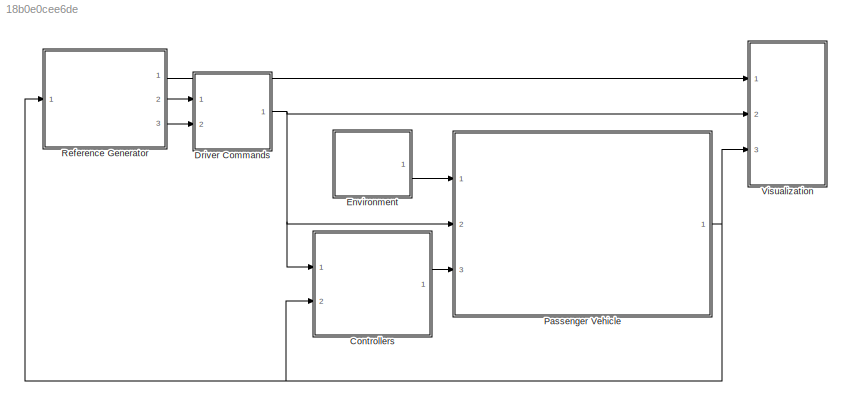
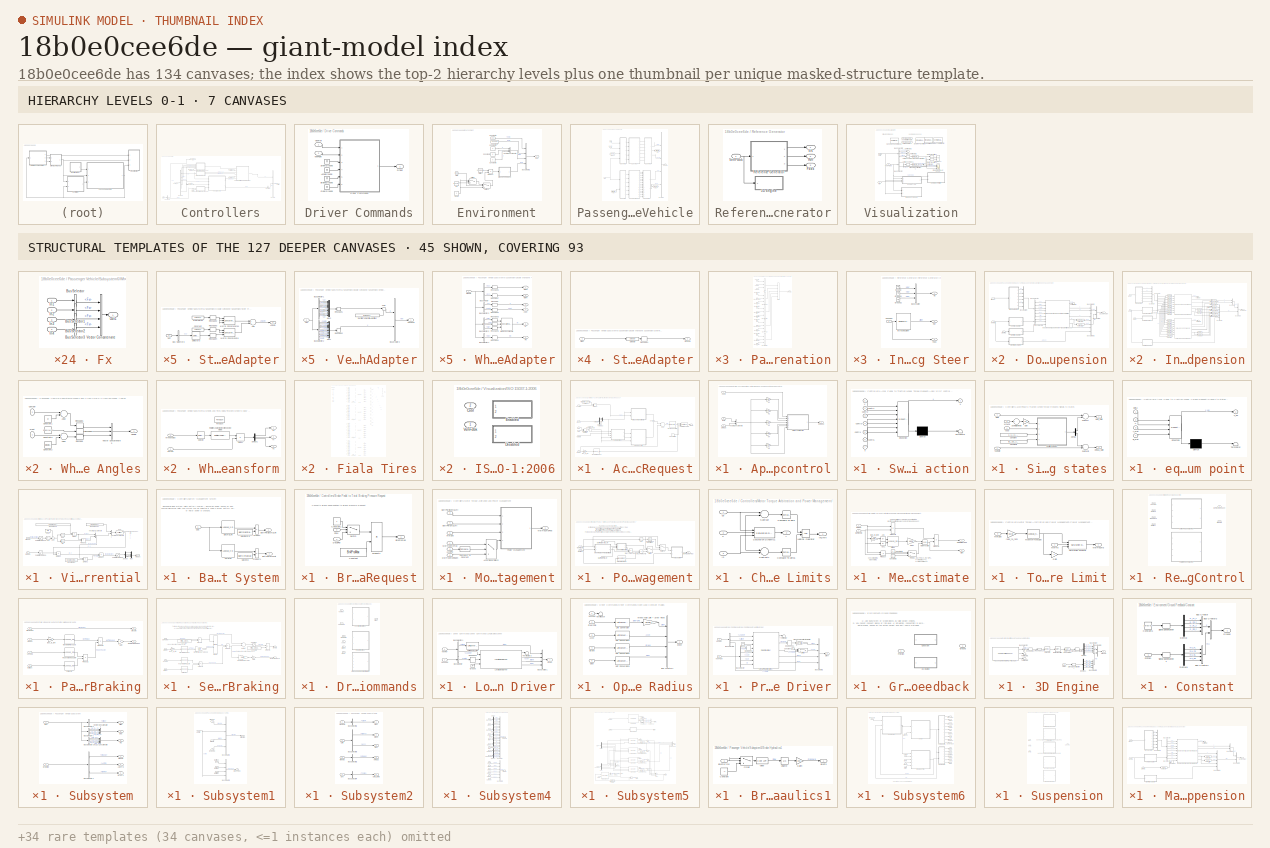
[diagram: thumbnail index - top-2 hierarchy levels (7 canvases) + 45 structural-template representatives of the remaining 127 canvases]
MODEL slx_18b0e0cee6de
KIND model
CONFIG AbsTol = auto
CONFIG EnableMultiTasking = off
CONFIG FixedStep = auto
CONFIG InitFcn = CommonVariables\nKlqr5Velocities\n
CONFIG MaxStep = auto
CONFIG MinStep = auto
CONFIG RelTol = 1e-3
CONFIG SampleTimeConstraint = Unconstrained
CONFIG Solver = ode23tb
CONFIG SolverName = ode23tb
CONFIG StartTime = 0.0
CONFIG StopTime = 30
BLOCK [SubSystem] Controllers
  Ports = [2, 1]
  RequestExecContextInheritance = off
BLOCK [SubSystem] Controllers/Accel Pedal to Traction Wheel Torque Request
  Ports = [6, 1]
  RequestExecContextInheritance = off
BLOCK [Inport] Controllers/Accel Pedal to Traction Wheel Torque Request/AccelPdl
  IconDisplay = Port number
BLOCK [SubSystem] Controllers/Accel Pedal to Traction Wheel Torque Request/Apply ESP control
  Ports = [3, 1]
  RequestExecContextInheritance = off
BLOCK [Inport] Controllers/Accel Pedal to Traction Wheel Torque Request/Apply ESP control/Beta
  IconDisplay = Port number
BLOCK [Gain] Controllers/Accel Pedal to Traction Wheel Torque Request/Apply ESP control/K1
  Gain = Klqr1
  Multiplication = Matrix(K*u)
  OutDataTypeStr = Inherit: Inherit via internal rule
  ParamDataTypeStr = Inherit: Inherit via internal rule
  SaturateOnIntegerOverflow = off
BLOCK [Gain] Controllers/Accel Pedal to Traction Wheel Torque Request/Apply ESP control/K2
  Gain = Klqr2
  Multiplication = Matrix(K*u)
  OutDataTypeStr = Inherit: Inherit via internal rule
  ParamDataTypeStr = Inherit: Inherit via internal rule
  SaturateOnIntegerOverflow = off
BLOCK [Gain] Controllers/Accel Pedal to Traction Wheel Torque Request/Apply ESP control/K3
  Gain = Klqr3
  Multiplication = Matrix(K*u)
  OutDataTypeStr = Inherit: Inherit via internal rule
  ParamDataTypeStr = Inherit: Inherit via internal rule
  SaturateOnIntegerOverflow = off
BLOCK [Gain] Controllers/Accel Pedal to Traction Wheel Torque Request/Apply ESP control/K4
  Gain = Klqr4
  Multiplication = Matrix(K*u)
  OutDataTypeStr = Inherit: Inherit via internal rule
  ParamDataTypeStr = Inherit: Inherit via internal rule
  SaturateOnIntegerOverflow = off
BLOCK [Gain] Controllers/Accel Pedal to Traction Wheel Torque Request/Apply ESP control/K5
  Gain = Klqr5
  Multiplication = Matrix(K*u)
  OutDataTypeStr = Inherit: Inherit via internal rule
  ParamDataTypeStr = Inherit: Inherit via internal rule
  SaturateOnIntegerOverflow = off
BLOCK [Inport] Controllers/Accel Pedal to Traction Wheel Torque Request/Apply ESP control/Omega
  IconDisplay = Port number
  Port = 2
BLOCK [SubSystem] Controllers/Accel Pedal to Traction Wheel Torque Request/Apply ESP control/Switch control action
  ErrorFcn = Stateflow.Translate.translate
  PermitHierarchicalResolution = ExplicitOnly
  Ports = [7, 1]
  RequestExecContextInheritance = off
  SFBlockType = MATLAB Function
  TreatAsAtomicUnit = on
BLOCK [Demux] Controllers/Accel Pedal to Traction Wheel Torque Request/Apply ESP control/Switch control action/ Demux 
  Outputs = 1
  Ports = [1, 1]
BLOCK [S-Function] Controllers/Accel Pedal to Traction Wheel Torque Request/Apply ESP control/Switch control action/ SFunction 
  EnableBusSupport = on
  FunctionName = sf_sfun
  PortCounts = [7 2]
  Ports = [7, 2]
  SFcnIsStateOwnerBlock = off
  SFunctionDeploymentMode = off
  Tag = Stateflow S-Function 2
BLOCK [Terminator] Controllers/Accel Pedal to Traction Wheel Torque Request/Apply ESP control/Switch control action/ Terminator 
BLOCK [Inport] Controllers/Accel Pedal to Traction Wheel Torque Request/Apply ESP control/Switch control action/V
  IconDisplay = Port number
BLOCK [Inport] Controllers/Accel Pedal to Traction Wheel Torque Request/Apply ESP control/Switch control action/contr1
  IconDisplay = Port number
  Port = 2
BLOCK [Inport] Controllers/Accel Pedal to Traction Wheel Torque Request/Apply ESP control/Switch control action/contr2
  IconDisplay = Port number
  Port = 3
BLOCK [Inport] Controllers/Accel Pedal to Traction Wheel Torque Request/Apply ESP control/Switch control action/contr3
  IconDisplay = Port number
  Port = 4
BLOCK [Inport] Controllers/Accel Pedal to Traction Wheel Torque Request/Apply ESP control/Switch control action/contr4
  IconDisplay = Port number
  Port = 5
BLOCK [Inport] Controllers/Accel Pedal to Traction Wheel Torque Request/Apply ESP control/Switch control action/contr5
  IconDisplay = Port number
  Port = 6
BLOCK [Outport] Controllers/Accel Pedal to Traction Wheel Torque Request/Apply ESP control/Switch control action/u
  IconDisplay = Port number
BLOCK [Inport] Controllers/Accel Pedal to Traction Wheel Torque Request/Apply ESP control/Switch control action/x
  IconDisplay = Port number
  Port = 7
BLOCK [Concatenate] Controllers/Accel Pedal to Traction Wheel Torque Request/Apply ESP control/Vector Concatenate
  Ports = [2, 1]
BLOCK [Inport] Controllers/Accel Pedal to Traction Wheel Torque Request/Apply ESP control/Vspd
  IconDisplay = Port number
  Port = 3
BLOCK [Outport] Controllers/Accel Pedal to Traction Wheel Torque Request/Apply ESP control/dWhlSpd
  IconDisplay = Port number
BLOCK [ComplexToMagnitudeAngle] Controllers/Accel Pedal to Traction Wheel Torque Request/Complex to Magnitude-Angle
  Ports = [1, 2]
BLOCK [Demux] Controllers/Accel Pedal to Traction Wheel Torque Request/Demux
  DisplayOption = bar
  Ports = [1, 4]
BLOCK [Reference] Controllers/Accel Pedal to Traction Wheel Torque Request/Discrete PID Controller  REF=simulink/Continuous/PID Controller
  Ports = [1, 1]
  SourceBlock = simulink/Continuous/PID Controller
  SourceProductBaseCode = SL
  SourceProductName = Simulink
  SourceType = PID 1dof
BLOCK [Lookup_n-D] Controllers/Accel Pedal to Traction Wheel Torque Request/MaxMotTrqVsSpd
  BreakpointsForDimension1 = MotSpd
  ExtrapMethod = Clip
  InternalRulePriority = Speed
  NumberOfTableDimensions = 1
  OutDataTypeStr = Inherit: Inherit from 'Table data'
  Ports = [1, 1]
  RndMeth = Simplest
  Table = MotTrq
  UseLastTableValue = on
BLOCK [Inport] Controllers/Accel Pedal to Traction Wheel Torque Request/MotSpd
  IconDisplay = Port number
  Port = 6
BLOCK [Mux] Controllers/Accel Pedal to Traction Wheel Torque Request/Mux
  DisplayOption = bar
  Inputs = 2
  Ports = [2, 1]
BLOCK [Product] Controllers/Accel Pedal to Traction Wheel Torque Request/Product
  InputSameDT = off
  OutDataTypeStr = Inherit: Inherit via internal rule
  Ports = [2, 1]
  RndMeth = Floor
  SaturateOnIntegerOverflow = off
BLOCK [RealImagToComplex] Controllers/Accel Pedal to Traction Wheel Torque Request/Real-Imag to Complex
  Ports = [2, 1]
BLOCK [Reference] Controllers/Accel Pedal to Traction Wheel Torque Request/Saturation Dynamic  REF=simulink/Discontinuities/Saturation
Dynamic
  Ports = [3, 1]
  SourceBlock = simulink/Discontinuities/Saturation\nDynamic
  SourceProductBaseCode = SL
  SourceProductName = Simulink
  SourceType = Saturation Dynamic
BLOCK [SubSystem] Controllers/Accel Pedal to Traction Wheel Torque Request/Signals to states
  Ports = [4, 2]
  RequestExecContextInheritance = off
BLOCK [Inport] Controllers/Accel Pedal to Traction Wheel Torque Request/Signals to states/Beta
  IconDisplay = Port number
BLOCK [Outport] Controllers/Accel Pedal to Traction Wheel Torque Request/Signals to states/Beta_state
  IconDisplay = Port number
BLOCK [Constant] Controllers/Accel Pedal to Traction Wheel Torque Request/Signals to states/Constant
  Value = [A_1;A_2;A_3;A_4;A_5]
  VectorParams1D = off
BLOCK [Constant] Controllers/Accel Pedal to Traction Wheel Torque Request/Signals to states/Constant1
  Value = [B1_1;B1_2;B1_3;B1_4;B1_5]
  VectorParams1D = off
BLOCK [Demux] Controllers/Accel Pedal to Traction Wheel Torque Request/Signals to states/Demux
  DisplayOption = bar
  Outputs = 2
  Ports = [1, 2]
BLOCK [Gain] Controllers/Accel Pedal to Traction Wheel Torque Request/Signals to states/Gain
  Gain = 1/2
  OutDataTypeStr = Inherit: Inherit via internal rule
  ParamDataTypeStr = Inherit: Inherit via internal rule
  SaturateOnIntegerOverflow = off
BLOCK [Outport] Controllers/Accel Pedal to Traction Wheel Torque Request/Signals to states/Omega_state
  IconDisplay = Port number
  Port = 2
BLOCK [Sum] Controllers/Accel Pedal to Traction Wheel Torque Request/Signals to states/Subtract
  InputSameDT = off
  Inputs = +-
  OutDataTypeStr = Inherit: Inherit via internal rule
  Ports = [2, 1]
  SaturateOnIntegerOverflow = off
BLOCK [Sum] Controllers/Accel Pedal to Traction Wheel Torque Request/Signals to states/Subtract1
  InputSameDT = off
  Inputs = -+
  OutDataTypeStr = Inherit: Inherit via internal rule
  Ports = [2, 1]
  SaturateOnIntegerOverflow = off
BLOCK [Sum] Controllers/Accel Pedal to Traction Wheel Torque Request/Signals to states/Sum of Elements
  InputSameDT = off
  Inputs = +
  OutDataTypeStr = Inherit: Inherit via internal rule
  Ports = [1, 1]
  SaturateOnIntegerOverflow = off
BLOCK [Inport] Controllers/Accel Pedal to Traction Wheel Torque Request/Signals to states/Vspd
  IconDisplay = Port number
  Port = 4
BLOCK [Inport] Controllers/Accel Pedal to Traction Wheel Torque Request/Signals to states/WhlAng
  IconDisplay = Port number
  Port = 3
BLOCK [Inport] Controllers/Accel Pedal to Traction Wheel Torque Request/Signals to states/YawRate
  IconDisplay = Port number
  Port = 2
BLOCK [SubSystem] Controllers/Accel Pedal to Traction Wheel Torque Request/Signals to states/equilibrium point
  ErrorFcn = Stateflow.Translate.translate
  PermitHierarchicalResolution = ExplicitOnly
  Ports = [4, 1]
  RequestExecContextInheritance = off
  SFBlockType = MATLAB Function
  TreatAsAtomicUnit = on
BLOCK [Demux] Controllers/Accel Pedal to Traction Wheel Torque Request/Signals to states/equilibrium point/ Demux 
  Outputs = 1
  Ports = [1, 1]
BLOCK [S-Function] Controllers/Accel Pedal to Traction Wheel Torque Request/Signals to states/equilibrium point/ SFunction 
  EnableBusSupport = on
  FunctionName = sf_sfun
  PortCounts = [4 2]
  Ports = [4, 2]
  SFcnIsStateOwnerBlock = off
  SFunctionDeploymentMode = off
  Tag = Stateflow S-Function 1
BLOCK [Terminator] Controllers/Accel Pedal to Traction Wheel Torque Request/Signals to states/equilibrium point/ Terminator 
BLOCK [Inport] Controllers/Accel Pedal to Traction Wheel Torque Request/Signals to states/equilibrium point/A_mat
  IconDisplay = Port number
  Port = 3
BLOCK [Inport] Controllers/Accel Pedal to Traction Wheel Torque Request/Signals to states/equilibrium point/B_mat
  IconDisplay = Port number
  Port = 4
BLOCK [Inport] Controllers/Accel Pedal to Traction Wheel Torque Request/Signals to states/equilibrium point/V
  IconDisplay = Port number
  Port = 2
BLOCK [Inport] Controllers/Accel Pedal to Traction Wheel Torque Request/Signals to states/equilibrium point/delta
  IconDisplay = Port number
BLOCK [Outport] Controllers/Accel Pedal to Traction Wheel Torque Request/Signals to states/equilibrium point/x_eq
  IconDisplay = Port number
BLOCK [Sum] Controllers/Accel Pedal to Traction Wheel Torque Request/Sum
  IconShape = round
  InputSameDT = off
  Inputs = +|+
  OutDataTypeStr = Inherit: Inherit via internal rule
  Ports = [2, 1]
  SaturateOnIntegerOverflow = off
BLOCK [Sum] Controllers/Accel Pedal to Traction Wheel Torque Request/Sum1
  IconShape = round
  InputSameDT = off
  Inputs = |+-|
  OutDataTypeStr = Inherit: Inherit via internal rule
  Ports = [2, 1]
  SaturateOnIntegerOverflow = off
BLOCK [Terminator] Controllers/Accel Pedal to Traction Wheel Torque Request/Terminator
BLOCK [Terminator] Controllers/Accel Pedal to Traction Wheel Torque Request/Terminator1
BLOCK [Outport] Controllers/Accel Pedal to Traction Wheel Torque Request/TrqCmd
  IconDisplay = Port number
  VectorParamsAs1DForOutWhenUnconnected = off
BLOCK [Constant] Controllers/Accel Pedal to Traction Wheel Torque Request/VelMax
  Value = VEH.MaxSpeed
BLOCK [SubSystem] Controllers/Accel Pedal to Traction Wheel Torque Request/Virtual Ackerman differential
  Ports = [2, 1]
  RequestExecContextInheritance = off
BLOCK [Abs] Controllers/Accel Pedal to Traction Wheel Torque Request/Virtual Ackerman differential/Abs
  SaturateOnIntegerOverflow = off
BLOCK [Trigonometry] Controllers/Accel Pedal to Traction Wheel Torque Request/Virtual Ackerman differential/Cos
  Operator = cos
  Ports = [1, 1]
BLOCK [Demux] Controllers/Accel Pedal to Traction Wheel Torque Request/Virtual Ackerman differential/Demux
  DisplayOption = bar
  Ports = [1, 4]
BLOCK [Product] Controllers/Accel Pedal to Traction Wheel Torque Request/Virtual Ackerman differential/Divide
  InputSameDT = off
  Inputs = */
  OutDataTypeStr = Inherit: Inherit via internal rule
  Ports = [2, 1]
  RndMeth = Floor
  SaturateOnIntegerOverflow = off
BLOCK [Product] Controllers/Accel Pedal to Traction Wheel Torque Request/Virtual Ackerman differential/Divide1
  InputSameDT = off
  Inputs = */
  OutDataTypeStr = Inherit: Inherit via internal rule
  Ports = [2, 1]
  RndMeth = Floor
  SaturateOnIntegerOverflow = off
BLOCK [Product] Controllers/Accel Pedal to Traction Wheel Torque Request/Virtual Ackerman differential/Divide2
  InputSameDT = off
  Inputs = */
  OutDataTypeStr = Inherit: Inherit via internal rule
  Ports = [2, 1]
  RndMeth = Floor
  SaturateOnIntegerOverflow = off
BLOCK [Fcn] Controllers/Accel Pedal to Traction Wheel Torque Request/Virtual Ackerman differential/Fcn
  Expr = sqrt( ((u(4) + u(5))/ 2)^2 + u(1)^2 )
BLOCK [Mux] Controllers/Accel Pedal to Traction Wheel Torque Request/Virtual Ackerman differential/Mux
  DisplayOption = bar
  Ports = [4, 1]
BLOCK [Product] Controllers/Accel Pedal to Traction Wheel Torque Request/Virtual Ackerman differential/Product
  InputSameDT = off
  OutDataTypeStr = Inherit: Inherit via internal rule
  Ports = [2, 1]
  RndMeth = Floor
  SaturateOnIntegerOverflow = off
BLOCK [Product] Controllers/Accel Pedal to Traction Wheel Torque Request/Virtual Ackerman differential/Product1
  InputSameDT = off
  OutDataTypeStr = Inherit: Inherit via internal rule
  Ports = [2, 1]
  RndMeth = Floor
  SaturateOnIntegerOverflow = off
BLOCK [Inport] Controllers/Accel Pedal to Traction Wheel Torque Request/Virtual Ackerman differential/RefSpd
  IconDisplay = Port number
  Port = 2
BLOCK [Saturate] Controllers/Accel Pedal to Traction Wheel Torque Request/Virtual Ackerman differential/Saturation RefSpd
  InputPortMap = u0
  LowerLimit = -120
  Ports = [1, 1]
  UpperLimit = 120
BLOCK [Saturate] Controllers/Accel Pedal to Traction Wheel Torque Request/Virtual Ackerman differential/Saturation WhlAnd
  InputPortMap = u0
  LowerLimit = -pi*5/12
  Ports = [1, 1]
  UpperLimit = pi*5/12
BLOCK [Saturate] Controllers/Accel Pedal to Traction Wheel Torque Request/Virtual Ackerman differential/Saturation WhlSpd
  InputPortMap = u0
  LowerLimit = -600
  Ports = [1, 1]
  UpperLimit = 600
BLOCK [Trigonometry] Controllers/Accel Pedal to Traction Wheel Torque Request/Virtual Ackerman differential/Sin
  Ports = [1, 1]
BLOCK [Sum] Controllers/Accel Pedal to Traction Wheel Torque Request/Virtual Ackerman differential/Sum
  IconShape = round
  InputSameDT = off
  Inputs = +-|
  OutDataTypeStr = Inherit: Inherit via internal rule
  Ports = [2, 1]
  SaturateOnIntegerOverflow = off
BLOCK [Concatenate] Controllers/Accel Pedal to Traction Wheel Torque Request/Virtual Ackerman differential/Vector Concatenate1
  Ports = [2, 1]
BLOCK [Concatenate] Controllers/Accel Pedal to Traction Wheel Torque Request/Virtual Ackerman differential/Vector Concatenate2
  Ports = [2, 1]
BLOCK [Inport] Controllers/Accel Pedal to Traction Wheel Torque Request/Virtual Ackerman differential/WhlAng
  IconDisplay = Port number
BLOCK [Outport] Controllers/Accel Pedal to Traction Wheel Torque Request/Virtual Ackerman differential/WhlSpd
  IconDisplay = Port number
BLOCK [Constant] Controllers/Accel Pedal to Traction Wheel Torque Request/Virtual Ackerman differential/pi half
  Value = pi/2
BLOCK [Constant] Controllers/Accel Pedal to Traction Wheel Torque Request/Virtual Ackerman differential/wheel base
  Value = VEH.FrontAxlePositionfromCG+VEH.RearAxlePositionfromCG
BLOCK [Constant] Controllers/Accel Pedal to Traction Wheel Torque Request/Virtual Ackerman differential/wheel base1
  Value = VEH.RearAxlePositionfromCG
BLOCK [Constant] Controllers/Accel Pedal to Traction Wheel Torque Request/Virtual Ackerman differential/wheel radius
  Value = VEH.WheelRadius
BLOCK [Inport] Controllers/Accel Pedal to Traction Wheel Torque Request/WhlAng
  IconDisplay = Port number
  Port = 2
BLOCK [Inport] Controllers/Accel Pedal to Traction Wheel Torque Request/YawRate
  IconDisplay = Port number
  Port = 5
BLOCK [Constant] Controllers/Accel Pedal to Traction Wheel Torque Request/Zero saturation
  Value = 0
BLOCK [Gain] Controllers/Accel Pedal to Traction Wheel Torque Request/rads_to_rpm
  Gain = 30/pi
  OutDataTypeStr = Inherit: Inherit via internal rule
  ParamDataTypeStr = Inherit: Inherit via internal rule
  SaturateOnIntegerOverflow = off
BLOCK [Inport] Controllers/Accel Pedal to Traction Wheel Torque Request/xdot
  IconDisplay = Port number
  Port = 3
BLOCK [Inport] Controllers/Accel Pedal to Traction Wheel Torque Request/ydot
  IconDisplay = Port number
  Port = 4
BLOCK [SubSystem] Controllers/Battery Management System
  Ports = [1, 2]
  RequestExecContextInheritance = off
BLOCK [Outport] Controllers/Battery Management System/BattPwrChrgLmt
  IconDisplay = Port number
  Port = 2
  VectorParamsAs1DForOutWhenUnconnected = off
BLOCK [Outport] Controllers/Battery Management System/BattPwrDischrgLmt
  IconDisplay = Port number
  VectorParamsAs1DForOutWhenUnconnected = off
BLOCK [Lookup_n-D] Controllers/Battery Management System/ChrgLmt
  BreakpointsForDimension1 = SOC_bpt
  ExtrapMethod = Clip
  InternalRulePriority = Speed
  NumberOfTableDimensions = 1
  Ports = [1, 1]
  RndMeth = Simplest
  Table = ChrgLmt_bpt
  UseLastTableValue = on
BLOCK [Lookup_n-D] Controllers/Battery Management System/DischrgLmt
  BreakpointsForDimension1 = SOC_bpt
  ExtrapMethod = Clip
  InternalRulePriority = Speed
  NumberOfTableDimensions = 1
  Ports = [1, 1]
  RndMeth = Simplest
  Table = DischrgLmt_bpt
  UseLastTableValue = on
BLOCK [Constant] Controllers/Battery Management System/MaxChrg
  Value = BattChrgMax
BLOCK [Constant] Controllers/Battery Management System/MaxDischrg
  Value = BattDischrgMax
BLOCK [Product] Controllers/Battery Management System/Product
  InputSameDT = off
  OutDataTypeStr = Inherit: Inherit via internal rule
  Ports = [2, 1]
  RndMeth = Floor
  SaturateOnIntegerOverflow = off
BLOCK [Product] Controllers/Battery Management System/Product1
  InputSameDT = off
  OutDataTypeStr = Inherit: Inherit via internal rule
  Ports = [2, 1]
  RndMeth = Floor
  SaturateOnIntegerOverflow = off
BLOCK [Inport] Controllers/Battery Management System/SOC
  IconDisplay = Port number
BLOCK [SubSystem] Controllers/Brake Pedal to Total Braking Pressure Request
  Ports = [2, 1]
  RequestExecContextInheritance = off
BLOCK [Outport] Controllers/Brake Pedal to Total Braking Pressure Request/BrkPrsReq
  IconDisplay = Port number
  VectorParamsAs1DForOutWhenUnconnected = off
BLOCK [Constant] Controllers/Brake Pedal to Total Braking Pressure Request/Constant
  Value = BrkPrsMax
BLOCK [Constant] Controllers/Brake Pedal to Total Braking Pressure Request/Constant1
BLOCK [Inport] Controllers/Brake Pedal to Total Braking Pressure Request/DecelPdl
  IconDisplay = Port number
BLOCK [Inport] Controllers/Brake Pedal to Total Braking Pressure Request/Park
  IconDisplay = Port number
  Port = 2
BLOCK [Product] Controllers/Brake Pedal to Total Braking Pressure Request/Product1
  InputSameDT = off
  OutDataTypeStr = Inherit: Inherit via internal rule
  Ports = [2, 1]
  RndMeth = Floor
  SaturateOnIntegerOverflow = off
BLOCK [Switch] Controllers/Brake Pedal to Total Braking Pressure Request/Switch
  Criteria = u2 > Threshold
  InputSameDT = off
  SaturateOnIntegerOverflow = off
BLOCK [BusCreator] Controllers/Bus Creator2
  DisplayOption = bar
  InheritFromInputs = on
  Inputs = 1
  Ports = [1, 1]
BLOCK [BusCreator] Controllers/Bus Creator3
  DisplayOption = bar
  InheritFromInputs = on
  Inputs = 3
  Ports = [3, 1]
BLOCK [BusSelector] Controllers/Bus Selector
  OutputAsBus = off
  OutputSignals = Body.r,Body.xdot,Body.ydot,Driveline.WhlAng,ElecFdbk.BattSoc,Driveline.EngSpd
  Ports = [1, 6]
BLOCK [BusSelector] Controllers/Bus Selector3
  OutputAsBus = off
  OutputSignals = Steer,Accel,Brake
  Ports = [1, 3]
BLOCK [Constant] Controllers/Constant
  Value = 0
BLOCK [Outport] Controllers/Controller
  IconDisplay = Port number
  VectorParamsAs1DForOutWhenUnconnected = off
BLOCK [Inport] Controllers/Driver
  IconDisplay = Port number
BLOCK [From] Controllers/From13
  GotoTag = MotSpd
BLOCK [From] Controllers/From4
  GotoTag = AccelPdl
BLOCK [From] Controllers/From9
  GotoTag = MotSpd
BLOCK [Goto] Controllers/Goto1
  GotoTag = AccelPdl
BLOCK [Goto] Controllers/Goto7
  GotoTag = MotSpd
BLOCK [SubSystem] Controllers/Motor Torque Arbitration and Power Management
  Ports = [6, 1]
  RequestExecContextInheritance = off
BLOCK [Switch] Controllers/Motor Torque Arbitration and Power Management/Accel Decel Switch
  Criteria = u2 > Threshold
  InputSameDT = off
  SaturateOnIntegerOverflow = off
BLOCK [Inport] Controllers/Motor Torque Arbitration and Power Management/AccelPdl
  IconDisplay = Port number
  Port = 2
BLOCK [Inport] Controllers/Motor Torque Arbitration and Power Management/BattPwrChrgLmt 
  IconDisplay = Port number
  Port = 4
BLOCK [Inport] Controllers/Motor Torque Arbitration and Power Management/BattPwrDisChrgLmt
  IconDisplay = Port number
  Port = 3
BLOCK [Reference] Controllers/Motor Torque Arbitration and Power Management/Compare To Constant  REF=simulink/Logic and Bit
Operations/Compare
To Constant
  Ports = [1, 1]
  SourceBlock = simulink/Logic and Bit\nOperations/Compare\nTo Constant
  SourceProductBaseCode = SL
  SourceProductName = Simulink
  SourceType = Compare To Constant
BLOCK [Inport] Controllers/Motor Torque Arbitration and Power Management/MotSpd
  IconDisplay = Port number
  Port = 5
BLOCK [Outport] Controllers/Motor Torque Arbitration and Power Management/MotTrqCmdFinal
  IconDisplay = Port number
  VectorParamsAs1DForOutWhenUnconnected = off
BLOCK [Inport] Controllers/Motor Torque Arbitration and Power Management/MotTrqCmdRegen
  IconDisplay = Port number
  Port = 6
BLOCK [Inport] Controllers/Motor Torque Arbitration and Power Management/MotTrqCmdTrac
  IconDisplay = Port number
BLOCK [SubSystem] Controllers/Motor Torque Arbitration and Power Management/Power Management
  Ports = [4, 1]
  RequestExecContextInheritance = off
BLOCK [Abs] Controllers/Motor Torque Arbitration and Power Management/Power Management/Abs
  SaturateOnIntegerOverflow = off
BLOCK [Inport] Controllers/Motor Torque Arbitration and Power Management/Power Management/BattPwrChrgLmt
  IconDisplay = Port number
  Port = 2
BLOCK [Inport] Controllers/Motor Torque Arbitration and Power Management/Power Management/BattPwrDischrgLmt
  IconDisplay = Port number
BLOCK [SubSystem] Controllers/Motor Torque Arbitration and Power Management/Power Management/Check Within Limits
  Ports = [3, 2]
  RequestExecContextInheritance = off
BLOCK [Reference] Controllers/Motor Torque Arbitration and Power Management/Power Management/Check Within Limits/Compare To Zero  REF=simulink/Logic and Bit
Operations/Compare
To Zero
  Ports = [1, 1]
  SourceBlock = simulink/Logic and Bit\nOperations/Compare\nTo Zero
  SourceProductBaseCode = SL
  SourceProductName = Simulink
  SourceType = Compare To Zero
BLOCK [Reference] Controllers/Motor Torque Arbitration and Power Management/Power Management/Check Within Limits/Compare To Zero1  REF=simulink/Logic and Bit
Operations/Compare
To Zero
  Ports = [1, 1]
  SourceBlock = simulink/Logic and Bit\nOperations/Compare\nTo Zero
  SourceProductBaseCode = SL
  SourceProductName = Simulink
  SourceType = Compare To Zero
BLOCK [Outport] Controllers/Motor Torque Arbitration and Power Management/Power Management/Check Within Limits/InLimit
  IconDisplay = Port number
  VectorParamsAs1DForOutWhenUnconnected = off
BLOCK [Logic] Controllers/Motor Torque Arbitration and Power Management/Power Management/Check Within Limits/Logical Operator
  AllPortsSameDT = off
  OutDataTypeStr = boolean
  Ports = [2, 1]
BLOCK [Reference] Controllers/Motor Torque Arbitration and Power Management/Power Management/Check Within Limits/Saturation Dynamic1  REF=simulink/Discontinuities/Saturation
Dynamic
  Ports = [3, 1]
  SourceBlock = simulink/Discontinuities/Saturation\nDynamic
  SourceProductBaseCode = SL
  SourceProductName = Simulink
  SourceType = Saturation Dynamic
BLOCK [Sum] Controllers/Motor Torque Arbitration and Power Management/Power Management/Check Within Limits/Subtract
  InputSameDT = off
  Inputs = +-
  OutDataTypeStr = Inherit: Inherit via internal rule
  Ports = [2, 1]
  SaturateOnIntegerOverflow = off
BLOCK [Sum] Controllers/Motor Torque Arbitration and Power Management/Power Management/Check Within Limits/Subtract1
  InputSameDT = off
  Inputs = -+
  OutDataTypeStr = Inherit: Inherit via internal rule
  Ports = [2, 1]
  SaturateOnIntegerOverflow = off
BLOCK [Inport] Controllers/Motor Torque Arbitration and Power Management/Power Management/Check Within Limits/lo
  IconDisplay = Port number
  Port = 3
BLOCK [Inport] Controllers/Motor Torque Arbitration and Power Management/Power Management/Check Within Limits/u
  IconDisplay = Port number
  Port = 2
BLOCK [Inport] Controllers/Motor Torque Arbitration and Power Management/Power Management/Check Within Limits/up
  IconDisplay = Port number
BLOCK [Outport] Controllers/Motor Torque Arbitration and Power Management/Power Management/Check Within Limits/y
  IconDisplay = Port number
  Port = 2
  VectorParamsAs1DForOutWhenUnconnected = off
BLOCK [Reference] Controllers/Motor Torque Arbitration and Power Management/Power Management/Compare To Constant  REF=simulink/Logic and Bit
Operations/Compare
To Constant
  Ports = [1, 1]
  SourceBlock = simulink/Logic and Bit\nOperations/Compare\nTo Constant
  SourceProductBaseCode = SL
  SourceProductName = Simulink
  SourceType = Compare To Constant
BLOCK [Product] Controllers/Motor Torque Arbitration and Power Management/Power Management/ElecToMechPwr
  InputSameDT = off
  Inputs = */
  OutDataTypeStr = Inherit: Inherit via internal rule
  Ports = [2, 1]
  RndMeth = Floor
  SaturateOnIntegerOverflow = off
BLOCK [SubSystem] Controllers/Motor Torque Arbitration and Power Management/Power Management/Mech to Elec Power Estimate
  Ports = [2, 2]
  RequestExecContextInheritance = off
BLOCK [Abs] Controllers/Motor Torque Arbitration and Power Management/Power Management/Mech to Elec Power Estimate/Abs
  SaturateOnIntegerOverflow = off
BLOCK [Abs] Controllers/Motor Torque Arbitration and Power Management/Power Management/Mech to Elec Power Estimate/Abs1
  SaturateOnIntegerOverflow = off
BLOCK [Constant] Controllers/Motor Torque Arbitration and Power Management/Power Management/Mech to Elec Power Estimate/Constant1
  SampleTime = -1
  Value = -1
BLOCK [Constant] Controllers/Motor Torque Arbitration and Power Management/Power Management/Mech to Elec Power Estimate/Constant2
  SampleTime = -1
BLOCK [Lookup_n-D] Controllers/Motor Torque Arbitration and Power Management/Power Management/Mech to Elec Power Estimate/Eff Map
  BreakpointsForDimension1 = w_eff_bp
  BreakpointsForDimension2 = T_eff_bp
  ExtrapMethod = Clip
  InternalRulePriority = Speed
  OutDataTypeStr = Inherit: Inherit from 'Table data'
  Ports = [2, 1]
  RndMeth = Simplest
  Table = efficiency_table
  UseLastTableValue = on
BLOCK [Outport] Controllers/Motor Torque Arbitration and Power Management/Power Management/Mech to Elec Power Estimate/Eff2k
  IconDisplay = Port number
  Port = 2
  VectorParamsAs1DForOutWhenUnconnected = off
BLOCK [Gain] Controllers/Motor Torque Arbitration and Power Management/Power Management/Mech to Elec Power Estimate/Gain1
  Gain = 1/100
  OutDataTypeStr = Inherit: Inherit via internal rule
  ParamDataTypeStr = Inherit: Inherit via internal rule
  SaturateOnIntegerOverflow = off
BLOCK [Math] Controllers/Motor Torque Arbitration and Power Management/Power Management/Mech to Elec Power Estimate/Math Function
  Operator = pow
  OutputSignalType = real
  Ports = [2, 1]
BLOCK [Outport] Controllers/Motor Torque Arbitration and Power Management/Power Management/Mech to Elec Power Estimate/MotPwrElecReq
  IconDisplay = Port number
  VectorParamsAs1DForOutWhenUnconnected = off
BLOCK [Inport] Controllers/Motor Torque Arbitration and Power Management/Power Management/Mech to Elec Power Estimate/MotSpd
  IconDisplay = Port number
  Port = 2
BLOCK [Inport] Controllers/Motor Torque Arbitration and Power Management/Power Management/Mech to Elec Power Estimate/MotTrqCmd
  IconDisplay = Port number
BLOCK [Product] Controllers/Motor Torque Arbitration and Power Management/Power Management/Mech to Elec Power Estimate/Product
  InputSameDT = off
  OutDataTypeStr = Inherit: Inherit via internal rule
  Ports = [2, 1]
  RndMeth = Floor
  SaturateOnIntegerOverflow = off
BLOCK [Product] Controllers/Motor Torque Arbitration and Power Management/Power Management/Mech to Elec Power Estimate/Product3
  InputSameDT = off
  OutDataTypeStr = Inherit: Inherit via internal rule
  Ports = [2, 1]
  RndMeth = Floor
  SaturateOnIntegerOverflow = off
BLOCK [Product] Controllers/Motor Torque Arbitration and Power Management/Power Management/Mech to Elec Power Estimate/Product4
  InputSameDT = off
  OutDataTypeStr = Inherit: Inherit via internal rule
  Ports = [2, 1]
  RndMeth = Floor
  SaturateOnIntegerOverflow = off
BLOCK [Switch] Controllers/Motor Torque Arbitration and Power Management/Power Management/Mech to Elec Power Estimate/Switch2
  InputSameDT = off
  SaturateOnIntegerOverflow = off
BLOCK [Gain] Controllers/Motor Torque Arbitration and Power Management/Power Management/Mech to Elec Power Estimate/rads_to_rpm
  Gain = 30/pi
  OutDataTypeStr = Inherit: Inherit via internal rule
  ParamDataTypeStr = Inherit: Inherit via internal rule
  SaturateOnIntegerOverflow = off
BLOCK [Product] Controllers/Motor Torque Arbitration and Power Management/Power Management/MechPwrToTrq
  InputSameDT = off
  Inputs = */
  OutDataTypeStr = Inherit: Inherit via internal rule
  Ports = [2, 1]
  RndMeth = Floor
  SaturateOnIntegerOverflow = off
BLOCK [Inport] Controllers/Motor Torque Arbitration and Power Management/Power Management/MotSpd
  IconDisplay = Port number
  Port = 3
BLOCK [Inport] Controllers/Motor Torque Arbitration and Power Management/Power Management/MotTrqCmd
  IconDisplay = Port number
  Port = 4
BLOCK [Outport] Controllers/Motor Torque Arbitration and Power Management/Power Management/MotTrqCmdFinal
  IconDisplay = Port number
  VectorParamsAs1DForOutWhenUnconnected = off
BLOCK [Switch] Controllers/Motor Torque Arbitration and Power Management/Power Management/Switch
  Criteria = u2 > Threshold
  InputSameDT = off
  SaturateOnIntegerOverflow = off
BLOCK [Switch] Controllers/Motor Torque Arbitration and Power Management/Power Management/Switch1
  Criteria = u2 > Threshold
  InputSameDT = off
  SaturateOnIntegerOverflow = off
BLOCK [SubSystem] Controllers/Motor Torque Arbitration and Power Management/Power Management/Torque Limit
  Ports = [2, 1]
  RequestExecContextInheritance = off
BLOCK [Gain] Controllers/Motor Torque Arbitration and Power Management/Power Management/Torque Limit/Gain
  Gain = -1
  OutDataTypeStr = Inherit: Inherit via internal rule
  ParamDataTypeStr = Inherit: Inherit via internal rule
  SaturateOnIntegerOverflow = off
BLOCK [Lookup_n-D] Controllers/Motor Torque Arbitration and Power Management/Power Management/Torque Limit/MaxMotTrqVsSpd
  BreakpointsForDimension1 = MotSpd
  ExtrapMethod = Clip
  InternalRulePriority = Speed
  NumberOfTableDimensions = 1
  OutDataTypeStr = Inherit: Inherit from 'Table data'
  Ports = [1, 1]
  RndMeth = Simplest
  Table = MotTrq
  UseLastTableValue = on
BLOCK [Inport] Controllers/Motor Torque Arbitration and Power Management/Power Management/Torque Limit/MotSpd
  IconDisplay = Port number
  Port = 2
BLOCK [Inport] Controllers/Motor Torque Arbitration and Power Management/Power Management/Torque Limit/MotTrq
  IconDisplay = Port number
BLOCK [Outport] Controllers/Motor Torque Arbitration and Power Management/Power Management/Torque Limit/MotTrqCmd
  IconDisplay = Port number
  VectorParamsAs1DForOutWhenUnconnected = off
BLOCK [Reference] Controllers/Motor Torque Arbitration and Power Management/Power Management/Torque Limit/Saturation Dynamic  REF=simulink/Discontinuities/Saturation
Dynamic
  Ports = [3, 1]
  SourceBlock = simulink/Discontinuities/Saturation\nDynamic
  SourceProductBaseCode = SL
  SourceProductName = Simulink
  SourceType = Saturation Dynamic
BLOCK [Gain] Controllers/Motor Torque Arbitration and Power Management/Power Management/Torque Limit/rads_to_rpm
  Gain = 30/pi
  OutDataTypeStr = Inherit: Inherit via internal rule
  ParamDataTypeStr = Inherit: Inherit via internal rule
  SaturateOnIntegerOverflow = off
BLOCK [Reference] Controllers/Motor Torque Arbitration and Power Management/Power Management/div0protect - poly  REF=autolibutils/div0protect - poly
  Ports = [1, 1]
  SourceBlock = autolibutils/div0protect - poly
  SourceProductBaseCode = PW
  SourceProductName = Powertrain Blockset
BLOCK [SubSystem] Controllers/Regen Braking Control
  LabelModeActiveChoice = Variant
  Ports = [4, 2]
  RequestExecContextInheritance = off
  Variant = on
  VariantControl = (default)
  VariantControlMode = Label
BLOCK [Outport] Controllers/Regen Braking Control/ BrkCmd
  IconDisplay = Port number
  Port = 2
  VectorParamsAs1DForOutWhenUnconnected = off
BLOCK [Outport] Controllers/Regen Braking Control/ MotTrqCmdRegen
  IconDisplay = Port number
  VectorParamsAs1DForOutWhenUnconnected = off
BLOCK [Inport] Controllers/Regen Braking Control/BattSoc 
  IconDisplay = Port number
BLOCK [Inport] Controllers/Regen Braking Control/BrkPrsReq 
  IconDisplay = Port number
  Port = 4
BLOCK [Inport] Controllers/Regen Braking Control/MotSpd 
  IconDisplay = Port number
  Port = 3
BLOCK [SubSystem] Controllers/Regen Braking Control/Parallel Regen Braking
  InitFcn = %[~]=autosharedicon('autolibutils',gcb,0);
  Ports = [4, 2]
  RequestExecContextInheritance = off
  VariantControl = (default)
BLOCK [Outport] Controllers/Regen Braking Control/Parallel Regen Braking/ BrkCmd
  IconDisplay = Port number
  Port = 2
  VectorParamsAs1DForOutWhenUnconnected = off
BLOCK [Outport] Controllers/Regen Braking Control/Parallel Regen Braking/ MotTrqCmdRegen
  IconDisplay = Port number
  VectorParamsAs1DForOutWhenUnconnected = off
BLOCK [Inport] Controllers/Regen Braking Control/Parallel Regen Braking/BattSoc
  IconDisplay = Port number
  Port = 4
BLOCK [Inport] Controllers/Regen Braking Control/Parallel Regen Braking/BrkPrsReq 
  IconDisplay = Port number
  Port = 3
BLOCK [Lookup_n-D] Controllers/Regen Braking Control/Parallel Regen Braking/ChrgLmt
  BreakpointsForDimension1 = [0:10:100]
  ExtrapMethod = Clip
  InternalRulePriority = Speed
  NumberOfTableDimensions = 1
  Ports = [1, 1]
  RndMeth = Simplest
  Table = [1 1 1 1 1 1 1 1 0.7 0.35 0]
  UseLastTableValue = on
BLOCK [Gain] Controllers/Regen Braking Control/Parallel Regen Braking/Gain
  Gain = -1
  OutDataTypeStr = Inherit: Inherit via internal rule
  ParamDataTypeStr = Inherit: Inherit via internal rule
  SaturateOnIntegerOverflow = off
BLOCK [Lookup_n-D] Controllers/Regen Braking Control/Parallel Regen Braking/MaxMotorTrqVsSpd
  BreakpointsForDimension1 = MotSpd
  ExtrapMethod = Clip
  InternalRulePriority = Speed
  NumberOfTableDimensions = 1
  OutDataTypeStr = Inherit: Inherit from 'Table data'
  Ports = [1, 1]
  RndMeth = Simplest
  Table = MotTrq
  UseLastTableValue = on
BLOCK [Inport] Controllers/Regen Braking Control/Parallel Regen Braking/MotSpd
  IconDisplay = Port number
  Port = 2
BLOCK [Product] Controllers/Regen Braking Control/Parallel Regen Braking/Product1
  InputSameDT = off
  OutDataTypeStr = Inherit: Inherit via internal rule
  Ports = [2, 1]
  RndMeth = Floor
  SaturateOnIntegerOverflow = off
BLOCK [Product] Controllers/Regen Braking Control/Parallel Regen Braking/Product3
  InputSameDT = off
  OutDataTypeStr = Inherit: Inherit via internal rule
  Ports = [2, 1]
  RndMeth = Floor
  SaturateOnIntegerOverflow = off
BLOCK [Lookup_n-D] Controllers/Regen Braking Control/Parallel Regen Braking/RegenBrakingCutoff
  BreakpointsForDimension1 = [2.2 4.5]
  ExtrapMethod = Clip
  InternalRulePriority = Speed
  NumberOfTableDimensions = 1
  Ports = [1, 1]
  RndMeth = Simplest
  Table = [0 1]
  UseLastTableValue = on
BLOCK [Inport] Controllers/Regen Braking Control/Parallel Regen Braking/VehSpd
  IconDisplay = Port number
BLOCK [Gain] Controllers/Regen Braking Control/Parallel Regen Braking/rads_to_rpm
  Gain = 30/pi
  OutDataTypeStr = Inherit: Inherit via internal rule
  ParamDataTypeStr = Inherit: Inherit via internal rule
  SaturateOnIntegerOverflow = off
BLOCK [SubSystem] Controllers/Regen Braking Control/Series Regen Braking
  InitFcn = %[~]=autosharedicon('autolibutils',gcb,0);
  Ports = [4, 2]
  RequestExecContextInheritance = off
  VariantControl = Variant
BLOCK [Outport] Controllers/Regen Braking Control/Series Regen Braking/ BrkCmd
  IconDisplay = Port number
  Port = 2
  VectorParamsAs1DForOutWhenUnconnected = off
BLOCK [Outport] Controllers/Regen Braking Control/Series Regen Braking/ MotTrqCmdRegen
  IconDisplay = Port number
  VectorParamsAs1DForOutWhenUnconnected = off
BLOCK [Inport] Controllers/Regen Braking Control/Series Regen Braking/BattSoc
  IconDisplay = Port number
  Port = 4
BLOCK [Inport] Controllers/Regen Braking Control/Series Regen Braking/BrkPrsReq 
  IconDisplay = Port number
  Port = 3
BLOCK [Lookup_n-D] Controllers/Regen Braking Control/Series Regen Braking/ChrgLmt
  BreakpointsForDimension1 = SOC_bpt
  ExtrapMethod = Clip
  InternalRulePriority = Speed
  NumberOfTableDimensions = 1
  Ports = [1, 1]
  RndMeth = Simplest
  Table = ChrgLmt_bpt
  UseLastTableValue = on
BLOCK [Constant] Controllers/Regen Braking Control/Series Regen Braking/Constant
  Value = 4*(mu_kinetic*pi*disk_abore^2*Rm*num_pads/4)
BLOCK [Constant] Controllers/Regen Braking Control/Series Regen Braking/Constant1
  Value = 4*(mu_kinetic*pi*disk_abore^2*Rm*num_pads/4)
BLOCK [Gain] Controllers/Regen Braking Control/Series Regen Braking/Gain
  Gain = -1
  OutDataTypeStr = Inherit: Inherit via internal rule
  ParamDataTypeStr = Inherit: Inherit via internal rule
  SaturateOnIntegerOverflow = off
BLOCK [Lookup_n-D] Controllers/Regen Braking Control/Series Regen Braking/MaxMotTrqVsSpd
  BreakpointsForDimension1 = MotSpd
  ExtrapMethod = Clip
  InternalRulePriority = Speed
  NumberOfTableDimensions = 1
  OutDataTypeStr = Inherit: Inherit from 'Table data'
  Ports = [1, 1]
  RndMeth = Simplest
  Table = MotTrq
  UseLastTableValue = on
BLOCK [MinMax] Controllers/Regen Braking Control/Series Regen Braking/MinMax
  InputSameDT = off
  Inputs = 2
  Ports = [2, 1]
  SaturateOnIntegerOverflow = off
BLOCK [Inport] Controllers/Regen Braking Control/Series Regen Braking/MotSpd
  IconDisplay = Port number
  Port = 2
BLOCK [Gain] Controllers/Regen Braking Control/Series Regen Braking/MotTrqReflectedToWheels
  Gain = Ndiff
  OutDataTypeStr = Inherit: Inherit via internal rule
  ParamDataTypeStr = Inherit: Inherit via internal rule
  SaturateOnIntegerOverflow = off
BLOCK [Saturate] Controllers/Regen Braking Control/Series Regen Braking/Negative 5
  InputPortMap = u0
  LowerLimit = 0
  Ports = [1, 1]
  UpperLimit = inf
BLOCK [Product] Controllers/Regen Braking Control/Series Regen Braking/Product1
  InputSameDT = off
  OutDataTypeStr = Inherit: Inherit via internal rule
  Ports = [2, 1]
  RndMeth = Floor
  SaturateOnIntegerOverflow = off
BLOCK [Product] Controllers/Regen Braking Control/Series Regen Braking/Product2
  InputSameDT = off
  OutDataTypeStr = Inherit: Inherit via internal rule
  Ports = [2, 1]
  RndMeth = Floor
  SaturateOnIntegerOverflow = off
BLOCK [Product] Controllers/Regen Braking Control/Series Regen Braking/Product3
  InputSameDT = off
  OutDataTypeStr = Inherit: Inherit via internal rule
  Ports = [2, 1]
  RndMeth = Floor
  SaturateOnIntegerOverflow = off
BLOCK [Product] Controllers/Regen Braking Control/Series Regen Braking/Product4
  InputSameDT = off
  Inputs = */
  OutDataTypeStr = Inherit: Inherit via internal rule
  Ports = [2, 1]
  RndMeth = Floor
  SaturateOnIntegerOverflow = off
BLOCK [Lookup_n-D] Controllers/Regen Braking Control/Series Regen Braking/RegenBrakingCutoff
  BreakpointsForDimension1 = RegenBrkSpd_bpt
  ExtrapMethod = Clip
  InternalRulePriority = Speed
  NumberOfTableDimensions = 1
  Ports = [1, 1]
  RndMeth = Simplest
  Table = RegenBrkCutOff
  UseLastTableValue = on
BLOCK [Sum] Controllers/Regen Braking Control/Series Regen Braking/Subtract
  InputSameDT = off
  Inputs = +-
  OutDataTypeStr = Inherit: Inherit via internal rule
  Ports = [2, 1]
  SaturateOnIntegerOverflow = off
BLOCK [Inport] Controllers/Regen Braking Control/Series Regen Braking/VehSpd
  IconDisplay = Port number
BLOCK [Gain] Controllers/Regen Braking Control/Series Regen Braking/WhlTrqReflectedToMot
  Gain = 1/Ndiff
  OutDataTypeStr = Inherit: Inherit via internal rule
  ParamDataTypeStr = Inherit: Inherit via internal rule
  SaturateOnIntegerOverflow = off
BLOCK [Gain] Controllers/Regen Braking Control/Series Regen Braking/rads_to_rpm
  Gain = 30/pi
  OutDataTypeStr = Inherit: Inherit via internal rule
  ParamDataTypeStr = Inherit: Inherit via internal rule
  SaturateOnIntegerOverflow = off
BLOCK [Inport] Controllers/Regen Braking Control/VehSpd 
  IconDisplay = Port number
  Port = 2
BLOCK [Inport] Controllers/Vehicle_loop
  IconDisplay = Port number
  Port = 2
BLOCK [SubSystem] Driver Commands
  AttributesFormatString = %<driverType>
  Ports = [2, 1]
  RequestExecContextInheritance = off
  VariantControl = 0
BLOCK [Ground] Driver Commands/AccelGround
BLOCK [Ground] Driver Commands/BrakeGround
BLOCK [Outport] Driver Commands/Driver
  IconDisplay = Port number
  VectorParamsAs1DForOutWhenUnconnected = off
BLOCK [SubSystem] Driver Commands/Driver Commands
  AllowZeroVariantControls = on
  LabelModeActiveChoice = 1
  Ports = [6, 1]
  RequestExecContextInheritance = off
  Variant = on
  VariantControl = Variant1
  VariantControlMode = Label
BLOCK [Outport] Driver Commands/Driver Commands/ Driver
  IconDisplay = Port number
  VectorParamsAs1DForOutWhenUnconnected = off
BLOCK [Inport] Driver Commands/Driver Commands/Accel
  IconDisplay = Port number
  Port = 4
BLOCK [Inport] Driver Commands/Driver Commands/Brake
  IconDisplay = Port number
  Port = 5
BLOCK [Inport] Driver Commands/Driver Commands/Gear
  IconDisplay = Port number
  Port = 6
BLOCK [SubSystem] Driver Commands/Driver Commands/Longitudinal Driver
  Ports = [2, 1]
  RequestExecContextInheritance = off
  VariantControl = 0
BLOCK [BusCreator] Driver Commands/Driver Commands/Longitudinal Driver/Bus Creator1
  DisplayOption = bar
  InheritFromInputs = on
  Inputs = 4
  Ports = [4, 1]
BLOCK [BusSelector] Driver Commands/Driver Commands/Longitudinal Driver/Bus Selector
  OutputAsBus = off
  OutputSignals = Body.xdot
  Ports = [1, 1]
BLOCK [BusSelector] Driver Commands/Driver Commands/Longitudinal Driver/Bus Selector1
  OutputAsBus = off
  OutputSignals = Steer,LngRef
  Ports = [1, 2]
BLOCK [DeadZone] Driver Commands/Driver Commands/Longitudinal Driver/Dead Zone
  LowerValue = -.1
  UpperValue = .1
BLOCK [Outport] Driver Commands/Driver Commands/Longitudinal Driver/Driver
  IconDisplay = Port number
  VectorParamsAs1DForOutWhenUnconnected = off
BLOCK [Ground] Driver Commands/Driver Commands/Longitudinal Driver/Ground
BLOCK [Reference] Driver Commands/Driver Commands/Longitudinal Driver/Longitudinal Driver  REF=autolibshared/Longitudinal Driver
  Ports = [3, 4]
  SourceBlock = autolibshared/Longitudinal Driver
  SourceProductBaseCode = PW
  SourceProductName = Powertrain Blockset
  SourceType = Longitudinal Driver
BLOCK [Terminator] Driver Commands/Driver Commands/Longitudinal Driver/Terminator3
BLOCK [UnitConversion] Driver Commands/Driver Commands/Longitudinal Driver/Unit Conversion
BLOCK [Inport] Driver Commands/Driver Commands/Longitudinal Driver/VehFdbk
  IconDisplay = Port number
  Port = 2
BLOCK [Inport] Driver Commands/Driver Commands/Longitudinal Driver/VehRef
  IconDisplay = Port number
BLOCK [SubSystem] Driver Commands/Driver Commands/Open Loop Constant Radius
  Ports = [5, 1]
  RequestExecContextInheritance = off
  VariantControl = 2
BLOCK [Inport] Driver Commands/Driver Commands/Open Loop Constant Radius/Accel
  IconDisplay = Port number
  Port = 3
BLOCK [Inport] Driver Commands/Driver Commands/Open Loop Constant Radius/Brake
  IconDisplay = Port number
  Port = 4
BLOCK [BusCreator] Driver Commands/Driver Commands/Open Loop Constant Radius/Bus Creator1
  DisplayOption = bar
  InheritFromInputs = on
  Inputs = 4
  Ports = [4, 1]
BLOCK [Outport] Driver Commands/Driver Commands/Open Loop Constant Radius/Driver
  IconDisplay = Port number
  VectorParamsAs1DForOutWhenUnconnected = off
BLOCK [Inport] Driver Commands/Driver Commands/Open Loop Constant Radius/Gear
  IconDisplay = Port number
  Port = 5
BLOCK [Inport] Driver Commands/Driver Commands/Open Loop Constant Radius/SteerCmd
  IconDisplay = Port number
  Port = 2
BLOCK [Terminator] Driver Commands/Driver Commands/Open Loop Constant Radius/Terminator
BLOCK [UnitConversion] Driver Commands/Driver Commands/Open Loop Constant Radius/Unit Conversion
BLOCK [UnitConversion] Driver Commands/Driver Commands/Open Loop Constant Radius/Unit Conversion1
BLOCK [UnitConversion] Driver Commands/Driver Commands/Open Loop Constant Radius/Unit Conversion2
BLOCK [UnitConversion] Driver Commands/Driver Commands/Open Loop Constant Radius/Unit Conversion3
BLOCK [Inport] Driver Commands/Driver Commands/Open Loop Constant Radius/VehFdbk
  IconDisplay = Port number
BLOCK [Gain] Driver Commands/Driver Commands/Open Loop Constant Radius/Wheel Angle Limit * Steer Ratio
  Gain = 40*pi/180*18
  OutDataTypeStr = Inherit: Inherit via internal rule
  ParamDataTypeStr = Inherit: Inherit via internal rule
  SaturateOnIntegerOverflow = off
BLOCK [SubSystem] Driver Commands/Driver Commands/Predictive Driver
  Ports = [2, 1]
  RequestExecContextInheritance = off
  VariantControl = 1
BLOCK [BusCreator] Driver Commands/Driver Commands/Predictive Driver/Bus Creator1
  DisplayOption = bar
  InheritFromInputs = on
  Inputs = 4
  Ports = [4, 1]
BLOCK [BusSelector] Driver Commands/Driver Commands/Predictive Driver/Bus Selector
  OutputAsBus = off
  OutputSignals = Body.xdot,Body.Y,Body.ydot,Body.psi,Body.r
  Ports = [1, 5]
BLOCK [BusSelector] Driver Commands/Driver Commands/Predictive Driver/Bus Selector1
  OutputAsBus = off
  OutputSignals = LngRef,LtrlRef,ThrotKill
  Ports = [1, 3]
BLOCK [Constant] Driver Commands/Driver Commands/Predictive Driver/Constant
  Value = 0
BLOCK [DeadZone] Driver Commands/Driver Commands/Predictive Driver/Dead Zone
  LowerValue = -.5
  UpperValue = .5
  ZeroCross = off
BLOCK [DeadZone] Driver Commands/Driver Commands/Predictive Driver/Dead Zone1
  LowerValue = -1e-2
  UpperValue = 1e-2
  ZeroCross = off
BLOCK [Outport] Driver Commands/Driver Commands/Predictive Driver/Driver
  IconDisplay = Port number
  VectorParamsAs1DForOutWhenUnconnected = off
BLOCK [Ground] Driver Commands/Driver Commands/Predictive Driver/Ground
BLOCK [Reference] Driver Commands/Driver Commands/Predictive Driver/Linear Predictive Driver  REF=vehdynlibdriver/Predictive Driver
  Ports = [8, 5]
  SourceBlock = vehdynlibdriver/Predictive Driver
  SourceProductBaseCode = VE
  SourceProductName = Vehicle Dynamics Blockset
  SourceType = Predictive Driver
BLOCK [Switch] Driver Commands/Driver Commands/Predictive Driver/Switch
  Criteria = u2 > Threshold
  InputSameDT = off
  SaturateOnIntegerOverflow = off
BLOCK [Terminator] Driver Commands/Driver Commands/Predictive Driver/Terminator
BLOCK [Inport] Driver Commands/Driver Commands/Predictive Driver/VehFdbk
  IconDisplay = Port number
  Port = 2
BLOCK [Inport] Driver Commands/Driver Commands/Predictive Driver/VehRef
  IconDisplay = Port number
BLOCK [Gain] Driver Commands/Driver Commands/Predictive Driver/Wheel Angle Limit * Steer Ratio
  Gain = 20*pi/180*18
  OutDataTypeStr = Inherit: Inherit via internal rule
  ParamDataTypeStr = Inherit: Inherit via internal rule
  SaturateOnIntegerOverflow = off
BLOCK [Inport] Driver Commands/Driver Commands/SteerCmd
  IconDisplay = Port number
  Port = 3
BLOCK [Inport] Driver Commands/Driver Commands/VehFdbk
  IconDisplay = Port number
  Port = 2
BLOCK [Inport] Driver Commands/Driver Commands/VehRef
  IconDisplay = Port number
BLOCK [Ground] Driver Commands/GearGround
BLOCK [Ground] Driver Commands/SteerGround
BLOCK [Inport] Driver Commands/VehFdbk
  IconDisplay = Port number
  Port = 2
BLOCK [Inport] Driver Commands/VehRef
  IconDisplay = Port number
BLOCK [SubSystem] Environment
  Ports = [0, 1]
  RequestExecContextInheritance = off
BLOCK [BusCreator] Environment/Bus Creator1
  DisplayOption = bar
  InheritFromInputs = on
  Inputs = 4
  Ports = [4, 1]
BLOCK [Constant] Environment/Constant3
  Value = 0
BLOCK [Constant] Environment/Constant4
  Value = 0
BLOCK [Constant] Environment/Constant5
  Value = 0
BLOCK [Constant] Environment/Constant6
  Value = 300
BLOCK [Constant] Environment/Constant7
  Value = 101325
BLOCK [Outport] Environment/Env
  IconDisplay = Port number
  VectorParamsAs1DForOutWhenUnconnected = off
BLOCK [Constant] Environment/Friction
  Value = ones(4,1).*1
BLOCK [SubSystem] Environment/Ground Feedback
  LabelModeActiveChoice = 0
  Ports = [1, 1]
  RequestExecContextInheritance = off
  Variant = on
  VariantControlMode = Label
BLOCK [SubSystem] Environment/Ground Feedback/3D Engine
  Ports = [1, 1]
  RequestExecContextInheritance = off
  VariantControl = 1
BLOCK [BusCreator] Environment/Ground Feedback/3D Engine/Bus Creator
  DisplayOption = bar
  InheritFromInputs = on
  Inputs = 4
  Ports = [4, 1]
BLOCK [BusCreator] Environment/Ground Feedback/3D Engine/Bus Creator2
  DisplayOption = bar
  InheritFromInputs = on
  Inputs = 4
  Ports = [4, 1]
BLOCK [BusCreator] Environment/Ground Feedback/3D Engine/Bus Creator3
  DisplayOption = bar
  InheritFromInputs = on
  Inputs = 2
  Ports = [2, 1]
BLOCK [BusSelector] Environment/Ground Feedback/3D Engine/Bus Selector
  OutputAsBus = off
  OutputSignals = HitLoc
  Ports = [1, 1]
BLOCK [DataTypeConversion] Environment/Ground Feedback/3D Engine/Data Type Conversion
  RndMeth = Floor
  SaturateOnIntegerOverflow = off
BLOCK [Demux] Environment/Ground Feedback/3D Engine/Demux
  DisplayOption = bar
  Ports = [1, 4]
BLOCK [Demux] Environment/Ground Feedback/3D Engine/Demux1
  DisplayOption = bar
  Ports = [1, 4]
BLOCK [Inport] Environment/Ground Feedback/3D Engine/Friction
  IconDisplay = Port number
BLOCK [Outport] Environment/Ground Feedback/3D Engine/Ground
  IconDisplay = Port number
  VectorParamsAs1DForOutWhenUnconnected = off
BLOCK [Reference] Environment/Ground Feedback/3D Engine/Passenger Vehicle Ray Trace Set  REF=sim3dlib/Vehicle Terrain Sensor
  Ports = [0, 3]
  SourceBlock = sim3dlib/Vehicle Terrain Sensor
  SourceProductBaseCode = VE
  SourceProductName = Vehicle Dynamics Blockset
  SourceType = Vehicle Terrain Sensor
BLOCK [RateTransition] Environment/Ground Feedback/3D Engine/Rate Transition
BLOCK [Reshape] Environment/Ground Feedback/3D Engine/Reshape10
  OutputDimensionality = Row vector (2-D)
  Ports = [1, 1]
BLOCK [Selector] Environment/Ground Feedback/3D Engine/Selector1
  IndexOptions = Index vector (dialog)
  Indices = [2:5]
  InputPortWidth = 5
  OutputSizes = 1
  Ports = [1, 1]
BLOCK [SignalSpecification] Environment/Ground Feedback/3D Engine/Signal Specification
  Unit = m
BLOCK [SignalSpecification] Environment/Ground Feedback/3D Engine/Signal Specification1
  Unit = 1
BLOCK [Terminator] Environment/Ground Feedback/3D Engine/Terminator1
BLOCK [Terminator] Environment/Ground Feedback/3D Engine/Terminator2
BLOCK [Selector] Environment/Ground Feedback/3D Engine/Zend Select
  IndexOptions = Select all,Index vector (dialog)
  Indices = [1 3],3
  InputPortWidth = 3
  NumberOfDimensions = 2
  OutputSizes = 1,1
  Ports = [1, 1]
BLOCK [SubSystem] Environment/Ground Feedback/Constant
  Ports = [1, 1]
  RequestExecContextInheritance = off
  VariantControl = 0
BLOCK [BusCreator] Environment/Ground Feedback/Constant/Bus Creator
  DisplayOption = bar
  InheritFromInputs = on
  Inputs = 4
  Ports = [4, 1]
BLOCK [BusCreator] Environment/Ground Feedback/Constant/Bus Creator2
  DisplayOption = bar
  InheritFromInputs = on
  Inputs = 4
  Ports = [4, 1]
BLOCK [BusCreator] Environment/Ground Feedback/Constant/Bus Creator3
  DisplayOption = bar
  InheritFromInputs = on
  Inputs = 2
  Ports = [2, 1]
BLOCK [Constant] Environment/Ground Feedback/Constant/Constant1
  Value = zeros(4,1)
BLOCK [Demux] Environment/Ground Feedback/Constant/Demux
  DisplayOption = bar
  Ports = [1, 4]
BLOCK [Demux] Environment/Ground Feedback/Constant/Demux1
  DisplayOption = bar
  Ports = [1, 4]
BLOCK [Inport] Environment/Ground Feedback/Constant/Friction
  IconDisplay = Port number
BLOCK [Outport] Environment/Ground Feedback/Constant/Ground
  IconDisplay = Port number
  VectorParamsAs1DForOutWhenUnconnected = off
BLOCK [SignalSpecification] Environment/Ground Feedback/Constant/Signal Specification
  Unit = m
BLOCK [SignalSpecification] Environment/Ground Feedback/Constant/Signal Specification1
  Unit = 1
BLOCK [Inport] Environment/Ground Feedback/Friction
  IconDisplay = Port number
BLOCK [Outport] Environment/Ground Feedback/Ground
  IconDisplay = Port number
  VectorParamsAs1DForOutWhenUnconnected = off
BLOCK [Constant] Environment/Ice
  Value = [0.1 0.1 0.1 1]'
BLOCK [Product] Environment/Product
  InputSameDT = off
  OutDataTypeStr = Inherit: Inherit via internal rule
  Ports = [2, 1]
  RndMeth = Floor
  SaturateOnIntegerOverflow = off
BLOCK [Constant] Environment/Road
BLOCK [Switch] Environment/Switch
  Criteria = u2 > Threshold
  InputSameDT = off
  SaturateOnIntegerOverflow = off
  Threshold = 10
BLOCK [Switch] Environment/Switch1
  Criteria = u2 > Threshold
  InputSameDT = off
  SaturateOnIntegerOverflow = off
  Threshold = 8
BLOCK [Clock] Environment/Time
BLOCK [Concatenate] Environment/Vector Concatenate
  NumInputs = 3
  Ports = [3, 1]
BLOCK [SubSystem] Passenger Vehicle
  Ports = [3, 1]
  RequestExecContextInheritance = off
BLOCK [BusCreator] Passenger Vehicle/Bus Creator2
  DisplayOption = bar
  InheritFromInputs = on
  Inputs = 4
  Ports = [4, 1]
BLOCK [Inport] Passenger Vehicle/Cntrl
  IconDisplay = Port number
  Port = 3
BLOCK [Inport] Passenger Vehicle/Env
  IconDisplay = Port number
BLOCK [From] Passenger Vehicle/From
  GotoTag = Driveline
BLOCK [From] Passenger Vehicle/From1
  GotoTag = Wheels
BLOCK [Goto] Passenger Vehicle/Goto
  GotoTag = Driveline
BLOCK [Goto] Passenger Vehicle/Goto1
  GotoTag = Wheels
BLOCK [Inport] Passenger Vehicle/Operator
  IconDisplay = Port number
  Port = 2
BLOCK [SubSystem] Passenger Vehicle/Subsystem
  Ports = [2, 6]
  RequestExecContextInheritance = off
BLOCK [Outport] Passenger Vehicle/Subsystem/AxleTrq
  IconDisplay = Port number
  Port = 5
  VectorParamsAs1DForOutWhenUnconnected = off
BLOCK [Outport] Passenger Vehicle/Subsystem/BrkPrs
  IconDisplay = Port number
  Port = 6
  VectorParamsAs1DForOutWhenUnconnected = off
BLOCK [BusSelector] Passenger Vehicle/Subsystem/Bus Selector1
  OutputAsBus = off
  OutputSignals = Gnd.z.G_FL_z,Gnd.z.G_FR_z,Gnd.z.G_RL_z,Gnd.z.G_RR_z
  Ports = [1, 4]
BLOCK [BusSelector] Passenger Vehicle/Subsystem/Bus Selector2
  OutputAsBus = off
  OutputSignals = Wind
  Ports = [1, 1]
BLOCK [BusSelector] Passenger Vehicle/Subsystem/Bus Selector3
  OutputAsBus = off
  OutputSignals = Gnd.mu.mu_FL,Gnd.mu.mu_FR,Gnd.mu.mu_RL,Gnd.mu.mu_RR
  Ports = [1, 4]
BLOCK [BusSelector] Passenger Vehicle/Subsystem/Bus Selector4
  OutputAsBus = off
  OutputSignals = WhlAng,AxlTrq,BrkPrs
  Ports = [1, 3]
BLOCK [Inport] Passenger Vehicle/Subsystem/Driveline
  IconDisplay = Port number
  Port = 2
BLOCK [Inport] Passenger Vehicle/Subsystem/Env
  IconDisplay = Port number
BLOCK [Outport] Passenger Vehicle/Subsystem/Gnd
  IconDisplay = Port number
  Port = 2
  VectorParamsAs1DForOutWhenUnconnected = off
BLOCK [Concatenate] Passenger Vehicle/Subsystem/Vector Concatenate
  NumInputs = 4
  Ports = [4, 1]
BLOCK [Concatenate] Passenger Vehicle/Subsystem/Vector Concatenate1
  NumInputs = 4
  Ports = [4, 1]
BLOCK [Outport] Passenger Vehicle/Subsystem/WhlAng
  IconDisplay = Port number
  Port = 4
  VectorParamsAs1DForOutWhenUnconnected = off
BLOCK [Outport] Passenger Vehicle/Subsystem/Wind
  IconDisplay = Port number
  VectorParamsAs1DForOutWhenUnconnected = off
BLOCK [Outport] Passenger Vehicle/Subsystem/mu
  IconDisplay = Port number
  Port = 3
  VectorParamsAs1DForOutWhenUnconnected = off
BLOCK [SubSystem] Passenger Vehicle/Subsystem1
  Ports = [7, 2]
  RequestExecContextInheritance = off
BLOCK [Inport] Passenger Vehicle/Subsystem1/AxlTrq
  IconDisplay = Port number
  Port = 3
BLOCK [Inport] Passenger Vehicle/Subsystem1/BattCrnt
  IconDisplay = Port number
  Port = 7
BLOCK [Inport] Passenger Vehicle/Subsystem1/BattPwr
  IconDisplay = Port number
  Port = 6
BLOCK [Inport] Passenger Vehicle/Subsystem1/BattSoc
  IconDisplay = Port number
  Port = 5
BLOCK [Inport] Passenger Vehicle/Subsystem1/BrkPrs
  IconDisplay = Port number
  Port = 2
BLOCK [BusCreator] Passenger Vehicle/Subsystem1/Bus Creator1
  DisplayOption = bar
  InheritFromInputs = on
  Inputs = 4
  Ports = [4, 1]
BLOCK [BusCreator] Passenger Vehicle/Subsystem1/Bus Creator3
  DisplayOption = bar
  InheritFromInputs = on
  Inputs = 4
  Ports = [4, 1]
BLOCK [Outport] Passenger Vehicle/Subsystem1/Driveline
  IconDisplay = Port number
  VectorParamsAs1DForOutWhenUnconnected = off
BLOCK [Outport] Passenger Vehicle/Subsystem1/ElecFdbk
  IconDisplay = Port number
  Port = 2
  VectorParamsAs1DForOutWhenUnconnected = off
BLOCK [Inport] Passenger Vehicle/Subsystem1/EngSpd
  IconDisplay = Port number
  Port = 4
BLOCK [Inport] Passenger Vehicle/Subsystem1/WhlAng
  IconDisplay = Port number
BLOCK [SubSystem] Passenger Vehicle/Subsystem2
  Ports = [4, 5]
  RequestExecContextInheritance = off
BLOCK [BusSelector] Passenger Vehicle/Subsystem2/Bus Selector1
  OutputAsBus = off
  OutputSignals = Steer
  Ports = [1, 1]
BLOCK [BusSelector] Passenger Vehicle/Subsystem2/Bus Selector2
  OutputAsBus = off
  OutputSignals = omega
  Ports = [1, 1]
BLOCK [BusSelector] Passenger Vehicle/Subsystem2/Bus Selector3
  OutputAsBus = off
  OutputSignals = Brake,acc
  Ports = [1, 2]
BLOCK [BusSelector] Passenger Vehicle/Subsystem2/Bus Selector4
  OutputAsBus = off
  OutputSignals = Temp
  Ports = [1, 1]
BLOCK [Inport] Passenger Vehicle/Subsystem2/Cntrl
  IconDisplay = Port number
BLOCK [Inport] Passenger Vehicle/Subsystem2/Env
  IconDisplay = Port number
  Port = 4
BLOCK [Outport] Passenger Vehicle/Subsystem2/Steer
  IconDisplay = Port number
  VectorParamsAs1DForOutWhenUnconnected = off
BLOCK [Inport] Passenger Vehicle/Subsystem2/SteerCmd
  IconDisplay = Port number
  Port = 2
BLOCK [Inport] Passenger Vehicle/Subsystem2/Wheels
  IconDisplay = Port number
  Port = 3
BLOCK [Outport] Passenger Vehicle/Subsystem2/acc
  IconDisplay = Port number
  Port = 4
  VectorParamsAs1DForOutWhenUnconnected = off
BLOCK [Outport] Passenger Vehicle/Subsystem2/amb_temp
  IconDisplay = Port number
  Port = 5
  VectorParamsAs1DForOutWhenUnconnected = off
BLOCK [Outport] Passenger Vehicle/Subsystem2/brake
  IconDisplay = Port number
  Port = 2
  VectorParamsAs1DForOutWhenUnconnected = off
BLOCK [Outport] Passenger Vehicle/Subsystem2/omega
  IconDisplay = Port number
  Port = 3
  VectorParamsAs1DForOutWhenUnconnected = off
BLOCK [SubSystem] Passenger Vehicle/Subsystem4
  Ports = [15, 2]
  RequestExecContextInheritance = off
BLOCK [Inport] Passenger Vehicle/Subsystem4/Beta
  IconDisplay = Port number
  Port = 7
BLOCK [BusCreator] Passenger Vehicle/Subsystem4/Bus Creator
  DisplayOption = bar
  InheritFromInputs = on
  Inputs = 25
  Ports = [25, 1]
BLOCK [BusCreator] Passenger Vehicle/Subsystem4/Bus Creator3
  DisplayOption = bar
  InheritFromInputs = on
  Inputs = 6
  Ports = [6, 1]
BLOCK [Inport] Passenger Vehicle/Subsystem4/CgXYZ
  IconDisplay = Port number
  Port = 2
BLOCK [Inport] Passenger Vehicle/Subsystem4/CgXYZdot
  IconDisplay = Port number
  Port = 3
BLOCK [Inport] Passenger Vehicle/Subsystem4/Cgaxyz
  IconDisplay = Port number
  Port = 6
BLOCK [Inport] Passenger Vehicle/Subsystem4/Cgxyzdot
  IconDisplay = Port number
BLOCK [Outport] Passenger Vehicle/Subsystem4/Chassis
  IconDisplay = Port number
  VectorParamsAs1DForOutWhenUnconnected = off
BLOCK [Demux] Passenger Vehicle/Subsystem4/Demux
  DisplayOption = bar
  Outputs = 3
  Ports = [1, 3]
BLOCK [Demux] Passenger Vehicle/Subsystem4/Demux1
  DisplayOption = bar
  Outputs = 3
  Ports = [1, 3]
BLOCK [Demux] Passenger Vehicle/Subsystem4/Demux2
  DisplayOption = bar
  Outputs = 3
  Ports = [1, 3]
BLOCK [Demux] Passenger Vehicle/Subsystem4/Demux3
  DisplayOption = bar
  Outputs = 3
  Ports = [1, 3]
BLOCK [Demux] Passenger Vehicle/Subsystem4/Demux4
  DisplayOption = bar
  Outputs = 3
  Ports = [1, 3]
BLOCK [Demux] Passenger Vehicle/Subsystem4/Demux5
  DisplayOption = bar
  Outputs = 3
  Ports = [1, 3]
BLOCK [Demux] Passenger Vehicle/Subsystem4/Demux6
  DisplayOption = bar
  Outputs = 3
  Ports = [1, 3]
BLOCK [Demux] Passenger Vehicle/Subsystem4/Demux7
  DisplayOption = bar
  Outputs = 3
  Ports = [1, 3]
BLOCK [Inport] Passenger Vehicle/Subsystem4/GeomXYZ
  IconDisplay = Port number
  Port = 8
BLOCK [Inport] Passenger Vehicle/Subsystem4/GeomXYZdot
  IconDisplay = Port number
  Port = 9
BLOCK [Outport] Passenger Vehicle/Subsystem4/Wheels
  IconDisplay = Port number
  Port = 2
  VectorParamsAs1DForOutWhenUnconnected = off
BLOCK [Inport] Passenger Vehicle/Subsystem4/XWheel
  IconDisplay = Port number
  Port = 13
BLOCK [Inport] Passenger Vehicle/Subsystem4/YWheel
  IconDisplay = Port number
  Port = 14
BLOCK [Inport] Passenger Vehicle/Subsystem4/alpha
  IconDisplay = Port number
  Port = 12
BLOCK [Inport] Passenger Vehicle/Subsystem4/angles
  IconDisplay = Port number
  Port = 4
BLOCK [Inport] Passenger Vehicle/Subsystem4/dzWheel
  IconDisplay = Port number
  Port = 15
BLOCK [Inport] Passenger Vehicle/Subsystem4/kappa
  IconDisplay = Port number
  Port = 11
BLOCK [Inport] Passenger Vehicle/Subsystem4/omega
  IconDisplay = Port number
  Port = 10
BLOCK [Inport] Passenger Vehicle/Subsystem4/pqr
  IconDisplay = Port number
  Port = 5
BLOCK [SubSystem] Passenger Vehicle/Subsystem5
  Ports = [5, 7]
  RequestExecContextInheritance = off
BLOCK [Inport] Passenger Vehicle/Subsystem5/AmbTmp
  IconDisplay = Port number
  Port = 5
BLOCK [Outport] Passenger Vehicle/Subsystem5/AxlTrq
  IconDisplay = Port number
  Port = 3
  VectorParamsAs1DForOutWhenUnconnected = off
BLOCK [Outport] Passenger Vehicle/Subsystem5/BattCrnt
  IconDisplay = Port number
  Port = 7
  VectorParamsAs1DForOutWhenUnconnected = off
BLOCK [Outport] Passenger Vehicle/Subsystem5/BattPwr
  IconDisplay = Port number
  Port = 6
  VectorParamsAs1DForOutWhenUnconnected = off
BLOCK [Outport] Passenger Vehicle/Subsystem5/BattSoc
  IconDisplay = Port number
  Port = 5
  VectorParamsAs1DForOutWhenUnconnected = off
BLOCK [TransferFcn] Passenger Vehicle/Subsystem5/Battery Discharge Dynamics
  Denominator = [0.01 1]
BLOCK [SubSystem] Passenger Vehicle/Subsystem5/Brake Hydraulics1
  Ports = [1, 1]
  RequestExecContextInheritance = off
BLOCK [Outport] Passenger Vehicle/Subsystem5/Brake Hydraulics1/BrkPrs
  IconDisplay = Port number
  VectorParamsAs1DForOutWhenUnconnected = off
BLOCK [Inport] Passenger Vehicle/Subsystem5/Brake Hydraulics1/BrkPrsCmd
  IconDisplay = Port number
BLOCK [Switch] Passenger Vehicle/Subsystem5/Brake Hydraulics1/Circuit
  Criteria = u2 ~= 0
  InputSameDT = off
  SaturateOnIntegerOverflow = off
BLOCK [Constant] Passenger Vehicle/Subsystem5/Brake Hydraulics1/Constant
  Value = -1
BLOCK [Gain] Passenger Vehicle/Subsystem5/Brake Hydraulics1/Gain4
  Gain = 8e6
  OutDataTypeStr = Inherit: Inherit via internal rule
  ParamDataTypeStr = Inherit: Inherit via internal rule
  SaturateOnIntegerOverflow = off
BLOCK [Reference] Passenger Vehicle/Subsystem5/Brake Hydraulics1/Valve  REF=autolibutils/Cont LPF
  Ports = [1, 1]
  SourceBlock = autolibutils/Cont LPF
  SourceProductBaseCode = PW
  SourceProductName = Powertrain Blockset
BLOCK [Integrator] Passenger Vehicle/Subsystem5/Brake Hydraulics1/Volume
  AbsoluteTolerance = 1e-3
  LimitOutput = on
  LowerSaturationLimit = 0
  Ports = [1, 1]
  UpperSaturationLimit = 1
BLOCK [Outport] Passenger Vehicle/Subsystem5/BrkPrs
  IconDisplay = Port number
  Port = 2
  PortDimensions = 4
  VectorParamsAs1DForOutWhenUnconnected = off
BLOCK [Inport] Passenger Vehicle/Subsystem5/BrkPrsCmd
  IconDisplay = Port number
  Port = 2
  PortDimensions = 4
BLOCK [BusSelector] Passenger Vehicle/Subsystem5/Bus Selector
  OutputAsBus = off
  OutputSignals = BattSoc
  Ports = [1, 1]
BLOCK [Demux] Passenger Vehicle/Subsystem5/Demux
  DisplayOption = bar
  Ports = [1, 4]
BLOCK [Demux] Passenger Vehicle/Subsystem5/Demux1
  DisplayOption = bar
  Ports = [1, 4]
BLOCK [Gain] Passenger Vehicle/Subsystem5/Gain2
  OutDataTypeStr = Inherit: Inherit via internal rule
  ParamDataTypeStr = Inherit: Inherit via internal rule
  SaturateOnIntegerOverflow = off
BLOCK [Gain] Passenger Vehicle/Subsystem5/Gain3
  OutDataTypeStr = Inherit: Inherit via internal rule
  ParamDataTypeStr = Inherit: Inherit via internal rule
  SaturateOnIntegerOverflow = off
BLOCK [Gain] Passenger Vehicle/Subsystem5/Gain4
  OutDataTypeStr = Inherit: Inherit via internal rule
  ParamDataTypeStr = Inherit: Inherit via internal rule
  SaturateOnIntegerOverflow = off
BLOCK [Gain] Passenger Vehicle/Subsystem5/Gain5
  OutDataTypeStr = Inherit: Inherit via internal rule
  ParamDataTypeStr = Inherit: Inherit via internal rule
  SaturateOnIntegerOverflow = off
BLOCK [Ground] Passenger Vehicle/Subsystem5/Ground
BLOCK [Reference] Passenger Vehicle/Subsystem5/Kinematic Steering  REF=vehdynlibsteering/Kinematic Steering
  Ports = [1, 3]
  SourceBlock = vehdynlibsteering/Kinematic Steering
  SourceProductBaseCode = VE
  SourceProductName = Vehicle Dynamics Blockset
  SourceType = Kinematic Steering
BLOCK [Reference] Passenger Vehicle/Subsystem5/Lithium Ion Battery Pack  REF=autolibdatasheetbattery/Datasheet Battery
  Ports = [2, 2]
  SourceBlock = autolibdatasheetbattery/Datasheet Battery
  SourceProductBaseCode = PW
  SourceProductName = Powertrain Blockset
  SourceType = Datasheet Battery
BLOCK [Reference] Passenger Vehicle/Subsystem5/Mapped Motor  REF=autolibmappedmotor/Mapped Motor
  Ports = [3, 3]
  SourceBlock = autolibmappedmotor/Mapped Motor
  SourceProductBaseCode = PW
  SourceProductName = Powertrain Blockset
  SourceType = MappedMotor
BLOCK [Reference] Passenger Vehicle/Subsystem5/Mapped Motor1  REF=autolibmappedmotor/Mapped Motor
  Ports = [3, 3]
  SourceBlock = autolibmappedmotor/Mapped Motor
  SourceProductBaseCode = PW
  SourceProductName = Powertrain Blockset
  SourceType = MappedMotor
BLOCK [Reference] Passenger Vehicle/Subsystem5/Mapped Motor2  REF=autolibmappedmotor/Mapped Motor
  Ports = [3, 3]
  SourceBlock = autolibmappedmotor/Mapped Motor
  SourceProductBaseCode = PW
  SourceProductName = Powertrain Blockset
  SourceType = MappedMotor
BLOCK [Reference] Passenger Vehicle/Subsystem5/Mapped Motor3  REF=autolibmappedmotor/Mapped Motor
  Ports = [3, 3]
  SourceBlock = autolibmappedmotor/Mapped Motor
  SourceProductBaseCode = PW
  SourceProductName = Powertrain Blockset
  SourceType = MappedMotor
BLOCK [TransferFcn] Passenger Vehicle/Subsystem5/Motor Coupling Dynamics
  Denominator = [0.01 1]
BLOCK [TransferFcn] Passenger Vehicle/Subsystem5/Motor Coupling Dynamics1
  Denominator = [0.01 1]
BLOCK [TransferFcn] Passenger Vehicle/Subsystem5/Motor Coupling Dynamics2
  Denominator = [0.01 1]
BLOCK [TransferFcn] Passenger Vehicle/Subsystem5/Motor Coupling Dynamics3
  Denominator = [0.01 1]
BLOCK [Outport] Passenger Vehicle/Subsystem5/Motor_speed
  IconDisplay = Port number
  Port = 4
  VectorParamsAs1DForOutWhenUnconnected = off
BLOCK [Product] Passenger Vehicle/Subsystem5/Product
  InputSameDT = off
  OutDataTypeStr = Inherit: Inherit via internal rule
  Ports = [2, 1]
  RndMeth = Floor
  SaturateOnIntegerOverflow = off
BLOCK [Gain] Passenger Vehicle/Subsystem5/SOC Ratio to %
  Gain = 100
  OutDataTypeStr = Inherit: Inherit via internal rule
  ParamDataTypeStr = Inherit: Inherit via internal rule
  SaturateOnIntegerOverflow = off
BLOCK [Inport] Passenger Vehicle/Subsystem5/SteerHWCmd
  IconDisplay = Port number
BLOCK [Sum] Passenger Vehicle/Subsystem5/Subtract
  InputSameDT = off
  Inputs = ++++
  OutDataTypeStr = Inherit: Inherit via internal rule
  Ports = [4, 1]
  SaturateOnIntegerOverflow = off
BLOCK [Terminator] Passenger Vehicle/Subsystem5/Terminator
BLOCK [Terminator] Passenger Vehicle/Subsystem5/Terminator1
BLOCK [Terminator] Passenger Vehicle/Subsystem5/Terminator2
BLOCK [Terminator] Passenger Vehicle/Subsystem5/Terminator3
BLOCK [Terminator] Passenger Vehicle/Subsystem5/Terminator4
BLOCK [Concatenate] Passenger Vehicle/Subsystem5/Vector Concatenate
  Ports = [2, 1]
BLOCK [Concatenate] Passenger Vehicle/Subsystem5/Vector Concatenate1
  Ports = [2, 1]
BLOCK [Concatenate] Passenger Vehicle/Subsystem5/Vector Concatenate2
  Ports = [2, 1]
BLOCK [Concatenate] Passenger Vehicle/Subsystem5/Vector Concatenate3
  NumInputs = 4
  Ports = [4, 1]
BLOCK [Concatenate] Passenger Vehicle/Subsystem5/Vector Concatenate4
  NumInputs = 4
  Ports = [4, 1]
BLOCK [Outport] Passenger Vehicle/Subsystem5/WhlAng
  IconDisplay = Port number
  Unit = rad
  VectorParamsAs1DForOutWhenUnconnected = off
BLOCK [Inport] Passenger Vehicle/Subsystem5/acc 
  IconDisplay = Port number
  Port = 4
BLOCK [Inport] Passenger Vehicle/Subsystem5/speed_wheel
  IconDisplay = Port number
  Port = 3
BLOCK [SubSystem] Passenger Vehicle/Subsystem6
  Ports = [6, 15]
  RequestExecContextInheritance = off
BLOCK [Inport] Passenger Vehicle/Subsystem6/AxleTrq
  IconDisplay = Port number
  Port = 5
  PortDimensions = 4
  Unit = N*m
BLOCK [Outport] Passenger Vehicle/Subsystem6/Beta
  IconDisplay = Port number
  Port = 7
  VectorParamsAs1DForOutWhenUnconnected = off
BLOCK [Inport] Passenger Vehicle/Subsystem6/BrkPrs
  IconDisplay = Port number
  Port = 6
  PortDimensions = 4
BLOCK [Outport] Passenger Vehicle/Subsystem6/CgXYZ
  IconDisplay = Port number
  Port = 2
  VectorParamsAs1DForOutWhenUnconnected = off
BLOCK [Outport] Passenger Vehicle/Subsystem6/CgXYZdot
  IconDisplay = Port number
  Port = 3
  VectorParamsAs1DForOutWhenUnconnected = off
BLOCK [Outport] Passenger Vehicle/Subsystem6/Cgaxyz
  IconDisplay = Port number
  Port = 6
  VectorParamsAs1DForOutWhenUnconnected = off
BLOCK [Outport] Passenger Vehicle/Subsystem6/Cgxyzdot
  IconDisplay = Port number
  VectorParamsAs1DForOutWhenUnconnected = off
BLOCK [Inport] Passenger Vehicle/Subsystem6/Friction
  IconDisplay = Port number
  Port = 3
  PortDimensions = 4
  Unit = 1
BLOCK [Outport] Passenger Vehicle/Subsystem6/GeomXYZ
  IconDisplay = Port number
  Port = 8
  VectorParamsAs1DForOutWhenUnconnected = off
BLOCK [Outport] Passenger Vehicle/Subsystem6/GeomXYZdot
  IconDisplay = Port number
  Port = 9
  VectorParamsAs1DForOutWhenUnconnected = off
BLOCK [Inport] Passenger Vehicle/Subsystem6/Ground
  IconDisplay = Port number
  Port = 2
  PortDimensions = 4
  Unit = m
BLOCK [SubSystem] Passenger Vehicle/Subsystem6/Suspension
  LabelModeActiveChoice = 3
  Ports = [3, 1]
  RequestExecContextInheritance = off
  Variant = on
  VariantControlMode = Label
BLOCK [SubSystem] Passenger Vehicle/Subsystem6/Suspension/Double Wishbone Suspension
  Ports = [3, 1]
  RequestExecContextInheritance = off
  VariantControl = 1
BLOCK [BusCreator] Passenger Vehicle/Subsystem6/Suspension/Double Wishbone Suspension/Bus Creator1
  DisplayOption = bar
  InheritFromInputs = on
  Inputs = 5
  Ports = [5, 1]
BLOCK [BusCreator] Passenger Vehicle/Subsystem6/Suspension/Double Wishbone Suspension/Bus Creator2
  DisplayOption = bar
  InheritFromInputs = on
  Inputs = 2
  Ports = [2, 1]
BLOCK [BusCreator] Passenger Vehicle/Subsystem6/Suspension/Double Wishbone Suspension/Bus Creator3
  DisplayOption = bar
  InheritFromInputs = on
  Inputs = 2
  Ports = [2, 1]
BLOCK [BusCreator] Passenger Vehicle/Subsystem6/Suspension/Double Wishbone Suspension/Bus Creator4
  DisplayOption = bar
  InheritFromInputs = on
  Inputs = 6
  Ports = [6, 1]
BLOCK [BusSelector] Passenger Vehicle/Subsystem6/Suspension/Double Wishbone Suspension/Bus Selector
  OutputAsBus = off
  OutputSignals = z,Re,zdot,Fx,Fy,M
  Ports = [1, 6]
BLOCK [BusSelector] Passenger Vehicle/Subsystem6/Suspension/Double Wishbone Suspension/Bus Selector1
  OutputAsBus = off
  OutputSignals = P,V
  Ports = [1, 2]
BLOCK [Reference] Passenger Vehicle/Subsystem6/Suspension/Double Wishbone Suspension/Independent Suspension – Double Wishbone  REF=vehdynlibsuspension/Independent Suspension - Double Wishbone
  Ports = [9, 6]
  SourceBlock = vehdynlibsuspension/Independent Suspension - Double Wishbone
  SourceProductBaseCode = VE
  SourceProductName = Vehicle Dynamics Blockset
  SourceType = Vehicle suspension
BLOCK [Selector] Passenger Vehicle/Subsystem6/Suspension/Double Wishbone Suspension/Selector1
  IndexOptions = Index vector (dialog),Select all
  Indices = 1,1
  NumberOfDimensions = 2
  OutputSizes = 1,1
  Ports = [1, 1]
BLOCK [Selector] Passenger Vehicle/Subsystem6/Suspension/Double Wishbone Suspension/Selector2
  IndexOptions = Index vector (dialog),Select all
  Indices = 2,1
  NumberOfDimensions = 2
  OutputSizes = 1,1
  Ports = [1, 1]
BLOCK [SubSystem] Passenger Vehicle/Subsystem6/Suspension/Double Wishbone Suspension/Steer Rate Adapter
  Ports = [1, 1]
  RequestExecContextInheritance = off
BLOCK [Sum] Passenger Vehicle/Subsystem6/Suspension/Double Wishbone Suspension/Steer Rate Adapter/Add
  InputSameDT = off
  OutDataTypeStr = Inherit: Inherit via internal rule
  Ports = [2, 1]
  SaturateOnIntegerOverflow = off
BLOCK [Outport] Passenger Vehicle/Subsystem6/Suspension/Double Wishbone Suspension/Steer Rate Adapter/AngVel
  IconDisplay = Port number
  VectorParamsAs1DForOutWhenUnconnected = off
BLOCK [BusSelector] Passenger Vehicle/Subsystem6/Suspension/Double Wishbone Suspension/Steer Rate Adapter/Bus Selector3
  OutputAsBus = off
  OutputSignals = BdyFrm.Cg.AngVel.r
  Ports = [1, 1]
BLOCK [Constant] Passenger Vehicle/Subsystem6/Suspension/Double Wishbone Suspension/Steer Rate Adapter/Constant
  Value = zeros(1,4)
BLOCK [Concatenate] Passenger Vehicle/Subsystem6/Suspension/Double Wishbone Suspension/Steer Rate Adapter/Matrix Concatenate
  Mode = Multidimensional array
  NumInputs = 3
  Ports = [3, 1]
BLOCK [Concatenate] Passenger Vehicle/Subsystem6/Suspension/Double Wishbone Suspension/Steer Rate Adapter/Matrix Concatenate1
  Mode = Multidimensional array
  NumInputs = 3
  Ports = [3, 1]
BLOCK [Reshape] Passenger Vehicle/Subsystem6/Suspension/Double Wishbone Suspension/Steer Rate Adapter/Reshape2
  OutputDimensionality = Row vector (2-D)
  Ports = [1, 1]
BLOCK [Reshape] Passenger Vehicle/Subsystem6/Suspension/Double Wishbone Suspension/Steer Rate Adapter/Reshape3
  OutputDimensionality = Row vector (2-D)
  Ports = [1, 1]
BLOCK [Reshape] Passenger Vehicle/Subsystem6/Suspension/Double Wishbone Suspension/Steer Rate Adapter/Reshape4
  OutputDimensionality = Row vector (2-D)
  Ports = [1, 1]
BLOCK [Selector] Passenger Vehicle/Subsystem6/Suspension/Double Wishbone Suspension/Steer Rate Adapter/Selector3
  IndexOptions = Index vector (dialog)
  Indices = [1 1 1 1]
  InputPortWidth = 1
  OutputSizes = 1
  Ports = [1, 1]
BLOCK [Constant] Passenger Vehicle/Subsystem6/Suspension/Double Wishbone Suspension/Steer Rate Adapter/SteerRates
  Value = zeros(1,4)
BLOCK [Inport] Passenger Vehicle/Subsystem6/Suspension/Double Wishbone Suspension/Steer Rate Adapter/Veh
  IconDisplay = Port number
BLOCK [Inport] Passenger Vehicle/Subsystem6/Suspension/Double Wishbone Suspension/Steering
  IconDisplay = Port number
  Port = 2
BLOCK [SubSystem] Passenger Vehicle/Subsystem6/Suspension/Double Wishbone Suspension/Steering Adapter
  Ports = [1, 1]
  RequestExecContextInheritance = off
BLOCK [Reshape] Passenger Vehicle/Subsystem6/Suspension/Double Wishbone Suspension/Steering Adapter/Reshape1
  OutputDimensionality = Row vector (2-D)
  Ports = [1, 1]
BLOCK [Selector] Passenger Vehicle/Subsystem6/Suspension/Double Wishbone Suspension/Steering Adapter/Selector
  IndexOptions = Index vector (dialog)
  Indices = [1 2]
  OutputSizes = 1
  Ports = [1, 1]
BLOCK [Inport] Passenger Vehicle/Subsystem6/Suspension/Double Wishbone Suspension/Steering Adapter/Steer
  IconDisplay = Port number
BLOCK [Outport] Passenger Vehicle/Subsystem6/Suspension/Double Wishbone Suspension/Steering Adapter/StrgAng
  IconDisplay = Port number
  VectorParamsAs1DForOutWhenUnconnected = off
BLOCK [Outport] Passenger Vehicle/Subsystem6/Suspension/Double Wishbone Suspension/Suspension
  IconDisplay = Port number
  VectorParamsAs1DForOutWhenUnconnected = off
BLOCK [Terminator] Passenger Vehicle/Subsystem6/Suspension/Double Wishbone Suspension/Terminator
BLOCK [Inport] Passenger Vehicle/Subsystem6/Suspension/Double Wishbone Suspension/Vehicle
  IconDisplay = Port number
  Port = 3
BLOCK [SubSystem] Passenger Vehicle/Subsystem6/Suspension/Double Wishbone Suspension/Vehicle Adapter
  Ports = [1, 1]
  RequestExecContextInheritance = off
BLOCK [BusCreator] Passenger Vehicle/Subsystem6/Suspension/Double Wishbone Suspension/Vehicle Adapter/Bus Creator3
  DisplayOption = bar
  InheritFromInputs = on
  Inputs = 2
  Ports = [2, 1]
BLOCK [BusSelector] Passenger Vehicle/Subsystem6/Suspension/Double Wishbone Suspension/Vehicle Adapter/Bus Selector1
  OutputAsBus = off
  OutputSignals = InertFrm.FrntAxl.Lft.Disp.X,InertFrm.FrntAxl.Lft.Disp.Y,InertFrm.FrntAxl.Lft.Disp.Z,InertFrm.FrntAxl.Rght.Disp.X,InertFrm.FrntAxl.Rght.Disp.Y,InertFrm.FrntAxl.Rght.Disp.Z,InertFrm.RearAxl.Lft.Disp.X,InertFrm.RearAxl.Lft.Disp.Y,InertFrm.RearAxl.Lft.Disp.Z,InertFrm.RearAxl.Rght.Disp.X,InertFrm.RearAxl.Rght.Disp.Y,InertFrm.RearAxl.Rght.Disp.Z  <repeated x5 — deduplicated; at blocks: Bus Selector1>
  Ports = [1, 12]
BLOCK [BusSelector] Passenger Vehicle/Subsystem6/Suspension/Double Wishbone Suspension/Vehicle Adapter/Bus Selector2
  OutputAsBus = off
  OutputSignals = BdyFrm.FrntAxl.Lft.Vel.xdot,BdyFrm.FrntAxl.Lft.Vel.ydot,BdyFrm.FrntAxl.Lft.Vel.zdot,BdyFrm.FrntAxl.Rght.Vel.xdot,BdyFrm.FrntAxl.Rght.Vel.ydot,BdyFrm.FrntAxl.Rght.Vel.zdot,BdyFrm.RearAxl.Lft.Vel.xdot,BdyFrm.RearAxl.Lft.Vel.ydot,BdyFrm.RearAxl.Lft.Vel.zdot,BdyFrm.RearAxl.Rght.Vel.xdot,BdyFrm.RearAxl.Rght.Vel.ydot,BdyFrm.RearAxl.Rght.Vel.zdot  <repeated x5 — deduplicated; at blocks: Bus Selector2>
  Ports = [1, 12]
BLOCK [Constant] Passenger Vehicle/Subsystem6/Suspension/Double Wishbone Suspension/Vehicle Adapter/Inertial Frame CG to Axle Offset
  Value = [zeros(2,4);h*ones(1,4)+VEH.InitialVertPosition*0]
BLOCK [Mux] Passenger Vehicle/Subsystem6/Suspension/Double Wishbone Suspension/Vehicle Adapter/Mux1
  DisplayOption = bar
  Inputs = 12
  Ports = [12, 1]
BLOCK [Mux] Passenger Vehicle/Subsystem6/Suspension/Double Wishbone Suspension/Vehicle Adapter/Mux2
  DisplayOption = bar
  Inputs = 12
  Ports = [12, 1]
BLOCK [Reshape] Passenger Vehicle/Subsystem6/Suspension/Double Wishbone Suspension/Vehicle Adapter/Reshape1
  OutputDimensionality = Customize
  OutputDimensions = [3,4]
  Ports = [1, 1]
BLOCK [Reshape] Passenger Vehicle/Subsystem6/Suspension/Double Wishbone Suspension/Vehicle Adapter/Reshape2
  OutputDimensionality = Customize
  OutputDimensions = [3,4]
  Ports = [1, 1]
BLOCK [Sum] Passenger Vehicle/Subsystem6/Suspension/Double Wishbone Suspension/Vehicle Adapter/Sum
  IconShape = round
  InputSameDT = off
  Inputs = |+-
  OutDataTypeStr = Inherit: Inherit via internal rule
  Ports = [2, 1]
  SaturateOnIntegerOverflow = off
BLOCK [Inport] Passenger Vehicle/Subsystem6/Suspension/Double Wishbone Suspension/Vehicle Adapter/Veh
  IconDisplay = Port number
BLOCK [Outport] Passenger Vehicle/Subsystem6/Suspension/Double Wishbone Suspension/Vehicle Adapter/VehSusp
  IconDisplay = Port number
  VectorParamsAs1DForOutWhenUnconnected = off
BLOCK [Inport] Passenger Vehicle/Subsystem6/Suspension/Double Wishbone Suspension/Wheel
  IconDisplay = Port number
BLOCK [SubSystem] Passenger Vehicle/Subsystem6/Suspension/Double Wishbone Suspension/Wheel  Adapter
  Ports = [1, 6]
  RequestExecContextInheritance = off
BLOCK [BusSelector] Passenger Vehicle/Subsystem6/Suspension/Double Wishbone Suspension/Wheel  Adapter/Bus Selector
  OutputAsBus = off
  OutputSignals = TireFrame.Fx,TireFrame.Fy
  Ports = [1, 2]
BLOCK [BusSelector] Passenger Vehicle/Subsystem6/Suspension/Double Wishbone Suspension/Wheel  Adapter/Bus Selector1
  OutputAsBus = off
  OutputSignals = TireFrame.Re
  Ports = [1, 1]
BLOCK [BusSelector] Passenger Vehicle/Subsystem6/Suspension/Double Wishbone Suspension/Wheel  Adapter/Bus Selector2
  OutputAsBus = off
  OutputSignals = TireFrame.Mx,TireFrame.My,TireFrame.Mz
  Ports = [1, 3]
BLOCK [BusSelector] Passenger Vehicle/Subsystem6/Suspension/Double Wishbone Suspension/Wheel  Adapter/Bus Selector3
  OutputAsBus = off
  OutputSignals = TireFrame.z,TireFrame.zdot
  Ports = [1, 2]
BLOCK [Outport] Passenger Vehicle/Subsystem6/Suspension/Double Wishbone Suspension/Wheel  Adapter/M
  IconDisplay = Port number
  Port = 5
  VectorParamsAs1DForOutWhenUnconnected = off
BLOCK [Concatenate] Passenger Vehicle/Subsystem6/Suspension/Double Wishbone Suspension/Wheel  Adapter/Matrix Concatenate
  Mode = Multidimensional array
  NumInputs = 3
  Ports = [3, 1]
BLOCK [Outport] Passenger Vehicle/Subsystem6/Suspension/Double Wishbone Suspension/Wheel  Adapter/Re
  IconDisplay = Port number
  Port = 6
  VectorParamsAs1DForOutWhenUnconnected = off
BLOCK [Reshape] Passenger Vehicle/Subsystem6/Suspension/Double Wishbone Suspension/Wheel  Adapter/Reshape
  OutputDimensionality = Row vector (2-D)
  Ports = [1, 1]
BLOCK [Reshape] Passenger Vehicle/Subsystem6/Suspension/Double Wishbone Suspension/Wheel  Adapter/Reshape1
  OutputDimensionality = Row vector (2-D)
  Ports = [1, 1]
BLOCK [Reshape] Passenger Vehicle/Subsystem6/Suspension/Double Wishbone Suspension/Wheel  Adapter/Reshape2
  OutputDimensionality = Row vector (2-D)
  Ports = [1, 1]
BLOCK [Reshape] Passenger Vehicle/Subsystem6/Suspension/Double Wishbone Suspension/Wheel  Adapter/Reshape3
  OutputDimensionality = Row vector (2-D)
  Ports = [1, 1]
BLOCK [Reshape] Passenger Vehicle/Subsystem6/Suspension/Double Wishbone Suspension/Wheel  Adapter/Reshape4
  OutputDimensionality = Row vector (2-D)
  Ports = [1, 1]
BLOCK [Reshape] Passenger Vehicle/Subsystem6/Suspension/Double Wishbone Suspension/Wheel  Adapter/Reshape5
  OutputDimensionality = Row vector (2-D)
  Ports = [1, 1]
BLOCK [Reshape] Passenger Vehicle/Subsystem6/Suspension/Double Wishbone Suspension/Wheel  Adapter/Reshape6
  OutputDimensionality = Row vector (2-D)
  Ports = [1, 1]
BLOCK [Reshape] Passenger Vehicle/Subsystem6/Suspension/Double Wishbone Suspension/Wheel  Adapter/Reshape7
  OutputDimensionality = Row vector (2-D)
  Ports = [1, 1]
BLOCK [Inport] Passenger Vehicle/Subsystem6/Suspension/Double Wishbone Suspension/Wheel  Adapter/Wheels
  IconDisplay = Port number
BLOCK [Outport] Passenger Vehicle/Subsystem6/Suspension/Double Wishbone Suspension/Wheel  Adapter/WhlFx
  IconDisplay = Port number
  VectorParamsAs1DForOutWhenUnconnected = off
BLOCK [Outport] Passenger Vehicle/Subsystem6/Suspension/Double Wishbone Suspension/Wheel  Adapter/WhlFy
  IconDisplay = Port number
  Port = 2
  VectorParamsAs1DForOutWhenUnconnected = off
BLOCK [Outport] Passenger Vehicle/Subsystem6/Suspension/Double Wishbone Suspension/Wheel  Adapter/z
  IconDisplay = Port number
  Port = 3
  VectorParamsAs1DForOutWhenUnconnected = off
BLOCK [Outport] Passenger Vehicle/Subsystem6/Suspension/Double Wishbone Suspension/Wheel  Adapter/zdot
  IconDisplay = Port number
  Port = 4
  VectorParamsAs1DForOutWhenUnconnected = off
BLOCK [SubSystem] Passenger Vehicle/Subsystem6/Suspension/Independent Mapped Front Suspension Mapped Solid Axle Rear Suspension
  Ports = [3, 1]
  RequestExecContextInheritance = off
  VariantControl = 2
BLOCK [BusCreator] Passenger Vehicle/Subsystem6/Suspension/Independent Mapped Front Suspension Mapped Solid Axle Rear Suspension/Bus Creator1
  DisplayOption = bar
  InheritFromInputs = on
  Inputs = 5
  Ports = [5, 1]
BLOCK [BusCreator] Passenger Vehicle/Subsystem6/Suspension/Independent Mapped Front Suspension Mapped Solid Axle Rear Suspension/Bus Creator2
  DisplayOption = bar
  InheritFromInputs = on
  Inputs = 2
  Ports = [2, 1]
BLOCK [BusCreator] Passenger Vehicle/Subsystem6/Suspension/Independent Mapped Front Suspension Mapped Solid Axle Rear Suspension/Bus Creator3
  DisplayOption = bar
  InheritFromInputs = on
  Inputs = 2
  Ports = [2, 1]
BLOCK [BusCreator] Passenger Vehicle/Subsystem6/Suspension/Independent Mapped Front Suspension Mapped Solid Axle Rear Suspension/Bus Creator4
  DisplayOption = bar
  InheritFromInputs = on
  Inputs = 6
  Ports = [6, 1]
BLOCK [BusSelector] Passenger Vehicle/Subsystem6/Suspension/Independent Mapped Front Suspension Mapped Solid Axle Rear Suspension/Bus Selector
  OutputAsBus = off
  OutputSignals = z,Re,zdot,Fx,Fy,M
  Ports = [1, 6]
BLOCK [BusSelector] Passenger Vehicle/Subsystem6/Suspension/Independent Mapped Front Suspension Mapped Solid Axle Rear Suspension/Bus Selector1
  OutputAsBus = off
  OutputSignals = P,V
  Ports = [1, 2]
BLOCK [Reference] Passenger Vehicle/Subsystem6/Suspension/Independent Mapped Front Suspension Mapped Solid Axle Rear Suspension/Independent Suspension - Mapped  REF=vehdynlibsuspension/Independent Suspension - Mapped
  Ports = [9, 6]
  SourceBlock = vehdynlibsuspension/Independent Suspension - Mapped
  SourceProductBaseCode = VE
  SourceProductName = Vehicle Dynamics Blockset
  SourceType = Vehicle suspension
BLOCK [Concatenate] Passenger Vehicle/Subsystem6/Suspension/Independent Mapped Front Suspension Mapped Solid Axle Rear Suspension/Matrix Concatenate
  ConcatenateDimension = 2
  Mode = Multidimensional array
  Ports = [2, 1]
BLOCK [Concatenate] Passenger Vehicle/Subsystem6/Suspension/Independent Mapped Front Suspension Mapped Solid Axle Rear Suspension/Matrix Concatenate1
  ConcatenateDimension = 2
  Mode = Multidimensional array
  Ports = [2, 1]
BLOCK [Concatenate] Passenger Vehicle/Subsystem6/Suspension/Independent Mapped Front Suspension Mapped Solid Axle Rear Suspension/Matrix Concatenate2
  ConcatenateDimension = 2
  Mode = Multidimensional array
  Ports = [2, 1]
BLOCK [Concatenate] Passenger Vehicle/Subsystem6/Suspension/Independent Mapped Front Suspension Mapped Solid Axle Rear Suspension/Matrix Concatenate4
  ConcatenateDimension = 2
  Mode = Multidimensional array
  Ports = [2, 1]
BLOCK [Concatenate] Passenger Vehicle/Subsystem6/Suspension/Independent Mapped Front Suspension Mapped Solid Axle Rear Suspension/Matrix Concatenate5
  ConcatenateDimension = 2
  Mode = Multidimensional array
  Ports = [2, 1]
BLOCK [Concatenate] Passenger Vehicle/Subsystem6/Suspension/Independent Mapped Front Suspension Mapped Solid Axle Rear Suspension/Matrix Concatenate6
  ConcatenateDimension = 2
  Mode = Multidimensional array
  Ports = [2, 1]
BLOCK [Selector] Passenger Vehicle/Subsystem6/Suspension/Independent Mapped Front Suspension Mapped Solid Axle Rear Suspension/Selector1
  IndexOptions = Select all,Index vector (dialog)
  Indices = [1 2],[3 4]
  NumberOfDimensions = 2
  OutputSizes = 1,1
  Ports = [1, 1]
BLOCK [Selector] Passenger Vehicle/Subsystem6/Suspension/Independent Mapped Front Suspension Mapped Solid Axle Rear Suspension/Selector10
  IndexOptions = Select all,Index vector (dialog)
  Indices = [1 2],[1 2]
  NumberOfDimensions = 2
  OutputSizes = 1,1
  Ports = [1, 1]
BLOCK [Selector] Passenger Vehicle/Subsystem6/Suspension/Independent Mapped Front Suspension Mapped Solid Axle Rear Suspension/Selector11
  IndexOptions = Select all,Index vector (dialog)
  Indices = [1 2],[1 2]
  NumberOfDimensions = 2
  OutputSizes = 1,1
  Ports = [1, 1]
BLOCK [Selector] Passenger Vehicle/Subsystem6/Suspension/Independent Mapped Front Suspension Mapped Solid Axle Rear Suspension/Selector12
  IndexOptions = Index vector (dialog),Select all
  Indices = 1,1
  InputPortWidth = 3
  NumberOfDimensions = 2
  OutputSizes = 1,1
  Ports = [1, 1]
BLOCK [Selector] Passenger Vehicle/Subsystem6/Suspension/Independent Mapped Front Suspension Mapped Solid Axle Rear Suspension/Selector13
  IndexOptions = Index vector (dialog),Select all
  Indices = 2,1
  InputPortWidth = 3
  NumberOfDimensions = 2
  OutputSizes = 1,1
  Ports = [1, 1]
BLOCK [Selector] Passenger Vehicle/Subsystem6/Suspension/Independent Mapped Front Suspension Mapped Solid Axle Rear Suspension/Selector14
  IndexOptions = Index vector (dialog),Select all
  Indices = 1,1
  InputPortWidth = 3
  NumberOfDimensions = 2
  OutputSizes = 1,1
  Ports = [1, 1]
BLOCK [Selector] Passenger Vehicle/Subsystem6/Suspension/Independent Mapped Front Suspension Mapped Solid Axle Rear Suspension/Selector15
  IndexOptions = Index vector (dialog),Select all
  Indices = 2,1
  InputPortWidth = 3
  NumberOfDimensions = 2
  OutputSizes = 1,1
  Ports = [1, 1]
BLOCK [Selector] Passenger Vehicle/Subsystem6/Suspension/Independent Mapped Front Suspension Mapped Solid Axle Rear Suspension/Selector16
  IndexOptions = Index vector (dialog)
  Indices = [3 4]
  OutputSizes = 1
  Ports = [1, 1]
BLOCK [Selector] Passenger Vehicle/Subsystem6/Suspension/Independent Mapped Front Suspension Mapped Solid Axle Rear Suspension/Selector17
  IndexOptions = Select all,Index vector (dialog)
  Indices = [1 2],[3 4]
  NumberOfDimensions = 2
  OutputSizes = 1,1
  Ports = [1, 1]
BLOCK [Selector] Passenger Vehicle/Subsystem6/Suspension/Independent Mapped Front Suspension Mapped Solid Axle Rear Suspension/Selector18
  IndexOptions = Select all,Index vector (dialog)
  Indices = [1 2],[3 4]
  NumberOfDimensions = 2
  OutputSizes = 1,1
  Ports = [1, 1]
BLOCK [Selector] Passenger Vehicle/Subsystem6/Suspension/Independent Mapped Front Suspension Mapped Solid Axle Rear Suspension/Selector2
  IndexOptions = Index vector (dialog)
  Indices = [1 2]
  OutputSizes = 1
  Ports = [1, 1]
BLOCK [Selector] Passenger Vehicle/Subsystem6/Suspension/Independent Mapped Front Suspension Mapped Solid Axle Rear Suspension/Selector20
  IndexOptions = Index vector (dialog)
  Indices = [3 4]
  OutputSizes = 1
  Ports = [1, 1]
BLOCK [Selector] Passenger Vehicle/Subsystem6/Suspension/Independent Mapped Front Suspension Mapped Solid Axle Rear Suspension/Selector21
  IndexOptions = Index vector (dialog)
  Indices = [3 4]
  OutputSizes = 1
  Ports = [1, 1]
BLOCK [Selector] Passenger Vehicle/Subsystem6/Suspension/Independent Mapped Front Suspension Mapped Solid Axle Rear Suspension/Selector22
  IndexOptions = Index vector (dialog)
  Indices = [3 4]
  OutputSizes = 1
  Ports = [1, 1]
BLOCK [Selector] Passenger Vehicle/Subsystem6/Suspension/Independent Mapped Front Suspension Mapped Solid Axle Rear Suspension/Selector3
  IndexOptions = Index vector (dialog)
  Indices = [3 4]
  OutputSizes = 1
  Ports = [1, 1]
BLOCK [Selector] Passenger Vehicle/Subsystem6/Suspension/Independent Mapped Front Suspension Mapped Solid Axle Rear Suspension/Selector4
  IndexOptions = Index vector (dialog)
  Indices = [1 2]
  OutputSizes = 1
  Ports = [1, 1]
BLOCK [Selector] Passenger Vehicle/Subsystem6/Suspension/Independent Mapped Front Suspension Mapped Solid Axle Rear Suspension/Selector5
  IndexOptions = Index vector (dialog)
  Indices = [1 2]
  OutputSizes = 1
  Ports = [1, 1]
BLOCK [Selector] Passenger Vehicle/Subsystem6/Suspension/Independent Mapped Front Suspension Mapped Solid Axle Rear Suspension/Selector6
  IndexOptions = Index vector (dialog)
  Indices = [1 2]
  OutputSizes = 1
  Ports = [1, 1]
BLOCK [Selector] Passenger Vehicle/Subsystem6/Suspension/Independent Mapped Front Suspension Mapped Solid Axle Rear Suspension/Selector7
  IndexOptions = Index vector (dialog)
  Indices = [1 2]
  OutputSizes = 1
  Ports = [1, 1]
BLOCK [Selector] Passenger Vehicle/Subsystem6/Suspension/Independent Mapped Front Suspension Mapped Solid Axle Rear Suspension/Selector8
  IndexOptions = Index vector (dialog)
  Indices = [1 2]
  OutputSizes = 1
  Ports = [1, 1]
BLOCK [Selector] Passenger Vehicle/Subsystem6/Suspension/Independent Mapped Front Suspension Mapped Solid Axle Rear Suspension/Selector9
  IndexOptions = Select all,Index vector (dialog)
  Indices = [1 2],[1 2]
  NumberOfDimensions = 2
  OutputSizes = 1,1
  Ports = [1, 1]
BLOCK [Reference] Passenger Vehicle/Subsystem6/Suspension/Independent Mapped Front Suspension Mapped Solid Axle Rear Suspension/Solid Axle Suspension - Mapped  REF=vehdynlibsuspension/Solid Axle Suspension - Mapped
  Ports = [9, 6]
  SourceBlock = vehdynlibsuspension/Solid Axle Suspension - Mapped
  SourceProductBaseCode = VE
  SourceProductName = Vehicle Dynamics Blockset
  SourceType = Vehicle suspension
BLOCK [SubSystem] Passenger Vehicle/Subsystem6/Suspension/Independent Mapped Front Suspension Mapped Solid Axle Rear Suspension/Steer Rate Adapter
  Ports = [1, 1]
  RequestExecContextInheritance = off
BLOCK [Sum] Passenger Vehicle/Subsystem6/Suspension/Independent Mapped Front Suspension Mapped Solid Axle Rear Suspension/Steer Rate Adapter/Add
  InputSameDT = off
  OutDataTypeStr = Inherit: Inherit via internal rule
  Ports = [2, 1]
  SaturateOnIntegerOverflow = off
BLOCK [Outport] Passenger Vehicle/Subsystem6/Suspension/Independent Mapped Front Suspension Mapped Solid Axle Rear Suspension/Steer Rate Adapter/AngVel
  IconDisplay = Port number
  VectorParamsAs1DForOutWhenUnconnected = off
BLOCK [BusSelector] Passenger Vehicle/Subsystem6/Suspension/Independent Mapped Front Suspension Mapped Solid Axle Rear Suspension/Steer Rate Adapter/Bus Selector3
  OutputAsBus = off
  OutputSignals = BdyFrm.Cg.AngVel.r
  Ports = [1, 1]
BLOCK [Constant] Passenger Vehicle/Subsystem6/Suspension/Independent Mapped Front Suspension Mapped Solid Axle Rear Suspension/Steer Rate Adapter/Constant
  Value = zeros(1,4)
BLOCK [Concatenate] Passenger Vehicle/Subsystem6/Suspension/Independent Mapped Front Suspension Mapped Solid Axle Rear Suspension/Steer Rate Adapter/Matrix Concatenate
  Mode = Multidimensional array
  NumInputs = 3
  Ports = [3, 1]
BLOCK [Concatenate] Passenger Vehicle/Subsystem6/Suspension/Independent Mapped Front Suspension Mapped Solid Axle Rear Suspension/Steer Rate Adapter/Matrix Concatenate1
  Mode = Multidimensional array
  NumInputs = 3
  Ports = [3, 1]
BLOCK [Reshape] Passenger Vehicle/Subsystem6/Suspension/Independent Mapped Front Suspension Mapped Solid Axle Rear Suspension/Steer Rate Adapter/Reshape2
  OutputDimensionality = Row vector (2-D)
  Ports = [1, 1]
BLOCK [Reshape] Passenger Vehicle/Subsystem6/Suspension/Independent Mapped Front Suspension Mapped Solid Axle Rear Suspension/Steer Rate Adapter/Reshape3
  OutputDimensionality = Row vector (2-D)
  Ports = [1, 1]
BLOCK [Reshape] Passenger Vehicle/Subsystem6/Suspension/Independent Mapped Front Suspension Mapped Solid Axle Rear Suspension/Steer Rate Adapter/Reshape4
  OutputDimensionality = Row vector (2-D)
  Ports = [1, 1]
BLOCK [Selector] Passenger Vehicle/Subsystem6/Suspension/Independent Mapped Front Suspension Mapped Solid Axle Rear Suspension/Steer Rate Adapter/Selector3
  IndexOptions = Index vector (dialog)
  Indices = [1 1 1 1]
  InputPortWidth = 1
  OutputSizes = 1
  Ports = [1, 1]
BLOCK [Constant] Passenger Vehicle/Subsystem6/Suspension/Independent Mapped Front Suspension Mapped Solid Axle Rear Suspension/Steer Rate Adapter/SteerRates
  Value = zeros(1,4)
BLOCK [Inport] Passenger Vehicle/Subsystem6/Suspension/Independent Mapped Front Suspension Mapped Solid Axle Rear Suspension/Steer Rate Adapter/Veh
  IconDisplay = Port number
BLOCK [Inport] Passenger Vehicle/Subsystem6/Suspension/Independent Mapped Front Suspension Mapped Solid Axle Rear Suspension/Steering
  IconDisplay = Port number
  Port = 2
BLOCK [SubSystem] Passenger Vehicle/Subsystem6/Suspension/Independent Mapped Front Suspension Mapped Solid Axle Rear Suspension/Steering Adapter
  Ports = [1, 1]
  RequestExecContextInheritance = off
BLOCK [Reshape] Passenger Vehicle/Subsystem6/Suspension/Independent Mapped Front Suspension Mapped Solid Axle Rear Suspension/Steering Adapter/Reshape1
  OutputDimensionality = Row vector (2-D)
  Ports = [1, 1]
BLOCK [Selector] Passenger Vehicle/Subsystem6/Suspension/Independent Mapped Front Suspension Mapped Solid Axle Rear Suspension/Steering Adapter/Selector
  IndexOptions = Index vector (dialog)
  Indices = [1 2]
  OutputSizes = 1
  Ports = [1, 1]
BLOCK [Inport] Passenger Vehicle/Subsystem6/Suspension/Independent Mapped Front Suspension Mapped Solid Axle Rear Suspension/Steering Adapter/Steer
  IconDisplay = Port number
BLOCK [Outport] Passenger Vehicle/Subsystem6/Suspension/Independent Mapped Front Suspension Mapped Solid Axle Rear Suspension/Steering Adapter/StrgAng
  IconDisplay = Port number
  VectorParamsAs1DForOutWhenUnconnected = off
BLOCK [Outport] Passenger Vehicle/Subsystem6/Suspension/Independent Mapped Front Suspension Mapped Solid Axle Rear Suspension/Suspension
  IconDisplay = Port number
  VectorParamsAs1DForOutWhenUnconnected = off
BLOCK [Terminator] Passenger Vehicle/Subsystem6/Suspension/Independent Mapped Front Suspension Mapped Solid Axle Rear Suspension/Terminator
BLOCK [Terminator] Passenger Vehicle/Subsystem6/Suspension/Independent Mapped Front Suspension Mapped Solid Axle Rear Suspension/Terminator1
BLOCK [Inport] Passenger Vehicle/Subsystem6/Suspension/Independent Mapped Front Suspension Mapped Solid Axle Rear Suspension/Vehicle
  IconDisplay = Port number
  Port = 3
BLOCK [SubSystem] Passenger Vehicle/Subsystem6/Suspension/Independent Mapped Front Suspension Mapped Solid Axle Rear Suspension/Vehicle Adapter
  Ports = [1, 1]
  RequestExecContextInheritance = off
BLOCK [BusCreator] Passenger Vehicle/Subsystem6/Suspension/Independent Mapped Front Suspension Mapped Solid Axle Rear Suspension/Vehicle Adapter/Bus Creator3
  DisplayOption = bar
  InheritFromInputs = on
  Inputs = 2
  Ports = [2, 1]
BLOCK [BusSelector] Passenger Vehicle/Subsystem6/Suspension/Independent Mapped Front Suspension Mapped Solid Axle Rear Suspension/Vehicle Adapter/Bus Selector1
  OutputAsBus = off
  Ports = [1, 12]
BLOCK [BusSelector] Passenger Vehicle/Subsystem6/Suspension/Independent Mapped Front Suspension Mapped Solid Axle Rear Suspension/Vehicle Adapter/Bus Selector2
  OutputAsBus = off
  Ports = [1, 12]
BLOCK [Constant] Passenger Vehicle/Subsystem6/Suspension/Independent Mapped Front Suspension Mapped Solid Axle Rear Suspension/Vehicle Adapter/Inertial Frame CG to Axle Offset
  Value = [zeros(2,4);h*ones(1,4)]
BLOCK [Mux] Passenger Vehicle/Subsystem6/Suspension/Independent Mapped Front Suspension Mapped Solid Axle Rear Suspension/Vehicle Adapter/Mux1
  DisplayOption = bar
  Inputs = 12
  Ports = [12, 1]
BLOCK [Mux] Passenger Vehicle/Subsystem6/Suspension/Independent Mapped Front Suspension Mapped Solid Axle Rear Suspension/Vehicle Adapter/Mux2
  DisplayOption = bar
  Inputs = 12
  Ports = [12, 1]
BLOCK [Reshape] Passenger Vehicle/Subsystem6/Suspension/Independent Mapped Front Suspension Mapped Solid Axle Rear Suspension/Vehicle Adapter/Reshape
  OutputDimensionality = Customize
  OutputDimensions = [3,4]
  Ports = [1, 1]
BLOCK [Reshape] Passenger Vehicle/Subsystem6/Suspension/Independent Mapped Front Suspension Mapped Solid Axle Rear Suspension/Vehicle Adapter/Reshape2
  OutputDimensionality = Customize
  OutputDimensions = [3,4]
  Ports = [1, 1]
BLOCK [Sum] Passenger Vehicle/Subsystem6/Suspension/Independent Mapped Front Suspension Mapped Solid Axle Rear Suspension/Vehicle Adapter/Sum
  IconShape = round
  InputSameDT = off
  Inputs = |+-
  OutDataTypeStr = Inherit: Inherit via internal rule
  Ports = [2, 1]
  SaturateOnIntegerOverflow = off
BLOCK [Inport] Passenger Vehicle/Subsystem6/Suspension/Independent Mapped Front Suspension Mapped Solid Axle Rear Suspension/Vehicle Adapter/Veh
  IconDisplay = Port number
BLOCK [Outport] Passenger Vehicle/Subsystem6/Suspension/Independent Mapped Front Suspension Mapped Solid Axle Rear Suspension/Vehicle Adapter/VehSusp
  IconDisplay = Port number
  VectorParamsAs1DForOutWhenUnconnected = off
BLOCK [Inport] Passenger Vehicle/Subsystem6/Suspension/Independent Mapped Front Suspension Mapped Solid Axle Rear Suspension/Wheel
  IconDisplay = Port number
BLOCK [SubSystem] Passenger Vehicle/Subsystem6/Suspension/Independent Mapped Front Suspension Mapped Solid Axle Rear Suspension/Wheel  Adapter
  Ports = [1, 6]
  RequestExecContextInheritance = off
BLOCK [BusSelector] Passenger Vehicle/Subsystem6/Suspension/Independent Mapped Front Suspension Mapped Solid Axle Rear Suspension/Wheel  Adapter/Bus Selector
  OutputAsBus = off
  OutputSignals = TireFrame.Fx,TireFrame.Fy
  Ports = [1, 2]
BLOCK [BusSelector] Passenger Vehicle/Subsystem6/Suspension/Independent Mapped Front Suspension Mapped Solid Axle Rear Suspension/Wheel  Adapter/Bus Selector1
  OutputAsBus = off
  OutputSignals = TireFrame.Re
  Ports = [1, 1]
BLOCK [BusSelector] Passenger Vehicle/Subsystem6/Suspension/Independent Mapped Front Suspension Mapped Solid Axle Rear Suspension/Wheel  Adapter/Bus Selector2
  OutputAsBus = off
  OutputSignals = TireFrame.Mx,TireFrame.My,TireFrame.Mz
  Ports = [1, 3]
BLOCK [BusSelector] Passenger Vehicle/Subsystem6/Suspension/Independent Mapped Front Suspension Mapped Solid Axle Rear Suspension/Wheel  Adapter/Bus Selector3
  OutputAsBus = off
  OutputSignals = TireFrame.z,TireFrame.zdot
  Ports = [1, 2]
BLOCK [Outport] Passenger Vehicle/Subsystem6/Suspension/Independent Mapped Front Suspension Mapped Solid Axle Rear Suspension/Wheel  Adapter/M
  IconDisplay = Port number
  Port = 5
  VectorParamsAs1DForOutWhenUnconnected = off
BLOCK [Concatenate] Passenger Vehicle/Subsystem6/Suspension/Independent Mapped Front Suspension Mapped Solid Axle Rear Suspension/Wheel  Adapter/Matrix Concatenate
  Mode = Multidimensional array
  NumInputs = 3
  Ports = [3, 1]
BLOCK [Outport] Passenger Vehicle/Subsystem6/Suspension/Independent Mapped Front Suspension Mapped Solid Axle Rear Suspension/Wheel  Adapter/Re
  IconDisplay = Port number
  Port = 6
  VectorParamsAs1DForOutWhenUnconnected = off
BLOCK [Reshape] Passenger Vehicle/Subsystem6/Suspension/Independent Mapped Front Suspension Mapped Solid Axle Rear Suspension/Wheel  Adapter/Reshape
  OutputDimensionality = Row vector (2-D)
  Ports = [1, 1]
BLOCK [Reshape] Passenger Vehicle/Subsystem6/Suspension/Independent Mapped Front Suspension Mapped Solid Axle Rear Suspension/Wheel  Adapter/Reshape1
  OutputDimensionality = Row vector (2-D)
  Ports = [1, 1]
BLOCK [Reshape] Passenger Vehicle/Subsystem6/Suspension/Independent Mapped Front Suspension Mapped Solid Axle Rear Suspension/Wheel  Adapter/Reshape2
  OutputDimensionality = Row vector (2-D)
  Ports = [1, 1]
BLOCK [Reshape] Passenger Vehicle/Subsystem6/Suspension/Independent Mapped Front Suspension Mapped Solid Axle Rear Suspension/Wheel  Adapter/Reshape3
  OutputDimensionality = Row vector (2-D)
  Ports = [1, 1]
BLOCK [Reshape] Passenger Vehicle/Subsystem6/Suspension/Independent Mapped Front Suspension Mapped Solid Axle Rear Suspension/Wheel  Adapter/Reshape4
  OutputDimensionality = Row vector (2-D)
  Ports = [1, 1]
BLOCK [Reshape] Passenger Vehicle/Subsystem6/Suspension/Independent Mapped Front Suspension Mapped Solid Axle Rear Suspension/Wheel  Adapter/Reshape5
  OutputDimensionality = Row vector (2-D)
  Ports = [1, 1]
BLOCK [Reshape] Passenger Vehicle/Subsystem6/Suspension/Independent Mapped Front Suspension Mapped Solid Axle Rear Suspension/Wheel  Adapter/Reshape6
  OutputDimensionality = Row vector (2-D)
  Ports = [1, 1]
BLOCK [Reshape] Passenger Vehicle/Subsystem6/Suspension/Independent Mapped Front Suspension Mapped Solid Axle Rear Suspension/Wheel  Adapter/Reshape7
  OutputDimensionality = Row vector (2-D)
  Ports = [1, 1]
BLOCK [Inport] Passenger Vehicle/Subsystem6/Suspension/Independent Mapped Front Suspension Mapped Solid Axle Rear Suspension/Wheel  Adapter/Wheels
  IconDisplay = Port number
BLOCK [Outport] Passenger Vehicle/Subsystem6/Suspension/Independent Mapped Front Suspension Mapped Solid Axle Rear Suspension/Wheel  Adapter/WhlFx
  IconDisplay = Port number
  VectorParamsAs1DForOutWhenUnconnected = off
BLOCK [Outport] Passenger Vehicle/Subsystem6/Suspension/Independent Mapped Front Suspension Mapped Solid Axle Rear Suspension/Wheel  Adapter/WhlFy
  IconDisplay = Port number
  Port = 2
  VectorParamsAs1DForOutWhenUnconnected = off
BLOCK [Outport] Passenger Vehicle/Subsystem6/Suspension/Independent Mapped Front Suspension Mapped Solid Axle Rear Suspension/Wheel  Adapter/z
  IconDisplay = Port number
  Port = 3
  VectorParamsAs1DForOutWhenUnconnected = off
BLOCK [Outport] Passenger Vehicle/Subsystem6/Suspension/Independent Mapped Front Suspension Mapped Solid Axle Rear Suspension/Wheel  Adapter/zdot
  IconDisplay = Port number
  Port = 4
  VectorParamsAs1DForOutWhenUnconnected = off
BLOCK [SubSystem] Passenger Vehicle/Subsystem6/Suspension/MacPherson Front Suspension Solid Axle Rear Suspension
  Ports = [3, 1]
  RequestExecContextInheritance = off
  VariantControl = 3
BLOCK [BusCreator] Passenger Vehicle/Subsystem6/Suspension/MacPherson Front Suspension Solid Axle Rear Suspension/Bus Creator1
  DisplayOption = bar
  InheritFromInputs = on
  Inputs = 5
  Ports = [5, 1]
BLOCK [BusCreator] Passenger Vehicle/Subsystem6/Suspension/MacPherson Front Suspension Solid Axle Rear Suspension/Bus Creator2
  DisplayOption = bar
  InheritFromInputs = on
  Inputs = 2
  Ports = [2, 1]
BLOCK [BusCreator] Passenger Vehicle/Subsystem6/Suspension/MacPherson Front Suspension Solid Axle Rear Suspension/Bus Creator3
  DisplayOption = bar
  InheritFromInputs = on
  Inputs = 2
  Ports = [2, 1]
BLOCK [BusCreator] Passenger Vehicle/Subsystem6/Suspension/MacPherson Front Suspension Solid Axle Rear Suspension/Bus Creator4
  DisplayOption = bar
  InheritFromInputs = on
  Inputs = 6
  Ports = [6, 1]
BLOCK [BusSelector] Passenger Vehicle/Subsystem6/Suspension/MacPherson Front Suspension Solid Axle Rear Suspension/Bus Selector
  OutputAsBus = off
  OutputSignals = z,Re,zdot,Fx,Fy,M
  Ports = [1, 6]
BLOCK [BusSelector] Passenger Vehicle/Subsystem6/Suspension/MacPherson Front Suspension Solid Axle Rear Suspension/Bus Selector1
  OutputAsBus = off
  OutputSignals = P,V
  Ports = [1, 2]
BLOCK [Concatenate] Passenger Vehicle/Subsystem6/Suspension/MacPherson Front Suspension Solid Axle Rear Suspension/Matrix Concatenate
  ConcatenateDimension = 2
  Mode = Multidimensional array
  Ports = [2, 1]
BLOCK [Concatenate] Passenger Vehicle/Subsystem6/Suspension/MacPherson Front Suspension Solid Axle Rear Suspension/Matrix Concatenate1
  ConcatenateDimension = 2
  Mode = Multidimensional array
  Ports = [2, 1]
BLOCK [Concatenate] Passenger Vehicle/Subsystem6/Suspension/MacPherson Front Suspension Solid Axle Rear Suspension/Matrix Concatenate2
  ConcatenateDimension = 2
  Mode = Multidimensional array
  Ports = [2, 1]
BLOCK [Concatenate] Passenger Vehicle/Subsystem6/Suspension/MacPherson Front Suspension Solid Axle Rear Suspension/Matrix Concatenate4
  ConcatenateDimension = 2
  Mode = Multidimensional array
  Ports = [2, 1]
BLOCK [Concatenate] Passenger Vehicle/Subsystem6/Suspension/MacPherson Front Suspension Solid Axle Rear Suspension/Matrix Concatenate5
  ConcatenateDimension = 2
  Mode = Multidimensional array
  Ports = [2, 1]
BLOCK [Concatenate] Passenger Vehicle/Subsystem6/Suspension/MacPherson Front Suspension Solid Axle Rear Suspension/Matrix Concatenate6
  ConcatenateDimension = 2
  Mode = Multidimensional array
  Ports = [2, 1]
BLOCK [Selector] Passenger Vehicle/Subsystem6/Suspension/MacPherson Front Suspension Solid Axle Rear Suspension/Selector1
  IndexOptions = Select all,Index vector (dialog)
  Indices = [1 2],[3 4]
  NumberOfDimensions = 2
  OutputSizes = 1,1
  Ports = [1, 1]
BLOCK [Selector] Passenger Vehicle/Subsystem6/Suspension/MacPherson Front Suspension Solid Axle Rear Suspension/Selector10
  IndexOptions = Select all,Index vector (dialog)
  Indices = [1 2],[1 2]
  NumberOfDimensions = 2
  OutputSizes = 1,1
  Ports = [1, 1]
BLOCK [Selector] Passenger Vehicle/Subsystem6/Suspension/MacPherson Front Suspension Solid Axle Rear Suspension/Selector11
  IndexOptions = Select all,Index vector (dialog)
  Indices = [1 2],[1 2]
  NumberOfDimensions = 2
  OutputSizes = 1,1
  Ports = [1, 1]
BLOCK [Selector] Passenger Vehicle/Subsystem6/Suspension/MacPherson Front Suspension Solid Axle Rear Suspension/Selector12
  IndexOptions = Index vector (dialog),Select all
  Indices = 1,1
  InputPortWidth = 3
  NumberOfDimensions = 2
  OutputSizes = 1,1
  Ports = [1, 1]
BLOCK [Selector] Passenger Vehicle/Subsystem6/Suspension/MacPherson Front Suspension Solid Axle Rear Suspension/Selector13
  IndexOptions = Index vector (dialog),Select all
  Indices = 2,1
  InputPortWidth = 3
  NumberOfDimensions = 2
  OutputSizes = 1,1
  Ports = [1, 1]
BLOCK [Selector] Passenger Vehicle/Subsystem6/Suspension/MacPherson Front Suspension Solid Axle Rear Suspension/Selector14
  IndexOptions = Index vector (dialog),Select all
  Indices = 1,1
  InputPortWidth = 3
  NumberOfDimensions = 2
  OutputSizes = 1,1
  Ports = [1, 1]
BLOCK [Selector] Passenger Vehicle/Subsystem6/Suspension/MacPherson Front Suspension Solid Axle Rear Suspension/Selector15
  IndexOptions = Index vector (dialog),Select all
  Indices = 2,1
  InputPortWidth = 3
  NumberOfDimensions = 2
  OutputSizes = 1,1
  Ports = [1, 1]
BLOCK [Selector] Passenger Vehicle/Subsystem6/Suspension/MacPherson Front Suspension Solid Axle Rear Suspension/Selector16
  IndexOptions = Index vector (dialog)
  Indices = [3 4]
  OutputSizes = 1
  Ports = [1, 1]
BLOCK [Selector] Passenger Vehicle/Subsystem6/Suspension/MacPherson Front Suspension Solid Axle Rear Suspension/Selector17
  IndexOptions = Select all,Index vector (dialog)
  Indices = [1 2],[3 4]
  NumberOfDimensions = 2
  OutputSizes = 1,1
  Ports = [1, 1]
BLOCK [Selector] Passenger Vehicle/Subsystem6/Suspension/MacPherson Front Suspension Solid Axle Rear Suspension/Selector18
  IndexOptions = Select all,Index vector (dialog)
  Indices = [1 2],[3 4]
  NumberOfDimensions = 2
  OutputSizes = 1,1
  Ports = [1, 1]
BLOCK [Selector] Passenger Vehicle/Subsystem6/Suspension/MacPherson Front Suspension Solid Axle Rear Suspension/Selector2
  IndexOptions = Index vector (dialog)
  Indices = [1 2]
  OutputSizes = 1
  Ports = [1, 1]
BLOCK [Selector] Passenger Vehicle/Subsystem6/Suspension/MacPherson Front Suspension Solid Axle Rear Suspension/Selector20
  IndexOptions = Index vector (dialog)
  Indices = [3 4]
  OutputSizes = 1
  Ports = [1, 1]
BLOCK [Selector] Passenger Vehicle/Subsystem6/Suspension/MacPherson Front Suspension Solid Axle Rear Suspension/Selector21
  IndexOptions = Index vector (dialog)
  Indices = [3 4]
  OutputSizes = 1
  Ports = [1, 1]
BLOCK [Selector] Passenger Vehicle/Subsystem6/Suspension/MacPherson Front Suspension Solid Axle Rear Suspension/Selector22
  IndexOptions = Index vector (dialog)
  Indices = [3 4]
  OutputSizes = 1
  Ports = [1, 1]
BLOCK [Selector] Passenger Vehicle/Subsystem6/Suspension/MacPherson Front Suspension Solid Axle Rear Suspension/Selector3
  IndexOptions = Index vector (dialog)
  Indices = [3 4]
  OutputSizes = 1
  Ports = [1, 1]
BLOCK [Selector] Passenger Vehicle/Subsystem6/Suspension/MacPherson Front Suspension Solid Axle Rear Suspension/Selector4
  IndexOptions = Index vector (dialog)
  Indices = [1 2]
  OutputSizes = 1
  Ports = [1, 1]
BLOCK [Selector] Passenger Vehicle/Subsystem6/Suspension/MacPherson Front Suspension Solid Axle Rear Suspension/Selector5
  IndexOptions = Index vector (dialog)
  Indices = [1 2]
  OutputSizes = 1
  Ports = [1, 1]
BLOCK [Selector] Passenger Vehicle/Subsystem6/Suspension/MacPherson Front Suspension Solid Axle Rear Suspension/Selector6
  IndexOptions = Index vector (dialog)
  Indices = [1 2]
  OutputSizes = 1
  Ports = [1, 1]
BLOCK [Selector] Passenger Vehicle/Subsystem6/Suspension/MacPherson Front Suspension Solid Axle Rear Suspension/Selector7
  IndexOptions = Index vector (dialog)
  Indices = [1 2]
  OutputSizes = 1
  Ports = [1, 1]
BLOCK [Selector] Passenger Vehicle/Subsystem6/Suspension/MacPherson Front Suspension Solid Axle Rear Suspension/Selector8
  IndexOptions = Index vector (dialog)
  Indices = [1 2]
  OutputSizes = 1
  Ports = [1, 1]
BLOCK [Selector] Passenger Vehicle/Subsystem6/Suspension/MacPherson Front Suspension Solid Axle Rear Suspension/Selector9
  IndexOptions = Select all,Index vector (dialog)
  Indices = [1 2],[1 2]
  NumberOfDimensions = 2
  OutputSizes = 1,1
  Ports = [1, 1]
BLOCK [Reference] Passenger Vehicle/Subsystem6/Suspension/MacPherson Front Suspension Solid Axle Rear Suspension/Solid Axle Suspension – Coil Spring  REF=vehdynlibsuspension/Solid Axle Suspension - Coil Spring
  Ports = [8, 6]
  SourceBlock = vehdynlibsuspension/Solid Axle Suspension - Coil Spring
  SourceProductBaseCode = VE
  SourceProductName = Vehicle Dynamics Blockset
  SourceType = Vehicle suspension
BLOCK [SubSystem] Passenger Vehicle/Subsystem6/Suspension/MacPherson Front Suspension Solid Axle Rear Suspension/Steer Rate Adapter
  Ports = [1, 1]
  RequestExecContextInheritance = off
BLOCK [Sum] Passenger Vehicle/Subsystem6/Suspension/MacPherson Front Suspension Solid Axle Rear Suspension/Steer Rate Adapter/Add
  InputSameDT = off
  OutDataTypeStr = Inherit: Inherit via internal rule
  Ports = [2, 1]
  SaturateOnIntegerOverflow = off
BLOCK [Outport] Passenger Vehicle/Subsystem6/Suspension/MacPherson Front Suspension Solid Axle Rear Suspension/Steer Rate Adapter/AngVel
  IconDisplay = Port number
  VectorParamsAs1DForOutWhenUnconnected = off
BLOCK [BusSelector] Passenger Vehicle/Subsystem6/Suspension/MacPherson Front Suspension Solid Axle Rear Suspension/Steer Rate Adapter/Bus Selector3
  OutputAsBus = off
  OutputSignals = BdyFrm.Cg.AngVel.r
  Ports = [1, 1]
BLOCK [Constant] Passenger Vehicle/Subsystem6/Suspension/MacPherson Front Suspension Solid Axle Rear Suspension/Steer Rate Adapter/Constant
  Value = zeros(1,4)
BLOCK [Concatenate] Passenger Vehicle/Subsystem6/Suspension/MacPherson Front Suspension Solid Axle Rear Suspension/Steer Rate Adapter/Matrix Concatenate
  Mode = Multidimensional array
  NumInputs = 3
  Ports = [3, 1]
BLOCK [Concatenate] Passenger Vehicle/Subsystem6/Suspension/MacPherson Front Suspension Solid Axle Rear Suspension/Steer Rate Adapter/Matrix Concatenate1
  Mode = Multidimensional array
  NumInputs = 3
  Ports = [3, 1]
BLOCK [Reshape] Passenger Vehicle/Subsystem6/Suspension/MacPherson Front Suspension Solid Axle Rear Suspension/Steer Rate Adapter/Reshape2
  OutputDimensionality = Row vector (2-D)
  Ports = [1, 1]
BLOCK [Reshape] Passenger Vehicle/Subsystem6/Suspension/MacPherson Front Suspension Solid Axle Rear Suspension/Steer Rate Adapter/Reshape3
  OutputDimensionality = Row vector (2-D)
  Ports = [1, 1]
BLOCK [Reshape] Passenger Vehicle/Subsystem6/Suspension/MacPherson Front Suspension Solid Axle Rear Suspension/Steer Rate Adapter/Reshape4
  OutputDimensionality = Row vector (2-D)
  Ports = [1, 1]
BLOCK [Selector] Passenger Vehicle/Subsystem6/Suspension/MacPherson Front Suspension Solid Axle Rear Suspension/Steer Rate Adapter/Selector3
  IndexOptions = Index vector (dialog)
  Indices = [1 1 1 1]
  InputPortWidth = 1
  OutputSizes = 1
  Ports = [1, 1]
BLOCK [Constant] Passenger Vehicle/Subsystem6/Suspension/MacPherson Front Suspension Solid Axle Rear Suspension/Steer Rate Adapter/SteerRates
  Value = zeros(1,4)
BLOCK [Inport] Passenger Vehicle/Subsystem6/Suspension/MacPherson Front Suspension Solid Axle Rear Suspension/Steer Rate Adapter/Veh
  IconDisplay = Port number
BLOCK [Inport] Passenger Vehicle/Subsystem6/Suspension/MacPherson Front Suspension Solid Axle Rear Suspension/Steering
  IconDisplay = Port number
  Port = 2
BLOCK [SubSystem] Passenger Vehicle/Subsystem6/Suspension/MacPherson Front Suspension Solid Axle Rear Suspension/Steering Adapter
  Ports = [1, 1]
  RequestExecContextInheritance = off
BLOCK [Reshape] Passenger Vehicle/Subsystem6/Suspension/MacPherson Front Suspension Solid Axle Rear Suspension/Steering Adapter/Reshape1
  OutputDimensionality = Row vector (2-D)
  Ports = [1, 1]
BLOCK [Selector] Passenger Vehicle/Subsystem6/Suspension/MacPherson Front Suspension Solid Axle Rear Suspension/Steering Adapter/Selector
  IndexOptions = Index vector (dialog)
  Indices = [1 2]
  OutputSizes = 1
  Ports = [1, 1]
BLOCK [Inport] Passenger Vehicle/Subsystem6/Suspension/MacPherson Front Suspension Solid Axle Rear Suspension/Steering Adapter/Steer
  IconDisplay = Port number
BLOCK [Outport] Passenger Vehicle/Subsystem6/Suspension/MacPherson Front Suspension Solid Axle Rear Suspension/Steering Adapter/StrgAng
  IconDisplay = Port number
  VectorParamsAs1DForOutWhenUnconnected = off
BLOCK [Outport] Passenger Vehicle/Subsystem6/Suspension/MacPherson Front Suspension Solid Axle Rear Suspension/Suspension
  IconDisplay = Port number
  VectorParamsAs1DForOutWhenUnconnected = off
BLOCK [Terminator] Passenger Vehicle/Subsystem6/Suspension/MacPherson Front Suspension Solid Axle Rear Suspension/Terminator
BLOCK [Terminator] Passenger Vehicle/Subsystem6/Suspension/MacPherson Front Suspension Solid Axle Rear Suspension/Terminator1
BLOCK [Inport] Passenger Vehicle/Subsystem6/Suspension/MacPherson Front Suspension Solid Axle Rear Suspension/Vehicle
  IconDisplay = Port number
  Port = 3
BLOCK [SubSystem] Passenger Vehicle/Subsystem6/Suspension/MacPherson Front Suspension Solid Axle Rear Suspension/Vehicle Adapter
  Ports = [1, 1]
  RequestExecContextInheritance = off
BLOCK [BusCreator] Passenger Vehicle/Subsystem6/Suspension/MacPherson Front Suspension Solid Axle Rear Suspension/Vehicle Adapter/Bus Creator3
  DisplayOption = bar
  InheritFromInputs = on
  Inputs = 2
  Ports = [2, 1]
BLOCK [BusSelector] Passenger Vehicle/Subsystem6/Suspension/MacPherson Front Suspension Solid Axle Rear Suspension/Vehicle Adapter/Bus Selector1
  OutputAsBus = off
  Ports = [1, 12]
BLOCK [BusSelector] Passenger Vehicle/Subsystem6/Suspension/MacPherson Front Suspension Solid Axle Rear Suspension/Vehicle Adapter/Bus Selector2
  OutputAsBus = off
  Ports = [1, 12]
BLOCK [Constant] Passenger Vehicle/Subsystem6/Suspension/MacPherson Front Suspension Solid Axle Rear Suspension/Vehicle Adapter/Inertial Frame CG to Axle Offset
  Value = [zeros(2,4);h*ones(1,4)]
BLOCK [Mux] Passenger Vehicle/Subsystem6/Suspension/MacPherson Front Suspension Solid Axle Rear Suspension/Vehicle Adapter/Mux1
  DisplayOption = bar
  Inputs = 12
  Ports = [12, 1]
BLOCK [Mux] Passenger Vehicle/Subsystem6/Suspension/MacPherson Front Suspension Solid Axle Rear Suspension/Vehicle Adapter/Mux2
  DisplayOption = bar
  Inputs = 12
  Ports = [12, 1]
BLOCK [Reshape] Passenger Vehicle/Subsystem6/Suspension/MacPherson Front Suspension Solid Axle Rear Suspension/Vehicle Adapter/Reshape
  OutputDimensionality = Customize
  OutputDimensions = [3,4]
  Ports = [1, 1]
BLOCK [Reshape] Passenger Vehicle/Subsystem6/Suspension/MacPherson Front Suspension Solid Axle Rear Suspension/Vehicle Adapter/Reshape2
  OutputDimensionality = Customize
  OutputDimensions = [3,4]
  Ports = [1, 1]
BLOCK [Sum] Passenger Vehicle/Subsystem6/Suspension/MacPherson Front Suspension Solid Axle Rear Suspension/Vehicle Adapter/Sum
  IconShape = round
  InputSameDT = off
  Inputs = |+-
  OutDataTypeStr = Inherit: Inherit via internal rule
  Ports = [2, 1]
  SaturateOnIntegerOverflow = off
BLOCK [Inport] Passenger Vehicle/Subsystem6/Suspension/MacPherson Front Suspension Solid Axle Rear Suspension/Vehicle Adapter/Veh
  IconDisplay = Port number
BLOCK [Outport] Passenger Vehicle/Subsystem6/Suspension/MacPherson Front Suspension Solid Axle Rear Suspension/Vehicle Adapter/VehSusp
  IconDisplay = Port number
  VectorParamsAs1DForOutWhenUnconnected = off
BLOCK [Inport] Passenger Vehicle/Subsystem6/Suspension/MacPherson Front Suspension Solid Axle Rear Suspension/Wheel
  IconDisplay = Port number
BLOCK [SubSystem] Passenger Vehicle/Subsystem6/Suspension/MacPherson Front Suspension Solid Axle Rear Suspension/Wheel  Adapter
  Ports = [1, 6]
  RequestExecContextInheritance = off
BLOCK [BusSelector] Passenger Vehicle/Subsystem6/Suspension/MacPherson Front Suspension Solid Axle Rear Suspension/Wheel  Adapter/Bus Selector
  OutputAsBus = off
  OutputSignals = TireFrame.Fx,TireFrame.Fy
  Ports = [1, 2]
BLOCK [BusSelector] Passenger Vehicle/Subsystem6/Suspension/MacPherson Front Suspension Solid Axle Rear Suspension/Wheel  Adapter/Bus Selector1
  OutputAsBus = off
  OutputSignals = TireFrame.Re
  Ports = [1, 1]
BLOCK [BusSelector] Passenger Vehicle/Subsystem6/Suspension/MacPherson Front Suspension Solid Axle Rear Suspension/Wheel  Adapter/Bus Selector2
  OutputAsBus = off
  OutputSignals = TireFrame.Mx,TireFrame.My,TireFrame.Mz
  Ports = [1, 3]
BLOCK [BusSelector] Passenger Vehicle/Subsystem6/Suspension/MacPherson Front Suspension Solid Axle Rear Suspension/Wheel  Adapter/Bus Selector3
  OutputAsBus = off
  OutputSignals = TireFrame.z,TireFrame.zdot
  Ports = [1, 2]
BLOCK [Outport] Passenger Vehicle/Subsystem6/Suspension/MacPherson Front Suspension Solid Axle Rear Suspension/Wheel  Adapter/M
  IconDisplay = Port number
  Port = 5
  VectorParamsAs1DForOutWhenUnconnected = off
BLOCK [Concatenate] Passenger Vehicle/Subsystem6/Suspension/MacPherson Front Suspension Solid Axle Rear Suspension/Wheel  Adapter/Matrix Concatenate
  Mode = Multidimensional array
  NumInputs = 3
  Ports = [3, 1]
BLOCK [Outport] Passenger Vehicle/Subsystem6/Suspension/MacPherson Front Suspension Solid Axle Rear Suspension/Wheel  Adapter/Re
  IconDisplay = Port number
  Port = 6
  VectorParamsAs1DForOutWhenUnconnected = off
BLOCK [Reshape] Passenger Vehicle/Subsystem6/Suspension/MacPherson Front Suspension Solid Axle Rear Suspension/Wheel  Adapter/Reshape
  OutputDimensionality = Row vector (2-D)
  Ports = [1, 1]
BLOCK [Reshape] Passenger Vehicle/Subsystem6/Suspension/MacPherson Front Suspension Solid Axle Rear Suspension/Wheel  Adapter/Reshape1
  OutputDimensionality = Row vector (2-D)
  Ports = [1, 1]
BLOCK [Reshape] Passenger Vehicle/Subsystem6/Suspension/MacPherson Front Suspension Solid Axle Rear Suspension/Wheel  Adapter/Reshape2
  OutputDimensionality = Row vector (2-D)
  Ports = [1, 1]
BLOCK [Reshape] Passenger Vehicle/Subsystem6/Suspension/MacPherson Front Suspension Solid Axle Rear Suspension/Wheel  Adapter/Reshape3
  OutputDimensionality = Row vector (2-D)
  Ports = [1, 1]
BLOCK [Reshape] Passenger Vehicle/Subsystem6/Suspension/MacPherson Front Suspension Solid Axle Rear Suspension/Wheel  Adapter/Reshape4
  OutputDimensionality = Row vector (2-D)
  Ports = [1, 1]
BLOCK [Reshape] Passenger Vehicle/Subsystem6/Suspension/MacPherson Front Suspension Solid Axle Rear Suspension/Wheel  Adapter/Reshape5
  OutputDimensionality = Row vector (2-D)
  Ports = [1, 1]
BLOCK [Reshape] Passenger Vehicle/Subsystem6/Suspension/MacPherson Front Suspension Solid Axle Rear Suspension/Wheel  Adapter/Reshape6
  OutputDimensionality = Row vector (2-D)
  Ports = [1, 1]
BLOCK [Reshape] Passenger Vehicle/Subsystem6/Suspension/MacPherson Front Suspension Solid Axle Rear Suspension/Wheel  Adapter/Reshape7
  OutputDimensionality = Row vector (2-D)
  Ports = [1, 1]
BLOCK [Inport] Passenger Vehicle/Subsystem6/Suspension/MacPherson Front Suspension Solid Axle Rear Suspension/Wheel  Adapter/Wheels
  IconDisplay = Port number
BLOCK [Outport] Passenger Vehicle/Subsystem6/Suspension/MacPherson Front Suspension Solid Axle Rear Suspension/Wheel  Adapter/WhlFx
  IconDisplay = Port number
  VectorParamsAs1DForOutWhenUnconnected = off
BLOCK [Outport] Passenger Vehicle/Subsystem6/Suspension/MacPherson Front Suspension Solid Axle Rear Suspension/Wheel  Adapter/WhlFy
  IconDisplay = Port number
  Port = 2
  VectorParamsAs1DForOutWhenUnconnected = off
BLOCK [Outport] Passenger Vehicle/Subsystem6/Suspension/MacPherson Front Suspension Solid Axle Rear Suspension/Wheel  Adapter/z
  IconDisplay = Port number
  Port = 3
  VectorParamsAs1DForOutWhenUnconnected = off
BLOCK [Outport] Passenger Vehicle/Subsystem6/Suspension/MacPherson Front Suspension Solid Axle Rear Suspension/Wheel  Adapter/zdot
  IconDisplay = Port number
  Port = 4
  VectorParamsAs1DForOutWhenUnconnected = off
BLOCK [Reference] Passenger Vehicle/Subsystem6/Suspension/MacPherson Front Suspension Solid Axle Rear Suspension/independent Suspensions - MacPherson  REF=vehdynlibsuspension/Independent Suspension - MacPherson
  Ports = [9, 6]
  SourceBlock = vehdynlibsuspension/Independent Suspension - MacPherson
  SourceProductBaseCode = VE
  SourceProductName = Vehicle Dynamics Blockset
  SourceType = Vehicle suspension
BLOCK [SubSystem] Passenger Vehicle/Subsystem6/Suspension/MacPherson Suspension
  Ports = [3, 1]
  RequestExecContextInheritance = off
  VariantControl = 4
BLOCK [BusCreator] Passenger Vehicle/Subsystem6/Suspension/MacPherson Suspension/Bus Creator1
  DisplayOption = bar
  InheritFromInputs = on
  Inputs = 5
  Ports = [5, 1]
BLOCK [BusCreator] Passenger Vehicle/Subsystem6/Suspension/MacPherson Suspension/Bus Creator2
  DisplayOption = bar
  InheritFromInputs = on
  Inputs = 2
  Ports = [2, 1]
BLOCK [BusCreator] Passenger Vehicle/Subsystem6/Suspension/MacPherson Suspension/Bus Creator3
  DisplayOption = bar
  InheritFromInputs = on
  Inputs = 2
  Ports = [2, 1]
BLOCK [BusCreator] Passenger Vehicle/Subsystem6/Suspension/MacPherson Suspension/Bus Creator4
  DisplayOption = bar
  InheritFromInputs = on
  Inputs = 6
  Ports = [6, 1]
BLOCK [BusSelector] Passenger Vehicle/Subsystem6/Suspension/MacPherson Suspension/Bus Selector
  OutputAsBus = off
  OutputSignals = z,Re,zdot,Fx,Fy,M
  Ports = [1, 6]
BLOCK [BusSelector] Passenger Vehicle/Subsystem6/Suspension/MacPherson Suspension/Bus Selector1
  OutputAsBus = off
  OutputSignals = P,V
  Ports = [1, 2]
BLOCK [Selector] Passenger Vehicle/Subsystem6/Suspension/MacPherson Suspension/Selector1
  IndexOptions = Index vector (dialog),Select all
  Indices = 1,1
  NumberOfDimensions = 2
  OutputSizes = 1,1
  Ports = [1, 1]
BLOCK [Selector] Passenger Vehicle/Subsystem6/Suspension/MacPherson Suspension/Selector2
  IndexOptions = Index vector (dialog),Select all
  Indices = 2,1
  NumberOfDimensions = 2
  OutputSizes = 1,1
  Ports = [1, 1]
BLOCK [SubSystem] Passenger Vehicle/Subsystem6/Suspension/MacPherson Suspension/Steer Rate Adapter
  Ports = [1, 1]
  RequestExecContextInheritance = off
BLOCK [Sum] Passenger Vehicle/Subsystem6/Suspension/MacPherson Suspension/Steer Rate Adapter/Add
  InputSameDT = off
  OutDataTypeStr = Inherit: Inherit via internal rule
  Ports = [2, 1]
  SaturateOnIntegerOverflow = off
BLOCK [Outport] Passenger Vehicle/Subsystem6/Suspension/MacPherson Suspension/Steer Rate Adapter/AngVel
  IconDisplay = Port number
  VectorParamsAs1DForOutWhenUnconnected = off
BLOCK [BusSelector] Passenger Vehicle/Subsystem6/Suspension/MacPherson Suspension/Steer Rate Adapter/Bus Selector3
  OutputAsBus = off
  OutputSignals = BdyFrm.Cg.AngVel.r
  Ports = [1, 1]
BLOCK [Constant] Passenger Vehicle/Subsystem6/Suspension/MacPherson Suspension/Steer Rate Adapter/Constant
  Value = zeros(1,4)
BLOCK [Concatenate] Passenger Vehicle/Subsystem6/Suspension/MacPherson Suspension/Steer Rate Adapter/Matrix Concatenate
  Mode = Multidimensional array
  NumInputs = 3
  Ports = [3, 1]
BLOCK [Concatenate] Passenger Vehicle/Subsystem6/Suspension/MacPherson Suspension/Steer Rate Adapter/Matrix Concatenate1
  Mode = Multidimensional array
  NumInputs = 3
  Ports = [3, 1]
BLOCK [Reshape] Passenger Vehicle/Subsystem6/Suspension/MacPherson Suspension/Steer Rate Adapter/Reshape2
  OutputDimensionality = Row vector (2-D)
  Ports = [1, 1]
BLOCK [Reshape] Passenger Vehicle/Subsystem6/Suspension/MacPherson Suspension/Steer Rate Adapter/Reshape3
  OutputDimensionality = Row vector (2-D)
  Ports = [1, 1]
BLOCK [Reshape] Passenger Vehicle/Subsystem6/Suspension/MacPherson Suspension/Steer Rate Adapter/Reshape4
  OutputDimensionality = Row vector (2-D)
  Ports = [1, 1]
BLOCK [Selector] Passenger Vehicle/Subsystem6/Suspension/MacPherson Suspension/Steer Rate Adapter/Selector3
  IndexOptions = Index vector (dialog)
  Indices = [1 1 1 1]
  InputPortWidth = 1
  OutputSizes = 1
  Ports = [1, 1]
BLOCK [Constant] Passenger Vehicle/Subsystem6/Suspension/MacPherson Suspension/Steer Rate Adapter/SteerRates
  Value = zeros(1,4)
BLOCK [Inport] Passenger Vehicle/Subsystem6/Suspension/MacPherson Suspension/Steer Rate Adapter/Veh
  IconDisplay = Port number
BLOCK [Inport] Passenger Vehicle/Subsystem6/Suspension/MacPherson Suspension/Steering
  IconDisplay = Port number
  Port = 2
BLOCK [SubSystem] Passenger Vehicle/Subsystem6/Suspension/MacPherson Suspension/Steering Adapter
  Ports = [1, 1]
  RequestExecContextInheritance = off
BLOCK [Reshape] Passenger Vehicle/Subsystem6/Suspension/MacPherson Suspension/Steering Adapter/Reshape1
  OutputDimensionality = Row vector (2-D)
  Ports = [1, 1]
BLOCK [Selector] Passenger Vehicle/Subsystem6/Suspension/MacPherson Suspension/Steering Adapter/Selector
  IndexOptions = Index vector (dialog)
  Indices = [1 2]
  OutputSizes = 1
  Ports = [1, 1]
BLOCK [Inport] Passenger Vehicle/Subsystem6/Suspension/MacPherson Suspension/Steering Adapter/Steer
  IconDisplay = Port number
BLOCK [Outport] Passenger Vehicle/Subsystem6/Suspension/MacPherson Suspension/Steering Adapter/StrgAng
  IconDisplay = Port number
  VectorParamsAs1DForOutWhenUnconnected = off
BLOCK [Outport] Passenger Vehicle/Subsystem6/Suspension/MacPherson Suspension/Suspension
  IconDisplay = Port number
  VectorParamsAs1DForOutWhenUnconnected = off
BLOCK [Terminator] Passenger Vehicle/Subsystem6/Suspension/MacPherson Suspension/Terminator
BLOCK [Inport] Passenger Vehicle/Subsystem6/Suspension/MacPherson Suspension/Vehicle
  IconDisplay = Port number
  Port = 3
BLOCK [SubSystem] Passenger Vehicle/Subsystem6/Suspension/MacPherson Suspension/Vehicle Adapter
  Ports = [1, 1]
  RequestExecContextInheritance = off
BLOCK [BusCreator] Passenger Vehicle/Subsystem6/Suspension/MacPherson Suspension/Vehicle Adapter/Bus Creator3
  DisplayOption = bar
  InheritFromInputs = on
  Inputs = 2
  Ports = [2, 1]
BLOCK [BusSelector] Passenger Vehicle/Subsystem6/Suspension/MacPherson Suspension/Vehicle Adapter/Bus Selector1
  OutputAsBus = off
  Ports = [1, 12]
BLOCK [BusSelector] Passenger Vehicle/Subsystem6/Suspension/MacPherson Suspension/Vehicle Adapter/Bus Selector2
  OutputAsBus = off
  Ports = [1, 12]
BLOCK [Constant] Passenger Vehicle/Subsystem6/Suspension/MacPherson Suspension/Vehicle Adapter/Inertial Frame CG to Axle Offset
  Value = [zeros(2,4);h*ones(1,4)]
BLOCK [Mux] Passenger Vehicle/Subsystem6/Suspension/MacPherson Suspension/Vehicle Adapter/Mux1
  DisplayOption = bar
  Inputs = 12
  Ports = [12, 1]
BLOCK [Mux] Passenger Vehicle/Subsystem6/Suspension/MacPherson Suspension/Vehicle Adapter/Mux2
  DisplayOption = bar
  Inputs = 12
  Ports = [12, 1]
BLOCK [Reshape] Passenger Vehicle/Subsystem6/Suspension/MacPherson Suspension/Vehicle Adapter/Reshape1
  OutputDimensionality = Customize
  OutputDimensions = [3,4]
  Ports = [1, 1]
BLOCK [Reshape] Passenger Vehicle/Subsystem6/Suspension/MacPherson Suspension/Vehicle Adapter/Reshape2
  OutputDimensionality = Customize
  OutputDimensions = [3,4]
  Ports = [1, 1]
BLOCK [Sum] Passenger Vehicle/Subsystem6/Suspension/MacPherson Suspension/Vehicle Adapter/Sum
  IconShape = round
  InputSameDT = off
  Inputs = |+-
  OutDataTypeStr = Inherit: Inherit via internal rule
  Ports = [2, 1]
  SaturateOnIntegerOverflow = off
BLOCK [Inport] Passenger Vehicle/Subsystem6/Suspension/MacPherson Suspension/Vehicle Adapter/Veh
  IconDisplay = Port number
BLOCK [Outport] Passenger Vehicle/Subsystem6/Suspension/MacPherson Suspension/Vehicle Adapter/VehSusp
  IconDisplay = Port number
  VectorParamsAs1DForOutWhenUnconnected = off
BLOCK [Inport] Passenger Vehicle/Subsystem6/Suspension/MacPherson Suspension/Wheel
  IconDisplay = Port number
BLOCK [SubSystem] Passenger Vehicle/Subsystem6/Suspension/MacPherson Suspension/Wheel  Adapter
  Ports = [1, 6]
  RequestExecContextInheritance = off
BLOCK [BusSelector] Passenger Vehicle/Subsystem6/Suspension/MacPherson Suspension/Wheel  Adapter/Bus Selector
  OutputAsBus = off
  OutputSignals = TireFrame.Fx,TireFrame.Fy
  Ports = [1, 2]
BLOCK [BusSelector] Passenger Vehicle/Subsystem6/Suspension/MacPherson Suspension/Wheel  Adapter/Bus Selector1
  OutputAsBus = off
  OutputSignals = TireFrame.Re
  Ports = [1, 1]
BLOCK [BusSelector] Passenger Vehicle/Subsystem6/Suspension/MacPherson Suspension/Wheel  Adapter/Bus Selector2
  OutputAsBus = off
  OutputSignals = TireFrame.Mx,TireFrame.My,TireFrame.Mz
  Ports = [1, 3]
BLOCK [BusSelector] Passenger Vehicle/Subsystem6/Suspension/MacPherson Suspension/Wheel  Adapter/Bus Selector3
  OutputAsBus = off
  OutputSignals = TireFrame.z,TireFrame.zdot
  Ports = [1, 2]
BLOCK [Outport] Passenger Vehicle/Subsystem6/Suspension/MacPherson Suspension/Wheel  Adapter/M
  IconDisplay = Port number
  Port = 5
  VectorParamsAs1DForOutWhenUnconnected = off
BLOCK [Concatenate] Passenger Vehicle/Subsystem6/Suspension/MacPherson Suspension/Wheel  Adapter/Matrix Concatenate
  Mode = Multidimensional array
  NumInputs = 3
  Ports = [3, 1]
BLOCK [Outport] Passenger Vehicle/Subsystem6/Suspension/MacPherson Suspension/Wheel  Adapter/Re
  IconDisplay = Port number
  Port = 6
  VectorParamsAs1DForOutWhenUnconnected = off
BLOCK [Reshape] Passenger Vehicle/Subsystem6/Suspension/MacPherson Suspension/Wheel  Adapter/Reshape
  OutputDimensionality = Row vector (2-D)
  Ports = [1, 1]
BLOCK [Reshape] Passenger Vehicle/Subsystem6/Suspension/MacPherson Suspension/Wheel  Adapter/Reshape1
  OutputDimensionality = Row vector (2-D)
  Ports = [1, 1]
BLOCK [Reshape] Passenger Vehicle/Subsystem6/Suspension/MacPherson Suspension/Wheel  Adapter/Reshape2
  OutputDimensionality = Row vector (2-D)
  Ports = [1, 1]
BLOCK [Reshape] Passenger Vehicle/Subsystem6/Suspension/MacPherson Suspension/Wheel  Adapter/Reshape3
  OutputDimensionality = Row vector (2-D)
  Ports = [1, 1]
BLOCK [Reshape] Passenger Vehicle/Subsystem6/Suspension/MacPherson Suspension/Wheel  Adapter/Reshape4
  OutputDimensionality = Row vector (2-D)
  Ports = [1, 1]
BLOCK [Reshape] Passenger Vehicle/Subsystem6/Suspension/MacPherson Suspension/Wheel  Adapter/Reshape5
  OutputDimensionality = Row vector (2-D)
  Ports = [1, 1]
BLOCK [Reshape] Passenger Vehicle/Subsystem6/Suspension/MacPherson Suspension/Wheel  Adapter/Reshape6
  OutputDimensionality = Row vector (2-D)
  Ports = [1, 1]
BLOCK [Reshape] Passenger Vehicle/Subsystem6/Suspension/MacPherson Suspension/Wheel  Adapter/Reshape7
  OutputDimensionality = Row vector (2-D)
  Ports = [1, 1]
BLOCK [Inport] Passenger Vehicle/Subsystem6/Suspension/MacPherson Suspension/Wheel  Adapter/Wheels
  IconDisplay = Port number
BLOCK [Outport] Passenger Vehicle/Subsystem6/Suspension/MacPherson Suspension/Wheel  Adapter/WhlFx
  IconDisplay = Port number
  VectorParamsAs1DForOutWhenUnconnected = off
BLOCK [Outport] Passenger Vehicle/Subsystem6/Suspension/MacPherson Suspension/Wheel  Adapter/WhlFy
  IconDisplay = Port number
  Port = 2
  VectorParamsAs1DForOutWhenUnconnected = off
BLOCK [Outport] Passenger Vehicle/Subsystem6/Suspension/MacPherson Suspension/Wheel  Adapter/z
  IconDisplay = Port number
  Port = 3
  VectorParamsAs1DForOutWhenUnconnected = off
BLOCK [Outport] Passenger Vehicle/Subsystem6/Suspension/MacPherson Suspension/Wheel  Adapter/zdot
  IconDisplay = Port number
  Port = 4
  VectorParamsAs1DForOutWhenUnconnected = off
BLOCK [Reference] Passenger Vehicle/Subsystem6/Suspension/MacPherson Suspension/independent Suspensions - MacPherson  REF=vehdynlibsuspension/Independent Suspension - MacPherson
  Ports = [9, 6]
  SourceBlock = vehdynlibsuspension/Independent Suspension - MacPherson
  SourceProductBaseCode = VE
  SourceProductName = Vehicle Dynamics Blockset
  SourceType = Vehicle suspension
BLOCK [SubSystem] Passenger Vehicle/Subsystem6/Suspension/Mapped Suspension
  Ports = [3, 1]
  RequestExecContextInheritance = off
  VariantControl = 5
BLOCK [BusCreator] Passenger Vehicle/Subsystem6/Suspension/Mapped Suspension/Bus Creator1
  DisplayOption = bar
  InheritFromInputs = on
  Inputs = 5
  Ports = [5, 1]
BLOCK [BusCreator] Passenger Vehicle/Subsystem6/Suspension/Mapped Suspension/Bus Creator2
  DisplayOption = bar
  InheritFromInputs = on
  Inputs = 2
  Ports = [2, 1]
BLOCK [BusCreator] Passenger Vehicle/Subsystem6/Suspension/Mapped Suspension/Bus Creator3
  DisplayOption = bar
  InheritFromInputs = on
  Inputs = 2
  Ports = [2, 1]
BLOCK [BusCreator] Passenger Vehicle/Subsystem6/Suspension/Mapped Suspension/Bus Creator4
  DisplayOption = bar
  InheritFromInputs = on
  Inputs = 6
  Ports = [6, 1]
BLOCK [BusSelector] Passenger Vehicle/Subsystem6/Suspension/Mapped Suspension/Bus Selector
  OutputAsBus = off
  OutputSignals = z,Re,zdot,Fx,Fy,M
  Ports = [1, 6]
BLOCK [BusSelector] Passenger Vehicle/Subsystem6/Suspension/Mapped Suspension/Bus Selector1
  OutputAsBus = off
  OutputSignals = P,V
  Ports = [1, 2]
BLOCK [Reference] Passenger Vehicle/Subsystem6/Suspension/Mapped Suspension/Independent Suspension - Mapped  REF=vehdynlibsuspension/Independent Suspension - Mapped
  Ports = [9, 6]
  SourceBlock = vehdynlibsuspension/Independent Suspension - Mapped
  SourceProductBaseCode = VE
  SourceProductName = Vehicle Dynamics Blockset
  SourceType = Vehicle suspension
BLOCK [Reshape] Passenger Vehicle/Subsystem6/Suspension/Mapped Suspension/Reshape1
  OutputDimensionality = Row vector (2-D)
  Ports = [1, 1]
BLOCK [Selector] Passenger Vehicle/Subsystem6/Suspension/Mapped Suspension/Selector
  IndexOptions = Index vector (dialog)
  Indices = [1 2]
  OutputSizes = 1
  Ports = [1, 1]
BLOCK [Selector] Passenger Vehicle/Subsystem6/Suspension/Mapped Suspension/Selector1
  IndexOptions = Index vector (dialog),Select all
  Indices = 1,1
  NumberOfDimensions = 2
  OutputSizes = 1,1
  Ports = [1, 1]
BLOCK [Selector] Passenger Vehicle/Subsystem6/Suspension/Mapped Suspension/Selector2
  IndexOptions = Index vector (dialog),Select all
  Indices = 2,1
  NumberOfDimensions = 2
  OutputSizes = 1,1
  Ports = [1, 1]
BLOCK [SubSystem] Passenger Vehicle/Subsystem6/Suspension/Mapped Suspension/Steer Rate Adapter
  Ports = [1, 1]
  RequestExecContextInheritance = off
BLOCK [Sum] Passenger Vehicle/Subsystem6/Suspension/Mapped Suspension/Steer Rate Adapter/Add
  InputSameDT = off
  OutDataTypeStr = Inherit: Inherit via internal rule
  Ports = [2, 1]
  SaturateOnIntegerOverflow = off
BLOCK [Outport] Passenger Vehicle/Subsystem6/Suspension/Mapped Suspension/Steer Rate Adapter/AngVel
  IconDisplay = Port number
  VectorParamsAs1DForOutWhenUnconnected = off
BLOCK [BusSelector] Passenger Vehicle/Subsystem6/Suspension/Mapped Suspension/Steer Rate Adapter/Bus Selector3
  OutputAsBus = off
  OutputSignals = BdyFrm.Cg.AngVel.r
  Ports = [1, 1]
BLOCK [Constant] Passenger Vehicle/Subsystem6/Suspension/Mapped Suspension/Steer Rate Adapter/Constant
  Value = zeros(1,4)
BLOCK [Concatenate] Passenger Vehicle/Subsystem6/Suspension/Mapped Suspension/Steer Rate Adapter/Matrix Concatenate
  Mode = Multidimensional array
  NumInputs = 3
  Ports = [3, 1]
BLOCK [Concatenate] Passenger Vehicle/Subsystem6/Suspension/Mapped Suspension/Steer Rate Adapter/Matrix Concatenate1
  Mode = Multidimensional array
  NumInputs = 3
  Ports = [3, 1]
BLOCK [Reshape] Passenger Vehicle/Subsystem6/Suspension/Mapped Suspension/Steer Rate Adapter/Reshape2
  OutputDimensionality = Row vector (2-D)
  Ports = [1, 1]
BLOCK [Reshape] Passenger Vehicle/Subsystem6/Suspension/Mapped Suspension/Steer Rate Adapter/Reshape3
  OutputDimensionality = Row vector (2-D)
  Ports = [1, 1]
BLOCK [Reshape] Passenger Vehicle/Subsystem6/Suspension/Mapped Suspension/Steer Rate Adapter/Reshape4
  OutputDimensionality = Row vector (2-D)
  Ports = [1, 1]
BLOCK [Selector] Passenger Vehicle/Subsystem6/Suspension/Mapped Suspension/Steer Rate Adapter/Selector3
  IndexOptions = Index vector (dialog)
  Indices = [1 1 1 1]
  InputPortWidth = 1
  OutputSizes = 1
  Ports = [1, 1]
BLOCK [Constant] Passenger Vehicle/Subsystem6/Suspension/Mapped Suspension/Steer Rate Adapter/SteerRates
  Value = zeros(1,4)
BLOCK [Inport] Passenger Vehicle/Subsystem6/Suspension/Mapped Suspension/Steer Rate Adapter/Veh
  IconDisplay = Port number
BLOCK [Inport] Passenger Vehicle/Subsystem6/Suspension/Mapped Suspension/Steering
  IconDisplay = Port number
  Port = 2
BLOCK [Outport] Passenger Vehicle/Subsystem6/Suspension/Mapped Suspension/Suspension
  IconDisplay = Port number
  VectorParamsAs1DForOutWhenUnconnected = off
BLOCK [Terminator] Passenger Vehicle/Subsystem6/Suspension/Mapped Suspension/Terminator
BLOCK [Inport] Passenger Vehicle/Subsystem6/Suspension/Mapped Suspension/Vehicle
  IconDisplay = Port number
  Port = 3
BLOCK [SubSystem] Passenger Vehicle/Subsystem6/Suspension/Mapped Suspension/Vehicle Adapter
  Ports = [1, 1]
  RequestExecContextInheritance = off
BLOCK [BusCreator] Passenger Vehicle/Subsystem6/Suspension/Mapped Suspension/Vehicle Adapter/Bus Creator3
  DisplayOption = bar
  InheritFromInputs = on
  Inputs = 2
  Ports = [2, 1]
BLOCK [BusSelector] Passenger Vehicle/Subsystem6/Suspension/Mapped Suspension/Vehicle Adapter/Bus Selector1
  OutputAsBus = off
  Ports = [1, 12]
BLOCK [BusSelector] Passenger Vehicle/Subsystem6/Suspension/Mapped Suspension/Vehicle Adapter/Bus Selector2
  OutputAsBus = off
  Ports = [1, 12]
BLOCK [Constant] Passenger Vehicle/Subsystem6/Suspension/Mapped Suspension/Vehicle Adapter/Inertial Frame CG to Axle Offset
  Value = [zeros(2,4);h*ones(1,4)]
BLOCK [Mux] Passenger Vehicle/Subsystem6/Suspension/Mapped Suspension/Vehicle Adapter/Mux1
  DisplayOption = bar
  Inputs = 12
  Ports = [12, 1]
BLOCK [Mux] Passenger Vehicle/Subsystem6/Suspension/Mapped Suspension/Vehicle Adapter/Mux2
  DisplayOption = bar
  Inputs = 12
  Ports = [12, 1]
BLOCK [Reshape] Passenger Vehicle/Subsystem6/Suspension/Mapped Suspension/Vehicle Adapter/Reshape
  OutputDimensionality = Customize
  OutputDimensions = [3,4]
  Ports = [1, 1]
BLOCK [Reshape] Passenger Vehicle/Subsystem6/Suspension/Mapped Suspension/Vehicle Adapter/Reshape2
  OutputDimensionality = Customize
  OutputDimensions = [3,4]
  Ports = [1, 1]
BLOCK [Sum] Passenger Vehicle/Subsystem6/Suspension/Mapped Suspension/Vehicle Adapter/Sum
  IconShape = round
  InputSameDT = off
  Inputs = |+-
  OutDataTypeStr = Inherit: Inherit via internal rule
  Ports = [2, 1]
  SaturateOnIntegerOverflow = off
BLOCK [Inport] Passenger Vehicle/Subsystem6/Suspension/Mapped Suspension/Vehicle Adapter/Veh
  IconDisplay = Port number
BLOCK [Outport] Passenger Vehicle/Subsystem6/Suspension/Mapped Suspension/Vehicle Adapter/VehSusp
  IconDisplay = Port number
  VectorParamsAs1DForOutWhenUnconnected = off
BLOCK [Inport] Passenger Vehicle/Subsystem6/Suspension/Mapped Suspension/Wheel
  IconDisplay = Port number
BLOCK [SubSystem] Passenger Vehicle/Subsystem6/Suspension/Mapped Suspension/Wheel  Adapter
  Ports = [1, 6]
  RequestExecContextInheritance = off
BLOCK [BusSelector] Passenger Vehicle/Subsystem6/Suspension/Mapped Suspension/Wheel  Adapter/Bus Selector
  OutputAsBus = off
  OutputSignals = TireFrame.Fx,TireFrame.Fy
  Ports = [1, 2]
BLOCK [BusSelector] Passenger Vehicle/Subsystem6/Suspension/Mapped Suspension/Wheel  Adapter/Bus Selector1
  OutputAsBus = off
  OutputSignals = TireFrame.Re
  Ports = [1, 1]
BLOCK [BusSelector] Passenger Vehicle/Subsystem6/Suspension/Mapped Suspension/Wheel  Adapter/Bus Selector2
  OutputAsBus = off
  OutputSignals = TireFrame.Mx,TireFrame.My,TireFrame.Mz
  Ports = [1, 3]
BLOCK [BusSelector] Passenger Vehicle/Subsystem6/Suspension/Mapped Suspension/Wheel  Adapter/Bus Selector3
  OutputAsBus = off
  OutputSignals = TireFrame.z,TireFrame.zdot
  Ports = [1, 2]
BLOCK [Outport] Passenger Vehicle/Subsystem6/Suspension/Mapped Suspension/Wheel  Adapter/M
  IconDisplay = Port number
  Port = 5
  VectorParamsAs1DForOutWhenUnconnected = off
BLOCK [Concatenate] Passenger Vehicle/Subsystem6/Suspension/Mapped Suspension/Wheel  Adapter/Matrix Concatenate
  Mode = Multidimensional array
  NumInputs = 3
  Ports = [3, 1]
BLOCK [Outport] Passenger Vehicle/Subsystem6/Suspension/Mapped Suspension/Wheel  Adapter/Re
  IconDisplay = Port number
  Port = 6
  VectorParamsAs1DForOutWhenUnconnected = off
BLOCK [Reshape] Passenger Vehicle/Subsystem6/Suspension/Mapped Suspension/Wheel  Adapter/Reshape
  OutputDimensionality = Row vector (2-D)
  Ports = [1, 1]
BLOCK [Reshape] Passenger Vehicle/Subsystem6/Suspension/Mapped Suspension/Wheel  Adapter/Reshape1
  OutputDimensionality = Row vector (2-D)
  Ports = [1, 1]
BLOCK [Reshape] Passenger Vehicle/Subsystem6/Suspension/Mapped Suspension/Wheel  Adapter/Reshape2
  OutputDimensionality = Row vector (2-D)
  Ports = [1, 1]
BLOCK [Reshape] Passenger Vehicle/Subsystem6/Suspension/Mapped Suspension/Wheel  Adapter/Reshape3
  OutputDimensionality = Row vector (2-D)
  Ports = [1, 1]
BLOCK [Reshape] Passenger Vehicle/Subsystem6/Suspension/Mapped Suspension/Wheel  Adapter/Reshape4
  OutputDimensionality = Row vector (2-D)
  Ports = [1, 1]
BLOCK [Reshape] Passenger Vehicle/Subsystem6/Suspension/Mapped Suspension/Wheel  Adapter/Reshape5
  OutputDimensionality = Row vector (2-D)
  Ports = [1, 1]
BLOCK [Reshape] Passenger Vehicle/Subsystem6/Suspension/Mapped Suspension/Wheel  Adapter/Reshape6
  OutputDimensionality = Row vector (2-D)
  Ports = [1, 1]
BLOCK [Reshape] Passenger Vehicle/Subsystem6/Suspension/Mapped Suspension/Wheel  Adapter/Reshape7
  OutputDimensionality = Row vector (2-D)
  Ports = [1, 1]
BLOCK [Inport] Passenger Vehicle/Subsystem6/Suspension/Mapped Suspension/Wheel  Adapter/Wheels
  IconDisplay = Port number
BLOCK [Outport] Passenger Vehicle/Subsystem6/Suspension/Mapped Suspension/Wheel  Adapter/WhlFx
  IconDisplay = Port number
  VectorParamsAs1DForOutWhenUnconnected = off
BLOCK [Outport] Passenger Vehicle/Subsystem6/Suspension/Mapped Suspension/Wheel  Adapter/WhlFy
  IconDisplay = Port number
  Port = 2
  VectorParamsAs1DForOutWhenUnconnected = off
BLOCK [Outport] Passenger Vehicle/Subsystem6/Suspension/Mapped Suspension/Wheel  Adapter/z
  IconDisplay = Port number
  Port = 3
  VectorParamsAs1DForOutWhenUnconnected = off
BLOCK [Outport] Passenger Vehicle/Subsystem6/Suspension/Mapped Suspension/Wheel  Adapter/zdot
  IconDisplay = Port number
  Port = 4
  VectorParamsAs1DForOutWhenUnconnected = off
BLOCK [Inport] Passenger Vehicle/Subsystem6/Suspension/Steering
  IconDisplay = Port number
BLOCK [Outport] Passenger Vehicle/Subsystem6/Suspension/Suspension
  IconDisplay = Port number
  VectorParamsAs1DForOutWhenUnconnected = off
BLOCK [Inport] Passenger Vehicle/Subsystem6/Suspension/Vehicle
  IconDisplay = Port number
  Port = 2
BLOCK [Inport] Passenger Vehicle/Subsystem6/Suspension/Wheel
  IconDisplay = Port number
  Port = 3
BLOCK [SubSystem] Passenger Vehicle/Subsystem6/Vehicle
  Ports = [2, 1]
  RequestExecContextInheritance = off
BLOCK [SubSystem] Passenger Vehicle/Subsystem6/Vehicle Routing
  Ports = [1, 9]
  RequestExecContextInheritance = off
BLOCK [Outport] Passenger Vehicle/Subsystem6/Vehicle Routing/Beta
  IconDisplay = Port number
  Port = 7
  VectorParamsAs1DForOutWhenUnconnected = off
BLOCK [BusSelector] Passenger Vehicle/Subsystem6/Vehicle Routing/Bus Selector10
  OutputAsBus = on
  OutputSignals = BdyFrm.Cg.Vel.xdot,BdyFrm.Cg.Vel.ydot,BdyFrm.Cg.Vel.zdot
  Ports = [1, 1]
BLOCK [BusSelector] Passenger Vehicle/Subsystem6/Vehicle Routing/Bus Selector2
  OutputAsBus = on
  OutputSignals = InertFrm.Cg.Disp.X,InertFrm.Cg.Disp.Y,InertFrm.Cg.Disp.Z
  Ports = [1, 1]
BLOCK [BusSelector] Passenger Vehicle/Subsystem6/Vehicle Routing/Bus Selector3
  OutputAsBus = on
  OutputSignals = InertFrm.Cg.Vel.Xdot,InertFrm.Cg.Vel.Ydot,InertFrm.Cg.Vel.Zdot
  Ports = [1, 1]
BLOCK [BusSelector] Passenger Vehicle/Subsystem6/Vehicle Routing/Bus Selector4
  OutputAsBus = on
  OutputSignals = BdyFrm.Cg.Acc.ax,BdyFrm.Cg.Acc.ay,BdyFrm.Cg.Acc.az
  Ports = [1, 1]
BLOCK [BusSelector] Passenger Vehicle/Subsystem6/Vehicle Routing/Bus Selector5
  OutputAsBus = on
  OutputSignals = InertFrm.Cg.Ang.phi,InertFrm.Cg.Ang.theta,InertFrm.Cg.Ang.psi
  Ports = [1, 1]
BLOCK [BusSelector] Passenger Vehicle/Subsystem6/Vehicle Routing/Bus Selector6
  OutputAsBus = on
  OutputSignals = BdyFrm.Cg.AngVel.p,BdyFrm.Cg.AngVel.q,BdyFrm.Cg.AngVel.r
  Ports = [1, 1]
BLOCK [BusSelector] Passenger Vehicle/Subsystem6/Vehicle Routing/Bus Selector7
  OutputAsBus = on
  OutputSignals = InertFrm.Geom.Disp.X,InertFrm.Geom.Disp.Y,InertFrm.Geom.Disp.Z
  Ports = [1, 1]
BLOCK [BusSelector] Passenger Vehicle/Subsystem6/Vehicle Routing/Bus Selector8
  OutputAsBus = on
  OutputSignals = InertFrm.Geom.Vel.Xdot,InertFrm.Geom.Vel.Ydot,InertFrm.Geom.Vel.Zdot
  Ports = [1, 1]
BLOCK [BusSelector] Passenger Vehicle/Subsystem6/Vehicle Routing/Bus Selector9
  OutputAsBus = off
  OutputSignals = BdyFrm.Geom.Ang.Beta
  Ports = [1, 1]
BLOCK [BusToVector] Passenger Vehicle/Subsystem6/Vehicle Routing/Bus to Vector1
BLOCK [BusToVector] Passenger Vehicle/Subsystem6/Vehicle Routing/Bus to Vector2
BLOCK [BusToVector] Passenger Vehicle/Subsystem6/Vehicle Routing/Bus to Vector3
BLOCK [BusToVector] Passenger Vehicle/Subsystem6/Vehicle Routing/Bus to Vector4
BLOCK [BusToVector] Passenger Vehicle/Subsystem6/Vehicle Routing/Bus to Vector5
BLOCK [BusToVector] Passenger Vehicle/Subsystem6/Vehicle Routing/Bus to Vector6
BLOCK [BusToVector] Passenger Vehicle/Subsystem6/Vehicle Routing/Bus to Vector7
BLOCK [BusToVector] Passenger Vehicle/Subsystem6/Vehicle Routing/Bus to Vector8
BLOCK [Outport] Passenger Vehicle/Subsystem6/Vehicle Routing/CgXYZ
  IconDisplay = Port number
  Port = 2
  VectorParamsAs1DForOutWhenUnconnected = off
BLOCK [Outport] Passenger Vehicle/Subsystem6/Vehicle Routing/CgXYZdot
  IconDisplay = Port number
  Port = 3
  VectorParamsAs1DForOutWhenUnconnected = off
BLOCK [Outport] Passenger Vehicle/Subsystem6/Vehicle Routing/Cgaxyz
  IconDisplay = Port number
  Port = 6
  VectorParamsAs1DForOutWhenUnconnected = off
BLOCK [Outport] Passenger Vehicle/Subsystem6/Vehicle Routing/Cgxyzdot
  IconDisplay = Port number
  VectorParamsAs1DForOutWhenUnconnected = off
BLOCK [Outport] Passenger Vehicle/Subsystem6/Vehicle Routing/GeomXYZ
  IconDisplay = Port number
  Port = 8
  VectorParamsAs1DForOutWhenUnconnected = off
BLOCK [Outport] Passenger Vehicle/Subsystem6/Vehicle Routing/GeomXYZdot
  IconDisplay = Port number
  Port = 9
  VectorParamsAs1DForOutWhenUnconnected = off
BLOCK [Inport] Passenger Vehicle/Subsystem6/Vehicle Routing/Veh
  IconDisplay = Port number
BLOCK [Outport] Passenger Vehicle/Subsystem6/Vehicle Routing/angles
  IconDisplay = Port number
  Port = 4
  VectorParamsAs1DForOutWhenUnconnected = off
BLOCK [Outport] Passenger Vehicle/Subsystem6/Vehicle Routing/pqr
  IconDisplay = Port number
  Port = 5
  VectorParamsAs1DForOutWhenUnconnected = off
BLOCK [Inport] Passenger Vehicle/Subsystem6/Vehicle/Suspension
  IconDisplay = Port number
BLOCK [SubSystem] Passenger Vehicle/Subsystem6/Vehicle/Variant Subsystem
  LabelModeActiveChoice = 1
  Ports = [2, 1]
  RequestExecContextInheritance = off
  Variant = on
  VariantControlMode = Label
BLOCK [SubSystem] Passenger Vehicle/Subsystem6/Vehicle/Variant Subsystem/3DOF
  Ports = [2, 1]
  RequestExecContextInheritance = off
  VariantControl = 0
BLOCK [BusSelector] Passenger Vehicle/Subsystem6/Vehicle/Variant Subsystem/3DOF/Bus Selector1
  OutputAsBus = off
  OutputSignals = Veh.F
  Ports = [1, 1]
BLOCK [PermuteDimensions] Passenger Vehicle/Subsystem6/Vehicle/Variant Subsystem/3DOF/Permute Dimensions
BLOCK [PermuteDimensions] Passenger Vehicle/Subsystem6/Vehicle/Variant Subsystem/3DOF/Permute Dimensions1
BLOCK [Selector] Passenger Vehicle/Subsystem6/Vehicle/Variant Subsystem/3DOF/Selector
  IndexOptions = Index vector (dialog),Index vector (dialog)
  Indices = [1 2],[1 2]
  InputPortWidth = 3
  NumberOfDimensions = 2
  OutputSizes = 1,1
  Ports = [1, 1]
BLOCK [Selector] Passenger Vehicle/Subsystem6/Vehicle/Variant Subsystem/3DOF/Selector1
  IndexOptions = Index vector (dialog),Index vector (dialog)
  Indices = [1 2],[3 4]
  InputPortWidth = 3
  NumberOfDimensions = 2
  OutputSizes = 1,1
  Ports = [1, 1]
BLOCK [SignalSpecification] Passenger Vehicle/Subsystem6/Vehicle/Variant Subsystem/3DOF/Signal Specification
  Unit = N
BLOCK [SignalSpecification] Passenger Vehicle/Subsystem6/Vehicle/Variant Subsystem/3DOF/Signal Specification1
  Unit = N
BLOCK [Inport] Passenger Vehicle/Subsystem6/Vehicle/Variant Subsystem/3DOF/Suspension
  IconDisplay = Port number
BLOCK [Terminator] Passenger Vehicle/Subsystem6/Vehicle/Variant Subsystem/3DOF/Terminator
BLOCK [Terminator] Passenger Vehicle/Subsystem6/Vehicle/Variant Subsystem/3DOF/Terminator1
BLOCK [Terminator] Passenger Vehicle/Subsystem6/Vehicle/Variant Subsystem/3DOF/Terminator2
BLOCK [Terminator] Passenger Vehicle/Subsystem6/Vehicle/Variant Subsystem/3DOF/Terminator3
BLOCK [Terminator] Passenger Vehicle/Subsystem6/Vehicle/Variant Subsystem/3DOF/Terminator4
BLOCK [Terminator] Passenger Vehicle/Subsystem6/Vehicle/Variant Subsystem/3DOF/Terminator5
BLOCK [Outport] Passenger Vehicle/Subsystem6/Vehicle/Variant Subsystem/3DOF/VehFdbk
  IconDisplay = Port number
  VectorParamsAs1DForOutWhenUnconnected = off
BLOCK [Reference] Passenger Vehicle/Subsystem6/Vehicle/Variant Subsystem/3DOF/Vehicle Body 3DOF Dual Track  REF=autolibshared/Vehicle Body 3DOF Single Track
  Ports = [3, 7]
  SourceBlock = autolibshared/Vehicle Body 3DOF Single Track
  SourceProductBaseCode = PW
  SourceProductName = Powertrain Blockset
  SourceType = Vehicle Body 3DOF Lateral
BLOCK [Inport] Passenger Vehicle/Subsystem6/Vehicle/Variant Subsystem/3DOF/Wind
  IconDisplay = Port number
  Port = 2
BLOCK [SubSystem] Passenger Vehicle/Subsystem6/Vehicle/Variant Subsystem/6DOF
  Ports = [2, 1]
  RequestExecContextInheritance = off
  VariantControl = 1
BLOCK [BusSelector] Passenger Vehicle/Subsystem6/Vehicle/Variant Subsystem/6DOF/Bus Selector3
  OutputAsBus = off
  OutputSignals = Veh.F,Veh.M
  Ports = [1, 2]
BLOCK [Constant] Passenger Vehicle/Subsystem6/Vehicle/Variant Subsystem/6DOF/Constant
  Value = [0;0;0]
BLOCK [Constant] Passenger Vehicle/Subsystem6/Vehicle/Variant Subsystem/6DOF/Constant1
  Value = [0;0;0]
BLOCK [Inport] Passenger Vehicle/Subsystem6/Vehicle/Variant Subsystem/6DOF/Suspension
  IconDisplay = Port number
BLOCK [Terminator] Passenger Vehicle/Subsystem6/Vehicle/Variant Subsystem/6DOF/Terminator
BLOCK [Terminator] Passenger Vehicle/Subsystem6/Vehicle/Variant Subsystem/6DOF/Terminator1
BLOCK [Terminator] Passenger Vehicle/Subsystem6/Vehicle/Variant Subsystem/6DOF/Terminator2
BLOCK [Terminator] Passenger Vehicle/Subsystem6/Vehicle/Variant Subsystem/6DOF/Terminator3
BLOCK [Terminator] Passenger Vehicle/Subsystem6/Vehicle/Variant Subsystem/6DOF/Terminator4
BLOCK [Terminator] Passenger Vehicle/Subsystem6/Vehicle/Variant Subsystem/6DOF/Terminator5
BLOCK [Outport] Passenger Vehicle/Subsystem6/Vehicle/Variant Subsystem/6DOF/VehFdbk
  IconDisplay = Port number
  VectorParamsAs1DForOutWhenUnconnected = off
BLOCK [Reference] Passenger Vehicle/Subsystem6/Vehicle/Variant Subsystem/6DOF/Vehicle Body 6DOF  REF=vehdynlibeom/Vehicle Body 6DOF
  Ports = [5, 7]
  SourceBlock = vehdynlibeom/Vehicle Body 6DOF
  SourceProductBaseCode = VE
  SourceProductName = Vehicle Dynamics Blockset
  SourceType = Vehicle Body 6DOF 2 Axle
BLOCK [Inport] Passenger Vehicle/Subsystem6/Vehicle/Variant Subsystem/6DOF/Wind
  IconDisplay = Port number
  Port = 2
BLOCK [Inport] Passenger Vehicle/Subsystem6/Vehicle/Variant Subsystem/Suspension
  IconDisplay = Port number
BLOCK [Outport] Passenger Vehicle/Subsystem6/Vehicle/Variant Subsystem/VehFdbk
  IconDisplay = Port number
  VectorParamsAs1DForOutWhenUnconnected = off
BLOCK [Inport] Passenger Vehicle/Subsystem6/Vehicle/Variant Subsystem/Wind
  IconDisplay = Port number
  Port = 2
BLOCK [Outport] Passenger Vehicle/Subsystem6/Vehicle/VehFdbk
  IconDisplay = Port number
  VectorParamsAs1DForOutWhenUnconnected = off
BLOCK [Inport] Passenger Vehicle/Subsystem6/Vehicle/Wind
  IconDisplay = Port number
  Port = 2
BLOCK [SubSystem] Passenger Vehicle/Subsystem6/Wheel Routing
  Ports = [2, 6]
  RequestExecContextInheritance = off
BLOCK [BusSelector] Passenger Vehicle/Subsystem6/Wheel Routing/Bus Selector
  OutputAsBus = off
  OutputSignals = InertFrm.FrntAxl.Lft.Disp.Y,InertFrm.FrntAxl.Rght.Disp.Y,InertFrm.RearAxl.Lft.Disp.Y,InertFrm.RearAxl.Rght.Disp.Y
  Ports = [1, 4]
BLOCK [BusSelector] Passenger Vehicle/Subsystem6/Wheel Routing/Bus Selector1
  OutputAsBus = off
  OutputSignals = InertFrm.FrntAxl.Lft.Disp.X,InertFrm.FrntAxl.Rght.Disp.X,InertFrm.RearAxl.Lft.Disp.X,InertFrm.RearAxl.Rght.Disp.X
  Ports = [1, 4]
BLOCK [BusSelector] Passenger Vehicle/Subsystem6/Wheel Routing/Bus Selector2
  OutputAsBus = off
  OutputSignals = TireFrame.z,TireFrame.omega,TireFrame.Kappa,TireFrame.Alpha
  Ports = [1, 4]
BLOCK [BusSelector] Passenger Vehicle/Subsystem6/Wheel Routing/Bus Selector3
  OutputAsBus = off
  OutputSignals = InertFrm.FrntAxl.Lft.Disp.Z,InertFrm.FrntAxl.Rght.Disp.Z,InertFrm.RearAxl.Lft.Disp.Z,InertFrm.RearAxl.Rght.Disp.Z
  Ports = [1, 4]
BLOCK [BusSelector] Passenger Vehicle/Subsystem6/Wheel Routing/Bus Selector4
  OutputAsBus = off
  OutputSignals = BdyFrm.FrntAxl.Lft.Disp.z,BdyFrm.FrntAxl.Rght.Disp.z,BdyFrm.RearAxl.Lft.Disp.z,BdyFrm.RearAxl.Rght.Disp.z
  Ports = [1, 4]
BLOCK [Inport] Passenger Vehicle/Subsystem6/Wheel Routing/Info
  IconDisplay = Port number
BLOCK [Sum] Passenger Vehicle/Subsystem6/Wheel Routing/Subtract
  InputSameDT = off
  Inputs = -+-
  OutDataTypeStr = Inherit: Inherit via internal rule
  Ports = [3, 1]
  SaturateOnIntegerOverflow = off
BLOCK [Concatenate] Passenger Vehicle/Subsystem6/Wheel Routing/Vector Concatenate1
  NumInputs = 4
  Ports = [4, 1]
BLOCK [Concatenate] Passenger Vehicle/Subsystem6/Wheel Routing/Vector Concatenate2
  NumInputs = 4
  Ports = [4, 1]
BLOCK [Concatenate] Passenger Vehicle/Subsystem6/Wheel Routing/Vector Concatenate3
  NumInputs = 4
  Ports = [4, 1]
BLOCK [Concatenate] Passenger Vehicle/Subsystem6/Wheel Routing/Vector Concatenate4
  NumInputs = 4
  Ports = [4, 1]
BLOCK [Inport] Passenger Vehicle/Subsystem6/Wheel Routing/Wheel
  IconDisplay = Port number
  Port = 2
BLOCK [Outport] Passenger Vehicle/Subsystem6/Wheel Routing/XWheel
  IconDisplay = Port number
  Unit = m
  VectorParamsAs1DForOutWhenUnconnected = off
BLOCK [Outport] Passenger Vehicle/Subsystem6/Wheel Routing/YWheel
  IconDisplay = Port number
  Port = 2
  Unit = m
  VectorParamsAs1DForOutWhenUnconnected = off
BLOCK [Outport] Passenger Vehicle/Subsystem6/Wheel Routing/ZWheel
  IconDisplay = Port number
  Port = 3
  PortDimensions = 4
  VectorParamsAs1DForOutWhenUnconnected = off
BLOCK [Outport] Passenger Vehicle/Subsystem6/Wheel Routing/alpha
  IconDisplay = Port number
  Port = 6
  PortDimensions = 4
  VectorParamsAs1DForOutWhenUnconnected = off
BLOCK [Outport] Passenger Vehicle/Subsystem6/Wheel Routing/kappa
  IconDisplay = Port number
  Port = 5
  PortDimensions = 4
  VectorParamsAs1DForOutWhenUnconnected = off
BLOCK [Outport] Passenger Vehicle/Subsystem6/Wheel Routing/omega
  IconDisplay = Port number
  Port = 4
  PortDimensions = 4
  VectorParamsAs1DForOutWhenUnconnected = off
BLOCK [Inport] Passenger Vehicle/Subsystem6/WheelAngle
  IconDisplay = Port number
  Port = 4
  PortDimensions = 4
  Unit = rad
BLOCK [SubSystem] Passenger Vehicle/Subsystem6/Wheels and Tires
  Ports = [5, 1]
  RequestExecContextInheritance = off
BLOCK [Inport] Passenger Vehicle/Subsystem6/Wheels and Tires/Axle Torque
  IconDisplay = Port number
  Port = 2
BLOCK [Inport] Passenger Vehicle/Subsystem6/Wheels and Tires/Brake Press
  IconDisplay = Port number
  Port = 3
  Unit = Pa
BLOCK [BusSelector] Passenger Vehicle/Subsystem6/Wheels and Tires/Bus Selector1
  OutputAsBus = off
  OutputSignals = Whl.Ang,Whl.F,Whl.AngVel,Whl.xdot,Whl.ydot
  Ports = [1, 5]
BLOCK [Constant] Passenger Vehicle/Subsystem6/Wheels and Tires/Constant3
  Value = zeros(4,1)
BLOCK [Reference] Passenger Vehicle/Subsystem6/Wheels and Tires/Cont LPF  REF=autolibutils/Cont LPF
  Ports = [1, 1]
  SourceBlock = autolibutils/Cont LPF
  SourceProductBaseCode = PW
  SourceProductName = Powertrain Blockset
BLOCK [Reference] Passenger Vehicle/Subsystem6/Wheels and Tires/Cont LPF1  REF=autolibutils/Cont LPF
  Ports = [1, 1]
  SourceBlock = autolibutils/Cont LPF
  SourceProductBaseCode = PW
  SourceProductName = Powertrain Blockset
BLOCK [Inport] Passenger Vehicle/Subsystem6/Wheels and Tires/Friction
  IconDisplay = Port number
  Port = 5
  PortDimensions = 4
BLOCK [Inport] Passenger Vehicle/Subsystem6/Wheels and Tires/Ground Input
  IconDisplay = Port number
  Port = 4
BLOCK [ManualSwitch] Passenger Vehicle/Subsystem6/Wheels and Tires/Manual Switch6
BLOCK [Concatenate] Passenger Vehicle/Subsystem6/Wheels and Tires/Matrix Concatenate
  Mode = Multidimensional array
  NumInputs = 3
  Ports = [3, 1]
BLOCK [Reshape] Passenger Vehicle/Subsystem6/Wheels and Tires/Reshape1
  Ports = [1, 1]
BLOCK [Reshape] Passenger Vehicle/Subsystem6/Wheels and Tires/Reshape2
  Ports = [1, 1]
BLOCK [Saturate] Passenger Vehicle/Subsystem6/Wheels and Tires/Saturation
  InputPortMap = u0
  LowerLimit = -10*9.81*2000
  Ports = [1, 1]
  UpperLimit = inf
  ZeroCross = off
BLOCK [Selector] Passenger Vehicle/Subsystem6/Wheels and Tires/Selector
  IndexOptions = Index vector (dialog),Select all
  Indices = [3],1
  InputPortWidth = 3
  NumberOfDimensions = 2
  OutputSizes = 1,1
  Ports = [1, 1]
BLOCK [Selector] Passenger Vehicle/Subsystem6/Wheels and Tires/Selector1
  IndexOptions = Index vector (dialog),Select all
  Indices = [3],1
  InputPortWidth = 1
  NumberOfDimensions = 2
  OutputSizes = 1,1
  Ports = [1, 1]
BLOCK [Selector] Passenger Vehicle/Subsystem6/Wheels and Tires/Selector2
  IndexOptions = Index vector (dialog),Select all
  Indices = 3,1
  InputPortWidth = 3
  NumberOfDimensions = 2
  OutputSizes = 1,1
  Ports = [1, 1]
BLOCK [Selector] Passenger Vehicle/Subsystem6/Wheels and Tires/Selector3
  IndexOptions = Index vector (dialog),Select all
  Indices = 1,1
  InputPortWidth = 3
  NumberOfDimensions = 2
  OutputSizes = 1,1
  Ports = [1, 1]
BLOCK [Inport] Passenger Vehicle/Subsystem6/Wheels and Tires/Suspension
  IconDisplay = Port number
BLOCK [Terminator] Passenger Vehicle/Subsystem6/Wheels and Tires/Terminator
BLOCK [Terminator] Passenger Vehicle/Subsystem6/Wheels and Tires/Terminator1
BLOCK [Terminator] Passenger Vehicle/Subsystem6/Wheels and Tires/Terminator3
BLOCK [Terminator] Passenger Vehicle/Subsystem6/Wheels and Tires/Terminator4
BLOCK [Terminator] Passenger Vehicle/Subsystem6/Wheels and Tires/Terminator5
BLOCK [SubSystem] Passenger Vehicle/Subsystem6/Wheels and Tires/VDBS
  Ports = [9, 7]
  RequestExecContextInheritance = off
  VariantControl = 0
BLOCK [Inport] Passenger Vehicle/Subsystem6/Wheels and Tires/VDBS/AxleTrq
  IconDisplay = Port number
  Port = 3
BLOCK [Inport] Passenger Vehicle/Subsystem6/Wheels and Tires/VDBS/BrkPrs
  IconDisplay = Port number
  Port = 4
BLOCK [Inport] Passenger Vehicle/Subsystem6/Wheels and Tires/VDBS/CamberAng
  IconDisplay = Port number
  Port = 2
  Unit = rad
BLOCK [Inport] Passenger Vehicle/Subsystem6/Wheels and Tires/VDBS/Friction
  IconDisplay = Port number
  Port = 9
  PortDimensions = 4
  Unit = 1
BLOCK [Outport] Passenger Vehicle/Subsystem6/Wheels and Tires/VDBS/FrntAxlF
  IconDisplay = Port number
  Port = 2
  Unit = N
  VectorParamsAs1DForOutWhenUnconnected = off
BLOCK [Inport] Passenger Vehicle/Subsystem6/Wheels and Tires/VDBS/Fz
  IconDisplay = Port number
  Port = 5
  Unit = N
BLOCK [Inport] Passenger Vehicle/Subsystem6/Wheels and Tires/VDBS/Ground Level
  IconDisplay = Port number
  Port = 8
BLOCK [Reference] Passenger Vehicle/Subsystem6/Wheels and Tires/VDBS/Pressure  REF=vehdynlibtirecommon/Constant
  Ports = [0, 1]
  SourceBlock = vehdynlibtirecommon/Constant
  SourceProductBaseCode = VE
  SourceProductName = Vehicle Dynamics Blockset
BLOCK [Outport] Passenger Vehicle/Subsystem6/Wheels and Tires/VDBS/RearAxlF
  IconDisplay = Port number
  Port = 3
  Unit = N
  VectorParamsAs1DForOutWhenUnconnected = off
BLOCK [Outport] Passenger Vehicle/Subsystem6/Wheels and Tires/VDBS/SteerTrq
  IconDisplay = Port number
  Port = 5
  Unit = N*m
  VectorParamsAs1DForOutWhenUnconnected = off
BLOCK [Outport] Passenger Vehicle/Subsystem6/Wheels and Tires/VDBS/SuspWhlPz
  IconDisplay = Port number
  Port = 6
  VectorParamsAs1DForOutWhenUnconnected = off
BLOCK [Outport] Passenger Vehicle/Subsystem6/Wheels and Tires/VDBS/SuspWhlVz
  IconDisplay = Port number
  Port = 7
  VectorParamsAs1DForOutWhenUnconnected = off
BLOCK [Terminator] Passenger Vehicle/Subsystem6/Wheels and Tires/VDBS/Terminator
BLOCK [SubSystem] Passenger Vehicle/Subsystem6/Wheels and Tires/VDBS/Tire2Veh
  Ports = [4, 7]
  RequestExecContextInheritance = off
BLOCK [Outport] Passenger Vehicle/Subsystem6/Wheels and Tires/VDBS/Tire2Veh/<Mz>
  IconDisplay = Port number
  Port = 5
  VectorParamsAs1DForOutWhenUnconnected = off
BLOCK [BusCreator] Passenger Vehicle/Subsystem6/Wheels and Tires/VDBS/Tire2Veh/Bus Creator
  DisplayOption = bar
  InheritFromInputs = on
  Inputs = 2
  Ports = [2, 1]
BLOCK [BusCreator] Passenger Vehicle/Subsystem6/Wheels and Tires/VDBS/Tire2Veh/Bus Creator1
  DisplayOption = bar
  InheritFromInputs = on
  Inputs = 2
  Ports = [2, 1]
BLOCK [BusSelector] Passenger Vehicle/Subsystem6/Wheels and Tires/VDBS/Tire2Veh/Bus Selector7
  OutputAsBus = off
  OutputSignals = omega,Fx,Fy,Mz,Mx,My,Re,z,zdot,Kappa,Alpha
  Ports = [1, 11]
BLOCK [DeadZone] Passenger Vehicle/Subsystem6/Wheels and Tires/VDBS/Tire2Veh/Dead Zone2
  LowerValue = -5
  UpperValue = 5
  ZeroCross = off
BLOCK [DeadZone] Passenger Vehicle/Subsystem6/Wheels and Tires/VDBS/Tire2Veh/Dead Zone3
  LowerValue = -10
  UpperValue = 10
  ZeroCross = off
BLOCK [Demux] Passenger Vehicle/Subsystem6/Wheels and Tires/VDBS/Tire2Veh/Demux
  DisplayOption = bar
  Outputs = [2,2]
  Ports = [1, 2]
BLOCK [Demux] Passenger Vehicle/Subsystem6/Wheels and Tires/VDBS/Tire2Veh/Demux1
  DisplayOption = bar
  Outputs = [2,2]
  Ports = [1, 2]
BLOCK [From] Passenger Vehicle/Subsystem6/Wheels and Tires/VDBS/Tire2Veh/From
  GotoTag = omega
BLOCK [From] Passenger Vehicle/Subsystem6/Wheels and Tires/VDBS/Tire2Veh/From1
  GotoTag = Fx
BLOCK [From] Passenger Vehicle/Subsystem6/Wheels and Tires/VDBS/Tire2Veh/From2
  GotoTag = Fy
BLOCK [From] Passenger Vehicle/Subsystem6/Wheels and Tires/VDBS/Tire2Veh/From3
  GotoTag = Fz
BLOCK [From] Passenger Vehicle/Subsystem6/Wheels and Tires/VDBS/Tire2Veh/From4
  GotoTag = WheelAngles
BLOCK [From] Passenger Vehicle/Subsystem6/Wheels and Tires/VDBS/Tire2Veh/From5
  GotoTag = CamberAngles
BLOCK [Inport] Passenger Vehicle/Subsystem6/Wheels and Tires/VDBS/Tire2Veh/Fz
  IconDisplay = Port number
  Port = 2
BLOCK [Goto] Passenger Vehicle/Subsystem6/Wheels and Tires/VDBS/Tire2Veh/Goto
  GotoTag = omega
BLOCK [Goto] Passenger Vehicle/Subsystem6/Wheels and Tires/VDBS/Tire2Veh/Goto1
  GotoTag = Fx
BLOCK [Goto] Passenger Vehicle/Subsystem6/Wheels and Tires/VDBS/Tire2Veh/Goto2
  GotoTag = WheelAngles
BLOCK [Goto] Passenger Vehicle/Subsystem6/Wheels and Tires/VDBS/Tire2Veh/Goto3
  GotoTag = Fy
BLOCK [Goto] Passenger Vehicle/Subsystem6/Wheels and Tires/VDBS/Tire2Veh/Goto4
  GotoTag = Fz
BLOCK [Goto] Passenger Vehicle/Subsystem6/Wheels and Tires/VDBS/Tire2Veh/Goto5
  GotoTag = CamberAngles
BLOCK [Math] Passenger Vehicle/Subsystem6/Wheels and Tires/VDBS/Tire2Veh/Math Function
  Operator = transpose
  Ports = [1, 1]
BLOCK [Outport] Passenger Vehicle/Subsystem6/Wheels and Tires/VDBS/Tire2Veh/Out3
  IconDisplay = Port number
  Port = 2
  VectorParamsAs1DForOutWhenUnconnected = off
BLOCK [Outport] Passenger Vehicle/Subsystem6/Wheels and Tires/VDBS/Tire2Veh/Out4
  IconDisplay = Port number
  Port = 3
  VectorParamsAs1DForOutWhenUnconnected = off
BLOCK [Outport] Passenger Vehicle/Subsystem6/Wheels and Tires/VDBS/Tire2Veh/Out5
  IconDisplay = Port number
  Port = 4
  VectorParamsAs1DForOutWhenUnconnected = off
BLOCK [Reshape] Passenger Vehicle/Subsystem6/Wheels and Tires/VDBS/Tire2Veh/Reshape6
  OutputDimensionality = Customize
  OutputDimensions = [2,2]
  Ports = [1, 1]
BLOCK [SubSystem] Passenger Vehicle/Subsystem6/Wheels and Tires/VDBS/Tire2Veh/Subsystem
  Ports = [12, 3]
  RequestExecContextInheritance = off
BLOCK [Inport] Passenger Vehicle/Subsystem6/Wheels and Tires/VDBS/Tire2Veh/Subsystem/<Alpha>
  IconDisplay = Port number
  Port = 8
BLOCK [Inport] Passenger Vehicle/Subsystem6/Wheels and Tires/VDBS/Tire2Veh/Subsystem/<Kappa>
  IconDisplay = Port number
  Port = 7
BLOCK [Inport] Passenger Vehicle/Subsystem6/Wheels and Tires/VDBS/Tire2Veh/Subsystem/<Mx>
  IconDisplay = Port number
  Port = 2
BLOCK [Inport] Passenger Vehicle/Subsystem6/Wheels and Tires/VDBS/Tire2Veh/Subsystem/<My>
  IconDisplay = Port number
  Port = 3
BLOCK [Inport] Passenger Vehicle/Subsystem6/Wheels and Tires/VDBS/Tire2Veh/Subsystem/<Mz>
  IconDisplay = Port number
BLOCK [Inport] Passenger Vehicle/Subsystem6/Wheels and Tires/VDBS/Tire2Veh/Subsystem/<Re>
  IconDisplay = Port number
  Port = 4
BLOCK [Inport] Passenger Vehicle/Subsystem6/Wheels and Tires/VDBS/Tire2Veh/Subsystem/<z>
  IconDisplay = Port number
  Port = 5
BLOCK [Inport] Passenger Vehicle/Subsystem6/Wheels and Tires/VDBS/Tire2Veh/Subsystem/<zdot>
  IconDisplay = Port number
  Port = 6
BLOCK [BusCreator] Passenger Vehicle/Subsystem6/Wheels and Tires/VDBS/Tire2Veh/Subsystem/Bus Creator
  DisplayOption = bar
  InheritFromInputs = on
  Inputs = 12
  Ports = [12, 1]
BLOCK [Inport] Passenger Vehicle/Subsystem6/Wheels and Tires/VDBS/Tire2Veh/Subsystem/Fx
  IconDisplay = Port number
  Port = 10
BLOCK [Inport] Passenger Vehicle/Subsystem6/Wheels and Tires/VDBS/Tire2Veh/Subsystem/Fy
  IconDisplay = Port number
  Port = 11
BLOCK [Inport] Passenger Vehicle/Subsystem6/Wheels and Tires/VDBS/Tire2Veh/Subsystem/Fz
  IconDisplay = Port number
  Port = 12
BLOCK [Outport] Passenger Vehicle/Subsystem6/Wheels and Tires/VDBS/Tire2Veh/Subsystem/Out1
  IconDisplay = Port number
  VectorParamsAs1DForOutWhenUnconnected = off
BLOCK [Outport] Passenger Vehicle/Subsystem6/Wheels and Tires/VDBS/Tire2Veh/Subsystem/Out2
  IconDisplay = Port number
  Port = 2
  VectorParamsAs1DForOutWhenUnconnected = off
BLOCK [Outport] Passenger Vehicle/Subsystem6/Wheels and Tires/VDBS/Tire2Veh/Subsystem/Out3
  IconDisplay = Port number
  Port = 3
  VectorParamsAs1DForOutWhenUnconnected = off
BLOCK [Reshape] Passenger Vehicle/Subsystem6/Wheels and Tires/VDBS/Tire2Veh/Subsystem/Reshape
  OutputDimensionality = Row vector (2-D)
  Ports = [1, 1]
BLOCK [Reshape] Passenger Vehicle/Subsystem6/Wheels and Tires/VDBS/Tire2Veh/Subsystem/Reshape1
  OutputDimensionality = Row vector (2-D)
  Ports = [1, 1]
BLOCK [UnaryMinus] Passenger Vehicle/Subsystem6/Wheels and Tires/VDBS/Tire2Veh/Subsystem/Unary Minus1
BLOCK [UnaryMinus] Passenger Vehicle/Subsystem6/Wheels and Tires/VDBS/Tire2Veh/Subsystem/Unary Minus2
BLOCK [Inport] Passenger Vehicle/Subsystem6/Wheels and Tires/VDBS/Tire2Veh/Subsystem/omega
  IconDisplay = Port number
  Port = 9
BLOCK [Outport] Passenger Vehicle/Subsystem6/Wheels and Tires/VDBS/Tire2Veh/SuspWhlPz
  IconDisplay = Port number
  Port = 6
  VectorParamsAs1DForOutWhenUnconnected = off
BLOCK [Outport] Passenger Vehicle/Subsystem6/Wheels and Tires/VDBS/Tire2Veh/SuspWhlVz
  IconDisplay = Port number
  Port = 7
  VectorParamsAs1DForOutWhenUnconnected = off
BLOCK [Concatenate] Passenger Vehicle/Subsystem6/Wheels and Tires/VDBS/Tire2Veh/Vector Concatenate5
  ConcatenateDimension = 2
  Mode = Multidimensional array
  Ports = [2, 1]
BLOCK [Concatenate] Passenger Vehicle/Subsystem6/Wheels and Tires/VDBS/Tire2Veh/Vector Concatenate6
  ConcatenateDimension = 2
  Mode = Multidimensional array
  Ports = [2, 1]
BLOCK [Concatenate] Passenger Vehicle/Subsystem6/Wheels and Tires/VDBS/Tire2Veh/Vector Concatenate8
  ConcatenateDimension = 2
  Mode = Multidimensional array
  NumInputs = 3
  Ports = [3, 1]
BLOCK [Inport] Passenger Vehicle/Subsystem6/Wheels and Tires/VDBS/Tire2Veh/Wheel
  IconDisplay = Port number
BLOCK [SubSystem] Passenger Vehicle/Subsystem6/Wheels and Tires/VDBS/Tire2Veh/Wheel Angles
  Ports = [2, 1]
  RequestExecContextInheritance = off
BLOCK [Sum] Passenger Vehicle/Subsystem6/Wheels and Tires/VDBS/Tire2Veh/Wheel Angles/Add1
  InputSameDT = off
  OutDataTypeStr = Inherit: Inherit via internal rule
  Ports = [2, 1]
  SaturateOnIntegerOverflow = off
BLOCK [Sum] Passenger Vehicle/Subsystem6/Wheels and Tires/VDBS/Tire2Veh/Wheel Angles/Add2
  InputSameDT = off
  OutDataTypeStr = Inherit: Inherit via internal rule
  Ports = [2, 1]
  SaturateOnIntegerOverflow = off
BLOCK [Inport] Passenger Vehicle/Subsystem6/Wheels and Tires/VDBS/Tire2Veh/Wheel Angles/Camber
  IconDisplay = Port number
  Port = 2
BLOCK [Constant] Passenger Vehicle/Subsystem6/Wheels and Tires/VDBS/Tire2Veh/Wheel Angles/Constant1
  Value = pi
BLOCK [Constant] Passenger Vehicle/Subsystem6/Wheels and Tires/VDBS/Tire2Veh/Wheel Angles/Constant2
  Value = [pi;0;pi;0].*0+[0;pi;0;pi].*.0
BLOCK [Constant] Passenger Vehicle/Subsystem6/Wheels and Tires/VDBS/Tire2Veh/Wheel Angles/Constant3
  Value = ones(1,4).*0
BLOCK [Inport] Passenger Vehicle/Subsystem6/Wheels and Tires/VDBS/Tire2Veh/Wheel Angles/Front
  IconDisplay = Port number
BLOCK [Reshape] Passenger Vehicle/Subsystem6/Wheels and Tires/VDBS/Tire2Veh/Wheel Angles/Reshape
  OutputDimensionality = Row vector (2-D)
  Ports = [1, 1]
BLOCK [Reshape] Passenger Vehicle/Subsystem6/Wheels and Tires/VDBS/Tire2Veh/Wheel Angles/Reshape1
  OutputDimensionality = Row vector (2-D)
  Ports = [1, 1]
BLOCK [Reshape] Passenger Vehicle/Subsystem6/Wheels and Tires/VDBS/Tire2Veh/Wheel Angles/Reshape2
  OutputDimensionality = Row vector (2-D)
  Ports = [1, 1]
BLOCK [Concatenate] Passenger Vehicle/Subsystem6/Wheels and Tires/VDBS/Tire2Veh/Wheel Angles/Vector Concatenate3
  Mode = Multidimensional array
  NumInputs = 3
  Ports = [3, 1]
BLOCK [Outport] Passenger Vehicle/Subsystem6/Wheels and Tires/VDBS/Tire2Veh/Wheel Angles/Vehicle
  IconDisplay = Port number
  VectorParamsAs1DForOutWhenUnconnected = off
BLOCK [SubSystem] Passenger Vehicle/Subsystem6/Wheels and Tires/VDBS/Tire2Veh/Wheel to Body Transform
  Ports = [2, 3]
  RequestExecContextInheritance = off
BLOCK [Demux] Passenger Vehicle/Subsystem6/Wheels and Tires/VDBS/Tire2Veh/Wheel to Body Transform/Demux1
  DisplayOption = bar
  Outputs = 3
  Ports = [1, 3]
BLOCK [Product] Passenger Vehicle/Subsystem6/Wheels and Tires/VDBS/Tire2Veh/Wheel to Body Transform/Divide1
  InputSameDT = off
  Inputs = **
  Multiplication = Matrix(*)
  OutDataTypeStr = Inherit: Inherit via internal rule
  Ports = [2, 1]
  RndMeth = Floor
  SaturateOnIntegerOverflow = off
BLOCK [ForEach] Passenger Vehicle/Subsystem6/Wheels and Tires/VDBS/Tire2Veh/Wheel to Body Transform/For Each
  DisableCoverage = on
  Ports = []
BLOCK [Inport] Passenger Vehicle/Subsystem6/Wheels and Tires/VDBS/Tire2Veh/Wheel to Body Transform/Forces
  IconDisplay = Port number
  Partition = on
  PartitionDimension = 2
  PartitionOffset = 0
  PartitionWidth = 1
BLOCK [Outport] Passenger Vehicle/Subsystem6/Wheels and Tires/VDBS/Tire2Veh/Wheel to Body Transform/Fx
  ConcatenationDimension = 1
  IconDisplay = Port number
  VectorParamsAs1DForOutWhenUnconnected = off
BLOCK [Outport] Passenger Vehicle/Subsystem6/Wheels and Tires/VDBS/Tire2Veh/Wheel to Body Transform/Fy
  ConcatenationDimension = 1
  IconDisplay = Port number
  Port = 2
  VectorParamsAs1DForOutWhenUnconnected = off
BLOCK [Outport] Passenger Vehicle/Subsystem6/Wheels and Tires/VDBS/Tire2Veh/Wheel to Body Transform/Fz
  ConcatenationDimension = 1
  IconDisplay = Port number
  Port = 3
  VectorParamsAs1DForOutWhenUnconnected = off
BLOCK [Reference] Passenger Vehicle/Subsystem6/Wheels and Tires/VDBS/Tire2Veh/Wheel to Body Transform/Rotation Angles to Direction Cosine Matrix  REF=sharedtransform/Rotation Angles to
Direction Cosine Matrix
  AttributesFormatString = Rotation Order: %<rotationOrder>
  Ports = [1, 1]
  SourceBlock = sharedtransform/Rotation Angles to\nDirection Cosine Matrix
  SourceProductBaseCode = AE
  SourceProductName = Aerospace Blockset
  SourceType = Ang2DCM
BLOCK [Selector] Passenger Vehicle/Subsystem6/Wheels and Tires/VDBS/Tire2Veh/Wheel to Body Transform/Selector
  IndexOptions = Index vector (dialog)
  Indices = [3 2 1]
  InputPortWidth = 3
  OutputSizes = 1
  Ports = [1, 1]
BLOCK [Inport] Passenger Vehicle/Subsystem6/Wheels and Tires/VDBS/Tire2Veh/Wheel to Body Transform/WheelAngles
  IconDisplay = Port number
  Partition = on
  PartitionDimension = 2
  PartitionOffset = 0
  PartitionWidth = 1
  Port = 2
BLOCK [Inport] Passenger Vehicle/Subsystem6/Wheels and Tires/VDBS/Tire2Veh/WheelCamber
  IconDisplay = Port number
  Port = 3
BLOCK [Inport] Passenger Vehicle/Subsystem6/Wheels and Tires/VDBS/Tire2Veh/WheelSteer
  IconDisplay = Port number
  Port = 4
BLOCK [Outport] Passenger Vehicle/Subsystem6/Wheels and Tires/VDBS/Tire2Veh/Wheels
  IconDisplay = Port number
  VectorParamsAs1DForOutWhenUnconnected = off
BLOCK [SubSystem] Passenger Vehicle/Subsystem6/Wheels and Tires/VDBS/Tires
  LabelModeActiveChoice = 0
  Ports = [10, 1]
  RequestExecContextInheritance = off
  Variant = on
  VariantControl = Variant1
  VariantControlMode = Label
BLOCK [Outport] Passenger Vehicle/Subsystem6/Wheels and Tires/VDBS/Tires/ Wheels
  IconDisplay = Port number
  VectorParamsAs1DForOutWhenUnconnected = off
BLOCK [Inport] Passenger Vehicle/Subsystem6/Wheels and Tires/VDBS/Tires/Brake Pressure 
  IconDisplay = Port number
  Port = 2
BLOCK [Inport] Passenger Vehicle/Subsystem6/Wheels and Tires/VDBS/Tires/Camber 
  IconDisplay = Port number
  Port = 6
BLOCK [Inport] Passenger Vehicle/Subsystem6/Wheels and Tires/VDBS/Tires/DriveTorque 
  IconDisplay = Port number
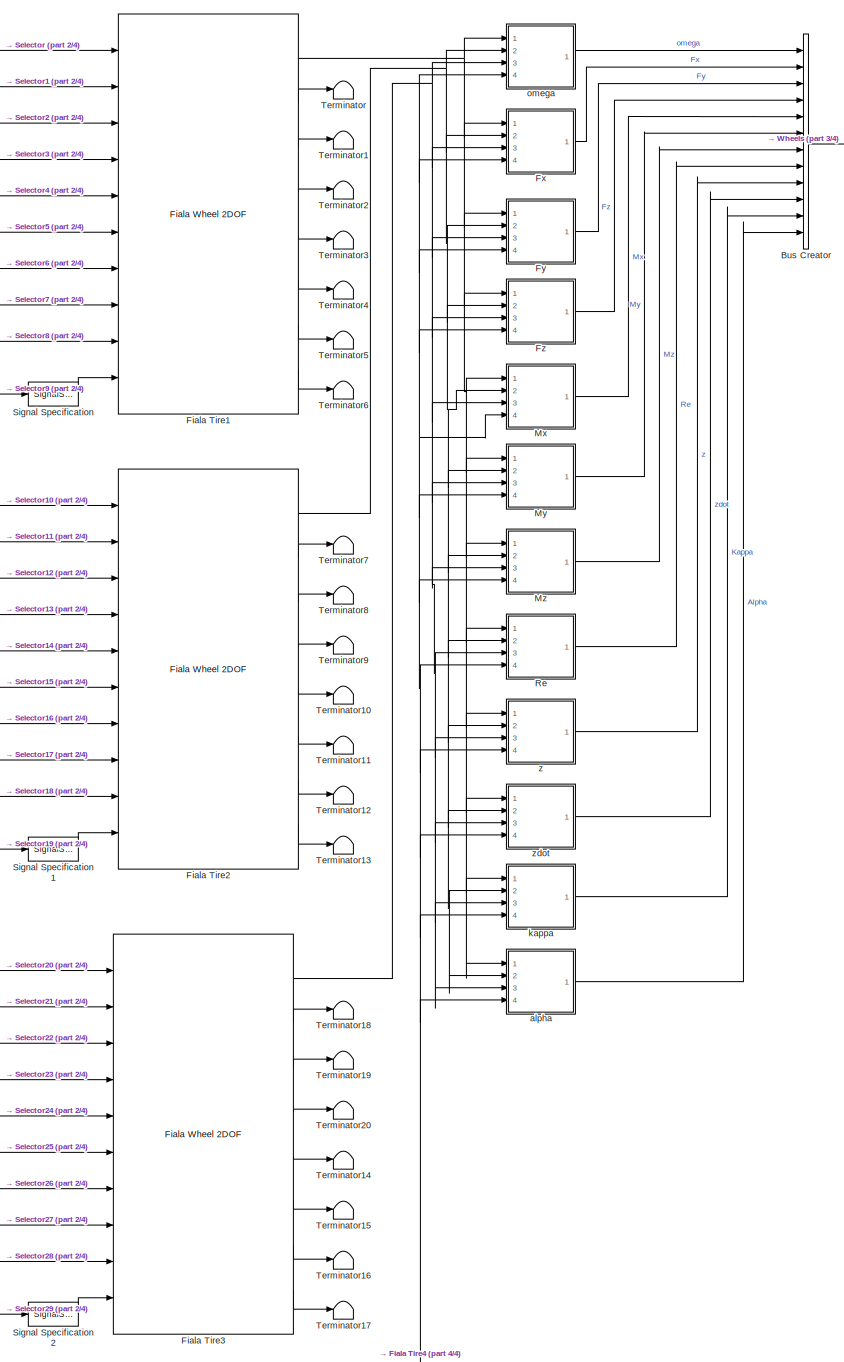
[diagram: Passenger Vehicle/Subsystem6/Wheels and Tires/VDBS/Tires/Fiala Tires - part 1/4, center side, full height]
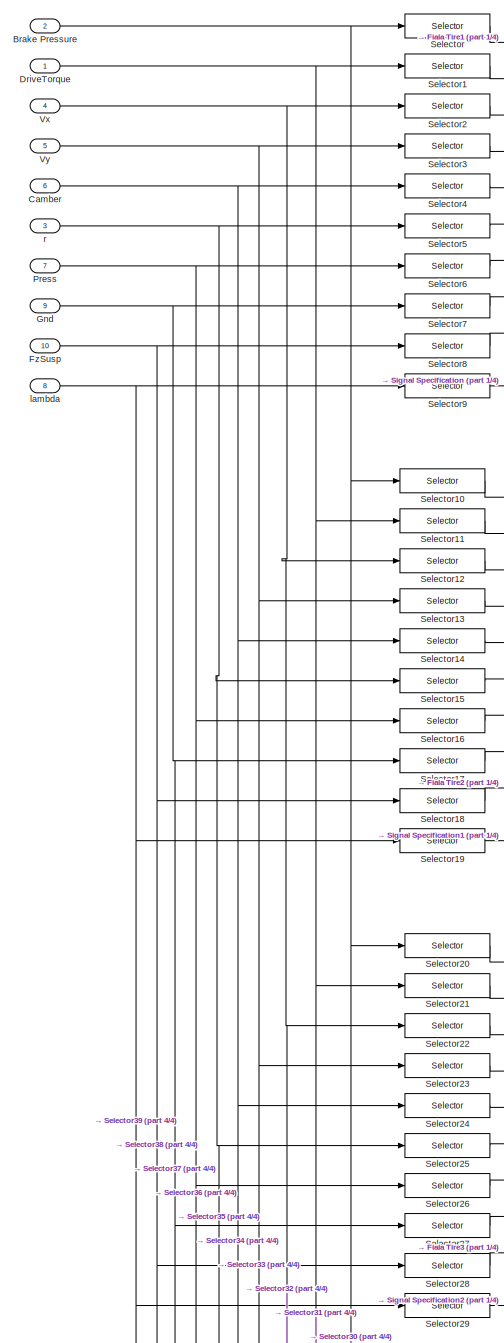
[diagram: Passenger Vehicle/Subsystem6/Wheels and Tires/VDBS/Tires/Fiala Tires - part 2/4, left side, full height]
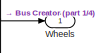
[diagram: Passenger Vehicle/Subsystem6/Wheels and Tires/VDBS/Tires/Fiala Tires - part 3/4, top right region]
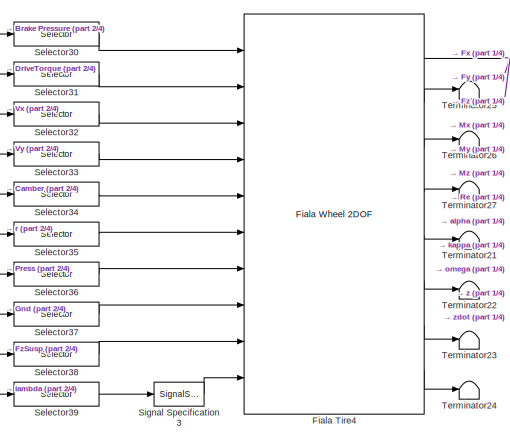
[diagram: Passenger Vehicle/Subsystem6/Wheels and Tires/VDBS/Tires/Fiala Tires - part 4/4, bottom center region]
BLOCK [SubSystem] Passenger Vehicle/Subsystem6/Wheels and Tires/VDBS/Tires/Fiala Tires
  Ports = [10, 1]
  RequestExecContextInheritance = off
  VariantControl = 1
BLOCK [Inport] Passenger Vehicle/Subsystem6/Wheels and Tires/VDBS/Tires/Fiala Tires/Brake Pressure
  IconDisplay = Port number
  Port = 2
BLOCK [BusCreator] Passenger Vehicle/Subsystem6/Wheels and Tires/VDBS/Tires/Fiala Tires/Bus Creator
  DisplayOption = bar
  InheritFromInputs = on
  Inputs = 12
  Ports = [12, 1]
BLOCK [Inport] Passenger Vehicle/Subsystem6/Wheels and Tires/VDBS/Tires/Fiala Tires/Camber
  IconDisplay = Port number
  Port = 6
BLOCK [Inport] Passenger Vehicle/Subsystem6/Wheels and Tires/VDBS/Tires/Fiala Tires/DriveTorque
  IconDisplay = Port number
BLOCK [Reference] Passenger Vehicle/Subsystem6/Wheels and Tires/VDBS/Tires/Fiala Tires/Fiala Tire1  REF=vehdynlibtire/Fiala Wheel 2DOF
  Ports = [10, 8]
  SourceBlock = vehdynlibtire/Fiala Wheel 2DOF
  SourceProductBaseCode = VE
  SourceProductName = Vehicle Dynamics Blockset
  SourceType = Fiala Wheel 2DOF
BLOCK [Reference] Passenger Vehicle/Subsystem6/Wheels and Tires/VDBS/Tires/Fiala Tires/Fiala Tire2  REF=vehdynlibtire/Fiala Wheel 2DOF
  Ports = [10, 8]
  SourceBlock = vehdynlibtire/Fiala Wheel 2DOF
  SourceProductBaseCode = VE
  SourceProductName = Vehicle Dynamics Blockset
  SourceType = Fiala Wheel 2DOF
BLOCK [Reference] Passenger Vehicle/Subsystem6/Wheels and Tires/VDBS/Tires/Fiala Tires/Fiala Tire3  REF=vehdynlibtire/Fiala Wheel 2DOF
  Ports = [10, 8]
  SourceBlock = vehdynlibtire/Fiala Wheel 2DOF
  SourceProductBaseCode = VE
  SourceProductName = Vehicle Dynamics Blockset
  SourceType = Fiala Wheel 2DOF
BLOCK [Reference] Passenger Vehicle/Subsystem6/Wheels and Tires/VDBS/Tires/Fiala Tires/Fiala Tire4  REF=vehdynlibtire/Fiala Wheel 2DOF
  Ports = [10, 8]
  SourceBlock = vehdynlibtire/Fiala Wheel 2DOF
  SourceProductBaseCode = VE
  SourceProductName = Vehicle Dynamics Blockset
  SourceType = Fiala Wheel 2DOF
BLOCK [SubSystem] Passenger Vehicle/Subsystem6/Wheels and Tires/VDBS/Tires/Fiala Tires/Fx
  Ports = [4, 1]
  RequestExecContextInheritance = off
BLOCK [BusSelector] Passenger Vehicle/Subsystem6/Wheels and Tires/VDBS/Tires/Fiala Tires/Fx/Bus Selector
  OutputAsBus = off
  OutputSignals = Fx
  Ports = [1, 1]
BLOCK [BusSelector] Passenger Vehicle/Subsystem6/Wheels and Tires/VDBS/Tires/Fiala Tires/Fx/Bus Selector1
  OutputAsBus = off
  OutputSignals = Fx
  Ports = [1, 1]
BLOCK [BusSelector] Passenger Vehicle/Subsystem6/Wheels and Tires/VDBS/Tires/Fiala Tires/Fx/Bus Selector2
  OutputAsBus = off
  OutputSignals = Fx
  Ports = [1, 1]
BLOCK [BusSelector] Passenger Vehicle/Subsystem6/Wheels and Tires/VDBS/Tires/Fiala Tires/Fx/Bus Selector3
  OutputAsBus = off
  OutputSignals = Fx
  Ports = [1, 1]
BLOCK [Inport] Passenger Vehicle/Subsystem6/Wheels and Tires/VDBS/Tires/Fiala Tires/Fx/In1
  IconDisplay = Port number
BLOCK [Inport] Passenger Vehicle/Subsystem6/Wheels and Tires/VDBS/Tires/Fiala Tires/Fx/In2
  IconDisplay = Port number
  Port = 2
BLOCK [Inport] Passenger Vehicle/Subsystem6/Wheels and Tires/VDBS/Tires/Fiala Tires/Fx/In3
  IconDisplay = Port number
  Port = 3
BLOCK [Inport] Passenger Vehicle/Subsystem6/Wheels and Tires/VDBS/Tires/Fiala Tires/Fx/In4
  IconDisplay = Port number
  Port = 4
BLOCK [Outport] Passenger Vehicle/Subsystem6/Wheels and Tires/VDBS/Tires/Fiala Tires/Fx/Out1
  IconDisplay = Port number
  VectorParamsAs1DForOutWhenUnconnected = off
BLOCK [Concatenate] Passenger Vehicle/Subsystem6/Wheels and Tires/VDBS/Tires/Fiala Tires/Fx/Vector Concatenate
  NumInputs = 4
  Ports = [4, 1]
BLOCK [SubSystem] Passenger Vehicle/Subsystem6/Wheels and Tires/VDBS/Tires/Fiala Tires/Fy
  Ports = [4, 1]
  RequestExecContextInheritance = off
BLOCK [BusSelector] Passenger Vehicle/Subsystem6/Wheels and Tires/VDBS/Tires/Fiala Tires/Fy/Bus Selector
  OutputAsBus = off
  OutputSignals = Fy
  Ports = [1, 1]
BLOCK [BusSelector] Passenger Vehicle/Subsystem6/Wheels and Tires/VDBS/Tires/Fiala Tires/Fy/Bus Selector1
  OutputAsBus = off
  OutputSignals = Fy
  Ports = [1, 1]
BLOCK [BusSelector] Passenger Vehicle/Subsystem6/Wheels and Tires/VDBS/Tires/Fiala Tires/Fy/Bus Selector2
  OutputAsBus = off
  OutputSignals = Fy
  Ports = [1, 1]
BLOCK [BusSelector] Passenger Vehicle/Subsystem6/Wheels and Tires/VDBS/Tires/Fiala Tires/Fy/Bus Selector3
  OutputAsBus = off
  OutputSignals = Fy
  Ports = [1, 1]
BLOCK [Inport] Passenger Vehicle/Subsystem6/Wheels and Tires/VDBS/Tires/Fiala Tires/Fy/In1
  IconDisplay = Port number
BLOCK [Inport] Passenger Vehicle/Subsystem6/Wheels and Tires/VDBS/Tires/Fiala Tires/Fy/In2
  IconDisplay = Port number
  Port = 2
BLOCK [Inport] Passenger Vehicle/Subsystem6/Wheels and Tires/VDBS/Tires/Fiala Tires/Fy/In3
  IconDisplay = Port number
  Port = 3
BLOCK [Inport] Passenger Vehicle/Subsystem6/Wheels and Tires/VDBS/Tires/Fiala Tires/Fy/In4
  IconDisplay = Port number
  Port = 4
BLOCK [Outport] Passenger Vehicle/Subsystem6/Wheels and Tires/VDBS/Tires/Fiala Tires/Fy/Out1
  IconDisplay = Port number
  VectorParamsAs1DForOutWhenUnconnected = off
BLOCK [Concatenate] Passenger Vehicle/Subsystem6/Wheels and Tires/VDBS/Tires/Fiala Tires/Fy/Vector Concatenate
  NumInputs = 4
  Ports = [4, 1]
BLOCK [SubSystem] Passenger Vehicle/Subsystem6/Wheels and Tires/VDBS/Tires/Fiala Tires/Fz
  Ports = [4, 1]
  RequestExecContextInheritance = off
BLOCK [BusSelector] Passenger Vehicle/Subsystem6/Wheels and Tires/VDBS/Tires/Fiala Tires/Fz/Bus Selector
  OutputAsBus = off
  OutputSignals = Fz
  Ports = [1, 1]
BLOCK [BusSelector] Passenger Vehicle/Subsystem6/Wheels and Tires/VDBS/Tires/Fiala Tires/Fz/Bus Selector1
  OutputAsBus = off
  OutputSignals = Fz
  Ports = [1, 1]
BLOCK [BusSelector] Passenger Vehicle/Subsystem6/Wheels and Tires/VDBS/Tires/Fiala Tires/Fz/Bus Selector2
  OutputAsBus = off
  OutputSignals = Fz
  Ports = [1, 1]
BLOCK [BusSelector] Passenger Vehicle/Subsystem6/Wheels and Tires/VDBS/Tires/Fiala Tires/Fz/Bus Selector3
  OutputAsBus = off
  OutputSignals = Fz
  Ports = [1, 1]
BLOCK [Inport] Passenger Vehicle/Subsystem6/Wheels and Tires/VDBS/Tires/Fiala Tires/Fz/In1
  IconDisplay = Port number
BLOCK [Inport] Passenger Vehicle/Subsystem6/Wheels and Tires/VDBS/Tires/Fiala Tires/Fz/In2
  IconDisplay = Port number
  Port = 2
BLOCK [Inport] Passenger Vehicle/Subsystem6/Wheels and Tires/VDBS/Tires/Fiala Tires/Fz/In3
  IconDisplay = Port number
  Port = 3
BLOCK [Inport] Passenger Vehicle/Subsystem6/Wheels and Tires/VDBS/Tires/Fiala Tires/Fz/In4
  IconDisplay = Port number
  Port = 4
BLOCK [Outport] Passenger Vehicle/Subsystem6/Wheels and Tires/VDBS/Tires/Fiala Tires/Fz/Out1
  IconDisplay = Port number
  VectorParamsAs1DForOutWhenUnconnected = off
BLOCK [Concatenate] Passenger Vehicle/Subsystem6/Wheels and Tires/VDBS/Tires/Fiala Tires/Fz/Vector Concatenate
  NumInputs = 4
  Ports = [4, 1]
BLOCK [Inport] Passenger Vehicle/Subsystem6/Wheels and Tires/VDBS/Tires/Fiala Tires/FzSusp
  IconDisplay = Port number
  Port = 10
BLOCK [Inport] Passenger Vehicle/Subsystem6/Wheels and Tires/VDBS/Tires/Fiala Tires/Gnd
  IconDisplay = Port number
  Port = 9
BLOCK [SubSystem] Passenger Vehicle/Subsystem6/Wheels and Tires/VDBS/Tires/Fiala Tires/Mx
  Ports = [4, 1]
  RequestExecContextInheritance = off
BLOCK [BusSelector] Passenger Vehicle/Subsystem6/Wheels and Tires/VDBS/Tires/Fiala Tires/Mx/Bus Selector
  OutputAsBus = off
  OutputSignals = Mx
  Ports = [1, 1]
BLOCK [BusSelector] Passenger Vehicle/Subsystem6/Wheels and Tires/VDBS/Tires/Fiala Tires/Mx/Bus Selector1
  OutputAsBus = off
  OutputSignals = Mx
  Ports = [1, 1]
BLOCK [BusSelector] Passenger Vehicle/Subsystem6/Wheels and Tires/VDBS/Tires/Fiala Tires/Mx/Bus Selector2
  OutputAsBus = off
  OutputSignals = Mx
  Ports = [1, 1]
BLOCK [BusSelector] Passenger Vehicle/Subsystem6/Wheels and Tires/VDBS/Tires/Fiala Tires/Mx/Bus Selector3
  OutputAsBus = off
  OutputSignals = Mx
  Ports = [1, 1]
BLOCK [Inport] Passenger Vehicle/Subsystem6/Wheels and Tires/VDBS/Tires/Fiala Tires/Mx/In1
  IconDisplay = Port number
BLOCK [Inport] Passenger Vehicle/Subsystem6/Wheels and Tires/VDBS/Tires/Fiala Tires/Mx/In2
  IconDisplay = Port number
  Port = 2
BLOCK [Inport] Passenger Vehicle/Subsystem6/Wheels and Tires/VDBS/Tires/Fiala Tires/Mx/In3
  IconDisplay = Port number
  Port = 3
BLOCK [Inport] Passenger Vehicle/Subsystem6/Wheels and Tires/VDBS/Tires/Fiala Tires/Mx/In4
  IconDisplay = Port number
  Port = 4
BLOCK [Outport] Passenger Vehicle/Subsystem6/Wheels and Tires/VDBS/Tires/Fiala Tires/Mx/Out1
  IconDisplay = Port number
  VectorParamsAs1DForOutWhenUnconnected = off
BLOCK [Concatenate] Passenger Vehicle/Subsystem6/Wheels and Tires/VDBS/Tires/Fiala Tires/Mx/Vector Concatenate
  NumInputs = 4
  Ports = [4, 1]
BLOCK [SubSystem] Passenger Vehicle/Subsystem6/Wheels and Tires/VDBS/Tires/Fiala Tires/My
  Ports = [4, 1]
  RequestExecContextInheritance = off
BLOCK [BusSelector] Passenger Vehicle/Subsystem6/Wheels and Tires/VDBS/Tires/Fiala Tires/My/Bus Selector
  OutputAsBus = off
  OutputSignals = My
  Ports = [1, 1]
BLOCK [BusSelector] Passenger Vehicle/Subsystem6/Wheels and Tires/VDBS/Tires/Fiala Tires/My/Bus Selector1
  OutputAsBus = off
  OutputSignals = My
  Ports = [1, 1]
BLOCK [BusSelector] Passenger Vehicle/Subsystem6/Wheels and Tires/VDBS/Tires/Fiala Tires/My/Bus Selector2
  OutputAsBus = off
  OutputSignals = My
  Ports = [1, 1]
BLOCK [BusSelector] Passenger Vehicle/Subsystem6/Wheels and Tires/VDBS/Tires/Fiala Tires/My/Bus Selector3
  OutputAsBus = off
  OutputSignals = My
  Ports = [1, 1]
BLOCK [Inport] Passenger Vehicle/Subsystem6/Wheels and Tires/VDBS/Tires/Fiala Tires/My/In1
  IconDisplay = Port number
BLOCK [Inport] Passenger Vehicle/Subsystem6/Wheels and Tires/VDBS/Tires/Fiala Tires/My/In2
  IconDisplay = Port number
  Port = 2
BLOCK [Inport] Passenger Vehicle/Subsystem6/Wheels and Tires/VDBS/Tires/Fiala Tires/My/In3
  IconDisplay = Port number
  Port = 3
BLOCK [Inport] Passenger Vehicle/Subsystem6/Wheels and Tires/VDBS/Tires/Fiala Tires/My/In4
  IconDisplay = Port number
  Port = 4
BLOCK [Outport] Passenger Vehicle/Subsystem6/Wheels and Tires/VDBS/Tires/Fiala Tires/My/Out1
  IconDisplay = Port number
  VectorParamsAs1DForOutWhenUnconnected = off
BLOCK [Concatenate] Passenger Vehicle/Subsystem6/Wheels and Tires/VDBS/Tires/Fiala Tires/My/Vector Concatenate
  NumInputs = 4
  Ports = [4, 1]
BLOCK [SubSystem] Passenger Vehicle/Subsystem6/Wheels and Tires/VDBS/Tires/Fiala Tires/Mz
  Ports = [4, 1]
  RequestExecContextInheritance = off
BLOCK [BusSelector] Passenger Vehicle/Subsystem6/Wheels and Tires/VDBS/Tires/Fiala Tires/Mz/Bus Selector
  OutputAsBus = off
  OutputSignals = Mz
  Ports = [1, 1]
BLOCK [BusSelector] Passenger Vehicle/Subsystem6/Wheels and Tires/VDBS/Tires/Fiala Tires/Mz/Bus Selector1
  OutputAsBus = off
  OutputSignals = Mz
  Ports = [1, 1]
BLOCK [BusSelector] Passenger Vehicle/Subsystem6/Wheels and Tires/VDBS/Tires/Fiala Tires/Mz/Bus Selector2
  OutputAsBus = off
  OutputSignals = Mz
  Ports = [1, 1]
BLOCK [BusSelector] Passenger Vehicle/Subsystem6/Wheels and Tires/VDBS/Tires/Fiala Tires/Mz/Bus Selector3
  OutputAsBus = off
  OutputSignals = Mz
  Ports = [1, 1]
BLOCK [Inport] Passenger Vehicle/Subsystem6/Wheels and Tires/VDBS/Tires/Fiala Tires/Mz/In1
  IconDisplay = Port number
BLOCK [Inport] Passenger Vehicle/Subsystem6/Wheels and Tires/VDBS/Tires/Fiala Tires/Mz/In2
  IconDisplay = Port number
  Port = 2
BLOCK [Inport] Passenger Vehicle/Subsystem6/Wheels and Tires/VDBS/Tires/Fiala Tires/Mz/In3
  IconDisplay = Port number
  Port = 3
BLOCK [Inport] Passenger Vehicle/Subsystem6/Wheels and Tires/VDBS/Tires/Fiala Tires/Mz/In4
  IconDisplay = Port number
  Port = 4
BLOCK [Outport] Passenger Vehicle/Subsystem6/Wheels and Tires/VDBS/Tires/Fiala Tires/Mz/Out1
  IconDisplay = Port number
  VectorParamsAs1DForOutWhenUnconnected = off
BLOCK [Concatenate] Passenger Vehicle/Subsystem6/Wheels and Tires/VDBS/Tires/Fiala Tires/Mz/Vector Concatenate
  NumInputs = 4
  Ports = [4, 1]
BLOCK [Inport] Passenger Vehicle/Subsystem6/Wheels and Tires/VDBS/Tires/Fiala Tires/Press
  IconDisplay = Port number
  Port = 7
  Unit = Pa
BLOCK [SubSystem] Passenger Vehicle/Subsystem6/Wheels and Tires/VDBS/Tires/Fiala Tires/Re
  Ports = [4, 1]
  RequestExecContextInheritance = off
BLOCK [BusSelector] Passenger Vehicle/Subsystem6/Wheels and Tires/VDBS/Tires/Fiala Tires/Re/Bus Selector
  OutputAsBus = off
  OutputSignals = Re
  Ports = [1, 1]
BLOCK [BusSelector] Passenger Vehicle/Subsystem6/Wheels and Tires/VDBS/Tires/Fiala Tires/Re/Bus Selector1
  OutputAsBus = off
  OutputSignals = Re
  Ports = [1, 1]
BLOCK [BusSelector] Passenger Vehicle/Subsystem6/Wheels and Tires/VDBS/Tires/Fiala Tires/Re/Bus Selector2
  OutputAsBus = off
  OutputSignals = Re
  Ports = [1, 1]
BLOCK [BusSelector] Passenger Vehicle/Subsystem6/Wheels and Tires/VDBS/Tires/Fiala Tires/Re/Bus Selector3
  OutputAsBus = off
  OutputSignals = Re
  Ports = [1, 1]
BLOCK [Inport] Passenger Vehicle/Subsystem6/Wheels and Tires/VDBS/Tires/Fiala Tires/Re/In1
  IconDisplay = Port number
BLOCK [Inport] Passenger Vehicle/Subsystem6/Wheels and Tires/VDBS/Tires/Fiala Tires/Re/In2
  IconDisplay = Port number
  Port = 2
BLOCK [Inport] Passenger Vehicle/Subsystem6/Wheels and Tires/VDBS/Tires/Fiala Tires/Re/In3
  IconDisplay = Port number
  Port = 3
BLOCK [Inport] Passenger Vehicle/Subsystem6/Wheels and Tires/VDBS/Tires/Fiala Tires/Re/In4
  IconDisplay = Port number
  Port = 4
BLOCK [Outport] Passenger Vehicle/Subsystem6/Wheels and Tires/VDBS/Tires/Fiala Tires/Re/Out1
  IconDisplay = Port number
  VectorParamsAs1DForOutWhenUnconnected = off
BLOCK [Concatenate] Passenger Vehicle/Subsystem6/Wheels and Tires/VDBS/Tires/Fiala Tires/Re/Vector Concatenate
  NumInputs = 4
  Ports = [4, 1]
BLOCK [Selector] Passenger Vehicle/Subsystem6/Wheels and Tires/VDBS/Tires/Fiala Tires/Selector
  IndexOptions = Index vector (dialog)
  Indices = 1
  InputPortWidth = 4
  OutputSizes = 1
  Ports = [1, 1]
BLOCK [Selector] Passenger Vehicle/Subsystem6/Wheels and Tires/VDBS/Tires/Fiala Tires/Selector1
  IndexOptions = Index vector (dialog)
  Indices = 1
  InputPortWidth = 4
  OutputSizes = 1
  Ports = [1, 1]
BLOCK [Selector] Passenger Vehicle/Subsystem6/Wheels and Tires/VDBS/Tires/Fiala Tires/Selector10
  IndexOptions = Index vector (dialog)
  Indices = 2
  InputPortWidth = 4
  OutputSizes = 1
  Ports = [1, 1]
BLOCK [Selector] Passenger Vehicle/Subsystem6/Wheels and Tires/VDBS/Tires/Fiala Tires/Selector11
  IndexOptions = Index vector (dialog)
  Indices = 2
  InputPortWidth = 4
  OutputSizes = 1
  Ports = [1, 1]
BLOCK [Selector] Passenger Vehicle/Subsystem6/Wheels and Tires/VDBS/Tires/Fiala Tires/Selector12
  IndexOptions = Index vector (dialog)
  Indices = 2
  InputPortWidth = 4
  OutputSizes = 1
  Ports = [1, 1]
BLOCK [Selector] Passenger Vehicle/Subsystem6/Wheels and Tires/VDBS/Tires/Fiala Tires/Selector13
  IndexOptions = Index vector (dialog)
  Indices = 2
  InputPortWidth = 4
  OutputSizes = 1
  Ports = [1, 1]
BLOCK [Selector] Passenger Vehicle/Subsystem6/Wheels and Tires/VDBS/Tires/Fiala Tires/Selector14
  IndexOptions = Index vector (dialog)
  Indices = 2
  InputPortWidth = 4
  OutputSizes = 1
  Ports = [1, 1]
BLOCK [Selector] Passenger Vehicle/Subsystem6/Wheels and Tires/VDBS/Tires/Fiala Tires/Selector15
  IndexOptions = Index vector (dialog)
  Indices = 2
  InputPortWidth = 4
  OutputSizes = 1
  Ports = [1, 1]
BLOCK [Selector] Passenger Vehicle/Subsystem6/Wheels and Tires/VDBS/Tires/Fiala Tires/Selector16
  IndexOptions = Index vector (dialog)
  Indices = 2
  InputPortWidth = 4
  OutputSizes = 1
  Ports = [1, 1]
BLOCK [Selector] Passenger Vehicle/Subsystem6/Wheels and Tires/VDBS/Tires/Fiala Tires/Selector17
  IndexOptions = Index vector (dialog)
  Indices = 2
  InputPortWidth = 4
  OutputSizes = 1
  Ports = [1, 1]
BLOCK [Selector] Passenger Vehicle/Subsystem6/Wheels and Tires/VDBS/Tires/Fiala Tires/Selector18
  IndexOptions = Index vector (dialog)
  Indices = 2
  InputPortWidth = 4
  OutputSizes = 1
  Ports = [1, 1]
BLOCK [Selector] Passenger Vehicle/Subsystem6/Wheels and Tires/VDBS/Tires/Fiala Tires/Selector19
  IndexOptions = Index vector (dialog),Index vector (dialog)
  Indices = 5,2
  InputPortWidth = 4
  NumberOfDimensions = 2
  OutputSizes = 1,1
  Ports = [1, 1]
BLOCK [Selector] Passenger Vehicle/Subsystem6/Wheels and Tires/VDBS/Tires/Fiala Tires/Selector2
  IndexOptions = Index vector (dialog)
  Indices = 1
  InputPortWidth = 4
  OutputSizes = 1
  Ports = [1, 1]
BLOCK [Selector] Passenger Vehicle/Subsystem6/Wheels and Tires/VDBS/Tires/Fiala Tires/Selector20
  IndexOptions = Index vector (dialog)
  Indices = 3
  InputPortWidth = 4
  OutputSizes = 1
  Ports = [1, 1]
BLOCK [Selector] Passenger Vehicle/Subsystem6/Wheels and Tires/VDBS/Tires/Fiala Tires/Selector21
  IndexOptions = Index vector (dialog)
  Indices = 3
  InputPortWidth = 4
  OutputSizes = 1
  Ports = [1, 1]
BLOCK [Selector] Passenger Vehicle/Subsystem6/Wheels and Tires/VDBS/Tires/Fiala Tires/Selector22
  IndexOptions = Index vector (dialog)
  Indices = 3
  InputPortWidth = 4
  OutputSizes = 1
  Ports = [1, 1]
BLOCK [Selector] Passenger Vehicle/Subsystem6/Wheels and Tires/VDBS/Tires/Fiala Tires/Selector23
  IndexOptions = Index vector (dialog)
  Indices = 3
  InputPortWidth = 4
  OutputSizes = 1
  Ports = [1, 1]
BLOCK [Selector] Passenger Vehicle/Subsystem6/Wheels and Tires/VDBS/Tires/Fiala Tires/Selector24
  IndexOptions = Index vector (dialog)
  Indices = 3
  InputPortWidth = 4
  OutputSizes = 1
  Ports = [1, 1]
BLOCK [Selector] Passenger Vehicle/Subsystem6/Wheels and Tires/VDBS/Tires/Fiala Tires/Selector25
  IndexOptions = Index vector (dialog)
  Indices = 3
  InputPortWidth = 4
  OutputSizes = 1
  Ports = [1, 1]
BLOCK [Selector] Passenger Vehicle/Subsystem6/Wheels and Tires/VDBS/Tires/Fiala Tires/Selector26
  IndexOptions = Index vector (dialog)
  Indices = 3
  InputPortWidth = 4
  OutputSizes = 1
  Ports = [1, 1]
BLOCK [Selector] Passenger Vehicle/Subsystem6/Wheels and Tires/VDBS/Tires/Fiala Tires/Selector27
  IndexOptions = Index vector (dialog)
  Indices = 3
  InputPortWidth = 4
  OutputSizes = 1
  Ports = [1, 1]
BLOCK [Selector] Passenger Vehicle/Subsystem6/Wheels and Tires/VDBS/Tires/Fiala Tires/Selector28
  IndexOptions = Index vector (dialog)
  Indices = 3
  InputPortWidth = 4
  OutputSizes = 1
  Ports = [1, 1]
BLOCK [Selector] Passenger Vehicle/Subsystem6/Wheels and Tires/VDBS/Tires/Fiala Tires/Selector29
  IndexOptions = Index vector (dialog),Index vector (dialog)
  Indices = 5,3
  InputPortWidth = 4
  NumberOfDimensions = 2
  OutputSizes = 1,1
  Ports = [1, 1]
BLOCK [Selector] Passenger Vehicle/Subsystem6/Wheels and Tires/VDBS/Tires/Fiala Tires/Selector3
  IndexOptions = Index vector (dialog)
  Indices = 1
  InputPortWidth = 4
  OutputSizes = 1
  Ports = [1, 1]
BLOCK [Selector] Passenger Vehicle/Subsystem6/Wheels and Tires/VDBS/Tires/Fiala Tires/Selector30
  IndexOptions = Index vector (dialog)
  Indices = 4
  InputPortWidth = 4
  OutputSizes = 1
  Ports = [1, 1]
BLOCK [Selector] Passenger Vehicle/Subsystem6/Wheels and Tires/VDBS/Tires/Fiala Tires/Selector31
  IndexOptions = Index vector (dialog)
  Indices = 4
  InputPortWidth = 4
  OutputSizes = 1
  Ports = [1, 1]
BLOCK [Selector] Passenger Vehicle/Subsystem6/Wheels and Tires/VDBS/Tires/Fiala Tires/Selector32
  IndexOptions = Index vector (dialog)
  Indices = 4
  InputPortWidth = 4
  OutputSizes = 1
  Ports = [1, 1]
BLOCK [Selector] Passenger Vehicle/Subsystem6/Wheels and Tires/VDBS/Tires/Fiala Tires/Selector33
  IndexOptions = Index vector (dialog)
  Indices = 4
  InputPortWidth = 4
  OutputSizes = 1
  Ports = [1, 1]
BLOCK [Selector] Passenger Vehicle/Subsystem6/Wheels and Tires/VDBS/Tires/Fiala Tires/Selector34
  IndexOptions = Index vector (dialog)
  Indices = 4
  InputPortWidth = 4
  OutputSizes = 1
  Ports = [1, 1]
BLOCK [Selector] Passenger Vehicle/Subsystem6/Wheels and Tires/VDBS/Tires/Fiala Tires/Selector35
  IndexOptions = Index vector (dialog)
  Indices = 4
  InputPortWidth = 4
  OutputSizes = 1
  Ports = [1, 1]
BLOCK [Selector] Passenger Vehicle/Subsystem6/Wheels and Tires/VDBS/Tires/Fiala Tires/Selector36
  IndexOptions = Index vector (dialog)
  Indices = 4
  InputPortWidth = 4
  OutputSizes = 1
  Ports = [1, 1]
BLOCK [Selector] Passenger Vehicle/Subsystem6/Wheels and Tires/VDBS/Tires/Fiala Tires/Selector37
  IndexOptions = Index vector (dialog)
  Indices = 4
  InputPortWidth = 4
  OutputSizes = 1
  Ports = [1, 1]
BLOCK [Selector] Passenger Vehicle/Subsystem6/Wheels and Tires/VDBS/Tires/Fiala Tires/Selector38
  IndexOptions = Index vector (dialog)
  Indices = 4
  InputPortWidth = 4
  OutputSizes = 1
  Ports = [1, 1]
BLOCK [Selector] Passenger Vehicle/Subsystem6/Wheels and Tires/VDBS/Tires/Fiala Tires/Selector39
  IndexOptions = Index vector (dialog),Index vector (dialog)
  Indices = 5,4
  InputPortWidth = 4
  NumberOfDimensions = 2
  OutputSizes = 1,1
  Ports = [1, 1]
BLOCK [Selector] Passenger Vehicle/Subsystem6/Wheels and Tires/VDBS/Tires/Fiala Tires/Selector4
  IndexOptions = Index vector (dialog)
  Indices = 1
  InputPortWidth = 4
  OutputSizes = 1
  Ports = [1, 1]
BLOCK [Selector] Passenger Vehicle/Subsystem6/Wheels and Tires/VDBS/Tires/Fiala Tires/Selector5
  IndexOptions = Index vector (dialog)
  Indices = 1
  InputPortWidth = 4
  OutputSizes = 1
  Ports = [1, 1]
BLOCK [Selector] Passenger Vehicle/Subsystem6/Wheels and Tires/VDBS/Tires/Fiala Tires/Selector6
  IndexOptions = Index vector (dialog)
  Indices = 1
  InputPortWidth = 4
  OutputSizes = 1
  Ports = [1, 1]
BLOCK [Selector] Passenger Vehicle/Subsystem6/Wheels and Tires/VDBS/Tires/Fiala Tires/Selector7
  IndexOptions = Index vector (dialog)
  Indices = 1
  InputPortWidth = 4
  OutputSizes = 1
  Ports = [1, 1]
BLOCK [Selector] Passenger Vehicle/Subsystem6/Wheels and Tires/VDBS/Tires/Fiala Tires/Selector8
  IndexOptions = Index vector (dialog)
  Indices = 1
  InputPortWidth = 4
  OutputSizes = 1
  Ports = [1, 1]
BLOCK [Selector] Passenger Vehicle/Subsystem6/Wheels and Tires/VDBS/Tires/Fiala Tires/Selector9
  IndexOptions = Index vector (dialog),Index vector (dialog)
  Indices = 5,1
  InputPortWidth = 4
  NumberOfDimensions = 2
  OutputSizes = 1,1
  Ports = [1, 1]
BLOCK [SignalSpecification] Passenger Vehicle/Subsystem6/Wheels and Tires/VDBS/Tires/Fiala Tires/Signal Specification
  Unit = 1
BLOCK [SignalSpecification] Passenger Vehicle/Subsystem6/Wheels and Tires/VDBS/Tires/Fiala Tires/Signal Specification1
  Unit = 1
BLOCK [SignalSpecification] Passenger Vehicle/Subsystem6/Wheels and Tires/VDBS/Tires/Fiala Tires/Signal Specification2
  Unit = 1
BLOCK [SignalSpecification] Passenger Vehicle/Subsystem6/Wheels and Tires/VDBS/Tires/Fiala Tires/Signal Specification3
  Unit = 1
BLOCK [Terminator] Passenger Vehicle/Subsystem6/Wheels and Tires/VDBS/Tires/Fiala Tires/Terminator
BLOCK [Terminator] Passenger Vehicle/Subsystem6/Wheels and Tires/VDBS/Tires/Fiala Tires/Terminator1
BLOCK [Terminator] Passenger Vehicle/Subsystem6/Wheels and Tires/VDBS/Tires/Fiala Tires/Terminator10
BLOCK [Terminator] Passenger Vehicle/Subsystem6/Wheels and Tires/VDBS/Tires/Fiala Tires/Terminator11
BLOCK [Terminator] Passenger Vehicle/Subsystem6/Wheels and Tires/VDBS/Tires/Fiala Tires/Terminator12
BLOCK [Terminator] Passenger Vehicle/Subsystem6/Wheels and Tires/VDBS/Tires/Fiala Tires/Terminator13
BLOCK [Terminator] Passenger Vehicle/Subsystem6/Wheels and Tires/VDBS/Tires/Fiala Tires/Terminator14
BLOCK [Terminator] Passenger Vehicle/Subsystem6/Wheels and Tires/VDBS/Tires/Fiala Tires/Terminator15
BLOCK [Terminator] Passenger Vehicle/Subsystem6/Wheels and Tires/VDBS/Tires/Fiala Tires/Terminator16
BLOCK [Terminator] Passenger Vehicle/Subsystem6/Wheels and Tires/VDBS/Tires/Fiala Tires/Terminator17
BLOCK [Terminator] Passenger Vehicle/Subsystem6/Wheels and Tires/VDBS/Tires/Fiala Tires/Terminator18
BLOCK [Terminator] Passenger Vehicle/Subsystem6/Wheels and Tires/VDBS/Tires/Fiala Tires/Terminator19
BLOCK [Terminator] Passenger Vehicle/Subsystem6/Wheels and Tires/VDBS/Tires/Fiala Tires/Terminator2
BLOCK [Terminator] Passenger Vehicle/Subsystem6/Wheels and Tires/VDBS/Tires/Fiala Tires/Terminator20
BLOCK [Terminator] Passenger Vehicle/Subsystem6/Wheels and Tires/VDBS/Tires/Fiala Tires/Terminator21
BLOCK [Terminator] Passenger Vehicle/Subsystem6/Wheels and Tires/VDBS/Tires/Fiala Tires/Terminator22
BLOCK [Terminator] Passenger Vehicle/Subsystem6/Wheels and Tires/VDBS/Tires/Fiala Tires/Terminator23
BLOCK [Terminator] Passenger Vehicle/Subsystem6/Wheels and Tires/VDBS/Tires/Fiala Tires/Terminator24
BLOCK [Terminator] Passenger Vehicle/Subsystem6/Wheels and Tires/VDBS/Tires/Fiala Tires/Terminator25
BLOCK [Terminator] Passenger Vehicle/Subsystem6/Wheels and Tires/VDBS/Tires/Fiala Tires/Terminator26
BLOCK [Terminator] Passenger Vehicle/Subsystem6/Wheels and Tires/VDBS/Tires/Fiala Tires/Terminator27
BLOCK [Terminator] Passenger Vehicle/Subsystem6/Wheels and Tires/VDBS/Tires/Fiala Tires/Terminator3
BLOCK [Terminator] Passenger Vehicle/Subsystem6/Wheels and Tires/VDBS/Tires/Fiala Tires/Terminator4
BLOCK [Terminator] Passenger Vehicle/Subsystem6/Wheels and Tires/VDBS/Tires/Fiala Tires/Terminator5
BLOCK [Terminator] Passenger Vehicle/Subsystem6/Wheels and Tires/VDBS/Tires/Fiala Tires/Terminator6
BLOCK [Terminator] Passenger Vehicle/Subsystem6/Wheels and Tires/VDBS/Tires/Fiala Tires/Terminator7
BLOCK [Terminator] Passenger Vehicle/Subsystem6/Wheels and Tires/VDBS/Tires/Fiala Tires/Terminator8
BLOCK [Terminator] Passenger Vehicle/Subsystem6/Wheels and Tires/VDBS/Tires/Fiala Tires/Terminator9
BLOCK [Inport] Passenger Vehicle/Subsystem6/Wheels and Tires/VDBS/Tires/Fiala Tires/Vx
  IconDisplay = Port number
  Port = 4
BLOCK [Inport] Passenger Vehicle/Subsystem6/Wheels and Tires/VDBS/Tires/Fiala Tires/Vy
  IconDisplay = Port number
  Port = 5
BLOCK [Outport] Passenger Vehicle/Subsystem6/Wheels and Tires/VDBS/Tires/Fiala Tires/Wheels
  IconDisplay = Port number
  VectorParamsAs1DForOutWhenUnconnected = off
BLOCK [SubSystem] Passenger Vehicle/Subsystem6/Wheels and Tires/VDBS/Tires/Fiala Tires/alpha
  Ports = [4, 1]
  RequestExecContextInheritance = off
BLOCK [BusSelector] Passenger Vehicle/Subsystem6/Wheels and Tires/VDBS/Tires/Fiala Tires/alpha/Bus Selector
  OutputAsBus = off
  OutputSignals = Alpha
  Ports = [1, 1]
BLOCK [BusSelector] Passenger Vehicle/Subsystem6/Wheels and Tires/VDBS/Tires/Fiala Tires/alpha/Bus Selector1
  OutputAsBus = off
  OutputSignals = Alpha
  Ports = [1, 1]
BLOCK [BusSelector] Passenger Vehicle/Subsystem6/Wheels and Tires/VDBS/Tires/Fiala Tires/alpha/Bus Selector2
  OutputAsBus = off
  OutputSignals = Alpha
  Ports = [1, 1]
BLOCK [BusSelector] Passenger Vehicle/Subsystem6/Wheels and Tires/VDBS/Tires/Fiala Tires/alpha/Bus Selector3
  OutputAsBus = off
  OutputSignals = Alpha
  Ports = [1, 1]
BLOCK [Inport] Passenger Vehicle/Subsystem6/Wheels and Tires/VDBS/Tires/Fiala Tires/alpha/In1
  IconDisplay = Port number
BLOCK [Inport] Passenger Vehicle/Subsystem6/Wheels and Tires/VDBS/Tires/Fiala Tires/alpha/In2
  IconDisplay = Port number
  Port = 2
BLOCK [Inport] Passenger Vehicle/Subsystem6/Wheels and Tires/VDBS/Tires/Fiala Tires/alpha/In3
  IconDisplay = Port number
  Port = 3
BLOCK [Inport] Passenger Vehicle/Subsystem6/Wheels and Tires/VDBS/Tires/Fiala Tires/alpha/In4
  IconDisplay = Port number
  Port = 4
BLOCK [Outport] Passenger Vehicle/Subsystem6/Wheels and Tires/VDBS/Tires/Fiala Tires/alpha/Out1
  IconDisplay = Port number
  VectorParamsAs1DForOutWhenUnconnected = off
BLOCK [Concatenate] Passenger Vehicle/Subsystem6/Wheels and Tires/VDBS/Tires/Fiala Tires/alpha/Vector Concatenate
  NumInputs = 4
  Ports = [4, 1]
BLOCK [SubSystem] Passenger Vehicle/Subsystem6/Wheels and Tires/VDBS/Tires/Fiala Tires/kappa
  Ports = [4, 1]
  RequestExecContextInheritance = off
BLOCK [BusSelector] Passenger Vehicle/Subsystem6/Wheels and Tires/VDBS/Tires/Fiala Tires/kappa/Bus Selector
  OutputAsBus = off
  OutputSignals = Kappa
  Ports = [1, 1]
BLOCK [BusSelector] Passenger Vehicle/Subsystem6/Wheels and Tires/VDBS/Tires/Fiala Tires/kappa/Bus Selector1
  OutputAsBus = off
  OutputSignals = Kappa
  Ports = [1, 1]
BLOCK [BusSelector] Passenger Vehicle/Subsystem6/Wheels and Tires/VDBS/Tires/Fiala Tires/kappa/Bus Selector2
  OutputAsBus = off
  OutputSignals = Kappa
  Ports = [1, 1]
BLOCK [BusSelector] Passenger Vehicle/Subsystem6/Wheels and Tires/VDBS/Tires/Fiala Tires/kappa/Bus Selector3
  OutputAsBus = off
  OutputSignals = Kappa
  Ports = [1, 1]
BLOCK [Inport] Passenger Vehicle/Subsystem6/Wheels and Tires/VDBS/Tires/Fiala Tires/kappa/In1
  IconDisplay = Port number
BLOCK [Inport] Passenger Vehicle/Subsystem6/Wheels and Tires/VDBS/Tires/Fiala Tires/kappa/In2
  IconDisplay = Port number
  Port = 2
BLOCK [Inport] Passenger Vehicle/Subsystem6/Wheels and Tires/VDBS/Tires/Fiala Tires/kappa/In3
  IconDisplay = Port number
  Port = 3
BLOCK [Inport] Passenger Vehicle/Subsystem6/Wheels and Tires/VDBS/Tires/Fiala Tires/kappa/In4
  IconDisplay = Port number
  Port = 4
BLOCK [Outport] Passenger Vehicle/Subsystem6/Wheels and Tires/VDBS/Tires/Fiala Tires/kappa/Out1
  IconDisplay = Port number
  VectorParamsAs1DForOutWhenUnconnected = off
BLOCK [Concatenate] Passenger Vehicle/Subsystem6/Wheels and Tires/VDBS/Tires/Fiala Tires/kappa/Vector Concatenate
  NumInputs = 4
  Ports = [4, 1]
BLOCK [Inport] Passenger Vehicle/Subsystem6/Wheels and Tires/VDBS/Tires/Fiala Tires/lambda
  IconDisplay = Port number
  Port = 8
  Unit = 1
BLOCK [SubSystem] Passenger Vehicle/Subsystem6/Wheels and Tires/VDBS/Tires/Fiala Tires/omega
  Ports = [4, 1]
  RequestExecContextInheritance = off
BLOCK [BusSelector] Passenger Vehicle/Subsystem6/Wheels and Tires/VDBS/Tires/Fiala Tires/omega/Bus Selector
  OutputAsBus = off
  OutputSignals = Omega
  Ports = [1, 1]
BLOCK [BusSelector] Passenger Vehicle/Subsystem6/Wheels and Tires/VDBS/Tires/Fiala Tires/omega/Bus Selector1
  OutputAsBus = off
  OutputSignals = Omega
  Ports = [1, 1]
BLOCK [BusSelector] Passenger Vehicle/Subsystem6/Wheels and Tires/VDBS/Tires/Fiala Tires/omega/Bus Selector2
  OutputAsBus = off
  OutputSignals = Omega
  Ports = [1, 1]
BLOCK [BusSelector] Passenger Vehicle/Subsystem6/Wheels and Tires/VDBS/Tires/Fiala Tires/omega/Bus Selector3
  OutputAsBus = off
  OutputSignals = Omega
  Ports = [1, 1]
BLOCK [Inport] Passenger Vehicle/Subsystem6/Wheels and Tires/VDBS/Tires/Fiala Tires/omega/In1
  IconDisplay = Port number
BLOCK [Inport] Passenger Vehicle/Subsystem6/Wheels and Tires/VDBS/Tires/Fiala Tires/omega/In2
  IconDisplay = Port number
  Port = 2
BLOCK [Inport] Passenger Vehicle/Subsystem6/Wheels and Tires/VDBS/Tires/Fiala Tires/omega/In3
  IconDisplay = Port number
  Port = 3
BLOCK [Inport] Passenger Vehicle/Subsystem6/Wheels and Tires/VDBS/Tires/Fiala Tires/omega/In4
  IconDisplay = Port number
  Port = 4
BLOCK [Outport] Passenger Vehicle/Subsystem6/Wheels and Tires/VDBS/Tires/Fiala Tires/omega/Out1
  IconDisplay = Port number
  VectorParamsAs1DForOutWhenUnconnected = off
BLOCK [Concatenate] Passenger Vehicle/Subsystem6/Wheels and Tires/VDBS/Tires/Fiala Tires/omega/Vector Concatenate
  NumInputs = 4
  Ports = [4, 1]
BLOCK [Inport] Passenger Vehicle/Subsystem6/Wheels and Tires/VDBS/Tires/Fiala Tires/r
  IconDisplay = Port number
  Port = 3
BLOCK [SubSystem] Passenger Vehicle/Subsystem6/Wheels and Tires/VDBS/Tires/Fiala Tires/z
  Ports = [4, 1]
  RequestExecContextInheritance = off
BLOCK [BusSelector] Passenger Vehicle/Subsystem6/Wheels and Tires/VDBS/Tires/Fiala Tires/z/Bus Selector
  OutputAsBus = off
  OutputSignals = z
  Ports = [1, 1]
BLOCK [BusSelector] Passenger Vehicle/Subsystem6/Wheels and Tires/VDBS/Tires/Fiala Tires/z/Bus Selector1
  OutputAsBus = off
  OutputSignals = z
  Ports = [1, 1]
BLOCK [BusSelector] Passenger Vehicle/Subsystem6/Wheels and Tires/VDBS/Tires/Fiala Tires/z/Bus Selector2
  OutputAsBus = off
  OutputSignals = z
  Ports = [1, 1]
BLOCK [BusSelector] Passenger Vehicle/Subsystem6/Wheels and Tires/VDBS/Tires/Fiala Tires/z/Bus Selector3
  OutputAsBus = off
  OutputSignals = z
  Ports = [1, 1]
BLOCK [Inport] Passenger Vehicle/Subsystem6/Wheels and Tires/VDBS/Tires/Fiala Tires/z/In1
  IconDisplay = Port number
BLOCK [Inport] Passenger Vehicle/Subsystem6/Wheels and Tires/VDBS/Tires/Fiala Tires/z/In2
  IconDisplay = Port number
  Port = 2
BLOCK [Inport] Passenger Vehicle/Subsystem6/Wheels and Tires/VDBS/Tires/Fiala Tires/z/In3
  IconDisplay = Port number
  Port = 3
BLOCK [Inport] Passenger Vehicle/Subsystem6/Wheels and Tires/VDBS/Tires/Fiala Tires/z/In4
  IconDisplay = Port number
  Port = 4
BLOCK [Outport] Passenger Vehicle/Subsystem6/Wheels and Tires/VDBS/Tires/Fiala Tires/z/Out1
  IconDisplay = Port number
  VectorParamsAs1DForOutWhenUnconnected = off
BLOCK [Concatenate] Passenger Vehicle/Subsystem6/Wheels and Tires/VDBS/Tires/Fiala Tires/z/Vector Concatenate
  NumInputs = 4
  Ports = [4, 1]
BLOCK [SubSystem] Passenger Vehicle/Subsystem6/Wheels and Tires/VDBS/Tires/Fiala Tires/zdot
  Ports = [4, 1]
  RequestExecContextInheritance = off
BLOCK [BusSelector] Passenger Vehicle/Subsystem6/Wheels and Tires/VDBS/Tires/Fiala Tires/zdot/Bus Selector
  OutputAsBus = off
  OutputSignals = zdot
  Ports = [1, 1]
BLOCK [BusSelector] Passenger Vehicle/Subsystem6/Wheels and Tires/VDBS/Tires/Fiala Tires/zdot/Bus Selector1
  OutputAsBus = off
  OutputSignals = zdot
  Ports = [1, 1]
BLOCK [BusSelector] Passenger Vehicle/Subsystem6/Wheels and Tires/VDBS/Tires/Fiala Tires/zdot/Bus Selector2
  OutputAsBus = off
  OutputSignals = zdot
  Ports = [1, 1]
BLOCK [BusSelector] Passenger Vehicle/Subsystem6/Wheels and Tires/VDBS/Tires/Fiala Tires/zdot/Bus Selector3
  OutputAsBus = off
  OutputSignals = zdot
  Ports = [1, 1]
BLOCK [Inport] Passenger Vehicle/Subsystem6/Wheels and Tires/VDBS/Tires/Fiala Tires/zdot/In1
  IconDisplay = Port number
BLOCK [Inport] Passenger Vehicle/Subsystem6/Wheels and Tires/VDBS/Tires/Fiala Tires/zdot/In2
  IconDisplay = Port number
  Port = 2
BLOCK [Inport] Passenger Vehicle/Subsystem6/Wheels and Tires/VDBS/Tires/Fiala Tires/zdot/In3
  IconDisplay = Port number
  Port = 3
BLOCK [Inport] Passenger Vehicle/Subsystem6/Wheels and Tires/VDBS/Tires/Fiala Tires/zdot/In4
  IconDisplay = Port number
  Port = 4
BLOCK [Outport] Passenger Vehicle/Subsystem6/Wheels and Tires/VDBS/Tires/Fiala Tires/zdot/Out1
  IconDisplay = Port number
  VectorParamsAs1DForOutWhenUnconnected = off
BLOCK [Concatenate] Passenger Vehicle/Subsystem6/Wheels and Tires/VDBS/Tires/Fiala Tires/zdot/Vector Concatenate
  NumInputs = 4
  Ports = [4, 1]
BLOCK [Inport] Passenger Vehicle/Subsystem6/Wheels and Tires/VDBS/Tires/FzSusp 
  IconDisplay = Port number
  Port = 10
BLOCK [Inport] Passenger Vehicle/Subsystem6/Wheels and Tires/VDBS/Tires/Gnd 
  IconDisplay = Port number
  Port = 9
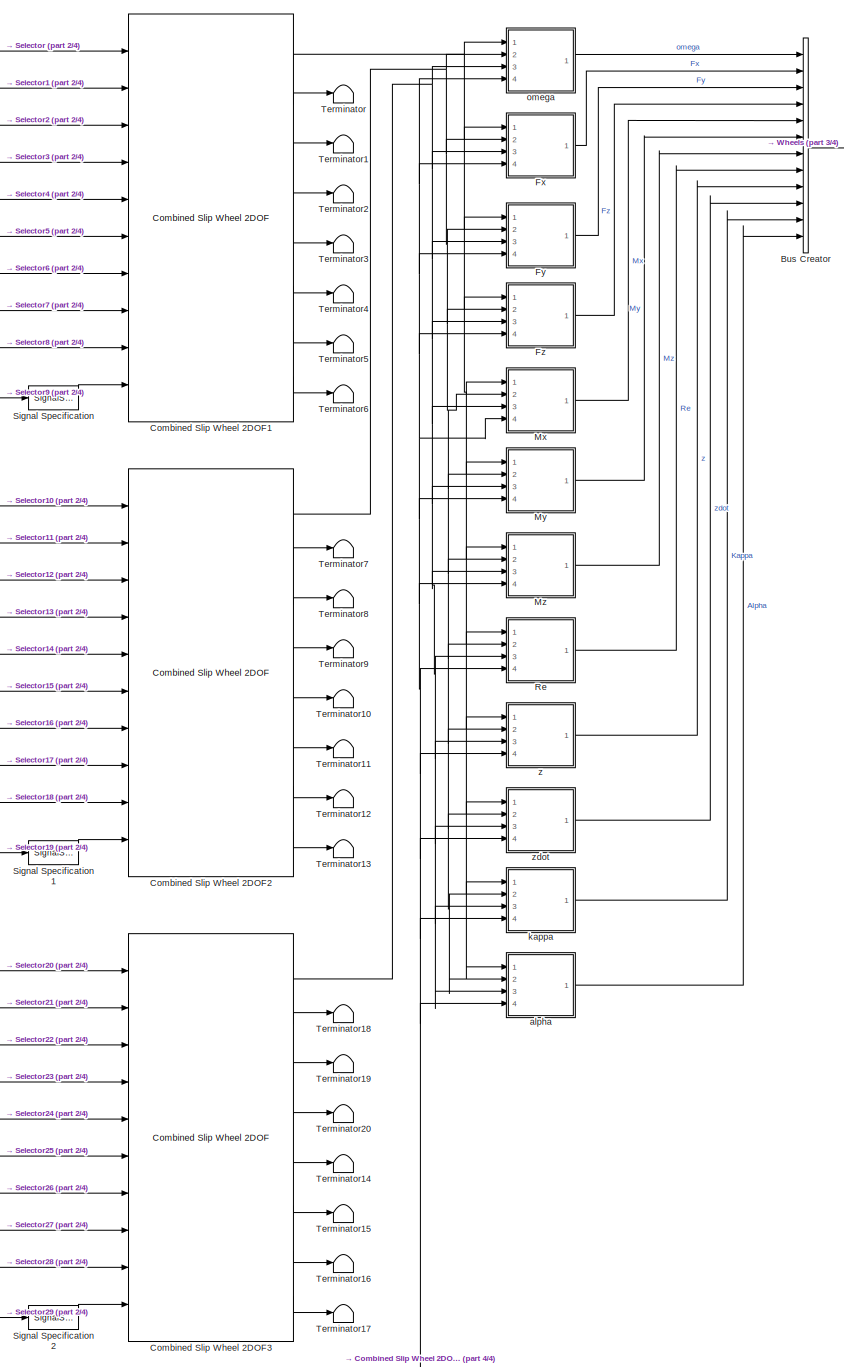
[diagram: Passenger Vehicle/Subsystem6/Wheels and Tires/VDBS/Tires/MF Tires - part 1/4, center side, full height]
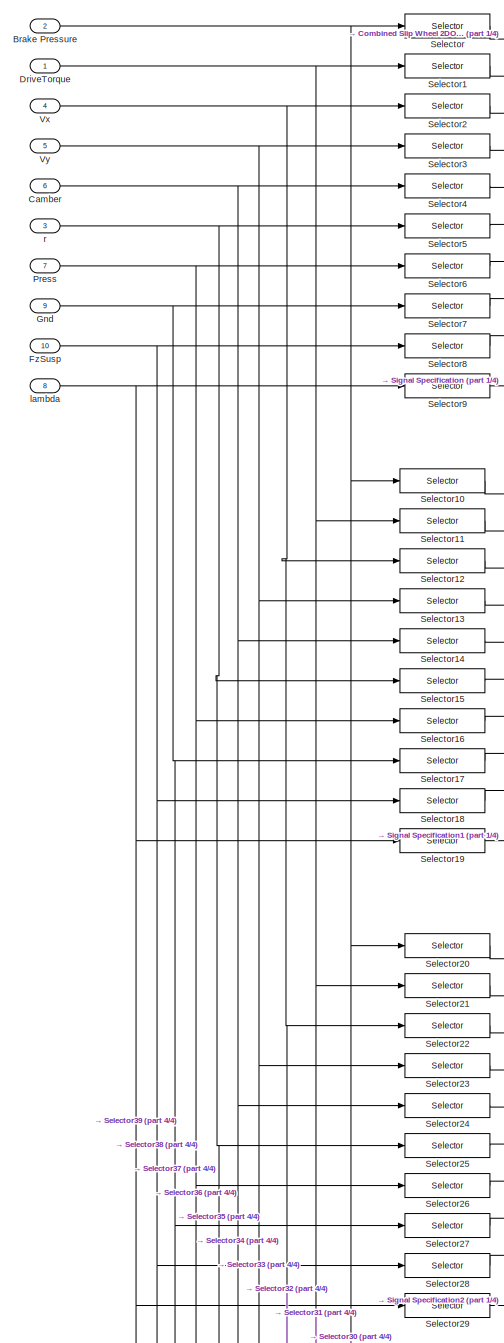
[diagram: Passenger Vehicle/Subsystem6/Wheels and Tires/VDBS/Tires/MF Tires - part 2/4, left side, full height]
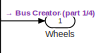
[diagram: Passenger Vehicle/Subsystem6/Wheels and Tires/VDBS/Tires/MF Tires - part 3/4, top right region]
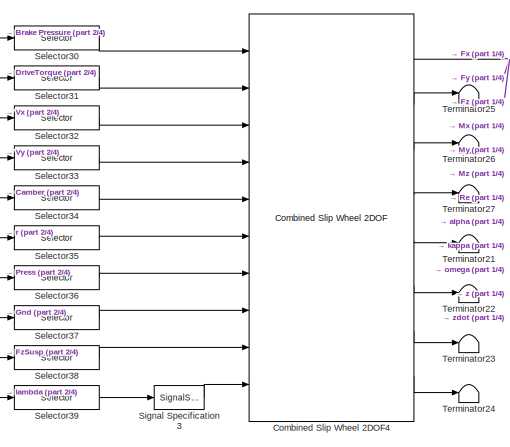
[diagram: Passenger Vehicle/Subsystem6/Wheels and Tires/VDBS/Tires/MF Tires - part 4/4, bottom center region]
BLOCK [SubSystem] Passenger Vehicle/Subsystem6/Wheels and Tires/VDBS/Tires/MF Tires
  Ports = [10, 1]
  RequestExecContextInheritance = off
  VariantControl = 0
BLOCK [Inport] Passenger Vehicle/Subsystem6/Wheels and Tires/VDBS/Tires/MF Tires/Brake Pressure
  IconDisplay = Port number
  Port = 2
BLOCK [BusCreator] Passenger Vehicle/Subsystem6/Wheels and Tires/VDBS/Tires/MF Tires/Bus Creator
  DisplayOption = bar
  InheritFromInputs = on
  Inputs = 12
  Ports = [12, 1]
BLOCK [Inport] Passenger Vehicle/Subsystem6/Wheels and Tires/VDBS/Tires/MF Tires/Camber
  IconDisplay = Port number
  Port = 6
BLOCK [Reference] Passenger Vehicle/Subsystem6/Wheels and Tires/VDBS/Tires/MF Tires/Combined Slip Wheel 2DOF1  REF=vehdynlibtire/Combined Slip Wheel 2DOF
  Ports = [10, 8]
  SourceBlock = vehdynlibtire/Combined Slip Wheel 2DOF
  SourceProductBaseCode = VE
  SourceProductName = Vehicle Dynamics Blockset
  SourceType = Combined Slip Wheel 2DOF
BLOCK [Reference] Passenger Vehicle/Subsystem6/Wheels and Tires/VDBS/Tires/MF Tires/Combined Slip Wheel 2DOF2  REF=vehdynlibtire/Combined Slip Wheel 2DOF
  Ports = [10, 8]
  SourceBlock = vehdynlibtire/Combined Slip Wheel 2DOF
  SourceProductBaseCode = VE
  SourceProductName = Vehicle Dynamics Blockset
  SourceType = Combined Slip Wheel 2DOF
BLOCK [Reference] Passenger Vehicle/Subsystem6/Wheels and Tires/VDBS/Tires/MF Tires/Combined Slip Wheel 2DOF3  REF=vehdynlibtire/Combined Slip Wheel 2DOF
  Ports = [10, 8]
  SourceBlock = vehdynlibtire/Combined Slip Wheel 2DOF
  SourceProductBaseCode = VE
  SourceProductName = Vehicle Dynamics Blockset
  SourceType = Combined Slip Wheel 2DOF
BLOCK [Reference] Passenger Vehicle/Subsystem6/Wheels and Tires/VDBS/Tires/MF Tires/Combined Slip Wheel 2DOF4  REF=vehdynlibtire/Combined Slip Wheel 2DOF
  Ports = [10, 8]
  SourceBlock = vehdynlibtire/Combined Slip Wheel 2DOF
  SourceProductBaseCode = VE
  SourceProductName = Vehicle Dynamics Blockset
  SourceType = Combined Slip Wheel 2DOF
BLOCK [Inport] Passenger Vehicle/Subsystem6/Wheels and Tires/VDBS/Tires/MF Tires/DriveTorque
  IconDisplay = Port number
BLOCK [SubSystem] Passenger Vehicle/Subsystem6/Wheels and Tires/VDBS/Tires/MF Tires/Fx
  Ports = [4, 1]
  RequestExecContextInheritance = off
BLOCK [BusSelector] Passenger Vehicle/Subsystem6/Wheels and Tires/VDBS/Tires/MF Tires/Fx/Bus Selector
  OutputAsBus = off
  OutputSignals = Fx
  Ports = [1, 1]
BLOCK [BusSelector] Passenger Vehicle/Subsystem6/Wheels and Tires/VDBS/Tires/MF Tires/Fx/Bus Selector1
  OutputAsBus = off
  OutputSignals = Fx
  Ports = [1, 1]
BLOCK [BusSelector] Passenger Vehicle/Subsystem6/Wheels and Tires/VDBS/Tires/MF Tires/Fx/Bus Selector2
  OutputAsBus = off
  OutputSignals = Fx
  Ports = [1, 1]
BLOCK [BusSelector] Passenger Vehicle/Subsystem6/Wheels and Tires/VDBS/Tires/MF Tires/Fx/Bus Selector3
  OutputAsBus = off
  OutputSignals = Fx
  Ports = [1, 1]
BLOCK [Inport] Passenger Vehicle/Subsystem6/Wheels and Tires/VDBS/Tires/MF Tires/Fx/In1
  IconDisplay = Port number
BLOCK [Inport] Passenger Vehicle/Subsystem6/Wheels and Tires/VDBS/Tires/MF Tires/Fx/In2
  IconDisplay = Port number
  Port = 2
BLOCK [Inport] Passenger Vehicle/Subsystem6/Wheels and Tires/VDBS/Tires/MF Tires/Fx/In3
  IconDisplay = Port number
  Port = 3
BLOCK [Inport] Passenger Vehicle/Subsystem6/Wheels and Tires/VDBS/Tires/MF Tires/Fx/In4
  IconDisplay = Port number
  Port = 4
BLOCK [Outport] Passenger Vehicle/Subsystem6/Wheels and Tires/VDBS/Tires/MF Tires/Fx/Out1
  IconDisplay = Port number
  VectorParamsAs1DForOutWhenUnconnected = off
BLOCK [Concatenate] Passenger Vehicle/Subsystem6/Wheels and Tires/VDBS/Tires/MF Tires/Fx/Vector Concatenate
  NumInputs = 4
  Ports = [4, 1]
BLOCK [SubSystem] Passenger Vehicle/Subsystem6/Wheels and Tires/VDBS/Tires/MF Tires/Fy
  Ports = [4, 1]
  RequestExecContextInheritance = off
BLOCK [BusSelector] Passenger Vehicle/Subsystem6/Wheels and Tires/VDBS/Tires/MF Tires/Fy/Bus Selector
  OutputAsBus = off
  OutputSignals = Fy
  Ports = [1, 1]
BLOCK [BusSelector] Passenger Vehicle/Subsystem6/Wheels and Tires/VDBS/Tires/MF Tires/Fy/Bus Selector1
  OutputAsBus = off
  OutputSignals = Fy
  Ports = [1, 1]
BLOCK [BusSelector] Passenger Vehicle/Subsystem6/Wheels and Tires/VDBS/Tires/MF Tires/Fy/Bus Selector2
  OutputAsBus = off
  OutputSignals = Fy
  Ports = [1, 1]
BLOCK [BusSelector] Passenger Vehicle/Subsystem6/Wheels and Tires/VDBS/Tires/MF Tires/Fy/Bus Selector3
  OutputAsBus = off
  OutputSignals = Fy
  Ports = [1, 1]
BLOCK [Inport] Passenger Vehicle/Subsystem6/Wheels and Tires/VDBS/Tires/MF Tires/Fy/In1
  IconDisplay = Port number
BLOCK [Inport] Passenger Vehicle/Subsystem6/Wheels and Tires/VDBS/Tires/MF Tires/Fy/In2
  IconDisplay = Port number
  Port = 2
BLOCK [Inport] Passenger Vehicle/Subsystem6/Wheels and Tires/VDBS/Tires/MF Tires/Fy/In3
  IconDisplay = Port number
  Port = 3
BLOCK [Inport] Passenger Vehicle/Subsystem6/Wheels and Tires/VDBS/Tires/MF Tires/Fy/In4
  IconDisplay = Port number
  Port = 4
BLOCK [Outport] Passenger Vehicle/Subsystem6/Wheels and Tires/VDBS/Tires/MF Tires/Fy/Out1
  IconDisplay = Port number
  VectorParamsAs1DForOutWhenUnconnected = off
BLOCK [Concatenate] Passenger Vehicle/Subsystem6/Wheels and Tires/VDBS/Tires/MF Tires/Fy/Vector Concatenate
  NumInputs = 4
  Ports = [4, 1]
BLOCK [SubSystem] Passenger Vehicle/Subsystem6/Wheels and Tires/VDBS/Tires/MF Tires/Fz
  Ports = [4, 1]
  RequestExecContextInheritance = off
BLOCK [BusSelector] Passenger Vehicle/Subsystem6/Wheels and Tires/VDBS/Tires/MF Tires/Fz/Bus Selector
  OutputAsBus = off
  OutputSignals = Fz
  Ports = [1, 1]
BLOCK [BusSelector] Passenger Vehicle/Subsystem6/Wheels and Tires/VDBS/Tires/MF Tires/Fz/Bus Selector1
  OutputAsBus = off
  OutputSignals = Fz
  Ports = [1, 1]
BLOCK [BusSelector] Passenger Vehicle/Subsystem6/Wheels and Tires/VDBS/Tires/MF Tires/Fz/Bus Selector2
  OutputAsBus = off
  OutputSignals = Fz
  Ports = [1, 1]
BLOCK [BusSelector] Passenger Vehicle/Subsystem6/Wheels and Tires/VDBS/Tires/MF Tires/Fz/Bus Selector3
  OutputAsBus = off
  OutputSignals = Fz
  Ports = [1, 1]
BLOCK [Inport] Passenger Vehicle/Subsystem6/Wheels and Tires/VDBS/Tires/MF Tires/Fz/In1
  IconDisplay = Port number
BLOCK [Inport] Passenger Vehicle/Subsystem6/Wheels and Tires/VDBS/Tires/MF Tires/Fz/In2
  IconDisplay = Port number
  Port = 2
BLOCK [Inport] Passenger Vehicle/Subsystem6/Wheels and Tires/VDBS/Tires/MF Tires/Fz/In3
  IconDisplay = Port number
  Port = 3
BLOCK [Inport] Passenger Vehicle/Subsystem6/Wheels and Tires/VDBS/Tires/MF Tires/Fz/In4
  IconDisplay = Port number
  Port = 4
BLOCK [Outport] Passenger Vehicle/Subsystem6/Wheels and Tires/VDBS/Tires/MF Tires/Fz/Out1
  IconDisplay = Port number
  VectorParamsAs1DForOutWhenUnconnected = off
BLOCK [Concatenate] Passenger Vehicle/Subsystem6/Wheels and Tires/VDBS/Tires/MF Tires/Fz/Vector Concatenate
  NumInputs = 4
  Ports = [4, 1]
BLOCK [Inport] Passenger Vehicle/Subsystem6/Wheels and Tires/VDBS/Tires/MF Tires/FzSusp
  IconDisplay = Port number
  Port = 10
BLOCK [Inport] Passenger Vehicle/Subsystem6/Wheels and Tires/VDBS/Tires/MF Tires/Gnd
  IconDisplay = Port number
  Port = 9
BLOCK [SubSystem] Passenger Vehicle/Subsystem6/Wheels and Tires/VDBS/Tires/MF Tires/Mx
  Ports = [4, 1]
  RequestExecContextInheritance = off
BLOCK [BusSelector] Passenger Vehicle/Subsystem6/Wheels and Tires/VDBS/Tires/MF Tires/Mx/Bus Selector
  OutputAsBus = off
  OutputSignals = Mx
  Ports = [1, 1]
BLOCK [BusSelector] Passenger Vehicle/Subsystem6/Wheels and Tires/VDBS/Tires/MF Tires/Mx/Bus Selector1
  OutputAsBus = off
  OutputSignals = Mx
  Ports = [1, 1]
BLOCK [BusSelector] Passenger Vehicle/Subsystem6/Wheels and Tires/VDBS/Tires/MF Tires/Mx/Bus Selector2
  OutputAsBus = off
  OutputSignals = Mx
  Ports = [1, 1]
BLOCK [BusSelector] Passenger Vehicle/Subsystem6/Wheels and Tires/VDBS/Tires/MF Tires/Mx/Bus Selector3
  OutputAsBus = off
  OutputSignals = Mx
  Ports = [1, 1]
BLOCK [Inport] Passenger Vehicle/Subsystem6/Wheels and Tires/VDBS/Tires/MF Tires/Mx/In1
  IconDisplay = Port number
BLOCK [Inport] Passenger Vehicle/Subsystem6/Wheels and Tires/VDBS/Tires/MF Tires/Mx/In2
  IconDisplay = Port number
  Port = 2
BLOCK [Inport] Passenger Vehicle/Subsystem6/Wheels and Tires/VDBS/Tires/MF Tires/Mx/In3
  IconDisplay = Port number
  Port = 3
BLOCK [Inport] Passenger Vehicle/Subsystem6/Wheels and Tires/VDBS/Tires/MF Tires/Mx/In4
  IconDisplay = Port number
  Port = 4
BLOCK [Outport] Passenger Vehicle/Subsystem6/Wheels and Tires/VDBS/Tires/MF Tires/Mx/Out1
  IconDisplay = Port number
  VectorParamsAs1DForOutWhenUnconnected = off
BLOCK [Concatenate] Passenger Vehicle/Subsystem6/Wheels and Tires/VDBS/Tires/MF Tires/Mx/Vector Concatenate
  NumInputs = 4
  Ports = [4, 1]
BLOCK [SubSystem] Passenger Vehicle/Subsystem6/Wheels and Tires/VDBS/Tires/MF Tires/My
  Ports = [4, 1]
  RequestExecContextInheritance = off
BLOCK [BusSelector] Passenger Vehicle/Subsystem6/Wheels and Tires/VDBS/Tires/MF Tires/My/Bus Selector
  OutputAsBus = off
  OutputSignals = My
  Ports = [1, 1]
BLOCK [BusSelector] Passenger Vehicle/Subsystem6/Wheels and Tires/VDBS/Tires/MF Tires/My/Bus Selector1
  OutputAsBus = off
  OutputSignals = My
  Ports = [1, 1]
BLOCK [BusSelector] Passenger Vehicle/Subsystem6/Wheels and Tires/VDBS/Tires/MF Tires/My/Bus Selector2
  OutputAsBus = off
  OutputSignals = My
  Ports = [1, 1]
BLOCK [BusSelector] Passenger Vehicle/Subsystem6/Wheels and Tires/VDBS/Tires/MF Tires/My/Bus Selector3
  OutputAsBus = off
  OutputSignals = My
  Ports = [1, 1]
BLOCK [Inport] Passenger Vehicle/Subsystem6/Wheels and Tires/VDBS/Tires/MF Tires/My/In1
  IconDisplay = Port number
BLOCK [Inport] Passenger Vehicle/Subsystem6/Wheels and Tires/VDBS/Tires/MF Tires/My/In2
  IconDisplay = Port number
  Port = 2
BLOCK [Inport] Passenger Vehicle/Subsystem6/Wheels and Tires/VDBS/Tires/MF Tires/My/In3
  IconDisplay = Port number
  Port = 3
BLOCK [Inport] Passenger Vehicle/Subsystem6/Wheels and Tires/VDBS/Tires/MF Tires/My/In4
  IconDisplay = Port number
  Port = 4
BLOCK [Outport] Passenger Vehicle/Subsystem6/Wheels and Tires/VDBS/Tires/MF Tires/My/Out1
  IconDisplay = Port number
  VectorParamsAs1DForOutWhenUnconnected = off
BLOCK [Concatenate] Passenger Vehicle/Subsystem6/Wheels and Tires/VDBS/Tires/MF Tires/My/Vector Concatenate
  NumInputs = 4
  Ports = [4, 1]
BLOCK [SubSystem] Passenger Vehicle/Subsystem6/Wheels and Tires/VDBS/Tires/MF Tires/Mz
  Ports = [4, 1]
  RequestExecContextInheritance = off
BLOCK [BusSelector] Passenger Vehicle/Subsystem6/Wheels and Tires/VDBS/Tires/MF Tires/Mz/Bus Selector
  OutputAsBus = off
  OutputSignals = Mz
  Ports = [1, 1]
BLOCK [BusSelector] Passenger Vehicle/Subsystem6/Wheels and Tires/VDBS/Tires/MF Tires/Mz/Bus Selector1
  OutputAsBus = off
  OutputSignals = Mz
  Ports = [1, 1]
BLOCK [BusSelector] Passenger Vehicle/Subsystem6/Wheels and Tires/VDBS/Tires/MF Tires/Mz/Bus Selector2
  OutputAsBus = off
  OutputSignals = Mz
  Ports = [1, 1]
BLOCK [BusSelector] Passenger Vehicle/Subsystem6/Wheels and Tires/VDBS/Tires/MF Tires/Mz/Bus Selector3
  OutputAsBus = off
  OutputSignals = Mz
  Ports = [1, 1]
BLOCK [Inport] Passenger Vehicle/Subsystem6/Wheels and Tires/VDBS/Tires/MF Tires/Mz/In1
  IconDisplay = Port number
BLOCK [Inport] Passenger Vehicle/Subsystem6/Wheels and Tires/VDBS/Tires/MF Tires/Mz/In2
  IconDisplay = Port number
  Port = 2
BLOCK [Inport] Passenger Vehicle/Subsystem6/Wheels and Tires/VDBS/Tires/MF Tires/Mz/In3
  IconDisplay = Port number
  Port = 3
BLOCK [Inport] Passenger Vehicle/Subsystem6/Wheels and Tires/VDBS/Tires/MF Tires/Mz/In4
  IconDisplay = Port number
  Port = 4
BLOCK [Outport] Passenger Vehicle/Subsystem6/Wheels and Tires/VDBS/Tires/MF Tires/Mz/Out1
  IconDisplay = Port number
  VectorParamsAs1DForOutWhenUnconnected = off
BLOCK [Concatenate] Passenger Vehicle/Subsystem6/Wheels and Tires/VDBS/Tires/MF Tires/Mz/Vector Concatenate
  NumInputs = 4
  Ports = [4, 1]
BLOCK [Inport] Passenger Vehicle/Subsystem6/Wheels and Tires/VDBS/Tires/MF Tires/Press
  IconDisplay = Port number
  Port = 7
  Unit = Pa
BLOCK [SubSystem] Passenger Vehicle/Subsystem6/Wheels and Tires/VDBS/Tires/MF Tires/Re
  Ports = [4, 1]
  RequestExecContextInheritance = off
BLOCK [BusSelector] Passenger Vehicle/Subsystem6/Wheels and Tires/VDBS/Tires/MF Tires/Re/Bus Selector
  OutputAsBus = off
  OutputSignals = Re
  Ports = [1, 1]
BLOCK [BusSelector] Passenger Vehicle/Subsystem6/Wheels and Tires/VDBS/Tires/MF Tires/Re/Bus Selector1
  OutputAsBus = off
  OutputSignals = Re
  Ports = [1, 1]
BLOCK [BusSelector] Passenger Vehicle/Subsystem6/Wheels and Tires/VDBS/Tires/MF Tires/Re/Bus Selector2
  OutputAsBus = off
  OutputSignals = Re
  Ports = [1, 1]
BLOCK [BusSelector] Passenger Vehicle/Subsystem6/Wheels and Tires/VDBS/Tires/MF Tires/Re/Bus Selector3
  OutputAsBus = off
  OutputSignals = Re
  Ports = [1, 1]
BLOCK [Inport] Passenger Vehicle/Subsystem6/Wheels and Tires/VDBS/Tires/MF Tires/Re/In1
  IconDisplay = Port number
BLOCK [Inport] Passenger Vehicle/Subsystem6/Wheels and Tires/VDBS/Tires/MF Tires/Re/In2
  IconDisplay = Port number
  Port = 2
BLOCK [Inport] Passenger Vehicle/Subsystem6/Wheels and Tires/VDBS/Tires/MF Tires/Re/In3
  IconDisplay = Port number
  Port = 3
BLOCK [Inport] Passenger Vehicle/Subsystem6/Wheels and Tires/VDBS/Tires/MF Tires/Re/In4
  IconDisplay = Port number
  Port = 4
BLOCK [Outport] Passenger Vehicle/Subsystem6/Wheels and Tires/VDBS/Tires/MF Tires/Re/Out1
  IconDisplay = Port number
  VectorParamsAs1DForOutWhenUnconnected = off
BLOCK [Concatenate] Passenger Vehicle/Subsystem6/Wheels and Tires/VDBS/Tires/MF Tires/Re/Vector Concatenate
  NumInputs = 4
  Ports = [4, 1]
BLOCK [Selector] Passenger Vehicle/Subsystem6/Wheels and Tires/VDBS/Tires/MF Tires/Selector
  IndexOptions = Index vector (dialog)
  Indices = 1
  InputPortWidth = 4
  OutputSizes = 1
  Ports = [1, 1]
BLOCK [Selector] Passenger Vehicle/Subsystem6/Wheels and Tires/VDBS/Tires/MF Tires/Selector1
  IndexOptions = Index vector (dialog)
  Indices = 1
  InputPortWidth = 4
  OutputSizes = 1
  Ports = [1, 1]
BLOCK [Selector] Passenger Vehicle/Subsystem6/Wheels and Tires/VDBS/Tires/MF Tires/Selector10
  IndexOptions = Index vector (dialog)
  Indices = 2
  InputPortWidth = 4
  OutputSizes = 1
  Ports = [1, 1]
BLOCK [Selector] Passenger Vehicle/Subsystem6/Wheels and Tires/VDBS/Tires/MF Tires/Selector11
  IndexOptions = Index vector (dialog)
  Indices = 2
  InputPortWidth = 4
  OutputSizes = 1
  Ports = [1, 1]
BLOCK [Selector] Passenger Vehicle/Subsystem6/Wheels and Tires/VDBS/Tires/MF Tires/Selector12
  IndexOptions = Index vector (dialog)
  Indices = 2
  InputPortWidth = 4
  OutputSizes = 1
  Ports = [1, 1]
BLOCK [Selector] Passenger Vehicle/Subsystem6/Wheels and Tires/VDBS/Tires/MF Tires/Selector13
  IndexOptions = Index vector (dialog)
  Indices = 2
  InputPortWidth = 4
  OutputSizes = 1
  Ports = [1, 1]
BLOCK [Selector] Passenger Vehicle/Subsystem6/Wheels and Tires/VDBS/Tires/MF Tires/Selector14
  IndexOptions = Index vector (dialog)
  Indices = 2
  InputPortWidth = 4
  OutputSizes = 1
  Ports = [1, 1]
BLOCK [Selector] Passenger Vehicle/Subsystem6/Wheels and Tires/VDBS/Tires/MF Tires/Selector15
  IndexOptions = Index vector (dialog)
  Indices = 2
  InputPortWidth = 4
  OutputSizes = 1
  Ports = [1, 1]
BLOCK [Selector] Passenger Vehicle/Subsystem6/Wheels and Tires/VDBS/Tires/MF Tires/Selector16
  IndexOptions = Index vector (dialog)
  Indices = 2
  InputPortWidth = 4
  OutputSizes = 1
  Ports = [1, 1]
BLOCK [Selector] Passenger Vehicle/Subsystem6/Wheels and Tires/VDBS/Tires/MF Tires/Selector17
  IndexOptions = Index vector (dialog)
  Indices = 2
  InputPortWidth = 4
  OutputSizes = 1
  Ports = [1, 1]
BLOCK [Selector] Passenger Vehicle/Subsystem6/Wheels and Tires/VDBS/Tires/MF Tires/Selector18
  IndexOptions = Index vector (dialog)
  Indices = 2
  InputPortWidth = 4
  OutputSizes = 1
  Ports = [1, 1]
BLOCK [Selector] Passenger Vehicle/Subsystem6/Wheels and Tires/VDBS/Tires/MF Tires/Selector19
  IndexOptions = Select all,Index vector (dialog)
  Indices = 1,2
  InputPortWidth = 4
  NumberOfDimensions = 2
  OutputSizes = 1,1
  Ports = [1, 1]
BLOCK [Selector] Passenger Vehicle/Subsystem6/Wheels and Tires/VDBS/Tires/MF Tires/Selector2
  IndexOptions = Index vector (dialog)
  Indices = 1
  InputPortWidth = 4
  OutputSizes = 1
  Ports = [1, 1]
BLOCK [Selector] Passenger Vehicle/Subsystem6/Wheels and Tires/VDBS/Tires/MF Tires/Selector20
  IndexOptions = Index vector (dialog)
  Indices = 3
  InputPortWidth = 4
  OutputSizes = 1
  Ports = [1, 1]
BLOCK [Selector] Passenger Vehicle/Subsystem6/Wheels and Tires/VDBS/Tires/MF Tires/Selector21
  IndexOptions = Index vector (dialog)
  Indices = 3
  InputPortWidth = 4
  OutputSizes = 1
  Ports = [1, 1]
BLOCK [Selector] Passenger Vehicle/Subsystem6/Wheels and Tires/VDBS/Tires/MF Tires/Selector22
  IndexOptions = Index vector (dialog)
  Indices = 3
  InputPortWidth = 4
  OutputSizes = 1
  Ports = [1, 1]
BLOCK [Selector] Passenger Vehicle/Subsystem6/Wheels and Tires/VDBS/Tires/MF Tires/Selector23
  IndexOptions = Index vector (dialog)
  Indices = 3
  InputPortWidth = 4
  OutputSizes = 1
  Ports = [1, 1]
BLOCK [Selector] Passenger Vehicle/Subsystem6/Wheels and Tires/VDBS/Tires/MF Tires/Selector24
  IndexOptions = Index vector (dialog)
  Indices = 3
  InputPortWidth = 4
  OutputSizes = 1
  Ports = [1, 1]
BLOCK [Selector] Passenger Vehicle/Subsystem6/Wheels and Tires/VDBS/Tires/MF Tires/Selector25
  IndexOptions = Index vector (dialog)
  Indices = 3
  InputPortWidth = 4
  OutputSizes = 1
  Ports = [1, 1]
BLOCK [Selector] Passenger Vehicle/Subsystem6/Wheels and Tires/VDBS/Tires/MF Tires/Selector26
  IndexOptions = Index vector (dialog)
  Indices = 3
  InputPortWidth = 4
  OutputSizes = 1
  Ports = [1, 1]
BLOCK [Selector] Passenger Vehicle/Subsystem6/Wheels and Tires/VDBS/Tires/MF Tires/Selector27
  IndexOptions = Index vector (dialog)
  Indices = 3
  InputPortWidth = 4
  OutputSizes = 1
  Ports = [1, 1]
BLOCK [Selector] Passenger Vehicle/Subsystem6/Wheels and Tires/VDBS/Tires/MF Tires/Selector28
  IndexOptions = Index vector (dialog)
  Indices = 3
  InputPortWidth = 4
  OutputSizes = 1
  Ports = [1, 1]
BLOCK [Selector] Passenger Vehicle/Subsystem6/Wheels and Tires/VDBS/Tires/MF Tires/Selector29
  IndexOptions = Select all,Index vector (dialog)
  Indices = 1,3
  InputPortWidth = 4
  NumberOfDimensions = 2
  OutputSizes = 1,1
  Ports = [1, 1]
BLOCK [Selector] Passenger Vehicle/Subsystem6/Wheels and Tires/VDBS/Tires/MF Tires/Selector3
  IndexOptions = Index vector (dialog)
  Indices = 1
  InputPortWidth = 4
  OutputSizes = 1
  Ports = [1, 1]
BLOCK [Selector] Passenger Vehicle/Subsystem6/Wheels and Tires/VDBS/Tires/MF Tires/Selector30
  IndexOptions = Index vector (dialog)
  Indices = 4
  InputPortWidth = 4
  OutputSizes = 1
  Ports = [1, 1]
BLOCK [Selector] Passenger Vehicle/Subsystem6/Wheels and Tires/VDBS/Tires/MF Tires/Selector31
  IndexOptions = Index vector (dialog)
  Indices = 4
  InputPortWidth = 4
  OutputSizes = 1
  Ports = [1, 1]
BLOCK [Selector] Passenger Vehicle/Subsystem6/Wheels and Tires/VDBS/Tires/MF Tires/Selector32
  IndexOptions = Index vector (dialog)
  Indices = 4
  InputPortWidth = 4
  OutputSizes = 1
  Ports = [1, 1]
BLOCK [Selector] Passenger Vehicle/Subsystem6/Wheels and Tires/VDBS/Tires/MF Tires/Selector33
  IndexOptions = Index vector (dialog)
  Indices = 4
  InputPortWidth = 4
  OutputSizes = 1
  Ports = [1, 1]
BLOCK [Selector] Passenger Vehicle/Subsystem6/Wheels and Tires/VDBS/Tires/MF Tires/Selector34
  IndexOptions = Index vector (dialog)
  Indices = 4
  InputPortWidth = 4
  OutputSizes = 1
  Ports = [1, 1]
BLOCK [Selector] Passenger Vehicle/Subsystem6/Wheels and Tires/VDBS/Tires/MF Tires/Selector35
  IndexOptions = Index vector (dialog)
  Indices = 4
  InputPortWidth = 4
  OutputSizes = 1
  Ports = [1, 1]
BLOCK [Selector] Passenger Vehicle/Subsystem6/Wheels and Tires/VDBS/Tires/MF Tires/Selector36
  IndexOptions = Index vector (dialog)
  Indices = 4
  InputPortWidth = 4
  OutputSizes = 1
  Ports = [1, 1]
BLOCK [Selector] Passenger Vehicle/Subsystem6/Wheels and Tires/VDBS/Tires/MF Tires/Selector37
  IndexOptions = Index vector (dialog)
  Indices = 4
  InputPortWidth = 4
  OutputSizes = 1
  Ports = [1, 1]
BLOCK [Selector] Passenger Vehicle/Subsystem6/Wheels and Tires/VDBS/Tires/MF Tires/Selector38
  IndexOptions = Index vector (dialog)
  Indices = 4
  InputPortWidth = 4
  OutputSizes = 1
  Ports = [1, 1]
BLOCK [Selector] Passenger Vehicle/Subsystem6/Wheels and Tires/VDBS/Tires/MF Tires/Selector39
  IndexOptions = Select all,Index vector (dialog)
  Indices = 1,4
  InputPortWidth = 4
  NumberOfDimensions = 2
  OutputSizes = 1,1
  Ports = [1, 1]
BLOCK [Selector] Passenger Vehicle/Subsystem6/Wheels and Tires/VDBS/Tires/MF Tires/Selector4
  IndexOptions = Index vector (dialog)
  Indices = 1
  InputPortWidth = 4
  OutputSizes = 1
  Ports = [1, 1]
BLOCK [Selector] Passenger Vehicle/Subsystem6/Wheels and Tires/VDBS/Tires/MF Tires/Selector5
  IndexOptions = Index vector (dialog)
  Indices = 1
  InputPortWidth = 4
  OutputSizes = 1
  Ports = [1, 1]
BLOCK [Selector] Passenger Vehicle/Subsystem6/Wheels and Tires/VDBS/Tires/MF Tires/Selector6
  IndexOptions = Index vector (dialog)
  Indices = 1
  InputPortWidth = 4
  OutputSizes = 1
  Ports = [1, 1]
BLOCK [Selector] Passenger Vehicle/Subsystem6/Wheels and Tires/VDBS/Tires/MF Tires/Selector7
  IndexOptions = Index vector (dialog)
  Indices = 1
  InputPortWidth = 4
  OutputSizes = 1
  Ports = [1, 1]
BLOCK [Selector] Passenger Vehicle/Subsystem6/Wheels and Tires/VDBS/Tires/MF Tires/Selector8
  IndexOptions = Index vector (dialog)
  Indices = 1
  InputPortWidth = 4
  OutputSizes = 1
  Ports = [1, 1]
BLOCK [Selector] Passenger Vehicle/Subsystem6/Wheels and Tires/VDBS/Tires/MF Tires/Selector9
  IndexOptions = Select all,Index vector (dialog)
  Indices = 1,1
  InputPortWidth = 4
  NumberOfDimensions = 2
  OutputSizes = 1,1
  Ports = [1, 1]
BLOCK [SignalSpecification] Passenger Vehicle/Subsystem6/Wheels and Tires/VDBS/Tires/MF Tires/Signal Specification
  Unit = 1
BLOCK [SignalSpecification] Passenger Vehicle/Subsystem6/Wheels and Tires/VDBS/Tires/MF Tires/Signal Specification1
  Unit = 1
BLOCK [SignalSpecification] Passenger Vehicle/Subsystem6/Wheels and Tires/VDBS/Tires/MF Tires/Signal Specification2
  Unit = 1
BLOCK [SignalSpecification] Passenger Vehicle/Subsystem6/Wheels and Tires/VDBS/Tires/MF Tires/Signal Specification3
  Unit = 1
BLOCK [Terminator] Passenger Vehicle/Subsystem6/Wheels and Tires/VDBS/Tires/MF Tires/Terminator
BLOCK [Terminator] Passenger Vehicle/Subsystem6/Wheels and Tires/VDBS/Tires/MF Tires/Terminator1
BLOCK [Terminator] Passenger Vehicle/Subsystem6/Wheels and Tires/VDBS/Tires/MF Tires/Terminator10
BLOCK [Terminator] Passenger Vehicle/Subsystem6/Wheels and Tires/VDBS/Tires/MF Tires/Terminator11
BLOCK [Terminator] Passenger Vehicle/Subsystem6/Wheels and Tires/VDBS/Tires/MF Tires/Terminator12
BLOCK [Terminator] Passenger Vehicle/Subsystem6/Wheels and Tires/VDBS/Tires/MF Tires/Terminator13
BLOCK [Terminator] Passenger Vehicle/Subsystem6/Wheels and Tires/VDBS/Tires/MF Tires/Terminator14
BLOCK [Terminator] Passenger Vehicle/Subsystem6/Wheels and Tires/VDBS/Tires/MF Tires/Terminator15
BLOCK [Terminator] Passenger Vehicle/Subsystem6/Wheels and Tires/VDBS/Tires/MF Tires/Terminator16
BLOCK [Terminator] Passenger Vehicle/Subsystem6/Wheels and Tires/VDBS/Tires/MF Tires/Terminator17
BLOCK [Terminator] Passenger Vehicle/Subsystem6/Wheels and Tires/VDBS/Tires/MF Tires/Terminator18
BLOCK [Terminator] Passenger Vehicle/Subsystem6/Wheels and Tires/VDBS/Tires/MF Tires/Terminator19
BLOCK [Terminator] Passenger Vehicle/Subsystem6/Wheels and Tires/VDBS/Tires/MF Tires/Terminator2
BLOCK [Terminator] Passenger Vehicle/Subsystem6/Wheels and Tires/VDBS/Tires/MF Tires/Terminator20
BLOCK [Terminator] Passenger Vehicle/Subsystem6/Wheels and Tires/VDBS/Tires/MF Tires/Terminator21
BLOCK [Terminator] Passenger Vehicle/Subsystem6/Wheels and Tires/VDBS/Tires/MF Tires/Terminator22
BLOCK [Terminator] Passenger Vehicle/Subsystem6/Wheels and Tires/VDBS/Tires/MF Tires/Terminator23
BLOCK [Terminator] Passenger Vehicle/Subsystem6/Wheels and Tires/VDBS/Tires/MF Tires/Terminator24
BLOCK [Terminator] Passenger Vehicle/Subsystem6/Wheels and Tires/VDBS/Tires/MF Tires/Terminator25
BLOCK [Terminator] Passenger Vehicle/Subsystem6/Wheels and Tires/VDBS/Tires/MF Tires/Terminator26
BLOCK [Terminator] Passenger Vehicle/Subsystem6/Wheels and Tires/VDBS/Tires/MF Tires/Terminator27
BLOCK [Terminator] Passenger Vehicle/Subsystem6/Wheels and Tires/VDBS/Tires/MF Tires/Terminator3
BLOCK [Terminator] Passenger Vehicle/Subsystem6/Wheels and Tires/VDBS/Tires/MF Tires/Terminator4
BLOCK [Terminator] Passenger Vehicle/Subsystem6/Wheels and Tires/VDBS/Tires/MF Tires/Terminator5
BLOCK [Terminator] Passenger Vehicle/Subsystem6/Wheels and Tires/VDBS/Tires/MF Tires/Terminator6
BLOCK [Terminator] Passenger Vehicle/Subsystem6/Wheels and Tires/VDBS/Tires/MF Tires/Terminator7
BLOCK [Terminator] Passenger Vehicle/Subsystem6/Wheels and Tires/VDBS/Tires/MF Tires/Terminator8
BLOCK [Terminator] Passenger Vehicle/Subsystem6/Wheels and Tires/VDBS/Tires/MF Tires/Terminator9
BLOCK [Inport] Passenger Vehicle/Subsystem6/Wheels and Tires/VDBS/Tires/MF Tires/Vx
  IconDisplay = Port number
  Port = 4
BLOCK [Inport] Passenger Vehicle/Subsystem6/Wheels and Tires/VDBS/Tires/MF Tires/Vy
  IconDisplay = Port number
  Port = 5
BLOCK [Outport] Passenger Vehicle/Subsystem6/Wheels and Tires/VDBS/Tires/MF Tires/Wheels
  IconDisplay = Port number
  VectorParamsAs1DForOutWhenUnconnected = off
BLOCK [SubSystem] Passenger Vehicle/Subsystem6/Wheels and Tires/VDBS/Tires/MF Tires/alpha
  Ports = [4, 1]
  RequestExecContextInheritance = off
BLOCK [BusSelector] Passenger Vehicle/Subsystem6/Wheels and Tires/VDBS/Tires/MF Tires/alpha/Bus Selector
  OutputAsBus = off
  OutputSignals = Alpha
  Ports = [1, 1]
BLOCK [BusSelector] Passenger Vehicle/Subsystem6/Wheels and Tires/VDBS/Tires/MF Tires/alpha/Bus Selector1
  OutputAsBus = off
  OutputSignals = Alpha
  Ports = [1, 1]
BLOCK [BusSelector] Passenger Vehicle/Subsystem6/Wheels and Tires/VDBS/Tires/MF Tires/alpha/Bus Selector2
  OutputAsBus = off
  OutputSignals = Alpha
  Ports = [1, 1]
BLOCK [BusSelector] Passenger Vehicle/Subsystem6/Wheels and Tires/VDBS/Tires/MF Tires/alpha/Bus Selector3
  OutputAsBus = off
  OutputSignals = Alpha
  Ports = [1, 1]
BLOCK [Inport] Passenger Vehicle/Subsystem6/Wheels and Tires/VDBS/Tires/MF Tires/alpha/In1
  IconDisplay = Port number
BLOCK [Inport] Passenger Vehicle/Subsystem6/Wheels and Tires/VDBS/Tires/MF Tires/alpha/In2
  IconDisplay = Port number
  Port = 2
BLOCK [Inport] Passenger Vehicle/Subsystem6/Wheels and Tires/VDBS/Tires/MF Tires/alpha/In3
  IconDisplay = Port number
  Port = 3
BLOCK [Inport] Passenger Vehicle/Subsystem6/Wheels and Tires/VDBS/Tires/MF Tires/alpha/In4
  IconDisplay = Port number
  Port = 4
BLOCK [Outport] Passenger Vehicle/Subsystem6/Wheels and Tires/VDBS/Tires/MF Tires/alpha/Out1
  IconDisplay = Port number
  VectorParamsAs1DForOutWhenUnconnected = off
BLOCK [Concatenate] Passenger Vehicle/Subsystem6/Wheels and Tires/VDBS/Tires/MF Tires/alpha/Vector Concatenate
  NumInputs = 4
  Ports = [4, 1]
BLOCK [SubSystem] Passenger Vehicle/Subsystem6/Wheels and Tires/VDBS/Tires/MF Tires/kappa
  Ports = [4, 1]
  RequestExecContextInheritance = off
BLOCK [BusSelector] Passenger Vehicle/Subsystem6/Wheels and Tires/VDBS/Tires/MF Tires/kappa/Bus Selector
  OutputAsBus = off
  OutputSignals = Kappa
  Ports = [1, 1]
BLOCK [BusSelector] Passenger Vehicle/Subsystem6/Wheels and Tires/VDBS/Tires/MF Tires/kappa/Bus Selector1
  OutputAsBus = off
  OutputSignals = Kappa
  Ports = [1, 1]
BLOCK [BusSelector] Passenger Vehicle/Subsystem6/Wheels and Tires/VDBS/Tires/MF Tires/kappa/Bus Selector2
  OutputAsBus = off
  OutputSignals = Kappa
  Ports = [1, 1]
BLOCK [BusSelector] Passenger Vehicle/Subsystem6/Wheels and Tires/VDBS/Tires/MF Tires/kappa/Bus Selector3
  OutputAsBus = off
  OutputSignals = Kappa
  Ports = [1, 1]
BLOCK [Inport] Passenger Vehicle/Subsystem6/Wheels and Tires/VDBS/Tires/MF Tires/kappa/In1
  IconDisplay = Port number
BLOCK [Inport] Passenger Vehicle/Subsystem6/Wheels and Tires/VDBS/Tires/MF Tires/kappa/In2
  IconDisplay = Port number
  Port = 2
BLOCK [Inport] Passenger Vehicle/Subsystem6/Wheels and Tires/VDBS/Tires/MF Tires/kappa/In3
  IconDisplay = Port number
  Port = 3
BLOCK [Inport] Passenger Vehicle/Subsystem6/Wheels and Tires/VDBS/Tires/MF Tires/kappa/In4
  IconDisplay = Port number
  Port = 4
BLOCK [Outport] Passenger Vehicle/Subsystem6/Wheels and Tires/VDBS/Tires/MF Tires/kappa/Out1
  IconDisplay = Port number
  VectorParamsAs1DForOutWhenUnconnected = off
BLOCK [Concatenate] Passenger Vehicle/Subsystem6/Wheels and Tires/VDBS/Tires/MF Tires/kappa/Vector Concatenate
  NumInputs = 4
  Ports = [4, 1]
BLOCK [Inport] Passenger Vehicle/Subsystem6/Wheels and Tires/VDBS/Tires/MF Tires/lambda
  IconDisplay = Port number
  Port = 8
  Unit = 1
BLOCK [SubSystem] Passenger Vehicle/Subsystem6/Wheels and Tires/VDBS/Tires/MF Tires/omega
  Ports = [4, 1]
  RequestExecContextInheritance = off
BLOCK [BusSelector] Passenger Vehicle/Subsystem6/Wheels and Tires/VDBS/Tires/MF Tires/omega/Bus Selector
  OutputAsBus = off
  OutputSignals = Omega
  Ports = [1, 1]
BLOCK [BusSelector] Passenger Vehicle/Subsystem6/Wheels and Tires/VDBS/Tires/MF Tires/omega/Bus Selector1
  OutputAsBus = off
  OutputSignals = Omega
  Ports = [1, 1]
BLOCK [BusSelector] Passenger Vehicle/Subsystem6/Wheels and Tires/VDBS/Tires/MF Tires/omega/Bus Selector2
  OutputAsBus = off
  OutputSignals = Omega
  Ports = [1, 1]
BLOCK [BusSelector] Passenger Vehicle/Subsystem6/Wheels and Tires/VDBS/Tires/MF Tires/omega/Bus Selector3
  OutputAsBus = off
  OutputSignals = Omega
  Ports = [1, 1]
BLOCK [Inport] Passenger Vehicle/Subsystem6/Wheels and Tires/VDBS/Tires/MF Tires/omega/In1
  IconDisplay = Port number
BLOCK [Inport] Passenger Vehicle/Subsystem6/Wheels and Tires/VDBS/Tires/MF Tires/omega/In2
  IconDisplay = Port number
  Port = 2
BLOCK [Inport] Passenger Vehicle/Subsystem6/Wheels and Tires/VDBS/Tires/MF Tires/omega/In3
  IconDisplay = Port number
  Port = 3
BLOCK [Inport] Passenger Vehicle/Subsystem6/Wheels and Tires/VDBS/Tires/MF Tires/omega/In4
  IconDisplay = Port number
  Port = 4
BLOCK [Outport] Passenger Vehicle/Subsystem6/Wheels and Tires/VDBS/Tires/MF Tires/omega/Out1
  IconDisplay = Port number
  VectorParamsAs1DForOutWhenUnconnected = off
BLOCK [Concatenate] Passenger Vehicle/Subsystem6/Wheels and Tires/VDBS/Tires/MF Tires/omega/Vector Concatenate
  NumInputs = 4
  Ports = [4, 1]
BLOCK [Inport] Passenger Vehicle/Subsystem6/Wheels and Tires/VDBS/Tires/MF Tires/r
  IconDisplay = Port number
  Port = 3
BLOCK [SubSystem] Passenger Vehicle/Subsystem6/Wheels and Tires/VDBS/Tires/MF Tires/z
  Ports = [4, 1]
  RequestExecContextInheritance = off
BLOCK [BusSelector] Passenger Vehicle/Subsystem6/Wheels and Tires/VDBS/Tires/MF Tires/z/Bus Selector
  OutputAsBus = off
  OutputSignals = z
  Ports = [1, 1]
BLOCK [BusSelector] Passenger Vehicle/Subsystem6/Wheels and Tires/VDBS/Tires/MF Tires/z/Bus Selector1
  OutputAsBus = off
  OutputSignals = z
  Ports = [1, 1]
BLOCK [BusSelector] Passenger Vehicle/Subsystem6/Wheels and Tires/VDBS/Tires/MF Tires/z/Bus Selector2
  OutputAsBus = off
  OutputSignals = z
  Ports = [1, 1]
BLOCK [BusSelector] Passenger Vehicle/Subsystem6/Wheels and Tires/VDBS/Tires/MF Tires/z/Bus Selector3
  OutputAsBus = off
  OutputSignals = z
  Ports = [1, 1]
BLOCK [Inport] Passenger Vehicle/Subsystem6/Wheels and Tires/VDBS/Tires/MF Tires/z/In1
  IconDisplay = Port number
BLOCK [Inport] Passenger Vehicle/Subsystem6/Wheels and Tires/VDBS/Tires/MF Tires/z/In2
  IconDisplay = Port number
  Port = 2
BLOCK [Inport] Passenger Vehicle/Subsystem6/Wheels and Tires/VDBS/Tires/MF Tires/z/In3
  IconDisplay = Port number
  Port = 3
BLOCK [Inport] Passenger Vehicle/Subsystem6/Wheels and Tires/VDBS/Tires/MF Tires/z/In4
  IconDisplay = Port number
  Port = 4
BLOCK [Outport] Passenger Vehicle/Subsystem6/Wheels and Tires/VDBS/Tires/MF Tires/z/Out1
  IconDisplay = Port number
  VectorParamsAs1DForOutWhenUnconnected = off
BLOCK [Concatenate] Passenger Vehicle/Subsystem6/Wheels and Tires/VDBS/Tires/MF Tires/z/Vector Concatenate
  NumInputs = 4
  Ports = [4, 1]
BLOCK [SubSystem] Passenger Vehicle/Subsystem6/Wheels and Tires/VDBS/Tires/MF Tires/zdot
  Ports = [4, 1]
  RequestExecContextInheritance = off
BLOCK [BusSelector] Passenger Vehicle/Subsystem6/Wheels and Tires/VDBS/Tires/MF Tires/zdot/Bus Selector
  OutputAsBus = off
  OutputSignals = zdot
  Ports = [1, 1]
BLOCK [BusSelector] Passenger Vehicle/Subsystem6/Wheels and Tires/VDBS/Tires/MF Tires/zdot/Bus Selector1
  OutputAsBus = off
  OutputSignals = zdot
  Ports = [1, 1]
BLOCK [BusSelector] Passenger Vehicle/Subsystem6/Wheels and Tires/VDBS/Tires/MF Tires/zdot/Bus Selector2
  OutputAsBus = off
  OutputSignals = zdot
  Ports = [1, 1]
BLOCK [BusSelector] Passenger Vehicle/Subsystem6/Wheels and Tires/VDBS/Tires/MF Tires/zdot/Bus Selector3
  OutputAsBus = off
  OutputSignals = zdot
  Ports = [1, 1]
BLOCK [Inport] Passenger Vehicle/Subsystem6/Wheels and Tires/VDBS/Tires/MF Tires/zdot/In1
  IconDisplay = Port number
BLOCK [Inport] Passenger Vehicle/Subsystem6/Wheels and Tires/VDBS/Tires/MF Tires/zdot/In2
  IconDisplay = Port number
  Port = 2
BLOCK [Inport] Passenger Vehicle/Subsystem6/Wheels and Tires/VDBS/Tires/MF Tires/zdot/In3
  IconDisplay = Port number
  Port = 3
BLOCK [Inport] Passenger Vehicle/Subsystem6/Wheels and Tires/VDBS/Tires/MF Tires/zdot/In4
  IconDisplay = Port number
  Port = 4
BLOCK [Outport] Passenger Vehicle/Subsystem6/Wheels and Tires/VDBS/Tires/MF Tires/zdot/Out1
  IconDisplay = Port number
  VectorParamsAs1DForOutWhenUnconnected = off
BLOCK [Concatenate] Passenger Vehicle/Subsystem6/Wheels and Tires/VDBS/Tires/MF Tires/zdot/Vector Concatenate
  NumInputs = 4
  Ports = [4, 1]
BLOCK [Inport] Passenger Vehicle/Subsystem6/Wheels and Tires/VDBS/Tires/Press 
  IconDisplay = Port number
  Port = 7
BLOCK [Inport] Passenger Vehicle/Subsystem6/Wheels and Tires/VDBS/Tires/Vx 
  IconDisplay = Port number
  Port = 4
BLOCK [Inport] Passenger Vehicle/Subsystem6/Wheels and Tires/VDBS/Tires/Vy 
  IconDisplay = Port number
  Port = 5
BLOCK [Inport] Passenger Vehicle/Subsystem6/Wheels and Tires/VDBS/Tires/lambda 
  IconDisplay = Port number
  Port = 8
BLOCK [Inport] Passenger Vehicle/Subsystem6/Wheels and Tires/VDBS/Tires/r 
  IconDisplay = Port number
  Port = 3
BLOCK [SubSystem] Passenger Vehicle/Subsystem6/Wheels and Tires/VDBS/Veh2Tire
  Ports = [6, 6]
  RequestExecContextInheritance = off
BLOCK [Inport] Passenger Vehicle/Subsystem6/Wheels and Tires/VDBS/Veh2Tire/Axle
  IconDisplay = Port number
  Port = 2
BLOCK [Inport] Passenger Vehicle/Subsystem6/Wheels and Tires/VDBS/Veh2Tire/Brake
  IconDisplay = Port number
  Port = 3
BLOCK [Demux] Passenger Vehicle/Subsystem6/Wheels and Tires/VDBS/Veh2Tire/Demux4
  DisplayOption = bar
  Ports = [1, 4]
BLOCK [Gain] Passenger Vehicle/Subsystem6/Wheels and Tires/VDBS/Veh2Tire/Gain4
  Gain = [1;-1;1;-1]*0+1
  OutDataTypeStr = Inherit: Inherit via internal rule
  ParamDataTypeStr = Inherit: Inherit via internal rule
  SaturateOnIntegerOverflow = off
BLOCK [Mux] Passenger Vehicle/Subsystem6/Wheels and Tires/VDBS/Veh2Tire/Mux1
  DisplayOption = bar
  Ports = [4, 1]
BLOCK [Outport] Passenger Vehicle/Subsystem6/Wheels and Tires/VDBS/Veh2Tire/P
  IconDisplay = Port number
  Port = 2
  Unit = Pa
  VectorParamsAs1DForOutWhenUnconnected = off
BLOCK [Reshape] Passenger Vehicle/Subsystem6/Wheels and Tires/VDBS/Veh2Tire/Reshape3
  Ports = [1, 1]
BLOCK [Reshape] Passenger Vehicle/Subsystem6/Wheels and Tires/VDBS/Veh2Tire/Reshape4
  Ports = [1, 1]
BLOCK [Outport] Passenger Vehicle/Subsystem6/Wheels and Tires/VDBS/Veh2Tire/T
  IconDisplay = Port number
  Unit = N*m
  VectorParamsAs1DForOutWhenUnconnected = off
BLOCK [UnaryMinus] Passenger Vehicle/Subsystem6/Wheels and Tires/VDBS/Veh2Tire/Unary Minus
BLOCK [Inport] Passenger Vehicle/Subsystem6/Wheels and Tires/VDBS/Veh2Tire/VehVel
  IconDisplay = Port number
  Port = 4
BLOCK [SubSystem] Passenger Vehicle/Subsystem6/Wheels and Tires/VDBS/Veh2Tire/Wheel Angles
  Ports = [2, 1]
  RequestExecContextInheritance = off
BLOCK [Sum] Passenger Vehicle/Subsystem6/Wheels and Tires/VDBS/Veh2Tire/Wheel Angles/Add1
  InputSameDT = off
  OutDataTypeStr = Inherit: Inherit via internal rule
  Ports = [2, 1]
  SaturateOnIntegerOverflow = off
BLOCK [Sum] Passenger Vehicle/Subsystem6/Wheels and Tires/VDBS/Veh2Tire/Wheel Angles/Add2
  InputSameDT = off
  OutDataTypeStr = Inherit: Inherit via internal rule
  Ports = [2, 1]
  SaturateOnIntegerOverflow = off
BLOCK [Constant] Passenger Vehicle/Subsystem6/Wheels and Tires/VDBS/Veh2Tire/Wheel Angles/Constant1
  Value = pi
BLOCK [Constant] Passenger Vehicle/Subsystem6/Wheels and Tires/VDBS/Veh2Tire/Wheel Angles/Constant2
  Value = [pi;0;pi;0].*0+[0;pi;0;pi].*0
BLOCK [Constant] Passenger Vehicle/Subsystem6/Wheels and Tires/VDBS/Veh2Tire/Wheel Angles/Constant3
  Value = ones(1,4).*0
BLOCK [Reshape] Passenger Vehicle/Subsystem6/Wheels and Tires/VDBS/Veh2Tire/Wheel Angles/Reshape
  OutputDimensionality = Row vector (2-D)
  Ports = [1, 1]
BLOCK [Reshape] Passenger Vehicle/Subsystem6/Wheels and Tires/VDBS/Veh2Tire/Wheel Angles/Reshape1
  OutputDimensionality = Row vector (2-D)
  Ports = [1, 1]
BLOCK [Reshape] Passenger Vehicle/Subsystem6/Wheels and Tires/VDBS/Veh2Tire/Wheel Angles/Reshape2
  OutputDimensionality = Row vector (2-D)
  Ports = [1, 1]
BLOCK [Concatenate] Passenger Vehicle/Subsystem6/Wheels and Tires/VDBS/Veh2Tire/Wheel Angles/Vector Concatenate3
  Mode = Multidimensional array
  NumInputs = 3
  Ports = [3, 1]
BLOCK [Outport] Passenger Vehicle/Subsystem6/Wheels and Tires/VDBS/Veh2Tire/Wheel Angles/Vehicle
  IconDisplay = Port number
  VectorParamsAs1DForOutWhenUnconnected = off
BLOCK [Inport] Passenger Vehicle/Subsystem6/Wheels and Tires/VDBS/Veh2Tire/Wheel Angles/camber
  IconDisplay = Port number
  Port = 2
BLOCK [Inport] Passenger Vehicle/Subsystem6/Wheels and Tires/VDBS/Veh2Tire/Wheel Angles/steer
  IconDisplay = Port number
BLOCK [SubSystem] Passenger Vehicle/Subsystem6/Wheels and Tires/VDBS/Veh2Tire/Wheel to Body Transform
  Ports = [2, 3]
  RequestExecContextInheritance = off
BLOCK [Demux] Passenger Vehicle/Subsystem6/Wheels and Tires/VDBS/Veh2Tire/Wheel to Body Transform/Demux1
  DisplayOption = bar
  Outputs = 3
  Ports = [1, 3]
BLOCK [Product] Passenger Vehicle/Subsystem6/Wheels and Tires/VDBS/Veh2Tire/Wheel to Body Transform/Divide1
  InputSameDT = off
  Inputs = **
  Multiplication = Matrix(*)
  OutDataTypeStr = Inherit: Inherit via internal rule
  Ports = [2, 1]
  RndMeth = Floor
  SaturateOnIntegerOverflow = off
BLOCK [ForEach] Passenger Vehicle/Subsystem6/Wheels and Tires/VDBS/Veh2Tire/Wheel to Body Transform/For Each
  DisableCoverage = on
  Ports = []
BLOCK [Reference] Passenger Vehicle/Subsystem6/Wheels and Tires/VDBS/Veh2Tire/Wheel to Body Transform/Rotation Angles to Direction Cosine Matrix  REF=sharedtransform/Rotation Angles to
Direction Cosine Matrix
  AttributesFormatString = Rotation Order: %<rotationOrder>
  Ports = [1, 1]
  SourceBlock = sharedtransform/Rotation Angles to\nDirection Cosine Matrix
  SourceProductBaseCode = AE
  SourceProductName = Aerospace Blockset
  SourceType = Ang2DCM
BLOCK [Selector] Passenger Vehicle/Subsystem6/Wheels and Tires/VDBS/Veh2Tire/Wheel to Body Transform/Selector
  IndexOptions = Index vector (dialog)
  Indices = [3 2 1]
  InputPortWidth = 3
  OutputSizes = 1
  Ports = [1, 1]
BLOCK [Inport] Passenger Vehicle/Subsystem6/Wheels and Tires/VDBS/Veh2Tire/Wheel to Body Transform/VelVeh
  IconDisplay = Port number
  Partition = on
  PartitionDimension = 2
  PartitionOffset = 0
  PartitionWidth = 1
BLOCK [Inport] Passenger Vehicle/Subsystem6/Wheels and Tires/VDBS/Veh2Tire/Wheel to Body Transform/WheelAngles
  IconDisplay = Port number
  Partition = on
  PartitionDimension = 2
  PartitionOffset = 0
  PartitionWidth = 1
  Port = 2
BLOCK [Outport] Passenger Vehicle/Subsystem6/Wheels and Tires/VDBS/Veh2Tire/Wheel to Body Transform/xdotWheel
  ConcatenationDimension = 1
  IconDisplay = Port number
  VectorParamsAs1DForOutWhenUnconnected = off
BLOCK [Outport] Passenger Vehicle/Subsystem6/Wheels and Tires/VDBS/Veh2Tire/Wheel to Body Transform/ydotWheel
  ConcatenationDimension = 1
  IconDisplay = Port number
  Port = 2
  VectorParamsAs1DForOutWhenUnconnected = off
BLOCK [Outport] Passenger Vehicle/Subsystem6/Wheels and Tires/VDBS/Veh2Tire/Wheel to Body Transform/zdotWheel
  ConcatenationDimension = 1
  IconDisplay = Port number
  Port = 3
  VectorParamsAs1DForOutWhenUnconnected = off
BLOCK [Inport] Passenger Vehicle/Subsystem6/Wheels and Tires/VDBS/Veh2Tire/WheelCamber
  IconDisplay = Port number
  Port = 6
BLOCK [Inport] Passenger Vehicle/Subsystem6/Wheels and Tires/VDBS/Veh2Tire/WheelSteer
  IconDisplay = Port number
  Port = 5
BLOCK [Outport] Passenger Vehicle/Subsystem6/Wheels and Tires/VDBS/Veh2Tire/psidot
  IconDisplay = Port number
  Port = 3
  Unit = rad/s
  VectorParamsAs1DForOutWhenUnconnected = off
BLOCK [Inport] Passenger Vehicle/Subsystem6/Wheels and Tires/VDBS/Veh2Tire/r
  IconDisplay = Port number
BLOCK [Outport] Passenger Vehicle/Subsystem6/Wheels and Tires/VDBS/Veh2Tire/xdotAxle
  IconDisplay = Port number
  Port = 4
  Unit = m/s
  VectorParamsAs1DForOutWhenUnconnected = off
BLOCK [Outport] Passenger Vehicle/Subsystem6/Wheels and Tires/VDBS/Veh2Tire/ydotAxle
  IconDisplay = Port number
  Port = 5
  Unit = m/s
  VectorParamsAs1DForOutWhenUnconnected = off
BLOCK [Outport] Passenger Vehicle/Subsystem6/Wheels and Tires/VDBS/Veh2Tire/zdotAxle
  IconDisplay = Port number
  Port = 6
  Unit = m/s
  VectorParamsAs1DForOutWhenUnconnected = off
BLOCK [Inport] Passenger Vehicle/Subsystem6/Wheels and Tires/VDBS/VehVel
  IconDisplay = Port number
  Port = 7
BLOCK [Inport] Passenger Vehicle/Subsystem6/Wheels and Tires/VDBS/WheelAng
  IconDisplay = Port number
BLOCK [Outport] Passenger Vehicle/Subsystem6/Wheels and Tires/VDBS/Wheels
  IconDisplay = Port number
  VectorParamsAs1DForOutWhenUnconnected = off
BLOCK [Outport] Passenger Vehicle/Subsystem6/Wheels and Tires/VDBS/omega
  IconDisplay = Port number
  Port = 4
  VectorParamsAs1DForOutWhenUnconnected = off
BLOCK [Inport] Passenger Vehicle/Subsystem6/Wheels and Tires/VDBS/r
  IconDisplay = Port number
  Port = 6
BLOCK [SubSystem] Passenger Vehicle/Subsystem6/Wheels and Tires/VDBS/scale factors with friction
  Ports = [2, 1]
  RequestExecContextInheritance = off
BLOCK [Reshape] Passenger Vehicle/Subsystem6/Wheels and Tires/VDBS/scale factors with friction/Reshape
  OutputDimensionality = Row vector (2-D)
  OutputDimensions = [1,numWheels]
  Ports = [1, 1]
BLOCK [Reshape] Passenger Vehicle/Subsystem6/Wheels and Tires/VDBS/scale factors with friction/Reshape1
  OutputDimensionality = Row vector (2-D)
  OutputDimensions = [1,numWheels]
  Ports = [1, 1]
BLOCK [SignalSpecification] Passenger Vehicle/Subsystem6/Wheels and Tires/VDBS/scale factors with friction/Signal Specification
  Unit = 1
BLOCK [SignalSpecification] Passenger Vehicle/Subsystem6/Wheels and Tires/VDBS/scale factors with friction/Signal Specification1
  Unit = 1
BLOCK [Concatenate] Passenger Vehicle/Subsystem6/Wheels and Tires/VDBS/scale factors with friction/Vector Concatenate
  Mode = Multidimensional array
  NumInputs = 4
  Ports = [4, 1]
BLOCK [Outport] Passenger Vehicle/Subsystem6/Wheels and Tires/VDBS/scale factors with friction/lambdas
  IconDisplay = Port number
  Unit = 1
  VectorParamsAs1DForOutWhenUnconnected = off
BLOCK [Inport] Passenger Vehicle/Subsystem6/Wheels and Tires/VDBS/scale factors with friction/lamda_mu_x
  IconDisplay = Port number
BLOCK [Inport] Passenger Vehicle/Subsystem6/Wheels and Tires/VDBS/scale factors with friction/lamda_mu_y
  IconDisplay = Port number
  Port = 2
BLOCK [Constant] Passenger Vehicle/Subsystem6/Wheels and Tires/VDBS/scale factors with friction/ones1
  Value = [ones(24,numWheels)]
  VectorParams1D = off
BLOCK [Constant] Passenger Vehicle/Subsystem6/Wheels and Tires/VDBS/scale factors with friction/ones2
  Value = ones(1,numWheels)
  VectorParams1D = off
BLOCK [Outport] Passenger Vehicle/Subsystem6/Wheels and Tires/Wheels
  IconDisplay = Port number
  VectorParamsAs1DForOutWhenUnconnected = off
BLOCK [Inport] Passenger Vehicle/Subsystem6/WindXYZ
  IconDisplay = Port number
  PortDimensions = 3
  Unit = m/s
BLOCK [Outport] Passenger Vehicle/Subsystem6/XWheel
  IconDisplay = Port number
  Port = 13
  VectorParamsAs1DForOutWhenUnconnected = off
BLOCK [Outport] Passenger Vehicle/Subsystem6/YWheel
  IconDisplay = Port number
  Port = 14
  VectorParamsAs1DForOutWhenUnconnected = off
BLOCK [Outport] Passenger Vehicle/Subsystem6/alpha
  IconDisplay = Port number
  Port = 12
  PortDimensions = 4
  VectorParamsAs1DForOutWhenUnconnected = off
BLOCK [Outport] Passenger Vehicle/Subsystem6/angles
  IconDisplay = Port number
  Port = 4
  VectorParamsAs1DForOutWhenUnconnected = off
BLOCK [Outport] Passenger Vehicle/Subsystem6/dzWheel
  IconDisplay = Port number
  Port = 15
  PortDimensions = 4
  VectorParamsAs1DForOutWhenUnconnected = off
BLOCK [Outport] Passenger Vehicle/Subsystem6/kappa
  IconDisplay = Port number
  Port = 11
  PortDimensions = 4
  VectorParamsAs1DForOutWhenUnconnected = off
BLOCK [Outport] Passenger Vehicle/Subsystem6/omega
  IconDisplay = Port number
  Port = 10
  PortDimensions = 4
  VectorParamsAs1DForOutWhenUnconnected = off
BLOCK [Outport] Passenger Vehicle/Subsystem6/pqr
  IconDisplay = Port number
  Port = 5
  VectorParamsAs1DForOutWhenUnconnected = off
BLOCK [Outport] Passenger Vehicle/VehFdbk
  IconDisplay = Port number
  VectorParamsAs1DForOutWhenUnconnected = off
BLOCK [SubSystem] Reference Generator
  AttributesFormatString = %<manType>
  Ports = [1, 3]
  RequestExecContextInheritance = off
BLOCK [Outport] Reference Generator/ Fdbk
  IconDisplay = Port number
  Port = 3
  VectorParamsAs1DForOutWhenUnconnected = off
BLOCK [Outport] Reference Generator/ Ref
  IconDisplay = Port number
  Port = 2
  VectorParamsAs1DForOutWhenUnconnected = off
BLOCK [Outport] Reference Generator/ Vis
  IconDisplay = Port number
  VectorParamsAs1DForOutWhenUnconnected = off
BLOCK [SubSystem] Reference Generator/3D Engine
  AttributesFormatString = %<SceneDesc>\n%<engine3D>
  LabelModeActiveChoice = 0
  Ports = [1]
  RequestExecContextInheritance = off
  Variant = on
  VariantControlMode = Label
BLOCK [SubSystem] Reference Generator/3D Engine/3D Engine
  Ports = [1]
  RequestExecContextInheritance = off
  VariantControl = 1
BLOCK [SubSystem] Reference Generator/3D Engine/3D Engine Disabled
  Ports = [1]
  RequestExecContextInheritance = off
  VariantControl = 0
BLOCK [Terminator] Reference Generator/3D Engine/3D Engine Disabled/Terminator
BLOCK [Inport] Reference Generator/3D Engine/3D Engine Disabled/VehFdbk
  IconDisplay = Port number
BLOCK [BusSelector] Reference Generator/3D Engine/3D Engine/Bus Selector
  OutputAsBus = off
  OutputSignals = Body.GeomX,Body.GeomY,Body.GeomZ,Body.phi,Body.theta,Body.psi
  Ports = [1, 6]
BLOCK [BusSelector] Reference Generator/3D Engine/3D Engine/Bus Selector2
  OutputAsBus = off
  OutputSignals = Wheels.dZWheel,Wheels.omega,Driveline.WhlAng
  Ports = [1, 3]
BLOCK [Constant] Reference Generator/3D Engine/3D Engine/Constant1
  OutDataTypeStr = single
  Value = zeros(4,1)
BLOCK [Constant] Reference Generator/3D Engine/3D Engine/Constant2
  OutDataTypeStr = single
  Value = 0
BLOCK [DataTypeConversion] Reference Generator/3D Engine/3D Engine/Data Type Conversion1
  OutDataTypeStr = single
  RndMeth = Floor
  SaturateOnIntegerOverflow = off
BLOCK [DataTypeConversion] Reference Generator/3D Engine/3D Engine/Data Type Conversion10
  OutDataTypeStr = single
  RndMeth = Floor
  SaturateOnIntegerOverflow = off
BLOCK [DataTypeConversion] Reference Generator/3D Engine/3D Engine/Data Type Conversion12
  OutDataTypeStr = single
  RndMeth = Floor
  SaturateOnIntegerOverflow = off
BLOCK [DataTypeConversion] Reference Generator/3D Engine/3D Engine/Data Type Conversion4
  OutDataTypeStr = single
  RndMeth = Floor
  SaturateOnIntegerOverflow = off
BLOCK [DataTypeConversion] Reference Generator/3D Engine/3D Engine/Data Type Conversion5
  OutDataTypeStr = single
  RndMeth = Floor
  SaturateOnIntegerOverflow = off
BLOCK [DataTypeConversion] Reference Generator/3D Engine/3D Engine/Data Type Conversion6
  OutDataTypeStr = single
  RndMeth = Floor
  SaturateOnIntegerOverflow = off
BLOCK [DataTypeConversion] Reference Generator/3D Engine/3D Engine/Data Type Conversion7
  OutDataTypeStr = single
  RndMeth = Floor
  SaturateOnIntegerOverflow = off
BLOCK [DataTypeConversion] Reference Generator/3D Engine/3D Engine/Data Type Conversion8
  OutDataTypeStr = single
  RndMeth = Floor
  SaturateOnIntegerOverflow = off
BLOCK [DataTypeConversion] Reference Generator/3D Engine/3D Engine/Data Type Conversion9
  OutDataTypeStr = single
  RndMeth = Floor
  SaturateOnIntegerOverflow = off
BLOCK [Demux] Reference Generator/3D Engine/3D Engine/Demux
  DisplayOption = bar
  Ports = [1, 4]
BLOCK [Demux] Reference Generator/3D Engine/3D Engine/Demux1
  DisplayOption = bar
  Ports = [1, 4]
BLOCK [Demux] Reference Generator/3D Engine/3D Engine/Demux2
  DisplayOption = bar
  Ports = [1, 4]
BLOCK [Demux] Reference Generator/3D Engine/3D Engine/Demux3
  DisplayOption = bar
  Ports = [1, 4]
BLOCK [Integrator] Reference Generator/3D Engine/3D Engine/Integrator
  Ports = [1, 1]
  WrapState = on
  WrappedStateLowerValue = 0
  WrappedStateUpperValue = 2*pi
  ZeroCross = off
BLOCK [SubSystem] Reference Generator/3D Engine/3D Engine/Part Rotation Concatenation
  Ports = [15, 1]
  RequestExecContextInheritance = off
BLOCK [Concatenate] Reference Generator/3D Engine/3D Engine/Part Rotation Concatenation/AllParts
  Mode = Multidimensional array
  NumInputs = 5
  Ports = [5, 1]
BLOCK [Concatenate] Reference Generator/3D Engine/3D Engine/Part Rotation Concatenation/Body
  ConcatenateDimension = 2
  Mode = Multidimensional array
  NumInputs = 3
  Ports = [3, 1]
BLOCK [Inport] Reference Generator/3D Engine/3D Engine/Part Rotation Concatenation/Body Ptich
  IconDisplay = Port number
  Port = 2
BLOCK [Inport] Reference Generator/3D Engine/3D Engine/Part Rotation Concatenation/Body Roll
  IconDisplay = Port number
BLOCK [Inport] Reference Generator/3D Engine/3D Engine/Part Rotation Concatenation/Body Yaw
  IconDisplay = Port number
  Port = 3
BLOCK [Outport] Reference Generator/3D Engine/3D Engine/Part Rotation Concatenation/ConcatOut
  IconDisplay = Port number
  VectorParamsAs1DForOutWhenUnconnected = off
BLOCK [Concatenate] Reference Generator/3D Engine/3D Engine/Part Rotation Concatenation/WheelFrontLeft
  ConcatenateDimension = 2
  Mode = Multidimensional array
  NumInputs = 3
  Ports = [3, 1]
BLOCK [Inport] Reference Generator/3D Engine/3D Engine/Part Rotation Concatenation/WheelFrontLeft Pitch
  IconDisplay = Port number
  Port = 4
BLOCK [Inport] Reference Generator/3D Engine/3D Engine/Part Rotation Concatenation/WheelFrontLeft Roll
  IconDisplay = Port number
  Port = 8
BLOCK [Inport] Reference Generator/3D Engine/3D Engine/Part Rotation Concatenation/WheelFrontLeft Yaw
  IconDisplay = Port number
  Port = 12
BLOCK [Concatenate] Reference Generator/3D Engine/3D Engine/Part Rotation Concatenation/WheelFrontRight
  ConcatenateDimension = 2
  Mode = Multidimensional array
  NumInputs = 3
  Ports = [3, 1]
BLOCK [Inport] Reference Generator/3D Engine/3D Engine/Part Rotation Concatenation/WheelFrontRight Pitch
  IconDisplay = Port number
  Port = 5
BLOCK [Inport] Reference Generator/3D Engine/3D Engine/Part Rotation Concatenation/WheelFrontRight Roll
  IconDisplay = Port number
  Port = 9
BLOCK [Inport] Reference Generator/3D Engine/3D Engine/Part Rotation Concatenation/WheelFrontRight Yaw
  IconDisplay = Port number
  Port = 13
BLOCK [Concatenate] Reference Generator/3D Engine/3D Engine/Part Rotation Concatenation/WheelRearLeft
  ConcatenateDimension = 2
  Mode = Multidimensional array
  NumInputs = 3
  Ports = [3, 1]
BLOCK [Inport] Reference Generator/3D Engine/3D Engine/Part Rotation Concatenation/WheelRearLeft Pitch
  IconDisplay = Port number
  Port = 6
BLOCK [Inport] Reference Generator/3D Engine/3D Engine/Part Rotation Concatenation/WheelRearLeft Roll
  IconDisplay = Port number
  Port = 10
BLOCK [Inport] Reference Generator/3D Engine/3D Engine/Part Rotation Concatenation/WheelRearLeft Yaw
  IconDisplay = Port number
  Port = 14
BLOCK [Concatenate] Reference Generator/3D Engine/3D Engine/Part Rotation Concatenation/WheelRearRight
  ConcatenateDimension = 2
  Mode = Multidimensional array
  NumInputs = 3
  Ports = [3, 1]
BLOCK [Inport] Reference Generator/3D Engine/3D Engine/Part Rotation Concatenation/WheelRearRight Ptich
  IconDisplay = Port number
  Port = 7
BLOCK [Inport] Reference Generator/3D Engine/3D Engine/Part Rotation Concatenation/WheelRearRight Roll
  IconDisplay = Port number
  Port = 11
BLOCK [Inport] Reference Generator/3D Engine/3D Engine/Part Rotation Concatenation/WheelRearRight Yaw
  IconDisplay = Port number
  Port = 15
BLOCK [SubSystem] Reference Generator/3D Engine/3D Engine/Part Translation Concatenation
  Ports = [15, 1]
  RequestExecContextInheritance = off
BLOCK [Concatenate] Reference Generator/3D Engine/3D Engine/Part Translation Concatenation/AllParts
  Mode = Multidimensional array
  NumInputs = 5
  Ports = [5, 1]
BLOCK [Concatenate] Reference Generator/3D Engine/3D Engine/Part Translation Concatenation/Body
  ConcatenateDimension = 2
  Mode = Multidimensional array
  NumInputs = 3
  Ports = [3, 1]
BLOCK [Inport] Reference Generator/3D Engine/3D Engine/Part Translation Concatenation/BodyX
  IconDisplay = Port number
BLOCK [Inport] Reference Generator/3D Engine/3D Engine/Part Translation Concatenation/BodyY
  IconDisplay = Port number
  Port = 2
BLOCK [Inport] Reference Generator/3D Engine/3D Engine/Part Translation Concatenation/BodyZ
  IconDisplay = Port number
  Port = 3
BLOCK [Outport] Reference Generator/3D Engine/3D Engine/Part Translation Concatenation/ConcatOut
  IconDisplay = Port number
  VectorParamsAs1DForOutWhenUnconnected = off
BLOCK [Concatenate] Reference Generator/3D Engine/3D Engine/Part Translation Concatenation/WheelFrontLeft
  ConcatenateDimension = 2
  Mode = Multidimensional array
  NumInputs = 3
  Ports = [3, 1]
BLOCK [Inport] Reference Generator/3D Engine/3D Engine/Part Translation Concatenation/WheelFrontLeftX
  IconDisplay = Port number
  Port = 4
BLOCK [Inport] Reference Generator/3D Engine/3D Engine/Part Translation Concatenation/WheelFrontLeftY
  IconDisplay = Port number
  Port = 8
BLOCK [Inport] Reference Generator/3D Engine/3D Engine/Part Translation Concatenation/WheelFrontLeftZ
  IconDisplay = Port number
  Port = 12
BLOCK [Concatenate] Reference Generator/3D Engine/3D Engine/Part Translation Concatenation/WheelFrontRight
  ConcatenateDimension = 2
  Mode = Multidimensional array
  NumInputs = 3
  Ports = [3, 1]
BLOCK [Inport] Reference Generator/3D Engine/3D Engine/Part Translation Concatenation/WheelFrontRightX
  IconDisplay = Port number
  Port = 5
BLOCK [Inport] Reference Generator/3D Engine/3D Engine/Part Translation Concatenation/WheelFrontRightY
  IconDisplay = Port number
  Port = 9
BLOCK [Inport] Reference Generator/3D Engine/3D Engine/Part Translation Concatenation/WheelFrontRightZ
  IconDisplay = Port number
  Port = 13
BLOCK [Concatenate] Reference Generator/3D Engine/3D Engine/Part Translation Concatenation/WheelRearLeft
  ConcatenateDimension = 2
  Mode = Multidimensional array
  NumInputs = 3
  Ports = [3, 1]
BLOCK [Inport] Reference Generator/3D Engine/3D Engine/Part Translation Concatenation/WheelRearLeftX
  IconDisplay = Port number
  Port = 6
BLOCK [Inport] Reference Generator/3D Engine/3D Engine/Part Translation Concatenation/WheelRearLeftY
  IconDisplay = Port number
  Port = 10
BLOCK [Inport] Reference Generator/3D Engine/3D Engine/Part Translation Concatenation/WheelRearLeftZ
  IconDisplay = Port number
  Port = 14
BLOCK [Concatenate] Reference Generator/3D Engine/3D Engine/Part Translation Concatenation/WheelRearRight
  ConcatenateDimension = 2
  Mode = Multidimensional array
  NumInputs = 3
  Ports = [3, 1]
BLOCK [Inport] Reference Generator/3D Engine/3D Engine/Part Translation Concatenation/WheelRearRightX
  IconDisplay = Port number
  Port = 7
BLOCK [Inport] Reference Generator/3D Engine/3D Engine/Part Translation Concatenation/WheelRearRightY
  IconDisplay = Port number
  Port = 11
BLOCK [Inport] Reference Generator/3D Engine/3D Engine/Part Translation Concatenation/WheelRearRightZ
  IconDisplay = Port number
  Port = 15
BLOCK [RateTransition] Reference Generator/3D Engine/3D Engine/Rate Transition
  OutPortSampleTime = dt3D
BLOCK [SubSystem] Reference Generator/3D Engine/3D Engine/Scale
  Ports = [0, 1]
  RequestExecContextInheritance = off
BLOCK [Constant] Reference Generator/3D Engine/3D Engine/Scale/Constant1
  OutDataTypeStr = single
BLOCK [Constant] Reference Generator/3D Engine/3D Engine/Scale/Constant10
  OutDataTypeStr = single
BLOCK [Constant] Reference Generator/3D Engine/3D Engine/Scale/Constant11
  OutDataTypeStr = single
BLOCK [Constant] Reference Generator/3D Engine/3D Engine/Scale/Constant12
  OutDataTypeStr = single
BLOCK [Constant] Reference Generator/3D Engine/3D Engine/Scale/Constant17
  OutDataTypeStr = single
BLOCK [Constant] Reference Generator/3D Engine/3D Engine/Scale/Constant2
  OutDataTypeStr = single
BLOCK [Constant] Reference Generator/3D Engine/3D Engine/Scale/Constant3
  OutDataTypeStr = single
BLOCK [Constant] Reference Generator/3D Engine/3D Engine/Scale/Constant32
  OutDataTypeStr = single
BLOCK [Constant] Reference Generator/3D Engine/3D Engine/Scale/Constant33
  OutDataTypeStr = single
BLOCK [Constant] Reference Generator/3D Engine/3D Engine/Scale/Constant4
  OutDataTypeStr = single
BLOCK [Constant] Reference Generator/3D Engine/3D Engine/Scale/Constant5
  OutDataTypeStr = single
BLOCK [Constant] Reference Generator/3D Engine/3D Engine/Scale/Constant6
  OutDataTypeStr = single
BLOCK [Constant] Reference Generator/3D Engine/3D Engine/Scale/Constant7
  OutDataTypeStr = single
BLOCK [Constant] Reference Generator/3D Engine/3D Engine/Scale/Constant8
  OutDataTypeStr = single
BLOCK [Constant] Reference Generator/3D Engine/3D Engine/Scale/Constant9
  OutDataTypeStr = single
BLOCK [SubSystem] Reference Generator/3D Engine/3D Engine/Scale/PartConcatenation
  Ports = [15, 1]
  RequestExecContextInheritance = off
BLOCK [Concatenate] Reference Generator/3D Engine/3D Engine/Scale/PartConcatenation/AllParts
  Mode = Multidimensional array
  NumInputs = 5
  Ports = [5, 1]
BLOCK [Concatenate] Reference Generator/3D Engine/3D Engine/Scale/PartConcatenation/Body
  ConcatenateDimension = 2
  Mode = Multidimensional array
  NumInputs = 3
  Ports = [3, 1]
BLOCK [Inport] Reference Generator/3D Engine/3D Engine/Scale/PartConcatenation/BodyX
  IconDisplay = Port number
BLOCK [Inport] Reference Generator/3D Engine/3D Engine/Scale/PartConcatenation/BodyY
  IconDisplay = Port number
  Port = 2
BLOCK [Inport] Reference Generator/3D Engine/3D Engine/Scale/PartConcatenation/BodyZ
  IconDisplay = Port number
  Port = 3
BLOCK [Outport] Reference Generator/3D Engine/3D Engine/Scale/PartConcatenation/ConcatOut
  IconDisplay = Port number
  VectorParamsAs1DForOutWhenUnconnected = off
BLOCK [Concatenate] Reference Generator/3D Engine/3D Engine/Scale/PartConcatenation/WheelFrontLeft
  ConcatenateDimension = 2
  Mode = Multidimensional array
  NumInputs = 3
  Ports = [3, 1]
BLOCK [Inport] Reference Generator/3D Engine/3D Engine/Scale/PartConcatenation/WheelFrontLeftX
  IconDisplay = Port number
  Port = 4
BLOCK [Inport] Reference Generator/3D Engine/3D Engine/Scale/PartConcatenation/WheelFrontLeftY
  IconDisplay = Port number
  Port = 5
BLOCK [Inport] Reference Generator/3D Engine/3D Engine/Scale/PartConcatenation/WheelFrontLeftZ
  IconDisplay = Port number
  Port = 6
BLOCK [Concatenate] Reference Generator/3D Engine/3D Engine/Scale/PartConcatenation/WheelFrontRight
  ConcatenateDimension = 2
  Mode = Multidimensional array
  NumInputs = 3
  Ports = [3, 1]
BLOCK [Inport] Reference Generator/3D Engine/3D Engine/Scale/PartConcatenation/WheelFrontRightX
  IconDisplay = Port number
  Port = 7
BLOCK [Inport] Reference Generator/3D Engine/3D Engine/Scale/PartConcatenation/WheelFrontRightY
  IconDisplay = Port number
  Port = 8
BLOCK [Inport] Reference Generator/3D Engine/3D Engine/Scale/PartConcatenation/WheelFrontRightZ
  IconDisplay = Port number
  Port = 9
BLOCK [Concatenate] Reference Generator/3D Engine/3D Engine/Scale/PartConcatenation/WheelRearLeft
  ConcatenateDimension = 2
  Mode = Multidimensional array
  NumInputs = 3
  Ports = [3, 1]
BLOCK [Inport] Reference Generator/3D Engine/3D Engine/Scale/PartConcatenation/WheelRearLeftX
  IconDisplay = Port number
  Port = 10
BLOCK [Inport] Reference Generator/3D Engine/3D Engine/Scale/PartConcatenation/WheelRearLeftY
  IconDisplay = Port number
  Port = 11
BLOCK [Inport] Reference Generator/3D Engine/3D Engine/Scale/PartConcatenation/WheelRearLeftZ
  IconDisplay = Port number
  Port = 12
BLOCK [Concatenate] Reference Generator/3D Engine/3D Engine/Scale/PartConcatenation/WheelRearRight
  ConcatenateDimension = 2
  Mode = Multidimensional array
  NumInputs = 3
  Ports = [3, 1]
BLOCK [Inport] Reference Generator/3D Engine/3D Engine/Scale/PartConcatenation/WheelRearRightX
  IconDisplay = Port number
  Port = 13
BLOCK [Inport] Reference Generator/3D Engine/3D Engine/Scale/PartConcatenation/WheelRearRightY
  IconDisplay = Port number
  Port = 14
BLOCK [Inport] Reference Generator/3D Engine/3D Engine/Scale/PartConcatenation/WheelRearRightZ
  IconDisplay = Port number
  Port = 15
BLOCK [Outport] Reference Generator/3D Engine/3D Engine/Scale/ScaleOut
  IconDisplay = Port number
  VectorParamsAs1DForOutWhenUnconnected = off
BLOCK [Reference] Reference Generator/3D Engine/3D Engine/Simulation 3D Engine 1  REF=sim3dlib/Simulation 3D Scene Configuration
  AttributesFormatString = Priority: %<Priority>
  Ports = []
  Priority = 1
  SourceBlock = sim3dlib/Simulation 3D Scene Configuration
  SourceProductBaseCode = VE
  SourceProductName = Vehicle Dynamics Blockset
  SourceType = Simulation 3D Scene Configuration
BLOCK [UnaryMinus] Reference Generator/3D Engine/3D Engine/Unary Minus
BLOCK [UnaryMinus] Reference Generator/3D Engine/3D Engine/Unary Minus1
BLOCK [Inport] Reference Generator/3D Engine/3D Engine/VehFdbk
  IconDisplay = Port number
BLOCK [Reference] Reference Generator/3D Engine/3D Engine/Vehicle Actor Transform Set  REF=sim3dlib/Simulation 3D Actor Transform Set
  Ports = [3]
  SourceBlock = sim3dlib/Simulation 3D Actor Transform Set
  SourceProductBaseCode = VE
  SourceProductName = Vehicle Dynamics Blockset
  SourceType = Transform Set
BLOCK [SubSystem] Reference Generator/3D Engine/3D Engine/VehicleActorTransform 2
  Ports = []
  RequestExecContextInheritance = off
BLOCK [Constant] Reference Generator/3D Engine/3D Engine/VehicleActorTransform 2/Constant
  Value = [0 0 depth; 0 0 0; 0 0 0; 0 0 0; 0 0 0]
BLOCK [Constant] Reference Generator/3D Engine/3D Engine/VehicleActorTransform 2/Constant1
  Value = [0 0 0; 0 0 0; 0 0 0; 0 0 0; 0 0 0]
BLOCK [Constant] Reference Generator/3D Engine/3D Engine/VehicleActorTransform 2/Constant2
  Value = ones(5,3)
BLOCK [Reference] Reference Generator/3D Engine/3D Engine/VehicleActorTransform 2/Vehicle Actor Transform Set1  REF=sim3dlib/Simulation 3D Actor Transform Set
  Ports = [3]
  SourceBlock = sim3dlib/Simulation 3D Actor Transform Set
  SourceProductBaseCode = VE
  SourceProductName = Vehicle Dynamics Blockset
  SourceType = Transform Set
BLOCK [Inport] Reference Generator/3D Engine/VehFdbk
  IconDisplay = Port number
BLOCK [SubSystem] Reference Generator/Reference Generator
  LabelModeActiveChoice = 4
  Ports = [1, 3]
  RequestExecContextInheritance = off
  Variant = on
  VariantControl = Variant1
  VariantControlMode = Label
BLOCK [Outport] Reference Generator/Reference Generator/ Fdbk
  IconDisplay = Port number
  Port = 3
  VectorParamsAs1DForOutWhenUnconnected = off
BLOCK [Outport] Reference Generator/Reference Generator/ Ref
  IconDisplay = Port number
  Port = 2
  VectorParamsAs1DForOutWhenUnconnected = off
BLOCK [Outport] Reference Generator/Reference Generator/ Vis
  IconDisplay = Port number
  VectorParamsAs1DForOutWhenUnconnected = off
BLOCK [SubSystem] Reference Generator/Reference Generator/Constant Radius
  AncestorBlock = vehdynlibscenariocommon/Constant Radius
  Ports = [1, 3]
  RequestExecContextInheritance = off
  VariantControl = 4
BLOCK [Outport] Reference Generator/Reference Generator/Constant Radius/ Fdbk
  IconDisplay = Port number
  Port = 3
  VectorParamsAs1DForOutWhenUnconnected = off
BLOCK [Outport] Reference Generator/Reference Generator/Constant Radius/ Ref
  IconDisplay = Port number
  Port = 2
  VectorParamsAs1DForOutWhenUnconnected = off
BLOCK [Outport] Reference Generator/Reference Generator/Constant Radius/ Vis
  IconDisplay = Port number
  VectorParamsAs1DForOutWhenUnconnected = off
BLOCK [BusAssignment] Reference Generator/Reference Generator/Constant Radius/Bus Assignment
  AssignedSignals = Body.Y
  Ports = [2, 1]
BLOCK [BusCreator] Reference Generator/Reference Generator/Constant Radius/Bus Creator
  DisplayOption = bar
  InheritFromInputs = on
  Inputs = 3
  Ports = [3, 1]
BLOCK [BusCreator] Reference Generator/Reference Generator/Constant Radius/Bus Creator1
  DisplayOption = bar
  InheritFromInputs = on
  Inputs = 4
  Ports = [4, 1]
BLOCK [BusSelector] Reference Generator/Reference Generator/Constant Radius/Bus Selector1
  OutputAsBus = off
  OutputSignals = Body.ay
  Ports = [1, 1]
BLOCK [BusSelector] Reference Generator/Reference Generator/Constant Radius/Bus Selector2
  OutputAsBus = off
  OutputSignals = Body.X,Body.Y,Body.psi,Body.Z
  Ports = [1, 4]
BLOCK [SubSystem] Reference Generator/Reference Generator/Constant Radius/Constant Radius
  Ports = [3, 4]
  RequestExecContextInheritance = off
BLOCK [Constant] Reference Generator/Reference Generator/Constant Radius/Constant Radius/Constant
  Value = 0
BLOCK [Constant] Reference Generator/Reference Generator/Constant Radius/Constant Radius/Constant5
BLOCK [Demux] Reference Generator/Reference Generator/Constant Radius/Constant Radius/Demux
  DisplayOption = bar
  Outputs = 3
  Ports = [1, 3]
BLOCK [Demux] Reference Generator/Reference Generator/Constant Radius/Constant Radius/Demux1
  DisplayOption = bar
  Outputs = 3
  Ports = [1, 3]
BLOCK [SubSystem] Reference Generator/Reference Generator/Constant Radius/Constant Radius/MATLAB Function
  ErrorFcn = Stateflow.Translate.translate
  PermitHierarchicalResolution = ExplicitOnly
  Ports = [5, 3]
  RequestExecContextInheritance = off
  SFBlockType = MATLAB Function
  TreatAsAtomicUnit = on
BLOCK [Demux] Reference Generator/Reference Generator/Constant Radius/Constant Radius/MATLAB Function/ Demux 
  Outputs = 1
  Ports = [1, 1]
BLOCK [S-Function] Reference Generator/Reference Generator/Constant Radius/Constant Radius/MATLAB Function/ SFunction 
  EnableBusSupport = on
  FunctionName = sf_sfun
  Parameters = turnDirMask
  PortCounts = [5 4]
  Ports = [5, 4]
  SFcnIsStateOwnerBlock = off
  SFunctionDeploymentMode = off
  Tag = Stateflow S-Function 4
BLOCK [Terminator] Reference Generator/Reference Generator/Constant Radius/Constant Radius/MATLAB Function/ Terminator 
BLOCK [Inport] Reference Generator/Reference Generator/Constant Radius/Constant Radius/MATLAB Function/InertCGDisp
  IconDisplay = Port number
  Port = 2
BLOCK [Inport] Reference Generator/Reference Generator/Constant Radius/Constant Radius/MATLAB Function/Rref
  IconDisplay = Port number
BLOCK [Outport] Reference Generator/Reference Generator/Constant Radius/Constant Radius/MATLAB Function/VehRef
  IconDisplay = Port number
  Port = 3
  VectorParamsAs1DForOutWhenUnconnected = off
BLOCK [Inport] Reference Generator/Reference Generator/Constant Radius/Constant Radius/MATLAB Function/Xo
  IconDisplay = Port number
  Port = 3
BLOCK [Inport] Reference Generator/Reference Generator/Constant Radius/Constant Radius/MATLAB Function/Yo
  IconDisplay = Port number
  Port = 4
BLOCK [Inport] Reference Generator/Reference Generator/Constant Radius/Constant Radius/MATLAB Function/psio
  IconDisplay = Port number
  Port = 5
BLOCK [Outport] Reference Generator/Reference Generator/Constant Radius/Constant Radius/MATLAB Function/yFdbk
  IconDisplay = Port number
  Port = 2
  VectorParamsAs1DForOutWhenUnconnected = off
BLOCK [Outport] Reference Generator/Reference Generator/Constant Radius/Constant Radius/MATLAB Function/yRef
  IconDisplay = Port number
  VectorParamsAs1DForOutWhenUnconnected = off
BLOCK [Mux] Reference Generator/Reference Generator/Constant Radius/Constant Radius/Mux
  DisplayOption = bar
  Inputs = 3
  Ports = [3, 1]
BLOCK [Mux] Reference Generator/Reference Generator/Constant Radius/Constant Radius/Mux1
  DisplayOption = bar
  Inputs = 3
  Ports = [3, 1]
BLOCK [Constant] Reference Generator/Reference Generator/Constant Radius/Constant Radius/R
  Value = Value
BLOCK [SignalSpecification] Reference Generator/Reference Generator/Constant Radius/Constant Radius/Signal Specification1
  Unit = m
BLOCK [SignalSpecification] Reference Generator/Reference Generator/Constant Radius/Constant Radius/Signal Specification2
  Unit = m
BLOCK [SignalSpecification] Reference Generator/Reference Generator/Constant Radius/Constant Radius/Signal Specification3
  Unit = m
BLOCK [SignalSpecification] Reference Generator/Reference Generator/Constant Radius/Constant Radius/Signal Specification4
  Unit = m
BLOCK [Switch] Reference Generator/Reference Generator/Constant Radius/Constant Radius/Switch
  Criteria = u2 > Threshold
  InputSameDT = off
  SaturateOnIntegerOverflow = off
BLOCK [Terminator] Reference Generator/Reference Generator/Constant Radius/Constant Radius/Terminator1
BLOCK [UnitDelay] Reference Generator/Reference Generator/Constant Radius/Constant Radius/Unit Delay
  HasFrameUpgradeWarning = on
  SampleTime = -1
BLOCK [UnitDelay] Reference Generator/Reference Generator/Constant Radius/Constant Radius/Unit Delay1
  HasFrameUpgradeWarning = on
  SampleTime = -1
BLOCK [Outport] Reference Generator/Reference Generator/Constant Radius/Constant Radius/XRef
  IconDisplay = Port number
  Port = 3
  VectorParamsAs1DForOutWhenUnconnected = off
BLOCK [Inport] Reference Generator/Reference Generator/Constant Radius/Constant Radius/XVeh
  IconDisplay = Port number
BLOCK [Outport] Reference Generator/Reference Generator/Constant Radius/Constant Radius/YRef
  IconDisplay = Port number
  Port = 4
  VectorParamsAs1DForOutWhenUnconnected = off
BLOCK [Inport] Reference Generator/Reference Generator/Constant Radius/Constant Radius/YVeh
  IconDisplay = Port number
  Port = 2
BLOCK [Inport] Reference Generator/Reference Generator/Constant Radius/Constant Radius/psiVeh
  IconDisplay = Port number
  Port = 3
BLOCK [Outport] Reference Generator/Reference Generator/Constant Radius/Constant Radius/yFdbk
  IconDisplay = Port number
  Port = 2
  VectorParamsAs1DForOutWhenUnconnected = off
BLOCK [Outport] Reference Generator/Reference Generator/Constant Radius/Constant Radius/yRef
  IconDisplay = Port number
  VectorParamsAs1DForOutWhenUnconnected = off
BLOCK [Constant] Reference Generator/Reference Generator/Constant Radius/Constant1
  Value = 0
BLOCK [Constant] Reference Generator/Reference Generator/Constant Radius/Constant2
  Value = 0
BLOCK [SubSystem] Reference Generator/Reference Generator/Constant Radius/Longitudinal Velocity Reference
  Ports = [0, 1]
  RequestExecContextInheritance = off
BLOCK [SignalSpecification] Reference Generator/Reference Generator/Constant Radius/Longitudinal Velocity Reference/Input Units
  Unit = mph
BLOCK [Reference] Reference Generator/Reference Generator/Constant Radius/Longitudinal Velocity Reference/Ramp1  REF=simulink/Sources/Ramp
  Ports = [0, 1]
  SourceBlock = simulink/Sources/Ramp
  SourceProductBaseCode = SL
  SourceProductName = Simulink
  SourceType = Ramp
BLOCK [Saturate] Reference Generator/Reference Generator/Constant Radius/Longitudinal Velocity Reference/Saturation1
  InputPortMap = u0
  LowerLimit = 0
  Ports = [1, 1]
  UpperLimit = xdot_r
  ZeroCross = off
BLOCK [SignalSpecification] Reference Generator/Reference Generator/Constant Radius/Longitudinal Velocity Reference/Signal Specification1
  Unit = m/s
BLOCK [UnitConversion] Reference Generator/Reference Generator/Constant Radius/Longitudinal Velocity Reference/Unit Conversion1
BLOCK [Outport] Reference Generator/Reference Generator/Constant Radius/Longitudinal Velocity Reference/xdot
  IconDisplay = Port number
  VectorParamsAs1DForOutWhenUnconnected = off
BLOCK [SignalConversion] Reference Generator/Reference Generator/Constant Radius/Signal Copy
  OverrideOpt = off
BLOCK [Inport] Reference Generator/Reference Generator/Constant Radius/VehFdbk 
  IconDisplay = Port number
BLOCK [Reference] Reference Generator/Reference Generator/Constant Radius/ay Stop  REF=vehdynlibscenariocommon/Slowly Increasing Steer/ay Stop
  Ports = [1]
  SourceBlock = vehdynlibscenariocommon/Slowly Increasing Steer/ay Stop
  SourceProductBaseCode = VE
  SourceProductName = Vehicle Dynamics Blockset
  SourceType = SubSystem
BLOCK [SubSystem] Reference Generator/Reference Generator/Double Lane Change
  Ports = [1, 3]
  RequestExecContextInheritance = off
  VariantControl = 0
BLOCK [Outport] Reference Generator/Reference Generator/Double Lane Change/ Fdbk
  IconDisplay = Port number
  Port = 3
  VectorParamsAs1DForOutWhenUnconnected = off
BLOCK [Outport] Reference Generator/Reference Generator/Double Lane Change/ Ref
  IconDisplay = Port number
  Port = 2
  VectorParamsAs1DForOutWhenUnconnected = off
BLOCK [Outport] Reference Generator/Reference Generator/Double Lane Change/ Vis
  IconDisplay = Port number
  VectorParamsAs1DForOutWhenUnconnected = off
BLOCK [Reference] Reference Generator/Reference Generator/Double Lane Change/Double Lane Change  REF=vehdynlibscenariocommon/Lane Change Reference
Generator
  Ports = [1, 2]
  SourceBlock = vehdynlibscenariocommon/Lane Change Reference\nGenerator
  SourceProductBaseCode = VE
  SourceProductName = Vehicle Dynamics Blockset
  SourceType = Double Lane Change Source
BLOCK [Inport] Reference Generator/Reference Generator/Double Lane Change/VehFdbk 
  IconDisplay = Port number
BLOCK [SubSystem] Reference Generator/Reference Generator/Increasing Steer
  Ports = [1, 3]
  RequestExecContextInheritance = off
  VariantControl = 1
BLOCK [Outport] Reference Generator/Reference Generator/Increasing Steer/ Fdbk
  IconDisplay = Port number
  Port = 3
  VectorParamsAs1DForOutWhenUnconnected = off
BLOCK [Outport] Reference Generator/Reference Generator/Increasing Steer/ Ref
  IconDisplay = Port number
  Port = 2
  VectorParamsAs1DForOutWhenUnconnected = off
BLOCK [Outport] Reference Generator/Reference Generator/Increasing Steer/ Vis
  IconDisplay = Port number
  VectorParamsAs1DForOutWhenUnconnected = off
BLOCK [BusCreator] Reference Generator/Reference Generator/Increasing Steer/Bus Creator
  DisplayOption = bar
  InheritFromInputs = on
  Inputs = 3
  Ports = [3, 1]
BLOCK [Ground] Reference Generator/Reference Generator/Increasing Steer/Ground
BLOCK [Ground] Reference Generator/Reference Generator/Increasing Steer/Ground1
BLOCK [Ground] Reference Generator/Reference Generator/Increasing Steer/Ground2
BLOCK [Reference] Reference Generator/Reference Generator/Increasing Steer/Increasing Steer  REF=vehdynlibscenariocommon/Slowly Increasing Steer
  Ports = [1, 1]
  SourceBlock = vehdynlibscenariocommon/Slowly Increasing Steer
  SourceProductBaseCode = VE
  SourceProductName = Vehicle Dynamics Blockset
  SourceType = Slowly Increasing Steer Maneuver
BLOCK [Inport] Reference Generator/Reference Generator/Increasing Steer/VehFdbk 
  IconDisplay = Port number
BLOCK [SubSystem] Reference Generator/Reference Generator/Sine with Dwell
  Ports = [1, 3]
  RequestExecContextInheritance = off
  VariantControl = 3
BLOCK [Outport] Reference Generator/Reference Generator/Sine with Dwell/ Fdbk
  IconDisplay = Port number
  Port = 3
  VectorParamsAs1DForOutWhenUnconnected = off
BLOCK [Outport] Reference Generator/Reference Generator/Sine with Dwell/ Ref
  IconDisplay = Port number
  Port = 2
  VectorParamsAs1DForOutWhenUnconnected = off
BLOCK [Outport] Reference Generator/Reference Generator/Sine with Dwell/ Vis
  IconDisplay = Port number
  VectorParamsAs1DForOutWhenUnconnected = off
BLOCK [BusCreator] Reference Generator/Reference Generator/Sine with Dwell/Bus Creator
  DisplayOption = bar
  InheritFromInputs = on
  Inputs = 3
  Ports = [3, 1]
BLOCK [Ground] Reference Generator/Reference Generator/Sine with Dwell/Ground
BLOCK [Ground] Reference Generator/Reference Generator/Sine with Dwell/Ground1
BLOCK [Ground] Reference Generator/Reference Generator/Sine with Dwell/Ground2
BLOCK [Reference] Reference Generator/Reference Generator/Sine with Dwell/Sine With Dwell  REF=vehdynlibscenariocommon/Sine With Dwell
  Ports = [1, 1]
  SourceBlock = vehdynlibscenariocommon/Sine With Dwell
  SourceProductBaseCode = VE
  SourceProductName = Vehicle Dynamics Blockset
  SourceType = Sine With Dwell
BLOCK [Inport] Reference Generator/Reference Generator/Sine with Dwell/VehFdbk 
  IconDisplay = Port number
BLOCK [SubSystem] Reference Generator/Reference Generator/Swept Sine
  Ports = [1, 3]
  RequestExecContextInheritance = off
  VariantControl = 2
BLOCK [Outport] Reference Generator/Reference Generator/Swept Sine/ Fdbk
  IconDisplay = Port number
  Port = 3
  VectorParamsAs1DForOutWhenUnconnected = off
BLOCK [Outport] Reference Generator/Reference Generator/Swept Sine/ Ref
  IconDisplay = Port number
  Port = 2
  VectorParamsAs1DForOutWhenUnconnected = off
BLOCK [Outport] Reference Generator/Reference Generator/Swept Sine/ Vis
  IconDisplay = Port number
  VectorParamsAs1DForOutWhenUnconnected = off
BLOCK [BusCreator] Reference Generator/Reference Generator/Swept Sine/Bus Creator
  DisplayOption = bar
  InheritFromInputs = on
  Inputs = 3
  Ports = [3, 1]
BLOCK [Ground] Reference Generator/Reference Generator/Swept Sine/Ground
BLOCK [Ground] Reference Generator/Reference Generator/Swept Sine/Ground1
BLOCK [Ground] Reference Generator/Reference Generator/Swept Sine/Ground2
BLOCK [Reference] Reference Generator/Reference Generator/Swept Sine/Swept Sine  REF=vehdynlibscenariocommon/Swept Sine Reference
Generator
  Ports = [1, 1]
  SourceBlock = vehdynlibscenariocommon/Swept Sine Reference\nGenerator
  SourceProductBaseCode = VE
  SourceProductName = Vehicle Dynamics Blockset
  SourceType = Swept Sine Steer
BLOCK [Inport] Reference Generator/Reference Generator/Swept Sine/VehFdbk 
  IconDisplay = Port number
BLOCK [Inport] Reference Generator/Reference Generator/VehFdbk 
  IconDisplay = Port number
BLOCK [Inport] Reference Generator/VehFdbk 
  IconDisplay = Port number
BLOCK [SubSystem] Visualization
  Ports = [3]
  RequestExecContextInheritance = off
BLOCK [LinearGaugeBlock] Visualization/Acceleration Cmd
  LabelPosition = Hide
  ScaleMax = 1
  TickInterval = 0.20000000000000001
BLOCK [LinearGaugeBlock] Visualization/Brake Cmd
  LabelPosition = Hide
  ScaleMax = 1
  TickInterval = 0.20000000000000001
BLOCK [BusSelector] Visualization/Bus Selector
  OutputAsBus = off
  OutputSignals = Body.xdot,Body.ay
  Ports = [1, 2]
BLOCK [BusSelector] Visualization/Bus Selector2
  OutputAsBus = off
  OutputSignals = Accel,Brake,Steer
  Ports = [1, 3]
BLOCK [Inport] Visualization/Cntrl
  IconDisplay = Port number
  Port = 2
BLOCK [CircularGaugeBlock] Visualization/Engine Tach [rpm]
  LabelPosition = Hide
  ScaleMax = 8000
  TickInterval = 1000
BLOCK [SemiCircularGaugeBlock] Visualization/Handwheel Angle [deg]
  LabelPosition = Hide
  ScaleMax = 300
  ScaleMin = -300
  TickInterval = 60
BLOCK [SubSystem] Visualization/ISO 15037-1:2006
  AttributesFormatString = %<Measurement>
  LabelModeActiveChoice = 0
  Ports = [2]
  RequestExecContextInheritance = off
  StopFcn = switch get_param(gcb,'Measurement')\n    case 'Enabled'\n       p=slproject.getCurrentProject;\n       projectRoot=p.RootFolder;\n       SySFolder=fullfile(projectRoot, 'System');\n       Simulink.sdi.loadView([SySFolder filesep 'ISO15037_1_2006E.mldatx']);\n       Simulink.sdi.view;\nend
  Variant = on
  VariantControlMode = Label
BLOCK [Inport] Visualization/ISO 15037-1:2006/Cntrl
  IconDisplay = Port number
  Port = 2
BLOCK [SubSystem] Visualization/ISO 15037-1:2006/Disabled
  Ports = [2]
  RequestExecContextInheritance = off
  VariantControl = 0
BLOCK [Inport] Visualization/ISO 15037-1:2006/Disabled/Cntrl
  IconDisplay = Port number
  Port = 2
BLOCK [Terminator] Visualization/ISO 15037-1:2006/Disabled/Terminator
BLOCK [Terminator] Visualization/ISO 15037-1:2006/Disabled/Terminator1
BLOCK [Inport] Visualization/ISO 15037-1:2006/Disabled/VehFdbk
  IconDisplay = Port number
BLOCK [SubSystem] Visualization/ISO 15037-1:2006/Enabled
  Ports = [2]
  RequestExecContextInheritance = off
  VariantControl = 1
BLOCK [BusSelector] Visualization/ISO 15037-1:2006/Enabled/Bus Selector
  OutputAsBus = off
  OutputSignals = Steering.StrWhlTrq,Body.xdot,Body.ydot,Body.Beta,Body.ax,Body.ay,Body.r,Body.q,Body.p,Body.phi,Body.theta
  Ports = [1, 11]
BLOCK [BusSelector] Visualization/ISO 15037-1:2006/Enabled/Bus Selector1
  OutputAsBus = off
  OutputSignals = Steer
  Ports = [1, 1]
BLOCK [Inport] Visualization/ISO 15037-1:2006/Enabled/Cntrl
  IconDisplay = Port number
  Port = 2
BLOCK [SignalSpecification] Visualization/ISO 15037-1:2006/Enabled/Signal Specification
  Unit = deg
BLOCK [SignalSpecification] Visualization/ISO 15037-1:2006/Enabled/Signal Specification1
  Unit = N*m
BLOCK [SignalSpecification] Visualization/ISO 15037-1:2006/Enabled/Signal Specification10
  Unit = deg
BLOCK [SignalSpecification] Visualization/ISO 15037-1:2006/Enabled/Signal Specification11
  Unit = deg
BLOCK [SignalSpecification] Visualization/ISO 15037-1:2006/Enabled/Signal Specification2
  Unit = km/h
BLOCK [SignalSpecification] Visualization/ISO 15037-1:2006/Enabled/Signal Specification3
  Unit = m/s
BLOCK [SignalSpecification] Visualization/ISO 15037-1:2006/Enabled/Signal Specification4
  Unit = deg
BLOCK [SignalSpecification] Visualization/ISO 15037-1:2006/Enabled/Signal Specification5
  Unit = m/s^2
BLOCK [SignalSpecification] Visualization/ISO 15037-1:2006/Enabled/Signal Specification6
  Unit = m/s^2
BLOCK [SignalSpecification] Visualization/ISO 15037-1:2006/Enabled/Signal Specification7
  Unit = deg/s
BLOCK [SignalSpecification] Visualization/ISO 15037-1:2006/Enabled/Signal Specification8
  Unit = deg/s
BLOCK [SignalSpecification] Visualization/ISO 15037-1:2006/Enabled/Signal Specification9
  Unit = deg/s
BLOCK [Terminator] Visualization/ISO 15037-1:2006/Enabled/Terminator
BLOCK [Terminator] Visualization/ISO 15037-1:2006/Enabled/Terminator1
BLOCK [Terminator] Visualization/ISO 15037-1:2006/Enabled/Terminator10
BLOCK [Terminator] Visualization/ISO 15037-1:2006/Enabled/Terminator11
BLOCK [Terminator] Visualization/ISO 15037-1:2006/Enabled/Terminator2
BLOCK [Terminator] Visualization/ISO 15037-1:2006/Enabled/Terminator3
BLOCK [Terminator] Visualization/ISO 15037-1:2006/Enabled/Terminator4
BLOCK [Terminator] Visualization/ISO 15037-1:2006/Enabled/Terminator5
BLOCK [Terminator] Visualization/ISO 15037-1:2006/Enabled/Terminator6
BLOCK [Terminator] Visualization/ISO 15037-1:2006/Enabled/Terminator7
BLOCK [Terminator] Visualization/ISO 15037-1:2006/Enabled/Terminator8
BLOCK [Terminator] Visualization/ISO 15037-1:2006/Enabled/Terminator9
BLOCK [UnitConversion] Visualization/ISO 15037-1:2006/Enabled/Unit Conversion1
BLOCK [UnitConversion] Visualization/ISO 15037-1:2006/Enabled/Unit Conversion10
BLOCK [UnitConversion] Visualization/ISO 15037-1:2006/Enabled/Unit Conversion11
BLOCK [UnitConversion] Visualization/ISO 15037-1:2006/Enabled/Unit Conversion12
BLOCK [UnitConversion] Visualization/ISO 15037-1:2006/Enabled/Unit Conversion2
BLOCK [UnitConversion] Visualization/ISO 15037-1:2006/Enabled/Unit Conversion3
BLOCK [UnitConversion] Visualization/ISO 15037-1:2006/Enabled/Unit Conversion4
BLOCK [UnitConversion] Visualization/ISO 15037-1:2006/Enabled/Unit Conversion5
BLOCK [UnitConversion] Visualization/ISO 15037-1:2006/Enabled/Unit Conversion6
BLOCK [UnitConversion] Visualization/ISO 15037-1:2006/Enabled/Unit Conversion7
BLOCK [UnitConversion] Visualization/ISO 15037-1:2006/Enabled/Unit Conversion8
BLOCK [UnitConversion] Visualization/ISO 15037-1:2006/Enabled/Unit Conversion9
BLOCK [Inport] Visualization/ISO 15037-1:2006/Enabled/VehFdbk
  IconDisplay = Port number
BLOCK [Inport] Visualization/ISO 15037-1:2006/VehFdbk
  IconDisplay = Port number
BLOCK [SemiCircularGaugeBlock] Visualization/Lateral Acceleration [g]
  LabelPosition = Hide
  ScaleMax = 1
  ScaleMin = -1
  TickInterval = 0.5
BLOCK [RateTransition] Visualization/Rate Transition1
  Deterministic = off
  OutPortSampleTime = .1
BLOCK [RateTransition] Visualization/Rate Transition2
  Deterministic = off
  OutPortSampleTime = .1
BLOCK [SubSystem] Visualization/Scope Type
  LabelModeActiveChoice = 2
  Ports = [3, 1]
  RequestExecContextInheritance = off
  Variant = on
  VariantControl = Variant1
  VariantControlMode = Label
BLOCK [Outport] Visualization/Scope Type/ Ref
  IconDisplay = Port number
  VectorParamsAs1DForOutWhenUnconnected = off
BLOCK [Inport] Visualization/Scope Type/Cntrl
  IconDisplay = Port number
  Port = 2
BLOCK [SubSystem] Visualization/Scope Type/DLC
  Ports = [2, 1]
  RequestExecContextInheritance = off
  VariantControl = 1
BLOCK [BusCreator] Visualization/Scope Type/DLC/Bus Creator
  DisplayOption = bar
  InheritFromInputs = on
  Inputs = 3
  Ports = [3, 1]
BLOCK [BusSelector] Visualization/Scope Type/DLC/Bus Selector3
  OutputAsBus = off
  OutputSignals = Body.Y,Body.X,Body.Z
  Ports = [1, 3]
BLOCK [BusSelector] Visualization/Scope Type/DLC/Bus Selector4
  OutputAsBus = off
  OutputSignals = UB,LB,LtrlRef
  Ports = [1, 3]
BLOCK [Scope] Visualization/Scope Type/DLC/Lane Change
  Floating = off
  NumInputPorts = 1
  Ports = [1]
  ScopeSpecificationString = Simulink.scopes.TimeScopeBlockCfg('CurrentConfiguration', extmgr.ConfigurationSet(extmgr.Configuration('Core','General UI',true,'FigureColor',[0.501960784313725 0.501960784313725 0.501960784313725]),extmgr.Configuration('Core','Source UI',true),extmgr.Configuration('Sources','WiredSimulink',true,'DataLoggingVariableName','ScopeData1','DataLoggingSaveFormat','Array','DataLoggingDecimation','1','Dat...<+2959ch>
BLOCK [Mux] Visualization/Scope Type/DLC/Mux1
  DisplayOption = bar
  Ports = [4, 1]
BLOCK [Outport] Visualization/Scope Type/DLC/Ref
  IconDisplay = Port number
  VectorParamsAs1DForOutWhenUnconnected = off
BLOCK [SignalConversion] Visualization/Scope Type/DLC/Signal Copy
  OverrideOpt = off
BLOCK [SignalConversion] Visualization/Scope Type/DLC/Signal Copy1
  OverrideOpt = off
BLOCK [SignalConversion] Visualization/Scope Type/DLC/Signal Copy2
  OverrideOpt = off
BLOCK [Inport] Visualization/Scope Type/DLC/VehFdbk
  IconDisplay = Port number
BLOCK [Inport] Visualization/Scope Type/DLC/Vis
  IconDisplay = Port number
  Port = 2
BLOCK [SubSystem] Visualization/Scope Type/None
  Ports = [3, 1]
  RequestExecContextInheritance = off
  VariantControl = 0
BLOCK [BusSelector] Visualization/Scope Type/None/Bus Selector1
  OutputAsBus = off
  OutputSignals = Steer
  Ports = [1, 1]
BLOCK [BusSelector] Visualization/Scope Type/None/Bus Selector9
  OutputAsBus = off
  OutputSignals = Body.r
  Ports = [1, 1]
BLOCK [Inport] Visualization/Scope Type/None/Cntrl
  IconDisplay = Port number
  Port = 3
BLOCK [Outport] Visualization/Scope Type/None/Ref
  IconDisplay = Port number
  VectorParamsAs1DForOutWhenUnconnected = off
BLOCK [SignalSpecification] Visualization/Scope Type/None/Signal Specification3
  Unit = deg/s
BLOCK [UnitConversion] Visualization/Scope Type/None/Unit Conversion4
BLOCK [Inport] Visualization/Scope Type/None/VehFdbk
  IconDisplay = Port number
BLOCK [Inport] Visualization/Scope Type/None/Vis
  IconDisplay = Port number
  Port = 2
BLOCK [Scope] Visualization/Scope Type/None/Yaw Rate and Steer
  Floating = off
  NumInputPorts = 2
  Ports = [2]
  ScopeSpecificationString = Simulink.scopes.TimeScopeBlockCfg('CurrentConfiguration', extmgr.ConfigurationSet(extmgr.Configuration('Core','General UI',true),extmgr.Configuration('Core','Source UI',true),extmgr.Configuration('Sources','WiredSimulink',true,'DataLoggingVariableName','ScopeData1'),extmgr.Configuration('Visuals','Time Domain',true,'SerializedDisplays',{struct('MinYLimReal','-112.49987','MaxYLimReal','112.49996','...<+1461ch>
BLOCK [Inport] Visualization/Scope Type/VehFdbk 
  IconDisplay = Port number
BLOCK [Inport] Visualization/Scope Type/Vis 
  IconDisplay = Port number
  Port = 3
BLOCK [SubSystem] Visualization/Scope Type/XYZ
  Ports = [2, 1]
  RequestExecContextInheritance = off
  VariantControl = 2
BLOCK [Outport] Visualization/Scope Type/XYZ/Ref
  IconDisplay = Port number
  VectorParamsAs1DForOutWhenUnconnected = off
BLOCK [Terminator] Visualization/Scope Type/XYZ/Terminator
BLOCK [Inport] Visualization/Scope Type/XYZ/VehFdbk
  IconDisplay = Port number
BLOCK [Inport] Visualization/Scope Type/XYZ/Vis
  IconDisplay = Port number
  Port = 2
BLOCK [SignalSpecification] Visualization/Signal Specification
  Unit = deg
BLOCK [SignalSpecification] Visualization/Signal Specification1
  Unit = mph
BLOCK [CircularGaugeBlock] Visualization/Speed [mph]
  LabelPosition = Hide
  TickInterval = 10
BLOCK [Reference] Visualization/Steer vs Ay  REF=simulink/Sinks/XY Graph
  Commented = on
  Ports = [2]
  SourceBlock = simulink/Sinks/XY Graph
  SourceProductBaseCode = SL
  SourceProductName = Simulink
  SourceType = XY scope.
BLOCK [Scope] Visualization/Steer, Velocity, Lat Accel
  Floating = off
  NumInputPorts = 3
  Ports = [3]
  ScopeSpecificationString = Simulink.scopes.TimeScopeBlockCfg('CurrentConfiguration', extmgr.ConfigurationSet(extmgr.Configuration('Core','General UI',true),extmgr.Configuration('Core','Source UI',true),extmgr.Configuration('Sources','WiredSimulink',true),extmgr.Configuration('Visuals','Time Domain',true,'SerializedDisplays',{struct('MinYLimReal','-668.26541','MaxYLimReal','668.25171','YLabelReal','','MinYLimMag',' 0.00000',...<+2767ch>
BLOCK [Terminator] Visualization/Terminator
BLOCK [Terminator] Visualization/Terminator1
BLOCK [Terminator] Visualization/Terminator2
BLOCK [UnitConversion] Visualization/Unit Conversion1
BLOCK [UnitConversion] Visualization/Unit Conversion2
BLOCK [Inport] Visualization/VehFdbk
  IconDisplay = Port number
  Port = 3
BLOCK [SubSystem] Visualization/Vehicle XY Plotter
  LabelModeActiveChoice = 1
  Ports = [2]
  RequestExecContextInheritance = off
  Variant = on
  VariantControl = Variant1
  VariantControlMode = Label
BLOCK [Inport] Visualization/Vehicle XY Plotter/Ref 
  IconDisplay = Port number
  Port = 2
BLOCK [Inport] Visualization/Vehicle XY Plotter/VehFdbk 
  IconDisplay = Port number
BLOCK [SubSystem] Visualization/Vehicle XY Plotter/XY View
  Ports = [1]
  RequestExecContextInheritance = off
  VariantControl = 0
BLOCK [SubSystem] Visualization/Vehicle XY Plotter/XY View Ref
  Ports = [2]
  RequestExecContextInheritance = off
  VariantControl = 1
BLOCK [BusSelector] Visualization/Vehicle XY Plotter/XY View Ref/Bus Selector1
  OutputAsBus = on
  OutputSignals = Body.phi,Body.theta,Body.psi
  Ports = [1, 1]
BLOCK [BusSelector] Visualization/Vehicle XY Plotter/XY View Ref/Bus Selector5
  OutputAsBus = on
  OutputSignals = Driveline.WhlAng
  Ports = [1, 1]
BLOCK [BusSelector] Visualization/Vehicle XY Plotter/XY View Ref/Bus Selector6
  OutputAsBus = on
  OutputSignals = Body.GeomX,Body.GeomY,Body.GeomZ
  Ports = [1, 1]
BLOCK [BusSelector] Visualization/Vehicle XY Plotter/XY View Ref/Bus Selector7
  OutputAsBus = on
  OutputSignals = Body.GeomXdot,Body.GeomYdot,Body.GeomZdot
  Ports = [1, 1]
BLOCK [BusSelector] Visualization/Vehicle XY Plotter/XY View Ref/Bus Selector8
  OutputAsBus = on
  OutputSignals = XRef,YRef,ZRef
  Ports = [1, 1]
BLOCK [BusToVector] Visualization/Vehicle XY Plotter/XY View Ref/Bus to Vector
BLOCK [BusToVector] Visualization/Vehicle XY Plotter/XY View Ref/Bus to Vector1
BLOCK [BusToVector] Visualization/Vehicle XY Plotter/XY View Ref/Bus to Vector2
BLOCK [BusToVector] Visualization/Vehicle XY Plotter/XY View Ref/Bus to Vector3
BLOCK [Inport] Visualization/Vehicle XY Plotter/XY View Ref/Ref
  IconDisplay = Port number
  Port = 2
BLOCK [Inport] Visualization/Vehicle XY Plotter/XY View Ref/VehFdbk
  IconDisplay = Port number
BLOCK [SubSystem] Visualization/Vehicle XY Plotter/XY View Ref/Vehicle XY Plotter
  Ports = [5]
  RequestExecContextInheritance = off
BLOCK [Inport] Visualization/Vehicle XY Plotter/XY View Ref/Vehicle XY Plotter/InertAng
  IconDisplay = Port number
  Port = 2
BLOCK [Inport] Visualization/Vehicle XY Plotter/XY View Ref/Vehicle XY Plotter/InertXYZ
  IconDisplay = Port number
BLOCK [Inport] Visualization/Vehicle XY Plotter/XY View Ref/Vehicle XY Plotter/InertXdotYdotZdot
  IconDisplay = Port number
  Port = 3
BLOCK [RateTransition] Visualization/Vehicle XY Plotter/XY View Ref/Vehicle XY Plotter/Rate Transition1
  Deterministic = off
  OutPortSampleTime = pltDT
BLOCK [RateTransition] Visualization/Vehicle XY Plotter/XY View Ref/Vehicle XY Plotter/Rate Transition2
  Deterministic = off
  OutPortSampleTime = pltDT
BLOCK [RateTransition] Visualization/Vehicle XY Plotter/XY View Ref/Vehicle XY Plotter/Rate Transition3
  Deterministic = off
  OutPortSampleTime = pltDT
BLOCK [RateTransition] Visualization/Vehicle XY Plotter/XY View Ref/Vehicle XY Plotter/Rate Transition4
  Deterministic = off
  OutPortSampleTime = pltDT
BLOCK [RateTransition] Visualization/Vehicle XY Plotter/XY View Ref/Vehicle XY Plotter/Rate Transition5
  Deterministic = off
  OutPortSampleTime = pltDT
BLOCK [Inport] Visualization/Vehicle XY Plotter/XY View Ref/Vehicle XY Plotter/RefXYZ
  IconDisplay = Port number
  Port = 5
BLOCK [Reference] Visualization/Vehicle XY Plotter/XY View Ref/Vehicle XY Plotter/Vehicle XY Plotter  REF=vehdynlibviscommon/Vehicle XY Plotter
  Ports = [5]
  SourceBlock = vehdynlibviscommon/Vehicle XY Plotter
  SourceProductBaseCode = VE
  SourceProductName = Vehicle Dynamics Blockset
  SourceType = Vehicle XY Plotter
BLOCK [Inport] Visualization/Vehicle XY Plotter/XY View Ref/Vehicle XY Plotter/delta
  IconDisplay = Port number
  Port = 4
BLOCK [BusSelector] Visualization/Vehicle XY Plotter/XY View/Bus Selector1
  OutputAsBus = on
  OutputSignals = Body.phi,Body.theta,Body.psi
  Ports = [1, 1]
BLOCK [BusSelector] Visualization/Vehicle XY Plotter/XY View/Bus Selector5
  OutputAsBus = on
  OutputSignals = Driveline.WhlAng
  Ports = [1, 1]
BLOCK [BusSelector] Visualization/Vehicle XY Plotter/XY View/Bus Selector6
  OutputAsBus = on
  OutputSignals = Body.GeomX,Body.GeomY,Body.GeomZ
  Ports = [1, 1]
BLOCK [BusSelector] Visualization/Vehicle XY Plotter/XY View/Bus Selector7
  OutputAsBus = on
  OutputSignals = Body.GeomXdot,Body.GeomYdot,Body.GeomZdot
  Ports = [1, 1]
BLOCK [BusToVector] Visualization/Vehicle XY Plotter/XY View/Bus to Vector
BLOCK [BusToVector] Visualization/Vehicle XY Plotter/XY View/Bus to Vector1
BLOCK [BusToVector] Visualization/Vehicle XY Plotter/XY View/Bus to Vector2
BLOCK [Inport] Visualization/Vehicle XY Plotter/XY View/VehFdbk
  IconDisplay = Port number
BLOCK [SubSystem] Visualization/Vehicle XY Plotter/XY View/Vehicle XY Plotter
  Ports = [4]
  RequestExecContextInheritance = off
BLOCK [Inport] Visualization/Vehicle XY Plotter/XY View/Vehicle XY Plotter/InertAng
  IconDisplay = Port number
  Port = 2
BLOCK [Inport] Visualization/Vehicle XY Plotter/XY View/Vehicle XY Plotter/InertXYZ
  IconDisplay = Port number
BLOCK [Inport] Visualization/Vehicle XY Plotter/XY View/Vehicle XY Plotter/InertXdotYdotZdot
  IconDisplay = Port number
  Port = 3
BLOCK [RateTransition] Visualization/Vehicle XY Plotter/XY View/Vehicle XY Plotter/Rate Transition1
  Deterministic = off
  OutPortSampleTime = pltDT
BLOCK [RateTransition] Visualization/Vehicle XY Plotter/XY View/Vehicle XY Plotter/Rate Transition2
  Deterministic = off
  OutPortSampleTime = pltDT
BLOCK [RateTransition] Visualization/Vehicle XY Plotter/XY View/Vehicle XY Plotter/Rate Transition3
  Deterministic = off
  OutPortSampleTime = pltDT
BLOCK [RateTransition] Visualization/Vehicle XY Plotter/XY View/Vehicle XY Plotter/Rate Transition4
  Deterministic = off
  OutPortSampleTime = pltDT
BLOCK [RateTransition] Visualization/Vehicle XY Plotter/XY View/Vehicle XY Plotter/Rate Transition5
  Deterministic = off
  OutPortSampleTime = pltDT
BLOCK [Ground] Visualization/Vehicle XY Plotter/XY View/Vehicle XY Plotter/RefXYZ Ground
BLOCK [Reference] Visualization/Vehicle XY Plotter/XY View/Vehicle XY Plotter/Vehicle XY Plotter  REF=vehdynlibviscommon/Vehicle XY Plotter
  Ports = [5]
  SourceBlock = vehdynlibviscommon/Vehicle XY Plotter
  SourceProductBaseCode = VE
  SourceProductName = Vehicle Dynamics Blockset
  SourceType = Vehicle XY Plotter
BLOCK [Inport] Visualization/Vehicle XY Plotter/XY View/Vehicle XY Plotter/delta
  IconDisplay = Port number
  Port = 4
BLOCK [Inport] Visualization/Vis
  IconDisplay = Port number
ANNOTATION Controllers/Accel Pedal to Traction Wheel Torque Request/Virtual Ackerman differential: Wheels are organized as: 1 ------------ 2 | | | | 3 ------------ 4 But output inverting 3 and 4 (for easier integration)
ANNOTATION Controllers/Battery Management System: Behaviorial BMS System. Limits battery charge / discharge power based on SOC. Charge/Discharge Limits and curves can be adjusted if using a larger battery pack or motor power is changed.
ANNOTATION Controllers/Brake Pedal to Total Braking Pressure Request: Converts Brake Pedal Position to Brake Pressure Request
ANNOTATION Controllers/Motor Torque Arbitration and Power Management/Power Management: Power Management algorithm: - Estimate Elec power based on mech power using efficiency map - Check if Elec power is within battery power limits - If power within limit , use motor torque command - If power limit exceeded, use limited motor torque - For low Mot Spd, MotPwrReq will be a small number. Pass through torque command until Mot Spd > 2.
ANNOTATION Controllers/Motor Torque Arbitration and Power Management/Power Management/Mech to Elec Power Estimate: Check if Motoring or Generating
ANNOTATION Controllers/Motor Torque Arbitration and Power Management/Power Management/Mech to Elec Power Estimate: Pelec_req = Pmech_req*Eff^k, k = -1 if Motoring >= 0, k = 1 if Generating < 0
ANNOTATION Controllers/Motor Torque Arbitration and Power Management/Power Management/Mech to Elec Power Estimate: Using an Efficiency Map, we can estimate the Electric Power from the Mechanical Torque Request.
ANNOTATION Controllers/Regen Braking Control/Series Regen Braking: 4 brakes*(muk*pi*Ba^2*Rm*Npads/4)*P
ANNOTATION Controllers/Regen Braking Control/Series Regen Braking: - Total brake torque request based on brake pressure and parameters of disc brakes - Use as much regenerative motor braking as possible - Any braking torque request that cannot be provided by the motor, will be provided by the friction brakes
ANNOTATION Controllers/Regen Braking Control/Series Regen Braking: T / 4 brakes*(muk*pi*Ba^2*Rm*Npads/4)
ANNOTATION Environment/Ground Feedback: 1) Add Subsystem or Model blocks as valid variant choices. 2) You cannot connect blocks at this level. At simulation, connectivity is automatically determined, based on the active variant and port name matching.
ANNOTATION Passenger Vehicle/Subsystem6: <copyright redacted>
ANNOTATION Passenger Vehicle/Subsystem6/Vehicle/Variant Subsystem: 1) Add Subsystem or Model blocks as valid variant choices. 2) You cannot connect blocks at this level. At simulation, connectivity is automatically determined, based on the active variant and port name matching.
ANNOTATION Reference Generator/3D Engine: 1) Add Subsystem or Model blocks as valid variant choices. 2) You cannot connect blocks at this level. At simulation, connectivity is automatically determined, based on the active variant and port name matching.
ANNOTATION Visualization: Driver Commands
ANNOTATION Visualization: Vehicle Response
LINE Controllers/Accel Pedal to Traction Wheel Torque Request/AccelPdl:1 -> Controllers/Accel Pedal to Traction Wheel Torque Request/Product:2
LINE Controllers/Accel Pedal to Traction Wheel Torque Request/Apply ESP control/Beta:1 -> Controllers/Accel Pedal to Traction Wheel Torque Request/Apply ESP control/Vector Concatenate:1
LINE Controllers/Accel Pedal to Traction Wheel Torque Request/Apply ESP control/K1:1 -> Controllers/Accel Pedal to Traction Wheel Torque Request/Apply ESP control/Switch control action:2
LINE Controllers/Accel Pedal to Traction Wheel Torque Request/Apply ESP control/K2:1 -> Controllers/Accel Pedal to Traction Wheel Torque Request/Apply ESP control/Switch control action:3
LINE Controllers/Accel Pedal to Traction Wheel Torque Request/Apply ESP control/K3:1 -> Controllers/Accel Pedal to Traction Wheel Torque Request/Apply ESP control/Switch control action:4
LINE Controllers/Accel Pedal to Traction Wheel Torque Request/Apply ESP control/K4:1 -> Controllers/Accel Pedal to Traction Wheel Torque Request/Apply ESP control/Switch control action:5
LINE Controllers/Accel Pedal to Traction Wheel Torque Request/Apply ESP control/K5:1 -> Controllers/Accel Pedal to Traction Wheel Torque Request/Apply ESP control/Switch control action:6
LINE Controllers/Accel Pedal to Traction Wheel Torque Request/Apply ESP control/Omega:1 -> Controllers/Accel Pedal to Traction Wheel Torque Request/Apply ESP control/Vector Concatenate:2
LINE Controllers/Accel Pedal to Traction Wheel Torque Request/Apply ESP control/Switch control action:1 -> Controllers/Accel Pedal to Traction Wheel Torque Request/Apply ESP control/dWhlSpd:1
NET Controllers/Accel Pedal to Traction Wheel Torque Request/Apply ESP control/Vector Concatenate:1 -> Controllers/Accel Pedal to Traction Wheel Torque Request/Apply ESP control/K1:1, Controllers/Accel Pedal to Traction Wheel Torque Request/Apply ESP control/K2:1, Controllers/Accel Pedal to Traction Wheel Torque Request/Apply ESP control/K3:1, Controllers/Accel Pedal to Traction Wheel Torque Request/Apply ESP control/K4:1, Controllers/Accel Pedal to Traction Wheel Torque Request/Apply ESP control/K5:1, Controllers/Accel Pedal to Traction Wheel Torque Request/Apply ESP control/Switch control action:7
LINE Controllers/Accel Pedal to Traction Wheel Torque Request/Apply ESP control/Vspd:1 -> Controllers/Accel Pedal to Traction Wheel Torque Request/Apply ESP control/Switch control action:1
LINE Controllers/Accel Pedal to Traction Wheel Torque Request/Apply ESP control:1 -> Controllers/Accel Pedal to Traction Wheel Torque Request/Sum:2
NET Controllers/Accel Pedal to Traction Wheel Torque Request/Complex to Magnitude-Angle:1 -> Controllers/Accel Pedal to Traction Wheel Torque Request/Apply ESP control:3, Controllers/Accel Pedal to Traction Wheel Torque Request/Signals to states:4
LINE Controllers/Accel Pedal to Traction Wheel Torque Request/Complex to Magnitude-Angle:2 -> Controllers/Accel Pedal to Traction Wheel Torque Request/Signals to states:1
LINE Controllers/Accel Pedal to Traction Wheel Torque Request/Demux:1 -> Controllers/Accel Pedal to Traction Wheel Torque Request/Mux:1
LINE Controllers/Accel Pedal to Traction Wheel Torque Request/Demux:2 -> Controllers/Accel Pedal to Traction Wheel Torque Request/Mux:2
LINE Controllers/Accel Pedal to Traction Wheel Torque Request/Discrete PID Controller:1 -> Controllers/Accel Pedal to Traction Wheel Torque Request/Saturation Dynamic:2
LINE Controllers/Accel Pedal to Traction Wheel Torque Request/MaxMotTrqVsSpd:1 -> Controllers/Accel Pedal to Traction Wheel Torque Request/Saturation Dynamic:1
NET Controllers/Accel Pedal to Traction Wheel Torque Request/MotSpd:1 -> Controllers/Accel Pedal to Traction Wheel Torque Request/Sum1:2, Controllers/Accel Pedal to Traction Wheel Torque Request/rads_to_rpm:1
NET Controllers/Accel Pedal to Traction Wheel Torque Request/Mux:1 -> Controllers/Accel Pedal to Traction Wheel Torque Request/Signals to states:3, Controllers/Accel Pedal to Traction Wheel Torque Request/Virtual Ackerman differential:1
LINE Controllers/Accel Pedal to Traction Wheel Torque Request/Product:1 -> Controllers/Accel Pedal to Traction Wheel Torque Request/Virtual Ackerman differential:2
LINE Controllers/Accel Pedal to Traction Wheel Torque Request/Real-Imag to Complex:1 -> Controllers/Accel Pedal to Traction Wheel Torque Request/Complex to Magnitude-Angle:1
LINE Controllers/Accel Pedal to Traction Wheel Torque Request/Saturation Dynamic:1 -> Controllers/Accel Pedal to Traction Wheel Torque Request/TrqCmd:1
LINE Controllers/Accel Pedal to Traction Wheel Torque Request/Signals to states/Beta:1 -> Controllers/Accel Pedal to Traction Wheel Torque Request/Signals to states/Subtract:1
LINE Controllers/Accel Pedal to Traction Wheel Torque Request/Signals to states/Constant1:1 -> Controllers/Accel Pedal to Traction Wheel Torque Request/Signals to states/equilibrium point:4
LINE Controllers/Accel Pedal to Traction Wheel Torque Request/Signals to states/Constant:1 -> Controllers/Accel Pedal to Traction Wheel Torque Request/Signals to states/equilibrium point:3
LINE Controllers/Accel Pedal to Traction Wheel Torque Request/Signals to states/Demux:1 -> Controllers/Accel Pedal to Traction Wheel Torque Request/Signals to states/Subtract:2
LINE Controllers/Accel Pedal to Traction Wheel Torque Request/Signals to states/Demux:2 -> Controllers/Accel Pedal to Traction Wheel Torque Request/Signals to states/Subtract1:1
LINE Controllers/Accel Pedal to Traction Wheel Torque Request/Signals to states/Gain:1 -> Controllers/Accel Pedal to Traction Wheel Torque Request/Signals to states/equilibrium point:1
LINE Controllers/Accel Pedal to Traction Wheel Torque Request/Signals to states/Subtract1:1 -> Controllers/Accel Pedal to Traction Wheel Torque Request/Signals to states/Omega_state:1
LINE Controllers/Accel Pedal to Traction Wheel Torque Request/Signals to states/Subtract:1 -> Controllers/Accel Pedal to Traction Wheel Torque Request/Signals to states/Beta_state:1
LINE Controllers/Accel Pedal to Traction Wheel Torque Request/Signals to states/Sum of Elements:1 -> Controllers/Accel Pedal to Traction Wheel Torque Request/Signals to states/Gain:1
LINE Controllers/Accel Pedal to Traction Wheel Torque Request/Signals to states/Vspd:1 -> Controllers/Accel Pedal to Traction Wheel Torque Request/Signals to states/equilibrium point:2
LINE Controllers/Accel Pedal to Traction Wheel Torque Request/Signals to states/WhlAng:1 -> Controllers/Accel Pedal to Traction Wheel Torque Request/Signals to states/Sum of Elements:1
LINE Controllers/Accel Pedal to Traction Wheel Torque Request/Signals to states/YawRate:1 -> Controllers/Accel Pedal to Traction Wheel Torque Request/Signals to states/Subtract1:2
LINE Controllers/Accel Pedal to Traction Wheel Torque Request/Signals to states/equilibrium point:1 -> Controllers/Accel Pedal to Traction Wheel Torque Request/Signals to states/Demux:1
LINE Controllers/Accel Pedal to Traction Wheel Torque Request/Signals to states:1 -> Controllers/Accel Pedal to Traction Wheel Torque Request/Apply ESP control:1
LINE Controllers/Accel Pedal to Traction Wheel Torque Request/Signals to states:2 -> Controllers/Accel Pedal to Traction Wheel Torque Request/Apply ESP control:2
LINE Controllers/Accel Pedal to Traction Wheel Torque Request/Sum1:1 -> Controllers/Accel Pedal to Traction Wheel Torque Request/Discrete PID Controller:1
LINE Controllers/Accel Pedal to Traction Wheel Torque Request/Sum:1 -> Controllers/Accel Pedal to Traction Wheel Torque Request/Sum1:1
LINE Controllers/Accel Pedal to Traction Wheel Torque Request/VelMax:1 -> Controllers/Accel Pedal to Traction Wheel Torque Request/Product:1
LINE Controllers/Accel Pedal to Traction Wheel Torque Request/Virtual Ackerman differential/Abs:1 -> Controllers/Accel Pedal to Traction Wheel Torque Request/Virtual Ackerman differential/Sum:2
LINE Controllers/Accel Pedal to Traction Wheel Torque Request/Virtual Ackerman differential/Cos:1 -> Controllers/Accel Pedal to Traction Wheel Torque Request/Virtual Ackerman differential/Divide:2
LINE Controllers/Accel Pedal to Traction Wheel Torque Request/Virtual Ackerman differential/Demux:1 -> Controllers/Accel Pedal to Traction Wheel Torque Request/Virtual Ackerman differential/Mux:1
LINE Controllers/Accel Pedal to Traction Wheel Torque Request/Virtual Ackerman differential/Demux:2 -> Controllers/Accel Pedal to Traction Wheel Torque Request/Virtual Ackerman differential/Mux:2
LINE Controllers/Accel Pedal to Traction Wheel Torque Request/Virtual Ackerman differential/Demux:3 -> Controllers/Accel Pedal to Traction Wheel Torque Request/Virtual Ackerman differential/Mux:4
LINE Controllers/Accel Pedal to Traction Wheel Torque Request/Virtual Ackerman differential/Demux:4 -> Controllers/Accel Pedal to Traction Wheel Torque Request/Virtual Ackerman differential/Mux:3
LINE Controllers/Accel Pedal to Traction Wheel Torque Request/Virtual Ackerman differential/Divide1:1 -> Controllers/Accel Pedal to Traction Wheel Torque Request/Virtual Ackerman differential/Product:1
LINE Controllers/Accel Pedal to Traction Wheel Torque Request/Virtual Ackerman differential/Divide2:1 -> Controllers/Accel Pedal to Traction Wheel Torque Request/Virtual Ackerman differential/Product:2
NET Controllers/Accel Pedal to Traction Wheel Torque Request/Virtual Ackerman differential/Divide:1 -> Controllers/Accel Pedal to Traction Wheel Torque Request/Virtual Ackerman differential/Product1:1, Controllers/Accel Pedal to Traction Wheel Torque Request/Virtual Ackerman differential/Vector Concatenate2:1
LINE Controllers/Accel Pedal to Traction Wheel Torque Request/Virtual Ackerman differential/Fcn:1 -> Controllers/Accel Pedal to Traction Wheel Torque Request/Virtual Ackerman differential/Divide1:2
LINE Controllers/Accel Pedal to Traction Wheel Torque Request/Virtual Ackerman differential/Mux:1 -> Controllers/Accel Pedal to Traction Wheel Torque Request/Virtual Ackerman differential/WhlSpd:1
LINE Controllers/Accel Pedal to Traction Wheel Torque Request/Virtual Ackerman differential/Product1:1 -> Controllers/Accel Pedal to Traction Wheel Torque Request/Virtual Ackerman differential/Vector Concatenate2:2
LINE Controllers/Accel Pedal to Traction Wheel Torque Request/Virtual Ackerman differential/Product:1 -> Controllers/Accel Pedal to Traction Wheel Torque Request/Virtual Ackerman differential/Saturation WhlSpd:1
LINE Controllers/Accel Pedal to Traction Wheel Torque Request/Virtual Ackerman differential/RefSpd:1 -> Controllers/Accel Pedal to Traction Wheel Torque Request/Virtual Ackerman differential/Saturation RefSpd:1
LINE Controllers/Accel Pedal to Traction Wheel Torque Request/Virtual Ackerman differential/Saturation RefSpd:1 -> Controllers/Accel Pedal to Traction Wheel Torque Request/Virtual Ackerman differential/Divide1:1
LINE Controllers/Accel Pedal to Traction Wheel Torque Request/Virtual Ackerman differential/Saturation WhlAnd:1 -> Controllers/Accel Pedal to Traction Wheel Torque Request/Virtual Ackerman differential/Abs:1
LINE Controllers/Accel Pedal to Traction Wheel Torque Request/Virtual Ackerman differential/Saturation WhlSpd:1 -> Controllers/Accel Pedal to Traction Wheel Torque Request/Virtual Ackerman differential/Demux:1
LINE Controllers/Accel Pedal to Traction Wheel Torque Request/Virtual Ackerman differential/Sin:1 -> Controllers/Accel Pedal to Traction Wheel Torque Request/Virtual Ackerman differential/Product1:2
NET Controllers/Accel Pedal to Traction Wheel Torque Request/Virtual Ackerman differential/Sum:1 -> Controllers/Accel Pedal to Traction Wheel Torque Request/Virtual Ackerman differential/Cos:1, Controllers/Accel Pedal to Traction Wheel Torque Request/Virtual Ackerman differential/Sin:1
LINE Controllers/Accel Pedal to Traction Wheel Torque Request/Virtual Ackerman differential/Vector Concatenate1:1 -> Controllers/Accel Pedal to Traction Wheel Torque Request/Virtual Ackerman differential/Fcn:1
NET Controllers/Accel Pedal to Traction Wheel Torque Request/Virtual Ackerman differential/Vector Concatenate2:1 -> Controllers/Accel Pedal to Traction Wheel Torque Request/Virtual Ackerman differential/Divide2:1, Controllers/Accel Pedal to Traction Wheel Torque Request/Virtual Ackerman differential/Vector Concatenate1:2
LINE Controllers/Accel Pedal to Traction Wheel Torque Request/Virtual Ackerman differential/WhlAng:1 -> Controllers/Accel Pedal to Traction Wheel Torque Request/Virtual Ackerman differential/Saturation WhlAnd:1
LINE Controllers/Accel Pedal to Traction Wheel Torque Request/Virtual Ackerman differential/pi half:1 -> Controllers/Accel Pedal to Traction Wheel Torque Request/Virtual Ackerman differential/Sum:1
LINE Controllers/Accel Pedal to Traction Wheel Torque Request/Virtual Ackerman differential/wheel base1:1 -> Controllers/Accel Pedal to Traction Wheel Torque Request/Virtual Ackerman differential/Vector Concatenate1:1
LINE Controllers/Accel Pedal to Traction Wheel Torque Request/Virtual Ackerman differential/wheel base:1 -> Controllers/Accel Pedal to Traction Wheel Torque Request/Virtual Ackerman differential/Divide:1
LINE Controllers/Accel Pedal to Traction Wheel Torque Request/Virtual Ackerman differential/wheel radius:1 -> Controllers/Accel Pedal to Traction Wheel Torque Request/Virtual Ackerman differential/Divide2:2
LINE Controllers/Accel Pedal to Traction Wheel Torque Request/Virtual Ackerman differential:1 -> Controllers/Accel Pedal to Traction Wheel Torque Request/Sum:1
LINE Controllers/Accel Pedal to Traction Wheel Torque Request/WhlAng:1 -> Controllers/Accel Pedal to Traction Wheel Torque Request/Demux:1
LINE Controllers/Accel Pedal to Traction Wheel Torque Request/YawRate:1 -> Controllers/Accel Pedal to Traction Wheel Torque Request/Signals to states:2
LINE Controllers/Accel Pedal to Traction Wheel Torque Request/Zero saturation:1 -> Controllers/Accel Pedal to Traction Wheel Torque Request/Saturation Dynamic:3
LINE Controllers/Accel Pedal to Traction Wheel Torque Request/rads_to_rpm:1 -> Controllers/Accel Pedal to Traction Wheel Torque Request/MaxMotTrqVsSpd:1
LINE Controllers/Accel Pedal to Traction Wheel Torque Request/xdot:1 -> Controllers/Accel Pedal to Traction Wheel Torque Request/Real-Imag to Complex:1
LINE Controllers/Accel Pedal to Traction Wheel Torque Request/ydot:1 -> Controllers/Accel Pedal to Traction Wheel Torque Request/Real-Imag to Complex:2
LINE Controllers/Accel Pedal to Traction Wheel Torque Request:1 -> Controllers/Motor Torque Arbitration and Power Management:1
LINE Controllers/Battery Management System/ChrgLmt:1 -> Controllers/Battery Management System/Product1:1
LINE Controllers/Battery Management System/DischrgLmt:1 -> Controllers/Battery Management System/Product:1
LINE Controllers/Battery Management System/MaxChrg:1 -> Controllers/Battery Management System/Product1:2
LINE Controllers/Battery Management System/MaxDischrg:1 -> Controllers/Battery Management System/Product:2
LINE Controllers/Battery Management System/Product1:1 -> Controllers/Battery Management System/BattPwrChrgLmt:1
LINE Controllers/Battery Management System/Product:1 -> Controllers/Battery Management System/BattPwrDischrgLmt:1
NET Controllers/Battery Management System/SOC:1 -> Controllers/Battery Management System/ChrgLmt:1, Controllers/Battery Management System/DischrgLmt:1
LINE Controllers/Battery Management System:1 -> Controllers/Motor Torque Arbitration and Power Management:3
LINE Controllers/Battery Management System:2 -> Controllers/Motor Torque Arbitration and Power Management:4
LINE Controllers/Brake Pedal to Total Braking Pressure Request/Constant1:1 -> Controllers/Brake Pedal to Total Braking Pressure Request/Switch:1
LINE Controllers/Brake Pedal to Total Braking Pressure Request/Constant:1 -> Controllers/Brake Pedal to Total Braking Pressure Request/Product1:2
LINE Controllers/Brake Pedal to Total Braking Pressure Request/DecelPdl:1 -> Controllers/Brake Pedal to Total Braking Pressure Request/Switch:3
LINE Controllers/Brake Pedal to Total Braking Pressure Request/Park:1 -> Controllers/Brake Pedal to Total Braking Pressure Request/Switch:2
LINE Controllers/Brake Pedal to Total Braking Pressure Request/Product1:1 -> Controllers/Brake Pedal to Total Braking Pressure Request/BrkPrsReq:1
LINE Controllers/Brake Pedal to Total Braking Pressure Request/Switch:1 -> Controllers/Brake Pedal to Total Braking Pressure Request/Product1:1
LINE Controllers/Brake Pedal to Total Braking Pressure Request:1 -> Controllers/Regen Braking Control:4
LINE Controllers/Bus Creator2:1 -> Controllers/Bus Creator3:2
LINE Controllers/Bus Creator3:1 -> Controllers/Controller:1
NET Controllers/Bus Selector3:2 -> Controllers/Accel Pedal to Traction Wheel Torque Request:1, Controllers/Goto1:1
LINE Controllers/Bus Selector3:3 -> Controllers/Brake Pedal to Total Braking Pressure Request:1
LINE Controllers/Bus Selector:1 -> Controllers/Accel Pedal to Traction Wheel Torque Request:5
LINE Controllers/Bus Selector:2 -> Controllers/Accel Pedal to Traction Wheel Torque Request:3
LINE Controllers/Bus Selector:3 -> Controllers/Accel Pedal to Traction Wheel Torque Request:4
LINE Controllers/Bus Selector:4 -> Controllers/Accel Pedal to Traction Wheel Torque Request:2
NET Controllers/Bus Selector:5 -> Controllers/Battery Management System:1, Controllers/Regen Braking Control:1
NET Controllers/Bus Selector:6 -> Controllers/Goto7:1, Controllers/Regen Braking Control:2, Controllers/Regen Braking Control:3
LINE Controllers/Constant:1 -> Controllers/Brake Pedal to Total Braking Pressure Request:2
LINE Controllers/Driver:1 -> Controllers/Bus Selector3:1
LINE Controllers/From13:1 -> Controllers/Accel Pedal to Traction Wheel Torque Request:6
LINE Controllers/From4:1 -> Controllers/Motor Torque Arbitration and Power Management:2
LINE Controllers/From9:1 -> Controllers/Motor Torque Arbitration and Power Management:5
LINE Controllers/Motor Torque Arbitration and Power Management/Accel Decel Switch:1 -> Controllers/Motor Torque Arbitration and Power Management/Power Management:4
LINE Controllers/Motor Torque Arbitration and Power Management/AccelPdl:1 -> Controllers/Motor Torque Arbitration and Power Management/Compare To Constant:1
LINE Controllers/Motor Torque Arbitration and Power Management/BattPwrChrgLmt :1 -> Controllers/Motor Torque Arbitration and Power Management/Power Management:2
LINE Controllers/Motor Torque Arbitration and Power Management/BattPwrDisChrgLmt:1 -> Controllers/Motor Torque Arbitration and Power Management/Power Management:1
LINE Controllers/Motor Torque Arbitration and Power Management/Compare To Constant:1 -> Controllers/Motor Torque Arbitration and Power Management/Accel Decel Switch:2
LINE Controllers/Motor Torque Arbitration and Power Management/MotSpd:1 -> Controllers/Motor Torque Arbitration and Power Management/Power Management:3
LINE Controllers/Motor Torque Arbitration and Power Management/MotTrqCmdRegen:1 -> Controllers/Motor Torque Arbitration and Power Management/Accel Decel Switch:3
LINE Controllers/Motor Torque Arbitration and Power Management/MotTrqCmdTrac:1 -> Controllers/Motor Torque Arbitration and Power Management/Accel Decel Switch:1
LINE Controllers/Motor Torque Arbitration and Power Management/Power Management/Abs:1 -> Controllers/Motor Torque Arbitration and Power Management/Power Management/Compare To Constant:1
LINE Controllers/Motor Torque Arbitration and Power Management/Power Management/BattPwrChrgLmt:1 -> Controllers/Motor Torque Arbitration and Power Management/Power Management/Check Within Limits:3
LINE Controllers/Motor Torque Arbitration and Power Management/Power Management/BattPwrDischrgLmt:1 -> Controllers/Motor Torque Arbitration and Power Management/Power Management/Check Within Limits:1
LINE Controllers/Motor Torque Arbitration and Power Management/Power Management/Check Within Limits/Compare To Zero1:1 -> Controllers/Motor Torque Arbitration and Power Management/Power Management/Check Within Limits/Logical Operator:2
LINE Controllers/Motor Torque Arbitration and Power Management/Power Management/Check Within Limits/Compare To Zero:1 -> Controllers/Motor Torque Arbitration and Power Management/Power Management/Check Within Limits/Logical Operator:1
LINE Controllers/Motor Torque Arbitration and Power Management/Power Management/Check Within Limits/Logical Operator:1 -> Controllers/Motor Torque Arbitration and Power Management/Power Management/Check Within Limits/InLimit:1
LINE Controllers/Motor Torque Arbitration and Power Management/Power Management/Check Within Limits/Saturation Dynamic1:1 -> Controllers/Motor Torque Arbitration and Power Management/Power Management/Check Within Limits/y:1
LINE Controllers/Motor Torque Arbitration and Power Management/Power Management/Check Within Limits/Subtract1:1 -> Controllers/Motor Torque Arbitration and Power Management/Power Management/Check Within Limits/Compare To Zero1:1
LINE Controllers/Motor Torque Arbitration and Power Management/Power Management/Check Within Limits/Subtract:1 -> Controllers/Motor Torque Arbitration and Power Management/Power Management/Check Within Limits/Compare To Zero:1
NET Controllers/Motor Torque Arbitration and Power Management/Power Management/Check Within Limits/lo:1 -> Controllers/Motor Torque Arbitration and Power Management/Power Management/Check Within Limits/Saturation Dynamic1:3, Controllers/Motor Torque Arbitration and Power Management/Power Management/Check Within Limits/Subtract1:2
NET Controllers/Motor Torque Arbitration and Power Management/Power Management/Check Within Limits/u:1 -> Controllers/Motor Torque Arbitration and Power Management/Power Management/Check Within Limits/Saturation Dynamic1:2, Controllers/Motor Torque Arbitration and Power Management/Power Management/Check Within Limits/Subtract1:1, Controllers/Motor Torque Arbitration and Power Management/Power Management/Check Within Limits/Subtract:2
NET Controllers/Motor Torque Arbitration and Power Management/Power Management/Check Within Limits/up:1 -> Controllers/Motor Torque Arbitration and Power Management/Power Management/Check Within Limits/Saturation Dynamic1:1, Controllers/Motor Torque Arbitration and Power Management/Power Management/Check Within Limits/Subtract:1
LINE Controllers/Motor Torque Arbitration and Power Management/Power Management/Check Within Limits:1 -> Controllers/Motor Torque Arbitration and Power Management/Power Management/Switch:2
LINE Controllers/Motor Torque Arbitration and Power Management/Power Management/Check Within Limits:2 -> Controllers/Motor Torque Arbitration and Power Management/Power Management/ElecToMechPwr:1
LINE Controllers/Motor Torque Arbitration and Power Management/Power Management/Compare To Constant:1 -> Controllers/Motor Torque Arbitration and Power Management/Power Management/Switch1:2
LINE Controllers/Motor Torque Arbitration and Power Management/Power Management/ElecToMechPwr:1 -> Controllers/Motor Torque Arbitration and Power Management/Power Management/MechPwrToTrq:1
LINE Controllers/Motor Torque Arbitration and Power Management/Power Management/Mech to Elec Power Estimate/Abs1:1 -> Controllers/Motor Torque Arbitration and Power Management/Power Management/Mech to Elec Power Estimate/Eff Map:2
LINE Controllers/Motor Torque Arbitration and Power Management/Power Management/Mech to Elec Power Estimate/Abs:1 -> Controllers/Motor Torque Arbitration and Power Management/Power Management/Mech to Elec Power Estimate/Eff Map:1
LINE Controllers/Motor Torque Arbitration and Power Management/Power Management/Mech to Elec Power Estimate/Constant1:1 -> Controllers/Motor Torque Arbitration and Power Management/Power Management/Mech to Elec Power Estimate/Switch2:1
LINE Controllers/Motor Torque Arbitration and Power Management/Power Management/Mech to Elec Power Estimate/Constant2:1 -> Controllers/Motor Torque Arbitration and Power Management/Power Management/Mech to Elec Power Estimate/Switch2:3
LINE Controllers/Motor Torque Arbitration and Power Management/Power Management/Mech to Elec Power Estimate/Eff Map:1 -> Controllers/Motor Torque Arbitration and Power Management/Power Management/Mech to Elec Power Estimate/Gain1:1
LINE Controllers/Motor Torque Arbitration and Power Management/Power Management/Mech to Elec Power Estimate/Gain1:1 -> Controllers/Motor Torque Arbitration and Power Management/Power Management/Mech to Elec Power Estimate/Math Function:1
NET Controllers/Motor Torque Arbitration and Power Management/Power Management/Mech to Elec Power Estimate/Math Function:1 -> Controllers/Motor Torque Arbitration and Power Management/Power Management/Mech to Elec Power Estimate/Eff2k:1, Controllers/Motor Torque Arbitration and Power Management/Power Management/Mech to Elec Power Estimate/Product4:2
NET Controllers/Motor Torque Arbitration and Power Management/Power Management/Mech to Elec Power Estimate/MotSpd:1 -> Controllers/Motor Torque Arbitration and Power Management/Power Management/Mech to Elec Power Estimate/Product3:1, Controllers/Motor Torque Arbitration and Power Management/Power Management/Mech to Elec Power Estimate/Product:1, Controllers/Motor Torque Arbitration and Power Management/Power Management/Mech to Elec Power Estimate/rads_to_rpm:1
NET Controllers/Motor Torque Arbitration and Power Management/Power Management/Mech to Elec Power Estimate/MotTrqCmd:1 -> Controllers/Motor Torque Arbitration and Power Management/Power Management/Mech to Elec Power Estimate/Abs1:1, Controllers/Motor Torque Arbitration and Power Management/Power Management/Mech to Elec Power Estimate/Product3:2, Controllers/Motor Torque Arbitration and Power Management/Power Management/Mech to Elec Power Estimate/Product:2
LINE Controllers/Motor Torque Arbitration and Power Management/Power Management/Mech to Elec Power Estimate/Product3:1 -> Controllers/Motor Torque Arbitration and Power Management/Power Management/Mech to Elec Power Estimate/Product4:1
LINE Controllers/Motor Torque Arbitration and Power Management/Power Management/Mech to Elec Power Estimate/Product4:1 -> Controllers/Motor Torque Arbitration and Power Management/Power Management/Mech to Elec Power Estimate/MotPwrElecReq:1
LINE Controllers/Motor Torque Arbitration and Power Management/Power Management/Mech to Elec Power Estimate/Product:1 -> Controllers/Motor Torque Arbitration and Power Management/Power Management/Mech to Elec Power Estimate/Switch2:2
LINE Controllers/Motor Torque Arbitration and Power Management/Power Management/Mech to Elec Power Estimate/Switch2:1 -> Controllers/Motor Torque Arbitration and Power Management/Power Management/Mech to Elec Power Estimate/Math Function:2
LINE Controllers/Motor Torque Arbitration and Power Management/Power Management/Mech to Elec Power Estimate/rads_to_rpm:1 -> Controllers/Motor Torque Arbitration and Power Management/Power Management/Mech to Elec Power Estimate/Abs:1
LINE Controllers/Motor Torque Arbitration and Power Management/Power Management/Mech to Elec Power Estimate:1 -> Controllers/Motor Torque Arbitration and Power Management/Power Management/Check Within Limits:2
LINE Controllers/Motor Torque Arbitration and Power Management/Power Management/Mech to Elec Power Estimate:2 -> Controllers/Motor Torque Arbitration and Power Management/Power Management/ElecToMechPwr:2
LINE Controllers/Motor Torque Arbitration and Power Management/Power Management/MechPwrToTrq:1 -> Controllers/Motor Torque Arbitration and Power Management/Power Management/Switch:3
NET Controllers/Motor Torque Arbitration and Power Management/Power Management/MotSpd:1 -> Controllers/Motor Torque Arbitration and Power Management/Power Management/Abs:1, Controllers/Motor Torque Arbitration and Power Management/Power Management/Mech to Elec Power Estimate:2, Controllers/Motor Torque Arbitration and Power Management/Power Management/Torque Limit:2, Controllers/Motor Torque Arbitration and Power Management/Power Management/div0protect - poly:1
NET Controllers/Motor Torque Arbitration and Power Management/Power Management/MotTrqCmd:1 -> Controllers/Motor Torque Arbitration and Power Management/Power Management/Mech to Elec Power Estimate:1, Controllers/Motor Torque Arbitration and Power Management/Power Management/Switch1:1, Controllers/Motor Torque Arbitration and Power Management/Power Management/Switch:1
LINE Controllers/Motor Torque Arbitration and Power Management/Power Management/Switch1:1 -> Controllers/Motor Torque Arbitration and Power Management/Power Management/Torque Limit:1
LINE Controllers/Motor Torque Arbitration and Power Management/Power Management/Switch:1 -> Controllers/Motor Torque Arbitration and Power Management/Power Management/Switch1:3
LINE Controllers/Motor Torque Arbitration and Power Management/Power Management/Torque Limit/Gain:1 -> Controllers/Motor Torque Arbitration and Power Management/Power Management/Torque Limit/Saturation Dynamic:3
NET Controllers/Motor Torque Arbitration and Power Management/Power Management/Torque Limit/MaxMotTrqVsSpd:1 -> Controllers/Motor Torque Arbitration and Power Management/Power Management/Torque Limit/Gain:1, Controllers/Motor Torque Arbitration and Power Management/Power Management/Torque Limit/Saturation Dynamic:1
LINE Controllers/Motor Torque Arbitration and Power Management/Power Management/Torque Limit/MotSpd:1 -> Controllers/Motor Torque Arbitration and Power Management/Power Management/Torque Limit/rads_to_rpm:1
LINE Controllers/Motor Torque Arbitration and Power Management/Power Management/Torque Limit/MotTrq:1 -> Controllers/Motor Torque Arbitration and Power Management/Power Management/Torque Limit/Saturation Dynamic:2
LINE Controllers/Motor Torque Arbitration and Power Management/Power Management/Torque Limit/Saturation Dynamic:1 -> Controllers/Motor Torque Arbitration and Power Management/Power Management/Torque Limit/MotTrqCmd:1
LINE Controllers/Motor Torque Arbitration and Power Management/Power Management/Torque Limit/rads_to_rpm:1 -> Controllers/Motor Torque Arbitration and Power Management/Power Management/Torque Limit/MaxMotTrqVsSpd:1
LINE Controllers/Motor Torque Arbitration and Power Management/Power Management/Torque Limit:1 -> Controllers/Motor Torque Arbitration and Power Management/Power Management/MotTrqCmdFinal:1
LINE Controllers/Motor Torque Arbitration and Power Management/Power Management/div0protect - poly:1 -> Controllers/Motor Torque Arbitration and Power Management/Power Management/MechPwrToTrq:2
LINE Controllers/Motor Torque Arbitration and Power Management/Power Management:1 -> Controllers/Motor Torque Arbitration and Power Management/MotTrqCmdFinal:1
LINE Controllers/Motor Torque Arbitration and Power Management:1 -> Controllers/Bus Creator3:1
LINE Controllers/Regen Braking Control/Parallel Regen Braking/BattSoc:1 -> Controllers/Regen Braking Control/Parallel Regen Braking/ChrgLmt:1
LINE Controllers/Regen Braking Control/Parallel Regen Braking/BrkPrsReq :1 -> Controllers/Regen Braking Control/Parallel Regen Braking/ BrkCmd:1
LINE Controllers/Regen Braking Control/Parallel Regen Braking/ChrgLmt:1 -> Controllers/Regen Braking Control/Parallel Regen Braking/Product1:2
LINE Controllers/Regen Braking Control/Parallel Regen Braking/Gain:1 -> Controllers/Regen Braking Control/Parallel Regen Braking/ MotTrqCmdRegen:1
LINE Controllers/Regen Braking Control/Parallel Regen Braking/MaxMotorTrqVsSpd:1 -> Controllers/Regen Braking Control/Parallel Regen Braking/Product3:1
LINE Controllers/Regen Braking Control/Parallel Regen Braking/MotSpd:1 -> Controllers/Regen Braking Control/Parallel Regen Braking/rads_to_rpm:1
LINE Controllers/Regen Braking Control/Parallel Regen Braking/Product1:1 -> Controllers/Regen Braking Control/Parallel Regen Braking/Product3:2
LINE Controllers/Regen Braking Control/Parallel Regen Braking/Product3:1 -> Controllers/Regen Braking Control/Parallel Regen Braking/Gain:1
LINE Controllers/Regen Braking Control/Parallel Regen Braking/RegenBrakingCutoff:1 -> Controllers/Regen Braking Control/Parallel Regen Braking/Product1:1
LINE Controllers/Regen Braking Control/Parallel Regen Braking/VehSpd:1 -> Controllers/Regen Braking Control/Parallel Regen Braking/RegenBrakingCutoff:1
LINE Controllers/Regen Braking Control/Parallel Regen Braking/rads_to_rpm:1 -> Controllers/Regen Braking Control/Parallel Regen Braking/MaxMotorTrqVsSpd:1
LINE Controllers/Regen Braking Control/Series Regen Braking/BattSoc:1 -> Controllers/Regen Braking Control/Series Regen Braking/ChrgLmt:1
LINE Controllers/Regen Braking Control/Series Regen Braking/BrkPrsReq :1 -> Controllers/Regen Braking Control/Series Regen Braking/Product2:1
LINE Controllers/Regen Braking Control/Series Regen Braking/ChrgLmt:1 -> Controllers/Regen Braking Control/Series Regen Braking/Product1:2
LINE Controllers/Regen Braking Control/Series Regen Braking/Constant1:1 -> Controllers/Regen Braking Control/Series Regen Braking/Product4:2
LINE Controllers/Regen Braking Control/Series Regen Braking/Constant:1 -> Controllers/Regen Braking Control/Series Regen Braking/Product2:2
LINE Controllers/Regen Braking Control/Series Regen Braking/Gain:1 -> Controllers/Regen Braking Control/Series Regen Braking/ MotTrqCmdRegen:1
LINE Controllers/Regen Braking Control/Series Regen Braking/MaxMotTrqVsSpd:1 -> Controllers/Regen Braking Control/Series Regen Braking/MotTrqReflectedToWheels:1
LINE Controllers/Regen Braking Control/Series Regen Braking/MinMax:1 -> Controllers/Regen Braking Control/Series Regen Braking/Product3:1
LINE Controllers/Regen Braking Control/Series Regen Braking/MotSpd:1 -> Controllers/Regen Braking Control/Series Regen Braking/rads_to_rpm:1
LINE Controllers/Regen Braking Control/Series Regen Braking/MotTrqReflectedToWheels:1 -> Controllers/Regen Braking Control/Series Regen Braking/MinMax:2
LINE Controllers/Regen Braking Control/Series Regen Braking/Negative 5:1 -> Controllers/Regen Braking Control/Series Regen Braking/Product4:1
LINE Controllers/Regen Braking Control/Series Regen Braking/Product1:1 -> Controllers/Regen Braking Control/Series Regen Braking/Product3:2
NET Controllers/Regen Braking Control/Series Regen Braking/Product2:1 -> Controllers/Regen Braking Control/Series Regen Braking/MinMax:1, Controllers/Regen Braking Control/Series Regen Braking/Subtract:1
NET Controllers/Regen Braking Control/Series Regen Braking/Product3:1 -> Controllers/Regen Braking Control/Series Regen Braking/Subtract:2, Controllers/Regen Braking Control/Series Regen Braking/WhlTrqReflectedToMot:1
LINE Controllers/Regen Braking Control/Series Regen Braking/Product4:1 -> Controllers/Regen Braking Control/Series Regen Braking/ BrkCmd:1
LINE Controllers/Regen Braking Control/Series Regen Braking/RegenBrakingCutoff:1 -> Controllers/Regen Braking Control/Series Regen Braking/Product1:1
LINE Controllers/Regen Braking Control/Series Regen Braking/Subtract:1 -> Controllers/Regen Braking Control/Series Regen Braking/Negative 5:1
LINE Controllers/Regen Braking Control/Series Regen Braking/VehSpd:1 -> Controllers/Regen Braking Control/Series Regen Braking/RegenBrakingCutoff:1
LINE Controllers/Regen Braking Control/Series Regen Braking/WhlTrqReflectedToMot:1 -> Controllers/Regen Braking Control/Series Regen Braking/Gain:1
LINE Controllers/Regen Braking Control/Series Regen Braking/rads_to_rpm:1 -> Controllers/Regen Braking Control/Series Regen Braking/MaxMotTrqVsSpd:1
LINE Controllers/Regen Braking Control:1 -> Controllers/Motor Torque Arbitration and Power Management:6
LINE Controllers/Regen Braking Control:2 -> Controllers/Bus Creator2:1
LINE Controllers/Vehicle_loop:1 -> Controllers/Bus Selector:1
LINE Controllers:1 -> Passenger Vehicle:3
LINE Driver Commands/AccelGround:1 -> Driver Commands/Driver Commands:4
LINE Driver Commands/BrakeGround:1 -> Driver Commands/Driver Commands:5
LINE Driver Commands/Driver Commands/Longitudinal Driver/Bus Creator1:1 -> Driver Commands/Driver Commands/Longitudinal Driver/Driver:1
LINE Driver Commands/Driver Commands/Longitudinal Driver/Bus Selector1:1 -> Driver Commands/Driver Commands/Longitudinal Driver/Unit Conversion:1
LINE Driver Commands/Driver Commands/Longitudinal Driver/Bus Selector1:2 -> Driver Commands/Driver Commands/Longitudinal Driver/Longitudinal Driver:1
LINE Driver Commands/Driver Commands/Longitudinal Driver/Bus Selector:1 -> Driver Commands/Driver Commands/Longitudinal Driver/Dead Zone:1
LINE Driver Commands/Driver Commands/Longitudinal Driver/Dead Zone:1 -> Driver Commands/Driver Commands/Longitudinal Driver/Longitudinal Driver:2
LINE Driver Commands/Driver Commands/Longitudinal Driver/Ground:1 -> Driver Commands/Driver Commands/Longitudinal Driver/Longitudinal Driver:3
LINE Driver Commands/Driver Commands/Longitudinal Driver/Longitudinal Driver:1 -> Driver Commands/Driver Commands/Longitudinal Driver/Terminator3:1
LINE Driver Commands/Driver Commands/Longitudinal Driver/Longitudinal Driver:2 -> Driver Commands/Driver Commands/Longitudinal Driver/Bus Creator1:2
LINE Driver Commands/Driver Commands/Longitudinal Driver/Longitudinal Driver:3 -> Driver Commands/Driver Commands/Longitudinal Driver/Bus Creator1:3
LINE Driver Commands/Driver Commands/Longitudinal Driver/Longitudinal Driver:4 -> Driver Commands/Driver Commands/Longitudinal Driver/Bus Creator1:4
LINE Driver Commands/Driver Commands/Longitudinal Driver/Unit Conversion:1 -> Driver Commands/Driver Commands/Longitudinal Driver/Bus Creator1:1
LINE Driver Commands/Driver Commands/Longitudinal Driver/VehFdbk:1 -> Driver Commands/Driver Commands/Longitudinal Driver/Bus Selector:1
LINE Driver Commands/Driver Commands/Longitudinal Driver/VehRef:1 -> Driver Commands/Driver Commands/Longitudinal Driver/Bus Selector1:1
LINE Driver Commands/Driver Commands/Open Loop Constant Radius/Accel:1 -> Driver Commands/Driver Commands/Open Loop Constant Radius/Unit Conversion1:1
LINE Driver Commands/Driver Commands/Open Loop Constant Radius/Brake:1 -> Driver Commands/Driver Commands/Open Loop Constant Radius/Unit Conversion2:1
LINE Driver Commands/Driver Commands/Open Loop Constant Radius/Bus Creator1:1 -> Driver Commands/Driver Commands/Open Loop Constant Radius/Driver:1
LINE Driver Commands/Driver Commands/Open Loop Constant Radius/Gear:1 -> Driver Commands/Driver Commands/Open Loop Constant Radius/Unit Conversion3:1
LINE Driver Commands/Driver Commands/Open Loop Constant Radius/SteerCmd:1 -> Driver Commands/Driver Commands/Open Loop Constant Radius/Unit Conversion:1
LINE Driver Commands/Driver Commands/Open Loop Constant Radius/Unit Conversion1:1 -> Driver Commands/Driver Commands/Open Loop Constant Radius/Bus Creator1:2
LINE Driver Commands/Driver Commands/Open Loop Constant Radius/Unit Conversion2:1 -> Driver Commands/Driver Commands/Open Loop Constant Radius/Bus Creator1:3
LINE Driver Commands/Driver Commands/Open Loop Constant Radius/Unit Conversion3:1 -> Driver Commands/Driver Commands/Open Loop Constant Radius/Bus Creator1:4
LINE Driver Commands/Driver Commands/Open Loop Constant Radius/Unit Conversion:1 -> Driver Commands/Driver Commands/Open Loop Constant Radius/Wheel Angle Limit * Steer Ratio:1
LINE Driver Commands/Driver Commands/Open Loop Constant Radius/VehFdbk:1 -> Driver Commands/Driver Commands/Open Loop Constant Radius/Terminator:1
LINE Driver Commands/Driver Commands/Open Loop Constant Radius/Wheel Angle Limit * Steer Ratio:1 -> Driver Commands/Driver Commands/Open Loop Constant Radius/Bus Creator1:1
LINE Driver Commands/Driver Commands/Predictive Driver/Bus Creator1:1 -> Driver Commands/Driver Commands/Predictive Driver/Driver:1
LINE Driver Commands/Driver Commands/Predictive Driver/Bus Selector1:1 -> Driver Commands/Driver Commands/Predictive Driver/Linear Predictive Driver:1
LINE Driver Commands/Driver Commands/Predictive Driver/Bus Selector1:2 -> Driver Commands/Driver Commands/Predictive Driver/Linear Predictive Driver:2
LINE Driver Commands/Driver Commands/Predictive Driver/Bus Selector1:3 -> Driver Commands/Driver Commands/Predictive Driver/Switch:2
LINE Driver Commands/Driver Commands/Predictive Driver/Bus Selector:1 -> Driver Commands/Driver Commands/Predictive Driver/Dead Zone:1
LINE Driver Commands/Driver Commands/Predictive Driver/Bus Selector:2 -> Driver Commands/Driver Commands/Predictive Driver/Linear Predictive Driver:5
LINE Driver Commands/Driver Commands/Predictive Driver/Bus Selector:3 -> Driver Commands/Driver Commands/Predictive Driver/Linear Predictive Driver:6
LINE Driver Commands/Driver Commands/Predictive Driver/Bus Selector:4 -> Driver Commands/Driver Commands/Predictive Driver/Linear Predictive Driver:7
LINE Driver Commands/Driver Commands/Predictive Driver/Bus Selector:5 -> Driver Commands/Driver Commands/Predictive Driver/Linear Predictive Driver:8
LINE Driver Commands/Driver Commands/Predictive Driver/Constant:1 -> Driver Commands/Driver Commands/Predictive Driver/Switch:1
LINE Driver Commands/Driver Commands/Predictive Driver/Dead Zone1:1 -> Driver Commands/Driver Commands/Predictive Driver/Wheel Angle Limit * Steer Ratio:1
LINE Driver Commands/Driver Commands/Predictive Driver/Dead Zone:1 -> Driver Commands/Driver Commands/Predictive Driver/Linear Predictive Driver:4
LINE Driver Commands/Driver Commands/Predictive Driver/Ground:1 -> Driver Commands/Driver Commands/Predictive Driver/Linear Predictive Driver:3
LINE Driver Commands/Driver Commands/Predictive Driver/Linear Predictive Driver:1 -> Driver Commands/Driver Commands/Predictive Driver/Terminator:1
LINE Driver Commands/Driver Commands/Predictive Driver/Linear Predictive Driver:2 -> Driver Commands/Driver Commands/Predictive Driver/Dead Zone1:1
LINE Driver Commands/Driver Commands/Predictive Driver/Linear Predictive Driver:3 -> Driver Commands/Driver Commands/Predictive Driver/Switch:3
LINE Driver Commands/Driver Commands/Predictive Driver/Linear Predictive Driver:4 -> Driver Commands/Driver Commands/Predictive Driver/Bus Creator1:3
LINE Driver Commands/Driver Commands/Predictive Driver/Linear Predictive Driver:5 -> Driver Commands/Driver Commands/Predictive Driver/Bus Creator1:4
LINE Driver Commands/Driver Commands/Predictive Driver/Switch:1 -> Driver Commands/Driver Commands/Predictive Driver/Bus Creator1:2
LINE Driver Commands/Driver Commands/Predictive Driver/VehFdbk:1 -> Driver Commands/Driver Commands/Predictive Driver/Bus Selector:1
LINE Driver Commands/Driver Commands/Predictive Driver/VehRef:1 -> Driver Commands/Driver Commands/Predictive Driver/Bus Selector1:1
LINE Driver Commands/Driver Commands/Predictive Driver/Wheel Angle Limit * Steer Ratio:1 -> Driver Commands/Driver Commands/Predictive Driver/Bus Creator1:1
LINE Driver Commands/Driver Commands:1 -> Driver Commands/Driver:1
LINE Driver Commands/GearGround:1 -> Driver Commands/Driver Commands:6
LINE Driver Commands/SteerGround:1 -> Driver Commands/Driver Commands:3
LINE Driver Commands/VehFdbk:1 -> Driver Commands/Driver Commands:2
LINE Driver Commands/VehRef:1 -> Driver Commands/Driver Commands:1
NET Driver Commands:1 -> Controllers:1, Passenger Vehicle:2, Visualization:2
LINE Environment/Bus Creator1:1 -> Environment/Env:1
LINE Environment/Constant3:1 -> Environment/Vector Concatenate:1
LINE Environment/Constant4:1 -> Environment/Vector Concatenate:2
LINE Environment/Constant5:1 -> Environment/Vector Concatenate:3
LINE Environment/Constant6:1 -> Environment/Bus Creator1:1
LINE Environment/Constant7:1 -> Environment/Bus Creator1:2
LINE Environment/Friction:1 -> Environment/Product:1
LINE Environment/Ground Feedback/3D Engine/Bus Creator2:1 -> Environment/Ground Feedback/3D Engine/Bus Creator3:2
LINE Environment/Ground Feedback/3D Engine/Bus Creator3:1 -> Environment/Ground Feedback/3D Engine/Ground:1
LINE Environment/Ground Feedback/3D Engine/Bus Creator:1 -> Environment/Ground Feedback/3D Engine/Bus Creator3:1
LINE Environment/Ground Feedback/3D Engine/Bus Selector:1 -> Environment/Ground Feedback/3D Engine/Zend Select:1
LINE Environment/Ground Feedback/3D Engine/Data Type Conversion:1 -> Environment/Ground Feedback/3D Engine/Signal Specification:1
LINE Environment/Ground Feedback/3D Engine/Demux1:1 -> Environment/Ground Feedback/3D Engine/Bus Creator2:1
LINE Environment/Ground Feedback/3D Engine/Demux1:2 -> Environment/Ground Feedback/3D Engine/Bus Creator2:2
LINE Environment/Ground Feedback/3D Engine/Demux1:3 -> Environment/Ground Feedback/3D Engine/Bus Creator2:3
LINE Environment/Ground Feedback/3D Engine/Demux1:4 -> Environment/Ground Feedback/3D Engine/Bus Creator2:4
LINE Environment/Ground Feedback/3D Engine/Demux:1 -> Environment/Ground Feedback/3D Engine/Bus Creator:1
LINE Environment/Ground Feedback/3D Engine/Demux:2 -> Environment/Ground Feedback/3D Engine/Bus Creator:2
LINE Environment/Ground Feedback/3D Engine/Demux:3 -> Environment/Ground Feedback/3D Engine/Bus Creator:3
LINE Environment/Ground Feedback/3D Engine/Demux:4 -> Environment/Ground Feedback/3D Engine/Bus Creator:4
LINE Environment/Ground Feedback/3D Engine/Friction:1 -> Environment/Ground Feedback/3D Engine/Signal Specification1:1
LINE Environment/Ground Feedback/3D Engine/Passenger Vehicle Ray Trace Set:1 -> Environment/Ground Feedback/3D Engine/Bus Selector:1
LINE Environment/Ground Feedback/3D Engine/Passenger Vehicle Ray Trace Set:2 -> Environment/Ground Feedback/3D Engine/Terminator1:1
LINE Environment/Ground Feedback/3D Engine/Passenger Vehicle Ray Trace Set:3 -> Environment/Ground Feedback/3D Engine/Terminator2:1
LINE Environment/Ground Feedback/3D Engine/Rate Transition:1 -> Environment/Ground Feedback/3D Engine/Data Type Conversion:1
LINE Environment/Ground Feedback/3D Engine/Reshape10:1 -> Environment/Ground Feedback/3D Engine/Selector1:1
LINE Environment/Ground Feedback/3D Engine/Selector1:1 -> Environment/Ground Feedback/3D Engine/Rate Transition:1
LINE Environment/Ground Feedback/3D Engine/Signal Specification1:1 -> Environment/Ground Feedback/3D Engine/Demux1:1
LINE Environment/Ground Feedback/3D Engine/Signal Specification:1 -> Environment/Ground Feedback/3D Engine/Demux:1
LINE Environment/Ground Feedback/3D Engine/Zend Select:1 -> Environment/Ground Feedback/3D Engine/Reshape10:1
LINE Environment/Ground Feedback/Constant/Bus Creator2:1 -> Environment/Ground Feedback/Constant/Bus Creator3:2
LINE Environment/Ground Feedback/Constant/Bus Creator3:1 -> Environment/Ground Feedback/Constant/Ground:1
LINE Environment/Ground Feedback/Constant/Bus Creator:1 -> Environment/Ground Feedback/Constant/Bus Creator3:1
LINE Environment/Ground Feedback/Constant/Constant1:1 -> Environment/Ground Feedback/Constant/Signal Specification:1
LINE Environment/Ground Feedback/Constant/Demux1:1 -> Environment/Ground Feedback/Constant/Bus Creator2:1
LINE Environment/Ground Feedback/Constant/Demux1:2 -> Environment/Ground Feedback/Constant/Bus Creator2:2
LINE Environment/Ground Feedback/Constant/Demux1:3 -> Environment/Ground Feedback/Constant/Bus Creator2:3
LINE Environment/Ground Feedback/Constant/Demux1:4 -> Environment/Ground Feedback/Constant/Bus Creator2:4
LINE Environment/Ground Feedback/Constant/Demux:1 -> Environment/Ground Feedback/Constant/Bus Creator:1
LINE Environment/Ground Feedback/Constant/Demux:2 -> Environment/Ground Feedback/Constant/Bus Creator:2
LINE Environment/Ground Feedback/Constant/Demux:3 -> Environment/Ground Feedback/Constant/Bus Creator:3
LINE Environment/Ground Feedback/Constant/Demux:4 -> Environment/Ground Feedback/Constant/Bus Creator:4
LINE Environment/Ground Feedback/Constant/Friction:1 -> Environment/Ground Feedback/Constant/Signal Specification1:1
LINE Environment/Ground Feedback/Constant/Signal Specification1:1 -> Environment/Ground Feedback/Constant/Demux1:1
LINE Environment/Ground Feedback/Constant/Signal Specification:1 -> Environment/Ground Feedback/Constant/Demux:1
LINE Environment/Ground Feedback:1 -> Environment/Bus Creator1:4
LINE Environment/Ice:1 -> Environment/Switch:3
LINE Environment/Product:1 -> Environment/Ground Feedback:1
NET Environment/Road:1 -> Environment/Switch1:3, Environment/Switch:1
LINE Environment/Switch1:1 -> Environment/Product:2
LINE Environment/Switch:1 -> Environment/Switch1:1
NET Environment/Time:1 -> Environment/Switch1:2, Environment/Switch:2
LINE Environment/Vector Concatenate:1 -> Environment/Bus Creator1:3
LINE Environment:1 -> Passenger Vehicle:1
LINE Passenger Vehicle/Bus Creator2:1 -> Passenger Vehicle/VehFdbk:1
LINE Passenger Vehicle/Cntrl:1 -> Passenger Vehicle/Subsystem2:1
NET Passenger Vehicle/Env:1 -> Passenger Vehicle/Subsystem2:4, Passenger Vehicle/Subsystem:1
LINE Passenger Vehicle/From1:1 -> Passenger Vehicle/Subsystem2:3
LINE Passenger Vehicle/From:1 -> Passenger Vehicle/Subsystem:2
LINE Passenger Vehicle/Operator:1 -> Passenger Vehicle/Subsystem2:2
LINE Passenger Vehicle/Subsystem/Bus Selector1:1 -> Passenger Vehicle/Subsystem/Vector Concatenate1:1
LINE Passenger Vehicle/Subsystem/Bus Selector1:2 -> Passenger Vehicle/Subsystem/Vector Concatenate1:2
LINE Passenger Vehicle/Subsystem/Bus Selector1:3 -> Passenger Vehicle/Subsystem/Vector Concatenate1:3
LINE Passenger Vehicle/Subsystem/Bus Selector1:4 -> Passenger Vehicle/Subsystem/Vector Concatenate1:4
LINE Passenger Vehicle/Subsystem/Bus Selector2:1 -> Passenger Vehicle/Subsystem/Wind:1
LINE Passenger Vehicle/Subsystem/Bus Selector3:1 -> Passenger Vehicle/Subsystem/Vector Concatenate:1
LINE Passenger Vehicle/Subsystem/Bus Selector3:2 -> Passenger Vehicle/Subsystem/Vector Concatenate:2
LINE Passenger Vehicle/Subsystem/Bus Selector3:3 -> Passenger Vehicle/Subsystem/Vector Concatenate:3
LINE Passenger Vehicle/Subsystem/Bus Selector3:4 -> Passenger Vehicle/Subsystem/Vector Concatenate:4
LINE Passenger Vehicle/Subsystem/Bus Selector4:1 -> Passenger Vehicle/Subsystem/WhlAng:1
LINE Passenger Vehicle/Subsystem/Bus Selector4:2 -> Passenger Vehicle/Subsystem/AxleTrq:1
LINE Passenger Vehicle/Subsystem/Bus Selector4:3 -> Passenger Vehicle/Subsystem/BrkPrs:1
LINE Passenger Vehicle/Subsystem/Driveline:1 -> Passenger Vehicle/Subsystem/Bus Selector4:1
NET Passenger Vehicle/Subsystem/Env:1 -> Passenger Vehicle/Subsystem/Bus Selector1:1, Passenger Vehicle/Subsystem/Bus Selector2:1, Passenger Vehicle/Subsystem/Bus Selector3:1
LINE Passenger Vehicle/Subsystem/Vector Concatenate1:1 -> Passenger Vehicle/Subsystem/Gnd:1
LINE Passenger Vehicle/Subsystem/Vector Concatenate:1 -> Passenger Vehicle/Subsystem/mu:1
NET Passenger Vehicle/Subsystem1/AxlTrq:1 -> Passenger Vehicle/Subsystem1/Bus Creator1:2, Passenger Vehicle/Subsystem1/Bus Creator3:4
LINE Passenger Vehicle/Subsystem1/BattCrnt:1 -> Passenger Vehicle/Subsystem1/Bus Creator3:3
LINE Passenger Vehicle/Subsystem1/BattPwr:1 -> Passenger Vehicle/Subsystem1/Bus Creator3:2
LINE Passenger Vehicle/Subsystem1/BattSoc:1 -> Passenger Vehicle/Subsystem1/Bus Creator3:1
LINE Passenger Vehicle/Subsystem1/BrkPrs:1 -> Passenger Vehicle/Subsystem1/Bus Creator1:3
LINE Passenger Vehicle/Subsystem1/Bus Creator1:1 -> Passenger Vehicle/Subsystem1/Driveline:1
LINE Passenger Vehicle/Subsystem1/Bus Creator3:1 -> Passenger Vehicle/Subsystem1/ElecFdbk:1
LINE Passenger Vehicle/Subsystem1/EngSpd:1 -> Passenger Vehicle/Subsystem1/Bus Creator1:4
LINE Passenger Vehicle/Subsystem1/WhlAng:1 -> Passenger Vehicle/Subsystem1/Bus Creator1:1
NET Passenger Vehicle/Subsystem1:1 -> Passenger Vehicle/Bus Creator2:1, Passenger Vehicle/Goto:1
LINE Passenger Vehicle/Subsystem1:2 -> Passenger Vehicle/Bus Creator2:2
LINE Passenger Vehicle/Subsystem2/Bus Selector1:1 -> Passenger Vehicle/Subsystem2/Steer:1
LINE Passenger Vehicle/Subsystem2/Bus Selector2:1 -> Passenger Vehicle/Subsystem2/omega:1
LINE Passenger Vehicle/Subsystem2/Bus Selector3:1 -> Passenger Vehicle/Subsystem2/brake:1
LINE Passenger Vehicle/Subsystem2/Bus Selector3:2 -> Passenger Vehicle/Subsystem2/acc:1
LINE Passenger Vehicle/Subsystem2/Bus Selector4:1 -> Passenger Vehicle/Subsystem2/amb_temp:1
LINE Passenger Vehicle/Subsystem2/Cntrl:1 -> Passenger Vehicle/Subsystem2/Bus Selector3:1
LINE Passenger Vehicle/Subsystem2/Env:1 -> Passenger Vehicle/Subsystem2/Bus Selector4:1
LINE Passenger Vehicle/Subsystem2/SteerCmd:1 -> Passenger Vehicle/Subsystem2/Bus Selector1:1
LINE Passenger Vehicle/Subsystem2/Wheels:1 -> Passenger Vehicle/Subsystem2/Bus Selector2:1
LINE Passenger Vehicle/Subsystem2:1 -> Passenger Vehicle/Subsystem5:1
LINE Passenger Vehicle/Subsystem2:2 -> Passenger Vehicle/Subsystem5:2
LINE Passenger Vehicle/Subsystem2:3 -> Passenger Vehicle/Subsystem5:3
LINE Passenger Vehicle/Subsystem2:4 -> Passenger Vehicle/Subsystem5:4
LINE Passenger Vehicle/Subsystem2:5 -> Passenger Vehicle/Subsystem5:5
LINE Passenger Vehicle/Subsystem4/Beta:1 -> Passenger Vehicle/Subsystem4/Bus Creator:19
LINE Passenger Vehicle/Subsystem4/Bus Creator3:1 -> Passenger Vehicle/Subsystem4/Wheels:1
LINE Passenger Vehicle/Subsystem4/Bus Creator:1 -> Passenger Vehicle/Subsystem4/Chassis:1
LINE Passenger Vehicle/Subsystem4/CgXYZ:1 -> Passenger Vehicle/Subsystem4/Demux1:1
LINE Passenger Vehicle/Subsystem4/CgXYZdot:1 -> Passenger Vehicle/Subsystem4/Demux2:1
LINE Passenger Vehicle/Subsystem4/Cgaxyz:1 -> Passenger Vehicle/Subsystem4/Demux5:1
LINE Passenger Vehicle/Subsystem4/Cgxyzdot:1 -> Passenger Vehicle/Subsystem4/Demux:1
LINE Passenger Vehicle/Subsystem4/Demux1:1 -> Passenger Vehicle/Subsystem4/Bus Creator:4
LINE Passenger Vehicle/Subsystem4/Demux1:2 -> Passenger Vehicle/Subsystem4/Bus Creator:5
LINE Passenger Vehicle/Subsystem4/Demux1:3 -> Passenger Vehicle/Subsystem4/Bus Creator:6
LINE Passenger Vehicle/Subsystem4/Demux2:1 -> Passenger Vehicle/Subsystem4/Bus Creator:7
LINE Passenger Vehicle/Subsystem4/Demux2:2 -> Passenger Vehicle/Subsystem4/Bus Creator:8
LINE Passenger Vehicle/Subsystem4/Demux2:3 -> Passenger Vehicle/Subsystem4/Bus Creator:9
LINE Passenger Vehicle/Subsystem4/Demux3:1 -> Passenger Vehicle/Subsystem4/Bus Creator:10
LINE Passenger Vehicle/Subsystem4/Demux3:2 -> Passenger Vehicle/Subsystem4/Bus Creator:11
LINE Passenger Vehicle/Subsystem4/Demux3:3 -> Passenger Vehicle/Subsystem4/Bus Creator:12
LINE Passenger Vehicle/Subsystem4/Demux4:1 -> Passenger Vehicle/Subsystem4/Bus Creator:13
LINE Passenger Vehicle/Subsystem4/Demux4:2 -> Passenger Vehicle/Subsystem4/Bus Creator:14
LINE Passenger Vehicle/Subsystem4/Demux4:3 -> Passenger Vehicle/Subsystem4/Bus Creator:15
LINE Passenger Vehicle/Subsystem4/Demux5:1 -> Passenger Vehicle/Subsystem4/Bus Creator:16
LINE Passenger Vehicle/Subsystem4/Demux5:2 -> Passenger Vehicle/Subsystem4/Bus Creator:17
LINE Passenger Vehicle/Subsystem4/Demux5:3 -> Passenger Vehicle/Subsystem4/Bus Creator:18
LINE Passenger Vehicle/Subsystem4/Demux6:1 -> Passenger Vehicle/Subsystem4/Bus Creator:20
LINE Passenger Vehicle/Subsystem4/Demux6:2 -> Passenger Vehicle/Subsystem4/Bus Creator:21
LINE Passenger Vehicle/Subsystem4/Demux6:3 -> Passenger Vehicle/Subsystem4/Bus Creator:22
LINE Passenger Vehicle/Subsystem4/Demux7:1 -> Passenger Vehicle/Subsystem4/Bus Creator:23
LINE Passenger Vehicle/Subsystem4/Demux7:2 -> Passenger Vehicle/Subsystem4/Bus Creator:24
LINE Passenger Vehicle/Subsystem4/Demux7:3 -> Passenger Vehicle/Subsystem4/Bus Creator:25
LINE Passenger Vehicle/Subsystem4/Demux:1 -> Passenger Vehicle/Subsystem4/Bus Creator:1
LINE Passenger Vehicle/Subsystem4/Demux:2 -> Passenger Vehicle/Subsystem4/Bus Creator:2
LINE Passenger Vehicle/Subsystem4/Demux:3 -> Passenger Vehicle/Subsystem4/Bus Creator:3
LINE Passenger Vehicle/Subsystem4/GeomXYZ:1 -> Passenger Vehicle/Subsystem4/Demux6:1
LINE Passenger Vehicle/Subsystem4/GeomXYZdot:1 -> Passenger Vehicle/Subsystem4/Demux7:1
LINE Passenger Vehicle/Subsystem4/XWheel:1 -> Passenger Vehicle/Subsystem4/Bus Creator3:4
LINE Passenger Vehicle/Subsystem4/YWheel:1 -> Passenger Vehicle/Subsystem4/Bus Creator3:5
LINE Passenger Vehicle/Subsystem4/alpha:1 -> Passenger Vehicle/Subsystem4/Bus Creator3:2
LINE Passenger Vehicle/Subsystem4/angles:1 -> Passenger Vehicle/Subsystem4/Demux3:1
LINE Passenger Vehicle/Subsystem4/dzWheel:1 -> Passenger Vehicle/Subsystem4/Bus Creator3:6
LINE Passenger Vehicle/Subsystem4/kappa:1 -> Passenger Vehicle/Subsystem4/Bus Creator3:1
LINE Passenger Vehicle/Subsystem4/omega:1 -> Passenger Vehicle/Subsystem4/Bus Creator3:3
LINE Passenger Vehicle/Subsystem4/pqr:1 -> Passenger Vehicle/Subsystem4/Demux4:1
LINE Passenger Vehicle/Subsystem4:1 -> Passenger Vehicle/Bus Creator2:3
NET Passenger Vehicle/Subsystem4:2 -> Passenger Vehicle/Bus Creator2:4, Passenger Vehicle/Goto1:1
LINE Passenger Vehicle/Subsystem5/AmbTmp:1 -> Passenger Vehicle/Subsystem5/Lithium Ion Battery Pack:2
LINE Passenger Vehicle/Subsystem5/Battery Discharge Dynamics:1 -> Passenger Vehicle/Subsystem5/Lithium Ion Battery Pack:1
NET Passenger Vehicle/Subsystem5/Brake Hydraulics1/BrkPrsCmd:1 -> Passenger Vehicle/Subsystem5/Brake Hydraulics1/Circuit:1, Passenger Vehicle/Subsystem5/Brake Hydraulics1/Circuit:2
LINE Passenger Vehicle/Subsystem5/Brake Hydraulics1/Circuit:1 -> Passenger Vehicle/Subsystem5/Brake Hydraulics1/Valve:1
LINE Passenger Vehicle/Subsystem5/Brake Hydraulics1/Constant:1 -> Passenger Vehicle/Subsystem5/Brake Hydraulics1/Circuit:3
LINE Passenger Vehicle/Subsystem5/Brake Hydraulics1/Gain4:1 -> Passenger Vehicle/Subsystem5/Brake Hydraulics1/BrkPrs:1
LINE Passenger Vehicle/Subsystem5/Brake Hydraulics1/Valve:1 -> Passenger Vehicle/Subsystem5/Brake Hydraulics1/Volume:1
LINE Passenger Vehicle/Subsystem5/Brake Hydraulics1/Volume:1 -> Passenger Vehicle/Subsystem5/Brake Hydraulics1/Gain4:1
LINE Passenger Vehicle/Subsystem5/Brake Hydraulics1:1 -> Passenger Vehicle/Subsystem5/BrkPrs:1
LINE Passenger Vehicle/Subsystem5/BrkPrsCmd:1 -> Passenger Vehicle/Subsystem5/Brake Hydraulics1:1
LINE Passenger Vehicle/Subsystem5/Bus Selector:1 -> Passenger Vehicle/Subsystem5/SOC Ratio to %:1
LINE Passenger Vehicle/Subsystem5/Demux1:1 -> Passenger Vehicle/Subsystem5/Mapped Motor:3
LINE Passenger Vehicle/Subsystem5/Demux1:2 -> Passenger Vehicle/Subsystem5/Mapped Motor1:3
LINE Passenger Vehicle/Subsystem5/Demux1:3 -> Passenger Vehicle/Subsystem5/Mapped Motor2:3
LINE Passenger Vehicle/Subsystem5/Demux1:4 -> Passenger Vehicle/Subsystem5/Mapped Motor3:3
NET Passenger Vehicle/Subsystem5/Demux:1 -> Passenger Vehicle/Subsystem5/Mapped Motor:2, Passenger Vehicle/Subsystem5/Vector Concatenate3:1
NET Passenger Vehicle/Subsystem5/Demux:2 -> Passenger Vehicle/Subsystem5/Mapped Motor1:2, Passenger Vehicle/Subsystem5/Vector Concatenate3:2
NET Passenger Vehicle/Subsystem5/Demux:3 -> Passenger Vehicle/Subsystem5/Mapped Motor2:2, Passenger Vehicle/Subsystem5/Vector Concatenate3:3
NET Passenger Vehicle/Subsystem5/Demux:4 -> Passenger Vehicle/Subsystem5/Mapped Motor3:2, Passenger Vehicle/Subsystem5/Vector Concatenate3:4
LINE Passenger Vehicle/Subsystem5/Gain2:1 -> Passenger Vehicle/Subsystem5/Subtract:4
LINE Passenger Vehicle/Subsystem5/Gain3:1 -> Passenger Vehicle/Subsystem5/Subtract:3
LINE Passenger Vehicle/Subsystem5/Gain4:1 -> Passenger Vehicle/Subsystem5/Subtract:2
LINE Passenger Vehicle/Subsystem5/Gain5:1 -> Passenger Vehicle/Subsystem5/Subtract:1
NET Passenger Vehicle/Subsystem5/Ground:1 -> Passenger Vehicle/Subsystem5/Vector Concatenate2:1, Passenger Vehicle/Subsystem5/Vector Concatenate2:2
LINE Passenger Vehicle/Subsystem5/Kinematic Steering:1 -> Passenger Vehicle/Subsystem5/Terminator:1
LINE Passenger Vehicle/Subsystem5/Kinematic Steering:2 -> Passenger Vehicle/Subsystem5/Vector Concatenate:1
LINE Passenger Vehicle/Subsystem5/Kinematic Steering:3 -> Passenger Vehicle/Subsystem5/Vector Concatenate:2
LINE Passenger Vehicle/Subsystem5/Lithium Ion Battery Pack:1 -> Passenger Vehicle/Subsystem5/Bus Selector:1
NET Passenger Vehicle/Subsystem5/Lithium Ion Battery Pack:2 -> Passenger Vehicle/Subsystem5/Mapped Motor1:1, Passenger Vehicle/Subsystem5/Mapped Motor2:1, Passenger Vehicle/Subsystem5/Mapped Motor3:1, Passenger Vehicle/Subsystem5/Mapped Motor:1, Passenger Vehicle/Subsystem5/Product:1
LINE Passenger Vehicle/Subsystem5/Mapped Motor1:1 -> Passenger Vehicle/Subsystem5/Terminator2:1
LINE Passenger Vehicle/Subsystem5/Mapped Motor1:2 -> Passenger Vehicle/Subsystem5/Gain4:1
LINE Passenger Vehicle/Subsystem5/Mapped Motor1:3 -> Passenger Vehicle/Subsystem5/Motor Coupling Dynamics2:1
LINE Passenger Vehicle/Subsystem5/Mapped Motor2:1 -> Passenger Vehicle/Subsystem5/Terminator3:1
LINE Passenger Vehicle/Subsystem5/Mapped Motor2:2 -> Passenger Vehicle/Subsystem5/Gain3:1
LINE Passenger Vehicle/Subsystem5/Mapped Motor2:3 -> Passenger Vehicle/Subsystem5/Motor Coupling Dynamics1:1
LINE Passenger Vehicle/Subsystem5/Mapped Motor3:1 -> Passenger Vehicle/Subsystem5/Terminator4:1
LINE Passenger Vehicle/Subsystem5/Mapped Motor3:2 -> Passenger Vehicle/Subsystem5/Gain2:1
LINE Passenger Vehicle/Subsystem5/Mapped Motor3:3 -> Passenger Vehicle/Subsystem5/Motor Coupling Dynamics:1
LINE Passenger Vehicle/Subsystem5/Mapped Motor:1 -> Passenger Vehicle/Subsystem5/Terminator1:1
LINE Passenger Vehicle/Subsystem5/Mapped Motor:2 -> Passenger Vehicle/Subsystem5/Gain5:1
LINE Passenger Vehicle/Subsystem5/Mapped Motor:3 -> Passenger Vehicle/Subsystem5/Motor Coupling Dynamics3:1
LINE Passenger Vehicle/Subsystem5/Motor Coupling Dynamics1:1 -> Passenger Vehicle/Subsystem5/Vector Concatenate4:3
LINE Passenger Vehicle/Subsystem5/Motor Coupling Dynamics2:1 -> Passenger Vehicle/Subsystem5/Vector Concatenate4:2
LINE Passenger Vehicle/Subsystem5/Motor Coupling Dynamics3:1 -> Passenger Vehicle/Subsystem5/Vector Concatenate4:1
LINE Passenger Vehicle/Subsystem5/Motor Coupling Dynamics:1 -> Passenger Vehicle/Subsystem5/Vector Concatenate4:4
LINE Passenger Vehicle/Subsystem5/Product:1 -> Passenger Vehicle/Subsystem5/BattPwr:1
LINE Passenger Vehicle/Subsystem5/SOC Ratio to %:1 -> Passenger Vehicle/Subsystem5/BattSoc:1
LINE Passenger Vehicle/Subsystem5/SteerHWCmd:1 -> Passenger Vehicle/Subsystem5/Kinematic Steering:1
NET Passenger Vehicle/Subsystem5/Subtract:1 -> Passenger Vehicle/Subsystem5/BattCrnt:1, Passenger Vehicle/Subsystem5/Battery Discharge Dynamics:1, Passenger Vehicle/Subsystem5/Product:2
LINE Passenger Vehicle/Subsystem5/Vector Concatenate1:1 -> Passenger Vehicle/Subsystem5/WhlAng:1
LINE Passenger Vehicle/Subsystem5/Vector Concatenate2:1 -> Passenger Vehicle/Subsystem5/Vector Concatenate1:2
LINE Passenger Vehicle/Subsystem5/Vector Concatenate3:1 -> Passenger Vehicle/Subsystem5/Motor_speed:1
LINE Passenger Vehicle/Subsystem5/Vector Concatenate4:1 -> Passenger Vehicle/Subsystem5/AxlTrq:1
LINE Passenger Vehicle/Subsystem5/Vector Concatenate:1 -> Passenger Vehicle/Subsystem5/Vector Concatenate1:1
LINE Passenger Vehicle/Subsystem5/acc :1 -> Passenger Vehicle/Subsystem5/Demux1:1
LINE Passenger Vehicle/Subsystem5/speed_wheel:1 -> Passenger Vehicle/Subsystem5/Demux:1
LINE Passenger Vehicle/Subsystem5:1 -> Passenger Vehicle/Subsystem1:1
LINE Passenger Vehicle/Subsystem5:2 -> Passenger Vehicle/Subsystem1:2
LINE Passenger Vehicle/Subsystem5:3 -> Passenger Vehicle/Subsystem1:3
LINE Passenger Vehicle/Subsystem5:4 -> Passenger Vehicle/Subsystem1:4
LINE Passenger Vehicle/Subsystem5:5 -> Passenger Vehicle/Subsystem1:5
LINE Passenger Vehicle/Subsystem5:6 -> Passenger Vehicle/Subsystem1:6
LINE Passenger Vehicle/Subsystem5:7 -> Passenger Vehicle/Subsystem1:7
LINE Passenger Vehicle/Subsystem6/AxleTrq:1 -> Passenger Vehicle/Subsystem6/Wheels and Tires:2
LINE Passenger Vehicle/Subsystem6/BrkPrs:1 -> Passenger Vehicle/Subsystem6/Wheels and Tires:3
LINE Passenger Vehicle/Subsystem6/Friction:1 -> Passenger Vehicle/Subsystem6/Wheels and Tires:5
LINE Passenger Vehicle/Subsystem6/Ground:1 -> Passenger Vehicle/Subsystem6/Wheels and Tires:4
LINE Passenger Vehicle/Subsystem6/Suspension/Double Wishbone Suspension/Bus Creator1:1 -> Passenger Vehicle/Subsystem6/Suspension/Double Wishbone Suspension/Bus Creator3:2
LINE Passenger Vehicle/Subsystem6/Suspension/Double Wishbone Suspension/Bus Creator2:1 -> Passenger Vehicle/Subsystem6/Suspension/Double Wishbone Suspension/Bus Creator3:1
LINE Passenger Vehicle/Subsystem6/Suspension/Double Wishbone Suspension/Bus Creator3:1 -> Passenger Vehicle/Subsystem6/Suspension/Double Wishbone Suspension/Suspension:1
LINE Passenger Vehicle/Subsystem6/Suspension/Double Wishbone Suspension/Bus Creator4:1 -> Passenger Vehicle/Subsystem6/Suspension/Double Wishbone Suspension/Bus Selector:1
LINE Passenger Vehicle/Subsystem6/Suspension/Double Wishbone Suspension/Bus Selector1:1 -> Passenger Vehicle/Subsystem6/Suspension/Double Wishbone Suspension/Independent Suspension – Double Wishbone:7
LINE Passenger Vehicle/Subsystem6/Suspension/Double Wishbone Suspension/Bus Selector1:2 -> Passenger Vehicle/Subsystem6/Suspension/Double Wishbone Suspension/Independent Suspension – Double Wishbone:8
LINE Passenger Vehicle/Subsystem6/Suspension/Double Wishbone Suspension/Bus Selector:1 -> Passenger Vehicle/Subsystem6/Suspension/Double Wishbone Suspension/Independent Suspension – Double Wishbone:1
LINE Passenger Vehicle/Subsystem6/Suspension/Double Wishbone Suspension/Bus Selector:2 -> Passenger Vehicle/Subsystem6/Suspension/Double Wishbone Suspension/Independent Suspension – Double Wishbone:2
LINE Passenger Vehicle/Subsystem6/Suspension/Double Wishbone Suspension/Bus Selector:3 -> Passenger Vehicle/Subsystem6/Suspension/Double Wishbone Suspension/Independent Suspension – Double Wishbone:3
LINE Passenger Vehicle/Subsystem6/Suspension/Double Wishbone Suspension/Bus Selector:4 -> Passenger Vehicle/Subsystem6/Suspension/Double Wishbone Suspension/Independent Suspension – Double Wishbone:4
LINE Passenger Vehicle/Subsystem6/Suspension/Double Wishbone Suspension/Bus Selector:5 -> Passenger Vehicle/Subsystem6/Suspension/Double Wishbone Suspension/Independent Suspension – Double Wishbone:5
LINE Passenger Vehicle/Subsystem6/Suspension/Double Wishbone Suspension/Bus Selector:6 -> Passenger Vehicle/Subsystem6/Suspension/Double Wishbone Suspension/Independent Suspension – Double Wishbone:6
LINE Passenger Vehicle/Subsystem6/Suspension/Double Wishbone Suspension/Independent Suspension – Double Wishbone:1 -> Passenger Vehicle/Subsystem6/Suspension/Double Wishbone Suspension/Terminator:1
LINE Passenger Vehicle/Subsystem6/Suspension/Double Wishbone Suspension/Independent Suspension – Double Wishbone:2 -> Passenger Vehicle/Subsystem6/Suspension/Double Wishbone Suspension/Bus Creator2:1
LINE Passenger Vehicle/Subsystem6/Suspension/Double Wishbone Suspension/Independent Suspension – Double Wishbone:3 -> Passenger Vehicle/Subsystem6/Suspension/Double Wishbone Suspension/Bus Creator2:2
LINE Passenger Vehicle/Subsystem6/Suspension/Double Wishbone Suspension/Independent Suspension – Double Wishbone:4 -> Passenger Vehicle/Subsystem6/Suspension/Double Wishbone Suspension/Bus Creator1:1
NET Passenger Vehicle/Subsystem6/Suspension/Double Wishbone Suspension/Independent Suspension – Double Wishbone:5 -> Passenger Vehicle/Subsystem6/Suspension/Double Wishbone Suspension/Selector1:1, Passenger Vehicle/Subsystem6/Suspension/Double Wishbone Suspension/Selector2:1
LINE Passenger Vehicle/Subsystem6/Suspension/Double Wishbone Suspension/Independent Suspension – Double Wishbone:6 -> Passenger Vehicle/Subsystem6/Suspension/Double Wishbone Suspension/Bus Creator1:4
LINE Passenger Vehicle/Subsystem6/Suspension/Double Wishbone Suspension/Selector1:1 -> Passenger Vehicle/Subsystem6/Suspension/Double Wishbone Suspension/Bus Creator1:2
LINE Passenger Vehicle/Subsystem6/Suspension/Double Wishbone Suspension/Selector2:1 -> Passenger Vehicle/Subsystem6/Suspension/Double Wishbone Suspension/Bus Creator1:3
LINE Passenger Vehicle/Subsystem6/Suspension/Double Wishbone Suspension/Steer Rate Adapter/Add:1 -> Passenger Vehicle/Subsystem6/Suspension/Double Wishbone Suspension/Steer Rate Adapter/AngVel:1
LINE Passenger Vehicle/Subsystem6/Suspension/Double Wishbone Suspension/Steer Rate Adapter/Bus Selector3:1 -> Passenger Vehicle/Subsystem6/Suspension/Double Wishbone Suspension/Steer Rate Adapter/Selector3:1
LINE Passenger Vehicle/Subsystem6/Suspension/Double Wishbone Suspension/Steer Rate Adapter/Constant:1 -> Passenger Vehicle/Subsystem6/Suspension/Double Wishbone Suspension/Steer Rate Adapter/Reshape3:1
LINE Passenger Vehicle/Subsystem6/Suspension/Double Wishbone Suspension/Steer Rate Adapter/Matrix Concatenate1:1 -> Passenger Vehicle/Subsystem6/Suspension/Double Wishbone Suspension/Steer Rate Adapter/Add:1
LINE Passenger Vehicle/Subsystem6/Suspension/Double Wishbone Suspension/Steer Rate Adapter/Matrix Concatenate:1 -> Passenger Vehicle/Subsystem6/Suspension/Double Wishbone Suspension/Steer Rate Adapter/Add:2
NET Passenger Vehicle/Subsystem6/Suspension/Double Wishbone Suspension/Steer Rate Adapter/Reshape2:1 -> Passenger Vehicle/Subsystem6/Suspension/Double Wishbone Suspension/Steer Rate Adapter/Matrix Concatenate1:1, Passenger Vehicle/Subsystem6/Suspension/Double Wishbone Suspension/Steer Rate Adapter/Matrix Concatenate1:2, Passenger Vehicle/Subsystem6/Suspension/Double Wishbone Suspension/Steer Rate Adapter/Matrix Concatenate1:3
NET Passenger Vehicle/Subsystem6/Suspension/Double Wishbone Suspension/Steer Rate Adapter/Reshape3:1 -> Passenger Vehicle/Subsystem6/Suspension/Double Wishbone Suspension/Steer Rate Adapter/Matrix Concatenate:1, Passenger Vehicle/Subsystem6/Suspension/Double Wishbone Suspension/Steer Rate Adapter/Matrix Concatenate:2
LINE Passenger Vehicle/Subsystem6/Suspension/Double Wishbone Suspension/Steer Rate Adapter/Reshape4:1 -> Passenger Vehicle/Subsystem6/Suspension/Double Wishbone Suspension/Steer Rate Adapter/Matrix Concatenate:3
LINE Passenger Vehicle/Subsystem6/Suspension/Double Wishbone Suspension/Steer Rate Adapter/Selector3:1 -> Passenger Vehicle/Subsystem6/Suspension/Double Wishbone Suspension/Steer Rate Adapter/Reshape4:1
LINE Passenger Vehicle/Subsystem6/Suspension/Double Wishbone Suspension/Steer Rate Adapter/SteerRates:1 -> Passenger Vehicle/Subsystem6/Suspension/Double Wishbone Suspension/Steer Rate Adapter/Reshape2:1
LINE Passenger Vehicle/Subsystem6/Suspension/Double Wishbone Suspension/Steer Rate Adapter/Veh:1 -> Passenger Vehicle/Subsystem6/Suspension/Double Wishbone Suspension/Steer Rate Adapter/Bus Selector3:1
LINE Passenger Vehicle/Subsystem6/Suspension/Double Wishbone Suspension/Steer Rate Adapter:1 -> Passenger Vehicle/Subsystem6/Suspension/Double Wishbone Suspension/Bus Creator1:5
LINE Passenger Vehicle/Subsystem6/Suspension/Double Wishbone Suspension/Steering Adapter/Reshape1:1 -> Passenger Vehicle/Subsystem6/Suspension/Double Wishbone Suspension/Steering Adapter/StrgAng:1
LINE Passenger Vehicle/Subsystem6/Suspension/Double Wishbone Suspension/Steering Adapter/Selector:1 -> Passenger Vehicle/Subsystem6/Suspension/Double Wishbone Suspension/Steering Adapter/Reshape1:1
LINE Passenger Vehicle/Subsystem6/Suspension/Double Wishbone Suspension/Steering Adapter/Steer:1 -> Passenger Vehicle/Subsystem6/Suspension/Double Wishbone Suspension/Steering Adapter/Selector:1
LINE Passenger Vehicle/Subsystem6/Suspension/Double Wishbone Suspension/Steering Adapter:1 -> Passenger Vehicle/Subsystem6/Suspension/Double Wishbone Suspension/Independent Suspension – Double Wishbone:9
LINE Passenger Vehicle/Subsystem6/Suspension/Double Wishbone Suspension/Steering:1 -> Passenger Vehicle/Subsystem6/Suspension/Double Wishbone Suspension/Steering Adapter:1
LINE Passenger Vehicle/Subsystem6/Suspension/Double Wishbone Suspension/Vehicle Adapter/Bus Creator3:1 -> Passenger Vehicle/Subsystem6/Suspension/Double Wishbone Suspension/Vehicle Adapter/VehSusp:1
LINE Passenger Vehicle/Subsystem6/Suspension/Double Wishbone Suspension/Vehicle Adapter/Bus Selector1:1 -> Passenger Vehicle/Subsystem6/Suspension/Double Wishbone Suspension/Vehicle Adapter/Mux2:1
LINE Passenger Vehicle/Subsystem6/Suspension/Double Wishbone Suspension/Vehicle Adapter/Bus Selector1:10 -> Passenger Vehicle/Subsystem6/Suspension/Double Wishbone Suspension/Vehicle Adapter/Mux2:10
LINE Passenger Vehicle/Subsystem6/Suspension/Double Wishbone Suspension/Vehicle Adapter/Bus Selector1:11 -> Passenger Vehicle/Subsystem6/Suspension/Double Wishbone Suspension/Vehicle Adapter/Mux2:11
LINE Passenger Vehicle/Subsystem6/Suspension/Double Wishbone Suspension/Vehicle Adapter/Bus Selector1:12 -> Passenger Vehicle/Subsystem6/Suspension/Double Wishbone Suspension/Vehicle Adapter/Mux2:12
LINE Passenger Vehicle/Subsystem6/Suspension/Double Wishbone Suspension/Vehicle Adapter/Bus Selector1:2 -> Passenger Vehicle/Subsystem6/Suspension/Double Wishbone Suspension/Vehicle Adapter/Mux2:2
LINE Passenger Vehicle/Subsystem6/Suspension/Double Wishbone Suspension/Vehicle Adapter/Bus Selector1:3 -> Passenger Vehicle/Subsystem6/Suspension/Double Wishbone Suspension/Vehicle Adapter/Mux2:3
LINE Passenger Vehicle/Subsystem6/Suspension/Double Wishbone Suspension/Vehicle Adapter/Bus Selector1:4 -> Passenger Vehicle/Subsystem6/Suspension/Double Wishbone Suspension/Vehicle Adapter/Mux2:4
LINE Passenger Vehicle/Subsystem6/Suspension/Double Wishbone Suspension/Vehicle Adapter/Bus Selector1:5 -> Passenger Vehicle/Subsystem6/Suspension/Double Wishbone Suspension/Vehicle Adapter/Mux2:5
LINE Passenger Vehicle/Subsystem6/Suspension/Double Wishbone Suspension/Vehicle Adapter/Bus Selector1:6 -> Passenger Vehicle/Subsystem6/Suspension/Double Wishbone Suspension/Vehicle Adapter/Mux2:6
LINE Passenger Vehicle/Subsystem6/Suspension/Double Wishbone Suspension/Vehicle Adapter/Bus Selector1:7 -> Passenger Vehicle/Subsystem6/Suspension/Double Wishbone Suspension/Vehicle Adapter/Mux2:7
LINE Passenger Vehicle/Subsystem6/Suspension/Double Wishbone Suspension/Vehicle Adapter/Bus Selector1:8 -> Passenger Vehicle/Subsystem6/Suspension/Double Wishbone Suspension/Vehicle Adapter/Mux2:8
LINE Passenger Vehicle/Subsystem6/Suspension/Double Wishbone Suspension/Vehicle Adapter/Bus Selector1:9 -> Passenger Vehicle/Subsystem6/Suspension/Double Wishbone Suspension/Vehicle Adapter/Mux2:9
LINE Passenger Vehicle/Subsystem6/Suspension/Double Wishbone Suspension/Vehicle Adapter/Bus Selector2:1 -> Passenger Vehicle/Subsystem6/Suspension/Double Wishbone Suspension/Vehicle Adapter/Mux1:1
LINE Passenger Vehicle/Subsystem6/Suspension/Double Wishbone Suspension/Vehicle Adapter/Bus Selector2:10 -> Passenger Vehicle/Subsystem6/Suspension/Double Wishbone Suspension/Vehicle Adapter/Mux1:10
LINE Passenger Vehicle/Subsystem6/Suspension/Double Wishbone Suspension/Vehicle Adapter/Bus Selector2:11 -> Passenger Vehicle/Subsystem6/Suspension/Double Wishbone Suspension/Vehicle Adapter/Mux1:11
LINE Passenger Vehicle/Subsystem6/Suspension/Double Wishbone Suspension/Vehicle Adapter/Bus Selector2:12 -> Passenger Vehicle/Subsystem6/Suspension/Double Wishbone Suspension/Vehicle Adapter/Mux1:12
LINE Passenger Vehicle/Subsystem6/Suspension/Double Wishbone Suspension/Vehicle Adapter/Bus Selector2:2 -> Passenger Vehicle/Subsystem6/Suspension/Double Wishbone Suspension/Vehicle Adapter/Mux1:2
LINE Passenger Vehicle/Subsystem6/Suspension/Double Wishbone Suspension/Vehicle Adapter/Bus Selector2:3 -> Passenger Vehicle/Subsystem6/Suspension/Double Wishbone Suspension/Vehicle Adapter/Mux1:3
LINE Passenger Vehicle/Subsystem6/Suspension/Double Wishbone Suspension/Vehicle Adapter/Bus Selector2:4 -> Passenger Vehicle/Subsystem6/Suspension/Double Wishbone Suspension/Vehicle Adapter/Mux1:4
LINE Passenger Vehicle/Subsystem6/Suspension/Double Wishbone Suspension/Vehicle Adapter/Bus Selector2:5 -> Passenger Vehicle/Subsystem6/Suspension/Double Wishbone Suspension/Vehicle Adapter/Mux1:5
LINE Passenger Vehicle/Subsystem6/Suspension/Double Wishbone Suspension/Vehicle Adapter/Bus Selector2:6 -> Passenger Vehicle/Subsystem6/Suspension/Double Wishbone Suspension/Vehicle Adapter/Mux1:6
LINE Passenger Vehicle/Subsystem6/Suspension/Double Wishbone Suspension/Vehicle Adapter/Bus Selector2:7 -> Passenger Vehicle/Subsystem6/Suspension/Double Wishbone Suspension/Vehicle Adapter/Mux1:7
LINE Passenger Vehicle/Subsystem6/Suspension/Double Wishbone Suspension/Vehicle Adapter/Bus Selector2:8 -> Passenger Vehicle/Subsystem6/Suspension/Double Wishbone Suspension/Vehicle Adapter/Mux1:8
LINE Passenger Vehicle/Subsystem6/Suspension/Double Wishbone Suspension/Vehicle Adapter/Bus Selector2:9 -> Passenger Vehicle/Subsystem6/Suspension/Double Wishbone Suspension/Vehicle Adapter/Mux1:9
LINE Passenger Vehicle/Subsystem6/Suspension/Double Wishbone Suspension/Vehicle Adapter/Inertial Frame CG to Axle Offset:1 -> Passenger Vehicle/Subsystem6/Suspension/Double Wishbone Suspension/Vehicle Adapter/Sum:2
LINE Passenger Vehicle/Subsystem6/Suspension/Double Wishbone Suspension/Vehicle Adapter/Mux1:1 -> Passenger Vehicle/Subsystem6/Suspension/Double Wishbone Suspension/Vehicle Adapter/Reshape2:1
LINE Passenger Vehicle/Subsystem6/Suspension/Double Wishbone Suspension/Vehicle Adapter/Mux2:1 -> Passenger Vehicle/Subsystem6/Suspension/Double Wishbone Suspension/Vehicle Adapter/Reshape1:1
LINE Passenger Vehicle/Subsystem6/Suspension/Double Wishbone Suspension/Vehicle Adapter/Reshape1:1 -> Passenger Vehicle/Subsystem6/Suspension/Double Wishbone Suspension/Vehicle Adapter/Sum:1
LINE Passenger Vehicle/Subsystem6/Suspension/Double Wishbone Suspension/Vehicle Adapter/Reshape2:1 -> Passenger Vehicle/Subsystem6/Suspension/Double Wishbone Suspension/Vehicle Adapter/Bus Creator3:2
LINE Passenger Vehicle/Subsystem6/Suspension/Double Wishbone Suspension/Vehicle Adapter/Sum:1 -> Passenger Vehicle/Subsystem6/Suspension/Double Wishbone Suspension/Vehicle Adapter/Bus Creator3:1
NET Passenger Vehicle/Subsystem6/Suspension/Double Wishbone Suspension/Vehicle Adapter/Veh:1 -> Passenger Vehicle/Subsystem6/Suspension/Double Wishbone Suspension/Vehicle Adapter/Bus Selector1:1, Passenger Vehicle/Subsystem6/Suspension/Double Wishbone Suspension/Vehicle Adapter/Bus Selector2:1
LINE Passenger Vehicle/Subsystem6/Suspension/Double Wishbone Suspension/Vehicle Adapter:1 -> Passenger Vehicle/Subsystem6/Suspension/Double Wishbone Suspension/Bus Selector1:1
NET Passenger Vehicle/Subsystem6/Suspension/Double Wishbone Suspension/Vehicle:1 -> Passenger Vehicle/Subsystem6/Suspension/Double Wishbone Suspension/Steer Rate Adapter:1, Passenger Vehicle/Subsystem6/Suspension/Double Wishbone Suspension/Vehicle Adapter:1
LINE Passenger Vehicle/Subsystem6/Suspension/Double Wishbone Suspension/Wheel  Adapter/Bus Selector1:1 -> Passenger Vehicle/Subsystem6/Suspension/Double Wishbone Suspension/Wheel  Adapter/Reshape1:1
LINE Passenger Vehicle/Subsystem6/Suspension/Double Wishbone Suspension/Wheel  Adapter/Bus Selector2:1 -> Passenger Vehicle/Subsystem6/Suspension/Double Wishbone Suspension/Wheel  Adapter/Reshape3:1
LINE Passenger Vehicle/Subsystem6/Suspension/Double Wishbone Suspension/Wheel  Adapter/Bus Selector2:2 -> Passenger Vehicle/Subsystem6/Suspension/Double Wishbone Suspension/Wheel  Adapter/Reshape4:1
LINE Passenger Vehicle/Subsystem6/Suspension/Double Wishbone Suspension/Wheel  Adapter/Bus Selector2:3 -> Passenger Vehicle/Subsystem6/Suspension/Double Wishbone Suspension/Wheel  Adapter/Reshape5:1
LINE Passenger Vehicle/Subsystem6/Suspension/Double Wishbone Suspension/Wheel  Adapter/Bus Selector3:1 -> Passenger Vehicle/Subsystem6/Suspension/Double Wishbone Suspension/Wheel  Adapter/Reshape:1
LINE Passenger Vehicle/Subsystem6/Suspension/Double Wishbone Suspension/Wheel  Adapter/Bus Selector3:2 -> Passenger Vehicle/Subsystem6/Suspension/Double Wishbone Suspension/Wheel  Adapter/Reshape2:1
LINE Passenger Vehicle/Subsystem6/Suspension/Double Wishbone Suspension/Wheel  Adapter/Bus Selector:1 -> Passenger Vehicle/Subsystem6/Suspension/Double Wishbone Suspension/Wheel  Adapter/Reshape6:1
LINE Passenger Vehicle/Subsystem6/Suspension/Double Wishbone Suspension/Wheel  Adapter/Bus Selector:2 -> Passenger Vehicle/Subsystem6/Suspension/Double Wishbone Suspension/Wheel  Adapter/Reshape7:1
LINE Passenger Vehicle/Subsystem6/Suspension/Double Wishbone Suspension/Wheel  Adapter/Matrix Concatenate:1 -> Passenger Vehicle/Subsystem6/Suspension/Double Wishbone Suspension/Wheel  Adapter/M:1
LINE Passenger Vehicle/Subsystem6/Suspension/Double Wishbone Suspension/Wheel  Adapter/Reshape1:1 -> Passenger Vehicle/Subsystem6/Suspension/Double Wishbone Suspension/Wheel  Adapter/Re:1
LINE Passenger Vehicle/Subsystem6/Suspension/Double Wishbone Suspension/Wheel  Adapter/Reshape2:1 -> Passenger Vehicle/Subsystem6/Suspension/Double Wishbone Suspension/Wheel  Adapter/zdot:1
LINE Passenger Vehicle/Subsystem6/Suspension/Double Wishbone Suspension/Wheel  Adapter/Reshape3:1 -> Passenger Vehicle/Subsystem6/Suspension/Double Wishbone Suspension/Wheel  Adapter/Matrix Concatenate:1
LINE Passenger Vehicle/Subsystem6/Suspension/Double Wishbone Suspension/Wheel  Adapter/Reshape4:1 -> Passenger Vehicle/Subsystem6/Suspension/Double Wishbone Suspension/Wheel  Adapter/Matrix Concatenate:2
LINE Passenger Vehicle/Subsystem6/Suspension/Double Wishbone Suspension/Wheel  Adapter/Reshape5:1 -> Passenger Vehicle/Subsystem6/Suspension/Double Wishbone Suspension/Wheel  Adapter/Matrix Concatenate:3
LINE Passenger Vehicle/Subsystem6/Suspension/Double Wishbone Suspension/Wheel  Adapter/Reshape6:1 -> Passenger Vehicle/Subsystem6/Suspension/Double Wishbone Suspension/Wheel  Adapter/WhlFx:1
LINE Passenger Vehicle/Subsystem6/Suspension/Double Wishbone Suspension/Wheel  Adapter/Reshape7:1 -> Passenger Vehicle/Subsystem6/Suspension/Double Wishbone Suspension/Wheel  Adapter/WhlFy:1
LINE Passenger Vehicle/Subsystem6/Suspension/Double Wishbone Suspension/Wheel  Adapter/Reshape:1 -> Passenger Vehicle/Subsystem6/Suspension/Double Wishbone Suspension/Wheel  Adapter/z:1
NET Passenger Vehicle/Subsystem6/Suspension/Double Wishbone Suspension/Wheel  Adapter/Wheels:1 -> Passenger Vehicle/Subsystem6/Suspension/Double Wishbone Suspension/Wheel  Adapter/Bus Selector1:1, Passenger Vehicle/Subsystem6/Suspension/Double Wishbone Suspension/Wheel  Adapter/Bus Selector2:1, Passenger Vehicle/Subsystem6/Suspension/Double Wishbone Suspension/Wheel  Adapter/Bus Selector3:1, Passenger Vehicle/Subsystem6/Suspension/Double Wishbone Suspension/Wheel  Adapter/Bus Selector:1
LINE Passenger Vehicle/Subsystem6/Suspension/Double Wishbone Suspension/Wheel  Adapter:1 -> Passenger Vehicle/Subsystem6/Suspension/Double Wishbone Suspension/Bus Creator4:1
LINE Passenger Vehicle/Subsystem6/Suspension/Double Wishbone Suspension/Wheel  Adapter:2 -> Passenger Vehicle/Subsystem6/Suspension/Double Wishbone Suspension/Bus Creator4:2
LINE Passenger Vehicle/Subsystem6/Suspension/Double Wishbone Suspension/Wheel  Adapter:3 -> Passenger Vehicle/Subsystem6/Suspension/Double Wishbone Suspension/Bus Creator4:3
LINE Passenger Vehicle/Subsystem6/Suspension/Double Wishbone Suspension/Wheel  Adapter:4 -> Passenger Vehicle/Subsystem6/Suspension/Double Wishbone Suspension/Bus Creator4:4
LINE Passenger Vehicle/Subsystem6/Suspension/Double Wishbone Suspension/Wheel  Adapter:5 -> Passenger Vehicle/Subsystem6/Suspension/Double Wishbone Suspension/Bus Creator4:5
LINE Passenger Vehicle/Subsystem6/Suspension/Double Wishbone Suspension/Wheel  Adapter:6 -> Passenger Vehicle/Subsystem6/Suspension/Double Wishbone Suspension/Bus Creator4:6
LINE Passenger Vehicle/Subsystem6/Suspension/Double Wishbone Suspension/Wheel:1 -> Passenger Vehicle/Subsystem6/Suspension/Double Wishbone Suspension/Wheel  Adapter:1
LINE Passenger Vehicle/Subsystem6/Suspension/Independent Mapped Front Suspension Mapped Solid Axle Rear Suspension/Bus Creator1:1 -> Passenger Vehicle/Subsystem6/Suspension/Independent Mapped Front Suspension Mapped Solid Axle Rear Suspension/Bus Creator3:2
LINE Passenger Vehicle/Subsystem6/Suspension/Independent Mapped Front Suspension Mapped Solid Axle Rear Suspension/Bus Creator2:1 -> Passenger Vehicle/Subsystem6/Suspension/Independent Mapped Front Suspension Mapped Solid Axle Rear Suspension/Bus Creator3:1
LINE Passenger Vehicle/Subsystem6/Suspension/Independent Mapped Front Suspension Mapped Solid Axle Rear Suspension/Bus Creator3:1 -> Passenger Vehicle/Subsystem6/Suspension/Independent Mapped Front Suspension Mapped Solid Axle Rear Suspension/Suspension:1
LINE Passenger Vehicle/Subsystem6/Suspension/Independent Mapped Front Suspension Mapped Solid Axle Rear Suspension/Bus Creator4:1 -> Passenger Vehicle/Subsystem6/Suspension/Independent Mapped Front Suspension Mapped Solid Axle Rear Suspension/Bus Selector:1
NET Passenger Vehicle/Subsystem6/Suspension/Independent Mapped Front Suspension Mapped Solid Axle Rear Suspension/Bus Selector1:1 -> Passenger Vehicle/Subsystem6/Suspension/Independent Mapped Front Suspension Mapped Solid Axle Rear Suspension/Selector10:1, Passenger Vehicle/Subsystem6/Suspension/Independent Mapped Front Suspension Mapped Solid Axle Rear Suspension/Selector1:1
NET Passenger Vehicle/Subsystem6/Suspension/Independent Mapped Front Suspension Mapped Solid Axle Rear Suspension/Bus Selector1:2 -> Passenger Vehicle/Subsystem6/Suspension/Independent Mapped Front Suspension Mapped Solid Axle Rear Suspension/Selector11:1, Passenger Vehicle/Subsystem6/Suspension/Independent Mapped Front Suspension Mapped Solid Axle Rear Suspension/Selector18:1
NET Passenger Vehicle/Subsystem6/Suspension/Independent Mapped Front Suspension Mapped Solid Axle Rear Suspension/Bus Selector:1 -> Passenger Vehicle/Subsystem6/Suspension/Independent Mapped Front Suspension Mapped Solid Axle Rear Suspension/Selector3:1, Passenger Vehicle/Subsystem6/Suspension/Independent Mapped Front Suspension Mapped Solid Axle Rear Suspension/Selector5:1
NET Passenger Vehicle/Subsystem6/Suspension/Independent Mapped Front Suspension Mapped Solid Axle Rear Suspension/Bus Selector:2 -> Passenger Vehicle/Subsystem6/Suspension/Independent Mapped Front Suspension Mapped Solid Axle Rear Suspension/Selector20:1, Passenger Vehicle/Subsystem6/Suspension/Independent Mapped Front Suspension Mapped Solid Axle Rear Suspension/Selector4:1
NET Passenger Vehicle/Subsystem6/Suspension/Independent Mapped Front Suspension Mapped Solid Axle Rear Suspension/Bus Selector:3 -> Passenger Vehicle/Subsystem6/Suspension/Independent Mapped Front Suspension Mapped Solid Axle Rear Suspension/Selector22:1, Passenger Vehicle/Subsystem6/Suspension/Independent Mapped Front Suspension Mapped Solid Axle Rear Suspension/Selector6:1
NET Passenger Vehicle/Subsystem6/Suspension/Independent Mapped Front Suspension Mapped Solid Axle Rear Suspension/Bus Selector:4 -> Passenger Vehicle/Subsystem6/Suspension/Independent Mapped Front Suspension Mapped Solid Axle Rear Suspension/Selector21:1, Passenger Vehicle/Subsystem6/Suspension/Independent Mapped Front Suspension Mapped Solid Axle Rear Suspension/Selector7:1
NET Passenger Vehicle/Subsystem6/Suspension/Independent Mapped Front Suspension Mapped Solid Axle Rear Suspension/Bus Selector:5 -> Passenger Vehicle/Subsystem6/Suspension/Independent Mapped Front Suspension Mapped Solid Axle Rear Suspension/Selector16:1, Passenger Vehicle/Subsystem6/Suspension/Independent Mapped Front Suspension Mapped Solid Axle Rear Suspension/Selector8:1
NET Passenger Vehicle/Subsystem6/Suspension/Independent Mapped Front Suspension Mapped Solid Axle Rear Suspension/Bus Selector:6 -> Passenger Vehicle/Subsystem6/Suspension/Independent Mapped Front Suspension Mapped Solid Axle Rear Suspension/Selector17:1, Passenger Vehicle/Subsystem6/Suspension/Independent Mapped Front Suspension Mapped Solid Axle Rear Suspension/Selector9:1
LINE Passenger Vehicle/Subsystem6/Suspension/Independent Mapped Front Suspension Mapped Solid Axle Rear Suspension/Independent Suspension - Mapped:1 -> Passenger Vehicle/Subsystem6/Suspension/Independent Mapped Front Suspension Mapped Solid Axle Rear Suspension/Terminator:1
LINE Passenger Vehicle/Subsystem6/Suspension/Independent Mapped Front Suspension Mapped Solid Axle Rear Suspension/Independent Suspension - Mapped:2 -> Passenger Vehicle/Subsystem6/Suspension/Independent Mapped Front Suspension Mapped Solid Axle Rear Suspension/Matrix Concatenate6:1
LINE Passenger Vehicle/Subsystem6/Suspension/Independent Mapped Front Suspension Mapped Solid Axle Rear Suspension/Independent Suspension - Mapped:3 -> Passenger Vehicle/Subsystem6/Suspension/Independent Mapped Front Suspension Mapped Solid Axle Rear Suspension/Matrix Concatenate5:1
LINE Passenger Vehicle/Subsystem6/Suspension/Independent Mapped Front Suspension Mapped Solid Axle Rear Suspension/Independent Suspension - Mapped:4 -> Passenger Vehicle/Subsystem6/Suspension/Independent Mapped Front Suspension Mapped Solid Axle Rear Suspension/Matrix Concatenate4:1
NET Passenger Vehicle/Subsystem6/Suspension/Independent Mapped Front Suspension Mapped Solid Axle Rear Suspension/Independent Suspension - Mapped:5 -> Passenger Vehicle/Subsystem6/Suspension/Independent Mapped Front Suspension Mapped Solid Axle Rear Suspension/Selector12:1, Passenger Vehicle/Subsystem6/Suspension/Independent Mapped Front Suspension Mapped Solid Axle Rear Suspension/Selector13:1
LINE Passenger Vehicle/Subsystem6/Suspension/Independent Mapped Front Suspension Mapped Solid Axle Rear Suspension/Independent Suspension - Mapped:6 -> Passenger Vehicle/Subsystem6/Suspension/Independent Mapped Front Suspension Mapped Solid Axle Rear Suspension/Matrix Concatenate2:1
LINE Passenger Vehicle/Subsystem6/Suspension/Independent Mapped Front Suspension Mapped Solid Axle Rear Suspension/Matrix Concatenate1:1 -> Passenger Vehicle/Subsystem6/Suspension/Independent Mapped Front Suspension Mapped Solid Axle Rear Suspension/Bus Creator1:2
LINE Passenger Vehicle/Subsystem6/Suspension/Independent Mapped Front Suspension Mapped Solid Axle Rear Suspension/Matrix Concatenate2:1 -> Passenger Vehicle/Subsystem6/Suspension/Independent Mapped Front Suspension Mapped Solid Axle Rear Suspension/Bus Creator1:4
LINE Passenger Vehicle/Subsystem6/Suspension/Independent Mapped Front Suspension Mapped Solid Axle Rear Suspension/Matrix Concatenate4:1 -> Passenger Vehicle/Subsystem6/Suspension/Independent Mapped Front Suspension Mapped Solid Axle Rear Suspension/Bus Creator1:1
LINE Passenger Vehicle/Subsystem6/Suspension/Independent Mapped Front Suspension Mapped Solid Axle Rear Suspension/Matrix Concatenate5:1 -> Passenger Vehicle/Subsystem6/Suspension/Independent Mapped Front Suspension Mapped Solid Axle Rear Suspension/Bus Creator2:2
LINE Passenger Vehicle/Subsystem6/Suspension/Independent Mapped Front Suspension Mapped Solid Axle Rear Suspension/Matrix Concatenate6:1 -> Passenger Vehicle/Subsystem6/Suspension/Independent Mapped Front Suspension Mapped Solid Axle Rear Suspension/Bus Creator2:1
LINE Passenger Vehicle/Subsystem6/Suspension/Independent Mapped Front Suspension Mapped Solid Axle Rear Suspension/Matrix Concatenate:1 -> Passenger Vehicle/Subsystem6/Suspension/Independent Mapped Front Suspension Mapped Solid Axle Rear Suspension/Bus Creator1:3
LINE Passenger Vehicle/Subsystem6/Suspension/Independent Mapped Front Suspension Mapped Solid Axle Rear Suspension/Selector10:1 -> Passenger Vehicle/Subsystem6/Suspension/Independent Mapped Front Suspension Mapped Solid Axle Rear Suspension/Independent Suspension - Mapped:7
LINE Passenger Vehicle/Subsystem6/Suspension/Independent Mapped Front Suspension Mapped Solid Axle Rear Suspension/Selector11:1 -> Passenger Vehicle/Subsystem6/Suspension/Independent Mapped Front Suspension Mapped Solid Axle Rear Suspension/Independent Suspension - Mapped:8
LINE Passenger Vehicle/Subsystem6/Suspension/Independent Mapped Front Suspension Mapped Solid Axle Rear Suspension/Selector12:1 -> Passenger Vehicle/Subsystem6/Suspension/Independent Mapped Front Suspension Mapped Solid Axle Rear Suspension/Matrix Concatenate1:1
LINE Passenger Vehicle/Subsystem6/Suspension/Independent Mapped Front Suspension Mapped Solid Axle Rear Suspension/Selector13:1 -> Passenger Vehicle/Subsystem6/Suspension/Independent Mapped Front Suspension Mapped Solid Axle Rear Suspension/Matrix Concatenate:1
LINE Passenger Vehicle/Subsystem6/Suspension/Independent Mapped Front Suspension Mapped Solid Axle Rear Suspension/Selector14:1 -> Passenger Vehicle/Subsystem6/Suspension/Independent Mapped Front Suspension Mapped Solid Axle Rear Suspension/Matrix Concatenate1:2
LINE Passenger Vehicle/Subsystem6/Suspension/Independent Mapped Front Suspension Mapped Solid Axle Rear Suspension/Selector15:1 -> Passenger Vehicle/Subsystem6/Suspension/Independent Mapped Front Suspension Mapped Solid Axle Rear Suspension/Matrix Concatenate:2
LINE Passenger Vehicle/Subsystem6/Suspension/Independent Mapped Front Suspension Mapped Solid Axle Rear Suspension/Selector16:1 -> Passenger Vehicle/Subsystem6/Suspension/Independent Mapped Front Suspension Mapped Solid Axle Rear Suspension/Solid Axle Suspension - Mapped:5
LINE Passenger Vehicle/Subsystem6/Suspension/Independent Mapped Front Suspension Mapped Solid Axle Rear Suspension/Selector17:1 -> Passenger Vehicle/Subsystem6/Suspension/Independent Mapped Front Suspension Mapped Solid Axle Rear Suspension/Solid Axle Suspension - Mapped:6
LINE Passenger Vehicle/Subsystem6/Suspension/Independent Mapped Front Suspension Mapped Solid Axle Rear Suspension/Selector18:1 -> Passenger Vehicle/Subsystem6/Suspension/Independent Mapped Front Suspension Mapped Solid Axle Rear Suspension/Solid Axle Suspension - Mapped:8
LINE Passenger Vehicle/Subsystem6/Suspension/Independent Mapped Front Suspension Mapped Solid Axle Rear Suspension/Selector1:1 -> Passenger Vehicle/Subsystem6/Suspension/Independent Mapped Front Suspension Mapped Solid Axle Rear Suspension/Solid Axle Suspension - Mapped:7
LINE Passenger Vehicle/Subsystem6/Suspension/Independent Mapped Front Suspension Mapped Solid Axle Rear Suspension/Selector20:1 -> Passenger Vehicle/Subsystem6/Suspension/Independent Mapped Front Suspension Mapped Solid Axle Rear Suspension/Solid Axle Suspension - Mapped:2
LINE Passenger Vehicle/Subsystem6/Suspension/Independent Mapped Front Suspension Mapped Solid Axle Rear Suspension/Selector21:1 -> Passenger Vehicle/Subsystem6/Suspension/Independent Mapped Front Suspension Mapped Solid Axle Rear Suspension/Solid Axle Suspension - Mapped:4
LINE Passenger Vehicle/Subsystem6/Suspension/Independent Mapped Front Suspension Mapped Solid Axle Rear Suspension/Selector22:1 -> Passenger Vehicle/Subsystem6/Suspension/Independent Mapped Front Suspension Mapped Solid Axle Rear Suspension/Solid Axle Suspension - Mapped:3
LINE Passenger Vehicle/Subsystem6/Suspension/Independent Mapped Front Suspension Mapped Solid Axle Rear Suspension/Selector2:1 -> Passenger Vehicle/Subsystem6/Suspension/Independent Mapped Front Suspension Mapped Solid Axle Rear Suspension/Independent Suspension - Mapped:9
LINE Passenger Vehicle/Subsystem6/Suspension/Independent Mapped Front Suspension Mapped Solid Axle Rear Suspension/Selector3:1 -> Passenger Vehicle/Subsystem6/Suspension/Independent Mapped Front Suspension Mapped Solid Axle Rear Suspension/Solid Axle Suspension - Mapped:1
LINE Passenger Vehicle/Subsystem6/Suspension/Independent Mapped Front Suspension Mapped Solid Axle Rear Suspension/Selector4:1 -> Passenger Vehicle/Subsystem6/Suspension/Independent Mapped Front Suspension Mapped Solid Axle Rear Suspension/Independent Suspension - Mapped:2
LINE Passenger Vehicle/Subsystem6/Suspension/Independent Mapped Front Suspension Mapped Solid Axle Rear Suspension/Selector5:1 -> Passenger Vehicle/Subsystem6/Suspension/Independent Mapped Front Suspension Mapped Solid Axle Rear Suspension/Independent Suspension - Mapped:1
LINE Passenger Vehicle/Subsystem6/Suspension/Independent Mapped Front Suspension Mapped Solid Axle Rear Suspension/Selector6:1 -> Passenger Vehicle/Subsystem6/Suspension/Independent Mapped Front Suspension Mapped Solid Axle Rear Suspension/Independent Suspension - Mapped:3
LINE Passenger Vehicle/Subsystem6/Suspension/Independent Mapped Front Suspension Mapped Solid Axle Rear Suspension/Selector7:1 -> Passenger Vehicle/Subsystem6/Suspension/Independent Mapped Front Suspension Mapped Solid Axle Rear Suspension/Independent Suspension - Mapped:4
LINE Passenger Vehicle/Subsystem6/Suspension/Independent Mapped Front Suspension Mapped Solid Axle Rear Suspension/Selector8:1 -> Passenger Vehicle/Subsystem6/Suspension/Independent Mapped Front Suspension Mapped Solid Axle Rear Suspension/Independent Suspension - Mapped:5
LINE Passenger Vehicle/Subsystem6/Suspension/Independent Mapped Front Suspension Mapped Solid Axle Rear Suspension/Selector9:1 -> Passenger Vehicle/Subsystem6/Suspension/Independent Mapped Front Suspension Mapped Solid Axle Rear Suspension/Independent Suspension - Mapped:6
LINE Passenger Vehicle/Subsystem6/Suspension/Independent Mapped Front Suspension Mapped Solid Axle Rear Suspension/Solid Axle Suspension - Mapped:1 -> Passenger Vehicle/Subsystem6/Suspension/Independent Mapped Front Suspension Mapped Solid Axle Rear Suspension/Terminator1:1
LINE Passenger Vehicle/Subsystem6/Suspension/Independent Mapped Front Suspension Mapped Solid Axle Rear Suspension/Solid Axle Suspension - Mapped:2 -> Passenger Vehicle/Subsystem6/Suspension/Independent Mapped Front Suspension Mapped Solid Axle Rear Suspension/Matrix Concatenate6:2
LINE Passenger Vehicle/Subsystem6/Suspension/Independent Mapped Front Suspension Mapped Solid Axle Rear Suspension/Solid Axle Suspension - Mapped:3 -> Passenger Vehicle/Subsystem6/Suspension/Independent Mapped Front Suspension Mapped Solid Axle Rear Suspension/Matrix Concatenate5:2
LINE Passenger Vehicle/Subsystem6/Suspension/Independent Mapped Front Suspension Mapped Solid Axle Rear Suspension/Solid Axle Suspension - Mapped:4 -> Passenger Vehicle/Subsystem6/Suspension/Independent Mapped Front Suspension Mapped Solid Axle Rear Suspension/Matrix Concatenate4:2
NET Passenger Vehicle/Subsystem6/Suspension/Independent Mapped Front Suspension Mapped Solid Axle Rear Suspension/Solid Axle Suspension - Mapped:5 -> Passenger Vehicle/Subsystem6/Suspension/Independent Mapped Front Suspension Mapped Solid Axle Rear Suspension/Selector14:1, Passenger Vehicle/Subsystem6/Suspension/Independent Mapped Front Suspension Mapped Solid Axle Rear Suspension/Selector15:1
LINE Passenger Vehicle/Subsystem6/Suspension/Independent Mapped Front Suspension Mapped Solid Axle Rear Suspension/Solid Axle Suspension - Mapped:6 -> Passenger Vehicle/Subsystem6/Suspension/Independent Mapped Front Suspension Mapped Solid Axle Rear Suspension/Matrix Concatenate2:2
LINE Passenger Vehicle/Subsystem6/Suspension/Independent Mapped Front Suspension Mapped Solid Axle Rear Suspension/Steer Rate Adapter/Add:1 -> Passenger Vehicle/Subsystem6/Suspension/Independent Mapped Front Suspension Mapped Solid Axle Rear Suspension/Steer Rate Adapter/AngVel:1
LINE Passenger Vehicle/Subsystem6/Suspension/Independent Mapped Front Suspension Mapped Solid Axle Rear Suspension/Steer Rate Adapter/Bus Selector3:1 -> Passenger Vehicle/Subsystem6/Suspension/Independent Mapped Front Suspension Mapped Solid Axle Rear Suspension/Steer Rate Adapter/Selector3:1
LINE Passenger Vehicle/Subsystem6/Suspension/Independent Mapped Front Suspension Mapped Solid Axle Rear Suspension/Steer Rate Adapter/Constant:1 -> Passenger Vehicle/Subsystem6/Suspension/Independent Mapped Front Suspension Mapped Solid Axle Rear Suspension/Steer Rate Adapter/Reshape3:1
LINE Passenger Vehicle/Subsystem6/Suspension/Independent Mapped Front Suspension Mapped Solid Axle Rear Suspension/Steer Rate Adapter/Matrix Concatenate1:1 -> Passenger Vehicle/Subsystem6/Suspension/Independent Mapped Front Suspension Mapped Solid Axle Rear Suspension/Steer Rate Adapter/Add:1
LINE Passenger Vehicle/Subsystem6/Suspension/Independent Mapped Front Suspension Mapped Solid Axle Rear Suspension/Steer Rate Adapter/Matrix Concatenate:1 -> Passenger Vehicle/Subsystem6/Suspension/Independent Mapped Front Suspension Mapped Solid Axle Rear Suspension/Steer Rate Adapter/Add:2
NET Passenger Vehicle/Subsystem6/Suspension/Independent Mapped Front Suspension Mapped Solid Axle Rear Suspension/Steer Rate Adapter/Reshape2:1 -> Passenger Vehicle/Subsystem6/Suspension/Independent Mapped Front Suspension Mapped Solid Axle Rear Suspension/Steer Rate Adapter/Matrix Concatenate1:1, Passenger Vehicle/Subsystem6/Suspension/Independent Mapped Front Suspension Mapped Solid Axle Rear Suspension/Steer Rate Adapter/Matrix Concatenate1:2, Passenger Vehicle/Subsystem6/Suspension/Independent Mapped Front Suspension Mapped Solid Axle Rear Suspension/Steer Rate Adapter/Matrix Concatenate1:3
NET Passenger Vehicle/Subsystem6/Suspension/Independent Mapped Front Suspension Mapped Solid Axle Rear Suspension/Steer Rate Adapter/Reshape3:1 -> Passenger Vehicle/Subsystem6/Suspension/Independent Mapped Front Suspension Mapped Solid Axle Rear Suspension/Steer Rate Adapter/Matrix Concatenate:1, Passenger Vehicle/Subsystem6/Suspension/Independent Mapped Front Suspension Mapped Solid Axle Rear Suspension/Steer Rate Adapter/Matrix Concatenate:2
LINE Passenger Vehicle/Subsystem6/Suspension/Independent Mapped Front Suspension Mapped Solid Axle Rear Suspension/Steer Rate Adapter/Reshape4:1 -> Passenger Vehicle/Subsystem6/Suspension/Independent Mapped Front Suspension Mapped Solid Axle Rear Suspension/Steer Rate Adapter/Matrix Concatenate:3
LINE Passenger Vehicle/Subsystem6/Suspension/Independent Mapped Front Suspension Mapped Solid Axle Rear Suspension/Steer Rate Adapter/Selector3:1 -> Passenger Vehicle/Subsystem6/Suspension/Independent Mapped Front Suspension Mapped Solid Axle Rear Suspension/Steer Rate Adapter/Reshape4:1
LINE Passenger Vehicle/Subsystem6/Suspension/Independent Mapped Front Suspension Mapped Solid Axle Rear Suspension/Steer Rate Adapter/SteerRates:1 -> Passenger Vehicle/Subsystem6/Suspension/Independent Mapped Front Suspension Mapped Solid Axle Rear Suspension/Steer Rate Adapter/Reshape2:1
LINE Passenger Vehicle/Subsystem6/Suspension/Independent Mapped Front Suspension Mapped Solid Axle Rear Suspension/Steer Rate Adapter/Veh:1 -> Passenger Vehicle/Subsystem6/Suspension/Independent Mapped Front Suspension Mapped Solid Axle Rear Suspension/Steer Rate Adapter/Bus Selector3:1
LINE Passenger Vehicle/Subsystem6/Suspension/Independent Mapped Front Suspension Mapped Solid Axle Rear Suspension/Steer Rate Adapter:1 -> Passenger Vehicle/Subsystem6/Suspension/Independent Mapped Front Suspension Mapped Solid Axle Rear Suspension/Bus Creator1:5
LINE Passenger Vehicle/Subsystem6/Suspension/Independent Mapped Front Suspension Mapped Solid Axle Rear Suspension/Steering Adapter/Reshape1:1 -> Passenger Vehicle/Subsystem6/Suspension/Independent Mapped Front Suspension Mapped Solid Axle Rear Suspension/Steering Adapter/StrgAng:1
LINE Passenger Vehicle/Subsystem6/Suspension/Independent Mapped Front Suspension Mapped Solid Axle Rear Suspension/Steering Adapter/Selector:1 -> Passenger Vehicle/Subsystem6/Suspension/Independent Mapped Front Suspension Mapped Solid Axle Rear Suspension/Steering Adapter/Reshape1:1
LINE Passenger Vehicle/Subsystem6/Suspension/Independent Mapped Front Suspension Mapped Solid Axle Rear Suspension/Steering Adapter/Steer:1 -> Passenger Vehicle/Subsystem6/Suspension/Independent Mapped Front Suspension Mapped Solid Axle Rear Suspension/Steering Adapter/Selector:1
LINE Passenger Vehicle/Subsystem6/Suspension/Independent Mapped Front Suspension Mapped Solid Axle Rear Suspension/Steering Adapter:1 -> Passenger Vehicle/Subsystem6/Suspension/Independent Mapped Front Suspension Mapped Solid Axle Rear Suspension/Selector2:1
LINE Passenger Vehicle/Subsystem6/Suspension/Independent Mapped Front Suspension Mapped Solid Axle Rear Suspension/Steering:1 -> Passenger Vehicle/Subsystem6/Suspension/Independent Mapped Front Suspension Mapped Solid Axle Rear Suspension/Steering Adapter:1
LINE Passenger Vehicle/Subsystem6/Suspension/Independent Mapped Front Suspension Mapped Solid Axle Rear Suspension/Vehicle Adapter/Bus Creator3:1 -> Passenger Vehicle/Subsystem6/Suspension/Independent Mapped Front Suspension Mapped Solid Axle Rear Suspension/Vehicle Adapter/VehSusp:1
LINE Passenger Vehicle/Subsystem6/Suspension/Independent Mapped Front Suspension Mapped Solid Axle Rear Suspension/Vehicle Adapter/Bus Selector1:1 -> Passenger Vehicle/Subsystem6/Suspension/Independent Mapped Front Suspension Mapped Solid Axle Rear Suspension/Vehicle Adapter/Mux2:1
LINE Passenger Vehicle/Subsystem6/Suspension/Independent Mapped Front Suspension Mapped Solid Axle Rear Suspension/Vehicle Adapter/Bus Selector1:10 -> Passenger Vehicle/Subsystem6/Suspension/Independent Mapped Front Suspension Mapped Solid Axle Rear Suspension/Vehicle Adapter/Mux2:10
LINE Passenger Vehicle/Subsystem6/Suspension/Independent Mapped Front Suspension Mapped Solid Axle Rear Suspension/Vehicle Adapter/Bus Selector1:11 -> Passenger Vehicle/Subsystem6/Suspension/Independent Mapped Front Suspension Mapped Solid Axle Rear Suspension/Vehicle Adapter/Mux2:11
LINE Passenger Vehicle/Subsystem6/Suspension/Independent Mapped Front Suspension Mapped Solid Axle Rear Suspension/Vehicle Adapter/Bus Selector1:12 -> Passenger Vehicle/Subsystem6/Suspension/Independent Mapped Front Suspension Mapped Solid Axle Rear Suspension/Vehicle Adapter/Mux2:12
LINE Passenger Vehicle/Subsystem6/Suspension/Independent Mapped Front Suspension Mapped Solid Axle Rear Suspension/Vehicle Adapter/Bus Selector1:2 -> Passenger Vehicle/Subsystem6/Suspension/Independent Mapped Front Suspension Mapped Solid Axle Rear Suspension/Vehicle Adapter/Mux2:2
LINE Passenger Vehicle/Subsystem6/Suspension/Independent Mapped Front Suspension Mapped Solid Axle Rear Suspension/Vehicle Adapter/Bus Selector1:3 -> Passenger Vehicle/Subsystem6/Suspension/Independent Mapped Front Suspension Mapped Solid Axle Rear Suspension/Vehicle Adapter/Mux2:3
LINE Passenger Vehicle/Subsystem6/Suspension/Independent Mapped Front Suspension Mapped Solid Axle Rear Suspension/Vehicle Adapter/Bus Selector1:4 -> Passenger Vehicle/Subsystem6/Suspension/Independent Mapped Front Suspension Mapped Solid Axle Rear Suspension/Vehicle Adapter/Mux2:4
LINE Passenger Vehicle/Subsystem6/Suspension/Independent Mapped Front Suspension Mapped Solid Axle Rear Suspension/Vehicle Adapter/Bus Selector1:5 -> Passenger Vehicle/Subsystem6/Suspension/Independent Mapped Front Suspension Mapped Solid Axle Rear Suspension/Vehicle Adapter/Mux2:5
LINE Passenger Vehicle/Subsystem6/Suspension/Independent Mapped Front Suspension Mapped Solid Axle Rear Suspension/Vehicle Adapter/Bus Selector1:6 -> Passenger Vehicle/Subsystem6/Suspension/Independent Mapped Front Suspension Mapped Solid Axle Rear Suspension/Vehicle Adapter/Mux2:6
LINE Passenger Vehicle/Subsystem6/Suspension/Independent Mapped Front Suspension Mapped Solid Axle Rear Suspension/Vehicle Adapter/Bus Selector1:7 -> Passenger Vehicle/Subsystem6/Suspension/Independent Mapped Front Suspension Mapped Solid Axle Rear Suspension/Vehicle Adapter/Mux2:7
LINE Passenger Vehicle/Subsystem6/Suspension/Independent Mapped Front Suspension Mapped Solid Axle Rear Suspension/Vehicle Adapter/Bus Selector1:8 -> Passenger Vehicle/Subsystem6/Suspension/Independent Mapped Front Suspension Mapped Solid Axle Rear Suspension/Vehicle Adapter/Mux2:8
LINE Passenger Vehicle/Subsystem6/Suspension/Independent Mapped Front Suspension Mapped Solid Axle Rear Suspension/Vehicle Adapter/Bus Selector1:9 -> Passenger Vehicle/Subsystem6/Suspension/Independent Mapped Front Suspension Mapped Solid Axle Rear Suspension/Vehicle Adapter/Mux2:9
LINE Passenger Vehicle/Subsystem6/Suspension/Independent Mapped Front Suspension Mapped Solid Axle Rear Suspension/Vehicle Adapter/Bus Selector2:1 -> Passenger Vehicle/Subsystem6/Suspension/Independent Mapped Front Suspension Mapped Solid Axle Rear Suspension/Vehicle Adapter/Mux1:1
LINE Passenger Vehicle/Subsystem6/Suspension/Independent Mapped Front Suspension Mapped Solid Axle Rear Suspension/Vehicle Adapter/Bus Selector2:10 -> Passenger Vehicle/Subsystem6/Suspension/Independent Mapped Front Suspension Mapped Solid Axle Rear Suspension/Vehicle Adapter/Mux1:10
LINE Passenger Vehicle/Subsystem6/Suspension/Independent Mapped Front Suspension Mapped Solid Axle Rear Suspension/Vehicle Adapter/Bus Selector2:11 -> Passenger Vehicle/Subsystem6/Suspension/Independent Mapped Front Suspension Mapped Solid Axle Rear Suspension/Vehicle Adapter/Mux1:11
LINE Passenger Vehicle/Subsystem6/Suspension/Independent Mapped Front Suspension Mapped Solid Axle Rear Suspension/Vehicle Adapter/Bus Selector2:12 -> Passenger Vehicle/Subsystem6/Suspension/Independent Mapped Front Suspension Mapped Solid Axle Rear Suspension/Vehicle Adapter/Mux1:12
LINE Passenger Vehicle/Subsystem6/Suspension/Independent Mapped Front Suspension Mapped Solid Axle Rear Suspension/Vehicle Adapter/Bus Selector2:2 -> Passenger Vehicle/Subsystem6/Suspension/Independent Mapped Front Suspension Mapped Solid Axle Rear Suspension/Vehicle Adapter/Mux1:2
LINE Passenger Vehicle/Subsystem6/Suspension/Independent Mapped Front Suspension Mapped Solid Axle Rear Suspension/Vehicle Adapter/Bus Selector2:3 -> Passenger Vehicle/Subsystem6/Suspension/Independent Mapped Front Suspension Mapped Solid Axle Rear Suspension/Vehicle Adapter/Mux1:3
LINE Passenger Vehicle/Subsystem6/Suspension/Independent Mapped Front Suspension Mapped Solid Axle Rear Suspension/Vehicle Adapter/Bus Selector2:4 -> Passenger Vehicle/Subsystem6/Suspension/Independent Mapped Front Suspension Mapped Solid Axle Rear Suspension/Vehicle Adapter/Mux1:4
LINE Passenger Vehicle/Subsystem6/Suspension/Independent Mapped Front Suspension Mapped Solid Axle Rear Suspension/Vehicle Adapter/Bus Selector2:5 -> Passenger Vehicle/Subsystem6/Suspension/Independent Mapped Front Suspension Mapped Solid Axle Rear Suspension/Vehicle Adapter/Mux1:5
LINE Passenger Vehicle/Subsystem6/Suspension/Independent Mapped Front Suspension Mapped Solid Axle Rear Suspension/Vehicle Adapter/Bus Selector2:6 -> Passenger Vehicle/Subsystem6/Suspension/Independent Mapped Front Suspension Mapped Solid Axle Rear Suspension/Vehicle Adapter/Mux1:6
LINE Passenger Vehicle/Subsystem6/Suspension/Independent Mapped Front Suspension Mapped Solid Axle Rear Suspension/Vehicle Adapter/Bus Selector2:7 -> Passenger Vehicle/Subsystem6/Suspension/Independent Mapped Front Suspension Mapped Solid Axle Rear Suspension/Vehicle Adapter/Mux1:7
LINE Passenger Vehicle/Subsystem6/Suspension/Independent Mapped Front Suspension Mapped Solid Axle Rear Suspension/Vehicle Adapter/Bus Selector2:8 -> Passenger Vehicle/Subsystem6/Suspension/Independent Mapped Front Suspension Mapped Solid Axle Rear Suspension/Vehicle Adapter/Mux1:8
LINE Passenger Vehicle/Subsystem6/Suspension/Independent Mapped Front Suspension Mapped Solid Axle Rear Suspension/Vehicle Adapter/Bus Selector2:9 -> Passenger Vehicle/Subsystem6/Suspension/Independent Mapped Front Suspension Mapped Solid Axle Rear Suspension/Vehicle Adapter/Mux1:9
LINE Passenger Vehicle/Subsystem6/Suspension/Independent Mapped Front Suspension Mapped Solid Axle Rear Suspension/Vehicle Adapter/Inertial Frame CG to Axle Offset:1 -> Passenger Vehicle/Subsystem6/Suspension/Independent Mapped Front Suspension Mapped Solid Axle Rear Suspension/Vehicle Adapter/Sum:2
LINE Passenger Vehicle/Subsystem6/Suspension/Independent Mapped Front Suspension Mapped Solid Axle Rear Suspension/Vehicle Adapter/Mux1:1 -> Passenger Vehicle/Subsystem6/Suspension/Independent Mapped Front Suspension Mapped Solid Axle Rear Suspension/Vehicle Adapter/Reshape2:1
LINE Passenger Vehicle/Subsystem6/Suspension/Independent Mapped Front Suspension Mapped Solid Axle Rear Suspension/Vehicle Adapter/Mux2:1 -> Passenger Vehicle/Subsystem6/Suspension/Independent Mapped Front Suspension Mapped Solid Axle Rear Suspension/Vehicle Adapter/Reshape:1
LINE Passenger Vehicle/Subsystem6/Suspension/Independent Mapped Front Suspension Mapped Solid Axle Rear Suspension/Vehicle Adapter/Reshape2:1 -> Passenger Vehicle/Subsystem6/Suspension/Independent Mapped Front Suspension Mapped Solid Axle Rear Suspension/Vehicle Adapter/Bus Creator3:2
LINE Passenger Vehicle/Subsystem6/Suspension/Independent Mapped Front Suspension Mapped Solid Axle Rear Suspension/Vehicle Adapter/Reshape:1 -> Passenger Vehicle/Subsystem6/Suspension/Independent Mapped Front Suspension Mapped Solid Axle Rear Suspension/Vehicle Adapter/Sum:1
LINE Passenger Vehicle/Subsystem6/Suspension/Independent Mapped Front Suspension Mapped Solid Axle Rear Suspension/Vehicle Adapter/Sum:1 -> Passenger Vehicle/Subsystem6/Suspension/Independent Mapped Front Suspension Mapped Solid Axle Rear Suspension/Vehicle Adapter/Bus Creator3:1
NET Passenger Vehicle/Subsystem6/Suspension/Independent Mapped Front Suspension Mapped Solid Axle Rear Suspension/Vehicle Adapter/Veh:1 -> Passenger Vehicle/Subsystem6/Suspension/Independent Mapped Front Suspension Mapped Solid Axle Rear Suspension/Vehicle Adapter/Bus Selector1:1, Passenger Vehicle/Subsystem6/Suspension/Independent Mapped Front Suspension Mapped Solid Axle Rear Suspension/Vehicle Adapter/Bus Selector2:1
LINE Passenger Vehicle/Subsystem6/Suspension/Independent Mapped Front Suspension Mapped Solid Axle Rear Suspension/Vehicle Adapter:1 -> Passenger Vehicle/Subsystem6/Suspension/Independent Mapped Front Suspension Mapped Solid Axle Rear Suspension/Bus Selector1:1
NET Passenger Vehicle/Subsystem6/Suspension/Independent Mapped Front Suspension Mapped Solid Axle Rear Suspension/Vehicle:1 -> Passenger Vehicle/Subsystem6/Suspension/Independent Mapped Front Suspension Mapped Solid Axle Rear Suspension/Steer Rate Adapter:1, Passenger Vehicle/Subsystem6/Suspension/Independent Mapped Front Suspension Mapped Solid Axle Rear Suspension/Vehicle Adapter:1
LINE Passenger Vehicle/Subsystem6/Suspension/Independent Mapped Front Suspension Mapped Solid Axle Rear Suspension/Wheel  Adapter/Bus Selector1:1 -> Passenger Vehicle/Subsystem6/Suspension/Independent Mapped Front Suspension Mapped Solid Axle Rear Suspension/Wheel  Adapter/Reshape1:1
LINE Passenger Vehicle/Subsystem6/Suspension/Independent Mapped Front Suspension Mapped Solid Axle Rear Suspension/Wheel  Adapter/Bus Selector2:1 -> Passenger Vehicle/Subsystem6/Suspension/Independent Mapped Front Suspension Mapped Solid Axle Rear Suspension/Wheel  Adapter/Reshape3:1
LINE Passenger Vehicle/Subsystem6/Suspension/Independent Mapped Front Suspension Mapped Solid Axle Rear Suspension/Wheel  Adapter/Bus Selector2:2 -> Passenger Vehicle/Subsystem6/Suspension/Independent Mapped Front Suspension Mapped Solid Axle Rear Suspension/Wheel  Adapter/Reshape4:1
LINE Passenger Vehicle/Subsystem6/Suspension/Independent Mapped Front Suspension Mapped Solid Axle Rear Suspension/Wheel  Adapter/Bus Selector2:3 -> Passenger Vehicle/Subsystem6/Suspension/Independent Mapped Front Suspension Mapped Solid Axle Rear Suspension/Wheel  Adapter/Reshape5:1
LINE Passenger Vehicle/Subsystem6/Suspension/Independent Mapped Front Suspension Mapped Solid Axle Rear Suspension/Wheel  Adapter/Bus Selector3:1 -> Passenger Vehicle/Subsystem6/Suspension/Independent Mapped Front Suspension Mapped Solid Axle Rear Suspension/Wheel  Adapter/Reshape:1
LINE Passenger Vehicle/Subsystem6/Suspension/Independent Mapped Front Suspension Mapped Solid Axle Rear Suspension/Wheel  Adapter/Bus Selector3:2 -> Passenger Vehicle/Subsystem6/Suspension/Independent Mapped Front Suspension Mapped Solid Axle Rear Suspension/Wheel  Adapter/Reshape2:1
LINE Passenger Vehicle/Subsystem6/Suspension/Independent Mapped Front Suspension Mapped Solid Axle Rear Suspension/Wheel  Adapter/Bus Selector:1 -> Passenger Vehicle/Subsystem6/Suspension/Independent Mapped Front Suspension Mapped Solid Axle Rear Suspension/Wheel  Adapter/Reshape6:1
LINE Passenger Vehicle/Subsystem6/Suspension/Independent Mapped Front Suspension Mapped Solid Axle Rear Suspension/Wheel  Adapter/Bus Selector:2 -> Passenger Vehicle/Subsystem6/Suspension/Independent Mapped Front Suspension Mapped Solid Axle Rear Suspension/Wheel  Adapter/Reshape7:1
LINE Passenger Vehicle/Subsystem6/Suspension/Independent Mapped Front Suspension Mapped Solid Axle Rear Suspension/Wheel  Adapter/Matrix Concatenate:1 -> Passenger Vehicle/Subsystem6/Suspension/Independent Mapped Front Suspension Mapped Solid Axle Rear Suspension/Wheel  Adapter/M:1
LINE Passenger Vehicle/Subsystem6/Suspension/Independent Mapped Front Suspension Mapped Solid Axle Rear Suspension/Wheel  Adapter/Reshape1:1 -> Passenger Vehicle/Subsystem6/Suspension/Independent Mapped Front Suspension Mapped Solid Axle Rear Suspension/Wheel  Adapter/Re:1
LINE Passenger Vehicle/Subsystem6/Suspension/Independent Mapped Front Suspension Mapped Solid Axle Rear Suspension/Wheel  Adapter/Reshape2:1 -> Passenger Vehicle/Subsystem6/Suspension/Independent Mapped Front Suspension Mapped Solid Axle Rear Suspension/Wheel  Adapter/zdot:1
LINE Passenger Vehicle/Subsystem6/Suspension/Independent Mapped Front Suspension Mapped Solid Axle Rear Suspension/Wheel  Adapter/Reshape3:1 -> Passenger Vehicle/Subsystem6/Suspension/Independent Mapped Front Suspension Mapped Solid Axle Rear Suspension/Wheel  Adapter/Matrix Concatenate:1
LINE Passenger Vehicle/Subsystem6/Suspension/Independent Mapped Front Suspension Mapped Solid Axle Rear Suspension/Wheel  Adapter/Reshape4:1 -> Passenger Vehicle/Subsystem6/Suspension/Independent Mapped Front Suspension Mapped Solid Axle Rear Suspension/Wheel  Adapter/Matrix Concatenate:2
LINE Passenger Vehicle/Subsystem6/Suspension/Independent Mapped Front Suspension Mapped Solid Axle Rear Suspension/Wheel  Adapter/Reshape5:1 -> Passenger Vehicle/Subsystem6/Suspension/Independent Mapped Front Suspension Mapped Solid Axle Rear Suspension/Wheel  Adapter/Matrix Concatenate:3
LINE Passenger Vehicle/Subsystem6/Suspension/Independent Mapped Front Suspension Mapped Solid Axle Rear Suspension/Wheel  Adapter/Reshape6:1 -> Passenger Vehicle/Subsystem6/Suspension/Independent Mapped Front Suspension Mapped Solid Axle Rear Suspension/Wheel  Adapter/WhlFx:1
LINE Passenger Vehicle/Subsystem6/Suspension/Independent Mapped Front Suspension Mapped Solid Axle Rear Suspension/Wheel  Adapter/Reshape7:1 -> Passenger Vehicle/Subsystem6/Suspension/Independent Mapped Front Suspension Mapped Solid Axle Rear Suspension/Wheel  Adapter/WhlFy:1
LINE Passenger Vehicle/Subsystem6/Suspension/Independent Mapped Front Suspension Mapped Solid Axle Rear Suspension/Wheel  Adapter/Reshape:1 -> Passenger Vehicle/Subsystem6/Suspension/Independent Mapped Front Suspension Mapped Solid Axle Rear Suspension/Wheel  Adapter/z:1
NET Passenger Vehicle/Subsystem6/Suspension/Independent Mapped Front Suspension Mapped Solid Axle Rear Suspension/Wheel  Adapter/Wheels:1 -> Passenger Vehicle/Subsystem6/Suspension/Independent Mapped Front Suspension Mapped Solid Axle Rear Suspension/Wheel  Adapter/Bus Selector1:1, Passenger Vehicle/Subsystem6/Suspension/Independent Mapped Front Suspension Mapped Solid Axle Rear Suspension/Wheel  Adapter/Bus Selector2:1, Passenger Vehicle/Subsystem6/Suspension/Independent Mapped Front Suspension Mapped Solid Axle Rear Suspension/Wheel  Adapter/Bus Selector3:1, Passenger Vehicle/Subsystem6/Suspension/Independent Mapped Front Suspension Mapped Solid Axle Rear Suspension/Wheel  Adapter/Bus Selector:1
LINE Passenger Vehicle/Subsystem6/Suspension/Independent Mapped Front Suspension Mapped Solid Axle Rear Suspension/Wheel  Adapter:1 -> Passenger Vehicle/Subsystem6/Suspension/Independent Mapped Front Suspension Mapped Solid Axle Rear Suspension/Bus Creator4:1
LINE Passenger Vehicle/Subsystem6/Suspension/Independent Mapped Front Suspension Mapped Solid Axle Rear Suspension/Wheel  Adapter:2 -> Passenger Vehicle/Subsystem6/Suspension/Independent Mapped Front Suspension Mapped Solid Axle Rear Suspension/Bus Creator4:2
LINE Passenger Vehicle/Subsystem6/Suspension/Independent Mapped Front Suspension Mapped Solid Axle Rear Suspension/Wheel  Adapter:3 -> Passenger Vehicle/Subsystem6/Suspension/Independent Mapped Front Suspension Mapped Solid Axle Rear Suspension/Bus Creator4:3
LINE Passenger Vehicle/Subsystem6/Suspension/Independent Mapped Front Suspension Mapped Solid Axle Rear Suspension/Wheel  Adapter:4 -> Passenger Vehicle/Subsystem6/Suspension/Independent Mapped Front Suspension Mapped Solid Axle Rear Suspension/Bus Creator4:4
LINE Passenger Vehicle/Subsystem6/Suspension/Independent Mapped Front Suspension Mapped Solid Axle Rear Suspension/Wheel  Adapter:5 -> Passenger Vehicle/Subsystem6/Suspension/Independent Mapped Front Suspension Mapped Solid Axle Rear Suspension/Bus Creator4:5
LINE Passenger Vehicle/Subsystem6/Suspension/Independent Mapped Front Suspension Mapped Solid Axle Rear Suspension/Wheel  Adapter:6 -> Passenger Vehicle/Subsystem6/Suspension/Independent Mapped Front Suspension Mapped Solid Axle Rear Suspension/Bus Creator4:6
LINE Passenger Vehicle/Subsystem6/Suspension/Independent Mapped Front Suspension Mapped Solid Axle Rear Suspension/Wheel:1 -> Passenger Vehicle/Subsystem6/Suspension/Independent Mapped Front Suspension Mapped Solid Axle Rear Suspension/Wheel  Adapter:1
LINE Passenger Vehicle/Subsystem6/Suspension/MacPherson Front Suspension Solid Axle Rear Suspension/Bus Creator1:1 -> Passenger Vehicle/Subsystem6/Suspension/MacPherson Front Suspension Solid Axle Rear Suspension/Bus Creator3:2
LINE Passenger Vehicle/Subsystem6/Suspension/MacPherson Front Suspension Solid Axle Rear Suspension/Bus Creator2:1 -> Passenger Vehicle/Subsystem6/Suspension/MacPherson Front Suspension Solid Axle Rear Suspension/Bus Creator3:1
LINE Passenger Vehicle/Subsystem6/Suspension/MacPherson Front Suspension Solid Axle Rear Suspension/Bus Creator3:1 -> Passenger Vehicle/Subsystem6/Suspension/MacPherson Front Suspension Solid Axle Rear Suspension/Suspension:1
LINE Passenger Vehicle/Subsystem6/Suspension/MacPherson Front Suspension Solid Axle Rear Suspension/Bus Creator4:1 -> Passenger Vehicle/Subsystem6/Suspension/MacPherson Front Suspension Solid Axle Rear Suspension/Bus Selector:1
NET Passenger Vehicle/Subsystem6/Suspension/MacPherson Front Suspension Solid Axle Rear Suspension/Bus Selector1:1 -> Passenger Vehicle/Subsystem6/Suspension/MacPherson Front Suspension Solid Axle Rear Suspension/Selector10:1, Passenger Vehicle/Subsystem6/Suspension/MacPherson Front Suspension Solid Axle Rear Suspension/Selector1:1
NET Passenger Vehicle/Subsystem6/Suspension/MacPherson Front Suspension Solid Axle Rear Suspension/Bus Selector1:2 -> Passenger Vehicle/Subsystem6/Suspension/MacPherson Front Suspension Solid Axle Rear Suspension/Selector11:1, Passenger Vehicle/Subsystem6/Suspension/MacPherson Front Suspension Solid Axle Rear Suspension/Selector18:1
NET Passenger Vehicle/Subsystem6/Suspension/MacPherson Front Suspension Solid Axle Rear Suspension/Bus Selector:1 -> Passenger Vehicle/Subsystem6/Suspension/MacPherson Front Suspension Solid Axle Rear Suspension/Selector3:1, Passenger Vehicle/Subsystem6/Suspension/MacPherson Front Suspension Solid Axle Rear Suspension/Selector5:1
NET Passenger Vehicle/Subsystem6/Suspension/MacPherson Front Suspension Solid Axle Rear Suspension/Bus Selector:2 -> Passenger Vehicle/Subsystem6/Suspension/MacPherson Front Suspension Solid Axle Rear Suspension/Selector20:1, Passenger Vehicle/Subsystem6/Suspension/MacPherson Front Suspension Solid Axle Rear Suspension/Selector4:1
NET Passenger Vehicle/Subsystem6/Suspension/MacPherson Front Suspension Solid Axle Rear Suspension/Bus Selector:3 -> Passenger Vehicle/Subsystem6/Suspension/MacPherson Front Suspension Solid Axle Rear Suspension/Selector22:1, Passenger Vehicle/Subsystem6/Suspension/MacPherson Front Suspension Solid Axle Rear Suspension/Selector6:1
NET Passenger Vehicle/Subsystem6/Suspension/MacPherson Front Suspension Solid Axle Rear Suspension/Bus Selector:4 -> Passenger Vehicle/Subsystem6/Suspension/MacPherson Front Suspension Solid Axle Rear Suspension/Selector21:1, Passenger Vehicle/Subsystem6/Suspension/MacPherson Front Suspension Solid Axle Rear Suspension/Selector7:1
NET Passenger Vehicle/Subsystem6/Suspension/MacPherson Front Suspension Solid Axle Rear Suspension/Bus Selector:5 -> Passenger Vehicle/Subsystem6/Suspension/MacPherson Front Suspension Solid Axle Rear Suspension/Selector16:1, Passenger Vehicle/Subsystem6/Suspension/MacPherson Front Suspension Solid Axle Rear Suspension/Selector8:1
NET Passenger Vehicle/Subsystem6/Suspension/MacPherson Front Suspension Solid Axle Rear Suspension/Bus Selector:6 -> Passenger Vehicle/Subsystem6/Suspension/MacPherson Front Suspension Solid Axle Rear Suspension/Selector17:1, Passenger Vehicle/Subsystem6/Suspension/MacPherson Front Suspension Solid Axle Rear Suspension/Selector9:1
LINE Passenger Vehicle/Subsystem6/Suspension/MacPherson Front Suspension Solid Axle Rear Suspension/Matrix Concatenate1:1 -> Passenger Vehicle/Subsystem6/Suspension/MacPherson Front Suspension Solid Axle Rear Suspension/Bus Creator1:2
LINE Passenger Vehicle/Subsystem6/Suspension/MacPherson Front Suspension Solid Axle Rear Suspension/Matrix Concatenate2:1 -> Passenger Vehicle/Subsystem6/Suspension/MacPherson Front Suspension Solid Axle Rear Suspension/Bus Creator1:4
LINE Passenger Vehicle/Subsystem6/Suspension/MacPherson Front Suspension Solid Axle Rear Suspension/Matrix Concatenate4:1 -> Passenger Vehicle/Subsystem6/Suspension/MacPherson Front Suspension Solid Axle Rear Suspension/Bus Creator1:1
LINE Passenger Vehicle/Subsystem6/Suspension/MacPherson Front Suspension Solid Axle Rear Suspension/Matrix Concatenate5:1 -> Passenger Vehicle/Subsystem6/Suspension/MacPherson Front Suspension Solid Axle Rear Suspension/Bus Creator2:2
LINE Passenger Vehicle/Subsystem6/Suspension/MacPherson Front Suspension Solid Axle Rear Suspension/Matrix Concatenate6:1 -> Passenger Vehicle/Subsystem6/Suspension/MacPherson Front Suspension Solid Axle Rear Suspension/Bus Creator2:1
LINE Passenger Vehicle/Subsystem6/Suspension/MacPherson Front Suspension Solid Axle Rear Suspension/Matrix Concatenate:1 -> Passenger Vehicle/Subsystem6/Suspension/MacPherson Front Suspension Solid Axle Rear Suspension/Bus Creator1:3
LINE Passenger Vehicle/Subsystem6/Suspension/MacPherson Front Suspension Solid Axle Rear Suspension/Selector10:1 -> Passenger Vehicle/Subsystem6/Suspension/MacPherson Front Suspension Solid Axle Rear Suspension/independent Suspensions - MacPherson:7
LINE Passenger Vehicle/Subsystem6/Suspension/MacPherson Front Suspension Solid Axle Rear Suspension/Selector11:1 -> Passenger Vehicle/Subsystem6/Suspension/MacPherson Front Suspension Solid Axle Rear Suspension/independent Suspensions - MacPherson:8
LINE Passenger Vehicle/Subsystem6/Suspension/MacPherson Front Suspension Solid Axle Rear Suspension/Selector12:1 -> Passenger Vehicle/Subsystem6/Suspension/MacPherson Front Suspension Solid Axle Rear Suspension/Matrix Concatenate1:1
LINE Passenger Vehicle/Subsystem6/Suspension/MacPherson Front Suspension Solid Axle Rear Suspension/Selector13:1 -> Passenger Vehicle/Subsystem6/Suspension/MacPherson Front Suspension Solid Axle Rear Suspension/Matrix Concatenate:1
LINE Passenger Vehicle/Subsystem6/Suspension/MacPherson Front Suspension Solid Axle Rear Suspension/Selector14:1 -> Passenger Vehicle/Subsystem6/Suspension/MacPherson Front Suspension Solid Axle Rear Suspension/Matrix Concatenate1:2
LINE Passenger Vehicle/Subsystem6/Suspension/MacPherson Front Suspension Solid Axle Rear Suspension/Selector15:1 -> Passenger Vehicle/Subsystem6/Suspension/MacPherson Front Suspension Solid Axle Rear Suspension/Matrix Concatenate:2
LINE Passenger Vehicle/Subsystem6/Suspension/MacPherson Front Suspension Solid Axle Rear Suspension/Selector16:1 -> Passenger Vehicle/Subsystem6/Suspension/MacPherson Front Suspension Solid Axle Rear Suspension/Solid Axle Suspension – Coil Spring:5
LINE Passenger Vehicle/Subsystem6/Suspension/MacPherson Front Suspension Solid Axle Rear Suspension/Selector17:1 -> Passenger Vehicle/Subsystem6/Suspension/MacPherson Front Suspension Solid Axle Rear Suspension/Solid Axle Suspension – Coil Spring:6
LINE Passenger Vehicle/Subsystem6/Suspension/MacPherson Front Suspension Solid Axle Rear Suspension/Selector18:1 -> Passenger Vehicle/Subsystem6/Suspension/MacPherson Front Suspension Solid Axle Rear Suspension/Solid Axle Suspension – Coil Spring:8
LINE Passenger Vehicle/Subsystem6/Suspension/MacPherson Front Suspension Solid Axle Rear Suspension/Selector1:1 -> Passenger Vehicle/Subsystem6/Suspension/MacPherson Front Suspension Solid Axle Rear Suspension/Solid Axle Suspension – Coil Spring:7
LINE Passenger Vehicle/Subsystem6/Suspension/MacPherson Front Suspension Solid Axle Rear Suspension/Selector20:1 -> Passenger Vehicle/Subsystem6/Suspension/MacPherson Front Suspension Solid Axle Rear Suspension/Solid Axle Suspension – Coil Spring:2
LINE Passenger Vehicle/Subsystem6/Suspension/MacPherson Front Suspension Solid Axle Rear Suspension/Selector21:1 -> Passenger Vehicle/Subsystem6/Suspension/MacPherson Front Suspension Solid Axle Rear Suspension/Solid Axle Suspension – Coil Spring:4
LINE Passenger Vehicle/Subsystem6/Suspension/MacPherson Front Suspension Solid Axle Rear Suspension/Selector22:1 -> Passenger Vehicle/Subsystem6/Suspension/MacPherson Front Suspension Solid Axle Rear Suspension/Solid Axle Suspension – Coil Spring:3
LINE Passenger Vehicle/Subsystem6/Suspension/MacPherson Front Suspension Solid Axle Rear Suspension/Selector2:1 -> Passenger Vehicle/Subsystem6/Suspension/MacPherson Front Suspension Solid Axle Rear Suspension/independent Suspensions - MacPherson:9
LINE Passenger Vehicle/Subsystem6/Suspension/MacPherson Front Suspension Solid Axle Rear Suspension/Selector3:1 -> Passenger Vehicle/Subsystem6/Suspension/MacPherson Front Suspension Solid Axle Rear Suspension/Solid Axle Suspension – Coil Spring:1
LINE Passenger Vehicle/Subsystem6/Suspension/MacPherson Front Suspension Solid Axle Rear Suspension/Selector4:1 -> Passenger Vehicle/Subsystem6/Suspension/MacPherson Front Suspension Solid Axle Rear Suspension/independent Suspensions - MacPherson:2
LINE Passenger Vehicle/Subsystem6/Suspension/MacPherson Front Suspension Solid Axle Rear Suspension/Selector5:1 -> Passenger Vehicle/Subsystem6/Suspension/MacPherson Front Suspension Solid Axle Rear Suspension/independent Suspensions - MacPherson:1
LINE Passenger Vehicle/Subsystem6/Suspension/MacPherson Front Suspension Solid Axle Rear Suspension/Selector6:1 -> Passenger Vehicle/Subsystem6/Suspension/MacPherson Front Suspension Solid Axle Rear Suspension/independent Suspensions - MacPherson:3
LINE Passenger Vehicle/Subsystem6/Suspension/MacPherson Front Suspension Solid Axle Rear Suspension/Selector7:1 -> Passenger Vehicle/Subsystem6/Suspension/MacPherson Front Suspension Solid Axle Rear Suspension/independent Suspensions - MacPherson:4
LINE Passenger Vehicle/Subsystem6/Suspension/MacPherson Front Suspension Solid Axle Rear Suspension/Selector8:1 -> Passenger Vehicle/Subsystem6/Suspension/MacPherson Front Suspension Solid Axle Rear Suspension/independent Suspensions - MacPherson:5
LINE Passenger Vehicle/Subsystem6/Suspension/MacPherson Front Suspension Solid Axle Rear Suspension/Selector9:1 -> Passenger Vehicle/Subsystem6/Suspension/MacPherson Front Suspension Solid Axle Rear Suspension/independent Suspensions - MacPherson:6
LINE Passenger Vehicle/Subsystem6/Suspension/MacPherson Front Suspension Solid Axle Rear Suspension/Solid Axle Suspension – Coil Spring:1 -> Passenger Vehicle/Subsystem6/Suspension/MacPherson Front Suspension Solid Axle Rear Suspension/Terminator1:1
LINE Passenger Vehicle/Subsystem6/Suspension/MacPherson Front Suspension Solid Axle Rear Suspension/Solid Axle Suspension – Coil Spring:2 -> Passenger Vehicle/Subsystem6/Suspension/MacPherson Front Suspension Solid Axle Rear Suspension/Matrix Concatenate6:2
LINE Passenger Vehicle/Subsystem6/Suspension/MacPherson Front Suspension Solid Axle Rear Suspension/Solid Axle Suspension – Coil Spring:3 -> Passenger Vehicle/Subsystem6/Suspension/MacPherson Front Suspension Solid Axle Rear Suspension/Matrix Concatenate5:2
LINE Passenger Vehicle/Subsystem6/Suspension/MacPherson Front Suspension Solid Axle Rear Suspension/Solid Axle Suspension – Coil Spring:4 -> Passenger Vehicle/Subsystem6/Suspension/MacPherson Front Suspension Solid Axle Rear Suspension/Matrix Concatenate4:2
NET Passenger Vehicle/Subsystem6/Suspension/MacPherson Front Suspension Solid Axle Rear Suspension/Solid Axle Suspension – Coil Spring:5 -> Passenger Vehicle/Subsystem6/Suspension/MacPherson Front Suspension Solid Axle Rear Suspension/Selector14:1, Passenger Vehicle/Subsystem6/Suspension/MacPherson Front Suspension Solid Axle Rear Suspension/Selector15:1
LINE Passenger Vehicle/Subsystem6/Suspension/MacPherson Front Suspension Solid Axle Rear Suspension/Solid Axle Suspension – Coil Spring:6 -> Passenger Vehicle/Subsystem6/Suspension/MacPherson Front Suspension Solid Axle Rear Suspension/Matrix Concatenate2:2
LINE Passenger Vehicle/Subsystem6/Suspension/MacPherson Front Suspension Solid Axle Rear Suspension/Steer Rate Adapter/Add:1 -> Passenger Vehicle/Subsystem6/Suspension/MacPherson Front Suspension Solid Axle Rear Suspension/Steer Rate Adapter/AngVel:1
LINE Passenger Vehicle/Subsystem6/Suspension/MacPherson Front Suspension Solid Axle Rear Suspension/Steer Rate Adapter/Bus Selector3:1 -> Passenger Vehicle/Subsystem6/Suspension/MacPherson Front Suspension Solid Axle Rear Suspension/Steer Rate Adapter/Selector3:1
LINE Passenger Vehicle/Subsystem6/Suspension/MacPherson Front Suspension Solid Axle Rear Suspension/Steer Rate Adapter/Constant:1 -> Passenger Vehicle/Subsystem6/Suspension/MacPherson Front Suspension Solid Axle Rear Suspension/Steer Rate Adapter/Reshape3:1
LINE Passenger Vehicle/Subsystem6/Suspension/MacPherson Front Suspension Solid Axle Rear Suspension/Steer Rate Adapter/Matrix Concatenate1:1 -> Passenger Vehicle/Subsystem6/Suspension/MacPherson Front Suspension Solid Axle Rear Suspension/Steer Rate Adapter/Add:1
LINE Passenger Vehicle/Subsystem6/Suspension/MacPherson Front Suspension Solid Axle Rear Suspension/Steer Rate Adapter/Matrix Concatenate:1 -> Passenger Vehicle/Subsystem6/Suspension/MacPherson Front Suspension Solid Axle Rear Suspension/Steer Rate Adapter/Add:2
NET Passenger Vehicle/Subsystem6/Suspension/MacPherson Front Suspension Solid Axle Rear Suspension/Steer Rate Adapter/Reshape2:1 -> Passenger Vehicle/Subsystem6/Suspension/MacPherson Front Suspension Solid Axle Rear Suspension/Steer Rate Adapter/Matrix Concatenate1:1, Passenger Vehicle/Subsystem6/Suspension/MacPherson Front Suspension Solid Axle Rear Suspension/Steer Rate Adapter/Matrix Concatenate1:2, Passenger Vehicle/Subsystem6/Suspension/MacPherson Front Suspension Solid Axle Rear Suspension/Steer Rate Adapter/Matrix Concatenate1:3
NET Passenger Vehicle/Subsystem6/Suspension/MacPherson Front Suspension Solid Axle Rear Suspension/Steer Rate Adapter/Reshape3:1 -> Passenger Vehicle/Subsystem6/Suspension/MacPherson Front Suspension Solid Axle Rear Suspension/Steer Rate Adapter/Matrix Concatenate:1, Passenger Vehicle/Subsystem6/Suspension/MacPherson Front Suspension Solid Axle Rear Suspension/Steer Rate Adapter/Matrix Concatenate:2
LINE Passenger Vehicle/Subsystem6/Suspension/MacPherson Front Suspension Solid Axle Rear Suspension/Steer Rate Adapter/Reshape4:1 -> Passenger Vehicle/Subsystem6/Suspension/MacPherson Front Suspension Solid Axle Rear Suspension/Steer Rate Adapter/Matrix Concatenate:3
LINE Passenger Vehicle/Subsystem6/Suspension/MacPherson Front Suspension Solid Axle Rear Suspension/Steer Rate Adapter/Selector3:1 -> Passenger Vehicle/Subsystem6/Suspension/MacPherson Front Suspension Solid Axle Rear Suspension/Steer Rate Adapter/Reshape4:1
LINE Passenger Vehicle/Subsystem6/Suspension/MacPherson Front Suspension Solid Axle Rear Suspension/Steer Rate Adapter/SteerRates:1 -> Passenger Vehicle/Subsystem6/Suspension/MacPherson Front Suspension Solid Axle Rear Suspension/Steer Rate Adapter/Reshape2:1
LINE Passenger Vehicle/Subsystem6/Suspension/MacPherson Front Suspension Solid Axle Rear Suspension/Steer Rate Adapter/Veh:1 -> Passenger Vehicle/Subsystem6/Suspension/MacPherson Front Suspension Solid Axle Rear Suspension/Steer Rate Adapter/Bus Selector3:1
LINE Passenger Vehicle/Subsystem6/Suspension/MacPherson Front Suspension Solid Axle Rear Suspension/Steer Rate Adapter:1 -> Passenger Vehicle/Subsystem6/Suspension/MacPherson Front Suspension Solid Axle Rear Suspension/Bus Creator1:5
LINE Passenger Vehicle/Subsystem6/Suspension/MacPherson Front Suspension Solid Axle Rear Suspension/Steering Adapter/Reshape1:1 -> Passenger Vehicle/Subsystem6/Suspension/MacPherson Front Suspension Solid Axle Rear Suspension/Steering Adapter/StrgAng:1
LINE Passenger Vehicle/Subsystem6/Suspension/MacPherson Front Suspension Solid Axle Rear Suspension/Steering Adapter/Selector:1 -> Passenger Vehicle/Subsystem6/Suspension/MacPherson Front Suspension Solid Axle Rear Suspension/Steering Adapter/Reshape1:1
LINE Passenger Vehicle/Subsystem6/Suspension/MacPherson Front Suspension Solid Axle Rear Suspension/Steering Adapter/Steer:1 -> Passenger Vehicle/Subsystem6/Suspension/MacPherson Front Suspension Solid Axle Rear Suspension/Steering Adapter/Selector:1
LINE Passenger Vehicle/Subsystem6/Suspension/MacPherson Front Suspension Solid Axle Rear Suspension/Steering Adapter:1 -> Passenger Vehicle/Subsystem6/Suspension/MacPherson Front Suspension Solid Axle Rear Suspension/Selector2:1
LINE Passenger Vehicle/Subsystem6/Suspension/MacPherson Front Suspension Solid Axle Rear Suspension/Steering:1 -> Passenger Vehicle/Subsystem6/Suspension/MacPherson Front Suspension Solid Axle Rear Suspension/Steering Adapter:1
LINE Passenger Vehicle/Subsystem6/Suspension/MacPherson Front Suspension Solid Axle Rear Suspension/Vehicle Adapter/Bus Creator3:1 -> Passenger Vehicle/Subsystem6/Suspension/MacPherson Front Suspension Solid Axle Rear Suspension/Vehicle Adapter/VehSusp:1
LINE Passenger Vehicle/Subsystem6/Suspension/MacPherson Front Suspension Solid Axle Rear Suspension/Vehicle Adapter/Bus Selector1:1 -> Passenger Vehicle/Subsystem6/Suspension/MacPherson Front Suspension Solid Axle Rear Suspension/Vehicle Adapter/Mux2:1
LINE Passenger Vehicle/Subsystem6/Suspension/MacPherson Front Suspension Solid Axle Rear Suspension/Vehicle Adapter/Bus Selector1:10 -> Passenger Vehicle/Subsystem6/Suspension/MacPherson Front Suspension Solid Axle Rear Suspension/Vehicle Adapter/Mux2:10
LINE Passenger Vehicle/Subsystem6/Suspension/MacPherson Front Suspension Solid Axle Rear Suspension/Vehicle Adapter/Bus Selector1:11 -> Passenger Vehicle/Subsystem6/Suspension/MacPherson Front Suspension Solid Axle Rear Suspension/Vehicle Adapter/Mux2:11
LINE Passenger Vehicle/Subsystem6/Suspension/MacPherson Front Suspension Solid Axle Rear Suspension/Vehicle Adapter/Bus Selector1:12 -> Passenger Vehicle/Subsystem6/Suspension/MacPherson Front Suspension Solid Axle Rear Suspension/Vehicle Adapter/Mux2:12
LINE Passenger Vehicle/Subsystem6/Suspension/MacPherson Front Suspension Solid Axle Rear Suspension/Vehicle Adapter/Bus Selector1:2 -> Passenger Vehicle/Subsystem6/Suspension/MacPherson Front Suspension Solid Axle Rear Suspension/Vehicle Adapter/Mux2:2
LINE Passenger Vehicle/Subsystem6/Suspension/MacPherson Front Suspension Solid Axle Rear Suspension/Vehicle Adapter/Bus Selector1:3 -> Passenger Vehicle/Subsystem6/Suspension/MacPherson Front Suspension Solid Axle Rear Suspension/Vehicle Adapter/Mux2:3
LINE Passenger Vehicle/Subsystem6/Suspension/MacPherson Front Suspension Solid Axle Rear Suspension/Vehicle Adapter/Bus Selector1:4 -> Passenger Vehicle/Subsystem6/Suspension/MacPherson Front Suspension Solid Axle Rear Suspension/Vehicle Adapter/Mux2:4
LINE Passenger Vehicle/Subsystem6/Suspension/MacPherson Front Suspension Solid Axle Rear Suspension/Vehicle Adapter/Bus Selector1:5 -> Passenger Vehicle/Subsystem6/Suspension/MacPherson Front Suspension Solid Axle Rear Suspension/Vehicle Adapter/Mux2:5
LINE Passenger Vehicle/Subsystem6/Suspension/MacPherson Front Suspension Solid Axle Rear Suspension/Vehicle Adapter/Bus Selector1:6 -> Passenger Vehicle/Subsystem6/Suspension/MacPherson Front Suspension Solid Axle Rear Suspension/Vehicle Adapter/Mux2:6
LINE Passenger Vehicle/Subsystem6/Suspension/MacPherson Front Suspension Solid Axle Rear Suspension/Vehicle Adapter/Bus Selector1:7 -> Passenger Vehicle/Subsystem6/Suspension/MacPherson Front Suspension Solid Axle Rear Suspension/Vehicle Adapter/Mux2:7
LINE Passenger Vehicle/Subsystem6/Suspension/MacPherson Front Suspension Solid Axle Rear Suspension/Vehicle Adapter/Bus Selector1:8 -> Passenger Vehicle/Subsystem6/Suspension/MacPherson Front Suspension Solid Axle Rear Suspension/Vehicle Adapter/Mux2:8
LINE Passenger Vehicle/Subsystem6/Suspension/MacPherson Front Suspension Solid Axle Rear Suspension/Vehicle Adapter/Bus Selector1:9 -> Passenger Vehicle/Subsystem6/Suspension/MacPherson Front Suspension Solid Axle Rear Suspension/Vehicle Adapter/Mux2:9
LINE Passenger Vehicle/Subsystem6/Suspension/MacPherson Front Suspension Solid Axle Rear Suspension/Vehicle Adapter/Bus Selector2:1 -> Passenger Vehicle/Subsystem6/Suspension/MacPherson Front Suspension Solid Axle Rear Suspension/Vehicle Adapter/Mux1:1
LINE Passenger Vehicle/Subsystem6/Suspension/MacPherson Front Suspension Solid Axle Rear Suspension/Vehicle Adapter/Bus Selector2:10 -> Passenger Vehicle/Subsystem6/Suspension/MacPherson Front Suspension Solid Axle Rear Suspension/Vehicle Adapter/Mux1:10
LINE Passenger Vehicle/Subsystem6/Suspension/MacPherson Front Suspension Solid Axle Rear Suspension/Vehicle Adapter/Bus Selector2:11 -> Passenger Vehicle/Subsystem6/Suspension/MacPherson Front Suspension Solid Axle Rear Suspension/Vehicle Adapter/Mux1:11
LINE Passenger Vehicle/Subsystem6/Suspension/MacPherson Front Suspension Solid Axle Rear Suspension/Vehicle Adapter/Bus Selector2:12 -> Passenger Vehicle/Subsystem6/Suspension/MacPherson Front Suspension Solid Axle Rear Suspension/Vehicle Adapter/Mux1:12
LINE Passenger Vehicle/Subsystem6/Suspension/MacPherson Front Suspension Solid Axle Rear Suspension/Vehicle Adapter/Bus Selector2:2 -> Passenger Vehicle/Subsystem6/Suspension/MacPherson Front Suspension Solid Axle Rear Suspension/Vehicle Adapter/Mux1:2
LINE Passenger Vehicle/Subsystem6/Suspension/MacPherson Front Suspension Solid Axle Rear Suspension/Vehicle Adapter/Bus Selector2:3 -> Passenger Vehicle/Subsystem6/Suspension/MacPherson Front Suspension Solid Axle Rear Suspension/Vehicle Adapter/Mux1:3
LINE Passenger Vehicle/Subsystem6/Suspension/MacPherson Front Suspension Solid Axle Rear Suspension/Vehicle Adapter/Bus Selector2:4 -> Passenger Vehicle/Subsystem6/Suspension/MacPherson Front Suspension Solid Axle Rear Suspension/Vehicle Adapter/Mux1:4
LINE Passenger Vehicle/Subsystem6/Suspension/MacPherson Front Suspension Solid Axle Rear Suspension/Vehicle Adapter/Bus Selector2:5 -> Passenger Vehicle/Subsystem6/Suspension/MacPherson Front Suspension Solid Axle Rear Suspension/Vehicle Adapter/Mux1:5
LINE Passenger Vehicle/Subsystem6/Suspension/MacPherson Front Suspension Solid Axle Rear Suspension/Vehicle Adapter/Bus Selector2:6 -> Passenger Vehicle/Subsystem6/Suspension/MacPherson Front Suspension Solid Axle Rear Suspension/Vehicle Adapter/Mux1:6
LINE Passenger Vehicle/Subsystem6/Suspension/MacPherson Front Suspension Solid Axle Rear Suspension/Vehicle Adapter/Bus Selector2:7 -> Passenger Vehicle/Subsystem6/Suspension/MacPherson Front Suspension Solid Axle Rear Suspension/Vehicle Adapter/Mux1:7
LINE Passenger Vehicle/Subsystem6/Suspension/MacPherson Front Suspension Solid Axle Rear Suspension/Vehicle Adapter/Bus Selector2:8 -> Passenger Vehicle/Subsystem6/Suspension/MacPherson Front Suspension Solid Axle Rear Suspension/Vehicle Adapter/Mux1:8
LINE Passenger Vehicle/Subsystem6/Suspension/MacPherson Front Suspension Solid Axle Rear Suspension/Vehicle Adapter/Bus Selector2:9 -> Passenger Vehicle/Subsystem6/Suspension/MacPherson Front Suspension Solid Axle Rear Suspension/Vehicle Adapter/Mux1:9
LINE Passenger Vehicle/Subsystem6/Suspension/MacPherson Front Suspension Solid Axle Rear Suspension/Vehicle Adapter/Inertial Frame CG to Axle Offset:1 -> Passenger Vehicle/Subsystem6/Suspension/MacPherson Front Suspension Solid Axle Rear Suspension/Vehicle Adapter/Sum:2
LINE Passenger Vehicle/Subsystem6/Suspension/MacPherson Front Suspension Solid Axle Rear Suspension/Vehicle Adapter/Mux1:1 -> Passenger Vehicle/Subsystem6/Suspension/MacPherson Front Suspension Solid Axle Rear Suspension/Vehicle Adapter/Reshape2:1
LINE Passenger Vehicle/Subsystem6/Suspension/MacPherson Front Suspension Solid Axle Rear Suspension/Vehicle Adapter/Mux2:1 -> Passenger Vehicle/Subsystem6/Suspension/MacPherson Front Suspension Solid Axle Rear Suspension/Vehicle Adapter/Reshape:1
LINE Passenger Vehicle/Subsystem6/Suspension/MacPherson Front Suspension Solid Axle Rear Suspension/Vehicle Adapter/Reshape2:1 -> Passenger Vehicle/Subsystem6/Suspension/MacPherson Front Suspension Solid Axle Rear Suspension/Vehicle Adapter/Bus Creator3:2
LINE Passenger Vehicle/Subsystem6/Suspension/MacPherson Front Suspension Solid Axle Rear Suspension/Vehicle Adapter/Reshape:1 -> Passenger Vehicle/Subsystem6/Suspension/MacPherson Front Suspension Solid Axle Rear Suspension/Vehicle Adapter/Sum:1
LINE Passenger Vehicle/Subsystem6/Suspension/MacPherson Front Suspension Solid Axle Rear Suspension/Vehicle Adapter/Sum:1 -> Passenger Vehicle/Subsystem6/Suspension/MacPherson Front Suspension Solid Axle Rear Suspension/Vehicle Adapter/Bus Creator3:1
NET Passenger Vehicle/Subsystem6/Suspension/MacPherson Front Suspension Solid Axle Rear Suspension/Vehicle Adapter/Veh:1 -> Passenger Vehicle/Subsystem6/Suspension/MacPherson Front Suspension Solid Axle Rear Suspension/Vehicle Adapter/Bus Selector1:1, Passenger Vehicle/Subsystem6/Suspension/MacPherson Front Suspension Solid Axle Rear Suspension/Vehicle Adapter/Bus Selector2:1
LINE Passenger Vehicle/Subsystem6/Suspension/MacPherson Front Suspension Solid Axle Rear Suspension/Vehicle Adapter:1 -> Passenger Vehicle/Subsystem6/Suspension/MacPherson Front Suspension Solid Axle Rear Suspension/Bus Selector1:1
NET Passenger Vehicle/Subsystem6/Suspension/MacPherson Front Suspension Solid Axle Rear Suspension/Vehicle:1 -> Passenger Vehicle/Subsystem6/Suspension/MacPherson Front Suspension Solid Axle Rear Suspension/Steer Rate Adapter:1, Passenger Vehicle/Subsystem6/Suspension/MacPherson Front Suspension Solid Axle Rear Suspension/Vehicle Adapter:1
LINE Passenger Vehicle/Subsystem6/Suspension/MacPherson Front Suspension Solid Axle Rear Suspension/Wheel  Adapter/Bus Selector1:1 -> Passenger Vehicle/Subsystem6/Suspension/MacPherson Front Suspension Solid Axle Rear Suspension/Wheel  Adapter/Reshape1:1
LINE Passenger Vehicle/Subsystem6/Suspension/MacPherson Front Suspension Solid Axle Rear Suspension/Wheel  Adapter/Bus Selector2:1 -> Passenger Vehicle/Subsystem6/Suspension/MacPherson Front Suspension Solid Axle Rear Suspension/Wheel  Adapter/Reshape3:1
LINE Passenger Vehicle/Subsystem6/Suspension/MacPherson Front Suspension Solid Axle Rear Suspension/Wheel  Adapter/Bus Selector2:2 -> Passenger Vehicle/Subsystem6/Suspension/MacPherson Front Suspension Solid Axle Rear Suspension/Wheel  Adapter/Reshape4:1
LINE Passenger Vehicle/Subsystem6/Suspension/MacPherson Front Suspension Solid Axle Rear Suspension/Wheel  Adapter/Bus Selector2:3 -> Passenger Vehicle/Subsystem6/Suspension/MacPherson Front Suspension Solid Axle Rear Suspension/Wheel  Adapter/Reshape5:1
LINE Passenger Vehicle/Subsystem6/Suspension/MacPherson Front Suspension Solid Axle Rear Suspension/Wheel  Adapter/Bus Selector3:1 -> Passenger Vehicle/Subsystem6/Suspension/MacPherson Front Suspension Solid Axle Rear Suspension/Wheel  Adapter/Reshape:1
LINE Passenger Vehicle/Subsystem6/Suspension/MacPherson Front Suspension Solid Axle Rear Suspension/Wheel  Adapter/Bus Selector3:2 -> Passenger Vehicle/Subsystem6/Suspension/MacPherson Front Suspension Solid Axle Rear Suspension/Wheel  Adapter/Reshape2:1
LINE Passenger Vehicle/Subsystem6/Suspension/MacPherson Front Suspension Solid Axle Rear Suspension/Wheel  Adapter/Bus Selector:1 -> Passenger Vehicle/Subsystem6/Suspension/MacPherson Front Suspension Solid Axle Rear Suspension/Wheel  Adapter/Reshape6:1
LINE Passenger Vehicle/Subsystem6/Suspension/MacPherson Front Suspension Solid Axle Rear Suspension/Wheel  Adapter/Bus Selector:2 -> Passenger Vehicle/Subsystem6/Suspension/MacPherson Front Suspension Solid Axle Rear Suspension/Wheel  Adapter/Reshape7:1
LINE Passenger Vehicle/Subsystem6/Suspension/MacPherson Front Suspension Solid Axle Rear Suspension/Wheel  Adapter/Matrix Concatenate:1 -> Passenger Vehicle/Subsystem6/Suspension/MacPherson Front Suspension Solid Axle Rear Suspension/Wheel  Adapter/M:1
LINE Passenger Vehicle/Subsystem6/Suspension/MacPherson Front Suspension Solid Axle Rear Suspension/Wheel  Adapter/Reshape1:1 -> Passenger Vehicle/Subsystem6/Suspension/MacPherson Front Suspension Solid Axle Rear Suspension/Wheel  Adapter/Re:1
LINE Passenger Vehicle/Subsystem6/Suspension/MacPherson Front Suspension Solid Axle Rear Suspension/Wheel  Adapter/Reshape2:1 -> Passenger Vehicle/Subsystem6/Suspension/MacPherson Front Suspension Solid Axle Rear Suspension/Wheel  Adapter/zdot:1
LINE Passenger Vehicle/Subsystem6/Suspension/MacPherson Front Suspension Solid Axle Rear Suspension/Wheel  Adapter/Reshape3:1 -> Passenger Vehicle/Subsystem6/Suspension/MacPherson Front Suspension Solid Axle Rear Suspension/Wheel  Adapter/Matrix Concatenate:1
LINE Passenger Vehicle/Subsystem6/Suspension/MacPherson Front Suspension Solid Axle Rear Suspension/Wheel  Adapter/Reshape4:1 -> Passenger Vehicle/Subsystem6/Suspension/MacPherson Front Suspension Solid Axle Rear Suspension/Wheel  Adapter/Matrix Concatenate:2
LINE Passenger Vehicle/Subsystem6/Suspension/MacPherson Front Suspension Solid Axle Rear Suspension/Wheel  Adapter/Reshape5:1 -> Passenger Vehicle/Subsystem6/Suspension/MacPherson Front Suspension Solid Axle Rear Suspension/Wheel  Adapter/Matrix Concatenate:3
LINE Passenger Vehicle/Subsystem6/Suspension/MacPherson Front Suspension Solid Axle Rear Suspension/Wheel  Adapter/Reshape6:1 -> Passenger Vehicle/Subsystem6/Suspension/MacPherson Front Suspension Solid Axle Rear Suspension/Wheel  Adapter/WhlFx:1
LINE Passenger Vehicle/Subsystem6/Suspension/MacPherson Front Suspension Solid Axle Rear Suspension/Wheel  Adapter/Reshape7:1 -> Passenger Vehicle/Subsystem6/Suspension/MacPherson Front Suspension Solid Axle Rear Suspension/Wheel  Adapter/WhlFy:1
LINE Passenger Vehicle/Subsystem6/Suspension/MacPherson Front Suspension Solid Axle Rear Suspension/Wheel  Adapter/Reshape:1 -> Passenger Vehicle/Subsystem6/Suspension/MacPherson Front Suspension Solid Axle Rear Suspension/Wheel  Adapter/z:1
NET Passenger Vehicle/Subsystem6/Suspension/MacPherson Front Suspension Solid Axle Rear Suspension/Wheel  Adapter/Wheels:1 -> Passenger Vehicle/Subsystem6/Suspension/MacPherson Front Suspension Solid Axle Rear Suspension/Wheel  Adapter/Bus Selector1:1, Passenger Vehicle/Subsystem6/Suspension/MacPherson Front Suspension Solid Axle Rear Suspension/Wheel  Adapter/Bus Selector2:1, Passenger Vehicle/Subsystem6/Suspension/MacPherson Front Suspension Solid Axle Rear Suspension/Wheel  Adapter/Bus Selector3:1, Passenger Vehicle/Subsystem6/Suspension/MacPherson Front Suspension Solid Axle Rear Suspension/Wheel  Adapter/Bus Selector:1
LINE Passenger Vehicle/Subsystem6/Suspension/MacPherson Front Suspension Solid Axle Rear Suspension/Wheel  Adapter:1 -> Passenger Vehicle/Subsystem6/Suspension/MacPherson Front Suspension Solid Axle Rear Suspension/Bus Creator4:1
LINE Passenger Vehicle/Subsystem6/Suspension/MacPherson Front Suspension Solid Axle Rear Suspension/Wheel  Adapter:2 -> Passenger Vehicle/Subsystem6/Suspension/MacPherson Front Suspension Solid Axle Rear Suspension/Bus Creator4:2
LINE Passenger Vehicle/Subsystem6/Suspension/MacPherson Front Suspension Solid Axle Rear Suspension/Wheel  Adapter:3 -> Passenger Vehicle/Subsystem6/Suspension/MacPherson Front Suspension Solid Axle Rear Suspension/Bus Creator4:3
LINE Passenger Vehicle/Subsystem6/Suspension/MacPherson Front Suspension Solid Axle Rear Suspension/Wheel  Adapter:4 -> Passenger Vehicle/Subsystem6/Suspension/MacPherson Front Suspension Solid Axle Rear Suspension/Bus Creator4:4
LINE Passenger Vehicle/Subsystem6/Suspension/MacPherson Front Suspension Solid Axle Rear Suspension/Wheel  Adapter:5 -> Passenger Vehicle/Subsystem6/Suspension/MacPherson Front Suspension Solid Axle Rear Suspension/Bus Creator4:5
LINE Passenger Vehicle/Subsystem6/Suspension/MacPherson Front Suspension Solid Axle Rear Suspension/Wheel  Adapter:6 -> Passenger Vehicle/Subsystem6/Suspension/MacPherson Front Suspension Solid Axle Rear Suspension/Bus Creator4:6
LINE Passenger Vehicle/Subsystem6/Suspension/MacPherson Front Suspension Solid Axle Rear Suspension/Wheel:1 -> Passenger Vehicle/Subsystem6/Suspension/MacPherson Front Suspension Solid Axle Rear Suspension/Wheel  Adapter:1
LINE Passenger Vehicle/Subsystem6/Suspension/MacPherson Front Suspension Solid Axle Rear Suspension/independent Suspensions - MacPherson:1 -> Passenger Vehicle/Subsystem6/Suspension/MacPherson Front Suspension Solid Axle Rear Suspension/Terminator:1
LINE Passenger Vehicle/Subsystem6/Suspension/MacPherson Front Suspension Solid Axle Rear Suspension/independent Suspensions - MacPherson:2 -> Passenger Vehicle/Subsystem6/Suspension/MacPherson Front Suspension Solid Axle Rear Suspension/Matrix Concatenate6:1
LINE Passenger Vehicle/Subsystem6/Suspension/MacPherson Front Suspension Solid Axle Rear Suspension/independent Suspensions - MacPherson:3 -> Passenger Vehicle/Subsystem6/Suspension/MacPherson Front Suspension Solid Axle Rear Suspension/Matrix Concatenate5:1
LINE Passenger Vehicle/Subsystem6/Suspension/MacPherson Front Suspension Solid Axle Rear Suspension/independent Suspensions - MacPherson:4 -> Passenger Vehicle/Subsystem6/Suspension/MacPherson Front Suspension Solid Axle Rear Suspension/Matrix Concatenate4:1
NET Passenger Vehicle/Subsystem6/Suspension/MacPherson Front Suspension Solid Axle Rear Suspension/independent Suspensions - MacPherson:5 -> Passenger Vehicle/Subsystem6/Suspension/MacPherson Front Suspension Solid Axle Rear Suspension/Selector12:1, Passenger Vehicle/Subsystem6/Suspension/MacPherson Front Suspension Solid Axle Rear Suspension/Selector13:1
LINE Passenger Vehicle/Subsystem6/Suspension/MacPherson Front Suspension Solid Axle Rear Suspension/independent Suspensions - MacPherson:6 -> Passenger Vehicle/Subsystem6/Suspension/MacPherson Front Suspension Solid Axle Rear Suspension/Matrix Concatenate2:1
LINE Passenger Vehicle/Subsystem6/Suspension/MacPherson Suspension/Bus Creator1:1 -> Passenger Vehicle/Subsystem6/Suspension/MacPherson Suspension/Bus Creator3:2
LINE Passenger Vehicle/Subsystem6/Suspension/MacPherson Suspension/Bus Creator2:1 -> Passenger Vehicle/Subsystem6/Suspension/MacPherson Suspension/Bus Creator3:1
LINE Passenger Vehicle/Subsystem6/Suspension/MacPherson Suspension/Bus Creator3:1 -> Passenger Vehicle/Subsystem6/Suspension/MacPherson Suspension/Suspension:1
LINE Passenger Vehicle/Subsystem6/Suspension/MacPherson Suspension/Bus Creator4:1 -> Passenger Vehicle/Subsystem6/Suspension/MacPherson Suspension/Bus Selector:1
LINE Passenger Vehicle/Subsystem6/Suspension/MacPherson Suspension/Bus Selector1:1 -> Passenger Vehicle/Subsystem6/Suspension/MacPherson Suspension/independent Suspensions - MacPherson:7
LINE Passenger Vehicle/Subsystem6/Suspension/MacPherson Suspension/Bus Selector1:2 -> Passenger Vehicle/Subsystem6/Suspension/MacPherson Suspension/independent Suspensions - MacPherson:8
LINE Passenger Vehicle/Subsystem6/Suspension/MacPherson Suspension/Bus Selector:1 -> Passenger Vehicle/Subsystem6/Suspension/MacPherson Suspension/independent Suspensions - MacPherson:1
LINE Passenger Vehicle/Subsystem6/Suspension/MacPherson Suspension/Bus Selector:2 -> Passenger Vehicle/Subsystem6/Suspension/MacPherson Suspension/independent Suspensions - MacPherson:2
LINE Passenger Vehicle/Subsystem6/Suspension/MacPherson Suspension/Bus Selector:3 -> Passenger Vehicle/Subsystem6/Suspension/MacPherson Suspension/independent Suspensions - MacPherson:3
LINE Passenger Vehicle/Subsystem6/Suspension/MacPherson Suspension/Bus Selector:4 -> Passenger Vehicle/Subsystem6/Suspension/MacPherson Suspension/independent Suspensions - MacPherson:4
LINE Passenger Vehicle/Subsystem6/Suspension/MacPherson Suspension/Bus Selector:5 -> Passenger Vehicle/Subsystem6/Suspension/MacPherson Suspension/independent Suspensions - MacPherson:5
LINE Passenger Vehicle/Subsystem6/Suspension/MacPherson Suspension/Bus Selector:6 -> Passenger Vehicle/Subsystem6/Suspension/MacPherson Suspension/independent Suspensions - MacPherson:6
LINE Passenger Vehicle/Subsystem6/Suspension/MacPherson Suspension/Selector1:1 -> Passenger Vehicle/Subsystem6/Suspension/MacPherson Suspension/Bus Creator1:2
LINE Passenger Vehicle/Subsystem6/Suspension/MacPherson Suspension/Selector2:1 -> Passenger Vehicle/Subsystem6/Suspension/MacPherson Suspension/Bus Creator1:3
LINE Passenger Vehicle/Subsystem6/Suspension/MacPherson Suspension/Steer Rate Adapter/Add:1 -> Passenger Vehicle/Subsystem6/Suspension/MacPherson Suspension/Steer Rate Adapter/AngVel:1
LINE Passenger Vehicle/Subsystem6/Suspension/MacPherson Suspension/Steer Rate Adapter/Bus Selector3:1 -> Passenger Vehicle/Subsystem6/Suspension/MacPherson Suspension/Steer Rate Adapter/Selector3:1
LINE Passenger Vehicle/Subsystem6/Suspension/MacPherson Suspension/Steer Rate Adapter/Constant:1 -> Passenger Vehicle/Subsystem6/Suspension/MacPherson Suspension/Steer Rate Adapter/Reshape3:1
LINE Passenger Vehicle/Subsystem6/Suspension/MacPherson Suspension/Steer Rate Adapter/Matrix Concatenate1:1 -> Passenger Vehicle/Subsystem6/Suspension/MacPherson Suspension/Steer Rate Adapter/Add:1
LINE Passenger Vehicle/Subsystem6/Suspension/MacPherson Suspension/Steer Rate Adapter/Matrix Concatenate:1 -> Passenger Vehicle/Subsystem6/Suspension/MacPherson Suspension/Steer Rate Adapter/Add:2
NET Passenger Vehicle/Subsystem6/Suspension/MacPherson Suspension/Steer Rate Adapter/Reshape2:1 -> Passenger Vehicle/Subsystem6/Suspension/MacPherson Suspension/Steer Rate Adapter/Matrix Concatenate1:1, Passenger Vehicle/Subsystem6/Suspension/MacPherson Suspension/Steer Rate Adapter/Matrix Concatenate1:2, Passenger Vehicle/Subsystem6/Suspension/MacPherson Suspension/Steer Rate Adapter/Matrix Concatenate1:3
NET Passenger Vehicle/Subsystem6/Suspension/MacPherson Suspension/Steer Rate Adapter/Reshape3:1 -> Passenger Vehicle/Subsystem6/Suspension/MacPherson Suspension/Steer Rate Adapter/Matrix Concatenate:1, Passenger Vehicle/Subsystem6/Suspension/MacPherson Suspension/Steer Rate Adapter/Matrix Concatenate:2
LINE Passenger Vehicle/Subsystem6/Suspension/MacPherson Suspension/Steer Rate Adapter/Reshape4:1 -> Passenger Vehicle/Subsystem6/Suspension/MacPherson Suspension/Steer Rate Adapter/Matrix Concatenate:3
LINE Passenger Vehicle/Subsystem6/Suspension/MacPherson Suspension/Steer Rate Adapter/Selector3:1 -> Passenger Vehicle/Subsystem6/Suspension/MacPherson Suspension/Steer Rate Adapter/Reshape4:1
LINE Passenger Vehicle/Subsystem6/Suspension/MacPherson Suspension/Steer Rate Adapter/SteerRates:1 -> Passenger Vehicle/Subsystem6/Suspension/MacPherson Suspension/Steer Rate Adapter/Reshape2:1
LINE Passenger Vehicle/Subsystem6/Suspension/MacPherson Suspension/Steer Rate Adapter/Veh:1 -> Passenger Vehicle/Subsystem6/Suspension/MacPherson Suspension/Steer Rate Adapter/Bus Selector3:1
LINE Passenger Vehicle/Subsystem6/Suspension/MacPherson Suspension/Steer Rate Adapter:1 -> Passenger Vehicle/Subsystem6/Suspension/MacPherson Suspension/Bus Creator1:5
LINE Passenger Vehicle/Subsystem6/Suspension/MacPherson Suspension/Steering Adapter/Reshape1:1 -> Passenger Vehicle/Subsystem6/Suspension/MacPherson Suspension/Steering Adapter/StrgAng:1
LINE Passenger Vehicle/Subsystem6/Suspension/MacPherson Suspension/Steering Adapter/Selector:1 -> Passenger Vehicle/Subsystem6/Suspension/MacPherson Suspension/Steering Adapter/Reshape1:1
LINE Passenger Vehicle/Subsystem6/Suspension/MacPherson Suspension/Steering Adapter/Steer:1 -> Passenger Vehicle/Subsystem6/Suspension/MacPherson Suspension/Steering Adapter/Selector:1
LINE Passenger Vehicle/Subsystem6/Suspension/MacPherson Suspension/Steering Adapter:1 -> Passenger Vehicle/Subsystem6/Suspension/MacPherson Suspension/independent Suspensions - MacPherson:9
LINE Passenger Vehicle/Subsystem6/Suspension/MacPherson Suspension/Steering:1 -> Passenger Vehicle/Subsystem6/Suspension/MacPherson Suspension/Steering Adapter:1
LINE Passenger Vehicle/Subsystem6/Suspension/MacPherson Suspension/Vehicle Adapter/Bus Creator3:1 -> Passenger Vehicle/Subsystem6/Suspension/MacPherson Suspension/Vehicle Adapter/VehSusp:1
LINE Passenger Vehicle/Subsystem6/Suspension/MacPherson Suspension/Vehicle Adapter/Bus Selector1:1 -> Passenger Vehicle/Subsystem6/Suspension/MacPherson Suspension/Vehicle Adapter/Mux2:1
LINE Passenger Vehicle/Subsystem6/Suspension/MacPherson Suspension/Vehicle Adapter/Bus Selector1:10 -> Passenger Vehicle/Subsystem6/Suspension/MacPherson Suspension/Vehicle Adapter/Mux2:10
LINE Passenger Vehicle/Subsystem6/Suspension/MacPherson Suspension/Vehicle Adapter/Bus Selector1:11 -> Passenger Vehicle/Subsystem6/Suspension/MacPherson Suspension/Vehicle Adapter/Mux2:11
LINE Passenger Vehicle/Subsystem6/Suspension/MacPherson Suspension/Vehicle Adapter/Bus Selector1:12 -> Passenger Vehicle/Subsystem6/Suspension/MacPherson Suspension/Vehicle Adapter/Mux2:12
LINE Passenger Vehicle/Subsystem6/Suspension/MacPherson Suspension/Vehicle Adapter/Bus Selector1:2 -> Passenger Vehicle/Subsystem6/Suspension/MacPherson Suspension/Vehicle Adapter/Mux2:2
LINE Passenger Vehicle/Subsystem6/Suspension/MacPherson Suspension/Vehicle Adapter/Bus Selector1:3 -> Passenger Vehicle/Subsystem6/Suspension/MacPherson Suspension/Vehicle Adapter/Mux2:3
LINE Passenger Vehicle/Subsystem6/Suspension/MacPherson Suspension/Vehicle Adapter/Bus Selector1:4 -> Passenger Vehicle/Subsystem6/Suspension/MacPherson Suspension/Vehicle Adapter/Mux2:4
LINE Passenger Vehicle/Subsystem6/Suspension/MacPherson Suspension/Vehicle Adapter/Bus Selector1:5 -> Passenger Vehicle/Subsystem6/Suspension/MacPherson Suspension/Vehicle Adapter/Mux2:5
LINE Passenger Vehicle/Subsystem6/Suspension/MacPherson Suspension/Vehicle Adapter/Bus Selector1:6 -> Passenger Vehicle/Subsystem6/Suspension/MacPherson Suspension/Vehicle Adapter/Mux2:6
LINE Passenger Vehicle/Subsystem6/Suspension/MacPherson Suspension/Vehicle Adapter/Bus Selector1:7 -> Passenger Vehicle/Subsystem6/Suspension/MacPherson Suspension/Vehicle Adapter/Mux2:7
LINE Passenger Vehicle/Subsystem6/Suspension/MacPherson Suspension/Vehicle Adapter/Bus Selector1:8 -> Passenger Vehicle/Subsystem6/Suspension/MacPherson Suspension/Vehicle Adapter/Mux2:8
LINE Passenger Vehicle/Subsystem6/Suspension/MacPherson Suspension/Vehicle Adapter/Bus Selector1:9 -> Passenger Vehicle/Subsystem6/Suspension/MacPherson Suspension/Vehicle Adapter/Mux2:9
LINE Passenger Vehicle/Subsystem6/Suspension/MacPherson Suspension/Vehicle Adapter/Bus Selector2:1 -> Passenger Vehicle/Subsystem6/Suspension/MacPherson Suspension/Vehicle Adapter/Mux1:1
LINE Passenger Vehicle/Subsystem6/Suspension/MacPherson Suspension/Vehicle Adapter/Bus Selector2:10 -> Passenger Vehicle/Subsystem6/Suspension/MacPherson Suspension/Vehicle Adapter/Mux1:10
LINE Passenger Vehicle/Subsystem6/Suspension/MacPherson Suspension/Vehicle Adapter/Bus Selector2:11 -> Passenger Vehicle/Subsystem6/Suspension/MacPherson Suspension/Vehicle Adapter/Mux1:11
LINE Passenger Vehicle/Subsystem6/Suspension/MacPherson Suspension/Vehicle Adapter/Bus Selector2:12 -> Passenger Vehicle/Subsystem6/Suspension/MacPherson Suspension/Vehicle Adapter/Mux1:12
LINE Passenger Vehicle/Subsystem6/Suspension/MacPherson Suspension/Vehicle Adapter/Bus Selector2:2 -> Passenger Vehicle/Subsystem6/Suspension/MacPherson Suspension/Vehicle Adapter/Mux1:2
LINE Passenger Vehicle/Subsystem6/Suspension/MacPherson Suspension/Vehicle Adapter/Bus Selector2:3 -> Passenger Vehicle/Subsystem6/Suspension/MacPherson Suspension/Vehicle Adapter/Mux1:3
LINE Passenger Vehicle/Subsystem6/Suspension/MacPherson Suspension/Vehicle Adapter/Bus Selector2:4 -> Passenger Vehicle/Subsystem6/Suspension/MacPherson Suspension/Vehicle Adapter/Mux1:4
LINE Passenger Vehicle/Subsystem6/Suspension/MacPherson Suspension/Vehicle Adapter/Bus Selector2:5 -> Passenger Vehicle/Subsystem6/Suspension/MacPherson Suspension/Vehicle Adapter/Mux1:5
LINE Passenger Vehicle/Subsystem6/Suspension/MacPherson Suspension/Vehicle Adapter/Bus Selector2:6 -> Passenger Vehicle/Subsystem6/Suspension/MacPherson Suspension/Vehicle Adapter/Mux1:6
LINE Passenger Vehicle/Subsystem6/Suspension/MacPherson Suspension/Vehicle Adapter/Bus Selector2:7 -> Passenger Vehicle/Subsystem6/Suspension/MacPherson Suspension/Vehicle Adapter/Mux1:7
LINE Passenger Vehicle/Subsystem6/Suspension/MacPherson Suspension/Vehicle Adapter/Bus Selector2:8 -> Passenger Vehicle/Subsystem6/Suspension/MacPherson Suspension/Vehicle Adapter/Mux1:8
LINE Passenger Vehicle/Subsystem6/Suspension/MacPherson Suspension/Vehicle Adapter/Bus Selector2:9 -> Passenger Vehicle/Subsystem6/Suspension/MacPherson Suspension/Vehicle Adapter/Mux1:9
LINE Passenger Vehicle/Subsystem6/Suspension/MacPherson Suspension/Vehicle Adapter/Inertial Frame CG to Axle Offset:1 -> Passenger Vehicle/Subsystem6/Suspension/MacPherson Suspension/Vehicle Adapter/Sum:2
LINE Passenger Vehicle/Subsystem6/Suspension/MacPherson Suspension/Vehicle Adapter/Mux1:1 -> Passenger Vehicle/Subsystem6/Suspension/MacPherson Suspension/Vehicle Adapter/Reshape2:1
LINE Passenger Vehicle/Subsystem6/Suspension/MacPherson Suspension/Vehicle Adapter/Mux2:1 -> Passenger Vehicle/Subsystem6/Suspension/MacPherson Suspension/Vehicle Adapter/Reshape1:1
LINE Passenger Vehicle/Subsystem6/Suspension/MacPherson Suspension/Vehicle Adapter/Reshape1:1 -> Passenger Vehicle/Subsystem6/Suspension/MacPherson Suspension/Vehicle Adapter/Sum:1
LINE Passenger Vehicle/Subsystem6/Suspension/MacPherson Suspension/Vehicle Adapter/Reshape2:1 -> Passenger Vehicle/Subsystem6/Suspension/MacPherson Suspension/Vehicle Adapter/Bus Creator3:2
LINE Passenger Vehicle/Subsystem6/Suspension/MacPherson Suspension/Vehicle Adapter/Sum:1 -> Passenger Vehicle/Subsystem6/Suspension/MacPherson Suspension/Vehicle Adapter/Bus Creator3:1
NET Passenger Vehicle/Subsystem6/Suspension/MacPherson Suspension/Vehicle Adapter/Veh:1 -> Passenger Vehicle/Subsystem6/Suspension/MacPherson Suspension/Vehicle Adapter/Bus Selector1:1, Passenger Vehicle/Subsystem6/Suspension/MacPherson Suspension/Vehicle Adapter/Bus Selector2:1
LINE Passenger Vehicle/Subsystem6/Suspension/MacPherson Suspension/Vehicle Adapter:1 -> Passenger Vehicle/Subsystem6/Suspension/MacPherson Suspension/Bus Selector1:1
NET Passenger Vehicle/Subsystem6/Suspension/MacPherson Suspension/Vehicle:1 -> Passenger Vehicle/Subsystem6/Suspension/MacPherson Suspension/Steer Rate Adapter:1, Passenger Vehicle/Subsystem6/Suspension/MacPherson Suspension/Vehicle Adapter:1
LINE Passenger Vehicle/Subsystem6/Suspension/MacPherson Suspension/Wheel  Adapter/Bus Selector1:1 -> Passenger Vehicle/Subsystem6/Suspension/MacPherson Suspension/Wheel  Adapter/Reshape1:1
LINE Passenger Vehicle/Subsystem6/Suspension/MacPherson Suspension/Wheel  Adapter/Bus Selector2:1 -> Passenger Vehicle/Subsystem6/Suspension/MacPherson Suspension/Wheel  Adapter/Reshape3:1
LINE Passenger Vehicle/Subsystem6/Suspension/MacPherson Suspension/Wheel  Adapter/Bus Selector2:2 -> Passenger Vehicle/Subsystem6/Suspension/MacPherson Suspension/Wheel  Adapter/Reshape4:1
LINE Passenger Vehicle/Subsystem6/Suspension/MacPherson Suspension/Wheel  Adapter/Bus Selector2:3 -> Passenger Vehicle/Subsystem6/Suspension/MacPherson Suspension/Wheel  Adapter/Reshape5:1
LINE Passenger Vehicle/Subsystem6/Suspension/MacPherson Suspension/Wheel  Adapter/Bus Selector3:1 -> Passenger Vehicle/Subsystem6/Suspension/MacPherson Suspension/Wheel  Adapter/Reshape:1
LINE Passenger Vehicle/Subsystem6/Suspension/MacPherson Suspension/Wheel  Adapter/Bus Selector3:2 -> Passenger Vehicle/Subsystem6/Suspension/MacPherson Suspension/Wheel  Adapter/Reshape2:1
LINE Passenger Vehicle/Subsystem6/Suspension/MacPherson Suspension/Wheel  Adapter/Bus Selector:1 -> Passenger Vehicle/Subsystem6/Suspension/MacPherson Suspension/Wheel  Adapter/Reshape6:1
LINE Passenger Vehicle/Subsystem6/Suspension/MacPherson Suspension/Wheel  Adapter/Bus Selector:2 -> Passenger Vehicle/Subsystem6/Suspension/MacPherson Suspension/Wheel  Adapter/Reshape7:1
LINE Passenger Vehicle/Subsystem6/Suspension/MacPherson Suspension/Wheel  Adapter/Matrix Concatenate:1 -> Passenger Vehicle/Subsystem6/Suspension/MacPherson Suspension/Wheel  Adapter/M:1
LINE Passenger Vehicle/Subsystem6/Suspension/MacPherson Suspension/Wheel  Adapter/Reshape1:1 -> Passenger Vehicle/Subsystem6/Suspension/MacPherson Suspension/Wheel  Adapter/Re:1
LINE Passenger Vehicle/Subsystem6/Suspension/MacPherson Suspension/Wheel  Adapter/Reshape2:1 -> Passenger Vehicle/Subsystem6/Suspension/MacPherson Suspension/Wheel  Adapter/zdot:1
LINE Passenger Vehicle/Subsystem6/Suspension/MacPherson Suspension/Wheel  Adapter/Reshape3:1 -> Passenger Vehicle/Subsystem6/Suspension/MacPherson Suspension/Wheel  Adapter/Matrix Concatenate:1
LINE Passenger Vehicle/Subsystem6/Suspension/MacPherson Suspension/Wheel  Adapter/Reshape4:1 -> Passenger Vehicle/Subsystem6/Suspension/MacPherson Suspension/Wheel  Adapter/Matrix Concatenate:2
LINE Passenger Vehicle/Subsystem6/Suspension/MacPherson Suspension/Wheel  Adapter/Reshape5:1 -> Passenger Vehicle/Subsystem6/Suspension/MacPherson Suspension/Wheel  Adapter/Matrix Concatenate:3
LINE Passenger Vehicle/Subsystem6/Suspension/MacPherson Suspension/Wheel  Adapter/Reshape6:1 -> Passenger Vehicle/Subsystem6/Suspension/MacPherson Suspension/Wheel  Adapter/WhlFx:1
LINE Passenger Vehicle/Subsystem6/Suspension/MacPherson Suspension/Wheel  Adapter/Reshape7:1 -> Passenger Vehicle/Subsystem6/Suspension/MacPherson Suspension/Wheel  Adapter/WhlFy:1
LINE Passenger Vehicle/Subsystem6/Suspension/MacPherson Suspension/Wheel  Adapter/Reshape:1 -> Passenger Vehicle/Subsystem6/Suspension/MacPherson Suspension/Wheel  Adapter/z:1
NET Passenger Vehicle/Subsystem6/Suspension/MacPherson Suspension/Wheel  Adapter/Wheels:1 -> Passenger Vehicle/Subsystem6/Suspension/MacPherson Suspension/Wheel  Adapter/Bus Selector1:1, Passenger Vehicle/Subsystem6/Suspension/MacPherson Suspension/Wheel  Adapter/Bus Selector2:1, Passenger Vehicle/Subsystem6/Suspension/MacPherson Suspension/Wheel  Adapter/Bus Selector3:1, Passenger Vehicle/Subsystem6/Suspension/MacPherson Suspension/Wheel  Adapter/Bus Selector:1
LINE Passenger Vehicle/Subsystem6/Suspension/MacPherson Suspension/Wheel  Adapter:1 -> Passenger Vehicle/Subsystem6/Suspension/MacPherson Suspension/Bus Creator4:1
LINE Passenger Vehicle/Subsystem6/Suspension/MacPherson Suspension/Wheel  Adapter:2 -> Passenger Vehicle/Subsystem6/Suspension/MacPherson Suspension/Bus Creator4:2
LINE Passenger Vehicle/Subsystem6/Suspension/MacPherson Suspension/Wheel  Adapter:3 -> Passenger Vehicle/Subsystem6/Suspension/MacPherson Suspension/Bus Creator4:3
LINE Passenger Vehicle/Subsystem6/Suspension/MacPherson Suspension/Wheel  Adapter:4 -> Passenger Vehicle/Subsystem6/Suspension/MacPherson Suspension/Bus Creator4:4
LINE Passenger Vehicle/Subsystem6/Suspension/MacPherson Suspension/Wheel  Adapter:5 -> Passenger Vehicle/Subsystem6/Suspension/MacPherson Suspension/Bus Creator4:5
LINE Passenger Vehicle/Subsystem6/Suspension/MacPherson Suspension/Wheel  Adapter:6 -> Passenger Vehicle/Subsystem6/Suspension/MacPherson Suspension/Bus Creator4:6
LINE Passenger Vehicle/Subsystem6/Suspension/MacPherson Suspension/Wheel:1 -> Passenger Vehicle/Subsystem6/Suspension/MacPherson Suspension/Wheel  Adapter:1
LINE Passenger Vehicle/Subsystem6/Suspension/MacPherson Suspension/independent Suspensions - MacPherson:1 -> Passenger Vehicle/Subsystem6/Suspension/MacPherson Suspension/Terminator:1
LINE Passenger Vehicle/Subsystem6/Suspension/MacPherson Suspension/independent Suspensions - MacPherson:2 -> Passenger Vehicle/Subsystem6/Suspension/MacPherson Suspension/Bus Creator2:1
LINE Passenger Vehicle/Subsystem6/Suspension/MacPherson Suspension/independent Suspensions - MacPherson:3 -> Passenger Vehicle/Subsystem6/Suspension/MacPherson Suspension/Bus Creator2:2
LINE Passenger Vehicle/Subsystem6/Suspension/MacPherson Suspension/independent Suspensions - MacPherson:4 -> Passenger Vehicle/Subsystem6/Suspension/MacPherson Suspension/Bus Creator1:1
NET Passenger Vehicle/Subsystem6/Suspension/MacPherson Suspension/independent Suspensions - MacPherson:5 -> Passenger Vehicle/Subsystem6/Suspension/MacPherson Suspension/Selector1:1, Passenger Vehicle/Subsystem6/Suspension/MacPherson Suspension/Selector2:1
LINE Passenger Vehicle/Subsystem6/Suspension/MacPherson Suspension/independent Suspensions - MacPherson:6 -> Passenger Vehicle/Subsystem6/Suspension/MacPherson Suspension/Bus Creator1:4
LINE Passenger Vehicle/Subsystem6/Suspension/Mapped Suspension/Bus Creator1:1 -> Passenger Vehicle/Subsystem6/Suspension/Mapped Suspension/Bus Creator3:2
LINE Passenger Vehicle/Subsystem6/Suspension/Mapped Suspension/Bus Creator2:1 -> Passenger Vehicle/Subsystem6/Suspension/Mapped Suspension/Bus Creator3:1
LINE Passenger Vehicle/Subsystem6/Suspension/Mapped Suspension/Bus Creator3:1 -> Passenger Vehicle/Subsystem6/Suspension/Mapped Suspension/Suspension:1
LINE Passenger Vehicle/Subsystem6/Suspension/Mapped Suspension/Bus Creator4:1 -> Passenger Vehicle/Subsystem6/Suspension/Mapped Suspension/Bus Selector:1
LINE Passenger Vehicle/Subsystem6/Suspension/Mapped Suspension/Bus Selector1:1 -> Passenger Vehicle/Subsystem6/Suspension/Mapped Suspension/Independent Suspension - Mapped:7
LINE Passenger Vehicle/Subsystem6/Suspension/Mapped Suspension/Bus Selector1:2 -> Passenger Vehicle/Subsystem6/Suspension/Mapped Suspension/Independent Suspension - Mapped:8
LINE Passenger Vehicle/Subsystem6/Suspension/Mapped Suspension/Bus Selector:1 -> Passenger Vehicle/Subsystem6/Suspension/Mapped Suspension/Independent Suspension - Mapped:1
LINE Passenger Vehicle/Subsystem6/Suspension/Mapped Suspension/Bus Selector:2 -> Passenger Vehicle/Subsystem6/Suspension/Mapped Suspension/Independent Suspension - Mapped:2
LINE Passenger Vehicle/Subsystem6/Suspension/Mapped Suspension/Bus Selector:3 -> Passenger Vehicle/Subsystem6/Suspension/Mapped Suspension/Independent Suspension - Mapped:3
LINE Passenger Vehicle/Subsystem6/Suspension/Mapped Suspension/Bus Selector:4 -> Passenger Vehicle/Subsystem6/Suspension/Mapped Suspension/Independent Suspension - Mapped:4
LINE Passenger Vehicle/Subsystem6/Suspension/Mapped Suspension/Bus Selector:5 -> Passenger Vehicle/Subsystem6/Suspension/Mapped Suspension/Independent Suspension - Mapped:5
LINE Passenger Vehicle/Subsystem6/Suspension/Mapped Suspension/Bus Selector:6 -> Passenger Vehicle/Subsystem6/Suspension/Mapped Suspension/Independent Suspension - Mapped:6
LINE Passenger Vehicle/Subsystem6/Suspension/Mapped Suspension/Independent Suspension - Mapped:1 -> Passenger Vehicle/Subsystem6/Suspension/Mapped Suspension/Terminator:1
LINE Passenger Vehicle/Subsystem6/Suspension/Mapped Suspension/Independent Suspension - Mapped:2 -> Passenger Vehicle/Subsystem6/Suspension/Mapped Suspension/Bus Creator2:1
LINE Passenger Vehicle/Subsystem6/Suspension/Mapped Suspension/Independent Suspension - Mapped:3 -> Passenger Vehicle/Subsystem6/Suspension/Mapped Suspension/Bus Creator2:2
LINE Passenger Vehicle/Subsystem6/Suspension/Mapped Suspension/Independent Suspension - Mapped:4 -> Passenger Vehicle/Subsystem6/Suspension/Mapped Suspension/Bus Creator1:1
NET Passenger Vehicle/Subsystem6/Suspension/Mapped Suspension/Independent Suspension - Mapped:5 -> Passenger Vehicle/Subsystem6/Suspension/Mapped Suspension/Selector1:1, Passenger Vehicle/Subsystem6/Suspension/Mapped Suspension/Selector2:1
LINE Passenger Vehicle/Subsystem6/Suspension/Mapped Suspension/Independent Suspension - Mapped:6 -> Passenger Vehicle/Subsystem6/Suspension/Mapped Suspension/Bus Creator1:4
LINE Passenger Vehicle/Subsystem6/Suspension/Mapped Suspension/Reshape1:1 -> Passenger Vehicle/Subsystem6/Suspension/Mapped Suspension/Independent Suspension - Mapped:9
LINE Passenger Vehicle/Subsystem6/Suspension/Mapped Suspension/Selector1:1 -> Passenger Vehicle/Subsystem6/Suspension/Mapped Suspension/Bus Creator1:2
LINE Passenger Vehicle/Subsystem6/Suspension/Mapped Suspension/Selector2:1 -> Passenger Vehicle/Subsystem6/Suspension/Mapped Suspension/Bus Creator1:3
LINE Passenger Vehicle/Subsystem6/Suspension/Mapped Suspension/Selector:1 -> Passenger Vehicle/Subsystem6/Suspension/Mapped Suspension/Reshape1:1
LINE Passenger Vehicle/Subsystem6/Suspension/Mapped Suspension/Steer Rate Adapter/Add:1 -> Passenger Vehicle/Subsystem6/Suspension/Mapped Suspension/Steer Rate Adapter/AngVel:1
LINE Passenger Vehicle/Subsystem6/Suspension/Mapped Suspension/Steer Rate Adapter/Bus Selector3:1 -> Passenger Vehicle/Subsystem6/Suspension/Mapped Suspension/Steer Rate Adapter/Selector3:1
LINE Passenger Vehicle/Subsystem6/Suspension/Mapped Suspension/Steer Rate Adapter/Constant:1 -> Passenger Vehicle/Subsystem6/Suspension/Mapped Suspension/Steer Rate Adapter/Reshape3:1
LINE Passenger Vehicle/Subsystem6/Suspension/Mapped Suspension/Steer Rate Adapter/Matrix Concatenate1:1 -> Passenger Vehicle/Subsystem6/Suspension/Mapped Suspension/Steer Rate Adapter/Add:1
LINE Passenger Vehicle/Subsystem6/Suspension/Mapped Suspension/Steer Rate Adapter/Matrix Concatenate:1 -> Passenger Vehicle/Subsystem6/Suspension/Mapped Suspension/Steer Rate Adapter/Add:2
NET Passenger Vehicle/Subsystem6/Suspension/Mapped Suspension/Steer Rate Adapter/Reshape2:1 -> Passenger Vehicle/Subsystem6/Suspension/Mapped Suspension/Steer Rate Adapter/Matrix Concatenate1:1, Passenger Vehicle/Subsystem6/Suspension/Mapped Suspension/Steer Rate Adapter/Matrix Concatenate1:2, Passenger Vehicle/Subsystem6/Suspension/Mapped Suspension/Steer Rate Adapter/Matrix Concatenate1:3
NET Passenger Vehicle/Subsystem6/Suspension/Mapped Suspension/Steer Rate Adapter/Reshape3:1 -> Passenger Vehicle/Subsystem6/Suspension/Mapped Suspension/Steer Rate Adapter/Matrix Concatenate:1, Passenger Vehicle/Subsystem6/Suspension/Mapped Suspension/Steer Rate Adapter/Matrix Concatenate:2
LINE Passenger Vehicle/Subsystem6/Suspension/Mapped Suspension/Steer Rate Adapter/Reshape4:1 -> Passenger Vehicle/Subsystem6/Suspension/Mapped Suspension/Steer Rate Adapter/Matrix Concatenate:3
LINE Passenger Vehicle/Subsystem6/Suspension/Mapped Suspension/Steer Rate Adapter/Selector3:1 -> Passenger Vehicle/Subsystem6/Suspension/Mapped Suspension/Steer Rate Adapter/Reshape4:1
LINE Passenger Vehicle/Subsystem6/Suspension/Mapped Suspension/Steer Rate Adapter/SteerRates:1 -> Passenger Vehicle/Subsystem6/Suspension/Mapped Suspension/Steer Rate Adapter/Reshape2:1
LINE Passenger Vehicle/Subsystem6/Suspension/Mapped Suspension/Steer Rate Adapter/Veh:1 -> Passenger Vehicle/Subsystem6/Suspension/Mapped Suspension/Steer Rate Adapter/Bus Selector3:1
LINE Passenger Vehicle/Subsystem6/Suspension/Mapped Suspension/Steer Rate Adapter:1 -> Passenger Vehicle/Subsystem6/Suspension/Mapped Suspension/Bus Creator1:5
LINE Passenger Vehicle/Subsystem6/Suspension/Mapped Suspension/Steering:1 -> Passenger Vehicle/Subsystem6/Suspension/Mapped Suspension/Selector:1
LINE Passenger Vehicle/Subsystem6/Suspension/Mapped Suspension/Vehicle Adapter/Bus Creator3:1 -> Passenger Vehicle/Subsystem6/Suspension/Mapped Suspension/Vehicle Adapter/VehSusp:1
LINE Passenger Vehicle/Subsystem6/Suspension/Mapped Suspension/Vehicle Adapter/Bus Selector1:1 -> Passenger Vehicle/Subsystem6/Suspension/Mapped Suspension/Vehicle Adapter/Mux2:1
LINE Passenger Vehicle/Subsystem6/Suspension/Mapped Suspension/Vehicle Adapter/Bus Selector1:10 -> Passenger Vehicle/Subsystem6/Suspension/Mapped Suspension/Vehicle Adapter/Mux2:10
LINE Passenger Vehicle/Subsystem6/Suspension/Mapped Suspension/Vehicle Adapter/Bus Selector1:11 -> Passenger Vehicle/Subsystem6/Suspension/Mapped Suspension/Vehicle Adapter/Mux2:11
LINE Passenger Vehicle/Subsystem6/Suspension/Mapped Suspension/Vehicle Adapter/Bus Selector1:12 -> Passenger Vehicle/Subsystem6/Suspension/Mapped Suspension/Vehicle Adapter/Mux2:12
LINE Passenger Vehicle/Subsystem6/Suspension/Mapped Suspension/Vehicle Adapter/Bus Selector1:2 -> Passenger Vehicle/Subsystem6/Suspension/Mapped Suspension/Vehicle Adapter/Mux2:2
LINE Passenger Vehicle/Subsystem6/Suspension/Mapped Suspension/Vehicle Adapter/Bus Selector1:3 -> Passenger Vehicle/Subsystem6/Suspension/Mapped Suspension/Vehicle Adapter/Mux2:3
LINE Passenger Vehicle/Subsystem6/Suspension/Mapped Suspension/Vehicle Adapter/Bus Selector1:4 -> Passenger Vehicle/Subsystem6/Suspension/Mapped Suspension/Vehicle Adapter/Mux2:4
LINE Passenger Vehicle/Subsystem6/Suspension/Mapped Suspension/Vehicle Adapter/Bus Selector1:5 -> Passenger Vehicle/Subsystem6/Suspension/Mapped Suspension/Vehicle Adapter/Mux2:5
LINE Passenger Vehicle/Subsystem6/Suspension/Mapped Suspension/Vehicle Adapter/Bus Selector1:6 -> Passenger Vehicle/Subsystem6/Suspension/Mapped Suspension/Vehicle Adapter/Mux2:6
LINE Passenger Vehicle/Subsystem6/Suspension/Mapped Suspension/Vehicle Adapter/Bus Selector1:7 -> Passenger Vehicle/Subsystem6/Suspension/Mapped Suspension/Vehicle Adapter/Mux2:7
LINE Passenger Vehicle/Subsystem6/Suspension/Mapped Suspension/Vehicle Adapter/Bus Selector1:8 -> Passenger Vehicle/Subsystem6/Suspension/Mapped Suspension/Vehicle Adapter/Mux2:8
LINE Passenger Vehicle/Subsystem6/Suspension/Mapped Suspension/Vehicle Adapter/Bus Selector1:9 -> Passenger Vehicle/Subsystem6/Suspension/Mapped Suspension/Vehicle Adapter/Mux2:9
LINE Passenger Vehicle/Subsystem6/Suspension/Mapped Suspension/Vehicle Adapter/Bus Selector2:1 -> Passenger Vehicle/Subsystem6/Suspension/Mapped Suspension/Vehicle Adapter/Mux1:1
LINE Passenger Vehicle/Subsystem6/Suspension/Mapped Suspension/Vehicle Adapter/Bus Selector2:10 -> Passenger Vehicle/Subsystem6/Suspension/Mapped Suspension/Vehicle Adapter/Mux1:10
LINE Passenger Vehicle/Subsystem6/Suspension/Mapped Suspension/Vehicle Adapter/Bus Selector2:11 -> Passenger Vehicle/Subsystem6/Suspension/Mapped Suspension/Vehicle Adapter/Mux1:11
LINE Passenger Vehicle/Subsystem6/Suspension/Mapped Suspension/Vehicle Adapter/Bus Selector2:12 -> Passenger Vehicle/Subsystem6/Suspension/Mapped Suspension/Vehicle Adapter/Mux1:12
LINE Passenger Vehicle/Subsystem6/Suspension/Mapped Suspension/Vehicle Adapter/Bus Selector2:2 -> Passenger Vehicle/Subsystem6/Suspension/Mapped Suspension/Vehicle Adapter/Mux1:2
LINE Passenger Vehicle/Subsystem6/Suspension/Mapped Suspension/Vehicle Adapter/Bus Selector2:3 -> Passenger Vehicle/Subsystem6/Suspension/Mapped Suspension/Vehicle Adapter/Mux1:3
LINE Passenger Vehicle/Subsystem6/Suspension/Mapped Suspension/Vehicle Adapter/Bus Selector2:4 -> Passenger Vehicle/Subsystem6/Suspension/Mapped Suspension/Vehicle Adapter/Mux1:4
LINE Passenger Vehicle/Subsystem6/Suspension/Mapped Suspension/Vehicle Adapter/Bus Selector2:5 -> Passenger Vehicle/Subsystem6/Suspension/Mapped Suspension/Vehicle Adapter/Mux1:5
LINE Passenger Vehicle/Subsystem6/Suspension/Mapped Suspension/Vehicle Adapter/Bus Selector2:6 -> Passenger Vehicle/Subsystem6/Suspension/Mapped Suspension/Vehicle Adapter/Mux1:6
LINE Passenger Vehicle/Subsystem6/Suspension/Mapped Suspension/Vehicle Adapter/Bus Selector2:7 -> Passenger Vehicle/Subsystem6/Suspension/Mapped Suspension/Vehicle Adapter/Mux1:7
LINE Passenger Vehicle/Subsystem6/Suspension/Mapped Suspension/Vehicle Adapter/Bus Selector2:8 -> Passenger Vehicle/Subsystem6/Suspension/Mapped Suspension/Vehicle Adapter/Mux1:8
LINE Passenger Vehicle/Subsystem6/Suspension/Mapped Suspension/Vehicle Adapter/Bus Selector2:9 -> Passenger Vehicle/Subsystem6/Suspension/Mapped Suspension/Vehicle Adapter/Mux1:9
LINE Passenger Vehicle/Subsystem6/Suspension/Mapped Suspension/Vehicle Adapter/Inertial Frame CG to Axle Offset:1 -> Passenger Vehicle/Subsystem6/Suspension/Mapped Suspension/Vehicle Adapter/Sum:2
LINE Passenger Vehicle/Subsystem6/Suspension/Mapped Suspension/Vehicle Adapter/Mux1:1 -> Passenger Vehicle/Subsystem6/Suspension/Mapped Suspension/Vehicle Adapter/Reshape2:1
LINE Passenger Vehicle/Subsystem6/Suspension/Mapped Suspension/Vehicle Adapter/Mux2:1 -> Passenger Vehicle/Subsystem6/Suspension/Mapped Suspension/Vehicle Adapter/Reshape:1
LINE Passenger Vehicle/Subsystem6/Suspension/Mapped Suspension/Vehicle Adapter/Reshape2:1 -> Passenger Vehicle/Subsystem6/Suspension/Mapped Suspension/Vehicle Adapter/Bus Creator3:2
LINE Passenger Vehicle/Subsystem6/Suspension/Mapped Suspension/Vehicle Adapter/Reshape:1 -> Passenger Vehicle/Subsystem6/Suspension/Mapped Suspension/Vehicle Adapter/Sum:1
LINE Passenger Vehicle/Subsystem6/Suspension/Mapped Suspension/Vehicle Adapter/Sum:1 -> Passenger Vehicle/Subsystem6/Suspension/Mapped Suspension/Vehicle Adapter/Bus Creator3:1
NET Passenger Vehicle/Subsystem6/Suspension/Mapped Suspension/Vehicle Adapter/Veh:1 -> Passenger Vehicle/Subsystem6/Suspension/Mapped Suspension/Vehicle Adapter/Bus Selector1:1, Passenger Vehicle/Subsystem6/Suspension/Mapped Suspension/Vehicle Adapter/Bus Selector2:1
LINE Passenger Vehicle/Subsystem6/Suspension/Mapped Suspension/Vehicle Adapter:1 -> Passenger Vehicle/Subsystem6/Suspension/Mapped Suspension/Bus Selector1:1
NET Passenger Vehicle/Subsystem6/Suspension/Mapped Suspension/Vehicle:1 -> Passenger Vehicle/Subsystem6/Suspension/Mapped Suspension/Steer Rate Adapter:1, Passenger Vehicle/Subsystem6/Suspension/Mapped Suspension/Vehicle Adapter:1
LINE Passenger Vehicle/Subsystem6/Suspension/Mapped Suspension/Wheel  Adapter/Bus Selector1:1 -> Passenger Vehicle/Subsystem6/Suspension/Mapped Suspension/Wheel  Adapter/Reshape1:1
LINE Passenger Vehicle/Subsystem6/Suspension/Mapped Suspension/Wheel  Adapter/Bus Selector2:1 -> Passenger Vehicle/Subsystem6/Suspension/Mapped Suspension/Wheel  Adapter/Reshape3:1
LINE Passenger Vehicle/Subsystem6/Suspension/Mapped Suspension/Wheel  Adapter/Bus Selector2:2 -> Passenger Vehicle/Subsystem6/Suspension/Mapped Suspension/Wheel  Adapter/Reshape4:1
LINE Passenger Vehicle/Subsystem6/Suspension/Mapped Suspension/Wheel  Adapter/Bus Selector2:3 -> Passenger Vehicle/Subsystem6/Suspension/Mapped Suspension/Wheel  Adapter/Reshape5:1
LINE Passenger Vehicle/Subsystem6/Suspension/Mapped Suspension/Wheel  Adapter/Bus Selector3:1 -> Passenger Vehicle/Subsystem6/Suspension/Mapped Suspension/Wheel  Adapter/Reshape:1
LINE Passenger Vehicle/Subsystem6/Suspension/Mapped Suspension/Wheel  Adapter/Bus Selector3:2 -> Passenger Vehicle/Subsystem6/Suspension/Mapped Suspension/Wheel  Adapter/Reshape2:1
LINE Passenger Vehicle/Subsystem6/Suspension/Mapped Suspension/Wheel  Adapter/Bus Selector:1 -> Passenger Vehicle/Subsystem6/Suspension/Mapped Suspension/Wheel  Adapter/Reshape6:1
LINE Passenger Vehicle/Subsystem6/Suspension/Mapped Suspension/Wheel  Adapter/Bus Selector:2 -> Passenger Vehicle/Subsystem6/Suspension/Mapped Suspension/Wheel  Adapter/Reshape7:1
LINE Passenger Vehicle/Subsystem6/Suspension/Mapped Suspension/Wheel  Adapter/Matrix Concatenate:1 -> Passenger Vehicle/Subsystem6/Suspension/Mapped Suspension/Wheel  Adapter/M:1
LINE Passenger Vehicle/Subsystem6/Suspension/Mapped Suspension/Wheel  Adapter/Reshape1:1 -> Passenger Vehicle/Subsystem6/Suspension/Mapped Suspension/Wheel  Adapter/Re:1
LINE Passenger Vehicle/Subsystem6/Suspension/Mapped Suspension/Wheel  Adapter/Reshape2:1 -> Passenger Vehicle/Subsystem6/Suspension/Mapped Suspension/Wheel  Adapter/zdot:1
LINE Passenger Vehicle/Subsystem6/Suspension/Mapped Suspension/Wheel  Adapter/Reshape3:1 -> Passenger Vehicle/Subsystem6/Suspension/Mapped Suspension/Wheel  Adapter/Matrix Concatenate:1
LINE Passenger Vehicle/Subsystem6/Suspension/Mapped Suspension/Wheel  Adapter/Reshape4:1 -> Passenger Vehicle/Subsystem6/Suspension/Mapped Suspension/Wheel  Adapter/Matrix Concatenate:2
LINE Passenger Vehicle/Subsystem6/Suspension/Mapped Suspension/Wheel  Adapter/Reshape5:1 -> Passenger Vehicle/Subsystem6/Suspension/Mapped Suspension/Wheel  Adapter/Matrix Concatenate:3
LINE Passenger Vehicle/Subsystem6/Suspension/Mapped Suspension/Wheel  Adapter/Reshape6:1 -> Passenger Vehicle/Subsystem6/Suspension/Mapped Suspension/Wheel  Adapter/WhlFx:1
LINE Passenger Vehicle/Subsystem6/Suspension/Mapped Suspension/Wheel  Adapter/Reshape7:1 -> Passenger Vehicle/Subsystem6/Suspension/Mapped Suspension/Wheel  Adapter/WhlFy:1
LINE Passenger Vehicle/Subsystem6/Suspension/Mapped Suspension/Wheel  Adapter/Reshape:1 -> Passenger Vehicle/Subsystem6/Suspension/Mapped Suspension/Wheel  Adapter/z:1
NET Passenger Vehicle/Subsystem6/Suspension/Mapped Suspension/Wheel  Adapter/Wheels:1 -> Passenger Vehicle/Subsystem6/Suspension/Mapped Suspension/Wheel  Adapter/Bus Selector1:1, Passenger Vehicle/Subsystem6/Suspension/Mapped Suspension/Wheel  Adapter/Bus Selector2:1, Passenger Vehicle/Subsystem6/Suspension/Mapped Suspension/Wheel  Adapter/Bus Selector3:1, Passenger Vehicle/Subsystem6/Suspension/Mapped Suspension/Wheel  Adapter/Bus Selector:1
LINE Passenger Vehicle/Subsystem6/Suspension/Mapped Suspension/Wheel  Adapter:1 -> Passenger Vehicle/Subsystem6/Suspension/Mapped Suspension/Bus Creator4:1
LINE Passenger Vehicle/Subsystem6/Suspension/Mapped Suspension/Wheel  Adapter:2 -> Passenger Vehicle/Subsystem6/Suspension/Mapped Suspension/Bus Creator4:2
LINE Passenger Vehicle/Subsystem6/Suspension/Mapped Suspension/Wheel  Adapter:3 -> Passenger Vehicle/Subsystem6/Suspension/Mapped Suspension/Bus Creator4:3
LINE Passenger Vehicle/Subsystem6/Suspension/Mapped Suspension/Wheel  Adapter:4 -> Passenger Vehicle/Subsystem6/Suspension/Mapped Suspension/Bus Creator4:4
LINE Passenger Vehicle/Subsystem6/Suspension/Mapped Suspension/Wheel  Adapter:5 -> Passenger Vehicle/Subsystem6/Suspension/Mapped Suspension/Bus Creator4:5
LINE Passenger Vehicle/Subsystem6/Suspension/Mapped Suspension/Wheel  Adapter:6 -> Passenger Vehicle/Subsystem6/Suspension/Mapped Suspension/Bus Creator4:6
LINE Passenger Vehicle/Subsystem6/Suspension/Mapped Suspension/Wheel:1 -> Passenger Vehicle/Subsystem6/Suspension/Mapped Suspension/Wheel  Adapter:1
NET Passenger Vehicle/Subsystem6/Suspension:1 -> Passenger Vehicle/Subsystem6/Vehicle:1, Passenger Vehicle/Subsystem6/Wheels and Tires:1
LINE Passenger Vehicle/Subsystem6/Vehicle Routing/Bus Selector10:1 -> Passenger Vehicle/Subsystem6/Vehicle Routing/Bus to Vector8:1
LINE Passenger Vehicle/Subsystem6/Vehicle Routing/Bus Selector2:1 -> Passenger Vehicle/Subsystem6/Vehicle Routing/Bus to Vector1:1
LINE Passenger Vehicle/Subsystem6/Vehicle Routing/Bus Selector3:1 -> Passenger Vehicle/Subsystem6/Vehicle Routing/Bus to Vector2:1
LINE Passenger Vehicle/Subsystem6/Vehicle Routing/Bus Selector4:1 -> Passenger Vehicle/Subsystem6/Vehicle Routing/Bus to Vector3:1
LINE Passenger Vehicle/Subsystem6/Vehicle Routing/Bus Selector5:1 -> Passenger Vehicle/Subsystem6/Vehicle Routing/Bus to Vector4:1
LINE Passenger Vehicle/Subsystem6/Vehicle Routing/Bus Selector6:1 -> Passenger Vehicle/Subsystem6/Vehicle Routing/Bus to Vector5:1
LINE Passenger Vehicle/Subsystem6/Vehicle Routing/Bus Selector7:1 -> Passenger Vehicle/Subsystem6/Vehicle Routing/Bus to Vector6:1
LINE Passenger Vehicle/Subsystem6/Vehicle Routing/Bus Selector8:1 -> Passenger Vehicle/Subsystem6/Vehicle Routing/Bus to Vector7:1
LINE Passenger Vehicle/Subsystem6/Vehicle Routing/Bus Selector9:1 -> Passenger Vehicle/Subsystem6/Vehicle Routing/Beta:1
LINE Passenger Vehicle/Subsystem6/Vehicle Routing/Bus to Vector1:1 -> Passenger Vehicle/Subsystem6/Vehicle Routing/CgXYZ:1
LINE Passenger Vehicle/Subsystem6/Vehicle Routing/Bus to Vector2:1 -> Passenger Vehicle/Subsystem6/Vehicle Routing/CgXYZdot:1
LINE Passenger Vehicle/Subsystem6/Vehicle Routing/Bus to Vector3:1 -> Passenger Vehicle/Subsystem6/Vehicle Routing/Cgaxyz:1
LINE Passenger Vehicle/Subsystem6/Vehicle Routing/Bus to Vector4:1 -> Passenger Vehicle/Subsystem6/Vehicle Routing/angles:1
LINE Passenger Vehicle/Subsystem6/Vehicle Routing/Bus to Vector5:1 -> Passenger Vehicle/Subsystem6/Vehicle Routing/pqr:1
LINE Passenger Vehicle/Subsystem6/Vehicle Routing/Bus to Vector6:1 -> Passenger Vehicle/Subsystem6/Vehicle Routing/GeomXYZ:1
LINE Passenger Vehicle/Subsystem6/Vehicle Routing/Bus to Vector7:1 -> Passenger Vehicle/Subsystem6/Vehicle Routing/GeomXYZdot:1
LINE Passenger Vehicle/Subsystem6/Vehicle Routing/Bus to Vector8:1 -> Passenger Vehicle/Subsystem6/Vehicle Routing/Cgxyzdot:1
NET Passenger Vehicle/Subsystem6/Vehicle Routing/Veh:1 -> Passenger Vehicle/Subsystem6/Vehicle Routing/Bus Selector10:1, Passenger Vehicle/Subsystem6/Vehicle Routing/Bus Selector2:1, Passenger Vehicle/Subsystem6/Vehicle Routing/Bus Selector3:1, Passenger Vehicle/Subsystem6/Vehicle Routing/Bus Selector4:1, Passenger Vehicle/Subsystem6/Vehicle Routing/Bus Selector5:1, Passenger Vehicle/Subsystem6/Vehicle Routing/Bus Selector6:1, Passenger Vehicle/Subsystem6/Vehicle Routing/Bus Selector7:1, Passenger Vehicle/Subsystem6/Vehicle Routing/Bus Selector8:1, Passenger Vehicle/Subsystem6/Vehicle Routing/Bus Selector9:1
LINE Passenger Vehicle/Subsystem6/Vehicle Routing:1 -> Passenger Vehicle/Subsystem6/Cgxyzdot:1
LINE Passenger Vehicle/Subsystem6/Vehicle Routing:2 -> Passenger Vehicle/Subsystem6/CgXYZ:1
LINE Passenger Vehicle/Subsystem6/Vehicle Routing:3 -> Passenger Vehicle/Subsystem6/CgXYZdot:1
LINE Passenger Vehicle/Subsystem6/Vehicle Routing:4 -> Passenger Vehicle/Subsystem6/angles:1
LINE Passenger Vehicle/Subsystem6/Vehicle Routing:5 -> Passenger Vehicle/Subsystem6/pqr:1
LINE Passenger Vehicle/Subsystem6/Vehicle Routing:6 -> Passenger Vehicle/Subsystem6/Cgaxyz:1
LINE Passenger Vehicle/Subsystem6/Vehicle Routing:7 -> Passenger Vehicle/Subsystem6/Beta:1
LINE Passenger Vehicle/Subsystem6/Vehicle Routing:8 -> Passenger Vehicle/Subsystem6/GeomXYZ:1
LINE Passenger Vehicle/Subsystem6/Vehicle Routing:9 -> Passenger Vehicle/Subsystem6/GeomXYZdot:1
LINE Passenger Vehicle/Subsystem6/Vehicle/Suspension:1 -> Passenger Vehicle/Subsystem6/Vehicle/Variant Subsystem:1
NET Passenger Vehicle/Subsystem6/Vehicle/Variant Subsystem/3DOF/Bus Selector1:1 -> Passenger Vehicle/Subsystem6/Vehicle/Variant Subsystem/3DOF/Selector1:1, Passenger Vehicle/Subsystem6/Vehicle/Variant Subsystem/3DOF/Selector:1
LINE Passenger Vehicle/Subsystem6/Vehicle/Variant Subsystem/3DOF/Permute Dimensions1:1 -> Passenger Vehicle/Subsystem6/Vehicle/Variant Subsystem/3DOF/Signal Specification:1
LINE Passenger Vehicle/Subsystem6/Vehicle/Variant Subsystem/3DOF/Permute Dimensions:1 -> Passenger Vehicle/Subsystem6/Vehicle/Variant Subsystem/3DOF/Signal Specification1:1
LINE Passenger Vehicle/Subsystem6/Vehicle/Variant Subsystem/3DOF/Selector1:1 -> Passenger Vehicle/Subsystem6/Vehicle/Variant Subsystem/3DOF/Permute Dimensions1:1
LINE Passenger Vehicle/Subsystem6/Vehicle/Variant Subsystem/3DOF/Selector:1 -> Passenger Vehicle/Subsystem6/Vehicle/Variant Subsystem/3DOF/Permute Dimensions:1
LINE Passenger Vehicle/Subsystem6/Vehicle/Variant Subsystem/3DOF/Signal Specification1:1 -> Passenger Vehicle/Subsystem6/Vehicle/Variant Subsystem/3DOF/Vehicle Body 3DOF Dual Track:1
LINE Passenger Vehicle/Subsystem6/Vehicle/Variant Subsystem/3DOF/Signal Specification:1 -> Passenger Vehicle/Subsystem6/Vehicle/Variant Subsystem/3DOF/Vehicle Body 3DOF Dual Track:2
LINE Passenger Vehicle/Subsystem6/Vehicle/Variant Subsystem/3DOF/Suspension:1 -> Passenger Vehicle/Subsystem6/Vehicle/Variant Subsystem/3DOF/Bus Selector1:1
LINE Passenger Vehicle/Subsystem6/Vehicle/Variant Subsystem/3DOF/Vehicle Body 3DOF Dual Track:1 -> Passenger Vehicle/Subsystem6/Vehicle/Variant Subsystem/3DOF/VehFdbk:1
LINE Passenger Vehicle/Subsystem6/Vehicle/Variant Subsystem/3DOF/Vehicle Body 3DOF Dual Track:2 -> Passenger Vehicle/Subsystem6/Vehicle/Variant Subsystem/3DOF/Terminator:1
LINE Passenger Vehicle/Subsystem6/Vehicle/Variant Subsystem/3DOF/Vehicle Body 3DOF Dual Track:3 -> Passenger Vehicle/Subsystem6/Vehicle/Variant Subsystem/3DOF/Terminator1:1
LINE Passenger Vehicle/Subsystem6/Vehicle/Variant Subsystem/3DOF/Vehicle Body 3DOF Dual Track:4 -> Passenger Vehicle/Subsystem6/Vehicle/Variant Subsystem/3DOF/Terminator2:1
LINE Passenger Vehicle/Subsystem6/Vehicle/Variant Subsystem/3DOF/Vehicle Body 3DOF Dual Track:5 -> Passenger Vehicle/Subsystem6/Vehicle/Variant Subsystem/3DOF/Terminator3:1
LINE Passenger Vehicle/Subsystem6/Vehicle/Variant Subsystem/3DOF/Vehicle Body 3DOF Dual Track:6 -> Passenger Vehicle/Subsystem6/Vehicle/Variant Subsystem/3DOF/Terminator4:1
LINE Passenger Vehicle/Subsystem6/Vehicle/Variant Subsystem/3DOF/Vehicle Body 3DOF Dual Track:7 -> Passenger Vehicle/Subsystem6/Vehicle/Variant Subsystem/3DOF/Terminator5:1
LINE Passenger Vehicle/Subsystem6/Vehicle/Variant Subsystem/3DOF/Wind:1 -> Passenger Vehicle/Subsystem6/Vehicle/Variant Subsystem/3DOF/Vehicle Body 3DOF Dual Track:3
LINE Passenger Vehicle/Subsystem6/Vehicle/Variant Subsystem/6DOF/Bus Selector3:1 -> Passenger Vehicle/Subsystem6/Vehicle/Variant Subsystem/6DOF/Vehicle Body 6DOF:1
LINE Passenger Vehicle/Subsystem6/Vehicle/Variant Subsystem/6DOF/Bus Selector3:2 -> Passenger Vehicle/Subsystem6/Vehicle/Variant Subsystem/6DOF/Vehicle Body 6DOF:2
LINE Passenger Vehicle/Subsystem6/Vehicle/Variant Subsystem/6DOF/Constant1:1 -> Passenger Vehicle/Subsystem6/Vehicle/Variant Subsystem/6DOF/Vehicle Body 6DOF:4
LINE Passenger Vehicle/Subsystem6/Vehicle/Variant Subsystem/6DOF/Constant:1 -> Passenger Vehicle/Subsystem6/Vehicle/Variant Subsystem/6DOF/Vehicle Body 6DOF:3
LINE Passenger Vehicle/Subsystem6/Vehicle/Variant Subsystem/6DOF/Suspension:1 -> Passenger Vehicle/Subsystem6/Vehicle/Variant Subsystem/6DOF/Bus Selector3:1
LINE Passenger Vehicle/Subsystem6/Vehicle/Variant Subsystem/6DOF/Vehicle Body 6DOF:1 -> Passenger Vehicle/Subsystem6/Vehicle/Variant Subsystem/6DOF/VehFdbk:1
LINE Passenger Vehicle/Subsystem6/Vehicle/Variant Subsystem/6DOF/Vehicle Body 6DOF:2 -> Passenger Vehicle/Subsystem6/Vehicle/Variant Subsystem/6DOF/Terminator:1
LINE Passenger Vehicle/Subsystem6/Vehicle/Variant Subsystem/6DOF/Vehicle Body 6DOF:3 -> Passenger Vehicle/Subsystem6/Vehicle/Variant Subsystem/6DOF/Terminator1:1
LINE Passenger Vehicle/Subsystem6/Vehicle/Variant Subsystem/6DOF/Vehicle Body 6DOF:4 -> Passenger Vehicle/Subsystem6/Vehicle/Variant Subsystem/6DOF/Terminator2:1
LINE Passenger Vehicle/Subsystem6/Vehicle/Variant Subsystem/6DOF/Vehicle Body 6DOF:5 -> Passenger Vehicle/Subsystem6/Vehicle/Variant Subsystem/6DOF/Terminator3:1
LINE Passenger Vehicle/Subsystem6/Vehicle/Variant Subsystem/6DOF/Vehicle Body 6DOF:6 -> Passenger Vehicle/Subsystem6/Vehicle/Variant Subsystem/6DOF/Terminator4:1
LINE Passenger Vehicle/Subsystem6/Vehicle/Variant Subsystem/6DOF/Vehicle Body 6DOF:7 -> Passenger Vehicle/Subsystem6/Vehicle/Variant Subsystem/6DOF/Terminator5:1
LINE Passenger Vehicle/Subsystem6/Vehicle/Variant Subsystem/6DOF/Wind:1 -> Passenger Vehicle/Subsystem6/Vehicle/Variant Subsystem/6DOF/Vehicle Body 6DOF:5
LINE Passenger Vehicle/Subsystem6/Vehicle/Variant Subsystem:1 -> Passenger Vehicle/Subsystem6/Vehicle/VehFdbk:1
LINE Passenger Vehicle/Subsystem6/Vehicle/Wind:1 -> Passenger Vehicle/Subsystem6/Vehicle/Variant Subsystem:2
NET Passenger Vehicle/Subsystem6/Vehicle:1 -> Passenger Vehicle/Subsystem6/Suspension:2, Passenger Vehicle/Subsystem6/Vehicle Routing:1, Passenger Vehicle/Subsystem6/Wheel Routing:1
LINE Passenger Vehicle/Subsystem6/Wheel Routing/Bus Selector1:1 -> Passenger Vehicle/Subsystem6/Wheel Routing/Vector Concatenate2:1
LINE Passenger Vehicle/Subsystem6/Wheel Routing/Bus Selector1:2 -> Passenger Vehicle/Subsystem6/Wheel Routing/Vector Concatenate2:2
LINE Passenger Vehicle/Subsystem6/Wheel Routing/Bus Selector1:3 -> Passenger Vehicle/Subsystem6/Wheel Routing/Vector Concatenate2:3
LINE Passenger Vehicle/Subsystem6/Wheel Routing/Bus Selector1:4 -> Passenger Vehicle/Subsystem6/Wheel Routing/Vector Concatenate2:4
LINE Passenger Vehicle/Subsystem6/Wheel Routing/Bus Selector2:1 -> Passenger Vehicle/Subsystem6/Wheel Routing/Subtract:3
LINE Passenger Vehicle/Subsystem6/Wheel Routing/Bus Selector2:2 -> Passenger Vehicle/Subsystem6/Wheel Routing/omega:1
LINE Passenger Vehicle/Subsystem6/Wheel Routing/Bus Selector2:3 -> Passenger Vehicle/Subsystem6/Wheel Routing/kappa:1
LINE Passenger Vehicle/Subsystem6/Wheel Routing/Bus Selector2:4 -> Passenger Vehicle/Subsystem6/Wheel Routing/alpha:1
LINE Passenger Vehicle/Subsystem6/Wheel Routing/Bus Selector3:1 -> Passenger Vehicle/Subsystem6/Wheel Routing/Vector Concatenate3:1
LINE Passenger Vehicle/Subsystem6/Wheel Routing/Bus Selector3:2 -> Passenger Vehicle/Subsystem6/Wheel Routing/Vector Concatenate3:2
LINE Passenger Vehicle/Subsystem6/Wheel Routing/Bus Selector3:3 -> Passenger Vehicle/Subsystem6/Wheel Routing/Vector Concatenate3:3
LINE Passenger Vehicle/Subsystem6/Wheel Routing/Bus Selector3:4 -> Passenger Vehicle/Subsystem6/Wheel Routing/Vector Concatenate3:4
LINE Passenger Vehicle/Subsystem6/Wheel Routing/Bus Selector4:1 -> Passenger Vehicle/Subsystem6/Wheel Routing/Vector Concatenate4:1
LINE Passenger Vehicle/Subsystem6/Wheel Routing/Bus Selector4:2 -> Passenger Vehicle/Subsystem6/Wheel Routing/Vector Concatenate4:2
LINE Passenger Vehicle/Subsystem6/Wheel Routing/Bus Selector4:3 -> Passenger Vehicle/Subsystem6/Wheel Routing/Vector Concatenate4:3
LINE Passenger Vehicle/Subsystem6/Wheel Routing/Bus Selector4:4 -> Passenger Vehicle/Subsystem6/Wheel Routing/Vector Concatenate4:4
LINE Passenger Vehicle/Subsystem6/Wheel Routing/Bus Selector:1 -> Passenger Vehicle/Subsystem6/Wheel Routing/Vector Concatenate1:1
LINE Passenger Vehicle/Subsystem6/Wheel Routing/Bus Selector:2 -> Passenger Vehicle/Subsystem6/Wheel Routing/Vector Concatenate1:2
LINE Passenger Vehicle/Subsystem6/Wheel Routing/Bus Selector:3 -> Passenger Vehicle/Subsystem6/Wheel Routing/Vector Concatenate1:3
LINE Passenger Vehicle/Subsystem6/Wheel Routing/Bus Selector:4 -> Passenger Vehicle/Subsystem6/Wheel Routing/Vector Concatenate1:4
NET Passenger Vehicle/Subsystem6/Wheel Routing/Info:1 -> Passenger Vehicle/Subsystem6/Wheel Routing/Bus Selector1:1, Passenger Vehicle/Subsystem6/Wheel Routing/Bus Selector3:1, Passenger Vehicle/Subsystem6/Wheel Routing/Bus Selector4:1, Passenger Vehicle/Subsystem6/Wheel Routing/Bus Selector:1
LINE Passenger Vehicle/Subsystem6/Wheel Routing/Subtract:1 -> Passenger Vehicle/Subsystem6/Wheel Routing/ZWheel:1
LINE Passenger Vehicle/Subsystem6/Wheel Routing/Vector Concatenate1:1 -> Passenger Vehicle/Subsystem6/Wheel Routing/YWheel:1
LINE Passenger Vehicle/Subsystem6/Wheel Routing/Vector Concatenate2:1 -> Passenger Vehicle/Subsystem6/Wheel Routing/XWheel:1
LINE Passenger Vehicle/Subsystem6/Wheel Routing/Vector Concatenate3:1 -> Passenger Vehicle/Subsystem6/Wheel Routing/Subtract:2
LINE Passenger Vehicle/Subsystem6/Wheel Routing/Vector Concatenate4:1 -> Passenger Vehicle/Subsystem6/Wheel Routing/Subtract:1
LINE Passenger Vehicle/Subsystem6/Wheel Routing/Wheel:1 -> Passenger Vehicle/Subsystem6/Wheel Routing/Bus Selector2:1
LINE Passenger Vehicle/Subsystem6/Wheel Routing:1 -> Passenger Vehicle/Subsystem6/XWheel:1
LINE Passenger Vehicle/Subsystem6/Wheel Routing:2 -> Passenger Vehicle/Subsystem6/YWheel:1
LINE Passenger Vehicle/Subsystem6/Wheel Routing:3 -> Passenger Vehicle/Subsystem6/dzWheel:1
LINE Passenger Vehicle/Subsystem6/Wheel Routing:4 -> Passenger Vehicle/Subsystem6/omega:1
LINE Passenger Vehicle/Subsystem6/Wheel Routing:5 -> Passenger Vehicle/Subsystem6/kappa:1
LINE Passenger Vehicle/Subsystem6/Wheel Routing:6 -> Passenger Vehicle/Subsystem6/alpha:1
LINE Passenger Vehicle/Subsystem6/WheelAngle:1 -> Passenger Vehicle/Subsystem6/Suspension:1
LINE Passenger Vehicle/Subsystem6/Wheels and Tires/Axle Torque:1 -> Passenger Vehicle/Subsystem6/Wheels and Tires/VDBS:3
LINE Passenger Vehicle/Subsystem6/Wheels and Tires/Brake Press:1 -> Passenger Vehicle/Subsystem6/Wheels and Tires/VDBS:4
LINE Passenger Vehicle/Subsystem6/Wheels and Tires/Bus Selector1:1 -> Passenger Vehicle/Subsystem6/Wheels and Tires/Cont LPF1:1
LINE Passenger Vehicle/Subsystem6/Wheels and Tires/Bus Selector1:2 -> Passenger Vehicle/Subsystem6/Wheels and Tires/Selector:1
LINE Passenger Vehicle/Subsystem6/Wheels and Tires/Bus Selector1:3 -> Passenger Vehicle/Subsystem6/Wheels and Tires/Selector1:1
LINE Passenger Vehicle/Subsystem6/Wheels and Tires/Bus Selector1:4 -> Passenger Vehicle/Subsystem6/Wheels and Tires/Matrix Concatenate:1
LINE Passenger Vehicle/Subsystem6/Wheels and Tires/Bus Selector1:5 -> Passenger Vehicle/Subsystem6/Wheels and Tires/Matrix Concatenate:2
LINE Passenger Vehicle/Subsystem6/Wheels and Tires/Constant3:1 -> Passenger Vehicle/Subsystem6/Wheels and Tires/Manual Switch6:1
NET Passenger Vehicle/Subsystem6/Wheels and Tires/Cont LPF1:1 -> Passenger Vehicle/Subsystem6/Wheels and Tires/Selector2:1, Passenger Vehicle/Subsystem6/Wheels and Tires/Selector3:1
LINE Passenger Vehicle/Subsystem6/Wheels and Tires/Cont LPF:1 -> Passenger Vehicle/Subsystem6/Wheels and Tires/Saturation:1
LINE Passenger Vehicle/Subsystem6/Wheels and Tires/Friction:1 -> Passenger Vehicle/Subsystem6/Wheels and Tires/VDBS:9
LINE Passenger Vehicle/Subsystem6/Wheels and Tires/Ground Input:1 -> Passenger Vehicle/Subsystem6/Wheels and Tires/VDBS:8
LINE Passenger Vehicle/Subsystem6/Wheels and Tires/Manual Switch6:1 -> Passenger Vehicle/Subsystem6/Wheels and Tires/VDBS:2
LINE Passenger Vehicle/Subsystem6/Wheels and Tires/Matrix Concatenate:1 -> Passenger Vehicle/Subsystem6/Wheels and Tires/VDBS:7
LINE Passenger Vehicle/Subsystem6/Wheels and Tires/Reshape1:1 -> Passenger Vehicle/Subsystem6/Wheels and Tires/VDBS:6
LINE Passenger Vehicle/Subsystem6/Wheels and Tires/Reshape2:1 -> Passenger Vehicle/Subsystem6/Wheels and Tires/Cont LPF:1
LINE Passenger Vehicle/Subsystem6/Wheels and Tires/Saturation:1 -> Passenger Vehicle/Subsystem6/Wheels and Tires/VDBS:5
LINE Passenger Vehicle/Subsystem6/Wheels and Tires/Selector1:1 -> Passenger Vehicle/Subsystem6/Wheels and Tires/Reshape1:1
LINE Passenger Vehicle/Subsystem6/Wheels and Tires/Selector2:1 -> Passenger Vehicle/Subsystem6/Wheels and Tires/VDBS:1
LINE Passenger Vehicle/Subsystem6/Wheels and Tires/Selector3:1 -> Passenger Vehicle/Subsystem6/Wheels and Tires/Manual Switch6:2
LINE Passenger Vehicle/Subsystem6/Wheels and Tires/Selector:1 -> Passenger Vehicle/Subsystem6/Wheels and Tires/Reshape2:1
LINE Passenger Vehicle/Subsystem6/Wheels and Tires/Suspension:1 -> Passenger Vehicle/Subsystem6/Wheels and Tires/Bus Selector1:1
LINE Passenger Vehicle/Subsystem6/Wheels and Tires/VDBS/AxleTrq:1 -> Passenger Vehicle/Subsystem6/Wheels and Tires/VDBS/Veh2Tire:2
LINE Passenger Vehicle/Subsystem6/Wheels and Tires/VDBS/BrkPrs:1 -> Passenger Vehicle/Subsystem6/Wheels and Tires/VDBS/Veh2Tire:3
NET Passenger Vehicle/Subsystem6/Wheels and Tires/VDBS/CamberAng:1 -> Passenger Vehicle/Subsystem6/Wheels and Tires/VDBS/Tire2Veh:3, Passenger Vehicle/Subsystem6/Wheels and Tires/VDBS/Tires:6, Passenger Vehicle/Subsystem6/Wheels and Tires/VDBS/Veh2Tire:6
NET Passenger Vehicle/Subsystem6/Wheels and Tires/VDBS/Friction:1 -> Passenger Vehicle/Subsystem6/Wheels and Tires/VDBS/scale factors with friction:1, Passenger Vehicle/Subsystem6/Wheels and Tires/VDBS/scale factors with friction:2
NET Passenger Vehicle/Subsystem6/Wheels and Tires/VDBS/Fz:1 -> Passenger Vehicle/Subsystem6/Wheels and Tires/VDBS/Tire2Veh:2, Passenger Vehicle/Subsystem6/Wheels and Tires/VDBS/Tires:10
LINE Passenger Vehicle/Subsystem6/Wheels and Tires/VDBS/Ground Level:1 -> Passenger Vehicle/Subsystem6/Wheels and Tires/VDBS/Tires:9
LINE Passenger Vehicle/Subsystem6/Wheels and Tires/VDBS/Pressure:1 -> Passenger Vehicle/Subsystem6/Wheels and Tires/VDBS/Tires:7
LINE Passenger Vehicle/Subsystem6/Wheels and Tires/VDBS/Tire2Veh/Bus Creator1:1 -> Passenger Vehicle/Subsystem6/Wheels and Tires/VDBS/Tire2Veh/Wheels:1
LINE Passenger Vehicle/Subsystem6/Wheels and Tires/VDBS/Tire2Veh/Bus Creator:1 -> Passenger Vehicle/Subsystem6/Wheels and Tires/VDBS/Tire2Veh/Bus Creator1:2
NET Passenger Vehicle/Subsystem6/Wheels and Tires/VDBS/Tire2Veh/Bus Selector7:1 -> Passenger Vehicle/Subsystem6/Wheels and Tires/VDBS/Tire2Veh/Goto:1, Passenger Vehicle/Subsystem6/Wheels and Tires/VDBS/Tire2Veh/Reshape6:1
LINE Passenger Vehicle/Subsystem6/Wheels and Tires/VDBS/Tire2Veh/Bus Selector7:10 -> Passenger Vehicle/Subsystem6/Wheels and Tires/VDBS/Tire2Veh/Subsystem:7
LINE Passenger Vehicle/Subsystem6/Wheels and Tires/VDBS/Tire2Veh/Bus Selector7:11 -> Passenger Vehicle/Subsystem6/Wheels and Tires/VDBS/Tire2Veh/Subsystem:8
LINE Passenger Vehicle/Subsystem6/Wheels and Tires/VDBS/Tire2Veh/Bus Selector7:2 -> Passenger Vehicle/Subsystem6/Wheels and Tires/VDBS/Tire2Veh/Dead Zone2:1
LINE Passenger Vehicle/Subsystem6/Wheels and Tires/VDBS/Tire2Veh/Bus Selector7:3 -> Passenger Vehicle/Subsystem6/Wheels and Tires/VDBS/Tire2Veh/Dead Zone3:1
NET Passenger Vehicle/Subsystem6/Wheels and Tires/VDBS/Tire2Veh/Bus Selector7:4 -> Passenger Vehicle/Subsystem6/Wheels and Tires/VDBS/Tire2Veh/<Mz>:1, Passenger Vehicle/Subsystem6/Wheels and Tires/VDBS/Tire2Veh/Subsystem:1
LINE Passenger Vehicle/Subsystem6/Wheels and Tires/VDBS/Tire2Veh/Bus Selector7:5 -> Passenger Vehicle/Subsystem6/Wheels and Tires/VDBS/Tire2Veh/Subsystem:2
LINE Passenger Vehicle/Subsystem6/Wheels and Tires/VDBS/Tire2Veh/Bus Selector7:6 -> Passenger Vehicle/Subsystem6/Wheels and Tires/VDBS/Tire2Veh/Subsystem:3
LINE Passenger Vehicle/Subsystem6/Wheels and Tires/VDBS/Tire2Veh/Bus Selector7:7 -> Passenger Vehicle/Subsystem6/Wheels and Tires/VDBS/Tire2Veh/Subsystem:4
LINE Passenger Vehicle/Subsystem6/Wheels and Tires/VDBS/Tire2Veh/Bus Selector7:8 -> Passenger Vehicle/Subsystem6/Wheels and Tires/VDBS/Tire2Veh/Subsystem:5
LINE Passenger Vehicle/Subsystem6/Wheels and Tires/VDBS/Tire2Veh/Bus Selector7:9 -> Passenger Vehicle/Subsystem6/Wheels and Tires/VDBS/Tire2Veh/Subsystem:6
LINE Passenger Vehicle/Subsystem6/Wheels and Tires/VDBS/Tire2Veh/Dead Zone2:1 -> Passenger Vehicle/Subsystem6/Wheels and Tires/VDBS/Tire2Veh/Vector Concatenate8:1
LINE Passenger Vehicle/Subsystem6/Wheels and Tires/VDBS/Tire2Veh/Dead Zone3:1 -> Passenger Vehicle/Subsystem6/Wheels and Tires/VDBS/Tire2Veh/Vector Concatenate8:2
LINE Passenger Vehicle/Subsystem6/Wheels and Tires/VDBS/Tire2Veh/Demux1:1 -> Passenger Vehicle/Subsystem6/Wheels and Tires/VDBS/Tire2Veh/Vector Concatenate5:2
LINE Passenger Vehicle/Subsystem6/Wheels and Tires/VDBS/Tire2Veh/Demux1:2 -> Passenger Vehicle/Subsystem6/Wheels and Tires/VDBS/Tire2Veh/Vector Concatenate6:2
LINE Passenger Vehicle/Subsystem6/Wheels and Tires/VDBS/Tire2Veh/Demux:1 -> Passenger Vehicle/Subsystem6/Wheels and Tires/VDBS/Tire2Veh/Vector Concatenate5:1
LINE Passenger Vehicle/Subsystem6/Wheels and Tires/VDBS/Tire2Veh/Demux:2 -> Passenger Vehicle/Subsystem6/Wheels and Tires/VDBS/Tire2Veh/Vector Concatenate6:1
LINE Passenger Vehicle/Subsystem6/Wheels and Tires/VDBS/Tire2Veh/From1:1 -> Passenger Vehicle/Subsystem6/Wheels and Tires/VDBS/Tire2Veh/Subsystem:10
LINE Passenger Vehicle/Subsystem6/Wheels and Tires/VDBS/Tire2Veh/From2:1 -> Passenger Vehicle/Subsystem6/Wheels and Tires/VDBS/Tire2Veh/Subsystem:11
LINE Passenger Vehicle/Subsystem6/Wheels and Tires/VDBS/Tire2Veh/From3:1 -> Passenger Vehicle/Subsystem6/Wheels and Tires/VDBS/Tire2Veh/Subsystem:12
LINE Passenger Vehicle/Subsystem6/Wheels and Tires/VDBS/Tire2Veh/From4:1 -> Passenger Vehicle/Subsystem6/Wheels and Tires/VDBS/Tire2Veh/Bus Creator:1
LINE Passenger Vehicle/Subsystem6/Wheels and Tires/VDBS/Tire2Veh/From5:1 -> Passenger Vehicle/Subsystem6/Wheels and Tires/VDBS/Tire2Veh/Bus Creator:2
LINE Passenger Vehicle/Subsystem6/Wheels and Tires/VDBS/Tire2Veh/From:1 -> Passenger Vehicle/Subsystem6/Wheels and Tires/VDBS/Tire2Veh/Subsystem:9
LINE Passenger Vehicle/Subsystem6/Wheels and Tires/VDBS/Tire2Veh/Fz:1 -> Passenger Vehicle/Subsystem6/Wheels and Tires/VDBS/Tire2Veh/Vector Concatenate8:3
LINE Passenger Vehicle/Subsystem6/Wheels and Tires/VDBS/Tire2Veh/Math Function:1 -> Passenger Vehicle/Subsystem6/Wheels and Tires/VDBS/Tire2Veh/Wheel to Body Transform:1
LINE Passenger Vehicle/Subsystem6/Wheels and Tires/VDBS/Tire2Veh/Reshape6:1 -> Passenger Vehicle/Subsystem6/Wheels and Tires/VDBS/Tire2Veh/Out3:1
LINE Passenger Vehicle/Subsystem6/Wheels and Tires/VDBS/Tire2Veh/Subsystem/<Alpha>:1 -> Passenger Vehicle/Subsystem6/Wheels and Tires/VDBS/Tire2Veh/Subsystem/Bus Creator:12
LINE Passenger Vehicle/Subsystem6/Wheels and Tires/VDBS/Tire2Veh/Subsystem/<Kappa>:1 -> Passenger Vehicle/Subsystem6/Wheels and Tires/VDBS/Tire2Veh/Subsystem/Bus Creator:11
LINE Passenger Vehicle/Subsystem6/Wheels and Tires/VDBS/Tire2Veh/Subsystem/<Mx>:1 -> Passenger Vehicle/Subsystem6/Wheels and Tires/VDBS/Tire2Veh/Subsystem/Bus Creator:5
LINE Passenger Vehicle/Subsystem6/Wheels and Tires/VDBS/Tire2Veh/Subsystem/<My>:1 -> Passenger Vehicle/Subsystem6/Wheels and Tires/VDBS/Tire2Veh/Subsystem/Bus Creator:6
LINE Passenger Vehicle/Subsystem6/Wheels and Tires/VDBS/Tire2Veh/Subsystem/<Mz>:1 -> Passenger Vehicle/Subsystem6/Wheels and Tires/VDBS/Tire2Veh/Subsystem/Bus Creator:7
LINE Passenger Vehicle/Subsystem6/Wheels and Tires/VDBS/Tire2Veh/Subsystem/<Re>:1 -> Passenger Vehicle/Subsystem6/Wheels and Tires/VDBS/Tire2Veh/Subsystem/Bus Creator:8
LINE Passenger Vehicle/Subsystem6/Wheels and Tires/VDBS/Tire2Veh/Subsystem/<z>:1 -> Passenger Vehicle/Subsystem6/Wheels and Tires/VDBS/Tire2Veh/Subsystem/Unary Minus1:1
LINE Passenger Vehicle/Subsystem6/Wheels and Tires/VDBS/Tire2Veh/Subsystem/<zdot>:1 -> Passenger Vehicle/Subsystem6/Wheels and Tires/VDBS/Tire2Veh/Subsystem/Unary Minus2:1
LINE Passenger Vehicle/Subsystem6/Wheels and Tires/VDBS/Tire2Veh/Subsystem/Bus Creator:1 -> Passenger Vehicle/Subsystem6/Wheels and Tires/VDBS/Tire2Veh/Subsystem/Out1:1
LINE Passenger Vehicle/Subsystem6/Wheels and Tires/VDBS/Tire2Veh/Subsystem/Fx:1 -> Passenger Vehicle/Subsystem6/Wheels and Tires/VDBS/Tire2Veh/Subsystem/Bus Creator:2
LINE Passenger Vehicle/Subsystem6/Wheels and Tires/VDBS/Tire2Veh/Subsystem/Fy:1 -> Passenger Vehicle/Subsystem6/Wheels and Tires/VDBS/Tire2Veh/Subsystem/Bus Creator:3
LINE Passenger Vehicle/Subsystem6/Wheels and Tires/VDBS/Tire2Veh/Subsystem/Fz:1 -> Passenger Vehicle/Subsystem6/Wheels and Tires/VDBS/Tire2Veh/Subsystem/Bus Creator:4
LINE Passenger Vehicle/Subsystem6/Wheels and Tires/VDBS/Tire2Veh/Subsystem/Reshape1:1 -> Passenger Vehicle/Subsystem6/Wheels and Tires/VDBS/Tire2Veh/Subsystem/Out3:1
LINE Passenger Vehicle/Subsystem6/Wheels and Tires/VDBS/Tire2Veh/Subsystem/Reshape:1 -> Passenger Vehicle/Subsystem6/Wheels and Tires/VDBS/Tire2Veh/Subsystem/Out2:1
NET Passenger Vehicle/Subsystem6/Wheels and Tires/VDBS/Tire2Veh/Subsystem/Unary Minus1:1 -> Passenger Vehicle/Subsystem6/Wheels and Tires/VDBS/Tire2Veh/Subsystem/Bus Creator:9, Passenger Vehicle/Subsystem6/Wheels and Tires/VDBS/Tire2Veh/Subsystem/Reshape:1
NET Passenger Vehicle/Subsystem6/Wheels and Tires/VDBS/Tire2Veh/Subsystem/Unary Minus2:1 -> Passenger Vehicle/Subsystem6/Wheels and Tires/VDBS/Tire2Veh/Subsystem/Bus Creator:10, Passenger Vehicle/Subsystem6/Wheels and Tires/VDBS/Tire2Veh/Subsystem/Reshape1:1
LINE Passenger Vehicle/Subsystem6/Wheels and Tires/VDBS/Tire2Veh/Subsystem/omega:1 -> Passenger Vehicle/Subsystem6/Wheels and Tires/VDBS/Tire2Veh/Subsystem/Bus Creator:1
LINE Passenger Vehicle/Subsystem6/Wheels and Tires/VDBS/Tire2Veh/Subsystem:1 -> Passenger Vehicle/Subsystem6/Wheels and Tires/VDBS/Tire2Veh/Bus Creator1:1
LINE Passenger Vehicle/Subsystem6/Wheels and Tires/VDBS/Tire2Veh/Subsystem:2 -> Passenger Vehicle/Subsystem6/Wheels and Tires/VDBS/Tire2Veh/SuspWhlPz:1
LINE Passenger Vehicle/Subsystem6/Wheels and Tires/VDBS/Tire2Veh/Subsystem:3 -> Passenger Vehicle/Subsystem6/Wheels and Tires/VDBS/Tire2Veh/SuspWhlVz:1
LINE Passenger Vehicle/Subsystem6/Wheels and Tires/VDBS/Tire2Veh/Vector Concatenate5:1 -> Passenger Vehicle/Subsystem6/Wheels and Tires/VDBS/Tire2Veh/Out4:1
LINE Passenger Vehicle/Subsystem6/Wheels and Tires/VDBS/Tire2Veh/Vector Concatenate6:1 -> Passenger Vehicle/Subsystem6/Wheels and Tires/VDBS/Tire2Veh/Out5:1
LINE Passenger Vehicle/Subsystem6/Wheels and Tires/VDBS/Tire2Veh/Vector Concatenate8:1 -> Passenger Vehicle/Subsystem6/Wheels and Tires/VDBS/Tire2Veh/Math Function:1
LINE Passenger Vehicle/Subsystem6/Wheels and Tires/VDBS/Tire2Veh/Wheel Angles/Add1:1 -> Passenger Vehicle/Subsystem6/Wheels and Tires/VDBS/Tire2Veh/Wheel Angles/Reshape:1
LINE Passenger Vehicle/Subsystem6/Wheels and Tires/VDBS/Tire2Veh/Wheel Angles/Add2:1 -> Passenger Vehicle/Subsystem6/Wheels and Tires/VDBS/Tire2Veh/Wheel Angles/Reshape1:1
LINE Passenger Vehicle/Subsystem6/Wheels and Tires/VDBS/Tire2Veh/Wheel Angles/Camber:1 -> Passenger Vehicle/Subsystem6/Wheels and Tires/VDBS/Tire2Veh/Wheel Angles/Add2:1
LINE Passenger Vehicle/Subsystem6/Wheels and Tires/VDBS/Tire2Veh/Wheel Angles/Constant1:1 -> Passenger Vehicle/Subsystem6/Wheels and Tires/VDBS/Tire2Veh/Wheel Angles/Add2:2
LINE Passenger Vehicle/Subsystem6/Wheels and Tires/VDBS/Tire2Veh/Wheel Angles/Constant2:1 -> Passenger Vehicle/Subsystem6/Wheels and Tires/VDBS/Tire2Veh/Wheel Angles/Add1:2
LINE Passenger Vehicle/Subsystem6/Wheels and Tires/VDBS/Tire2Veh/Wheel Angles/Constant3:1 -> Passenger Vehicle/Subsystem6/Wheels and Tires/VDBS/Tire2Veh/Wheel Angles/Reshape2:1
LINE Passenger Vehicle/Subsystem6/Wheels and Tires/VDBS/Tire2Veh/Wheel Angles/Front:1 -> Passenger Vehicle/Subsystem6/Wheels and Tires/VDBS/Tire2Veh/Wheel Angles/Add1:1
LINE Passenger Vehicle/Subsystem6/Wheels and Tires/VDBS/Tire2Veh/Wheel Angles/Reshape1:1 -> Passenger Vehicle/Subsystem6/Wheels and Tires/VDBS/Tire2Veh/Wheel Angles/Vector Concatenate3:1
LINE Passenger Vehicle/Subsystem6/Wheels and Tires/VDBS/Tire2Veh/Wheel Angles/Reshape2:1 -> Passenger Vehicle/Subsystem6/Wheels and Tires/VDBS/Tire2Veh/Wheel Angles/Vector Concatenate3:2
LINE Passenger Vehicle/Subsystem6/Wheels and Tires/VDBS/Tire2Veh/Wheel Angles/Reshape:1 -> Passenger Vehicle/Subsystem6/Wheels and Tires/VDBS/Tire2Veh/Wheel Angles/Vector Concatenate3:3
LINE Passenger Vehicle/Subsystem6/Wheels and Tires/VDBS/Tire2Veh/Wheel Angles/Vector Concatenate3:1 -> Passenger Vehicle/Subsystem6/Wheels and Tires/VDBS/Tire2Veh/Wheel Angles/Vehicle:1
LINE Passenger Vehicle/Subsystem6/Wheels and Tires/VDBS/Tire2Veh/Wheel Angles:1 -> Passenger Vehicle/Subsystem6/Wheels and Tires/VDBS/Tire2Veh/Wheel to Body Transform:2
LINE Passenger Vehicle/Subsystem6/Wheels and Tires/VDBS/Tire2Veh/Wheel to Body Transform/Demux1:1 -> Passenger Vehicle/Subsystem6/Wheels and Tires/VDBS/Tire2Veh/Wheel to Body Transform/Fx:1
LINE Passenger Vehicle/Subsystem6/Wheels and Tires/VDBS/Tire2Veh/Wheel to Body Transform/Demux1:2 -> Passenger Vehicle/Subsystem6/Wheels and Tires/VDBS/Tire2Veh/Wheel to Body Transform/Fy:1
LINE Passenger Vehicle/Subsystem6/Wheels and Tires/VDBS/Tire2Veh/Wheel to Body Transform/Demux1:3 -> Passenger Vehicle/Subsystem6/Wheels and Tires/VDBS/Tire2Veh/Wheel to Body Transform/Fz:1
LINE Passenger Vehicle/Subsystem6/Wheels and Tires/VDBS/Tire2Veh/Wheel to Body Transform/Divide1:1 -> Passenger Vehicle/Subsystem6/Wheels and Tires/VDBS/Tire2Veh/Wheel to Body Transform/Demux1:1
LINE Passenger Vehicle/Subsystem6/Wheels and Tires/VDBS/Tire2Veh/Wheel to Body Transform/Forces:1 -> Passenger Vehicle/Subsystem6/Wheels and Tires/VDBS/Tire2Veh/Wheel to Body Transform/Divide1:2
LINE Passenger Vehicle/Subsystem6/Wheels and Tires/VDBS/Tire2Veh/Wheel to Body Transform/Rotation Angles to Direction Cosine Matrix:1 -> Passenger Vehicle/Subsystem6/Wheels and Tires/VDBS/Tire2Veh/Wheel to Body Transform/Divide1:1
LINE Passenger Vehicle/Subsystem6/Wheels and Tires/VDBS/Tire2Veh/Wheel to Body Transform/Selector:1 -> Passenger Vehicle/Subsystem6/Wheels and Tires/VDBS/Tire2Veh/Wheel to Body Transform/Rotation Angles to Direction Cosine Matrix:1
LINE Passenger Vehicle/Subsystem6/Wheels and Tires/VDBS/Tire2Veh/Wheel to Body Transform/WheelAngles:1 -> Passenger Vehicle/Subsystem6/Wheels and Tires/VDBS/Tire2Veh/Wheel to Body Transform/Selector:1
NET Passenger Vehicle/Subsystem6/Wheels and Tires/VDBS/Tire2Veh/Wheel to Body Transform:1 -> Passenger Vehicle/Subsystem6/Wheels and Tires/VDBS/Tire2Veh/Demux:1, Passenger Vehicle/Subsystem6/Wheels and Tires/VDBS/Tire2Veh/Goto1:1
NET Passenger Vehicle/Subsystem6/Wheels and Tires/VDBS/Tire2Veh/Wheel to Body Transform:2 -> Passenger Vehicle/Subsystem6/Wheels and Tires/VDBS/Tire2Veh/Demux1:1, Passenger Vehicle/Subsystem6/Wheels and Tires/VDBS/Tire2Veh/Goto3:1
LINE Passenger Vehicle/Subsystem6/Wheels and Tires/VDBS/Tire2Veh/Wheel to Body Transform:3 -> Passenger Vehicle/Subsystem6/Wheels and Tires/VDBS/Tire2Veh/Goto4:1
LINE Passenger Vehicle/Subsystem6/Wheels and Tires/VDBS/Tire2Veh/Wheel:1 -> Passenger Vehicle/Subsystem6/Wheels and Tires/VDBS/Tire2Veh/Bus Selector7:1
NET Passenger Vehicle/Subsystem6/Wheels and Tires/VDBS/Tire2Veh/WheelCamber:1 -> Passenger Vehicle/Subsystem6/Wheels and Tires/VDBS/Tire2Veh/Goto5:1, Passenger Vehicle/Subsystem6/Wheels and Tires/VDBS/Tire2Veh/Wheel Angles:2
NET Passenger Vehicle/Subsystem6/Wheels and Tires/VDBS/Tire2Veh/WheelSteer:1 -> Passenger Vehicle/Subsystem6/Wheels and Tires/VDBS/Tire2Veh/Goto2:1, Passenger Vehicle/Subsystem6/Wheels and Tires/VDBS/Tire2Veh/Wheel Angles:1
LINE Passenger Vehicle/Subsystem6/Wheels and Tires/VDBS/Tire2Veh:1 -> Passenger Vehicle/Subsystem6/Wheels and Tires/VDBS/Wheels:1
LINE Passenger Vehicle/Subsystem6/Wheels and Tires/VDBS/Tire2Veh:2 -> Passenger Vehicle/Subsystem6/Wheels and Tires/VDBS/omega:1
LINE Passenger Vehicle/Subsystem6/Wheels and Tires/VDBS/Tire2Veh:3 -> Passenger Vehicle/Subsystem6/Wheels and Tires/VDBS/FrntAxlF:1
LINE Passenger Vehicle/Subsystem6/Wheels and Tires/VDBS/Tire2Veh:4 -> Passenger Vehicle/Subsystem6/Wheels and Tires/VDBS/RearAxlF:1
LINE Passenger Vehicle/Subsystem6/Wheels and Tires/VDBS/Tire2Veh:5 -> Passenger Vehicle/Subsystem6/Wheels and Tires/VDBS/SteerTrq:1
LINE Passenger Vehicle/Subsystem6/Wheels and Tires/VDBS/Tire2Veh:6 -> Passenger Vehicle/Subsystem6/Wheels and Tires/VDBS/SuspWhlPz:1
LINE Passenger Vehicle/Subsystem6/Wheels and Tires/VDBS/Tire2Veh:7 -> Passenger Vehicle/Subsystem6/Wheels and Tires/VDBS/SuspWhlVz:1
NET Passenger Vehicle/Subsystem6/Wheels and Tires/VDBS/Tires/Fiala Tires/Brake Pressure:1 -> Passenger Vehicle/Subsystem6/Wheels and Tires/VDBS/Tires/Fiala Tires/Selector10:1, Passenger Vehicle/Subsystem6/Wheels and Tires/VDBS/Tires/Fiala Tires/Selector20:1, Passenger Vehicle/Subsystem6/Wheels and Tires/VDBS/Tires/Fiala Tires/Selector30:1, Passenger Vehicle/Subsystem6/Wheels and Tires/VDBS/Tires/Fiala Tires/Selector:1
LINE Passenger Vehicle/Subsystem6/Wheels and Tires/VDBS/Tires/Fiala Tires/Bus Creator:1 -> Passenger Vehicle/Subsystem6/Wheels and Tires/VDBS/Tires/Fiala Tires/Wheels:1
NET Passenger Vehicle/Subsystem6/Wheels and Tires/VDBS/Tires/Fiala Tires/Camber:1 -> Passenger Vehicle/Subsystem6/Wheels and Tires/VDBS/Tires/Fiala Tires/Selector14:1, Passenger Vehicle/Subsystem6/Wheels and Tires/VDBS/Tires/Fiala Tires/Selector24:1, Passenger Vehicle/Subsystem6/Wheels and Tires/VDBS/Tires/Fiala Tires/Selector34:1, Passenger Vehicle/Subsystem6/Wheels and Tires/VDBS/Tires/Fiala Tires/Selector4:1
NET Passenger Vehicle/Subsystem6/Wheels and Tires/VDBS/Tires/Fiala Tires/DriveTorque:1 -> Passenger Vehicle/Subsystem6/Wheels and Tires/VDBS/Tires/Fiala Tires/Selector11:1, Passenger Vehicle/Subsystem6/Wheels and Tires/VDBS/Tires/Fiala Tires/Selector1:1, Passenger Vehicle/Subsystem6/Wheels and Tires/VDBS/Tires/Fiala Tires/Selector21:1, Passenger Vehicle/Subsystem6/Wheels and Tires/VDBS/Tires/Fiala Tires/Selector31:1
NET Passenger Vehicle/Subsystem6/Wheels and Tires/VDBS/Tires/Fiala Tires/Fiala Tire1:1 -> Passenger Vehicle/Subsystem6/Wheels and Tires/VDBS/Tires/Fiala Tires/Fx:1, Passenger Vehicle/Subsystem6/Wheels and Tires/VDBS/Tires/Fiala Tires/Fy:1, Passenger Vehicle/Subsystem6/Wheels and Tires/VDBS/Tires/Fiala Tires/Fz:1, Passenger Vehicle/Subsystem6/Wheels and Tires/VDBS/Tires/Fiala Tires/Mx:1, Passenger Vehicle/Subsystem6/Wheels and Tires/VDBS/Tires/Fiala Tires/My:1, Passenger Vehicle/Subsystem6/Wheels and Tires/VDBS/Tires/Fiala Tires/Mz:1, Passenger Vehicle/Subsystem6/Wheels and Tires/VDBS/Tires/Fiala Tires/Re:1, Passenger Vehicle/Subsystem6/Wheels and Tires/VDBS/Tires/Fiala Tires/alpha:1, Passenger Vehicle/Subsystem6/Wheels and Tires/VDBS/Tires/Fiala Tires/kappa:1, Passenger Vehicle/Subsystem6/Wheels and Tires/VDBS/Tires/Fiala Tires/omega:1, Passenger Vehicle/Subsystem6/Wheels and Tires/VDBS/Tires/Fiala Tires/z:1, Passenger Vehicle/Subsystem6/Wheels and Tires/VDBS/Tires/Fiala Tires/zdot:1
LINE Passenger Vehicle/Subsystem6/Wheels and Tires/VDBS/Tires/Fiala Tires/Fiala Tire1:2 -> Passenger Vehicle/Subsystem6/Wheels and Tires/VDBS/Tires/Fiala Tires/Terminator:1
LINE Passenger Vehicle/Subsystem6/Wheels and Tires/VDBS/Tires/Fiala Tires/Fiala Tire1:3 -> Passenger Vehicle/Subsystem6/Wheels and Tires/VDBS/Tires/Fiala Tires/Terminator1:1
LINE Passenger Vehicle/Subsystem6/Wheels and Tires/VDBS/Tires/Fiala Tires/Fiala Tire1:4 -> Passenger Vehicle/Subsystem6/Wheels and Tires/VDBS/Tires/Fiala Tires/Terminator2:1
LINE Passenger Vehicle/Subsystem6/Wheels and Tires/VDBS/Tires/Fiala Tires/Fiala Tire1:5 -> Passenger Vehicle/Subsystem6/Wheels and Tires/VDBS/Tires/Fiala Tires/Terminator3:1
LINE Passenger Vehicle/Subsystem6/Wheels and Tires/VDBS/Tires/Fiala Tires/Fiala Tire1:6 -> Passenger Vehicle/Subsystem6/Wheels and Tires/VDBS/Tires/Fiala Tires/Terminator4:1
LINE Passenger Vehicle/Subsystem6/Wheels and Tires/VDBS/Tires/Fiala Tires/Fiala Tire1:7 -> Passenger Vehicle/Subsystem6/Wheels and Tires/VDBS/Tires/Fiala Tires/Terminator5:1
LINE Passenger Vehicle/Subsystem6/Wheels and Tires/VDBS/Tires/Fiala Tires/Fiala Tire1:8 -> Passenger Vehicle/Subsystem6/Wheels and Tires/VDBS/Tires/Fiala Tires/Terminator6:1
NET Passenger Vehicle/Subsystem6/Wheels and Tires/VDBS/Tires/Fiala Tires/Fiala Tire2:1 -> Passenger Vehicle/Subsystem6/Wheels and Tires/VDBS/Tires/Fiala Tires/Fx:2, Passenger Vehicle/Subsystem6/Wheels and Tires/VDBS/Tires/Fiala Tires/Fy:2, Passenger Vehicle/Subsystem6/Wheels and Tires/VDBS/Tires/Fiala Tires/Fz:2, Passenger Vehicle/Subsystem6/Wheels and Tires/VDBS/Tires/Fiala Tires/Mx:2, Passenger Vehicle/Subsystem6/Wheels and Tires/VDBS/Tires/Fiala Tires/My:2, Passenger Vehicle/Subsystem6/Wheels and Tires/VDBS/Tires/Fiala Tires/Mz:2, Passenger Vehicle/Subsystem6/Wheels and Tires/VDBS/Tires/Fiala Tires/Re:2, Passenger Vehicle/Subsystem6/Wheels and Tires/VDBS/Tires/Fiala Tires/alpha:2, Passenger Vehicle/Subsystem6/Wheels and Tires/VDBS/Tires/Fiala Tires/kappa:2, Passenger Vehicle/Subsystem6/Wheels and Tires/VDBS/Tires/Fiala Tires/omega:2, Passenger Vehicle/Subsystem6/Wheels and Tires/VDBS/Tires/Fiala Tires/z:2, Passenger Vehicle/Subsystem6/Wheels and Tires/VDBS/Tires/Fiala Tires/zdot:2
LINE Passenger Vehicle/Subsystem6/Wheels and Tires/VDBS/Tires/Fiala Tires/Fiala Tire2:2 -> Passenger Vehicle/Subsystem6/Wheels and Tires/VDBS/Tires/Fiala Tires/Terminator7:1
LINE Passenger Vehicle/Subsystem6/Wheels and Tires/VDBS/Tires/Fiala Tires/Fiala Tire2:3 -> Passenger Vehicle/Subsystem6/Wheels and Tires/VDBS/Tires/Fiala Tires/Terminator8:1
LINE Passenger Vehicle/Subsystem6/Wheels and Tires/VDBS/Tires/Fiala Tires/Fiala Tire2:4 -> Passenger Vehicle/Subsystem6/Wheels and Tires/VDBS/Tires/Fiala Tires/Terminator9:1
LINE Passenger Vehicle/Subsystem6/Wheels and Tires/VDBS/Tires/Fiala Tires/Fiala Tire2:5 -> Passenger Vehicle/Subsystem6/Wheels and Tires/VDBS/Tires/Fiala Tires/Terminator10:1
LINE Passenger Vehicle/Subsystem6/Wheels and Tires/VDBS/Tires/Fiala Tires/Fiala Tire2:6 -> Passenger Vehicle/Subsystem6/Wheels and Tires/VDBS/Tires/Fiala Tires/Terminator11:1
LINE Passenger Vehicle/Subsystem6/Wheels and Tires/VDBS/Tires/Fiala Tires/Fiala Tire2:7 -> Passenger Vehicle/Subsystem6/Wheels and Tires/VDBS/Tires/Fiala Tires/Terminator12:1
LINE Passenger Vehicle/Subsystem6/Wheels and Tires/VDBS/Tires/Fiala Tires/Fiala Tire2:8 -> Passenger Vehicle/Subsystem6/Wheels and Tires/VDBS/Tires/Fiala Tires/Terminator13:1
NET Passenger Vehicle/Subsystem6/Wheels and Tires/VDBS/Tires/Fiala Tires/Fiala Tire3:1 -> Passenger Vehicle/Subsystem6/Wheels and Tires/VDBS/Tires/Fiala Tires/Fx:3, Passenger Vehicle/Subsystem6/Wheels and Tires/VDBS/Tires/Fiala Tires/Fy:3, Passenger Vehicle/Subsystem6/Wheels and Tires/VDBS/Tires/Fiala Tires/Fz:3, Passenger Vehicle/Subsystem6/Wheels and Tires/VDBS/Tires/Fiala Tires/Mx:3, Passenger Vehicle/Subsystem6/Wheels and Tires/VDBS/Tires/Fiala Tires/My:3, Passenger Vehicle/Subsystem6/Wheels and Tires/VDBS/Tires/Fiala Tires/Mz:3, Passenger Vehicle/Subsystem6/Wheels and Tires/VDBS/Tires/Fiala Tires/Re:3, Passenger Vehicle/Subsystem6/Wheels and Tires/VDBS/Tires/Fiala Tires/alpha:3, Passenger Vehicle/Subsystem6/Wheels and Tires/VDBS/Tires/Fiala Tires/kappa:3, Passenger Vehicle/Subsystem6/Wheels and Tires/VDBS/Tires/Fiala Tires/omega:3, Passenger Vehicle/Subsystem6/Wheels and Tires/VDBS/Tires/Fiala Tires/z:3, Passenger Vehicle/Subsystem6/Wheels and Tires/VDBS/Tires/Fiala Tires/zdot:3
LINE Passenger Vehicle/Subsystem6/Wheels and Tires/VDBS/Tires/Fiala Tires/Fiala Tire3:2 -> Passenger Vehicle/Subsystem6/Wheels and Tires/VDBS/Tires/Fiala Tires/Terminator18:1
LINE Passenger Vehicle/Subsystem6/Wheels and Tires/VDBS/Tires/Fiala Tires/Fiala Tire3:3 -> Passenger Vehicle/Subsystem6/Wheels and Tires/VDBS/Tires/Fiala Tires/Terminator19:1
LINE Passenger Vehicle/Subsystem6/Wheels and Tires/VDBS/Tires/Fiala Tires/Fiala Tire3:4 -> Passenger Vehicle/Subsystem6/Wheels and Tires/VDBS/Tires/Fiala Tires/Terminator20:1
LINE Passenger Vehicle/Subsystem6/Wheels and Tires/VDBS/Tires/Fiala Tires/Fiala Tire3:5 -> Passenger Vehicle/Subsystem6/Wheels and Tires/VDBS/Tires/Fiala Tires/Terminator14:1
LINE Passenger Vehicle/Subsystem6/Wheels and Tires/VDBS/Tires/Fiala Tires/Fiala Tire3:6 -> Passenger Vehicle/Subsystem6/Wheels and Tires/VDBS/Tires/Fiala Tires/Terminator15:1
LINE Passenger Vehicle/Subsystem6/Wheels and Tires/VDBS/Tires/Fiala Tires/Fiala Tire3:7 -> Passenger Vehicle/Subsystem6/Wheels and Tires/VDBS/Tires/Fiala Tires/Terminator16:1
LINE Passenger Vehicle/Subsystem6/Wheels and Tires/VDBS/Tires/Fiala Tires/Fiala Tire3:8 -> Passenger Vehicle/Subsystem6/Wheels and Tires/VDBS/Tires/Fiala Tires/Terminator17:1
NET Passenger Vehicle/Subsystem6/Wheels and Tires/VDBS/Tires/Fiala Tires/Fiala Tire4:1 -> Passenger Vehicle/Subsystem6/Wheels and Tires/VDBS/Tires/Fiala Tires/Fx:4, Passenger Vehicle/Subsystem6/Wheels and Tires/VDBS/Tires/Fiala Tires/Fy:4, Passenger Vehicle/Subsystem6/Wheels and Tires/VDBS/Tires/Fiala Tires/Fz:4, Passenger Vehicle/Subsystem6/Wheels and Tires/VDBS/Tires/Fiala Tires/Mx:4, Passenger Vehicle/Subsystem6/Wheels and Tires/VDBS/Tires/Fiala Tires/My:4, Passenger Vehicle/Subsystem6/Wheels and Tires/VDBS/Tires/Fiala Tires/Mz:4, Passenger Vehicle/Subsystem6/Wheels and Tires/VDBS/Tires/Fiala Tires/Re:4, Passenger Vehicle/Subsystem6/Wheels and Tires/VDBS/Tires/Fiala Tires/alpha:4, Passenger Vehicle/Subsystem6/Wheels and Tires/VDBS/Tires/Fiala Tires/kappa:4, Passenger Vehicle/Subsystem6/Wheels and Tires/VDBS/Tires/Fiala Tires/omega:4, Passenger Vehicle/Subsystem6/Wheels and Tires/VDBS/Tires/Fiala Tires/z:4, Passenger Vehicle/Subsystem6/Wheels and Tires/VDBS/Tires/Fiala Tires/zdot:4
LINE Passenger Vehicle/Subsystem6/Wheels and Tires/VDBS/Tires/Fiala Tires/Fiala Tire4:2 -> Passenger Vehicle/Subsystem6/Wheels and Tires/VDBS/Tires/Fiala Tires/Terminator25:1
LINE Passenger Vehicle/Subsystem6/Wheels and Tires/VDBS/Tires/Fiala Tires/Fiala Tire4:3 -> Passenger Vehicle/Subsystem6/Wheels and Tires/VDBS/Tires/Fiala Tires/Terminator26:1
LINE Passenger Vehicle/Subsystem6/Wheels and Tires/VDBS/Tires/Fiala Tires/Fiala Tire4:4 -> Passenger Vehicle/Subsystem6/Wheels and Tires/VDBS/Tires/Fiala Tires/Terminator27:1
LINE Passenger Vehicle/Subsystem6/Wheels and Tires/VDBS/Tires/Fiala Tires/Fiala Tire4:5 -> Passenger Vehicle/Subsystem6/Wheels and Tires/VDBS/Tires/Fiala Tires/Terminator21:1
LINE Passenger Vehicle/Subsystem6/Wheels and Tires/VDBS/Tires/Fiala Tires/Fiala Tire4:6 -> Passenger Vehicle/Subsystem6/Wheels and Tires/VDBS/Tires/Fiala Tires/Terminator22:1
LINE Passenger Vehicle/Subsystem6/Wheels and Tires/VDBS/Tires/Fiala Tires/Fiala Tire4:7 -> Passenger Vehicle/Subsystem6/Wheels and Tires/VDBS/Tires/Fiala Tires/Terminator23:1
LINE Passenger Vehicle/Subsystem6/Wheels and Tires/VDBS/Tires/Fiala Tires/Fiala Tire4:8 -> Passenger Vehicle/Subsystem6/Wheels and Tires/VDBS/Tires/Fiala Tires/Terminator24:1
LINE Passenger Vehicle/Subsystem6/Wheels and Tires/VDBS/Tires/Fiala Tires/Fx/Bus Selector1:1 -> Passenger Vehicle/Subsystem6/Wheels and Tires/VDBS/Tires/Fiala Tires/Fx/Vector Concatenate:2
LINE Passenger Vehicle/Subsystem6/Wheels and Tires/VDBS/Tires/Fiala Tires/Fx/Bus Selector2:1 -> Passenger Vehicle/Subsystem6/Wheels and Tires/VDBS/Tires/Fiala Tires/Fx/Vector Concatenate:3
LINE Passenger Vehicle/Subsystem6/Wheels and Tires/VDBS/Tires/Fiala Tires/Fx/Bus Selector3:1 -> Passenger Vehicle/Subsystem6/Wheels and Tires/VDBS/Tires/Fiala Tires/Fx/Vector Concatenate:4
LINE Passenger Vehicle/Subsystem6/Wheels and Tires/VDBS/Tires/Fiala Tires/Fx/Bus Selector:1 -> Passenger Vehicle/Subsystem6/Wheels and Tires/VDBS/Tires/Fiala Tires/Fx/Vector Concatenate:1
LINE Passenger Vehicle/Subsystem6/Wheels and Tires/VDBS/Tires/Fiala Tires/Fx/In1:1 -> Passenger Vehicle/Subsystem6/Wheels and Tires/VDBS/Tires/Fiala Tires/Fx/Bus Selector:1
LINE Passenger Vehicle/Subsystem6/Wheels and Tires/VDBS/Tires/Fiala Tires/Fx/In2:1 -> Passenger Vehicle/Subsystem6/Wheels and Tires/VDBS/Tires/Fiala Tires/Fx/Bus Selector1:1
LINE Passenger Vehicle/Subsystem6/Wheels and Tires/VDBS/Tires/Fiala Tires/Fx/In3:1 -> Passenger Vehicle/Subsystem6/Wheels and Tires/VDBS/Tires/Fiala Tires/Fx/Bus Selector2:1
LINE Passenger Vehicle/Subsystem6/Wheels and Tires/VDBS/Tires/Fiala Tires/Fx/In4:1 -> Passenger Vehicle/Subsystem6/Wheels and Tires/VDBS/Tires/Fiala Tires/Fx/Bus Selector3:1
LINE Passenger Vehicle/Subsystem6/Wheels and Tires/VDBS/Tires/Fiala Tires/Fx/Vector Concatenate:1 -> Passenger Vehicle/Subsystem6/Wheels and Tires/VDBS/Tires/Fiala Tires/Fx/Out1:1
LINE Passenger Vehicle/Subsystem6/Wheels and Tires/VDBS/Tires/Fiala Tires/Fx:1 -> Passenger Vehicle/Subsystem6/Wheels and Tires/VDBS/Tires/Fiala Tires/Bus Creator:2
LINE Passenger Vehicle/Subsystem6/Wheels and Tires/VDBS/Tires/Fiala Tires/Fy/Bus Selector1:1 -> Passenger Vehicle/Subsystem6/Wheels and Tires/VDBS/Tires/Fiala Tires/Fy/Vector Concatenate:2
LINE Passenger Vehicle/Subsystem6/Wheels and Tires/VDBS/Tires/Fiala Tires/Fy/Bus Selector2:1 -> Passenger Vehicle/Subsystem6/Wheels and Tires/VDBS/Tires/Fiala Tires/Fy/Vector Concatenate:3
LINE Passenger Vehicle/Subsystem6/Wheels and Tires/VDBS/Tires/Fiala Tires/Fy/Bus Selector3:1 -> Passenger Vehicle/Subsystem6/Wheels and Tires/VDBS/Tires/Fiala Tires/Fy/Vector Concatenate:4
LINE Passenger Vehicle/Subsystem6/Wheels and Tires/VDBS/Tires/Fiala Tires/Fy/Bus Selector:1 -> Passenger Vehicle/Subsystem6/Wheels and Tires/VDBS/Tires/Fiala Tires/Fy/Vector Concatenate:1
LINE Passenger Vehicle/Subsystem6/Wheels and Tires/VDBS/Tires/Fiala Tires/Fy/In1:1 -> Passenger Vehicle/Subsystem6/Wheels and Tires/VDBS/Tires/Fiala Tires/Fy/Bus Selector:1
LINE Passenger Vehicle/Subsystem6/Wheels and Tires/VDBS/Tires/Fiala Tires/Fy/In2:1 -> Passenger Vehicle/Subsystem6/Wheels and Tires/VDBS/Tires/Fiala Tires/Fy/Bus Selector1:1
LINE Passenger Vehicle/Subsystem6/Wheels and Tires/VDBS/Tires/Fiala Tires/Fy/In3:1 -> Passenger Vehicle/Subsystem6/Wheels and Tires/VDBS/Tires/Fiala Tires/Fy/Bus Selector2:1
LINE Passenger Vehicle/Subsystem6/Wheels and Tires/VDBS/Tires/Fiala Tires/Fy/In4:1 -> Passenger Vehicle/Subsystem6/Wheels and Tires/VDBS/Tires/Fiala Tires/Fy/Bus Selector3:1
LINE Passenger Vehicle/Subsystem6/Wheels and Tires/VDBS/Tires/Fiala Tires/Fy/Vector Concatenate:1 -> Passenger Vehicle/Subsystem6/Wheels and Tires/VDBS/Tires/Fiala Tires/Fy/Out1:1
LINE Passenger Vehicle/Subsystem6/Wheels and Tires/VDBS/Tires/Fiala Tires/Fy:1 -> Passenger Vehicle/Subsystem6/Wheels and Tires/VDBS/Tires/Fiala Tires/Bus Creator:3
LINE Passenger Vehicle/Subsystem6/Wheels and Tires/VDBS/Tires/Fiala Tires/Fz/Bus Selector1:1 -> Passenger Vehicle/Subsystem6/Wheels and Tires/VDBS/Tires/Fiala Tires/Fz/Vector Concatenate:2
LINE Passenger Vehicle/Subsystem6/Wheels and Tires/VDBS/Tires/Fiala Tires/Fz/Bus Selector2:1 -> Passenger Vehicle/Subsystem6/Wheels and Tires/VDBS/Tires/Fiala Tires/Fz/Vector Concatenate:3
LINE Passenger Vehicle/Subsystem6/Wheels and Tires/VDBS/Tires/Fiala Tires/Fz/Bus Selector3:1 -> Passenger Vehicle/Subsystem6/Wheels and Tires/VDBS/Tires/Fiala Tires/Fz/Vector Concatenate:4
LINE Passenger Vehicle/Subsystem6/Wheels and Tires/VDBS/Tires/Fiala Tires/Fz/Bus Selector:1 -> Passenger Vehicle/Subsystem6/Wheels and Tires/VDBS/Tires/Fiala Tires/Fz/Vector Concatenate:1
LINE Passenger Vehicle/Subsystem6/Wheels and Tires/VDBS/Tires/Fiala Tires/Fz/In1:1 -> Passenger Vehicle/Subsystem6/Wheels and Tires/VDBS/Tires/Fiala Tires/Fz/Bus Selector:1
LINE Passenger Vehicle/Subsystem6/Wheels and Tires/VDBS/Tires/Fiala Tires/Fz/In2:1 -> Passenger Vehicle/Subsystem6/Wheels and Tires/VDBS/Tires/Fiala Tires/Fz/Bus Selector1:1
LINE Passenger Vehicle/Subsystem6/Wheels and Tires/VDBS/Tires/Fiala Tires/Fz/In3:1 -> Passenger Vehicle/Subsystem6/Wheels and Tires/VDBS/Tires/Fiala Tires/Fz/Bus Selector2:1
LINE Passenger Vehicle/Subsystem6/Wheels and Tires/VDBS/Tires/Fiala Tires/Fz/In4:1 -> Passenger Vehicle/Subsystem6/Wheels and Tires/VDBS/Tires/Fiala Tires/Fz/Bus Selector3:1
LINE Passenger Vehicle/Subsystem6/Wheels and Tires/VDBS/Tires/Fiala Tires/Fz/Vector Concatenate:1 -> Passenger Vehicle/Subsystem6/Wheels and Tires/VDBS/Tires/Fiala Tires/Fz/Out1:1
LINE Passenger Vehicle/Subsystem6/Wheels and Tires/VDBS/Tires/Fiala Tires/Fz:1 -> Passenger Vehicle/Subsystem6/Wheels and Tires/VDBS/Tires/Fiala Tires/Bus Creator:4
NET Passenger Vehicle/Subsystem6/Wheels and Tires/VDBS/Tires/Fiala Tires/FzSusp:1 -> Passenger Vehicle/Subsystem6/Wheels and Tires/VDBS/Tires/Fiala Tires/Selector18:1, Passenger Vehicle/Subsystem6/Wheels and Tires/VDBS/Tires/Fiala Tires/Selector28:1, Passenger Vehicle/Subsystem6/Wheels and Tires/VDBS/Tires/Fiala Tires/Selector38:1, Passenger Vehicle/Subsystem6/Wheels and Tires/VDBS/Tires/Fiala Tires/Selector8:1
NET Passenger Vehicle/Subsystem6/Wheels and Tires/VDBS/Tires/Fiala Tires/Gnd:1 -> Passenger Vehicle/Subsystem6/Wheels and Tires/VDBS/Tires/Fiala Tires/Selector17:1, Passenger Vehicle/Subsystem6/Wheels and Tires/VDBS/Tires/Fiala Tires/Selector27:1, Passenger Vehicle/Subsystem6/Wheels and Tires/VDBS/Tires/Fiala Tires/Selector37:1, Passenger Vehicle/Subsystem6/Wheels and Tires/VDBS/Tires/Fiala Tires/Selector7:1
LINE Passenger Vehicle/Subsystem6/Wheels and Tires/VDBS/Tires/Fiala Tires/Mx/Bus Selector1:1 -> Passenger Vehicle/Subsystem6/Wheels and Tires/VDBS/Tires/Fiala Tires/Mx/Vector Concatenate:2
LINE Passenger Vehicle/Subsystem6/Wheels and Tires/VDBS/Tires/Fiala Tires/Mx/Bus Selector2:1 -> Passenger Vehicle/Subsystem6/Wheels and Tires/VDBS/Tires/Fiala Tires/Mx/Vector Concatenate:3
LINE Passenger Vehicle/Subsystem6/Wheels and Tires/VDBS/Tires/Fiala Tires/Mx/Bus Selector3:1 -> Passenger Vehicle/Subsystem6/Wheels and Tires/VDBS/Tires/Fiala Tires/Mx/Vector Concatenate:4
LINE Passenger Vehicle/Subsystem6/Wheels and Tires/VDBS/Tires/Fiala Tires/Mx/Bus Selector:1 -> Passenger Vehicle/Subsystem6/Wheels and Tires/VDBS/Tires/Fiala Tires/Mx/Vector Concatenate:1
LINE Passenger Vehicle/Subsystem6/Wheels and Tires/VDBS/Tires/Fiala Tires/Mx/In1:1 -> Passenger Vehicle/Subsystem6/Wheels and Tires/VDBS/Tires/Fiala Tires/Mx/Bus Selector:1
LINE Passenger Vehicle/Subsystem6/Wheels and Tires/VDBS/Tires/Fiala Tires/Mx/In2:1 -> Passenger Vehicle/Subsystem6/Wheels and Tires/VDBS/Tires/Fiala Tires/Mx/Bus Selector1:1
LINE Passenger Vehicle/Subsystem6/Wheels and Tires/VDBS/Tires/Fiala Tires/Mx/In3:1 -> Passenger Vehicle/Subsystem6/Wheels and Tires/VDBS/Tires/Fiala Tires/Mx/Bus Selector2:1
LINE Passenger Vehicle/Subsystem6/Wheels and Tires/VDBS/Tires/Fiala Tires/Mx/In4:1 -> Passenger Vehicle/Subsystem6/Wheels and Tires/VDBS/Tires/Fiala Tires/Mx/Bus Selector3:1
LINE Passenger Vehicle/Subsystem6/Wheels and Tires/VDBS/Tires/Fiala Tires/Mx/Vector Concatenate:1 -> Passenger Vehicle/Subsystem6/Wheels and Tires/VDBS/Tires/Fiala Tires/Mx/Out1:1
LINE Passenger Vehicle/Subsystem6/Wheels and Tires/VDBS/Tires/Fiala Tires/Mx:1 -> Passenger Vehicle/Subsystem6/Wheels and Tires/VDBS/Tires/Fiala Tires/Bus Creator:5
LINE Passenger Vehicle/Subsystem6/Wheels and Tires/VDBS/Tires/Fiala Tires/My/Bus Selector1:1 -> Passenger Vehicle/Subsystem6/Wheels and Tires/VDBS/Tires/Fiala Tires/My/Vector Concatenate:2
LINE Passenger Vehicle/Subsystem6/Wheels and Tires/VDBS/Tires/Fiala Tires/My/Bus Selector2:1 -> Passenger Vehicle/Subsystem6/Wheels and Tires/VDBS/Tires/Fiala Tires/My/Vector Concatenate:3
LINE Passenger Vehicle/Subsystem6/Wheels and Tires/VDBS/Tires/Fiala Tires/My/Bus Selector3:1 -> Passenger Vehicle/Subsystem6/Wheels and Tires/VDBS/Tires/Fiala Tires/My/Vector Concatenate:4
LINE Passenger Vehicle/Subsystem6/Wheels and Tires/VDBS/Tires/Fiala Tires/My/Bus Selector:1 -> Passenger Vehicle/Subsystem6/Wheels and Tires/VDBS/Tires/Fiala Tires/My/Vector Concatenate:1
LINE Passenger Vehicle/Subsystem6/Wheels and Tires/VDBS/Tires/Fiala Tires/My/In1:1 -> Passenger Vehicle/Subsystem6/Wheels and Tires/VDBS/Tires/Fiala Tires/My/Bus Selector:1
LINE Passenger Vehicle/Subsystem6/Wheels and Tires/VDBS/Tires/Fiala Tires/My/In2:1 -> Passenger Vehicle/Subsystem6/Wheels and Tires/VDBS/Tires/Fiala Tires/My/Bus Selector1:1
LINE Passenger Vehicle/Subsystem6/Wheels and Tires/VDBS/Tires/Fiala Tires/My/In3:1 -> Passenger Vehicle/Subsystem6/Wheels and Tires/VDBS/Tires/Fiala Tires/My/Bus Selector2:1
LINE Passenger Vehicle/Subsystem6/Wheels and Tires/VDBS/Tires/Fiala Tires/My/In4:1 -> Passenger Vehicle/Subsystem6/Wheels and Tires/VDBS/Tires/Fiala Tires/My/Bus Selector3:1
LINE Passenger Vehicle/Subsystem6/Wheels and Tires/VDBS/Tires/Fiala Tires/My/Vector Concatenate:1 -> Passenger Vehicle/Subsystem6/Wheels and Tires/VDBS/Tires/Fiala Tires/My/Out1:1
LINE Passenger Vehicle/Subsystem6/Wheels and Tires/VDBS/Tires/Fiala Tires/My:1 -> Passenger Vehicle/Subsystem6/Wheels and Tires/VDBS/Tires/Fiala Tires/Bus Creator:6
LINE Passenger Vehicle/Subsystem6/Wheels and Tires/VDBS/Tires/Fiala Tires/Mz/Bus Selector1:1 -> Passenger Vehicle/Subsystem6/Wheels and Tires/VDBS/Tires/Fiala Tires/Mz/Vector Concatenate:2
LINE Passenger Vehicle/Subsystem6/Wheels and Tires/VDBS/Tires/Fiala Tires/Mz/Bus Selector2:1 -> Passenger Vehicle/Subsystem6/Wheels and Tires/VDBS/Tires/Fiala Tires/Mz/Vector Concatenate:3
LINE Passenger Vehicle/Subsystem6/Wheels and Tires/VDBS/Tires/Fiala Tires/Mz/Bus Selector3:1 -> Passenger Vehicle/Subsystem6/Wheels and Tires/VDBS/Tires/Fiala Tires/Mz/Vector Concatenate:4
LINE Passenger Vehicle/Subsystem6/Wheels and Tires/VDBS/Tires/Fiala Tires/Mz/Bus Selector:1 -> Passenger Vehicle/Subsystem6/Wheels and Tires/VDBS/Tires/Fiala Tires/Mz/Vector Concatenate:1
LINE Passenger Vehicle/Subsystem6/Wheels and Tires/VDBS/Tires/Fiala Tires/Mz/In1:1 -> Passenger Vehicle/Subsystem6/Wheels and Tires/VDBS/Tires/Fiala Tires/Mz/Bus Selector:1
LINE Passenger Vehicle/Subsystem6/Wheels and Tires/VDBS/Tires/Fiala Tires/Mz/In2:1 -> Passenger Vehicle/Subsystem6/Wheels and Tires/VDBS/Tires/Fiala Tires/Mz/Bus Selector1:1
LINE Passenger Vehicle/Subsystem6/Wheels and Tires/VDBS/Tires/Fiala Tires/Mz/In3:1 -> Passenger Vehicle/Subsystem6/Wheels and Tires/VDBS/Tires/Fiala Tires/Mz/Bus Selector2:1
LINE Passenger Vehicle/Subsystem6/Wheels and Tires/VDBS/Tires/Fiala Tires/Mz/In4:1 -> Passenger Vehicle/Subsystem6/Wheels and Tires/VDBS/Tires/Fiala Tires/Mz/Bus Selector3:1
LINE Passenger Vehicle/Subsystem6/Wheels and Tires/VDBS/Tires/Fiala Tires/Mz/Vector Concatenate:1 -> Passenger Vehicle/Subsystem6/Wheels and Tires/VDBS/Tires/Fiala Tires/Mz/Out1:1
LINE Passenger Vehicle/Subsystem6/Wheels and Tires/VDBS/Tires/Fiala Tires/Mz:1 -> Passenger Vehicle/Subsystem6/Wheels and Tires/VDBS/Tires/Fiala Tires/Bus Creator:7
NET Passenger Vehicle/Subsystem6/Wheels and Tires/VDBS/Tires/Fiala Tires/Press:1 -> Passenger Vehicle/Subsystem6/Wheels and Tires/VDBS/Tires/Fiala Tires/Selector16:1, Passenger Vehicle/Subsystem6/Wheels and Tires/VDBS/Tires/Fiala Tires/Selector26:1, Passenger Vehicle/Subsystem6/Wheels and Tires/VDBS/Tires/Fiala Tires/Selector36:1, Passenger Vehicle/Subsystem6/Wheels and Tires/VDBS/Tires/Fiala Tires/Selector6:1
LINE Passenger Vehicle/Subsystem6/Wheels and Tires/VDBS/Tires/Fiala Tires/Re/Bus Selector1:1 -> Passenger Vehicle/Subsystem6/Wheels and Tires/VDBS/Tires/Fiala Tires/Re/Vector Concatenate:2
LINE Passenger Vehicle/Subsystem6/Wheels and Tires/VDBS/Tires/Fiala Tires/Re/Bus Selector2:1 -> Passenger Vehicle/Subsystem6/Wheels and Tires/VDBS/Tires/Fiala Tires/Re/Vector Concatenate:3
LINE Passenger Vehicle/Subsystem6/Wheels and Tires/VDBS/Tires/Fiala Tires/Re/Bus Selector3:1 -> Passenger Vehicle/Subsystem6/Wheels and Tires/VDBS/Tires/Fiala Tires/Re/Vector Concatenate:4
LINE Passenger Vehicle/Subsystem6/Wheels and Tires/VDBS/Tires/Fiala Tires/Re/Bus Selector:1 -> Passenger Vehicle/Subsystem6/Wheels and Tires/VDBS/Tires/Fiala Tires/Re/Vector Concatenate:1
LINE Passenger Vehicle/Subsystem6/Wheels and Tires/VDBS/Tires/Fiala Tires/Re/In1:1 -> Passenger Vehicle/Subsystem6/Wheels and Tires/VDBS/Tires/Fiala Tires/Re/Bus Selector:1
LINE Passenger Vehicle/Subsystem6/Wheels and Tires/VDBS/Tires/Fiala Tires/Re/In2:1 -> Passenger Vehicle/Subsystem6/Wheels and Tires/VDBS/Tires/Fiala Tires/Re/Bus Selector1:1
LINE Passenger Vehicle/Subsystem6/Wheels and Tires/VDBS/Tires/Fiala Tires/Re/In3:1 -> Passenger Vehicle/Subsystem6/Wheels and Tires/VDBS/Tires/Fiala Tires/Re/Bus Selector2:1
LINE Passenger Vehicle/Subsystem6/Wheels and Tires/VDBS/Tires/Fiala Tires/Re/In4:1 -> Passenger Vehicle/Subsystem6/Wheels and Tires/VDBS/Tires/Fiala Tires/Re/Bus Selector3:1
LINE Passenger Vehicle/Subsystem6/Wheels and Tires/VDBS/Tires/Fiala Tires/Re/Vector Concatenate:1 -> Passenger Vehicle/Subsystem6/Wheels and Tires/VDBS/Tires/Fiala Tires/Re/Out1:1
LINE Passenger Vehicle/Subsystem6/Wheels and Tires/VDBS/Tires/Fiala Tires/Re:1 -> Passenger Vehicle/Subsystem6/Wheels and Tires/VDBS/Tires/Fiala Tires/Bus Creator:8
LINE Passenger Vehicle/Subsystem6/Wheels and Tires/VDBS/Tires/Fiala Tires/Selector10:1 -> Passenger Vehicle/Subsystem6/Wheels and Tires/VDBS/Tires/Fiala Tires/Fiala Tire2:1
LINE Passenger Vehicle/Subsystem6/Wheels and Tires/VDBS/Tires/Fiala Tires/Selector11:1 -> Passenger Vehicle/Subsystem6/Wheels and Tires/VDBS/Tires/Fiala Tires/Fiala Tire2:2
LINE Passenger Vehicle/Subsystem6/Wheels and Tires/VDBS/Tires/Fiala Tires/Selector12:1 -> Passenger Vehicle/Subsystem6/Wheels and Tires/VDBS/Tires/Fiala Tires/Fiala Tire2:3
LINE Passenger Vehicle/Subsystem6/Wheels and Tires/VDBS/Tires/Fiala Tires/Selector13:1 -> Passenger Vehicle/Subsystem6/Wheels and Tires/VDBS/Tires/Fiala Tires/Fiala Tire2:4
LINE Passenger Vehicle/Subsystem6/Wheels and Tires/VDBS/Tires/Fiala Tires/Selector14:1 -> Passenger Vehicle/Subsystem6/Wheels and Tires/VDBS/Tires/Fiala Tires/Fiala Tire2:5
LINE Passenger Vehicle/Subsystem6/Wheels and Tires/VDBS/Tires/Fiala Tires/Selector15:1 -> Passenger Vehicle/Subsystem6/Wheels and Tires/VDBS/Tires/Fiala Tires/Fiala Tire2:6
LINE Passenger Vehicle/Subsystem6/Wheels and Tires/VDBS/Tires/Fiala Tires/Selector16:1 -> Passenger Vehicle/Subsystem6/Wheels and Tires/VDBS/Tires/Fiala Tires/Fiala Tire2:7
LINE Passenger Vehicle/Subsystem6/Wheels and Tires/VDBS/Tires/Fiala Tires/Selector17:1 -> Passenger Vehicle/Subsystem6/Wheels and Tires/VDBS/Tires/Fiala Tires/Fiala Tire2:8
LINE Passenger Vehicle/Subsystem6/Wheels and Tires/VDBS/Tires/Fiala Tires/Selector18:1 -> Passenger Vehicle/Subsystem6/Wheels and Tires/VDBS/Tires/Fiala Tires/Fiala Tire2:9
LINE Passenger Vehicle/Subsystem6/Wheels and Tires/VDBS/Tires/Fiala Tires/Selector19:1 -> Passenger Vehicle/Subsystem6/Wheels and Tires/VDBS/Tires/Fiala Tires/Signal Specification1:1
LINE Passenger Vehicle/Subsystem6/Wheels and Tires/VDBS/Tires/Fiala Tires/Selector1:1 -> Passenger Vehicle/Subsystem6/Wheels and Tires/VDBS/Tires/Fiala Tires/Fiala Tire1:2
LINE Passenger Vehicle/Subsystem6/Wheels and Tires/VDBS/Tires/Fiala Tires/Selector20:1 -> Passenger Vehicle/Subsystem6/Wheels and Tires/VDBS/Tires/Fiala Tires/Fiala Tire3:1
LINE Passenger Vehicle/Subsystem6/Wheels and Tires/VDBS/Tires/Fiala Tires/Selector21:1 -> Passenger Vehicle/Subsystem6/Wheels and Tires/VDBS/Tires/Fiala Tires/Fiala Tire3:2
LINE Passenger Vehicle/Subsystem6/Wheels and Tires/VDBS/Tires/Fiala Tires/Selector22:1 -> Passenger Vehicle/Subsystem6/Wheels and Tires/VDBS/Tires/Fiala Tires/Fiala Tire3:3
LINE Passenger Vehicle/Subsystem6/Wheels and Tires/VDBS/Tires/Fiala Tires/Selector23:1 -> Passenger Vehicle/Subsystem6/Wheels and Tires/VDBS/Tires/Fiala Tires/Fiala Tire3:4
LINE Passenger Vehicle/Subsystem6/Wheels and Tires/VDBS/Tires/Fiala Tires/Selector24:1 -> Passenger Vehicle/Subsystem6/Wheels and Tires/VDBS/Tires/Fiala Tires/Fiala Tire3:5
LINE Passenger Vehicle/Subsystem6/Wheels and Tires/VDBS/Tires/Fiala Tires/Selector25:1 -> Passenger Vehicle/Subsystem6/Wheels and Tires/VDBS/Tires/Fiala Tires/Fiala Tire3:6
LINE Passenger Vehicle/Subsystem6/Wheels and Tires/VDBS/Tires/Fiala Tires/Selector26:1 -> Passenger Vehicle/Subsystem6/Wheels and Tires/VDBS/Tires/Fiala Tires/Fiala Tire3:7
LINE Passenger Vehicle/Subsystem6/Wheels and Tires/VDBS/Tires/Fiala Tires/Selector27:1 -> Passenger Vehicle/Subsystem6/Wheels and Tires/VDBS/Tires/Fiala Tires/Fiala Tire3:8
LINE Passenger Vehicle/Subsystem6/Wheels and Tires/VDBS/Tires/Fiala Tires/Selector28:1 -> Passenger Vehicle/Subsystem6/Wheels and Tires/VDBS/Tires/Fiala Tires/Fiala Tire3:9
LINE Passenger Vehicle/Subsystem6/Wheels and Tires/VDBS/Tires/Fiala Tires/Selector29:1 -> Passenger Vehicle/Subsystem6/Wheels and Tires/VDBS/Tires/Fiala Tires/Signal Specification2:1
LINE Passenger Vehicle/Subsystem6/Wheels and Tires/VDBS/Tires/Fiala Tires/Selector2:1 -> Passenger Vehicle/Subsystem6/Wheels and Tires/VDBS/Tires/Fiala Tires/Fiala Tire1:3
LINE Passenger Vehicle/Subsystem6/Wheels and Tires/VDBS/Tires/Fiala Tires/Selector30:1 -> Passenger Vehicle/Subsystem6/Wheels and Tires/VDBS/Tires/Fiala Tires/Fiala Tire4:1
LINE Passenger Vehicle/Subsystem6/Wheels and Tires/VDBS/Tires/Fiala Tires/Selector31:1 -> Passenger Vehicle/Subsystem6/Wheels and Tires/VDBS/Tires/Fiala Tires/Fiala Tire4:2
LINE Passenger Vehicle/Subsystem6/Wheels and Tires/VDBS/Tires/Fiala Tires/Selector32:1 -> Passenger Vehicle/Subsystem6/Wheels and Tires/VDBS/Tires/Fiala Tires/Fiala Tire4:3
LINE Passenger Vehicle/Subsystem6/Wheels and Tires/VDBS/Tires/Fiala Tires/Selector33:1 -> Passenger Vehicle/Subsystem6/Wheels and Tires/VDBS/Tires/Fiala Tires/Fiala Tire4:4
LINE Passenger Vehicle/Subsystem6/Wheels and Tires/VDBS/Tires/Fiala Tires/Selector34:1 -> Passenger Vehicle/Subsystem6/Wheels and Tires/VDBS/Tires/Fiala Tires/Fiala Tire4:5
LINE Passenger Vehicle/Subsystem6/Wheels and Tires/VDBS/Tires/Fiala Tires/Selector35:1 -> Passenger Vehicle/Subsystem6/Wheels and Tires/VDBS/Tires/Fiala Tires/Fiala Tire4:6
LINE Passenger Vehicle/Subsystem6/Wheels and Tires/VDBS/Tires/Fiala Tires/Selector36:1 -> Passenger Vehicle/Subsystem6/Wheels and Tires/VDBS/Tires/Fiala Tires/Fiala Tire4:7
LINE Passenger Vehicle/Subsystem6/Wheels and Tires/VDBS/Tires/Fiala Tires/Selector37:1 -> Passenger Vehicle/Subsystem6/Wheels and Tires/VDBS/Tires/Fiala Tires/Fiala Tire4:8
LINE Passenger Vehicle/Subsystem6/Wheels and Tires/VDBS/Tires/Fiala Tires/Selector38:1 -> Passenger Vehicle/Subsystem6/Wheels and Tires/VDBS/Tires/Fiala Tires/Fiala Tire4:9
LINE Passenger Vehicle/Subsystem6/Wheels and Tires/VDBS/Tires/Fiala Tires/Selector39:1 -> Passenger Vehicle/Subsystem6/Wheels and Tires/VDBS/Tires/Fiala Tires/Signal Specification3:1
LINE Passenger Vehicle/Subsystem6/Wheels and Tires/VDBS/Tires/Fiala Tires/Selector3:1 -> Passenger Vehicle/Subsystem6/Wheels and Tires/VDBS/Tires/Fiala Tires/Fiala Tire1:4
LINE Passenger Vehicle/Subsystem6/Wheels and Tires/VDBS/Tires/Fiala Tires/Selector4:1 -> Passenger Vehicle/Subsystem6/Wheels and Tires/VDBS/Tires/Fiala Tires/Fiala Tire1:5
LINE Passenger Vehicle/Subsystem6/Wheels and Tires/VDBS/Tires/Fiala Tires/Selector5:1 -> Passenger Vehicle/Subsystem6/Wheels and Tires/VDBS/Tires/Fiala Tires/Fiala Tire1:6
LINE Passenger Vehicle/Subsystem6/Wheels and Tires/VDBS/Tires/Fiala Tires/Selector6:1 -> Passenger Vehicle/Subsystem6/Wheels and Tires/VDBS/Tires/Fiala Tires/Fiala Tire1:7
LINE Passenger Vehicle/Subsystem6/Wheels and Tires/VDBS/Tires/Fiala Tires/Selector7:1 -> Passenger Vehicle/Subsystem6/Wheels and Tires/VDBS/Tires/Fiala Tires/Fiala Tire1:8
LINE Passenger Vehicle/Subsystem6/Wheels and Tires/VDBS/Tires/Fiala Tires/Selector8:1 -> Passenger Vehicle/Subsystem6/Wheels and Tires/VDBS/Tires/Fiala Tires/Fiala Tire1:9
LINE Passenger Vehicle/Subsystem6/Wheels and Tires/VDBS/Tires/Fiala Tires/Selector9:1 -> Passenger Vehicle/Subsystem6/Wheels and Tires/VDBS/Tires/Fiala Tires/Signal Specification:1
LINE Passenger Vehicle/Subsystem6/Wheels and Tires/VDBS/Tires/Fiala Tires/Selector:1 -> Passenger Vehicle/Subsystem6/Wheels and Tires/VDBS/Tires/Fiala Tires/Fiala Tire1:1
LINE Passenger Vehicle/Subsystem6/Wheels and Tires/VDBS/Tires/Fiala Tires/Signal Specification1:1 -> Passenger Vehicle/Subsystem6/Wheels and Tires/VDBS/Tires/Fiala Tires/Fiala Tire2:10
LINE Passenger Vehicle/Subsystem6/Wheels and Tires/VDBS/Tires/Fiala Tires/Signal Specification2:1 -> Passenger Vehicle/Subsystem6/Wheels and Tires/VDBS/Tires/Fiala Tires/Fiala Tire3:10
LINE Passenger Vehicle/Subsystem6/Wheels and Tires/VDBS/Tires/Fiala Tires/Signal Specification3:1 -> Passenger Vehicle/Subsystem6/Wheels and Tires/VDBS/Tires/Fiala Tires/Fiala Tire4:10
LINE Passenger Vehicle/Subsystem6/Wheels and Tires/VDBS/Tires/Fiala Tires/Signal Specification:1 -> Passenger Vehicle/Subsystem6/Wheels and Tires/VDBS/Tires/Fiala Tires/Fiala Tire1:10
NET Passenger Vehicle/Subsystem6/Wheels and Tires/VDBS/Tires/Fiala Tires/Vx:1 -> Passenger Vehicle/Subsystem6/Wheels and Tires/VDBS/Tires/Fiala Tires/Selector12:1, Passenger Vehicle/Subsystem6/Wheels and Tires/VDBS/Tires/Fiala Tires/Selector22:1, Passenger Vehicle/Subsystem6/Wheels and Tires/VDBS/Tires/Fiala Tires/Selector2:1, Passenger Vehicle/Subsystem6/Wheels and Tires/VDBS/Tires/Fiala Tires/Selector32:1
NET Passenger Vehicle/Subsystem6/Wheels and Tires/VDBS/Tires/Fiala Tires/Vy:1 -> Passenger Vehicle/Subsystem6/Wheels and Tires/VDBS/Tires/Fiala Tires/Selector13:1, Passenger Vehicle/Subsystem6/Wheels and Tires/VDBS/Tires/Fiala Tires/Selector23:1, Passenger Vehicle/Subsystem6/Wheels and Tires/VDBS/Tires/Fiala Tires/Selector33:1, Passenger Vehicle/Subsystem6/Wheels and Tires/VDBS/Tires/Fiala Tires/Selector3:1
LINE Passenger Vehicle/Subsystem6/Wheels and Tires/VDBS/Tires/Fiala Tires/alpha/Bus Selector1:1 -> Passenger Vehicle/Subsystem6/Wheels and Tires/VDBS/Tires/Fiala Tires/alpha/Vector Concatenate:2
LINE Passenger Vehicle/Subsystem6/Wheels and Tires/VDBS/Tires/Fiala Tires/alpha/Bus Selector2:1 -> Passenger Vehicle/Subsystem6/Wheels and Tires/VDBS/Tires/Fiala Tires/alpha/Vector Concatenate:3
LINE Passenger Vehicle/Subsystem6/Wheels and Tires/VDBS/Tires/Fiala Tires/alpha/Bus Selector3:1 -> Passenger Vehicle/Subsystem6/Wheels and Tires/VDBS/Tires/Fiala Tires/alpha/Vector Concatenate:4
LINE Passenger Vehicle/Subsystem6/Wheels and Tires/VDBS/Tires/Fiala Tires/alpha/Bus Selector:1 -> Passenger Vehicle/Subsystem6/Wheels and Tires/VDBS/Tires/Fiala Tires/alpha/Vector Concatenate:1
LINE Passenger Vehicle/Subsystem6/Wheels and Tires/VDBS/Tires/Fiala Tires/alpha/In1:1 -> Passenger Vehicle/Subsystem6/Wheels and Tires/VDBS/Tires/Fiala Tires/alpha/Bus Selector:1
LINE Passenger Vehicle/Subsystem6/Wheels and Tires/VDBS/Tires/Fiala Tires/alpha/In2:1 -> Passenger Vehicle/Subsystem6/Wheels and Tires/VDBS/Tires/Fiala Tires/alpha/Bus Selector1:1
LINE Passenger Vehicle/Subsystem6/Wheels and Tires/VDBS/Tires/Fiala Tires/alpha/In3:1 -> Passenger Vehicle/Subsystem6/Wheels and Tires/VDBS/Tires/Fiala Tires/alpha/Bus Selector2:1
LINE Passenger Vehicle/Subsystem6/Wheels and Tires/VDBS/Tires/Fiala Tires/alpha/In4:1 -> Passenger Vehicle/Subsystem6/Wheels and Tires/VDBS/Tires/Fiala Tires/alpha/Bus Selector3:1
LINE Passenger Vehicle/Subsystem6/Wheels and Tires/VDBS/Tires/Fiala Tires/alpha/Vector Concatenate:1 -> Passenger Vehicle/Subsystem6/Wheels and Tires/VDBS/Tires/Fiala Tires/alpha/Out1:1
LINE Passenger Vehicle/Subsystem6/Wheels and Tires/VDBS/Tires/Fiala Tires/alpha:1 -> Passenger Vehicle/Subsystem6/Wheels and Tires/VDBS/Tires/Fiala Tires/Bus Creator:12
LINE Passenger Vehicle/Subsystem6/Wheels and Tires/VDBS/Tires/Fiala Tires/kappa/Bus Selector1:1 -> Passenger Vehicle/Subsystem6/Wheels and Tires/VDBS/Tires/Fiala Tires/kappa/Vector Concatenate:2
LINE Passenger Vehicle/Subsystem6/Wheels and Tires/VDBS/Tires/Fiala Tires/kappa/Bus Selector2:1 -> Passenger Vehicle/Subsystem6/Wheels and Tires/VDBS/Tires/Fiala Tires/kappa/Vector Concatenate:3
LINE Passenger Vehicle/Subsystem6/Wheels and Tires/VDBS/Tires/Fiala Tires/kappa/Bus Selector3:1 -> Passenger Vehicle/Subsystem6/Wheels and Tires/VDBS/Tires/Fiala Tires/kappa/Vector Concatenate:4
LINE Passenger Vehicle/Subsystem6/Wheels and Tires/VDBS/Tires/Fiala Tires/kappa/Bus Selector:1 -> Passenger Vehicle/Subsystem6/Wheels and Tires/VDBS/Tires/Fiala Tires/kappa/Vector Concatenate:1
LINE Passenger Vehicle/Subsystem6/Wheels and Tires/VDBS/Tires/Fiala Tires/kappa/In1:1 -> Passenger Vehicle/Subsystem6/Wheels and Tires/VDBS/Tires/Fiala Tires/kappa/Bus Selector:1
LINE Passenger Vehicle/Subsystem6/Wheels and Tires/VDBS/Tires/Fiala Tires/kappa/In2:1 -> Passenger Vehicle/Subsystem6/Wheels and Tires/VDBS/Tires/Fiala Tires/kappa/Bus Selector1:1
LINE Passenger Vehicle/Subsystem6/Wheels and Tires/VDBS/Tires/Fiala Tires/kappa/In3:1 -> Passenger Vehicle/Subsystem6/Wheels and Tires/VDBS/Tires/Fiala Tires/kappa/Bus Selector2:1
LINE Passenger Vehicle/Subsystem6/Wheels and Tires/VDBS/Tires/Fiala Tires/kappa/In4:1 -> Passenger Vehicle/Subsystem6/Wheels and Tires/VDBS/Tires/Fiala Tires/kappa/Bus Selector3:1
LINE Passenger Vehicle/Subsystem6/Wheels and Tires/VDBS/Tires/Fiala Tires/kappa/Vector Concatenate:1 -> Passenger Vehicle/Subsystem6/Wheels and Tires/VDBS/Tires/Fiala Tires/kappa/Out1:1
LINE Passenger Vehicle/Subsystem6/Wheels and Tires/VDBS/Tires/Fiala Tires/kappa:1 -> Passenger Vehicle/Subsystem6/Wheels and Tires/VDBS/Tires/Fiala Tires/Bus Creator:11
NET Passenger Vehicle/Subsystem6/Wheels and Tires/VDBS/Tires/Fiala Tires/lambda:1 -> Passenger Vehicle/Subsystem6/Wheels and Tires/VDBS/Tires/Fiala Tires/Selector19:1, Passenger Vehicle/Subsystem6/Wheels and Tires/VDBS/Tires/Fiala Tires/Selector29:1, Passenger Vehicle/Subsystem6/Wheels and Tires/VDBS/Tires/Fiala Tires/Selector39:1, Passenger Vehicle/Subsystem6/Wheels and Tires/VDBS/Tires/Fiala Tires/Selector9:1
LINE Passenger Vehicle/Subsystem6/Wheels and Tires/VDBS/Tires/Fiala Tires/omega/Bus Selector1:1 -> Passenger Vehicle/Subsystem6/Wheels and Tires/VDBS/Tires/Fiala Tires/omega/Vector Concatenate:2
LINE Passenger Vehicle/Subsystem6/Wheels and Tires/VDBS/Tires/Fiala Tires/omega/Bus Selector2:1 -> Passenger Vehicle/Subsystem6/Wheels and Tires/VDBS/Tires/Fiala Tires/omega/Vector Concatenate:3
LINE Passenger Vehicle/Subsystem6/Wheels and Tires/VDBS/Tires/Fiala Tires/omega/Bus Selector3:1 -> Passenger Vehicle/Subsystem6/Wheels and Tires/VDBS/Tires/Fiala Tires/omega/Vector Concatenate:4
LINE Passenger Vehicle/Subsystem6/Wheels and Tires/VDBS/Tires/Fiala Tires/omega/Bus Selector:1 -> Passenger Vehicle/Subsystem6/Wheels and Tires/VDBS/Tires/Fiala Tires/omega/Vector Concatenate:1
LINE Passenger Vehicle/Subsystem6/Wheels and Tires/VDBS/Tires/Fiala Tires/omega/In1:1 -> Passenger Vehicle/Subsystem6/Wheels and Tires/VDBS/Tires/Fiala Tires/omega/Bus Selector:1
LINE Passenger Vehicle/Subsystem6/Wheels and Tires/VDBS/Tires/Fiala Tires/omega/In2:1 -> Passenger Vehicle/Subsystem6/Wheels and Tires/VDBS/Tires/Fiala Tires/omega/Bus Selector1:1
LINE Passenger Vehicle/Subsystem6/Wheels and Tires/VDBS/Tires/Fiala Tires/omega/In3:1 -> Passenger Vehicle/Subsystem6/Wheels and Tires/VDBS/Tires/Fiala Tires/omega/Bus Selector2:1
LINE Passenger Vehicle/Subsystem6/Wheels and Tires/VDBS/Tires/Fiala Tires/omega/In4:1 -> Passenger Vehicle/Subsystem6/Wheels and Tires/VDBS/Tires/Fiala Tires/omega/Bus Selector3:1
LINE Passenger Vehicle/Subsystem6/Wheels and Tires/VDBS/Tires/Fiala Tires/omega/Vector Concatenate:1 -> Passenger Vehicle/Subsystem6/Wheels and Tires/VDBS/Tires/Fiala Tires/omega/Out1:1
LINE Passenger Vehicle/Subsystem6/Wheels and Tires/VDBS/Tires/Fiala Tires/omega:1 -> Passenger Vehicle/Subsystem6/Wheels and Tires/VDBS/Tires/Fiala Tires/Bus Creator:1
NET Passenger Vehicle/Subsystem6/Wheels and Tires/VDBS/Tires/Fiala Tires/r:1 -> Passenger Vehicle/Subsystem6/Wheels and Tires/VDBS/Tires/Fiala Tires/Selector15:1, Passenger Vehicle/Subsystem6/Wheels and Tires/VDBS/Tires/Fiala Tires/Selector25:1, Passenger Vehicle/Subsystem6/Wheels and Tires/VDBS/Tires/Fiala Tires/Selector35:1, Passenger Vehicle/Subsystem6/Wheels and Tires/VDBS/Tires/Fiala Tires/Selector5:1
LINE Passenger Vehicle/Subsystem6/Wheels and Tires/VDBS/Tires/Fiala Tires/z/Bus Selector1:1 -> Passenger Vehicle/Subsystem6/Wheels and Tires/VDBS/Tires/Fiala Tires/z/Vector Concatenate:2
LINE Passenger Vehicle/Subsystem6/Wheels and Tires/VDBS/Tires/Fiala Tires/z/Bus Selector2:1 -> Passenger Vehicle/Subsystem6/Wheels and Tires/VDBS/Tires/Fiala Tires/z/Vector Concatenate:3
LINE Passenger Vehicle/Subsystem6/Wheels and Tires/VDBS/Tires/Fiala Tires/z/Bus Selector3:1 -> Passenger Vehicle/Subsystem6/Wheels and Tires/VDBS/Tires/Fiala Tires/z/Vector Concatenate:4
LINE Passenger Vehicle/Subsystem6/Wheels and Tires/VDBS/Tires/Fiala Tires/z/Bus Selector:1 -> Passenger Vehicle/Subsystem6/Wheels and Tires/VDBS/Tires/Fiala Tires/z/Vector Concatenate:1
LINE Passenger Vehicle/Subsystem6/Wheels and Tires/VDBS/Tires/Fiala Tires/z/In1:1 -> Passenger Vehicle/Subsystem6/Wheels and Tires/VDBS/Tires/Fiala Tires/z/Bus Selector:1
LINE Passenger Vehicle/Subsystem6/Wheels and Tires/VDBS/Tires/Fiala Tires/z/In2:1 -> Passenger Vehicle/Subsystem6/Wheels and Tires/VDBS/Tires/Fiala Tires/z/Bus Selector1:1
LINE Passenger Vehicle/Subsystem6/Wheels and Tires/VDBS/Tires/Fiala Tires/z/In3:1 -> Passenger Vehicle/Subsystem6/Wheels and Tires/VDBS/Tires/Fiala Tires/z/Bus Selector2:1
LINE Passenger Vehicle/Subsystem6/Wheels and Tires/VDBS/Tires/Fiala Tires/z/In4:1 -> Passenger Vehicle/Subsystem6/Wheels and Tires/VDBS/Tires/Fiala Tires/z/Bus Selector3:1
LINE Passenger Vehicle/Subsystem6/Wheels and Tires/VDBS/Tires/Fiala Tires/z/Vector Concatenate:1 -> Passenger Vehicle/Subsystem6/Wheels and Tires/VDBS/Tires/Fiala Tires/z/Out1:1
LINE Passenger Vehicle/Subsystem6/Wheels and Tires/VDBS/Tires/Fiala Tires/z:1 -> Passenger Vehicle/Subsystem6/Wheels and Tires/VDBS/Tires/Fiala Tires/Bus Creator:9
LINE Passenger Vehicle/Subsystem6/Wheels and Tires/VDBS/Tires/Fiala Tires/zdot/Bus Selector1:1 -> Passenger Vehicle/Subsystem6/Wheels and Tires/VDBS/Tires/Fiala Tires/zdot/Vector Concatenate:2
LINE Passenger Vehicle/Subsystem6/Wheels and Tires/VDBS/Tires/Fiala Tires/zdot/Bus Selector2:1 -> Passenger Vehicle/Subsystem6/Wheels and Tires/VDBS/Tires/Fiala Tires/zdot/Vector Concatenate:3
LINE Passenger Vehicle/Subsystem6/Wheels and Tires/VDBS/Tires/Fiala Tires/zdot/Bus Selector3:1 -> Passenger Vehicle/Subsystem6/Wheels and Tires/VDBS/Tires/Fiala Tires/zdot/Vector Concatenate:4
LINE Passenger Vehicle/Subsystem6/Wheels and Tires/VDBS/Tires/Fiala Tires/zdot/Bus Selector:1 -> Passenger Vehicle/Subsystem6/Wheels and Tires/VDBS/Tires/Fiala Tires/zdot/Vector Concatenate:1
LINE Passenger Vehicle/Subsystem6/Wheels and Tires/VDBS/Tires/Fiala Tires/zdot/In1:1 -> Passenger Vehicle/Subsystem6/Wheels and Tires/VDBS/Tires/Fiala Tires/zdot/Bus Selector:1
LINE Passenger Vehicle/Subsystem6/Wheels and Tires/VDBS/Tires/Fiala Tires/zdot/In2:1 -> Passenger Vehicle/Subsystem6/Wheels and Tires/VDBS/Tires/Fiala Tires/zdot/Bus Selector1:1
LINE Passenger Vehicle/Subsystem6/Wheels and Tires/VDBS/Tires/Fiala Tires/zdot/In3:1 -> Passenger Vehicle/Subsystem6/Wheels and Tires/VDBS/Tires/Fiala Tires/zdot/Bus Selector2:1
LINE Passenger Vehicle/Subsystem6/Wheels and Tires/VDBS/Tires/Fiala Tires/zdot/In4:1 -> Passenger Vehicle/Subsystem6/Wheels and Tires/VDBS/Tires/Fiala Tires/zdot/Bus Selector3:1
LINE Passenger Vehicle/Subsystem6/Wheels and Tires/VDBS/Tires/Fiala Tires/zdot/Vector Concatenate:1 -> Passenger Vehicle/Subsystem6/Wheels and Tires/VDBS/Tires/Fiala Tires/zdot/Out1:1
LINE Passenger Vehicle/Subsystem6/Wheels and Tires/VDBS/Tires/Fiala Tires/zdot:1 -> Passenger Vehicle/Subsystem6/Wheels and Tires/VDBS/Tires/Fiala Tires/Bus Creator:10
NET Passenger Vehicle/Subsystem6/Wheels and Tires/VDBS/Tires/MF Tires/Brake Pressure:1 -> Passenger Vehicle/Subsystem6/Wheels and Tires/VDBS/Tires/MF Tires/Selector10:1, Passenger Vehicle/Subsystem6/Wheels and Tires/VDBS/Tires/MF Tires/Selector20:1, Passenger Vehicle/Subsystem6/Wheels and Tires/VDBS/Tires/MF Tires/Selector30:1, Passenger Vehicle/Subsystem6/Wheels and Tires/VDBS/Tires/MF Tires/Selector:1
LINE Passenger Vehicle/Subsystem6/Wheels and Tires/VDBS/Tires/MF Tires/Bus Creator:1 -> Passenger Vehicle/Subsystem6/Wheels and Tires/VDBS/Tires/MF Tires/Wheels:1
NET Passenger Vehicle/Subsystem6/Wheels and Tires/VDBS/Tires/MF Tires/Camber:1 -> Passenger Vehicle/Subsystem6/Wheels and Tires/VDBS/Tires/MF Tires/Selector14:1, Passenger Vehicle/Subsystem6/Wheels and Tires/VDBS/Tires/MF Tires/Selector24:1, Passenger Vehicle/Subsystem6/Wheels and Tires/VDBS/Tires/MF Tires/Selector34:1, Passenger Vehicle/Subsystem6/Wheels and Tires/VDBS/Tires/MF Tires/Selector4:1
NET Passenger Vehicle/Subsystem6/Wheels and Tires/VDBS/Tires/MF Tires/Combined Slip Wheel 2DOF1:1 -> Passenger Vehicle/Subsystem6/Wheels and Tires/VDBS/Tires/MF Tires/Fx:1, Passenger Vehicle/Subsystem6/Wheels and Tires/VDBS/Tires/MF Tires/Fy:1, Passenger Vehicle/Subsystem6/Wheels and Tires/VDBS/Tires/MF Tires/Fz:1, Passenger Vehicle/Subsystem6/Wheels and Tires/VDBS/Tires/MF Tires/Mx:1, Passenger Vehicle/Subsystem6/Wheels and Tires/VDBS/Tires/MF Tires/My:1, Passenger Vehicle/Subsystem6/Wheels and Tires/VDBS/Tires/MF Tires/Mz:1, Passenger Vehicle/Subsystem6/Wheels and Tires/VDBS/Tires/MF Tires/Re:1, Passenger Vehicle/Subsystem6/Wheels and Tires/VDBS/Tires/MF Tires/alpha:1, Passenger Vehicle/Subsystem6/Wheels and Tires/VDBS/Tires/MF Tires/kappa:1, Passenger Vehicle/Subsystem6/Wheels and Tires/VDBS/Tires/MF Tires/omega:1, Passenger Vehicle/Subsystem6/Wheels and Tires/VDBS/Tires/MF Tires/z:1, Passenger Vehicle/Subsystem6/Wheels and Tires/VDBS/Tires/MF Tires/zdot:1
LINE Passenger Vehicle/Subsystem6/Wheels and Tires/VDBS/Tires/MF Tires/Combined Slip Wheel 2DOF1:2 -> Passenger Vehicle/Subsystem6/Wheels and Tires/VDBS/Tires/MF Tires/Terminator:1
LINE Passenger Vehicle/Subsystem6/Wheels and Tires/VDBS/Tires/MF Tires/Combined Slip Wheel 2DOF1:3 -> Passenger Vehicle/Subsystem6/Wheels and Tires/VDBS/Tires/MF Tires/Terminator1:1
LINE Passenger Vehicle/Subsystem6/Wheels and Tires/VDBS/Tires/MF Tires/Combined Slip Wheel 2DOF1:4 -> Passenger Vehicle/Subsystem6/Wheels and Tires/VDBS/Tires/MF Tires/Terminator2:1
LINE Passenger Vehicle/Subsystem6/Wheels and Tires/VDBS/Tires/MF Tires/Combined Slip Wheel 2DOF1:5 -> Passenger Vehicle/Subsystem6/Wheels and Tires/VDBS/Tires/MF Tires/Terminator3:1
LINE Passenger Vehicle/Subsystem6/Wheels and Tires/VDBS/Tires/MF Tires/Combined Slip Wheel 2DOF1:6 -> Passenger Vehicle/Subsystem6/Wheels and Tires/VDBS/Tires/MF Tires/Terminator4:1
LINE Passenger Vehicle/Subsystem6/Wheels and Tires/VDBS/Tires/MF Tires/Combined Slip Wheel 2DOF1:7 -> Passenger Vehicle/Subsystem6/Wheels and Tires/VDBS/Tires/MF Tires/Terminator5:1
LINE Passenger Vehicle/Subsystem6/Wheels and Tires/VDBS/Tires/MF Tires/Combined Slip Wheel 2DOF1:8 -> Passenger Vehicle/Subsystem6/Wheels and Tires/VDBS/Tires/MF Tires/Terminator6:1
NET Passenger Vehicle/Subsystem6/Wheels and Tires/VDBS/Tires/MF Tires/Combined Slip Wheel 2DOF2:1 -> Passenger Vehicle/Subsystem6/Wheels and Tires/VDBS/Tires/MF Tires/Fx:2, Passenger Vehicle/Subsystem6/Wheels and Tires/VDBS/Tires/MF Tires/Fy:2, Passenger Vehicle/Subsystem6/Wheels and Tires/VDBS/Tires/MF Tires/Fz:2, Passenger Vehicle/Subsystem6/Wheels and Tires/VDBS/Tires/MF Tires/Mx:2, Passenger Vehicle/Subsystem6/Wheels and Tires/VDBS/Tires/MF Tires/My:2, Passenger Vehicle/Subsystem6/Wheels and Tires/VDBS/Tires/MF Tires/Mz:2, Passenger Vehicle/Subsystem6/Wheels and Tires/VDBS/Tires/MF Tires/Re:2, Passenger Vehicle/Subsystem6/Wheels and Tires/VDBS/Tires/MF Tires/alpha:2, Passenger Vehicle/Subsystem6/Wheels and Tires/VDBS/Tires/MF Tires/kappa:2, Passenger Vehicle/Subsystem6/Wheels and Tires/VDBS/Tires/MF Tires/omega:2, Passenger Vehicle/Subsystem6/Wheels and Tires/VDBS/Tires/MF Tires/z:2, Passenger Vehicle/Subsystem6/Wheels and Tires/VDBS/Tires/MF Tires/zdot:2
LINE Passenger Vehicle/Subsystem6/Wheels and Tires/VDBS/Tires/MF Tires/Combined Slip Wheel 2DOF2:2 -> Passenger Vehicle/Subsystem6/Wheels and Tires/VDBS/Tires/MF Tires/Terminator7:1
LINE Passenger Vehicle/Subsystem6/Wheels and Tires/VDBS/Tires/MF Tires/Combined Slip Wheel 2DOF2:3 -> Passenger Vehicle/Subsystem6/Wheels and Tires/VDBS/Tires/MF Tires/Terminator8:1
LINE Passenger Vehicle/Subsystem6/Wheels and Tires/VDBS/Tires/MF Tires/Combined Slip Wheel 2DOF2:4 -> Passenger Vehicle/Subsystem6/Wheels and Tires/VDBS/Tires/MF Tires/Terminator9:1
LINE Passenger Vehicle/Subsystem6/Wheels and Tires/VDBS/Tires/MF Tires/Combined Slip Wheel 2DOF2:5 -> Passenger Vehicle/Subsystem6/Wheels and Tires/VDBS/Tires/MF Tires/Terminator10:1
LINE Passenger Vehicle/Subsystem6/Wheels and Tires/VDBS/Tires/MF Tires/Combined Slip Wheel 2DOF2:6 -> Passenger Vehicle/Subsystem6/Wheels and Tires/VDBS/Tires/MF Tires/Terminator11:1
LINE Passenger Vehicle/Subsystem6/Wheels and Tires/VDBS/Tires/MF Tires/Combined Slip Wheel 2DOF2:7 -> Passenger Vehicle/Subsystem6/Wheels and Tires/VDBS/Tires/MF Tires/Terminator12:1
LINE Passenger Vehicle/Subsystem6/Wheels and Tires/VDBS/Tires/MF Tires/Combined Slip Wheel 2DOF2:8 -> Passenger Vehicle/Subsystem6/Wheels and Tires/VDBS/Tires/MF Tires/Terminator13:1
NET Passenger Vehicle/Subsystem6/Wheels and Tires/VDBS/Tires/MF Tires/Combined Slip Wheel 2DOF3:1 -> Passenger Vehicle/Subsystem6/Wheels and Tires/VDBS/Tires/MF Tires/Fx:3, Passenger Vehicle/Subsystem6/Wheels and Tires/VDBS/Tires/MF Tires/Fy:3, Passenger Vehicle/Subsystem6/Wheels and Tires/VDBS/Tires/MF Tires/Fz:3, Passenger Vehicle/Subsystem6/Wheels and Tires/VDBS/Tires/MF Tires/Mx:3, Passenger Vehicle/Subsystem6/Wheels and Tires/VDBS/Tires/MF Tires/My:3, Passenger Vehicle/Subsystem6/Wheels and Tires/VDBS/Tires/MF Tires/Mz:3, Passenger Vehicle/Subsystem6/Wheels and Tires/VDBS/Tires/MF Tires/Re:3, Passenger Vehicle/Subsystem6/Wheels and Tires/VDBS/Tires/MF Tires/alpha:3, Passenger Vehicle/Subsystem6/Wheels and Tires/VDBS/Tires/MF Tires/kappa:3, Passenger Vehicle/Subsystem6/Wheels and Tires/VDBS/Tires/MF Tires/omega:3, Passenger Vehicle/Subsystem6/Wheels and Tires/VDBS/Tires/MF Tires/z:3, Passenger Vehicle/Subsystem6/Wheels and Tires/VDBS/Tires/MF Tires/zdot:3
LINE Passenger Vehicle/Subsystem6/Wheels and Tires/VDBS/Tires/MF Tires/Combined Slip Wheel 2DOF3:2 -> Passenger Vehicle/Subsystem6/Wheels and Tires/VDBS/Tires/MF Tires/Terminator18:1
LINE Passenger Vehicle/Subsystem6/Wheels and Tires/VDBS/Tires/MF Tires/Combined Slip Wheel 2DOF3:3 -> Passenger Vehicle/Subsystem6/Wheels and Tires/VDBS/Tires/MF Tires/Terminator19:1
LINE Passenger Vehicle/Subsystem6/Wheels and Tires/VDBS/Tires/MF Tires/Combined Slip Wheel 2DOF3:4 -> Passenger Vehicle/Subsystem6/Wheels and Tires/VDBS/Tires/MF Tires/Terminator20:1
LINE Passenger Vehicle/Subsystem6/Wheels and Tires/VDBS/Tires/MF Tires/Combined Slip Wheel 2DOF3:5 -> Passenger Vehicle/Subsystem6/Wheels and Tires/VDBS/Tires/MF Tires/Terminator14:1
LINE Passenger Vehicle/Subsystem6/Wheels and Tires/VDBS/Tires/MF Tires/Combined Slip Wheel 2DOF3:6 -> Passenger Vehicle/Subsystem6/Wheels and Tires/VDBS/Tires/MF Tires/Terminator15:1
LINE Passenger Vehicle/Subsystem6/Wheels and Tires/VDBS/Tires/MF Tires/Combined Slip Wheel 2DOF3:7 -> Passenger Vehicle/Subsystem6/Wheels and Tires/VDBS/Tires/MF Tires/Terminator16:1
LINE Passenger Vehicle/Subsystem6/Wheels and Tires/VDBS/Tires/MF Tires/Combined Slip Wheel 2DOF3:8 -> Passenger Vehicle/Subsystem6/Wheels and Tires/VDBS/Tires/MF Tires/Terminator17:1
NET Passenger Vehicle/Subsystem6/Wheels and Tires/VDBS/Tires/MF Tires/Combined Slip Wheel 2DOF4:1 -> Passenger Vehicle/Subsystem6/Wheels and Tires/VDBS/Tires/MF Tires/Fx:4, Passenger Vehicle/Subsystem6/Wheels and Tires/VDBS/Tires/MF Tires/Fy:4, Passenger Vehicle/Subsystem6/Wheels and Tires/VDBS/Tires/MF Tires/Fz:4, Passenger Vehicle/Subsystem6/Wheels and Tires/VDBS/Tires/MF Tires/Mx:4, Passenger Vehicle/Subsystem6/Wheels and Tires/VDBS/Tires/MF Tires/My:4, Passenger Vehicle/Subsystem6/Wheels and Tires/VDBS/Tires/MF Tires/Mz:4, Passenger Vehicle/Subsystem6/Wheels and Tires/VDBS/Tires/MF Tires/Re:4, Passenger Vehicle/Subsystem6/Wheels and Tires/VDBS/Tires/MF Tires/alpha:4, Passenger Vehicle/Subsystem6/Wheels and Tires/VDBS/Tires/MF Tires/kappa:4, Passenger Vehicle/Subsystem6/Wheels and Tires/VDBS/Tires/MF Tires/omega:4, Passenger Vehicle/Subsystem6/Wheels and Tires/VDBS/Tires/MF Tires/z:4, Passenger Vehicle/Subsystem6/Wheels and Tires/VDBS/Tires/MF Tires/zdot:4
LINE Passenger Vehicle/Subsystem6/Wheels and Tires/VDBS/Tires/MF Tires/Combined Slip Wheel 2DOF4:2 -> Passenger Vehicle/Subsystem6/Wheels and Tires/VDBS/Tires/MF Tires/Terminator25:1
LINE Passenger Vehicle/Subsystem6/Wheels and Tires/VDBS/Tires/MF Tires/Combined Slip Wheel 2DOF4:3 -> Passenger Vehicle/Subsystem6/Wheels and Tires/VDBS/Tires/MF Tires/Terminator26:1
LINE Passenger Vehicle/Subsystem6/Wheels and Tires/VDBS/Tires/MF Tires/Combined Slip Wheel 2DOF4:4 -> Passenger Vehicle/Subsystem6/Wheels and Tires/VDBS/Tires/MF Tires/Terminator27:1
LINE Passenger Vehicle/Subsystem6/Wheels and Tires/VDBS/Tires/MF Tires/Combined Slip Wheel 2DOF4:5 -> Passenger Vehicle/Subsystem6/Wheels and Tires/VDBS/Tires/MF Tires/Terminator21:1
LINE Passenger Vehicle/Subsystem6/Wheels and Tires/VDBS/Tires/MF Tires/Combined Slip Wheel 2DOF4:6 -> Passenger Vehicle/Subsystem6/Wheels and Tires/VDBS/Tires/MF Tires/Terminator22:1
LINE Passenger Vehicle/Subsystem6/Wheels and Tires/VDBS/Tires/MF Tires/Combined Slip Wheel 2DOF4:7 -> Passenger Vehicle/Subsystem6/Wheels and Tires/VDBS/Tires/MF Tires/Terminator23:1
LINE Passenger Vehicle/Subsystem6/Wheels and Tires/VDBS/Tires/MF Tires/Combined Slip Wheel 2DOF4:8 -> Passenger Vehicle/Subsystem6/Wheels and Tires/VDBS/Tires/MF Tires/Terminator24:1
NET Passenger Vehicle/Subsystem6/Wheels and Tires/VDBS/Tires/MF Tires/DriveTorque:1 -> Passenger Vehicle/Subsystem6/Wheels and Tires/VDBS/Tires/MF Tires/Selector11:1, Passenger Vehicle/Subsystem6/Wheels and Tires/VDBS/Tires/MF Tires/Selector1:1, Passenger Vehicle/Subsystem6/Wheels and Tires/VDBS/Tires/MF Tires/Selector21:1, Passenger Vehicle/Subsystem6/Wheels and Tires/VDBS/Tires/MF Tires/Selector31:1
LINE Passenger Vehicle/Subsystem6/Wheels and Tires/VDBS/Tires/MF Tires/Fx/Bus Selector1:1 -> Passenger Vehicle/Subsystem6/Wheels and Tires/VDBS/Tires/MF Tires/Fx/Vector Concatenate:2
LINE Passenger Vehicle/Subsystem6/Wheels and Tires/VDBS/Tires/MF Tires/Fx/Bus Selector2:1 -> Passenger Vehicle/Subsystem6/Wheels and Tires/VDBS/Tires/MF Tires/Fx/Vector Concatenate:3
LINE Passenger Vehicle/Subsystem6/Wheels and Tires/VDBS/Tires/MF Tires/Fx/Bus Selector3:1 -> Passenger Vehicle/Subsystem6/Wheels and Tires/VDBS/Tires/MF Tires/Fx/Vector Concatenate:4
LINE Passenger Vehicle/Subsystem6/Wheels and Tires/VDBS/Tires/MF Tires/Fx/Bus Selector:1 -> Passenger Vehicle/Subsystem6/Wheels and Tires/VDBS/Tires/MF Tires/Fx/Vector Concatenate:1
LINE Passenger Vehicle/Subsystem6/Wheels and Tires/VDBS/Tires/MF Tires/Fx/In1:1 -> Passenger Vehicle/Subsystem6/Wheels and Tires/VDBS/Tires/MF Tires/Fx/Bus Selector:1
LINE Passenger Vehicle/Subsystem6/Wheels and Tires/VDBS/Tires/MF Tires/Fx/In2:1 -> Passenger Vehicle/Subsystem6/Wheels and Tires/VDBS/Tires/MF Tires/Fx/Bus Selector1:1
LINE Passenger Vehicle/Subsystem6/Wheels and Tires/VDBS/Tires/MF Tires/Fx/In3:1 -> Passenger Vehicle/Subsystem6/Wheels and Tires/VDBS/Tires/MF Tires/Fx/Bus Selector2:1
LINE Passenger Vehicle/Subsystem6/Wheels and Tires/VDBS/Tires/MF Tires/Fx/In4:1 -> Passenger Vehicle/Subsystem6/Wheels and Tires/VDBS/Tires/MF Tires/Fx/Bus Selector3:1
LINE Passenger Vehicle/Subsystem6/Wheels and Tires/VDBS/Tires/MF Tires/Fx/Vector Concatenate:1 -> Passenger Vehicle/Subsystem6/Wheels and Tires/VDBS/Tires/MF Tires/Fx/Out1:1
LINE Passenger Vehicle/Subsystem6/Wheels and Tires/VDBS/Tires/MF Tires/Fx:1 -> Passenger Vehicle/Subsystem6/Wheels and Tires/VDBS/Tires/MF Tires/Bus Creator:2
LINE Passenger Vehicle/Subsystem6/Wheels and Tires/VDBS/Tires/MF Tires/Fy/Bus Selector1:1 -> Passenger Vehicle/Subsystem6/Wheels and Tires/VDBS/Tires/MF Tires/Fy/Vector Concatenate:2
LINE Passenger Vehicle/Subsystem6/Wheels and Tires/VDBS/Tires/MF Tires/Fy/Bus Selector2:1 -> Passenger Vehicle/Subsystem6/Wheels and Tires/VDBS/Tires/MF Tires/Fy/Vector Concatenate:3
LINE Passenger Vehicle/Subsystem6/Wheels and Tires/VDBS/Tires/MF Tires/Fy/Bus Selector3:1 -> Passenger Vehicle/Subsystem6/Wheels and Tires/VDBS/Tires/MF Tires/Fy/Vector Concatenate:4
LINE Passenger Vehicle/Subsystem6/Wheels and Tires/VDBS/Tires/MF Tires/Fy/Bus Selector:1 -> Passenger Vehicle/Subsystem6/Wheels and Tires/VDBS/Tires/MF Tires/Fy/Vector Concatenate:1
LINE Passenger Vehicle/Subsystem6/Wheels and Tires/VDBS/Tires/MF Tires/Fy/In1:1 -> Passenger Vehicle/Subsystem6/Wheels and Tires/VDBS/Tires/MF Tires/Fy/Bus Selector:1
LINE Passenger Vehicle/Subsystem6/Wheels and Tires/VDBS/Tires/MF Tires/Fy/In2:1 -> Passenger Vehicle/Subsystem6/Wheels and Tires/VDBS/Tires/MF Tires/Fy/Bus Selector1:1
LINE Passenger Vehicle/Subsystem6/Wheels and Tires/VDBS/Tires/MF Tires/Fy/In3:1 -> Passenger Vehicle/Subsystem6/Wheels and Tires/VDBS/Tires/MF Tires/Fy/Bus Selector2:1
LINE Passenger Vehicle/Subsystem6/Wheels and Tires/VDBS/Tires/MF Tires/Fy/In4:1 -> Passenger Vehicle/Subsystem6/Wheels and Tires/VDBS/Tires/MF Tires/Fy/Bus Selector3:1
LINE Passenger Vehicle/Subsystem6/Wheels and Tires/VDBS/Tires/MF Tires/Fy/Vector Concatenate:1 -> Passenger Vehicle/Subsystem6/Wheels and Tires/VDBS/Tires/MF Tires/Fy/Out1:1
LINE Passenger Vehicle/Subsystem6/Wheels and Tires/VDBS/Tires/MF Tires/Fy:1 -> Passenger Vehicle/Subsystem6/Wheels and Tires/VDBS/Tires/MF Tires/Bus Creator:3
LINE Passenger Vehicle/Subsystem6/Wheels and Tires/VDBS/Tires/MF Tires/Fz/Bus Selector1:1 -> Passenger Vehicle/Subsystem6/Wheels and Tires/VDBS/Tires/MF Tires/Fz/Vector Concatenate:2
LINE Passenger Vehicle/Subsystem6/Wheels and Tires/VDBS/Tires/MF Tires/Fz/Bus Selector2:1 -> Passenger Vehicle/Subsystem6/Wheels and Tires/VDBS/Tires/MF Tires/Fz/Vector Concatenate:3
LINE Passenger Vehicle/Subsystem6/Wheels and Tires/VDBS/Tires/MF Tires/Fz/Bus Selector3:1 -> Passenger Vehicle/Subsystem6/Wheels and Tires/VDBS/Tires/MF Tires/Fz/Vector Concatenate:4
LINE Passenger Vehicle/Subsystem6/Wheels and Tires/VDBS/Tires/MF Tires/Fz/Bus Selector:1 -> Passenger Vehicle/Subsystem6/Wheels and Tires/VDBS/Tires/MF Tires/Fz/Vector Concatenate:1
LINE Passenger Vehicle/Subsystem6/Wheels and Tires/VDBS/Tires/MF Tires/Fz/In1:1 -> Passenger Vehicle/Subsystem6/Wheels and Tires/VDBS/Tires/MF Tires/Fz/Bus Selector:1
LINE Passenger Vehicle/Subsystem6/Wheels and Tires/VDBS/Tires/MF Tires/Fz/In2:1 -> Passenger Vehicle/Subsystem6/Wheels and Tires/VDBS/Tires/MF Tires/Fz/Bus Selector1:1
LINE Passenger Vehicle/Subsystem6/Wheels and Tires/VDBS/Tires/MF Tires/Fz/In3:1 -> Passenger Vehicle/Subsystem6/Wheels and Tires/VDBS/Tires/MF Tires/Fz/Bus Selector2:1
LINE Passenger Vehicle/Subsystem6/Wheels and Tires/VDBS/Tires/MF Tires/Fz/In4:1 -> Passenger Vehicle/Subsystem6/Wheels and Tires/VDBS/Tires/MF Tires/Fz/Bus Selector3:1
LINE Passenger Vehicle/Subsystem6/Wheels and Tires/VDBS/Tires/MF Tires/Fz/Vector Concatenate:1 -> Passenger Vehicle/Subsystem6/Wheels and Tires/VDBS/Tires/MF Tires/Fz/Out1:1
LINE Passenger Vehicle/Subsystem6/Wheels and Tires/VDBS/Tires/MF Tires/Fz:1 -> Passenger Vehicle/Subsystem6/Wheels and Tires/VDBS/Tires/MF Tires/Bus Creator:4
NET Passenger Vehicle/Subsystem6/Wheels and Tires/VDBS/Tires/MF Tires/FzSusp:1 -> Passenger Vehicle/Subsystem6/Wheels and Tires/VDBS/Tires/MF Tires/Selector18:1, Passenger Vehicle/Subsystem6/Wheels and Tires/VDBS/Tires/MF Tires/Selector28:1, Passenger Vehicle/Subsystem6/Wheels and Tires/VDBS/Tires/MF Tires/Selector38:1, Passenger Vehicle/Subsystem6/Wheels and Tires/VDBS/Tires/MF Tires/Selector8:1
NET Passenger Vehicle/Subsystem6/Wheels and Tires/VDBS/Tires/MF Tires/Gnd:1 -> Passenger Vehicle/Subsystem6/Wheels and Tires/VDBS/Tires/MF Tires/Selector17:1, Passenger Vehicle/Subsystem6/Wheels and Tires/VDBS/Tires/MF Tires/Selector27:1, Passenger Vehicle/Subsystem6/Wheels and Tires/VDBS/Tires/MF Tires/Selector37:1, Passenger Vehicle/Subsystem6/Wheels and Tires/VDBS/Tires/MF Tires/Selector7:1
LINE Passenger Vehicle/Subsystem6/Wheels and Tires/VDBS/Tires/MF Tires/Mx/Bus Selector1:1 -> Passenger Vehicle/Subsystem6/Wheels and Tires/VDBS/Tires/MF Tires/Mx/Vector Concatenate:2
LINE Passenger Vehicle/Subsystem6/Wheels and Tires/VDBS/Tires/MF Tires/Mx/Bus Selector2:1 -> Passenger Vehicle/Subsystem6/Wheels and Tires/VDBS/Tires/MF Tires/Mx/Vector Concatenate:3
LINE Passenger Vehicle/Subsystem6/Wheels and Tires/VDBS/Tires/MF Tires/Mx/Bus Selector3:1 -> Passenger Vehicle/Subsystem6/Wheels and Tires/VDBS/Tires/MF Tires/Mx/Vector Concatenate:4
LINE Passenger Vehicle/Subsystem6/Wheels and Tires/VDBS/Tires/MF Tires/Mx/Bus Selector:1 -> Passenger Vehicle/Subsystem6/Wheels and Tires/VDBS/Tires/MF Tires/Mx/Vector Concatenate:1
LINE Passenger Vehicle/Subsystem6/Wheels and Tires/VDBS/Tires/MF Tires/Mx/In1:1 -> Passenger Vehicle/Subsystem6/Wheels and Tires/VDBS/Tires/MF Tires/Mx/Bus Selector:1
LINE Passenger Vehicle/Subsystem6/Wheels and Tires/VDBS/Tires/MF Tires/Mx/In2:1 -> Passenger Vehicle/Subsystem6/Wheels and Tires/VDBS/Tires/MF Tires/Mx/Bus Selector1:1
LINE Passenger Vehicle/Subsystem6/Wheels and Tires/VDBS/Tires/MF Tires/Mx/In3:1 -> Passenger Vehicle/Subsystem6/Wheels and Tires/VDBS/Tires/MF Tires/Mx/Bus Selector2:1
LINE Passenger Vehicle/Subsystem6/Wheels and Tires/VDBS/Tires/MF Tires/Mx/In4:1 -> Passenger Vehicle/Subsystem6/Wheels and Tires/VDBS/Tires/MF Tires/Mx/Bus Selector3:1
LINE Passenger Vehicle/Subsystem6/Wheels and Tires/VDBS/Tires/MF Tires/Mx/Vector Concatenate:1 -> Passenger Vehicle/Subsystem6/Wheels and Tires/VDBS/Tires/MF Tires/Mx/Out1:1
LINE Passenger Vehicle/Subsystem6/Wheels and Tires/VDBS/Tires/MF Tires/Mx:1 -> Passenger Vehicle/Subsystem6/Wheels and Tires/VDBS/Tires/MF Tires/Bus Creator:5
LINE Passenger Vehicle/Subsystem6/Wheels and Tires/VDBS/Tires/MF Tires/My/Bus Selector1:1 -> Passenger Vehicle/Subsystem6/Wheels and Tires/VDBS/Tires/MF Tires/My/Vector Concatenate:2
LINE Passenger Vehicle/Subsystem6/Wheels and Tires/VDBS/Tires/MF Tires/My/Bus Selector2:1 -> Passenger Vehicle/Subsystem6/Wheels and Tires/VDBS/Tires/MF Tires/My/Vector Concatenate:3
LINE Passenger Vehicle/Subsystem6/Wheels and Tires/VDBS/Tires/MF Tires/My/Bus Selector3:1 -> Passenger Vehicle/Subsystem6/Wheels and Tires/VDBS/Tires/MF Tires/My/Vector Concatenate:4
LINE Passenger Vehicle/Subsystem6/Wheels and Tires/VDBS/Tires/MF Tires/My/Bus Selector:1 -> Passenger Vehicle/Subsystem6/Wheels and Tires/VDBS/Tires/MF Tires/My/Vector Concatenate:1
LINE Passenger Vehicle/Subsystem6/Wheels and Tires/VDBS/Tires/MF Tires/My/In1:1 -> Passenger Vehicle/Subsystem6/Wheels and Tires/VDBS/Tires/MF Tires/My/Bus Selector:1
LINE Passenger Vehicle/Subsystem6/Wheels and Tires/VDBS/Tires/MF Tires/My/In2:1 -> Passenger Vehicle/Subsystem6/Wheels and Tires/VDBS/Tires/MF Tires/My/Bus Selector1:1
LINE Passenger Vehicle/Subsystem6/Wheels and Tires/VDBS/Tires/MF Tires/My/In3:1 -> Passenger Vehicle/Subsystem6/Wheels and Tires/VDBS/Tires/MF Tires/My/Bus Selector2:1
LINE Passenger Vehicle/Subsystem6/Wheels and Tires/VDBS/Tires/MF Tires/My/In4:1 -> Passenger Vehicle/Subsystem6/Wheels and Tires/VDBS/Tires/MF Tires/My/Bus Selector3:1
LINE Passenger Vehicle/Subsystem6/Wheels and Tires/VDBS/Tires/MF Tires/My/Vector Concatenate:1 -> Passenger Vehicle/Subsystem6/Wheels and Tires/VDBS/Tires/MF Tires/My/Out1:1
LINE Passenger Vehicle/Subsystem6/Wheels and Tires/VDBS/Tires/MF Tires/My:1 -> Passenger Vehicle/Subsystem6/Wheels and Tires/VDBS/Tires/MF Tires/Bus Creator:6
LINE Passenger Vehicle/Subsystem6/Wheels and Tires/VDBS/Tires/MF Tires/Mz/Bus Selector1:1 -> Passenger Vehicle/Subsystem6/Wheels and Tires/VDBS/Tires/MF Tires/Mz/Vector Concatenate:2
LINE Passenger Vehicle/Subsystem6/Wheels and Tires/VDBS/Tires/MF Tires/Mz/Bus Selector2:1 -> Passenger Vehicle/Subsystem6/Wheels and Tires/VDBS/Tires/MF Tires/Mz/Vector Concatenate:3
LINE Passenger Vehicle/Subsystem6/Wheels and Tires/VDBS/Tires/MF Tires/Mz/Bus Selector3:1 -> Passenger Vehicle/Subsystem6/Wheels and Tires/VDBS/Tires/MF Tires/Mz/Vector Concatenate:4
LINE Passenger Vehicle/Subsystem6/Wheels and Tires/VDBS/Tires/MF Tires/Mz/Bus Selector:1 -> Passenger Vehicle/Subsystem6/Wheels and Tires/VDBS/Tires/MF Tires/Mz/Vector Concatenate:1
LINE Passenger Vehicle/Subsystem6/Wheels and Tires/VDBS/Tires/MF Tires/Mz/In1:1 -> Passenger Vehicle/Subsystem6/Wheels and Tires/VDBS/Tires/MF Tires/Mz/Bus Selector:1
LINE Passenger Vehicle/Subsystem6/Wheels and Tires/VDBS/Tires/MF Tires/Mz/In2:1 -> Passenger Vehicle/Subsystem6/Wheels and Tires/VDBS/Tires/MF Tires/Mz/Bus Selector1:1
LINE Passenger Vehicle/Subsystem6/Wheels and Tires/VDBS/Tires/MF Tires/Mz/In3:1 -> Passenger Vehicle/Subsystem6/Wheels and Tires/VDBS/Tires/MF Tires/Mz/Bus Selector2:1
LINE Passenger Vehicle/Subsystem6/Wheels and Tires/VDBS/Tires/MF Tires/Mz/In4:1 -> Passenger Vehicle/Subsystem6/Wheels and Tires/VDBS/Tires/MF Tires/Mz/Bus Selector3:1
LINE Passenger Vehicle/Subsystem6/Wheels and Tires/VDBS/Tires/MF Tires/Mz/Vector Concatenate:1 -> Passenger Vehicle/Subsystem6/Wheels and Tires/VDBS/Tires/MF Tires/Mz/Out1:1
LINE Passenger Vehicle/Subsystem6/Wheels and Tires/VDBS/Tires/MF Tires/Mz:1 -> Passenger Vehicle/Subsystem6/Wheels and Tires/VDBS/Tires/MF Tires/Bus Creator:7
NET Passenger Vehicle/Subsystem6/Wheels and Tires/VDBS/Tires/MF Tires/Press:1 -> Passenger Vehicle/Subsystem6/Wheels and Tires/VDBS/Tires/MF Tires/Selector16:1, Passenger Vehicle/Subsystem6/Wheels and Tires/VDBS/Tires/MF Tires/Selector26:1, Passenger Vehicle/Subsystem6/Wheels and Tires/VDBS/Tires/MF Tires/Selector36:1, Passenger Vehicle/Subsystem6/Wheels and Tires/VDBS/Tires/MF Tires/Selector6:1
LINE Passenger Vehicle/Subsystem6/Wheels and Tires/VDBS/Tires/MF Tires/Re/Bus Selector1:1 -> Passenger Vehicle/Subsystem6/Wheels and Tires/VDBS/Tires/MF Tires/Re/Vector Concatenate:2
LINE Passenger Vehicle/Subsystem6/Wheels and Tires/VDBS/Tires/MF Tires/Re/Bus Selector2:1 -> Passenger Vehicle/Subsystem6/Wheels and Tires/VDBS/Tires/MF Tires/Re/Vector Concatenate:3
LINE Passenger Vehicle/Subsystem6/Wheels and Tires/VDBS/Tires/MF Tires/Re/Bus Selector3:1 -> Passenger Vehicle/Subsystem6/Wheels and Tires/VDBS/Tires/MF Tires/Re/Vector Concatenate:4
LINE Passenger Vehicle/Subsystem6/Wheels and Tires/VDBS/Tires/MF Tires/Re/Bus Selector:1 -> Passenger Vehicle/Subsystem6/Wheels and Tires/VDBS/Tires/MF Tires/Re/Vector Concatenate:1
LINE Passenger Vehicle/Subsystem6/Wheels and Tires/VDBS/Tires/MF Tires/Re/In1:1 -> Passenger Vehicle/Subsystem6/Wheels and Tires/VDBS/Tires/MF Tires/Re/Bus Selector:1
LINE Passenger Vehicle/Subsystem6/Wheels and Tires/VDBS/Tires/MF Tires/Re/In2:1 -> Passenger Vehicle/Subsystem6/Wheels and Tires/VDBS/Tires/MF Tires/Re/Bus Selector1:1
LINE Passenger Vehicle/Subsystem6/Wheels and Tires/VDBS/Tires/MF Tires/Re/In3:1 -> Passenger Vehicle/Subsystem6/Wheels and Tires/VDBS/Tires/MF Tires/Re/Bus Selector2:1
LINE Passenger Vehicle/Subsystem6/Wheels and Tires/VDBS/Tires/MF Tires/Re/In4:1 -> Passenger Vehicle/Subsystem6/Wheels and Tires/VDBS/Tires/MF Tires/Re/Bus Selector3:1
LINE Passenger Vehicle/Subsystem6/Wheels and Tires/VDBS/Tires/MF Tires/Re/Vector Concatenate:1 -> Passenger Vehicle/Subsystem6/Wheels and Tires/VDBS/Tires/MF Tires/Re/Out1:1
LINE Passenger Vehicle/Subsystem6/Wheels and Tires/VDBS/Tires/MF Tires/Re:1 -> Passenger Vehicle/Subsystem6/Wheels and Tires/VDBS/Tires/MF Tires/Bus Creator:8
LINE Passenger Vehicle/Subsystem6/Wheels and Tires/VDBS/Tires/MF Tires/Selector10:1 -> Passenger Vehicle/Subsystem6/Wheels and Tires/VDBS/Tires/MF Tires/Combined Slip Wheel 2DOF2:1
LINE Passenger Vehicle/Subsystem6/Wheels and Tires/VDBS/Tires/MF Tires/Selector11:1 -> Passenger Vehicle/Subsystem6/Wheels and Tires/VDBS/Tires/MF Tires/Combined Slip Wheel 2DOF2:2
LINE Passenger Vehicle/Subsystem6/Wheels and Tires/VDBS/Tires/MF Tires/Selector12:1 -> Passenger Vehicle/Subsystem6/Wheels and Tires/VDBS/Tires/MF Tires/Combined Slip Wheel 2DOF2:3
LINE Passenger Vehicle/Subsystem6/Wheels and Tires/VDBS/Tires/MF Tires/Selector13:1 -> Passenger Vehicle/Subsystem6/Wheels and Tires/VDBS/Tires/MF Tires/Combined Slip Wheel 2DOF2:4
LINE Passenger Vehicle/Subsystem6/Wheels and Tires/VDBS/Tires/MF Tires/Selector14:1 -> Passenger Vehicle/Subsystem6/Wheels and Tires/VDBS/Tires/MF Tires/Combined Slip Wheel 2DOF2:5
LINE Passenger Vehicle/Subsystem6/Wheels and Tires/VDBS/Tires/MF Tires/Selector15:1 -> Passenger Vehicle/Subsystem6/Wheels and Tires/VDBS/Tires/MF Tires/Combined Slip Wheel 2DOF2:6
LINE Passenger Vehicle/Subsystem6/Wheels and Tires/VDBS/Tires/MF Tires/Selector16:1 -> Passenger Vehicle/Subsystem6/Wheels and Tires/VDBS/Tires/MF Tires/Combined Slip Wheel 2DOF2:7
LINE Passenger Vehicle/Subsystem6/Wheels and Tires/VDBS/Tires/MF Tires/Selector17:1 -> Passenger Vehicle/Subsystem6/Wheels and Tires/VDBS/Tires/MF Tires/Combined Slip Wheel 2DOF2:8
LINE Passenger Vehicle/Subsystem6/Wheels and Tires/VDBS/Tires/MF Tires/Selector18:1 -> Passenger Vehicle/Subsystem6/Wheels and Tires/VDBS/Tires/MF Tires/Combined Slip Wheel 2DOF2:9
LINE Passenger Vehicle/Subsystem6/Wheels and Tires/VDBS/Tires/MF Tires/Selector19:1 -> Passenger Vehicle/Subsystem6/Wheels and Tires/VDBS/Tires/MF Tires/Signal Specification1:1
LINE Passenger Vehicle/Subsystem6/Wheels and Tires/VDBS/Tires/MF Tires/Selector1:1 -> Passenger Vehicle/Subsystem6/Wheels and Tires/VDBS/Tires/MF Tires/Combined Slip Wheel 2DOF1:2
LINE Passenger Vehicle/Subsystem6/Wheels and Tires/VDBS/Tires/MF Tires/Selector20:1 -> Passenger Vehicle/Subsystem6/Wheels and Tires/VDBS/Tires/MF Tires/Combined Slip Wheel 2DOF3:1
LINE Passenger Vehicle/Subsystem6/Wheels and Tires/VDBS/Tires/MF Tires/Selector21:1 -> Passenger Vehicle/Subsystem6/Wheels and Tires/VDBS/Tires/MF Tires/Combined Slip Wheel 2DOF3:2
LINE Passenger Vehicle/Subsystem6/Wheels and Tires/VDBS/Tires/MF Tires/Selector22:1 -> Passenger Vehicle/Subsystem6/Wheels and Tires/VDBS/Tires/MF Tires/Combined Slip Wheel 2DOF3:3
LINE Passenger Vehicle/Subsystem6/Wheels and Tires/VDBS/Tires/MF Tires/Selector23:1 -> Passenger Vehicle/Subsystem6/Wheels and Tires/VDBS/Tires/MF Tires/Combined Slip Wheel 2DOF3:4
LINE Passenger Vehicle/Subsystem6/Wheels and Tires/VDBS/Tires/MF Tires/Selector24:1 -> Passenger Vehicle/Subsystem6/Wheels and Tires/VDBS/Tires/MF Tires/Combined Slip Wheel 2DOF3:5
LINE Passenger Vehicle/Subsystem6/Wheels and Tires/VDBS/Tires/MF Tires/Selector25:1 -> Passenger Vehicle/Subsystem6/Wheels and Tires/VDBS/Tires/MF Tires/Combined Slip Wheel 2DOF3:6
LINE Passenger Vehicle/Subsystem6/Wheels and Tires/VDBS/Tires/MF Tires/Selector26:1 -> Passenger Vehicle/Subsystem6/Wheels and Tires/VDBS/Tires/MF Tires/Combined Slip Wheel 2DOF3:7
LINE Passenger Vehicle/Subsystem6/Wheels and Tires/VDBS/Tires/MF Tires/Selector27:1 -> Passenger Vehicle/Subsystem6/Wheels and Tires/VDBS/Tires/MF Tires/Combined Slip Wheel 2DOF3:8
LINE Passenger Vehicle/Subsystem6/Wheels and Tires/VDBS/Tires/MF Tires/Selector28:1 -> Passenger Vehicle/Subsystem6/Wheels and Tires/VDBS/Tires/MF Tires/Combined Slip Wheel 2DOF3:9
LINE Passenger Vehicle/Subsystem6/Wheels and Tires/VDBS/Tires/MF Tires/Selector29:1 -> Passenger Vehicle/Subsystem6/Wheels and Tires/VDBS/Tires/MF Tires/Signal Specification2:1
LINE Passenger Vehicle/Subsystem6/Wheels and Tires/VDBS/Tires/MF Tires/Selector2:1 -> Passenger Vehicle/Subsystem6/Wheels and Tires/VDBS/Tires/MF Tires/Combined Slip Wheel 2DOF1:3
LINE Passenger Vehicle/Subsystem6/Wheels and Tires/VDBS/Tires/MF Tires/Selector30:1 -> Passenger Vehicle/Subsystem6/Wheels and Tires/VDBS/Tires/MF Tires/Combined Slip Wheel 2DOF4:1
LINE Passenger Vehicle/Subsystem6/Wheels and Tires/VDBS/Tires/MF Tires/Selector31:1 -> Passenger Vehicle/Subsystem6/Wheels and Tires/VDBS/Tires/MF Tires/Combined Slip Wheel 2DOF4:2
LINE Passenger Vehicle/Subsystem6/Wheels and Tires/VDBS/Tires/MF Tires/Selector32:1 -> Passenger Vehicle/Subsystem6/Wheels and Tires/VDBS/Tires/MF Tires/Combined Slip Wheel 2DOF4:3
LINE Passenger Vehicle/Subsystem6/Wheels and Tires/VDBS/Tires/MF Tires/Selector33:1 -> Passenger Vehicle/Subsystem6/Wheels and Tires/VDBS/Tires/MF Tires/Combined Slip Wheel 2DOF4:4
LINE Passenger Vehicle/Subsystem6/Wheels and Tires/VDBS/Tires/MF Tires/Selector34:1 -> Passenger Vehicle/Subsystem6/Wheels and Tires/VDBS/Tires/MF Tires/Combined Slip Wheel 2DOF4:5
LINE Passenger Vehicle/Subsystem6/Wheels and Tires/VDBS/Tires/MF Tires/Selector35:1 -> Passenger Vehicle/Subsystem6/Wheels and Tires/VDBS/Tires/MF Tires/Combined Slip Wheel 2DOF4:6
LINE Passenger Vehicle/Subsystem6/Wheels and Tires/VDBS/Tires/MF Tires/Selector36:1 -> Passenger Vehicle/Subsystem6/Wheels and Tires/VDBS/Tires/MF Tires/Combined Slip Wheel 2DOF4:7
LINE Passenger Vehicle/Subsystem6/Wheels and Tires/VDBS/Tires/MF Tires/Selector37:1 -> Passenger Vehicle/Subsystem6/Wheels and Tires/VDBS/Tires/MF Tires/Combined Slip Wheel 2DOF4:8
LINE Passenger Vehicle/Subsystem6/Wheels and Tires/VDBS/Tires/MF Tires/Selector38:1 -> Passenger Vehicle/Subsystem6/Wheels and Tires/VDBS/Tires/MF Tires/Combined Slip Wheel 2DOF4:9
LINE Passenger Vehicle/Subsystem6/Wheels and Tires/VDBS/Tires/MF Tires/Selector39:1 -> Passenger Vehicle/Subsystem6/Wheels and Tires/VDBS/Tires/MF Tires/Signal Specification3:1
LINE Passenger Vehicle/Subsystem6/Wheels and Tires/VDBS/Tires/MF Tires/Selector3:1 -> Passenger Vehicle/Subsystem6/Wheels and Tires/VDBS/Tires/MF Tires/Combined Slip Wheel 2DOF1:4
LINE Passenger Vehicle/Subsystem6/Wheels and Tires/VDBS/Tires/MF Tires/Selector4:1 -> Passenger Vehicle/Subsystem6/Wheels and Tires/VDBS/Tires/MF Tires/Combined Slip Wheel 2DOF1:5
LINE Passenger Vehicle/Subsystem6/Wheels and Tires/VDBS/Tires/MF Tires/Selector5:1 -> Passenger Vehicle/Subsystem6/Wheels and Tires/VDBS/Tires/MF Tires/Combined Slip Wheel 2DOF1:6
LINE Passenger Vehicle/Subsystem6/Wheels and Tires/VDBS/Tires/MF Tires/Selector6:1 -> Passenger Vehicle/Subsystem6/Wheels and Tires/VDBS/Tires/MF Tires/Combined Slip Wheel 2DOF1:7
LINE Passenger Vehicle/Subsystem6/Wheels and Tires/VDBS/Tires/MF Tires/Selector7:1 -> Passenger Vehicle/Subsystem6/Wheels and Tires/VDBS/Tires/MF Tires/Combined Slip Wheel 2DOF1:8
LINE Passenger Vehicle/Subsystem6/Wheels and Tires/VDBS/Tires/MF Tires/Selector8:1 -> Passenger Vehicle/Subsystem6/Wheels and Tires/VDBS/Tires/MF Tires/Combined Slip Wheel 2DOF1:9
LINE Passenger Vehicle/Subsystem6/Wheels and Tires/VDBS/Tires/MF Tires/Selector9:1 -> Passenger Vehicle/Subsystem6/Wheels and Tires/VDBS/Tires/MF Tires/Signal Specification:1
LINE Passenger Vehicle/Subsystem6/Wheels and Tires/VDBS/Tires/MF Tires/Selector:1 -> Passenger Vehicle/Subsystem6/Wheels and Tires/VDBS/Tires/MF Tires/Combined Slip Wheel 2DOF1:1
LINE Passenger Vehicle/Subsystem6/Wheels and Tires/VDBS/Tires/MF Tires/Signal Specification1:1 -> Passenger Vehicle/Subsystem6/Wheels and Tires/VDBS/Tires/MF Tires/Combined Slip Wheel 2DOF2:10
LINE Passenger Vehicle/Subsystem6/Wheels and Tires/VDBS/Tires/MF Tires/Signal Specification2:1 -> Passenger Vehicle/Subsystem6/Wheels and Tires/VDBS/Tires/MF Tires/Combined Slip Wheel 2DOF3:10
LINE Passenger Vehicle/Subsystem6/Wheels and Tires/VDBS/Tires/MF Tires/Signal Specification3:1 -> Passenger Vehicle/Subsystem6/Wheels and Tires/VDBS/Tires/MF Tires/Combined Slip Wheel 2DOF4:10
LINE Passenger Vehicle/Subsystem6/Wheels and Tires/VDBS/Tires/MF Tires/Signal Specification:1 -> Passenger Vehicle/Subsystem6/Wheels and Tires/VDBS/Tires/MF Tires/Combined Slip Wheel 2DOF1:10
NET Passenger Vehicle/Subsystem6/Wheels and Tires/VDBS/Tires/MF Tires/Vx:1 -> Passenger Vehicle/Subsystem6/Wheels and Tires/VDBS/Tires/MF Tires/Selector12:1, Passenger Vehicle/Subsystem6/Wheels and Tires/VDBS/Tires/MF Tires/Selector22:1, Passenger Vehicle/Subsystem6/Wheels and Tires/VDBS/Tires/MF Tires/Selector2:1, Passenger Vehicle/Subsystem6/Wheels and Tires/VDBS/Tires/MF Tires/Selector32:1
NET Passenger Vehicle/Subsystem6/Wheels and Tires/VDBS/Tires/MF Tires/Vy:1 -> Passenger Vehicle/Subsystem6/Wheels and Tires/VDBS/Tires/MF Tires/Selector13:1, Passenger Vehicle/Subsystem6/Wheels and Tires/VDBS/Tires/MF Tires/Selector23:1, Passenger Vehicle/Subsystem6/Wheels and Tires/VDBS/Tires/MF Tires/Selector33:1, Passenger Vehicle/Subsystem6/Wheels and Tires/VDBS/Tires/MF Tires/Selector3:1
LINE Passenger Vehicle/Subsystem6/Wheels and Tires/VDBS/Tires/MF Tires/alpha/Bus Selector1:1 -> Passenger Vehicle/Subsystem6/Wheels and Tires/VDBS/Tires/MF Tires/alpha/Vector Concatenate:2
LINE Passenger Vehicle/Subsystem6/Wheels and Tires/VDBS/Tires/MF Tires/alpha/Bus Selector2:1 -> Passenger Vehicle/Subsystem6/Wheels and Tires/VDBS/Tires/MF Tires/alpha/Vector Concatenate:3
LINE Passenger Vehicle/Subsystem6/Wheels and Tires/VDBS/Tires/MF Tires/alpha/Bus Selector3:1 -> Passenger Vehicle/Subsystem6/Wheels and Tires/VDBS/Tires/MF Tires/alpha/Vector Concatenate:4
LINE Passenger Vehicle/Subsystem6/Wheels and Tires/VDBS/Tires/MF Tires/alpha/Bus Selector:1 -> Passenger Vehicle/Subsystem6/Wheels and Tires/VDBS/Tires/MF Tires/alpha/Vector Concatenate:1
LINE Passenger Vehicle/Subsystem6/Wheels and Tires/VDBS/Tires/MF Tires/alpha/In1:1 -> Passenger Vehicle/Subsystem6/Wheels and Tires/VDBS/Tires/MF Tires/alpha/Bus Selector:1
LINE Passenger Vehicle/Subsystem6/Wheels and Tires/VDBS/Tires/MF Tires/alpha/In2:1 -> Passenger Vehicle/Subsystem6/Wheels and Tires/VDBS/Tires/MF Tires/alpha/Bus Selector1:1
LINE Passenger Vehicle/Subsystem6/Wheels and Tires/VDBS/Tires/MF Tires/alpha/In3:1 -> Passenger Vehicle/Subsystem6/Wheels and Tires/VDBS/Tires/MF Tires/alpha/Bus Selector2:1
LINE Passenger Vehicle/Subsystem6/Wheels and Tires/VDBS/Tires/MF Tires/alpha/In4:1 -> Passenger Vehicle/Subsystem6/Wheels and Tires/VDBS/Tires/MF Tires/alpha/Bus Selector3:1
LINE Passenger Vehicle/Subsystem6/Wheels and Tires/VDBS/Tires/MF Tires/alpha/Vector Concatenate:1 -> Passenger Vehicle/Subsystem6/Wheels and Tires/VDBS/Tires/MF Tires/alpha/Out1:1
LINE Passenger Vehicle/Subsystem6/Wheels and Tires/VDBS/Tires/MF Tires/alpha:1 -> Passenger Vehicle/Subsystem6/Wheels and Tires/VDBS/Tires/MF Tires/Bus Creator:12
LINE Passenger Vehicle/Subsystem6/Wheels and Tires/VDBS/Tires/MF Tires/kappa/Bus Selector1:1 -> Passenger Vehicle/Subsystem6/Wheels and Tires/VDBS/Tires/MF Tires/kappa/Vector Concatenate:2
LINE Passenger Vehicle/Subsystem6/Wheels and Tires/VDBS/Tires/MF Tires/kappa/Bus Selector2:1 -> Passenger Vehicle/Subsystem6/Wheels and Tires/VDBS/Tires/MF Tires/kappa/Vector Concatenate:3
LINE Passenger Vehicle/Subsystem6/Wheels and Tires/VDBS/Tires/MF Tires/kappa/Bus Selector3:1 -> Passenger Vehicle/Subsystem6/Wheels and Tires/VDBS/Tires/MF Tires/kappa/Vector Concatenate:4
LINE Passenger Vehicle/Subsystem6/Wheels and Tires/VDBS/Tires/MF Tires/kappa/Bus Selector:1 -> Passenger Vehicle/Subsystem6/Wheels and Tires/VDBS/Tires/MF Tires/kappa/Vector Concatenate:1
LINE Passenger Vehicle/Subsystem6/Wheels and Tires/VDBS/Tires/MF Tires/kappa/In1:1 -> Passenger Vehicle/Subsystem6/Wheels and Tires/VDBS/Tires/MF Tires/kappa/Bus Selector:1
LINE Passenger Vehicle/Subsystem6/Wheels and Tires/VDBS/Tires/MF Tires/kappa/In2:1 -> Passenger Vehicle/Subsystem6/Wheels and Tires/VDBS/Tires/MF Tires/kappa/Bus Selector1:1
LINE Passenger Vehicle/Subsystem6/Wheels and Tires/VDBS/Tires/MF Tires/kappa/In3:1 -> Passenger Vehicle/Subsystem6/Wheels and Tires/VDBS/Tires/MF Tires/kappa/Bus Selector2:1
LINE Passenger Vehicle/Subsystem6/Wheels and Tires/VDBS/Tires/MF Tires/kappa/In4:1 -> Passenger Vehicle/Subsystem6/Wheels and Tires/VDBS/Tires/MF Tires/kappa/Bus Selector3:1
LINE Passenger Vehicle/Subsystem6/Wheels and Tires/VDBS/Tires/MF Tires/kappa/Vector Concatenate:1 -> Passenger Vehicle/Subsystem6/Wheels and Tires/VDBS/Tires/MF Tires/kappa/Out1:1
LINE Passenger Vehicle/Subsystem6/Wheels and Tires/VDBS/Tires/MF Tires/kappa:1 -> Passenger Vehicle/Subsystem6/Wheels and Tires/VDBS/Tires/MF Tires/Bus Creator:11
NET Passenger Vehicle/Subsystem6/Wheels and Tires/VDBS/Tires/MF Tires/lambda:1 -> Passenger Vehicle/Subsystem6/Wheels and Tires/VDBS/Tires/MF Tires/Selector19:1, Passenger Vehicle/Subsystem6/Wheels and Tires/VDBS/Tires/MF Tires/Selector29:1, Passenger Vehicle/Subsystem6/Wheels and Tires/VDBS/Tires/MF Tires/Selector39:1, Passenger Vehicle/Subsystem6/Wheels and Tires/VDBS/Tires/MF Tires/Selector9:1
LINE Passenger Vehicle/Subsystem6/Wheels and Tires/VDBS/Tires/MF Tires/omega/Bus Selector1:1 -> Passenger Vehicle/Subsystem6/Wheels and Tires/VDBS/Tires/MF Tires/omega/Vector Concatenate:2
LINE Passenger Vehicle/Subsystem6/Wheels and Tires/VDBS/Tires/MF Tires/omega/Bus Selector2:1 -> Passenger Vehicle/Subsystem6/Wheels and Tires/VDBS/Tires/MF Tires/omega/Vector Concatenate:3
LINE Passenger Vehicle/Subsystem6/Wheels and Tires/VDBS/Tires/MF Tires/omega/Bus Selector3:1 -> Passenger Vehicle/Subsystem6/Wheels and Tires/VDBS/Tires/MF Tires/omega/Vector Concatenate:4
LINE Passenger Vehicle/Subsystem6/Wheels and Tires/VDBS/Tires/MF Tires/omega/Bus Selector:1 -> Passenger Vehicle/Subsystem6/Wheels and Tires/VDBS/Tires/MF Tires/omega/Vector Concatenate:1
LINE Passenger Vehicle/Subsystem6/Wheels and Tires/VDBS/Tires/MF Tires/omega/In1:1 -> Passenger Vehicle/Subsystem6/Wheels and Tires/VDBS/Tires/MF Tires/omega/Bus Selector:1
LINE Passenger Vehicle/Subsystem6/Wheels and Tires/VDBS/Tires/MF Tires/omega/In2:1 -> Passenger Vehicle/Subsystem6/Wheels and Tires/VDBS/Tires/MF Tires/omega/Bus Selector1:1
LINE Passenger Vehicle/Subsystem6/Wheels and Tires/VDBS/Tires/MF Tires/omega/In3:1 -> Passenger Vehicle/Subsystem6/Wheels and Tires/VDBS/Tires/MF Tires/omega/Bus Selector2:1
LINE Passenger Vehicle/Subsystem6/Wheels and Tires/VDBS/Tires/MF Tires/omega/In4:1 -> Passenger Vehicle/Subsystem6/Wheels and Tires/VDBS/Tires/MF Tires/omega/Bus Selector3:1
LINE Passenger Vehicle/Subsystem6/Wheels and Tires/VDBS/Tires/MF Tires/omega/Vector Concatenate:1 -> Passenger Vehicle/Subsystem6/Wheels and Tires/VDBS/Tires/MF Tires/omega/Out1:1
LINE Passenger Vehicle/Subsystem6/Wheels and Tires/VDBS/Tires/MF Tires/omega:1 -> Passenger Vehicle/Subsystem6/Wheels and Tires/VDBS/Tires/MF Tires/Bus Creator:1
NET Passenger Vehicle/Subsystem6/Wheels and Tires/VDBS/Tires/MF Tires/r:1 -> Passenger Vehicle/Subsystem6/Wheels and Tires/VDBS/Tires/MF Tires/Selector15:1, Passenger Vehicle/Subsystem6/Wheels and Tires/VDBS/Tires/MF Tires/Selector25:1, Passenger Vehicle/Subsystem6/Wheels and Tires/VDBS/Tires/MF Tires/Selector35:1, Passenger Vehicle/Subsystem6/Wheels and Tires/VDBS/Tires/MF Tires/Selector5:1
LINE Passenger Vehicle/Subsystem6/Wheels and Tires/VDBS/Tires/MF Tires/z/Bus Selector1:1 -> Passenger Vehicle/Subsystem6/Wheels and Tires/VDBS/Tires/MF Tires/z/Vector Concatenate:2
LINE Passenger Vehicle/Subsystem6/Wheels and Tires/VDBS/Tires/MF Tires/z/Bus Selector2:1 -> Passenger Vehicle/Subsystem6/Wheels and Tires/VDBS/Tires/MF Tires/z/Vector Concatenate:3
LINE Passenger Vehicle/Subsystem6/Wheels and Tires/VDBS/Tires/MF Tires/z/Bus Selector3:1 -> Passenger Vehicle/Subsystem6/Wheels and Tires/VDBS/Tires/MF Tires/z/Vector Concatenate:4
LINE Passenger Vehicle/Subsystem6/Wheels and Tires/VDBS/Tires/MF Tires/z/Bus Selector:1 -> Passenger Vehicle/Subsystem6/Wheels and Tires/VDBS/Tires/MF Tires/z/Vector Concatenate:1
LINE Passenger Vehicle/Subsystem6/Wheels and Tires/VDBS/Tires/MF Tires/z/In1:1 -> Passenger Vehicle/Subsystem6/Wheels and Tires/VDBS/Tires/MF Tires/z/Bus Selector:1
LINE Passenger Vehicle/Subsystem6/Wheels and Tires/VDBS/Tires/MF Tires/z/In2:1 -> Passenger Vehicle/Subsystem6/Wheels and Tires/VDBS/Tires/MF Tires/z/Bus Selector1:1
LINE Passenger Vehicle/Subsystem6/Wheels and Tires/VDBS/Tires/MF Tires/z/In3:1 -> Passenger Vehicle/Subsystem6/Wheels and Tires/VDBS/Tires/MF Tires/z/Bus Selector2:1
LINE Passenger Vehicle/Subsystem6/Wheels and Tires/VDBS/Tires/MF Tires/z/In4:1 -> Passenger Vehicle/Subsystem6/Wheels and Tires/VDBS/Tires/MF Tires/z/Bus Selector3:1
LINE Passenger Vehicle/Subsystem6/Wheels and Tires/VDBS/Tires/MF Tires/z/Vector Concatenate:1 -> Passenger Vehicle/Subsystem6/Wheels and Tires/VDBS/Tires/MF Tires/z/Out1:1
LINE Passenger Vehicle/Subsystem6/Wheels and Tires/VDBS/Tires/MF Tires/z:1 -> Passenger Vehicle/Subsystem6/Wheels and Tires/VDBS/Tires/MF Tires/Bus Creator:9
LINE Passenger Vehicle/Subsystem6/Wheels and Tires/VDBS/Tires/MF Tires/zdot/Bus Selector1:1 -> Passenger Vehicle/Subsystem6/Wheels and Tires/VDBS/Tires/MF Tires/zdot/Vector Concatenate:2
LINE Passenger Vehicle/Subsystem6/Wheels and Tires/VDBS/Tires/MF Tires/zdot/Bus Selector2:1 -> Passenger Vehicle/Subsystem6/Wheels and Tires/VDBS/Tires/MF Tires/zdot/Vector Concatenate:3
LINE Passenger Vehicle/Subsystem6/Wheels and Tires/VDBS/Tires/MF Tires/zdot/Bus Selector3:1 -> Passenger Vehicle/Subsystem6/Wheels and Tires/VDBS/Tires/MF Tires/zdot/Vector Concatenate:4
LINE Passenger Vehicle/Subsystem6/Wheels and Tires/VDBS/Tires/MF Tires/zdot/Bus Selector:1 -> Passenger Vehicle/Subsystem6/Wheels and Tires/VDBS/Tires/MF Tires/zdot/Vector Concatenate:1
LINE Passenger Vehicle/Subsystem6/Wheels and Tires/VDBS/Tires/MF Tires/zdot/In1:1 -> Passenger Vehicle/Subsystem6/Wheels and Tires/VDBS/Tires/MF Tires/zdot/Bus Selector:1
LINE Passenger Vehicle/Subsystem6/Wheels and Tires/VDBS/Tires/MF Tires/zdot/In2:1 -> Passenger Vehicle/Subsystem6/Wheels and Tires/VDBS/Tires/MF Tires/zdot/Bus Selector1:1
LINE Passenger Vehicle/Subsystem6/Wheels and Tires/VDBS/Tires/MF Tires/zdot/In3:1 -> Passenger Vehicle/Subsystem6/Wheels and Tires/VDBS/Tires/MF Tires/zdot/Bus Selector2:1
LINE Passenger Vehicle/Subsystem6/Wheels and Tires/VDBS/Tires/MF Tires/zdot/In4:1 -> Passenger Vehicle/Subsystem6/Wheels and Tires/VDBS/Tires/MF Tires/zdot/Bus Selector3:1
LINE Passenger Vehicle/Subsystem6/Wheels and Tires/VDBS/Tires/MF Tires/zdot/Vector Concatenate:1 -> Passenger Vehicle/Subsystem6/Wheels and Tires/VDBS/Tires/MF Tires/zdot/Out1:1
LINE Passenger Vehicle/Subsystem6/Wheels and Tires/VDBS/Tires/MF Tires/zdot:1 -> Passenger Vehicle/Subsystem6/Wheels and Tires/VDBS/Tires/MF Tires/Bus Creator:10
LINE Passenger Vehicle/Subsystem6/Wheels and Tires/VDBS/Tires:1 -> Passenger Vehicle/Subsystem6/Wheels and Tires/VDBS/Tire2Veh:1
LINE Passenger Vehicle/Subsystem6/Wheels and Tires/VDBS/Veh2Tire/Axle:1 -> Passenger Vehicle/Subsystem6/Wheels and Tires/VDBS/Veh2Tire/Reshape4:1
LINE Passenger Vehicle/Subsystem6/Wheels and Tires/VDBS/Veh2Tire/Brake:1 -> Passenger Vehicle/Subsystem6/Wheels and Tires/VDBS/Veh2Tire/Reshape3:1
LINE Passenger Vehicle/Subsystem6/Wheels and Tires/VDBS/Veh2Tire/Demux4:1 -> Passenger Vehicle/Subsystem6/Wheels and Tires/VDBS/Veh2Tire/Mux1:1
LINE Passenger Vehicle/Subsystem6/Wheels and Tires/VDBS/Veh2Tire/Demux4:2 -> Passenger Vehicle/Subsystem6/Wheels and Tires/VDBS/Veh2Tire/Mux1:2
LINE Passenger Vehicle/Subsystem6/Wheels and Tires/VDBS/Veh2Tire/Demux4:3 -> Passenger Vehicle/Subsystem6/Wheels and Tires/VDBS/Veh2Tire/Mux1:3
LINE Passenger Vehicle/Subsystem6/Wheels and Tires/VDBS/Veh2Tire/Demux4:4 -> Passenger Vehicle/Subsystem6/Wheels and Tires/VDBS/Veh2Tire/Mux1:4
LINE Passenger Vehicle/Subsystem6/Wheels and Tires/VDBS/Veh2Tire/Gain4:1 -> Passenger Vehicle/Subsystem6/Wheels and Tires/VDBS/Veh2Tire/T:1
LINE Passenger Vehicle/Subsystem6/Wheels and Tires/VDBS/Veh2Tire/Mux1:1 -> Passenger Vehicle/Subsystem6/Wheels and Tires/VDBS/Veh2Tire/P:1
LINE Passenger Vehicle/Subsystem6/Wheels and Tires/VDBS/Veh2Tire/Reshape3:1 -> Passenger Vehicle/Subsystem6/Wheels and Tires/VDBS/Veh2Tire/Demux4:1
LINE Passenger Vehicle/Subsystem6/Wheels and Tires/VDBS/Veh2Tire/Reshape4:1 -> Passenger Vehicle/Subsystem6/Wheels and Tires/VDBS/Veh2Tire/Gain4:1
LINE Passenger Vehicle/Subsystem6/Wheels and Tires/VDBS/Veh2Tire/Unary Minus:1 -> Passenger Vehicle/Subsystem6/Wheels and Tires/VDBS/Veh2Tire/psidot:1
LINE Passenger Vehicle/Subsystem6/Wheels and Tires/VDBS/Veh2Tire/VehVel:1 -> Passenger Vehicle/Subsystem6/Wheels and Tires/VDBS/Veh2Tire/Wheel to Body Transform:1
LINE Passenger Vehicle/Subsystem6/Wheels and Tires/VDBS/Veh2Tire/Wheel Angles/Add1:1 -> Passenger Vehicle/Subsystem6/Wheels and Tires/VDBS/Veh2Tire/Wheel Angles/Reshape:1
LINE Passenger Vehicle/Subsystem6/Wheels and Tires/VDBS/Veh2Tire/Wheel Angles/Add2:1 -> Passenger Vehicle/Subsystem6/Wheels and Tires/VDBS/Veh2Tire/Wheel Angles/Reshape1:1
LINE Passenger Vehicle/Subsystem6/Wheels and Tires/VDBS/Veh2Tire/Wheel Angles/Constant1:1 -> Passenger Vehicle/Subsystem6/Wheels and Tires/VDBS/Veh2Tire/Wheel Angles/Add2:2
LINE Passenger Vehicle/Subsystem6/Wheels and Tires/VDBS/Veh2Tire/Wheel Angles/Constant2:1 -> Passenger Vehicle/Subsystem6/Wheels and Tires/VDBS/Veh2Tire/Wheel Angles/Add1:2
LINE Passenger Vehicle/Subsystem6/Wheels and Tires/VDBS/Veh2Tire/Wheel Angles/Constant3:1 -> Passenger Vehicle/Subsystem6/Wheels and Tires/VDBS/Veh2Tire/Wheel Angles/Reshape2:1
LINE Passenger Vehicle/Subsystem6/Wheels and Tires/VDBS/Veh2Tire/Wheel Angles/Reshape1:1 -> Passenger Vehicle/Subsystem6/Wheels and Tires/VDBS/Veh2Tire/Wheel Angles/Vector Concatenate3:1
LINE Passenger Vehicle/Subsystem6/Wheels and Tires/VDBS/Veh2Tire/Wheel Angles/Reshape2:1 -> Passenger Vehicle/Subsystem6/Wheels and Tires/VDBS/Veh2Tire/Wheel Angles/Vector Concatenate3:2
LINE Passenger Vehicle/Subsystem6/Wheels and Tires/VDBS/Veh2Tire/Wheel Angles/Reshape:1 -> Passenger Vehicle/Subsystem6/Wheels and Tires/VDBS/Veh2Tire/Wheel Angles/Vector Concatenate3:3
LINE Passenger Vehicle/Subsystem6/Wheels and Tires/VDBS/Veh2Tire/Wheel Angles/Vector Concatenate3:1 -> Passenger Vehicle/Subsystem6/Wheels and Tires/VDBS/Veh2Tire/Wheel Angles/Vehicle:1
LINE Passenger Vehicle/Subsystem6/Wheels and Tires/VDBS/Veh2Tire/Wheel Angles/camber:1 -> Passenger Vehicle/Subsystem6/Wheels and Tires/VDBS/Veh2Tire/Wheel Angles/Add2:1
LINE Passenger Vehicle/Subsystem6/Wheels and Tires/VDBS/Veh2Tire/Wheel Angles/steer:1 -> Passenger Vehicle/Subsystem6/Wheels and Tires/VDBS/Veh2Tire/Wheel Angles/Add1:1
LINE Passenger Vehicle/Subsystem6/Wheels and Tires/VDBS/Veh2Tire/Wheel Angles:1 -> Passenger Vehicle/Subsystem6/Wheels and Tires/VDBS/Veh2Tire/Wheel to Body Transform:2
LINE Passenger Vehicle/Subsystem6/Wheels and Tires/VDBS/Veh2Tire/Wheel to Body Transform/Demux1:1 -> Passenger Vehicle/Subsystem6/Wheels and Tires/VDBS/Veh2Tire/Wheel to Body Transform/xdotWheel:1
LINE Passenger Vehicle/Subsystem6/Wheels and Tires/VDBS/Veh2Tire/Wheel to Body Transform/Demux1:2 -> Passenger Vehicle/Subsystem6/Wheels and Tires/VDBS/Veh2Tire/Wheel to Body Transform/ydotWheel:1
LINE Passenger Vehicle/Subsystem6/Wheels and Tires/VDBS/Veh2Tire/Wheel to Body Transform/Demux1:3 -> Passenger Vehicle/Subsystem6/Wheels and Tires/VDBS/Veh2Tire/Wheel to Body Transform/zdotWheel:1
LINE Passenger Vehicle/Subsystem6/Wheels and Tires/VDBS/Veh2Tire/Wheel to Body Transform/Divide1:1 -> Passenger Vehicle/Subsystem6/Wheels and Tires/VDBS/Veh2Tire/Wheel to Body Transform/Demux1:1
LINE Passenger Vehicle/Subsystem6/Wheels and Tires/VDBS/Veh2Tire/Wheel to Body Transform/Rotation Angles to Direction Cosine Matrix:1 -> Passenger Vehicle/Subsystem6/Wheels and Tires/VDBS/Veh2Tire/Wheel to Body Transform/Divide1:1
LINE Passenger Vehicle/Subsystem6/Wheels and Tires/VDBS/Veh2Tire/Wheel to Body Transform/Selector:1 -> Passenger Vehicle/Subsystem6/Wheels and Tires/VDBS/Veh2Tire/Wheel to Body Transform/Rotation Angles to Direction Cosine Matrix:1
LINE Passenger Vehicle/Subsystem6/Wheels and Tires/VDBS/Veh2Tire/Wheel to Body Transform/VelVeh:1 -> Passenger Vehicle/Subsystem6/Wheels and Tires/VDBS/Veh2Tire/Wheel to Body Transform/Divide1:2
LINE Passenger Vehicle/Subsystem6/Wheels and Tires/VDBS/Veh2Tire/Wheel to Body Transform/WheelAngles:1 -> Passenger Vehicle/Subsystem6/Wheels and Tires/VDBS/Veh2Tire/Wheel to Body Transform/Selector:1
LINE Passenger Vehicle/Subsystem6/Wheels and Tires/VDBS/Veh2Tire/Wheel to Body Transform:1 -> Passenger Vehicle/Subsystem6/Wheels and Tires/VDBS/Veh2Tire/xdotAxle:1
LINE Passenger Vehicle/Subsystem6/Wheels and Tires/VDBS/Veh2Tire/Wheel to Body Transform:2 -> Passenger Vehicle/Subsystem6/Wheels and Tires/VDBS/Veh2Tire/ydotAxle:1
LINE Passenger Vehicle/Subsystem6/Wheels and Tires/VDBS/Veh2Tire/Wheel to Body Transform:3 -> Passenger Vehicle/Subsystem6/Wheels and Tires/VDBS/Veh2Tire/zdotAxle:1
LINE Passenger Vehicle/Subsystem6/Wheels and Tires/VDBS/Veh2Tire/WheelCamber:1 -> Passenger Vehicle/Subsystem6/Wheels and Tires/VDBS/Veh2Tire/Wheel Angles:2
LINE Passenger Vehicle/Subsystem6/Wheels and Tires/VDBS/Veh2Tire/WheelSteer:1 -> Passenger Vehicle/Subsystem6/Wheels and Tires/VDBS/Veh2Tire/Wheel Angles:1
LINE Passenger Vehicle/Subsystem6/Wheels and Tires/VDBS/Veh2Tire/r:1 -> Passenger Vehicle/Subsystem6/Wheels and Tires/VDBS/Veh2Tire/Unary Minus:1
LINE Passenger Vehicle/Subsystem6/Wheels and Tires/VDBS/Veh2Tire:1 -> Passenger Vehicle/Subsystem6/Wheels and Tires/VDBS/Tires:1
LINE Passenger Vehicle/Subsystem6/Wheels and Tires/VDBS/Veh2Tire:2 -> Passenger Vehicle/Subsystem6/Wheels and Tires/VDBS/Tires:2
LINE Passenger Vehicle/Subsystem6/Wheels and Tires/VDBS/Veh2Tire:3 -> Passenger Vehicle/Subsystem6/Wheels and Tires/VDBS/Tires:3
LINE Passenger Vehicle/Subsystem6/Wheels and Tires/VDBS/Veh2Tire:4 -> Passenger Vehicle/Subsystem6/Wheels and Tires/VDBS/Tires:4
LINE Passenger Vehicle/Subsystem6/Wheels and Tires/VDBS/Veh2Tire:5 -> Passenger Vehicle/Subsystem6/Wheels and Tires/VDBS/Tires:5
LINE Passenger Vehicle/Subsystem6/Wheels and Tires/VDBS/Veh2Tire:6 -> Passenger Vehicle/Subsystem6/Wheels and Tires/VDBS/Terminator:1
LINE Passenger Vehicle/Subsystem6/Wheels and Tires/VDBS/VehVel:1 -> Passenger Vehicle/Subsystem6/Wheels and Tires/VDBS/Veh2Tire:4
NET Passenger Vehicle/Subsystem6/Wheels and Tires/VDBS/WheelAng:1 -> Passenger Vehicle/Subsystem6/Wheels and Tires/VDBS/Tire2Veh:4, Passenger Vehicle/Subsystem6/Wheels and Tires/VDBS/Veh2Tire:5
LINE Passenger Vehicle/Subsystem6/Wheels and Tires/VDBS/r:1 -> Passenger Vehicle/Subsystem6/Wheels and Tires/VDBS/Veh2Tire:1
LINE Passenger Vehicle/Subsystem6/Wheels and Tires/VDBS/scale factors with friction/Reshape1:1 -> Passenger Vehicle/Subsystem6/Wheels and Tires/VDBS/scale factors with friction/Vector Concatenate:3
LINE Passenger Vehicle/Subsystem6/Wheels and Tires/VDBS/scale factors with friction/Reshape:1 -> Passenger Vehicle/Subsystem6/Wheels and Tires/VDBS/scale factors with friction/Vector Concatenate:2
LINE Passenger Vehicle/Subsystem6/Wheels and Tires/VDBS/scale factors with friction/Signal Specification1:1 -> Passenger Vehicle/Subsystem6/Wheels and Tires/VDBS/scale factors with friction/Vector Concatenate:4
LINE Passenger Vehicle/Subsystem6/Wheels and Tires/VDBS/scale factors with friction/Signal Specification:1 -> Passenger Vehicle/Subsystem6/Wheels and Tires/VDBS/scale factors with friction/Vector Concatenate:1
LINE Passenger Vehicle/Subsystem6/Wheels and Tires/VDBS/scale factors with friction/Vector Concatenate:1 -> Passenger Vehicle/Subsystem6/Wheels and Tires/VDBS/scale factors with friction/lambdas:1
LINE Passenger Vehicle/Subsystem6/Wheels and Tires/VDBS/scale factors with friction/lamda_mu_x:1 -> Passenger Vehicle/Subsystem6/Wheels and Tires/VDBS/scale factors with friction/Reshape:1
LINE Passenger Vehicle/Subsystem6/Wheels and Tires/VDBS/scale factors with friction/lamda_mu_y:1 -> Passenger Vehicle/Subsystem6/Wheels and Tires/VDBS/scale factors with friction/Reshape1:1
LINE Passenger Vehicle/Subsystem6/Wheels and Tires/VDBS/scale factors with friction/ones1:1 -> Passenger Vehicle/Subsystem6/Wheels and Tires/VDBS/scale factors with friction/Signal Specification1:1
LINE Passenger Vehicle/Subsystem6/Wheels and Tires/VDBS/scale factors with friction/ones2:1 -> Passenger Vehicle/Subsystem6/Wheels and Tires/VDBS/scale factors with friction/Signal Specification:1
LINE Passenger Vehicle/Subsystem6/Wheels and Tires/VDBS/scale factors with friction:1 -> Passenger Vehicle/Subsystem6/Wheels and Tires/VDBS/Tires:8
LINE Passenger Vehicle/Subsystem6/Wheels and Tires/VDBS:1 -> Passenger Vehicle/Subsystem6/Wheels and Tires/Wheels:1
LINE Passenger Vehicle/Subsystem6/Wheels and Tires/VDBS:2 -> Passenger Vehicle/Subsystem6/Wheels and Tires/Terminator:1
LINE Passenger Vehicle/Subsystem6/Wheels and Tires/VDBS:3 -> Passenger Vehicle/Subsystem6/Wheels and Tires/Terminator1:1
LINE Passenger Vehicle/Subsystem6/Wheels and Tires/VDBS:4 -> Passenger Vehicle/Subsystem6/Wheels and Tires/Terminator3:1
LINE Passenger Vehicle/Subsystem6/Wheels and Tires/VDBS:5 -> Passenger Vehicle/Subsystem6/Wheels and Tires/Terminator4:1
LINE Passenger Vehicle/Subsystem6/Wheels and Tires/VDBS:6 -> Passenger Vehicle/Subsystem6/Wheels and Tires/Terminator5:1
LINE Passenger Vehicle/Subsystem6/Wheels and Tires/VDBS:7 -> Passenger Vehicle/Subsystem6/Wheels and Tires/Matrix Concatenate:3
NET Passenger Vehicle/Subsystem6/Wheels and Tires:1 -> Passenger Vehicle/Subsystem6/Suspension:3, Passenger Vehicle/Subsystem6/Wheel Routing:2
LINE Passenger Vehicle/Subsystem6/WindXYZ:1 -> Passenger Vehicle/Subsystem6/Vehicle:2
LINE Passenger Vehicle/Subsystem6:1 -> Passenger Vehicle/Subsystem4:1
LINE Passenger Vehicle/Subsystem6:10 -> Passenger Vehicle/Subsystem4:10
LINE Passenger Vehicle/Subsystem6:11 -> Passenger Vehicle/Subsystem4:11
LINE Passenger Vehicle/Subsystem6:12 -> Passenger Vehicle/Subsystem4:12
LINE Passenger Vehicle/Subsystem6:13 -> Passenger Vehicle/Subsystem4:13
LINE Passenger Vehicle/Subsystem6:14 -> Passenger Vehicle/Subsystem4:14
LINE Passenger Vehicle/Subsystem6:15 -> Passenger Vehicle/Subsystem4:15
LINE Passenger Vehicle/Subsystem6:2 -> Passenger Vehicle/Subsystem4:2
LINE Passenger Vehicle/Subsystem6:3 -> Passenger Vehicle/Subsystem4:3
LINE Passenger Vehicle/Subsystem6:4 -> Passenger Vehicle/Subsystem4:4
LINE Passenger Vehicle/Subsystem6:5 -> Passenger Vehicle/Subsystem4:5
LINE Passenger Vehicle/Subsystem6:6 -> Passenger Vehicle/Subsystem4:6
LINE Passenger Vehicle/Subsystem6:7 -> Passenger Vehicle/Subsystem4:7
LINE Passenger Vehicle/Subsystem6:8 -> Passenger Vehicle/Subsystem4:8
LINE Passenger Vehicle/Subsystem6:9 -> Passenger Vehicle/Subsystem4:9
LINE Passenger Vehicle/Subsystem:1 -> Passenger Vehicle/Subsystem6:1
LINE Passenger Vehicle/Subsystem:2 -> Passenger Vehicle/Subsystem6:2
LINE Passenger Vehicle/Subsystem:3 -> Passenger Vehicle/Subsystem6:3
LINE Passenger Vehicle/Subsystem:4 -> Passenger Vehicle/Subsystem6:4
LINE Passenger Vehicle/Subsystem:5 -> Passenger Vehicle/Subsystem6:5
LINE Passenger Vehicle/Subsystem:6 -> Passenger Vehicle/Subsystem6:6
NET Passenger Vehicle:1 -> Controllers:2, Reference Generator:1, Visualization:3
LINE Reference Generator/3D Engine/3D Engine Disabled/VehFdbk:1 -> Reference Generator/3D Engine/3D Engine Disabled/Terminator:1
LINE Reference Generator/3D Engine/3D Engine/Bus Selector2:1 -> Reference Generator/3D Engine/3D Engine/Data Type Conversion12:1
LINE Reference Generator/3D Engine/3D Engine/Bus Selector2:2 -> Reference Generator/3D Engine/3D Engine/Unary Minus:1
LINE Reference Generator/3D Engine/3D Engine/Bus Selector2:3 -> Reference Generator/3D Engine/3D Engine/Data Type Conversion9:1
LINE Reference Generator/3D Engine/3D Engine/Bus Selector:1 -> Reference Generator/3D Engine/3D Engine/Data Type Conversion4:1
LINE Reference Generator/3D Engine/3D Engine/Bus Selector:2 -> Reference Generator/3D Engine/3D Engine/Data Type Conversion5:1
LINE Reference Generator/3D Engine/3D Engine/Bus Selector:3 -> Reference Generator/3D Engine/3D Engine/Unary Minus1:1
LINE Reference Generator/3D Engine/3D Engine/Bus Selector:4 -> Reference Generator/3D Engine/3D Engine/Data Type Conversion7:1
LINE Reference Generator/3D Engine/3D Engine/Bus Selector:5 -> Reference Generator/3D Engine/3D Engine/Data Type Conversion8:1
LINE Reference Generator/3D Engine/3D Engine/Bus Selector:6 -> Reference Generator/3D Engine/3D Engine/Data Type Conversion10:1
LINE Reference Generator/3D Engine/3D Engine/Constant1:1 -> Reference Generator/3D Engine/3D Engine/Demux2:1
NET Reference Generator/3D Engine/3D Engine/Constant2:1 -> Reference Generator/3D Engine/3D Engine/Part Translation Concatenation:10, Reference Generator/3D Engine/3D Engine/Part Translation Concatenation:11, Reference Generator/3D Engine/3D Engine/Part Translation Concatenation:4, Reference Generator/3D Engine/3D Engine/Part Translation Concatenation:5, Reference Generator/3D Engine/3D Engine/Part Translation Concatenation:6, Reference Generator/3D Engine/3D Engine/Part Translation Concatenation:7, Reference Generator/3D Engine/3D Engine/Part Translation Concatenation:8, Reference Generator/3D Engine/3D Engine/Part Translation Concatenation:9
LINE Reference Generator/3D Engine/3D Engine/Data Type Conversion10:1 -> Reference Generator/3D Engine/3D Engine/Part Rotation Concatenation:3
LINE Reference Generator/3D Engine/3D Engine/Data Type Conversion12:1 -> Reference Generator/3D Engine/3D Engine/Demux3:1
LINE Reference Generator/3D Engine/3D Engine/Data Type Conversion1:1 -> Reference Generator/3D Engine/3D Engine/Demux:1
LINE Reference Generator/3D Engine/3D Engine/Data Type Conversion4:1 -> Reference Generator/3D Engine/3D Engine/Part Translation Concatenation:1
LINE Reference Generator/3D Engine/3D Engine/Data Type Conversion5:1 -> Reference Generator/3D Engine/3D Engine/Part Translation Concatenation:2
LINE Reference Generator/3D Engine/3D Engine/Data Type Conversion6:1 -> Reference Generator/3D Engine/3D Engine/Part Translation Concatenation:3
LINE Reference Generator/3D Engine/3D Engine/Data Type Conversion7:1 -> Reference Generator/3D Engine/3D Engine/Part Rotation Concatenation:1
LINE Reference Generator/3D Engine/3D Engine/Data Type Conversion8:1 -> Reference Generator/3D Engine/3D Engine/Part Rotation Concatenation:2
LINE Reference Generator/3D Engine/3D Engine/Data Type Conversion9:1 -> Reference Generator/3D Engine/3D Engine/Demux1:1
LINE Reference Generator/3D Engine/3D Engine/Demux1:1 -> Reference Generator/3D Engine/3D Engine/Part Rotation Concatenation:12
LINE Reference Generator/3D Engine/3D Engine/Demux1:2 -> Reference Generator/3D Engine/3D Engine/Part Rotation Concatenation:13
LINE Reference Generator/3D Engine/3D Engine/Demux1:3 -> Reference Generator/3D Engine/3D Engine/Part Rotation Concatenation:14
LINE Reference Generator/3D Engine/3D Engine/Demux1:4 -> Reference Generator/3D Engine/3D Engine/Part Rotation Concatenation:15
LINE Reference Generator/3D Engine/3D Engine/Demux2:1 -> Reference Generator/3D Engine/3D Engine/Part Rotation Concatenation:8
LINE Reference Generator/3D Engine/3D Engine/Demux2:2 -> Reference Generator/3D Engine/3D Engine/Part Rotation Concatenation:9
LINE Reference Generator/3D Engine/3D Engine/Demux2:3 -> Reference Generator/3D Engine/3D Engine/Part Rotation Concatenation:10
LINE Reference Generator/3D Engine/3D Engine/Demux2:4 -> Reference Generator/3D Engine/3D Engine/Part Rotation Concatenation:11
LINE Reference Generator/3D Engine/3D Engine/Demux3:1 -> Reference Generator/3D Engine/3D Engine/Part Translation Concatenation:12
LINE Reference Generator/3D Engine/3D Engine/Demux3:2 -> Reference Generator/3D Engine/3D Engine/Part Translation Concatenation:13
LINE Reference Generator/3D Engine/3D Engine/Demux3:3 -> Reference Generator/3D Engine/3D Engine/Part Translation Concatenation:14
LINE Reference Generator/3D Engine/3D Engine/Demux3:4 -> Reference Generator/3D Engine/3D Engine/Part Translation Concatenation:15
LINE Reference Generator/3D Engine/3D Engine/Demux:1 -> Reference Generator/3D Engine/3D Engine/Part Rotation Concatenation:4
LINE Reference Generator/3D Engine/3D Engine/Demux:2 -> Reference Generator/3D Engine/3D Engine/Part Rotation Concatenation:5
LINE Reference Generator/3D Engine/3D Engine/Demux:3 -> Reference Generator/3D Engine/3D Engine/Part Rotation Concatenation:6
LINE Reference Generator/3D Engine/3D Engine/Demux:4 -> Reference Generator/3D Engine/3D Engine/Part Rotation Concatenation:7
LINE Reference Generator/3D Engine/3D Engine/Integrator:1 -> Reference Generator/3D Engine/3D Engine/Data Type Conversion1:1
LINE Reference Generator/3D Engine/3D Engine/Part Rotation Concatenation/AllParts:1 -> Reference Generator/3D Engine/3D Engine/Part Rotation Concatenation/ConcatOut:1
LINE Reference Generator/3D Engine/3D Engine/Part Rotation Concatenation/Body Ptich:1 -> Reference Generator/3D Engine/3D Engine/Part Rotation Concatenation/Body:1
LINE Reference Generator/3D Engine/3D Engine/Part Rotation Concatenation/Body Roll:1 -> Reference Generator/3D Engine/3D Engine/Part Rotation Concatenation/Body:2
LINE Reference Generator/3D Engine/3D Engine/Part Rotation Concatenation/Body Yaw:1 -> Reference Generator/3D Engine/3D Engine/Part Rotation Concatenation/Body:3
LINE Reference Generator/3D Engine/3D Engine/Part Rotation Concatenation/Body:1 -> Reference Generator/3D Engine/3D Engine/Part Rotation Concatenation/AllParts:1
LINE Reference Generator/3D Engine/3D Engine/Part Rotation Concatenation/WheelFrontLeft Pitch:1 -> Reference Generator/3D Engine/3D Engine/Part Rotation Concatenation/WheelFrontLeft:1
LINE Reference Generator/3D Engine/3D Engine/Part Rotation Concatenation/WheelFrontLeft Roll:1 -> Reference Generator/3D Engine/3D Engine/Part Rotation Concatenation/WheelFrontLeft:2
LINE Reference Generator/3D Engine/3D Engine/Part Rotation Concatenation/WheelFrontLeft Yaw:1 -> Reference Generator/3D Engine/3D Engine/Part Rotation Concatenation/WheelFrontLeft:3
LINE Reference Generator/3D Engine/3D Engine/Part Rotation Concatenation/WheelFrontLeft:1 -> Reference Generator/3D Engine/3D Engine/Part Rotation Concatenation/AllParts:2
LINE Reference Generator/3D Engine/3D Engine/Part Rotation Concatenation/WheelFrontRight Pitch:1 -> Reference Generator/3D Engine/3D Engine/Part Rotation Concatenation/WheelFrontRight:1
LINE Reference Generator/3D Engine/3D Engine/Part Rotation Concatenation/WheelFrontRight Roll:1 -> Reference Generator/3D Engine/3D Engine/Part Rotation Concatenation/WheelFrontRight:2
LINE Reference Generator/3D Engine/3D Engine/Part Rotation Concatenation/WheelFrontRight Yaw:1 -> Reference Generator/3D Engine/3D Engine/Part Rotation Concatenation/WheelFrontRight:3
LINE Reference Generator/3D Engine/3D Engine/Part Rotation Concatenation/WheelFrontRight:1 -> Reference Generator/3D Engine/3D Engine/Part Rotation Concatenation/AllParts:3
LINE Reference Generator/3D Engine/3D Engine/Part Rotation Concatenation/WheelRearLeft Pitch:1 -> Reference Generator/3D Engine/3D Engine/Part Rotation Concatenation/WheelRearLeft:1
LINE Reference Generator/3D Engine/3D Engine/Part Rotation Concatenation/WheelRearLeft Roll:1 -> Reference Generator/3D Engine/3D Engine/Part Rotation Concatenation/WheelRearLeft:2
LINE Reference Generator/3D Engine/3D Engine/Part Rotation Concatenation/WheelRearLeft Yaw:1 -> Reference Generator/3D Engine/3D Engine/Part Rotation Concatenation/WheelRearLeft:3
LINE Reference Generator/3D Engine/3D Engine/Part Rotation Concatenation/WheelRearLeft:1 -> Reference Generator/3D Engine/3D Engine/Part Rotation Concatenation/AllParts:4
LINE Reference Generator/3D Engine/3D Engine/Part Rotation Concatenation/WheelRearRight Ptich:1 -> Reference Generator/3D Engine/3D Engine/Part Rotation Concatenation/WheelRearRight:1
LINE Reference Generator/3D Engine/3D Engine/Part Rotation Concatenation/WheelRearRight Roll:1 -> Reference Generator/3D Engine/3D Engine/Part Rotation Concatenation/WheelRearRight:2
LINE Reference Generator/3D Engine/3D Engine/Part Rotation Concatenation/WheelRearRight Yaw:1 -> Reference Generator/3D Engine/3D Engine/Part Rotation Concatenation/WheelRearRight:3
LINE Reference Generator/3D Engine/3D Engine/Part Rotation Concatenation/WheelRearRight:1 -> Reference Generator/3D Engine/3D Engine/Part Rotation Concatenation/AllParts:5
LINE Reference Generator/3D Engine/3D Engine/Part Rotation Concatenation:1 -> Reference Generator/3D Engine/3D Engine/Vehicle Actor Transform Set:2
LINE Reference Generator/3D Engine/3D Engine/Part Translation Concatenation/AllParts:1 -> Reference Generator/3D Engine/3D Engine/Part Translation Concatenation/ConcatOut:1
LINE Reference Generator/3D Engine/3D Engine/Part Translation Concatenation/Body:1 -> Reference Generator/3D Engine/3D Engine/Part Translation Concatenation/AllParts:1
LINE Reference Generator/3D Engine/3D Engine/Part Translation Concatenation/BodyX:1 -> Reference Generator/3D Engine/3D Engine/Part Translation Concatenation/Body:1
LINE Reference Generator/3D Engine/3D Engine/Part Translation Concatenation/BodyY:1 -> Reference Generator/3D Engine/3D Engine/Part Translation Concatenation/Body:2
LINE Reference Generator/3D Engine/3D Engine/Part Translation Concatenation/BodyZ:1 -> Reference Generator/3D Engine/3D Engine/Part Translation Concatenation/Body:3
LINE Reference Generator/3D Engine/3D Engine/Part Translation Concatenation/WheelFrontLeft:1 -> Reference Generator/3D Engine/3D Engine/Part Translation Concatenation/AllParts:2
LINE Reference Generator/3D Engine/3D Engine/Part Translation Concatenation/WheelFrontLeftX:1 -> Reference Generator/3D Engine/3D Engine/Part Translation Concatenation/WheelFrontLeft:1
LINE Reference Generator/3D Engine/3D Engine/Part Translation Concatenation/WheelFrontLeftY:1 -> Reference Generator/3D Engine/3D Engine/Part Translation Concatenation/WheelFrontLeft:2
LINE Reference Generator/3D Engine/3D Engine/Part Translation Concatenation/WheelFrontLeftZ:1 -> Reference Generator/3D Engine/3D Engine/Part Translation Concatenation/WheelFrontLeft:3
LINE Reference Generator/3D Engine/3D Engine/Part Translation Concatenation/WheelFrontRight:1 -> Reference Generator/3D Engine/3D Engine/Part Translation Concatenation/AllParts:3
LINE Reference Generator/3D Engine/3D Engine/Part Translation Concatenation/WheelFrontRightX:1 -> Reference Generator/3D Engine/3D Engine/Part Translation Concatenation/WheelFrontRight:1
LINE Reference Generator/3D Engine/3D Engine/Part Translation Concatenation/WheelFrontRightY:1 -> Reference Generator/3D Engine/3D Engine/Part Translation Concatenation/WheelFrontRight:2
LINE Reference Generator/3D Engine/3D Engine/Part Translation Concatenation/WheelFrontRightZ:1 -> Reference Generator/3D Engine/3D Engine/Part Translation Concatenation/WheelFrontRight:3
LINE Reference Generator/3D Engine/3D Engine/Part Translation Concatenation/WheelRearLeft:1 -> Reference Generator/3D Engine/3D Engine/Part Translation Concatenation/AllParts:4
LINE Reference Generator/3D Engine/3D Engine/Part Translation Concatenation/WheelRearLeftX:1 -> Reference Generator/3D Engine/3D Engine/Part Translation Concatenation/WheelRearLeft:1
LINE Reference Generator/3D Engine/3D Engine/Part Translation Concatenation/WheelRearLeftY:1 -> Reference Generator/3D Engine/3D Engine/Part Translation Concatenation/WheelRearLeft:2
LINE Reference Generator/3D Engine/3D Engine/Part Translation Concatenation/WheelRearLeftZ:1 -> Reference Generator/3D Engine/3D Engine/Part Translation Concatenation/WheelRearLeft:3
LINE Reference Generator/3D Engine/3D Engine/Part Translation Concatenation/WheelRearRight:1 -> Reference Generator/3D Engine/3D Engine/Part Translation Concatenation/AllParts:5
LINE Reference Generator/3D Engine/3D Engine/Part Translation Concatenation/WheelRearRightX:1 -> Reference Generator/3D Engine/3D Engine/Part Translation Concatenation/WheelRearRight:1
LINE Reference Generator/3D Engine/3D Engine/Part Translation Concatenation/WheelRearRightY:1 -> Reference Generator/3D Engine/3D Engine/Part Translation Concatenation/WheelRearRight:2
LINE Reference Generator/3D Engine/3D Engine/Part Translation Concatenation/WheelRearRightZ:1 -> Reference Generator/3D Engine/3D Engine/Part Translation Concatenation/WheelRearRight:3
LINE Reference Generator/3D Engine/3D Engine/Part Translation Concatenation:1 -> Reference Generator/3D Engine/3D Engine/Vehicle Actor Transform Set:1
NET Reference Generator/3D Engine/3D Engine/Rate Transition:1 -> Reference Generator/3D Engine/3D Engine/Bus Selector2:1, Reference Generator/3D Engine/3D Engine/Bus Selector:1
LINE Reference Generator/3D Engine/3D Engine/Scale/Constant10:1 -> Reference Generator/3D Engine/3D Engine/Scale/PartConcatenation:15
LINE Reference Generator/3D Engine/3D Engine/Scale/Constant11:1 -> Reference Generator/3D Engine/3D Engine/Scale/PartConcatenation:13
LINE Reference Generator/3D Engine/3D Engine/Scale/Constant12:1 -> Reference Generator/3D Engine/3D Engine/Scale/PartConcatenation:1
LINE Reference Generator/3D Engine/3D Engine/Scale/Constant17:1 -> Reference Generator/3D Engine/3D Engine/Scale/PartConcatenation:2
LINE Reference Generator/3D Engine/3D Engine/Scale/Constant1:1 -> Reference Generator/3D Engine/3D Engine/Scale/PartConcatenation:5
LINE Reference Generator/3D Engine/3D Engine/Scale/Constant2:1 -> Reference Generator/3D Engine/3D Engine/Scale/PartConcatenation:6
LINE Reference Generator/3D Engine/3D Engine/Scale/Constant32:1 -> Reference Generator/3D Engine/3D Engine/Scale/PartConcatenation:3
LINE Reference Generator/3D Engine/3D Engine/Scale/Constant33:1 -> Reference Generator/3D Engine/3D Engine/Scale/PartConcatenation:4
LINE Reference Generator/3D Engine/3D Engine/Scale/Constant3:1 -> Reference Generator/3D Engine/3D Engine/Scale/PartConcatenation:8
LINE Reference Generator/3D Engine/3D Engine/Scale/Constant4:1 -> Reference Generator/3D Engine/3D Engine/Scale/PartConcatenation:9
LINE Reference Generator/3D Engine/3D Engine/Scale/Constant5:1 -> Reference Generator/3D Engine/3D Engine/Scale/PartConcatenation:7
LINE Reference Generator/3D Engine/3D Engine/Scale/Constant6:1 -> Reference Generator/3D Engine/3D Engine/Scale/PartConcatenation:11
LINE Reference Generator/3D Engine/3D Engine/Scale/Constant7:1 -> Reference Generator/3D Engine/3D Engine/Scale/PartConcatenation:12
LINE Reference Generator/3D Engine/3D Engine/Scale/Constant8:1 -> Reference Generator/3D Engine/3D Engine/Scale/PartConcatenation:10
LINE Reference Generator/3D Engine/3D Engine/Scale/Constant9:1 -> Reference Generator/3D Engine/3D Engine/Scale/PartConcatenation:14
LINE Reference Generator/3D Engine/3D Engine/Scale/PartConcatenation/AllParts:1 -> Reference Generator/3D Engine/3D Engine/Scale/PartConcatenation/ConcatOut:1
LINE Reference Generator/3D Engine/3D Engine/Scale/PartConcatenation/Body:1 -> Reference Generator/3D Engine/3D Engine/Scale/PartConcatenation/AllParts:1
LINE Reference Generator/3D Engine/3D Engine/Scale/PartConcatenation/BodyX:1 -> Reference Generator/3D Engine/3D Engine/Scale/PartConcatenation/Body:1
LINE Reference Generator/3D Engine/3D Engine/Scale/PartConcatenation/BodyY:1 -> Reference Generator/3D Engine/3D Engine/Scale/PartConcatenation/Body:2
LINE Reference Generator/3D Engine/3D Engine/Scale/PartConcatenation/BodyZ:1 -> Reference Generator/3D Engine/3D Engine/Scale/PartConcatenation/Body:3
LINE Reference Generator/3D Engine/3D Engine/Scale/PartConcatenation/WheelFrontLeft:1 -> Reference Generator/3D Engine/3D Engine/Scale/PartConcatenation/AllParts:2
LINE Reference Generator/3D Engine/3D Engine/Scale/PartConcatenation/WheelFrontLeftX:1 -> Reference Generator/3D Engine/3D Engine/Scale/PartConcatenation/WheelFrontLeft:1
LINE Reference Generator/3D Engine/3D Engine/Scale/PartConcatenation/WheelFrontLeftY:1 -> Reference Generator/3D Engine/3D Engine/Scale/PartConcatenation/WheelFrontLeft:2
LINE Reference Generator/3D Engine/3D Engine/Scale/PartConcatenation/WheelFrontLeftZ:1 -> Reference Generator/3D Engine/3D Engine/Scale/PartConcatenation/WheelFrontLeft:3
LINE Reference Generator/3D Engine/3D Engine/Scale/PartConcatenation/WheelFrontRight:1 -> Reference Generator/3D Engine/3D Engine/Scale/PartConcatenation/AllParts:3
LINE Reference Generator/3D Engine/3D Engine/Scale/PartConcatenation/WheelFrontRightX:1 -> Reference Generator/3D Engine/3D Engine/Scale/PartConcatenation/WheelFrontRight:1
LINE Reference Generator/3D Engine/3D Engine/Scale/PartConcatenation/WheelFrontRightY:1 -> Reference Generator/3D Engine/3D Engine/Scale/PartConcatenation/WheelFrontRight:2
LINE Reference Generator/3D Engine/3D Engine/Scale/PartConcatenation/WheelFrontRightZ:1 -> Reference Generator/3D Engine/3D Engine/Scale/PartConcatenation/WheelFrontRight:3
LINE Reference Generator/3D Engine/3D Engine/Scale/PartConcatenation/WheelRearLeft:1 -> Reference Generator/3D Engine/3D Engine/Scale/PartConcatenation/AllParts:4
LINE Reference Generator/3D Engine/3D Engine/Scale/PartConcatenation/WheelRearLeftX:1 -> Reference Generator/3D Engine/3D Engine/Scale/PartConcatenation/WheelRearLeft:1
LINE Reference Generator/3D Engine/3D Engine/Scale/PartConcatenation/WheelRearLeftY:1 -> Reference Generator/3D Engine/3D Engine/Scale/PartConcatenation/WheelRearLeft:2
LINE Reference Generator/3D Engine/3D Engine/Scale/PartConcatenation/WheelRearLeftZ:1 -> Reference Generator/3D Engine/3D Engine/Scale/PartConcatenation/WheelRearLeft:3
LINE Reference Generator/3D Engine/3D Engine/Scale/PartConcatenation/WheelRearRight:1 -> Reference Generator/3D Engine/3D Engine/Scale/PartConcatenation/AllParts:5
LINE Reference Generator/3D Engine/3D Engine/Scale/PartConcatenation/WheelRearRightX:1 -> Reference Generator/3D Engine/3D Engine/Scale/PartConcatenation/WheelRearRight:1
LINE Reference Generator/3D Engine/3D Engine/Scale/PartConcatenation/WheelRearRightY:1 -> Reference Generator/3D Engine/3D Engine/Scale/PartConcatenation/WheelRearRight:2
LINE Reference Generator/3D Engine/3D Engine/Scale/PartConcatenation/WheelRearRightZ:1 -> Reference Generator/3D Engine/3D Engine/Scale/PartConcatenation/WheelRearRight:3
LINE Reference Generator/3D Engine/3D Engine/Scale/PartConcatenation:1 -> Reference Generator/3D Engine/3D Engine/Scale/ScaleOut:1
LINE Reference Generator/3D Engine/3D Engine/Scale:1 -> Reference Generator/3D Engine/3D Engine/Vehicle Actor Transform Set:3
LINE Reference Generator/3D Engine/3D Engine/Unary Minus1:1 -> Reference Generator/3D Engine/3D Engine/Data Type Conversion6:1
LINE Reference Generator/3D Engine/3D Engine/Unary Minus:1 -> Reference Generator/3D Engine/3D Engine/Integrator:1
LINE Reference Generator/3D Engine/3D Engine/VehFdbk:1 -> Reference Generator/3D Engine/3D Engine/Rate Transition:1
LINE Reference Generator/3D Engine/3D Engine/VehicleActorTransform 2/Constant1:1 -> Reference Generator/3D Engine/3D Engine/VehicleActorTransform 2/Vehicle Actor Transform Set1:2
LINE Reference Generator/3D Engine/3D Engine/VehicleActorTransform 2/Constant2:1 -> Reference Generator/3D Engine/3D Engine/VehicleActorTransform 2/Vehicle Actor Transform Set1:3
LINE Reference Generator/3D Engine/3D Engine/VehicleActorTransform 2/Constant:1 -> Reference Generator/3D Engine/3D Engine/VehicleActorTransform 2/Vehicle Actor Transform Set1:1
LINE Reference Generator/Reference Generator/Double Lane Change/Double Lane Change:1 -> Reference Generator/Reference Generator/Double Lane Change/ Vis:1
LINE Reference Generator/Reference Generator/Double Lane Change/Double Lane Change:2 -> Reference Generator/Reference Generator/Double Lane Change/ Ref:1
NET Reference Generator/Reference Generator/Double Lane Change/VehFdbk :1 -> Reference Generator/Reference Generator/Double Lane Change/ Fdbk:1, Reference Generator/Reference Generator/Double Lane Change/Double Lane Change:1
LINE Reference Generator/Reference Generator/Increasing Steer/Bus Creator:1 -> Reference Generator/Reference Generator/Increasing Steer/ Vis:1
LINE Reference Generator/Reference Generator/Increasing Steer/Ground1:1 -> Reference Generator/Reference Generator/Increasing Steer/Bus Creator:2
LINE Reference Generator/Reference Generator/Increasing Steer/Ground2:1 -> Reference Generator/Reference Generator/Increasing Steer/Bus Creator:3
LINE Reference Generator/Reference Generator/Increasing Steer/Ground:1 -> Reference Generator/Reference Generator/Increasing Steer/Bus Creator:1
LINE Reference Generator/Reference Generator/Increasing Steer/Increasing Steer:1 -> Reference Generator/Reference Generator/Increasing Steer/ Ref:1
NET Reference Generator/Reference Generator/Increasing Steer/VehFdbk :1 -> Reference Generator/Reference Generator/Increasing Steer/ Fdbk:1, Reference Generator/Reference Generator/Increasing Steer/Increasing Steer:1
LINE Reference Generator/Reference Generator/Sine with Dwell/Bus Creator:1 -> Reference Generator/Reference Generator/Sine with Dwell/ Vis:1
LINE Reference Generator/Reference Generator/Sine with Dwell/Ground1:1 -> Reference Generator/Reference Generator/Sine with Dwell/Bus Creator:2
LINE Reference Generator/Reference Generator/Sine with Dwell/Ground2:1 -> Reference Generator/Reference Generator/Sine with Dwell/Bus Creator:3
LINE Reference Generator/Reference Generator/Sine with Dwell/Ground:1 -> Reference Generator/Reference Generator/Sine with Dwell/Bus Creator:1
LINE Reference Generator/Reference Generator/Sine with Dwell/Sine With Dwell:1 -> Reference Generator/Reference Generator/Sine with Dwell/ Ref:1
NET Reference Generator/Reference Generator/Sine with Dwell/VehFdbk :1 -> Reference Generator/Reference Generator/Sine with Dwell/ Fdbk:1, Reference Generator/Reference Generator/Sine with Dwell/Sine With Dwell:1
LINE Reference Generator/Reference Generator/Swept Sine/Bus Creator:1 -> Reference Generator/Reference Generator/Swept Sine/ Vis:1
LINE Reference Generator/Reference Generator/Swept Sine/Ground1:1 -> Reference Generator/Reference Generator/Swept Sine/Bus Creator:2
LINE Reference Generator/Reference Generator/Swept Sine/Ground2:1 -> Reference Generator/Reference Generator/Swept Sine/Bus Creator:3
LINE Reference Generator/Reference Generator/Swept Sine/Ground:1 -> Reference Generator/Reference Generator/Swept Sine/Bus Creator:1
LINE Reference Generator/Reference Generator/Swept Sine/Swept Sine:1 -> Reference Generator/Reference Generator/Swept Sine/ Ref:1
NET Reference Generator/Reference Generator/Swept Sine/VehFdbk :1 -> Reference Generator/Reference Generator/Swept Sine/ Fdbk:1, Reference Generator/Reference Generator/Swept Sine/Swept Sine:1
LINE Reference Generator/Reference Generator:1 -> Reference Generator/ Vis:1
LINE Reference Generator/Reference Generator:2 -> Reference Generator/ Ref:1
LINE Reference Generator/Reference Generator:3 -> Reference Generator/ Fdbk:1
NET Reference Generator/VehFdbk :1 -> Reference Generator/3D Engine:1, Reference Generator/Reference Generator:1
LINE Reference Generator:1 -> Visualization:1
LINE Reference Generator:2 -> Driver Commands:1
LINE Reference Generator:3 -> Driver Commands:2
LINE Visualization/Bus Selector2:1 -> Visualization/Terminator1:1
LINE Visualization/Bus Selector2:2 -> Visualization/Terminator2:1
LINE Visualization/Bus Selector2:3 -> Visualization/Unit Conversion2:1
NET Visualization/Bus Selector:1 -> Visualization/Steer, Velocity, Lat Accel:2, Visualization/Unit Conversion1:1
NET Visualization/Bus Selector:2 -> Visualization/Rate Transition2:1, Visualization/Steer, Velocity, Lat Accel:3
NET Visualization/Cntrl:1 -> Visualization/Bus Selector2:1, Visualization/ISO 15037-1:2006:2, Visualization/Scope Type:2
LINE Visualization/ISO 15037-1:2006/Disabled/Cntrl:1 -> Visualization/ISO 15037-1:2006/Disabled/Terminator:1
LINE Visualization/ISO 15037-1:2006/Disabled/VehFdbk:1 -> Visualization/ISO 15037-1:2006/Disabled/Terminator1:1
LINE Visualization/ISO 15037-1:2006/Enabled/Bus Selector1:1 -> Visualization/ISO 15037-1:2006/Enabled/Unit Conversion2:1
LINE Visualization/ISO 15037-1:2006/Enabled/Bus Selector:1 -> Visualization/ISO 15037-1:2006/Enabled/Unit Conversion1:1
LINE Visualization/ISO 15037-1:2006/Enabled/Bus Selector:10 -> Visualization/ISO 15037-1:2006/Enabled/Unit Conversion11:1
LINE Visualization/ISO 15037-1:2006/Enabled/Bus Selector:11 -> Visualization/ISO 15037-1:2006/Enabled/Unit Conversion12:1
LINE Visualization/ISO 15037-1:2006/Enabled/Bus Selector:2 -> Visualization/ISO 15037-1:2006/Enabled/Unit Conversion3:1
LINE Visualization/ISO 15037-1:2006/Enabled/Bus Selector:3 -> Visualization/ISO 15037-1:2006/Enabled/Unit Conversion4:1
LINE Visualization/ISO 15037-1:2006/Enabled/Bus Selector:4 -> Visualization/ISO 15037-1:2006/Enabled/Unit Conversion5:1
LINE Visualization/ISO 15037-1:2006/Enabled/Bus Selector:5 -> Visualization/ISO 15037-1:2006/Enabled/Unit Conversion6:1
LINE Visualization/ISO 15037-1:2006/Enabled/Bus Selector:6 -> Visualization/ISO 15037-1:2006/Enabled/Unit Conversion7:1
LINE Visualization/ISO 15037-1:2006/Enabled/Bus Selector:7 -> Visualization/ISO 15037-1:2006/Enabled/Unit Conversion8:1
LINE Visualization/ISO 15037-1:2006/Enabled/Bus Selector:8 -> Visualization/ISO 15037-1:2006/Enabled/Unit Conversion9:1
LINE Visualization/ISO 15037-1:2006/Enabled/Bus Selector:9 -> Visualization/ISO 15037-1:2006/Enabled/Unit Conversion10:1
LINE Visualization/ISO 15037-1:2006/Enabled/Cntrl:1 -> Visualization/ISO 15037-1:2006/Enabled/Bus Selector1:1
LINE Visualization/ISO 15037-1:2006/Enabled/Signal Specification10:1 -> Visualization/ISO 15037-1:2006/Enabled/Terminator10:1
LINE Visualization/ISO 15037-1:2006/Enabled/Signal Specification11:1 -> Visualization/ISO 15037-1:2006/Enabled/Terminator11:1
LINE Visualization/ISO 15037-1:2006/Enabled/Signal Specification1:1 -> Visualization/ISO 15037-1:2006/Enabled/Terminator1:1
LINE Visualization/ISO 15037-1:2006/Enabled/Signal Specification2:1 -> Visualization/ISO 15037-1:2006/Enabled/Terminator2:1
LINE Visualization/ISO 15037-1:2006/Enabled/Signal Specification3:1 -> Visualization/ISO 15037-1:2006/Enabled/Terminator3:1
LINE Visualization/ISO 15037-1:2006/Enabled/Signal Specification4:1 -> Visualization/ISO 15037-1:2006/Enabled/Terminator4:1
LINE Visualization/ISO 15037-1:2006/Enabled/Signal Specification5:1 -> Visualization/ISO 15037-1:2006/Enabled/Terminator5:1
LINE Visualization/ISO 15037-1:2006/Enabled/Signal Specification6:1 -> Visualization/ISO 15037-1:2006/Enabled/Terminator6:1
LINE Visualization/ISO 15037-1:2006/Enabled/Signal Specification7:1 -> Visualization/ISO 15037-1:2006/Enabled/Terminator7:1
LINE Visualization/ISO 15037-1:2006/Enabled/Signal Specification8:1 -> Visualization/ISO 15037-1:2006/Enabled/Terminator8:1
LINE Visualization/ISO 15037-1:2006/Enabled/Signal Specification9:1 -> Visualization/ISO 15037-1:2006/Enabled/Terminator9:1
LINE Visualization/ISO 15037-1:2006/Enabled/Signal Specification:1 -> Visualization/ISO 15037-1:2006/Enabled/Terminator:1
LINE Visualization/ISO 15037-1:2006/Enabled/Unit Conversion10:1 -> Visualization/ISO 15037-1:2006/Enabled/Signal Specification9:1
LINE Visualization/ISO 15037-1:2006/Enabled/Unit Conversion11:1 -> Visualization/ISO 15037-1:2006/Enabled/Signal Specification10:1
LINE Visualization/ISO 15037-1:2006/Enabled/Unit Conversion12:1 -> Visualization/ISO 15037-1:2006/Enabled/Signal Specification11:1
LINE Visualization/ISO 15037-1:2006/Enabled/Unit Conversion1:1 -> Visualization/ISO 15037-1:2006/Enabled/Signal Specification1:1
LINE Visualization/ISO 15037-1:2006/Enabled/Unit Conversion2:1 -> Visualization/ISO 15037-1:2006/Enabled/Signal Specification:1
LINE Visualization/ISO 15037-1:2006/Enabled/Unit Conversion3:1 -> Visualization/ISO 15037-1:2006/Enabled/Signal Specification2:1
LINE Visualization/ISO 15037-1:2006/Enabled/Unit Conversion4:1 -> Visualization/ISO 15037-1:2006/Enabled/Signal Specification3:1
LINE Visualization/ISO 15037-1:2006/Enabled/Unit Conversion5:1 -> Visualization/ISO 15037-1:2006/Enabled/Signal Specification4:1
LINE Visualization/ISO 15037-1:2006/Enabled/Unit Conversion6:1 -> Visualization/ISO 15037-1:2006/Enabled/Signal Specification5:1
LINE Visualization/ISO 15037-1:2006/Enabled/Unit Conversion7:1 -> Visualization/ISO 15037-1:2006/Enabled/Signal Specification6:1
LINE Visualization/ISO 15037-1:2006/Enabled/Unit Conversion8:1 -> Visualization/ISO 15037-1:2006/Enabled/Signal Specification7:1
LINE Visualization/ISO 15037-1:2006/Enabled/Unit Conversion9:1 -> Visualization/ISO 15037-1:2006/Enabled/Signal Specification8:1
LINE Visualization/ISO 15037-1:2006/Enabled/VehFdbk:1 -> Visualization/ISO 15037-1:2006/Enabled/Bus Selector:1
LINE Visualization/Rate Transition1:1 -> Visualization/Steer vs Ay:1
LINE Visualization/Rate Transition2:1 -> Visualization/Steer vs Ay:2
LINE Visualization/Scope Type/DLC/Bus Creator:1 -> Visualization/Scope Type/DLC/Ref:1
LINE Visualization/Scope Type/DLC/Bus Selector3:1 -> Visualization/Scope Type/DLC/Mux1:4
LINE Visualization/Scope Type/DLC/Bus Selector3:2 -> Visualization/Scope Type/DLC/Signal Copy1:1
LINE Visualization/Scope Type/DLC/Bus Selector3:3 -> Visualization/Scope Type/DLC/Signal Copy2:1
LINE Visualization/Scope Type/DLC/Bus Selector4:1 -> Visualization/Scope Type/DLC/Mux1:1
LINE Visualization/Scope Type/DLC/Bus Selector4:2 -> Visualization/Scope Type/DLC/Mux1:2
NET Visualization/Scope Type/DLC/Bus Selector4:3 -> Visualization/Scope Type/DLC/Mux1:3, Visualization/Scope Type/DLC/Signal Copy:1
LINE Visualization/Scope Type/DLC/Mux1:1 -> Visualization/Scope Type/DLC/Lane Change:1
LINE Visualization/Scope Type/DLC/Signal Copy1:1 -> Visualization/Scope Type/DLC/Bus Creator:1
LINE Visualization/Scope Type/DLC/Signal Copy2:1 -> Visualization/Scope Type/DLC/Bus Creator:3
LINE Visualization/Scope Type/DLC/Signal Copy:1 -> Visualization/Scope Type/DLC/Bus Creator:2
LINE Visualization/Scope Type/DLC/VehFdbk:1 -> Visualization/Scope Type/DLC/Bus Selector3:1
LINE Visualization/Scope Type/DLC/Vis:1 -> Visualization/Scope Type/DLC/Bus Selector4:1
LINE Visualization/Scope Type/None/Bus Selector1:1 -> Visualization/Scope Type/None/Yaw Rate and Steer:2
LINE Visualization/Scope Type/None/Bus Selector9:1 -> Visualization/Scope Type/None/Unit Conversion4:1
LINE Visualization/Scope Type/None/Cntrl:1 -> Visualization/Scope Type/None/Bus Selector1:1
LINE Visualization/Scope Type/None/Signal Specification3:1 -> Visualization/Scope Type/None/Yaw Rate and Steer:1
LINE Visualization/Scope Type/None/Unit Conversion4:1 -> Visualization/Scope Type/None/Signal Specification3:1
LINE Visualization/Scope Type/None/VehFdbk:1 -> Visualization/Scope Type/None/Bus Selector9:1
LINE Visualization/Scope Type/None/Vis:1 -> Visualization/Scope Type/None/Ref:1
LINE Visualization/Scope Type/XYZ/VehFdbk:1 -> Visualization/Scope Type/XYZ/Terminator:1
LINE Visualization/Scope Type/XYZ/Vis:1 -> Visualization/Scope Type/XYZ/Ref:1
LINE Visualization/Scope Type:1 -> Visualization/Vehicle XY Plotter:2
LINE Visualization/Signal Specification1:1 -> Visualization/Terminator:1
NET Visualization/Signal Specification:1 -> Visualization/Rate Transition1:1, Visualization/Steer, Velocity, Lat Accel:1
LINE Visualization/Unit Conversion1:1 -> Visualization/Signal Specification1:1
LINE Visualization/Unit Conversion2:1 -> Visualization/Signal Specification:1
NET Visualization/VehFdbk:1 -> Visualization/Bus Selector:1, Visualization/ISO 15037-1:2006:1, Visualization/Scope Type:1, Visualization/Vehicle XY Plotter:1
LINE Visualization/Vehicle XY Plotter/XY View Ref/Bus Selector1:1 -> Visualization/Vehicle XY Plotter/XY View Ref/Bus to Vector2:1
LINE Visualization/Vehicle XY Plotter/XY View Ref/Bus Selector5:1 -> Visualization/Vehicle XY Plotter/XY View Ref/Vehicle XY Plotter:4
LINE Visualization/Vehicle XY Plotter/XY View Ref/Bus Selector6:1 -> Visualization/Vehicle XY Plotter/XY View Ref/Bus to Vector:1
LINE Visualization/Vehicle XY Plotter/XY View Ref/Bus Selector7:1 -> Visualization/Vehicle XY Plotter/XY View Ref/Bus to Vector1:1
LINE Visualization/Vehicle XY Plotter/XY View Ref/Bus Selector8:1 -> Visualization/Vehicle XY Plotter/XY View Ref/Bus to Vector3:1
LINE Visualization/Vehicle XY Plotter/XY View Ref/Bus to Vector1:1 -> Visualization/Vehicle XY Plotter/XY View Ref/Vehicle XY Plotter:3
LINE Visualization/Vehicle XY Plotter/XY View Ref/Bus to Vector2:1 -> Visualization/Vehicle XY Plotter/XY View Ref/Vehicle XY Plotter:2
LINE Visualization/Vehicle XY Plotter/XY View Ref/Bus to Vector3:1 -> Visualization/Vehicle XY Plotter/XY View Ref/Vehicle XY Plotter:5
LINE Visualization/Vehicle XY Plotter/XY View Ref/Bus to Vector:1 -> Visualization/Vehicle XY Plotter/XY View Ref/Vehicle XY Plotter:1
LINE Visualization/Vehicle XY Plotter/XY View Ref/Ref:1 -> Visualization/Vehicle XY Plotter/XY View Ref/Bus Selector8:1
NET Visualization/Vehicle XY Plotter/XY View Ref/VehFdbk:1 -> Visualization/Vehicle XY Plotter/XY View Ref/Bus Selector1:1, Visualization/Vehicle XY Plotter/XY View Ref/Bus Selector5:1, Visualization/Vehicle XY Plotter/XY View Ref/Bus Selector6:1, Visualization/Vehicle XY Plotter/XY View Ref/Bus Selector7:1
LINE Visualization/Vehicle XY Plotter/XY View Ref/Vehicle XY Plotter/InertAng:1 -> Visualization/Vehicle XY Plotter/XY View Ref/Vehicle XY Plotter/Rate Transition2:1
LINE Visualization/Vehicle XY Plotter/XY View Ref/Vehicle XY Plotter/InertXYZ:1 -> Visualization/Vehicle XY Plotter/XY View Ref/Vehicle XY Plotter/Rate Transition1:1
LINE Visualization/Vehicle XY Plotter/XY View Ref/Vehicle XY Plotter/InertXdotYdotZdot:1 -> Visualization/Vehicle XY Plotter/XY View Ref/Vehicle XY Plotter/Rate Transition4:1
LINE Visualization/Vehicle XY Plotter/XY View Ref/Vehicle XY Plotter/Rate Transition1:1 -> Visualization/Vehicle XY Plotter/XY View Ref/Vehicle XY Plotter/Vehicle XY Plotter:1
LINE Visualization/Vehicle XY Plotter/XY View Ref/Vehicle XY Plotter/Rate Transition2:1 -> Visualization/Vehicle XY Plotter/XY View Ref/Vehicle XY Plotter/Vehicle XY Plotter:2
LINE Visualization/Vehicle XY Plotter/XY View Ref/Vehicle XY Plotter/Rate Transition3:1 -> Visualization/Vehicle XY Plotter/XY View Ref/Vehicle XY Plotter/Vehicle XY Plotter:5
LINE Visualization/Vehicle XY Plotter/XY View Ref/Vehicle XY Plotter/Rate Transition4:1 -> Visualization/Vehicle XY Plotter/XY View Ref/Vehicle XY Plotter/Vehicle XY Plotter:3
LINE Visualization/Vehicle XY Plotter/XY View Ref/Vehicle XY Plotter/Rate Transition5:1 -> Visualization/Vehicle XY Plotter/XY View Ref/Vehicle XY Plotter/Vehicle XY Plotter:4
LINE Visualization/Vehicle XY Plotter/XY View Ref/Vehicle XY Plotter/RefXYZ:1 -> Visualization/Vehicle XY Plotter/XY View Ref/Vehicle XY Plotter/Rate Transition3:1
LINE Visualization/Vehicle XY Plotter/XY View Ref/Vehicle XY Plotter/delta:1 -> Visualization/Vehicle XY Plotter/XY View Ref/Vehicle XY Plotter/Rate Transition5:1
LINE Visualization/Vehicle XY Plotter/XY View/Bus Selector1:1 -> Visualization/Vehicle XY Plotter/XY View/Bus to Vector2:1
LINE Visualization/Vehicle XY Plotter/XY View/Bus Selector5:1 -> Visualization/Vehicle XY Plotter/XY View/Vehicle XY Plotter:4
LINE Visualization/Vehicle XY Plotter/XY View/Bus Selector6:1 -> Visualization/Vehicle XY Plotter/XY View/Bus to Vector:1
LINE Visualization/Vehicle XY Plotter/XY View/Bus Selector7:1 -> Visualization/Vehicle XY Plotter/XY View/Bus to Vector1:1
LINE Visualization/Vehicle XY Plotter/XY View/Bus to Vector1:1 -> Visualization/Vehicle XY Plotter/XY View/Vehicle XY Plotter:3
LINE Visualization/Vehicle XY Plotter/XY View/Bus to Vector2:1 -> Visualization/Vehicle XY Plotter/XY View/Vehicle XY Plotter:2
LINE Visualization/Vehicle XY Plotter/XY View/Bus to Vector:1 -> Visualization/Vehicle XY Plotter/XY View/Vehicle XY Plotter:1
NET Visualization/Vehicle XY Plotter/XY View/VehFdbk:1 -> Visualization/Vehicle XY Plotter/XY View/Bus Selector1:1, Visualization/Vehicle XY Plotter/XY View/Bus Selector5:1, Visualization/Vehicle XY Plotter/XY View/Bus Selector6:1, Visualization/Vehicle XY Plotter/XY View/Bus Selector7:1
LINE Visualization/Vehicle XY Plotter/XY View/Vehicle XY Plotter/InertAng:1 -> Visualization/Vehicle XY Plotter/XY View/Vehicle XY Plotter/Rate Transition2:1
LINE Visualization/Vehicle XY Plotter/XY View/Vehicle XY Plotter/InertXYZ:1 -> Visualization/Vehicle XY Plotter/XY View/Vehicle XY Plotter/Rate Transition1:1
LINE Visualization/Vehicle XY Plotter/XY View/Vehicle XY Plotter/InertXdotYdotZdot:1 -> Visualization/Vehicle XY Plotter/XY View/Vehicle XY Plotter/Rate Transition4:1
LINE Visualization/Vehicle XY Plotter/XY View/Vehicle XY Plotter/Rate Transition1:1 -> Visualization/Vehicle XY Plotter/XY View/Vehicle XY Plotter/Vehicle XY Plotter:1
LINE Visualization/Vehicle XY Plotter/XY View/Vehicle XY Plotter/Rate Transition2:1 -> Visualization/Vehicle XY Plotter/XY View/Vehicle XY Plotter/Vehicle XY Plotter:2
LINE Visualization/Vehicle XY Plotter/XY View/Vehicle XY Plotter/Rate Transition3:1 -> Visualization/Vehicle XY Plotter/XY View/Vehicle XY Plotter/Vehicle XY Plotter:5
LINE Visualization/Vehicle XY Plotter/XY View/Vehicle XY Plotter/Rate Transition4:1 -> Visualization/Vehicle XY Plotter/XY View/Vehicle XY Plotter/Vehicle XY Plotter:3
LINE Visualization/Vehicle XY Plotter/XY View/Vehicle XY Plotter/Rate Transition5:1 -> Visualization/Vehicle XY Plotter/XY View/Vehicle XY Plotter/Vehicle XY Plotter:4
LINE Visualization/Vehicle XY Plotter/XY View/Vehicle XY Plotter/RefXYZ Ground:1 -> Visualization/Vehicle XY Plotter/XY View/Vehicle XY Plotter/Rate Transition3:1
LINE Visualization/Vehicle XY Plotter/XY View/Vehicle XY Plotter/delta:1 -> Visualization/Vehicle XY Plotter/XY View/Vehicle XY Plotter/Rate Transition5:1
LINE Visualization/Vis:1 -> Visualization/Scope Type:3
note: NET lines group one-source signal fan-out (src -> all destinations, sorted); 1:1 wires keep LINE
CHART Controllers/Accel Pedal to Traction Wheel Torque Request/Signals to states/equilibrium point states=1 transitions=1
  STATE_LABEL 'eML_blk_kernel()'
  STATE_LABEL 'SCRIPT:\nfunction x_eq = equilibrium_point(delta, V, A_mat, B_mat)\n\n%Velocities that will define our 5 possible scenarios\nV1 = 60/3.6;\nV2 = 80/3.6;\nV3 = 100/3.6;\nV4 = 120/3.6;\n\n\ndist_A = size(A_mat,1)/5;\ndist_B = size(B_mat,1)/5;\n\nA_1 = A_mat(0*dist_A+1:1*dist_A, :);\nA_2 = A_mat(1*dist_A+1:2*dist_A, :);\nA_3 = A_mat(2*dist_A+1:3*dist_A, :);\nA_4 = A_mat(3*dist_A+1:4*dist_A, :);\nA_5 = A_mat(4*dist_A+1...<+633ch>'
CHART Controllers/Accel Pedal to Traction Wheel Torque Request/Apply ESP control/Switch control action states=1 transitions=1
  STATE_LABEL 'eML_blk_kernel()'
  STATE_LABEL 'SCRIPT:\nfunction u = switch_control(V, contr1, contr2, contr3, contr4, contr5, x)\n\n%Velocities that will define our 5 possible scenarios\nV1 = 60/3.6;\nV2 = 80/3.6;\nV3 = 100/3.6;\nV4 = 120/3.6;\n\nbeta = x(1);\nbeta_wrap = beta - floor((beta+pi)/(2*pi))*(2*pi);  %unwrapping of beta: brings beta back in range [-pi;pi]\nw = x(2);\n\n%Initialization of control action u\nu = [0; 0; 0; 0];\n\nif (abs(beta_wrap) > ...<+443ch>'
CHART Reference Generator/Reference Generator/Constant Radius/Constant Radius/MATLAB Function states=1 transitions=1
  STATE_LABEL 'eML_blk_kernel()'
  STATE_LABEL 'SCRIPT:\nfunction [yRef,yFdbk,VehRef] = fcn(Rref, InertCGDisp,Xo,Yo,psio,turnDirMask)\nif turnDirMask==1\n    turnDir = 1;\nelse\n    turnDir = -1;\nend\nXo=Xo+Rref*sin(psio).*turnDir;\nYo=Yo-Rref*cos(psio).*turnDir;\nRVeh = sqrt((InertCGDisp(1)-Xo).^2+(InertCGDisp(2)-Yo).^2);\ntheta = atan2(InertCGDisp(1)-Xo,InertCGDisp(2)-Yo)+atan2(0*2,RVeh).*turnDir;\nVehRefX = Rref*sin(theta)+Xo;\nVehRefY = Rref*cos(theta...<+91ch>'
